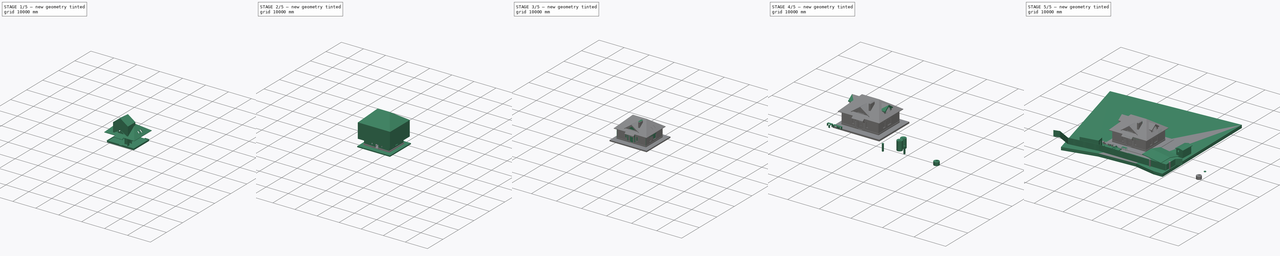
[diagram: build sequence overview — one tinted view per stage of 5, left to right]
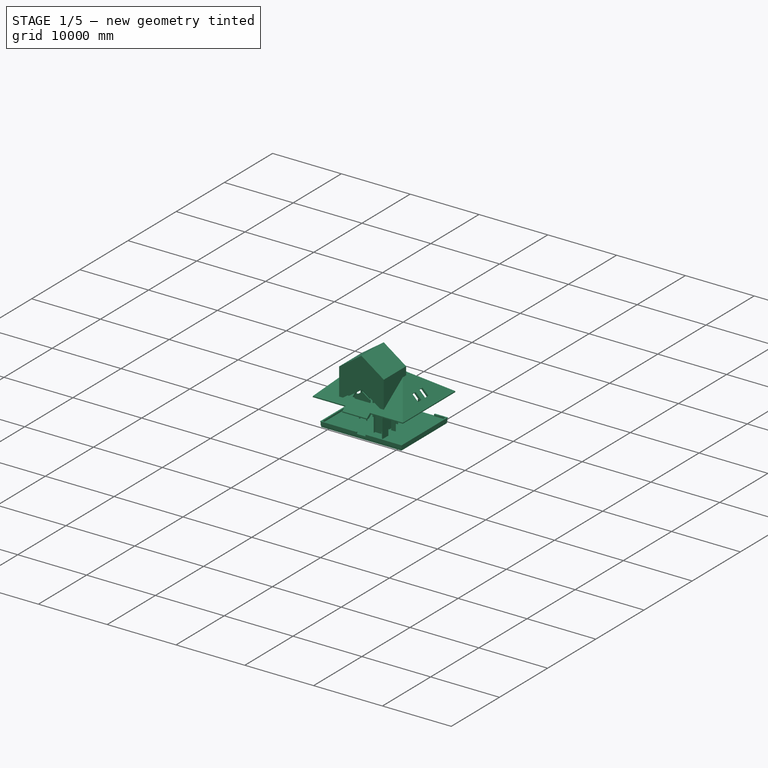
[diagram: stage 1 of 5 — iso view after this stage's code; geometry added in this stage tinted green]
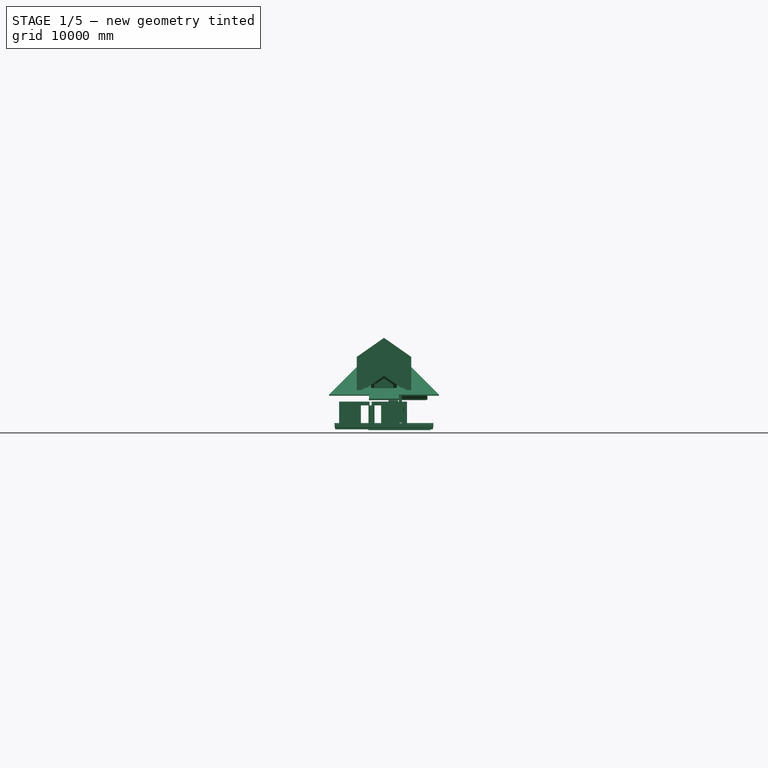
[diagram: stage 1 of 5 — front view after this stage's code; geometry added in this stage tinted green]
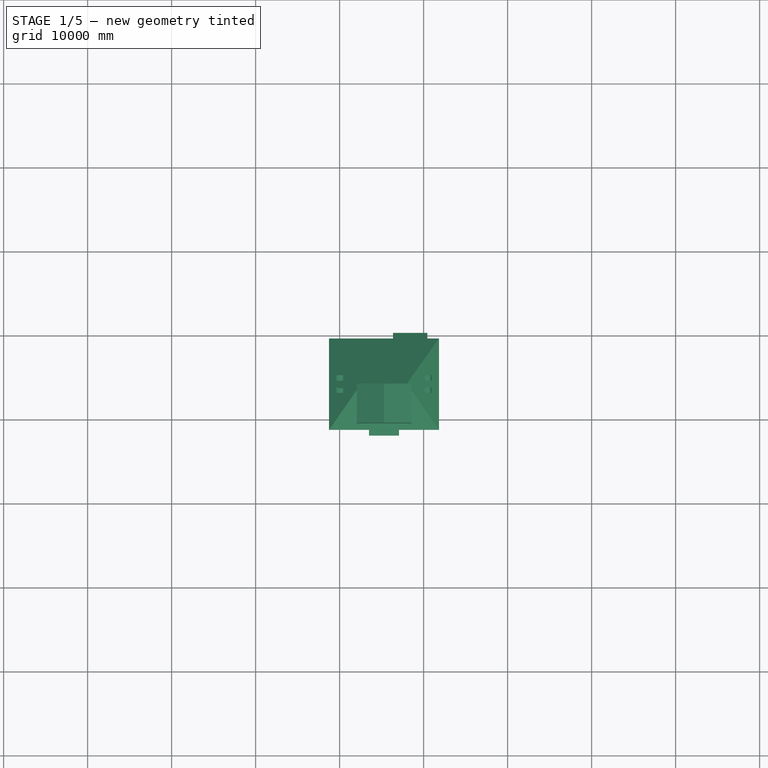
[diagram: stage 1 of 5 — top view after this stage's code; geometry added in this stage tinted green]
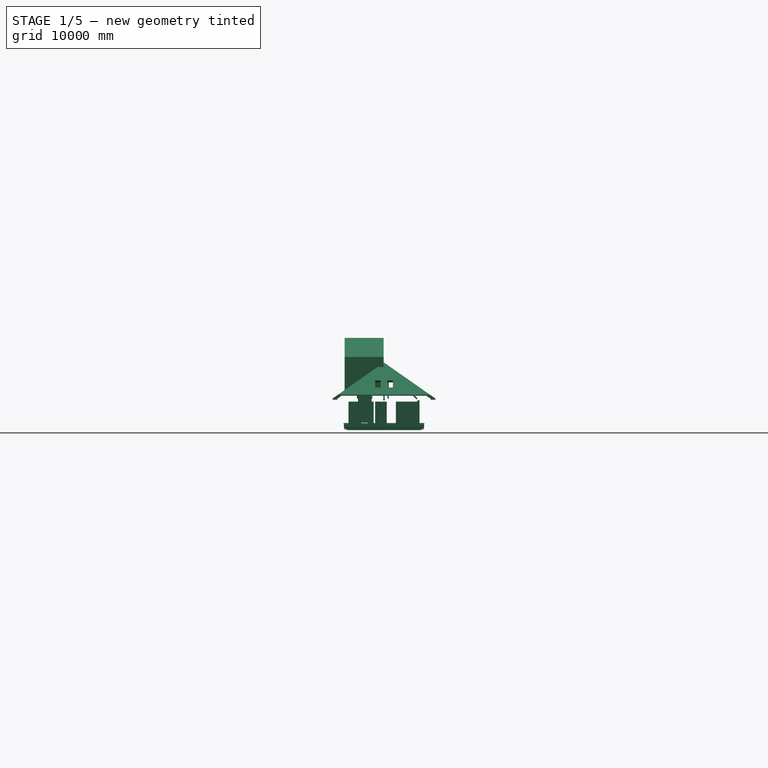
[diagram: stage 1 of 5 — right view after this stage's code; geometry added in this stage tinted green]
FCSTD DOCUMENT  (FreeCAD 0.19R)
Label: 210622_90m2_w_smeta_mod_TG_WC
License: All rights reserved
LicenseURL: http://en.wikipedia.org/wiki/All_rights_reserved
objects: Part::Part2DObjectPython×906, Part::FeaturePython×570, App::FeaturePython×164, Part::Box×89, App::GeometryPython×67, Part::Feature×65, Part::Extrusion×33, Sketcher::SketchObject×32, Part::MultiFuse×31, Part::Cut×29, Part::MultiCommon×25, App::MaterialObjectPython×24, Part::Mirroring×17, TechDraw::DrawViewAnnotation×14, App::DocumentObjectGroup×14, TechDraw::DrawViewArch×11, Part::Cylinder×10, TechDraw::DrawSVGTemplate×10, TechDraw::DrawPage×10, Part::Compound×9, +10 more types
note: 1903 computed .brp shape members not serialized (recipe doc carries the construction recipe); baked Part::Feature solids carry a one-line shape summary decoded from their .brp

FEATURE [App::MaterialObjectPython] Material004  label="Ceramic block"  # material (typed FeaturePython)
  Description = A standard Ceramic block LSR TK380
  Material = AuthorAndLicense=Concrete-Generic,CardName=Concrete-Generic,Color=(0.8627450980392157, 0.5803921568627451, 0.13725490196078433, 1.0),+11 more (map truncated)
  Transparency = 0
FEATURE [App::MaterialObjectPython] Material005  label="Wall ceramic plates"  # material (typed FeaturePython)
  Description = Wall ceramic plates
  Material = AuthorAndLicense=Concrete-Generic,CardName=Concrete-Generic,Color=(0.1450980392156863, 0.4745098039215686, 0.6980392156862745, 1.0),+11 more (map truncated)
  Transparency = 0
FEATURE [App::MaterialObjectPython] Material006  label="Glass mate"  # material (typed FeaturePython)
  Description = Generic soda-lime glass
  Material = AuthorAndLicense=Glass-Generic,CardName=Glass-Generic,Color=(0.8, 0.8, 0.8, 1.0),Density=2520 kg/m^3,Description=Generic soda-lime glass,+12 more (map truncated)
  ProductURL = https://en.wikipedia.org/wiki/Soda-lime_glass
  Transparency = 80
FEATURE [App::MaterialObjectPython] Material007  label="Stone wild"  # material (typed FeaturePython)
  Description = Stone wild
  Material = AuthorAndLicense=Concrete-Generic,CardName=Concrete-Generic,Color=(0.49019607843137253, 0.49019607843137253, 0.49019607843137253, 1.0),+11 more (map truncated)
  Transparency = 0
FEATURE [App::MaterialObjectPython] Material008  label="Wall cement"  # material (typed FeaturePython)
  Description = Wall cement
  Material = AuthorAndLicense=Concrete-Generic,CardName=Concrete-Generic,Color=(0.8, 0.8, 0.8, 1.0),CompressiveStrength=25 MPa,Density=2400 kg/m^3,+9 more (map truncated)
  Transparency = 0
FEATURE [App::MaterialObjectPython] Material009  label="Silicate blocks"  # material (typed FeaturePython)
  Description = Silicate blocks
  Material = AuthorAndLicense=Concrete-Generic,CardName=Concrete-Generic,Color=(0.8313725490196079, 0.7647058823529411, 0.7647058823529411, 1.0),+11 more (map truncated)
  Transparency = 0
FEATURE [Part::FeaturePython] Wall162  label="перегородка 042"  # Arch/BIM 166 (typed FeaturePython)
  Align = 2
  Area = 1.59e+06
  Base = -> Line1271
  BlockHeight = 250
  BlockLength = 0
  CountBroken = 0
  CountEntire = 0
  Face = 0
  Height = 3000
  HorizontalArea = 42400
  IfcType = 166
  Joint = 0
  Length = 530
  MakeBlocks = false
  Material = -> Material009
  MoveBase = false
  MoveWithHost = false
  Normal = (0,0,0)
  OffsetFirst = 0
  OffsetSecond = 300
  PerimeterLength = 1220
  Placement = pos=(0,0,-200) rot=(0,0,1;0rad)
  PredefinedType = 0
  VerticalArea = 3.66e+06
  Width = 80
FEATURE [Part::FeaturePython] Wall187  label="перегородка 044"  # Arch/BIM 166 (typed FeaturePython)
  Align = 2
  Area = 750000
  Base = -> Line1323
  BlockHeight = 250
  BlockLength = 0
  CountBroken = 0
  CountEntire = 0
  Face = 0
  Height = 3000
  HorizontalArea = 20000
  IfcType = 166
  Joint = 0
  Length = 250
  MakeBlocks = false
  Material = -> Material009
  MoveBase = false
  MoveWithHost = false
  Normal = (0,0,0)
  OffsetFirst = 0
  OffsetSecond = 300
  PerimeterLength = 660
  Placement = pos=(0,0,-200) rot=(0,0,1;0rad)
  PredefinedType = 0
  VerticalArea = 1.98e+06
  Width = 80
FEATURE [Part::FeaturePython] Wall223  label="перегородка (сил.блок 500х250х80) 004"  # Arch/BIM 166 (typed FeaturePython)
  Align = 2
  Area = 2670000
  Base = -> Line1358
  BlockHeight = 250
  BlockLength = 0
  CountBroken = 0
  CountEntire = 0
  Face = 0
  GlobalId = 1OB118XG9DJPL5jtZdDHzR
  Height = 3000
  HorizontalArea = 71200
  IfcData = IfcUID=1OB118XG9DJPL5jtZdDHzR; attributes={"GlobalId": {"value": "1OB118XG9DJPL5jtZdDHzR"}}
  IfcType = 166
  Joint = 0
  Length = 890
  MakeBlocks = false
  Material = -> Material009
  MoveBase = false
  MoveWithHost = false
  Normal = (0,0,0)
  OffsetFirst = 300
  OffsetSecond = 50
  PerimeterLength = 1940
  Placement = pos=(0,0,-200) rot=(0,0,1;0rad)
  PredefinedType = 0
  VerticalArea = 5.82e+06
  Width = 80
FEATURE [Part::FeaturePython] Wall225  label="перегородка 052"  # Arch/BIM 166 (typed FeaturePython)
  Align = 2
  Area = 2400000
  Base = -> Line1360
  BlockHeight = 250
  BlockLength = 0
  CountBroken = 0
  CountEntire = 0
  Face = 0
  Height = 3000
  HorizontalArea = 64000
  IfcType = 166
  Joint = 0
  Length = 800
  MakeBlocks = false
  Material = -> Material009
  MoveBase = false
  MoveWithHost = false
  Normal = (0,0,0)
  OffsetFirst = 0
  OffsetSecond = 300
  PerimeterLength = 1760
  Placement = pos=(0,0,-200) rot=(0,0,1;0rad)
  PredefinedType = 0
  VerticalArea = 5280000
  Width = 80
FEATURE [Part::FeaturePython] Wall230  label="перегородка (сил.блок 500х250х80) 006"  # Arch/BIM 166 (typed FeaturePython)
  Align = 2
  Area = 7290000
  Base = -> Line1390
  BlockHeight = 250
  BlockLength = 0
  CountBroken = 0
  CountEntire = 0
  Face = 0
  Height = 3000
  HorizontalArea = 194400
  IfcType = 166
  Joint = 0
  Length = 2430
  MakeBlocks = false
  Material = -> Material009
  MoveBase = false
  MoveWithHost = false
  Normal = (0,0,0)
  OffsetFirst = 300
  OffsetSecond = 50
  PerimeterLength = 5020
  Placement = pos=(0,0,-200) rot=(0,0,1;0rad)
  PredefinedType = 0
  VerticalArea = 15060000
  Width = 80
FEATURE [App::FeaturePython] Dimension101  # Draft dimension (typed FeaturePython)
  Diameter = false
  Dimline = (2600,4100,0)
  Direction = (0,0,0)
  Distance = 100
  End = (2470,4425,0)
  Normal = (0,0,1)
  Start = (2370,4425,0)
FEATURE [Part::Part2DObjectPython] Line1745  # Draft 2D object (typed FeaturePython)
  ChamferSize = 0
  Closed = true
  End = (2420,4435,0)
  FilletRadius = 0
  Length = 1230
  MakeFace = false
  Placement = pos=(4665,6735,0) rot=(0,0,-1;1.5708rad)
  Points = (2) [(3530,-2245,0),(2300,-2245,0)]
  Start = (2420,3205,0)
  Subdivisions = 0
FEATURE [Part::FeaturePython] Wall402  label="перегородка (сил.блок 500х250х80) 008"  # Arch/BIM 166 (typed FeaturePython)
  Align = 2
  Area = 3690000
  Base = -> Line1745
  BlockHeight = 250
  BlockLength = 0
  CountBroken = 0
  CountEntire = 0
  Face = 0
  Height = 3000
  HorizontalArea = 98400
  IfcType = 166
  Joint = 0
  Length = 1230
  MakeBlocks = false
  Material = -> Material009
  MoveBase = false
  MoveWithHost = false
  Normal = (0,0,0)
  OffsetFirst = 300
  OffsetSecond = 50
  PerimeterLength = 2620
  Placement = pos=(0,0,-200) rot=(0,0,1;0rad)
  PredefinedType = 0
  VerticalArea = 7.86e+06
  Width = 80
FEATURE [Part::Part2DObjectPython] Line1903  # Draft 2D object (typed FeaturePython)
  ChamferSize = 0
  Closed = true
  End = (4585,3165,0)
  FilletRadius = 0
  Length = 1440
  MakeFace = false
  Placement = pos=(9225,3160,0) rot=(0,0,-1;1.5708rad)
  Points = (2) [(-5,-3200,0),(-5,-4640,0)]
  Start = (6025,3165,0)
  Subdivisions = 0
FEATURE [Part::Part2DObjectPython] Line1904  # Draft 2D object (typed FeaturePython)
  ChamferSize = 0
  Closed = true
  End = (8025,2665,0)
  FilletRadius = 0
  Length = 610
  MakeFace = false
  Placement = pos=(9510,1295,0) rot=(0,0,-1;0rad)
  Points = (2) [(-2095,1370,0),(-1485,1370,0)]
  Start = (7415,2665,0)
  Subdivisions = 0
FEATURE [Part::FeaturePython] Wall417  label="перегородка (сил.блок 500х250х80) 010"  # Arch/BIM 166 (typed FeaturePython)
  Align = 2
  Area = 1830000
  Base = -> Line1904
  BlockHeight = 250
  BlockLength = 0
  CountBroken = 0
  CountEntire = 0
  Face = 0
  GlobalId = 1OB118XG9DJPL5jtZdDHzR
  Height = 3000
  HorizontalArea = 48800
  IfcData = IfcUID=1OB118XG9DJPL5jtZdDHzR; attributes={"GlobalId": {"value": "1OB118XG9DJPL5jtZdDHzR"}}
  IfcType = 166
  Joint = 0
  Length = 610
  MakeBlocks = false
  Material = -> Material009
  MoveBase = false
  MoveWithHost = false
  Normal = (0,0,0)
  OffsetFirst = 300
  OffsetSecond = 50
  PerimeterLength = 1380
  Placement = pos=(0,0,-200) rot=(0,0,1;0rad)
  PredefinedType = 0
  VerticalArea = 4140000
  Width = 80
FEATURE [Part::Part2DObjectPython] Line1906  # Draft 2D object (typed FeaturePython)
  ChamferSize = 0
  Closed = true
  End = (5785,5595,4.547e-13)
  FilletRadius = 0
  Length = 2820
  MakeFace = false
  Placement = pos=(4415,6120,0) rot=(0,0,-1;1.5708rad)
  Points = (2) [(-2295,1370,0),(525,1370,4.54747e-13)]
  Start = (5785,8415,0)
  Subdivisions = 0
FEATURE [Part::Part2DObjectPython] Line1907  # Draft 2D object (typed FeaturePython)
  ChamferSize = 0
  Closed = true
  End = (5825,5635,0)
  FilletRadius = 0
  Length = 1030
  MakeFace = false
  Placement = pos=(10345,5630,0) rot=(0,0,-1;1.5708rad)
  Points = (2) [(-5,-3490,0),(-5,-4520,0)]
  Start = (6855,5635,0)
  Subdivisions = 0
FEATURE [Part::Part2DObjectPython] Wire985  label="Ванная"  # Draft 2D object (typed FeaturePython)
  Area = 8.3924e+06
  ChamferSize = 0
  Closed = true
  End = (5725,6475,0)
  FilletRadius = 0
  Length = 15340
  MakeFace = true
  Placement = pos=(5825,5575,0) rot=(0,0,1;3.14159rad)
  Points = (10) [(100,-3.63798e-12,0),(-1010,-3.63798e-12,0),(-1010,1040,0),(2000,1040,0),(2000,-2820,0),(100,-2820,0),(100,-1020,0),(900,-1020,0),(900,-900,0),+1 more]
  Start = (5725,5575,0)
  Subdivisions = 0
FEATURE [Part::Part2DObjectPython] Wire989  label="Санузел"  # Draft 2D object (typed FeaturePython)
  Area = 1.479e+06
  ChamferSize = 0
  Closed = true
  End = (6185,2935,0)
  FilletRadius = 0
  Length = 5180
  MakeFace = true
  Placement = pos=(7550,2965,0) rot=(0,0,1;0rad)
  Points = (6) [(-1365,-1770,0),(-515,-1770,0),(-515,-1360,0),(-515,-150,0),(-515,-30,0),(-1365,-30,0)]
  Start = (6185,1195,0)
  Subdivisions = 0
FEATURE [Part::Part2DObjectPython] Wire990  label="Коридор"  # Draft 2D object (typed FeaturePython)
  Area = 5586000
  ChamferSize = 0
  Closed = true
  End = (7125,3225,0)
  FilletRadius = 0
  Length = 11710
  MakeFace = true
  Placement = pos=(3220,2905,0) rot=(0,0,1;0rad)
  Points = (4) [(-750,320,0),(-750,1520,0),(3905,1520,0),(3905,320,0)]
  Start = (2470,3225,0)
  Subdivisions = 0
FEATURE [Part::Part2DObjectPython] Wire992  label="Спальня"  # Draft 2D object (typed FeaturePython)
  Area = 15356550
  ChamferSize = 0
  Closed = true
  End = (2370,3875,0)
  FilletRadius = 0
  Length = 16170
  MakeFace = true
  Placement = pos=(-30,4265,0) rot=(0,0,1;0rad)
  Points = (6) [(2.98428e-13,-390,0),(2.98428e-13,4130,0),(3565,4130,0),(3565,260,0),(2400,260,0),(2400,-390,0)]
  Start = (-30,3875,0)
  Subdivisions = 0
FEATURE [Part::Part2DObjectPython] Wire1000  label="санузел001"  # Draft 2D object (typed FeaturePython)
  Area = 0
  ChamferSize = 0
  Closed = true
  End = (7035,2935,0)
  FilletRadius = 0
  Length = 5180
  MakeFace = false
  Placement = pos=(7550,2965,0) rot=(0,0,1;0rad)
  Points = (6) [(-515,-1360,0),(-515,-1770,0),(-925,-1770,0),(-1365,-1770,0),(-1365,-30,0),(-515,-30,0)]
  Start = (7035,1605,0)
  Subdivisions = 0
FEATURE [Part::Part2DObjectPython] Rectangle3715  # Draft 2D object (typed FeaturePython)
  Area = 0
  ChamferSize = 0
  Columns = 1
  FilletRadius = 0
  Height = 1200
  Length = 2500
  MakeFace = false
  Placement = pos=(6835,5316.27,2220) rot=(0.664306,0.342629,-0.664306;3.80178rad)
  Rows = 1
FEATURE [Part::FeaturePython] Structure546  label="Структура028"  # Arch/BIM 172 (typed FeaturePython)
  Base = -> Rectangle3715
  FaceMaker = 0
  Height = 1000
  HorizontalArea = 0
  IfcData = attributes={"GlobalId": {"name": "GlobalId", "type": "IfcGloballyUniqueId", "is_enum": false, "enum_values": []}, "Description": {"... (+484 chars omitted),+1 more (map truncated)
  IfcType = 172
  Length = 0
  MoveBase = false
  MoveWithHost = false
  Nodes = (2) [(8788.46,3195,2817.12),(8788.46,5305,2817.12)]
  NodesOffset = 0
  Normal = (0,0,0)
  PerimeterLength = 0
  Placement = pos=(9.09e-13,217.459,1318.04) rot=(0,0,1;0rad)
  PredefinedType = 0
  VerticalArea = 6e+06
  Width = 100
FEATURE [Part::FeaturePython] Wall420  label="перегородка (сил.блок 500х250х80) 013"  # Arch/BIM 166 (typed FeaturePython)
  Align = 2
  Area = 2.2866e+06
  Base = -> Line1907
  BlockHeight = 250
  BlockLength = 0
  CountBroken = 0
  CountEntire = 0
  Face = 0
  GlobalId = 2YMQSCXEvDBOywm4rK59sv
  Height = 2220
  HorizontalArea = 82400
  IfcData = IfcUID=2YMQSCXEvDBOywm4rK59sv; attributes={"GlobalId": {"value": "2YMQSCXEvDBOywm4rK59sv"}}
  IfcType = 166
  Joint = 0
  Length = 1030
  MakeBlocks = false
  Material = -> Material009
  MoveBase = false
  MoveWithHost = false
  Normal = (0,0,0)
  OffsetFirst = 300
  OffsetSecond = 50
  PerimeterLength = 2220
  Placement = pos=(0,0,-200) rot=(0,0,1;0rad)
  PredefinedType = 0
  Subtractions = -> [Structure546]
  VerticalArea = 4.87744e+06
  Width = 80
FEATURE [Part::FeaturePython] Component212  label="Компонент041"  # Arch/BIM 0 (typed FeaturePython)
  Base = -> Wire817
  HorizontalArea = 0
  IfcData = attributes={"GlobalId": {"name": "GlobalId", "type": "IfcGloballyUniqueId", "is_enum": false, "enum_values": []}, "Description": {"... (+538 chars omitted),+1 more (map truncated)
  IfcType = 0
  MoveBase = false
  MoveWithHost = false
  PerimeterLength = 0
  Placement = pos=(-1210,-1210,0) rot=(0,0,1;0rad)
  PredefinedType = 0
  VerticalArea = 0
FEATURE [Part::Part2DObjectPython] Wire1003  label="кровля_контур_002"  # Draft 2D object (typed FeaturePython)
  Area = 0
  ChamferSize = 0
  Closed = true
  End = (-1215,9580,0)
  FilletRadius = 0
  Length = 47580
  MakeFace = false
  Placement = pos=(15200,-1120,0) rot=(0,0,1;0rad)
  Points = (4) [(-16415,-90,0),(-3415,-90,0),(-3415,10700,0),(-16415,10700,0)]
  Start = (-1215,-1210,0)
  Subdivisions = 0
FEATURE [Part::Extrusion] Extrude099019  label="Extrude099021"
  Base = -> Wire817
  Dir = (0,0,1)
  DirMode = 2
  FaceMakerClass = Part::FaceMakerBullseye
  LengthFwd = 5000
  LengthRev = 0
  Placement = pos=(0,0,2720) rot=(0,0,1;0rad)
  Solid = true
  Symmetric = false
FEATURE [Part::FeaturePython] Roof026  label="roof_4_side_cut_inside"  # Arch/BIM 113 (typed FeaturePython)
  Angles = [35,45,35,45]
  Base = -> Wire1003
  BorderLength = 0
  Face = 0
  Flip = false
  Heights = [3777.62,5500,3777.62,5500]
  HorizontalArea = 186094500
  IdRel = [-1,-1,-1,-1]
  IfcData = attributes={"GlobalId": {"name": "GlobalId", "type": "IfcGloballyUniqueId", "is_enum": false, "enum_values": []}, "Description": {"... (+613 chars omitted),+1 more (map truncated)
  IfcType = 113
  Material = -> Material007
  MoveBase = false
  MoveWithHost = false
  Overhang = [1000,775,1000,775]
  PerimeterLength = 0
  Placement = pos=(0,-2.27e-13,3250) rot=(0,0,1;0rad)
  PredefinedType = 0
  RidgeLength = 0
  Runs = [5500,5500,5500,5500]
  Thickness = [5500,4750,5500,4750]
  VerticalArea = 3.67322e+08
FEATURE [App::MaterialObjectPython] Material021  label="Material"  # material (typed FeaturePython)
  Material = Name=Material; SectionColor=(0.0, 0.0, 0.0); Transparency=0
  Transparency = 0
FEATURE [Part::Part2DObjectPython] Wire1009  # Draft 2D object (typed FeaturePython)
  Area = 69637800
  ChamferSize = 0
  Closed = true
  End = (-1360,-1355,0)
  FilletRadius = 0
  Length = 37590
  MakeFace = true
  Placement = pos=(-1160,9525,0) rot=(0,0,1;0rad)
  Points = (6) [(-200,200,0),(7515,200,0),(7515,-5340,0),(4655,-5340,0),(4655,-10880,0),(-200,-10880,0)]
  Start = (-1360,9725,0)
  Subdivisions = 0
FEATURE [Part::Part2DObjectPython] Wire1010  # Draft 2D object (typed FeaturePython)
  Area = 35068200
  ChamferSize = 0
  Closed = true
  End = (10455,4185,0)
  FilletRadius = 0
  Length = 31870
  MakeFace = true
  Placement = pos=(8490,9525,0) rot=(0,0,1;0rad)
  Points = (6) [(1965,200,0),(3440,200,0),(3440,-10880,0),(-1415,-10880,0),(-1415,-5340,0),(1965,-5340,0)]
  Start = (10455,9725,0)
  Subdivisions = 0
FEATURE [Part::FeaturePython] Structure567  label="Структура031"  # Arch/BIM 172 (typed FeaturePython)
  Base = -> Wire1009
  FaceMaker = 0
  Height = 1000
  HorizontalArea = 69637800
  IfcData = attributes={"GlobalId": {"name": "GlobalId", "type": "IfcGloballyUniqueId", "is_enum": false, "enum_values": []}, "Description": {"... (+484 chars omitted),+1 more (map truncated)
  IfcType = 172
  Length = 0
  MoveBase = false
  MoveWithHost = false
  Nodes = (2) [(1146.63,4298.06,0),(1146.63,4298.06,1000)]
  NodesOffset = 0
  Normal = (0,0,1)
  PerimeterLength = 37590
  Placement = pos=(0,0,2495.76) rot=(0,0,1;0rad)
  PredefinedType = 0
  VerticalArea = 37590000
  Width = 100
FEATURE [Part::FeaturePython] Structure568  label="Структура032"  # Arch/BIM 172 (typed FeaturePython)
  Base = -> Wire1010
  FaceMaker = 0
  Height = 1000
  HorizontalArea = 35068200
  IfcData = attributes={"GlobalId": {"name": "GlobalId", "type": "IfcGloballyUniqueId", "is_enum": false, "enum_values": []}, "Description": {"... (+484 chars omitted),+1 more (map truncated)
  IfcType = 172
  Length = 0
  MoveBase = false
  MoveWithHost = false
  Nodes = (2) [(11141.9,4555.57,0),(11141.9,4555.57,1000)]
  NodesOffset = 0
  Normal = (0,0,1)
  PerimeterLength = 31870
  Placement = pos=(0,0,2495.76) rot=(0,0,1;0rad)
  PredefinedType = 0
  VerticalArea = 31870000
  Width = 100
FEATURE [Part::MultiFuse] Fusion076
  Shapes = -> [Structure568,Structure567]
FEATURE [App::GeometryPython] BuildingPart134  label="Раскладка окон"  # Arch/BIM 172 (typed FeaturePython)
  Area = 2.07673e+07
  Group = -> [Wall443,Wall445,Wall447,Wall448,Wall449,Wall450,Wall452,Wall453,Wall455,Wall456,Wall457,Wall458,Wall459,Wall461,Wall462,Wall463,Wall465,Wall466,Wall468,Wall470,Wall471,Wall473,Wall474,Wall484,Wall487,Wall485,Wall488]
  Height = 0
  HeightPropagate = true
  IfcData = attributes={"GlobalId": {"name": "GlobalId", "type": "IfcGloballyUniqueId", "is_enum": false, "enum_values": []}, "Description": {"... (+484 chars omitted),+1 more (map truncated)
  IfcType = 172
  LevelOffset = 0
  PredefinedType = 0
FEATURE [Part::Part2DObjectPython] Rectangle3793  # Draft 2D object (typed FeaturePython)
  Area = 0
  ChamferSize = 0
  Columns = 1
  FilletRadius = 0
  Height = 4310
  Length = 6500
  MakeFace = false
  Placement = pos=(2035,-125,0) rot=(0,0,1;0rad)
  Rows = 1
FEATURE [Part::Extrusion] Extrude099005005  label="cut_contour"
  Base = -> Rectangle3793
  Dir = (0,0,1)
  DirMode = 2
  FaceMakerClass = Part::FaceMakerBullseye
  LengthFwd = 7500
  LengthRev = 0
  Solid = true
  Symmetric = false
FEATURE [Part::FeaturePython] Wall557  label="прогон 002"  # Arch/BIM 166 (typed FeaturePython)
  Align = 1
  Area = 1200000
  Base = -> Line2039
  BlockHeight = 0
  BlockLength = 0
  CountBroken = 0
  CountEntire = 0
  Face = 0
  GlobalId = 1B71KP0Y9AOfuyJlUXW0eC
  Height = 200
  HorizontalArea = 900000
  IfcData = IfcUID=1B71KP0Y9AOfuyJlUXW0eC; attributes={"GlobalId": {"value": "1B71KP0Y9AOfuyJlUXW0eC"}}
  IfcType = 166
  Joint = 0
  Length = 6000
  MakeBlocks = false
  Material = -> Material
  MoveBase = false
  MoveWithHost = false
  Normal = (0,0,0)
  Offset = 15
  OffsetFirst = 0
  OffsetSecond = 0
  PerimeterLength = 12300
  Placement = pos=(4.55e-13,-90,6070) rot=(0,0,1;0rad)
  PredefinedType = 0
  VerticalArea = 2.46e+06
  Width = 150
FEATURE [Part::Part2DObjectPython] Line2042  # Draft 2D object (typed FeaturePython)
  Area = 0
  ChamferSize = 0
  Closed = true
  End = (2285,5360,0)
  FilletRadius = 0
  Length = 6000
  MakeFace = true
  Placement = pos=(-211.102,-345,0) rot=(0,0,1;0rad)
  Points = (2) [(8496.1,5705,0),(2496.1,5705,0)]
  Start = (8285,5360,0)
  Subdivisions = 0
FEATURE [Part::FeaturePython] Wall559  label="прогон 004"  # Arch/BIM 166 (typed FeaturePython)
  Align = 2
  Area = 1200000
  Base = -> Line2042
  BlockHeight = 0
  BlockLength = 0
  CountBroken = 0
  CountEntire = 0
  Face = 0
  GlobalId = 1B71KP0Y9AOfuyJlUXW0eC
  Height = 200
  HorizontalArea = 900000
  IfcData = IfcUID=1B71KP0Y9AOfuyJlUXW0eC; attributes={"GlobalId": {"value": "1B71KP0Y9AOfuyJlUXW0eC"}}
  IfcType = 166
  Joint = 0
  Length = 6000
  MakeBlocks = false
  Material = -> Material
  MoveBase = false
  MoveWithHost = false
  Normal = (0,0,0)
  Offset = 15
  OffsetFirst = 0
  OffsetSecond = 0
  PerimeterLength = 12300
  Placement = pos=(0,0,6070) rot=(0,0,1;0rad)
  PredefinedType = 0
  VerticalArea = 2460000
  Width = 150
FEATURE [Part::Part2DObjectPython] Rectangle3847  label="Д80-008"  # Draft 2D object (typed FeaturePython)
  ChamferSize = 0
  Columns = 1
  FilletRadius = 0
  Height = 110
  Length = 800
  MakeFace = true
  Placement = pos=(6075,2265,0) rot=(0,0,-1;1.5708rad)
  Rows = 1
FEATURE [Part::FeaturePython] Structure543  label="Проём-Д90-022"  # Arch/BIM 52 (typed FeaturePython)
  Base = -> Rectangle3847
  FaceMaker = 0
  Height = 2550
  HorizontalArea = 88000
  IfcData = complex_attributes={"OwnerHistory": {}, "IsNestedBy": {}, "IsDecomposedBy": {}, "IsDefinedBy": {}, "ObjectPlacement": {}, "Representation":... (+4 chars omitted)
  IfcType = 52
  Length = 0
  MoveBase = false
  MoveWithHost = false
  Nodes = (2) [(13000,6050,0),(13000,6050,2180)]
  NodesOffset = 0
  Normal = (0,0,0)
  PerimeterLength = 1820
  Placement = pos=(0,0,-200) rot=(0,0,1;0rad)
  VerticalArea = 4641000
  Width = 100
FEATURE [Part::FeaturePython] Wall128  label="перегородка (сил.блок 500х250х80) 003"  # Arch/BIM 166 (typed FeaturePython)
  Align = 2
  Area = 6210000
  Base = -> Line1200
  BlockHeight = 250
  BlockLength = 0
  CountBroken = 0
  CountEntire = 0
  Face = 0
  GlobalId = 239nej2f15XxZ4oxwr6VZE
  Height = 3000
  HorizontalArea = 165600
  IfcData = IfcUID=239nej2f15XxZ4oxwr6VZE; attributes={"GlobalId": {"value": "239nej2f15XxZ4oxwr6VZE"}}
  IfcType = 166
  Joint = 0
  Length = 2070
  MakeBlocks = false
  Material = -> Material009
  MoveBase = false
  MoveWithHost = false
  Normal = (0,0,0)
  OffsetFirst = 300
  OffsetSecond = 50
  PerimeterLength = 4300
  Placement = pos=(0,0,-200) rot=(0,0,1;0rad)
  PredefinedType = 0
  Subtractions = -> [Structure543]
  VerticalArea = 9228000
  Width = 80
FEATURE [Part::Part2DObjectPython] Rectangle3848  label="Д90-034"  # Draft 2D object (typed FeaturePython)
  ChamferSize = 0
  Columns = 1
  FilletRadius = 0
  Height = 110
  Length = 900
  MakeFace = true
  Placement = pos=(4160,4425,0) rot=(0,0,1;0rad)
  Rows = 1
FEATURE [Part::FeaturePython] Structure026  label="Проём-Д90-020"  # Arch/BIM 52 (typed FeaturePython)
  Base = -> Rectangle3848
  FaceMaker = 0
  Height = 2550
  HorizontalArea = 99000
  IfcData = complex_attributes={"OwnerHistory": {}, "IsNestedBy": {}, "IsDecomposedBy": {}, "IsDefinedBy": {}, "ObjectPlacement": {}, "Representation":... (+4 chars omitted)
  IfcType = 52
  Length = 0
  MoveBase = false
  MoveWithHost = false
  Nodes = (2) [(13000,6050,0),(13000,6050,2180)]
  NodesOffset = 0
  Normal = (0,0,0)
  PerimeterLength = 2020
  Placement = pos=(0,0,-200) rot=(0,0,1;0rad)
  VerticalArea = 5.151e+06
  Width = 100
FEATURE [Part::Part2DObjectPython] Rectangle3850  label="Д90-035"  # Draft 2D object (typed FeaturePython)
  ChamferSize = 0
  Columns = 1
  FilletRadius = 0
  Height = 100
  Length = 900
  MakeFace = true
  Placement = pos=(2535,4425,0) rot=(0,0,1;0rad)
  Rows = 1
FEATURE [Part::FeaturePython] Structure021  label="Проём-Д90-017"  # Arch/BIM 52 (typed FeaturePython)
  Base = -> Rectangle3850
  FaceMaker = 0
  Height = 2550
  HorizontalArea = 90000
  IfcData = complex_attributes={"OwnerHistory": {}, "IsNestedBy": {}, "IsDecomposedBy": {}, "IsDefinedBy": {}, "ObjectPlacement": {}, "Representation":... (+4 chars omitted)
  IfcType = 52
  Length = 0
  MoveBase = false
  MoveWithHost = false
  Nodes = (2) [(7500,3050,0),(7500,3050,2180)]
  NodesOffset = 0
  Normal = (0,0,0)
  PerimeterLength = 2000
  Placement = pos=(0,0,-200) rot=(0,0,1;0rad)
  VerticalArea = 5.1e+06
  Width = 100
FEATURE [Part::Part2DObjectPython] Rectangle3851  label="Д90-036"  # Draft 2D object (typed FeaturePython)
  ChamferSize = 0
  Columns = 1
  FilletRadius = 0
  Height = 290
  Length = 920
  MakeFace = true
  Placement = pos=(3825,7365,0) rot=(0,0,1;1.5708rad)
  Rows = 1
FEATURE [Part::Part2DObjectPython] Rectangle3852  label="Д90-037"  # Draft 2D object (typed FeaturePython)
  ChamferSize = 0
  Columns = 1
  FilletRadius = 0
  Height = 110
  Length = 900
  MakeFace = true
  Placement = pos=(3435,3225,0) rot=(0,0,1;3.14159rad)
  Rows = 1
FEATURE [Part::FeaturePython] Structure024  label="Проём-Д90-019"  # Arch/BIM 52 (typed FeaturePython)
  Base = -> Rectangle3852
  FaceMaker = 0
  Height = 2550
  HorizontalArea = 99000
  IfcData = complex_attributes={"OwnerHistory": {}, "IsNestedBy": {}, "IsDecomposedBy": {}, "IsDefinedBy": {}, "ObjectPlacement": {}, "Representation":... (+4 chars omitted)
  IfcType = 52
  Length = 0
  MoveBase = false
  MoveWithHost = false
  Nodes = (2) [(5000,3050,0),(5000,3050,2180)]
  NodesOffset = 0
  Normal = (0,0,0)
  PerimeterLength = 2020
  Placement = pos=(0,0,-200) rot=(0,0,1;0rad)
  VerticalArea = 5.151e+06
  Width = 100
FEATURE [Part::FeaturePython] Wall186  label="перегородка (сил.блок 500х250х80) 002"  # Arch/BIM 166 (typed FeaturePython)
  Align = 2
  Area = 3.525e+06
  Base = -> Line1316
  BlockHeight = 250
  BlockLength = 0
  CountBroken = 0
  CountEntire = 0
  Face = 0
  GlobalId = 1Rj7XWwfD1TACQSKytQJ$J
  Height = 3000
  HorizontalArea = 94000
  IfcData = IfcUID=1Rj7XWwfD1TACQSKytQJ$J; attributes={"GlobalId": {"value": "1Rj7XWwfD1TACQSKytQJ$J"}}
  IfcType = 166
  Joint = 0
  Length = 1175
  MakeBlocks = false
  Material = -> Material009
  MoveBase = false
  MoveWithHost = false
  Normal = (0,0,0)
  OffsetFirst = 300
  OffsetSecond = 0
  PerimeterLength = 2510
  Placement = pos=(0,0,-200) rot=(0,0,1;0rad)
  PredefinedType = 0
  Subtractions = -> [Structure024]
  VerticalArea = 3.348e+06
  Width = 80
FEATURE [Part::Part2DObjectPython] Rectangle3922  # Draft 2D object (typed FeaturePython)
  Area = 0
  ChamferSize = 0
  Columns = 1
  FilletRadius = 0
  Height = 550
  Length = 600
  MakeFace = false
  Placement = pos=(10000,2335,0) rot=(0,0,1;1.5708rad)
  Rows = 1
FEATURE [Part::Part2DObjectPython] Rectangle3924  # Draft 2D object (typed FeaturePython)
  ChamferSize = 0
  Columns = 1
  FilletRadius = 0
  Height = 1040
  Length = 1110
  MakeFace = true
  Placement = pos=(6835,5575,0) rot=(0,0,1;3.14159rad)
  Rows = 1
FEATURE [Part::Part2DObjectPython] Rectangle3925  # Draft 2D object (typed FeaturePython)
  Area = 2150000
  ChamferSize = 0
  Columns = 1
  FilletRadius = 0
  Height = 5375
  Length = 400
  MakeFace = true
  Placement = pos=(-430,3020,0) rot=(0,0,1;0rad)
  Rows = 1
FEATURE [Part::Part2DObjectPython] Rectangle3926  # Draft 2D object (typed FeaturePython)
  Area = 308000
  ChamferSize = 0
  Columns = 1
  FilletRadius = 0
  Height = 400
  Length = 770
  MakeFace = true
  Placement = pos=(3145,8395,0) rot=(0,0,1;0rad)
  Rows = 1
FEATURE [Part::Part2DObjectPython] Rectangle3927  # Draft 2D object (typed FeaturePython)
  Area = 1036000
  ChamferSize = 0
  Columns = 1
  FilletRadius = 0
  Height = 400
  Length = 2590
  MakeFace = true
  Placement = pos=(4835,8395,0) rot=(0,0,1;0rad)
  Rows = 1
FEATURE [Part::Part2DObjectPython] Rectangle3928  # Draft 2D object (typed FeaturePython)
  Area = 360000
  ChamferSize = 0
  Columns = 1
  FilletRadius = 0
  Height = 900
  Length = 400
  MakeFace = true
  Placement = pos=(10600,2640,0) rot=(0,0,1;0rad)
  Rows = 1
FEATURE [Part::Part2DObjectPython] Rectangle3929  # Draft 2D object (typed FeaturePython)
  Area = 464000
  ChamferSize = 0
  Columns = 1
  FilletRadius = 0
  Height = 400
  Length = 1160
  MakeFace = true
  Placement = pos=(3405,-425,0) rot=(0,0,1;0rad)
  Rows = 1
FEATURE [Part::Part2DObjectPython] Rectangle3930  # Draft 2D object (typed FeaturePython)
  Area = 464000
  ChamferSize = 0
  Columns = 1
  FilletRadius = 0
  Height = 400
  Length = 1160
  MakeFace = true
  Placement = pos=(6005,-425,0) rot=(0,0,1;0rad)
  Rows = 1
FEATURE [Part::Part2DObjectPython] Rectangle3931  # Draft 2D object (typed FeaturePython)
  Area = 1.27e+06
  ChamferSize = 0
  Columns = 1
  FilletRadius = 0
  Height = 400
  Length = 3175
  MakeFace = true
  Placement = pos=(7825,-425,0) rot=(0,0,1;0rad)
  Rows = 1
FEATURE [Part::Part2DObjectPython] Rectangle3932  # Draft 2D object (typed FeaturePython)
  Area = 333500
  ChamferSize = 0
  Columns = 1
  FilletRadius = 0
  Height = 1150
  Length = 290
  MakeFace = true
  Placement = pos=(6835,4535,0) rot=(0,0,1;0rad)
  Rows = 1
FEATURE [Part::Part2DObjectPython] Rectangle3933  # Draft 2D object (typed FeaturePython)
  Area = 1262000
  ChamferSize = 0
  Columns = 1
  FilletRadius = 0
  Height = 3155
  Length = 400
  MakeFace = true
  Placement = pos=(10600,5240,0) rot=(0,0,1;0rad)
  Rows = 1
FEATURE [Part::Part2DObjectPython] Rectangle3934  # Draft 2D object (typed FeaturePython)
  Area = 227150
  ChamferSize = 0
  Columns = 1
  FilletRadius = 0
  Height = 110
  Length = 2065
  MakeFace = true
  Placement = pos=(5060,4425,0) rot=(0,0,1;0rad)
  Rows = 1
FEATURE [Part::Part2DObjectPython] Rectangle3935  # Draft 2D object (typed FeaturePython)
  Area = 172854
  ChamferSize = 0
  Columns = 1
  FilletRadius = 50
  Height = 500
  Length = 350
  MakeFace = true
  Placement = pos=(5697.31,920,0) rot=(0,0,1;0rad)
  Rows = 1
FEATURE [Part::Part2DObjectPython] Rectangle3937  # Draft 2D object (typed FeaturePython)
  Area = 240000
  ChamferSize = 0
  Columns = 1
  FilletRadius = 0
  Height = 100
  Length = 2400
  MakeFace = true
  Placement = pos=(-30,3775,0) rot=(0,0,1;0rad)
  Rows = 1
FEATURE [Part::Part2DObjectPython] Rectangle3938  label="Шкаф 60 044"  # Draft 2D object (typed FeaturePython)
  Area = 1.924e+06
  ChamferSize = 0
  Columns = 1
  FilletRadius = 0
  Height = 2960
  Length = 650
  MakeFace = true
  Placement = pos=(3825,-25,0) rot=(0,0,1;0rad)
  Rows = 1
FEATURE [Part::Part2DObjectPython] Rectangle3939  # Draft 2D object (typed FeaturePython)
  Area = 147200
  ChamferSize = 0
  Columns = 1
  FilletRadius = 0
  Height = 920
  Length = 160
  MakeFace = true
  Placement = pos=(3535,4765,0) rot=(0,0,1;0rad)
  Rows = 1
FEATURE [Part::Part2DObjectPython] Rectangle3942  # Draft 2D object (typed FeaturePython)
  Area = 220000
  ChamferSize = 0
  Columns = 1
  FilletRadius = 0
  Height = 400
  Length = 550
  MakeFace = true
  Placement = pos=(5175,5825,0) rot=(0,0,1;0rad)
  Rows = 1
FEATURE [Part::Part2DObjectPython] Rectangle3943  # Draft 2D object (typed FeaturePython)
  Area = 220000
  ChamferSize = 0
  Columns = 1
  FilletRadius = 0
  Height = 400
  Length = 550
  MakeFace = true
  Placement = pos=(6410,2815,0) rot=(0,0,-1;1.5708rad)
  Rows = 1
FEATURE [Part::Part2DObjectPython] Rectangle3944  # Draft 2D object (typed FeaturePython)
  Area = 487200
  ChamferSize = 0
  Columns = 1
  FilletRadius = 0
  Height = 1680
  Length = 290
  MakeFace = true
  Placement = pos=(3535,5685,0) rot=(0,0,1;0rad)
  Rows = 1
FEATURE [Part::Part2DObjectPython] Rectangle3945  label="BACKABRO БАККАБРУ 3-местный диван-кровать, Идекулла синий002"  # Draft 2D object (typed FeaturePython)
  ChamferSize = 0
  Columns = 1
  FilletRadius = 25
  Height = 2090
  Length = 910
  MakeFace = true
  Placement = pos=(125,920,0) rot=(0,0,-1;1.5708rad)
  Rows = 1
FEATURE [Part::Part2DObjectPython] Rectangle3946  # Draft 2D object (typed FeaturePython)
  ChamferSize = 0
  Columns = 1
  FilletRadius = 0
  Height = 1620
  Length = 2070
  MakeFace = false
  Placement = pos=(360,2130,0) rot=(0,0,-1;1.5708rad)
  Rows = 1
FEATURE [Part::Part2DObjectPython] Rectangle3947  # Draft 2D object (typed FeaturePython)
  Area = 96000
  ChamferSize = 0
  Columns = 1
  FilletRadius = 0
  Height = 120
  Length = 800
  MakeFace = true
  Placement = pos=(4925,6475,0) rot=(0,0,1;0rad)
  Rows = 1
FEATURE [Part::Part2DObjectPython] Rectangle3948  label="LACK ЛАКК Тумба под ТВ, 160x35x36 см001"  # Draft 2D object (typed FeaturePython)
  ChamferSize = 0
  Columns = 1
  FilletRadius = 0
  Height = 1600
  Length = 350
  MakeFace = true
  Placement = pos=(3185,5660,0) rot=(0,0,1;0rad)
  Rows = 1
FEATURE [Part::Part2DObjectPython] Rectangle3949  # Draft 2D object (typed FeaturePython)
  Area = 120000
  ChamferSize = 0
  Columns = 1
  FilletRadius = 0
  Height = 1200
  Length = 100
  MakeFace = true
  Placement = pos=(2370,3225,0) rot=(0,0,1;0rad)
  Rows = 1
FEATURE [Part::Part2DObjectPython] Rectangle3950  # Draft 2D object (typed FeaturePython)
  Area = 93500
  ChamferSize = 0
  Columns = 1
  FilletRadius = 0
  Height = 110
  Length = 850
  MakeFace = true
  Placement = pos=(6185,1085,0) rot=(0,0,1;0rad)
  Rows = 1
FEATURE [Part::Part2DObjectPython] Rectangle3952  # Draft 2D object (typed FeaturePython)
  Area = 121000
  ChamferSize = 0
  Columns = 1
  FilletRadius = 0
  Height = 1210
  Length = 100
  MakeFace = true
  Placement = pos=(7935,-25,0) rot=(0,0,1;0rad)
  Rows = 1
FEATURE [Part::Part2DObjectPython] Rectangle3953  # Draft 2D object (typed FeaturePython)
  Area = 62000
  ChamferSize = 0
  Columns = 1
  FilletRadius = 0
  Height = 100
  Length = 620
  MakeFace = true
  Placement = pos=(7415,2605,0) rot=(0,0,1;0rad)
  Rows = 1
FEATURE [Part::Part2DObjectPython] Rectangle3954  # Draft 2D object (typed FeaturePython)
  Area = 18150
  ChamferSize = 0
  Columns = 1
  FilletRadius = 0
  Height = 110
  Length = 165
  MakeFace = true
  Placement = pos=(2370,3115,0) rot=(0,0,1;0rad)
  Rows = 1
FEATURE [Part::Part2DObjectPython] Rectangle3955  # Draft 2D object (typed FeaturePython)
  Area = 37000
  ChamferSize = 0
  Columns = 1
  FilletRadius = 0
  Height = 1850
  Length = 20
  MakeFace = true
  Placement = pos=(7035,1085,0) rot=(0,0,1;0rad)
  Rows = 1
FEATURE [Part::Part2DObjectPython] Rectangle3957  # Draft 2D object (typed FeaturePython)
  Area = 16500
  ChamferSize = 0
  Columns = 1
  FilletRadius = 0
  Height = 100
  Length = 165
  MakeFace = true
  Placement = pos=(2370,4425,0) rot=(0,0,1;0rad)
  Rows = 1
FEATURE [Part::Part2DObjectPython] Rectangle3960  # Draft 2D object (typed FeaturePython)
  Area = 23000
  ChamferSize = 0
  Columns = 1
  FilletRadius = 0
  Height = 230
  Length = 100
  MakeFace = true
  Placement = pos=(7045,2705,0) rot=(0,0,1;0rad)
  Rows = 1
FEATURE [Part::Part2DObjectPython] Rectangle3961  # Draft 2D object (typed FeaturePython)
  ChamferSize = 0
  Columns = 1
  FilletRadius = 0
  Height = 1800
  Length = 2100
  MakeFace = true
  Placement = pos=(2085,7360,0) rot=(0,0,1;3.14159rad)
  Rows = 1
FEATURE [Part::Part2DObjectPython] Rectangle3962  # Draft 2D object (typed FeaturePython)
  Area = 0
  ChamferSize = 0
  Columns = 1
  FilletRadius = 0
  Height = 600
  Length = 350
  MakeFace = false
  Placement = pos=(119.996,6560,0) rot=(0,0,1;0rad)
  Rows = 1
FEATURE [Part::Part2DObjectPython] Rectangle3963  # Draft 2D object (typed FeaturePython)
  Area = 0
  ChamferSize = 0
  Columns = 1
  FilletRadius = 0
  Height = 600
  Length = 350
  MakeFace = false
  Placement = pos=(119.996,5780,0) rot=(0,0,1;0rad)
  Rows = 1
FEATURE [Part::Part2DObjectPython] Rectangle3964  # Draft 2D object (typed FeaturePython)
  Area = 160000
  ChamferSize = 0
  Columns = 1
  FilletRadius = 0
  Height = 400
  Length = 400
  MakeFace = true
  Placement = pos=(-15,7375,0) rot=(0,0,1;0rad)
  Rows = 1
FEATURE [Part::Part2DObjectPython] Rectangle3965  # Draft 2D object (typed FeaturePython)
  Area = 160000
  ChamferSize = 0
  Columns = 1
  FilletRadius = 0
  Height = 400
  Length = 400
  MakeFace = true
  Placement = pos=(-15,5145,0) rot=(0,0,1;0rad)
  Rows = 1
FEATURE [Part::Part2DObjectPython] Rectangle3966  label="TV 54" 004"  # Draft 2D object (typed FeaturePython)
  ChamferSize = 0
  Columns = 1
  FilletRadius = 0
  Height = 1200
  Length = 75
  MakeFace = false
  Placement = pos=(3475,7060,0) rot=(0,0,1;3.14159rad)
  Rows = 1
FEATURE [Part::Part2DObjectPython] Rectangle3967  label="Шкаф 60 046"  # Draft 2D object (typed FeaturePython)
  Area = 1440000
  ChamferSize = 0
  Columns = 1
  FilletRadius = 0
  Height = 600
  Length = 2400
  MakeFace = true
  Placement = pos=(-30,3875,0) rot=(0,0,1;0rad)
  Rows = 1
FEATURE [Part::Part2DObjectPython] Rectangle3968  label="Шкаф 60 047"  # Draft 2D object (typed FeaturePython)
  Area = 360000
  ChamferSize = 0
  Columns = 1
  FilletRadius = 0
  Height = 600
  Length = 600
  MakeFace = true
  Placement = pos=(1770,3175,0) rot=(0,0,1;0rad)
  Rows = 1
FEATURE [Part::Part2DObjectPython] Rectangle3971  # Draft 2D object (typed FeaturePython)
  Area = 31900
  ChamferSize = 0
  Columns = 1
  FilletRadius = 0
  Height = 110
  Length = 290
  MakeFace = true
  Placement = pos=(3535,8285,0) rot=(0,0,1;0rad)
  Rows = 1
FEATURE [Part::Part2DObjectPython] Rectangle3972  # Draft 2D object (typed FeaturePython)
  Area = 348000
  ChamferSize = 0
  Columns = 1
  FilletRadius = 0
  Height = 290
  Length = 1200
  MakeFace = true
  Placement = pos=(6005,2935,0) rot=(0,0,1;0rad)
  Rows = 1
FEATURE [Part::Part2DObjectPython] Rectangle3979  # Draft 2D object (typed FeaturePython)
  Area = 0
  ChamferSize = 0
  Columns = 1
  FilletRadius = 0
  Height = 800
  Length = 700
  MakeFace = false
  Placement = pos=(8450,4050,0) rot=(0,0,1;0rad)
  Rows = 1
FEATURE [Part::Part2DObjectPython] Rectangle3980  # Draft 2D object (typed FeaturePython)
  Area = 0
  ChamferSize = 0
  Columns = 1
  FilletRadius = 0
  Height = 300
  Length = 500
  MakeFace = false
  Placement = pos=(8580.5,4850,0) rot=(0,0,1;0rad)
  Rows = 1
FEATURE [Part::Part2DObjectPython] Rectangle3981  # Draft 2D object (typed FeaturePython)
  Area = 0
  ChamferSize = 0
  Columns = 1
  FilletRadius = 0
  Height = 300
  Length = 500
  MakeFace = false
  Placement = pos=(8580.5,3750,0) rot=(0,0,1;0rad)
  Rows = 1
FEATURE [Part::Part2DObjectPython] Rectangle3983  # Draft 2D object (typed FeaturePython)
  ChamferSize = 0
  Columns = 1
  FilletRadius = 0
  Height = 600
  Length = 600
  MakeFace = false
  Placement = pos=(10000,1135,0) rot=(0,0,1;0rad)
  Rows = 1
FEATURE [Part::Part2DObjectPython] Rectangle3984  # Draft 2D object (typed FeaturePython)
  ChamferSize = 0
  Columns = 1
  FilletRadius = 0
  Height = 600
  Length = 600
  MakeFace = false
  Placement = pos=(10000,1735,0) rot=(0,0,1;0rad)
  Rows = 1
FEATURE [Part::Part2DObjectPython] Rectangle3985  # Draft 2D object (typed FeaturePython)
  ChamferSize = 0
  Columns = 1
  FilletRadius = 0
  Height = 600
  Length = 600
  MakeFace = false
  Placement = pos=(10000,2335,0) rot=(0,0,1;0rad)
  Rows = 1
FEATURE [Part::Part2DObjectPython] Rectangle3986  # Draft 2D object (typed FeaturePython)
  Area = 0
  ChamferSize = 0
  Columns = 1
  FilletRadius = 0
  Height = 550
  Length = 600
  MakeFace = false
  Placement = pos=(10000,1135,0) rot=(0,0,1;1.5708rad)
  Rows = 1
FEATURE [Part::Part2DObjectPython] Rectangle3987  # Draft 2D object (typed FeaturePython)
  ChamferSize = 0
  Columns = 1
  FilletRadius = 0
  Height = 600
  Length = 600
  MakeFace = false
  Placement = pos=(7435,1785,0) rot=(0,0,1;0rad)
  Rows = 1
FEATURE [Part::Part2DObjectPython] Rectangle3988  # Draft 2D object (typed FeaturePython)
  Area = 0
  ChamferSize = 0
  Columns = 1
  FilletRadius = 0
  Height = 550
  Length = 600
  MakeFace = false
  Placement = pos=(8035,575,0) rot=(0,0,1;0rad)
  Rows = 1
FEATURE [Part::Part2DObjectPython] Wire1025  label="гардины 017"  # Draft 2D object (typed FeaturePython)
  Area = 0
  ChamferSize = 0
  Closed = false
  End = (70.7107,3600,0)
  FilletRadius = 50
  Length = 3860.22
  MakeFace = false
  Placement = pos=(70.7107,400,0) rot=(0,0,1;1.5708rad)
  Points = (33) [(0,0,0),(100,100,0),(200,0,0),(300,100,0),(400,0,0),(500,100,0),(600,0,0),(700,100,0),(800,0,0),(900,100,0),(1000,0,0),(1100,100,0),(1200,0,0),+20 more]
  Start = (70.7107,400,0)
  Subdivisions = 0
FEATURE [Part::Part2DObjectPython] Wire1026  label="гардины 018"  # Draft 2D object (typed FeaturePython)
  Area = 0
  ChamferSize = 0
  Closed = false
  End = (10581.6,8300,0)
  FilletRadius = 50
  Length = 3860.22
  MakeFace = false
  Placement = pos=(7381.65,8300,0) rot=(0,0,1;0rad)
  Points = (33) [(0,0,0),(100,100,0),(200,0,0),(300,100,0),(400,0,0),(500,100,0),(600,0,0),(700,100,0),(800,0,0),(900,100,0),(1000,0,0),(1100,100,0),(1200,0,0),+20 more]
  Start = (7381.65,8300,0)
  Subdivisions = 0
FEATURE [Part::Part2DObjectPython] Wire1027  label="гардины 019"  # Draft 2D object (typed FeaturePython)
  Area = 0
  ChamferSize = 0
  Closed = false
  End = (3350,8300,0)
  FilletRadius = 50
  Length = 3860.22
  MakeFace = false
  Placement = pos=(150,8300,0) rot=(0,0,1;0rad)
  Points = (33) [(0,0,0),(100,100,0),(200,0,0),(300,100,0),(400,0,0),(500,100,0),(600,0,0),(700,100,0),(800,0,0),(900,100,0),(1000,0,0),(1100,100,0),(1200,0,0),+20 more]
  Start = (150,8300,0)
  Subdivisions = 0
FEATURE [Part::Part2DObjectPython] Rectangle3993  # Draft 2D object (typed FeaturePython)
  Area = 11000
  ChamferSize = 0
  Columns = 1
  FilletRadius = 0
  Height = 110
  Length = 100
  MakeFace = true
  Placement = pos=(3435,3115,0) rot=(0,0,1;0rad)
  Rows = 1
FEATURE [Part::Part2DObjectPython] Rectangle3994  label="колонна 250мм 025"  # Draft 2D object (typed FeaturePython)
  Area = 599400
  ChamferSize = 0
  Columns = 1
  FilletRadius = 0
  Height = 1620
  Length = 370
  MakeFace = true
  Placement = pos=(7045,1085,0) rot=(0,0,1;0rad)
  Rows = 1
FEATURE [Part::Part2DObjectPython] Circle206  label="Выпуск 90 мм 004"  # Draft 2D object (typed FeaturePython)
  Area = 0
  FirstAngle = 0
  LastAngle = 0
  MakeFace = false
  Placement = pos=(5790,6025,0) rot=(0,0,1;0rad)
  Radius = 45
FEATURE [Part::Part2DObjectPython] Rectangle3999  label="Инсталляция для унитаза (8 см) TECE 9300040 004"  # Draft 2D object (typed FeaturePython)
  Area = 0
  ChamferSize = 0
  Columns = 1
  FilletRadius = 0
  Height = 645
  Length = 80
  MakeFace = false
  Placement = pos=(5745,5702.5,0) rot=(0,0,1;0rad)
  Rows = 1
FEATURE [Part::Part2DObjectPython] Circle207  label="Выпуск 90 мм 005"  # Draft 2D object (typed FeaturePython)
  Area = 0
  FirstAngle = 0
  LastAngle = 0
  MakeFace = false
  Placement = pos=(6610,2880,0) rot=(0,0,1;1.5708rad)
  Radius = 45
FEATURE [Part::Part2DObjectPython] Rectangle4000  label="Инсталляция для унитаза (8 см) TECE 9300040 005"  # Draft 2D object (typed FeaturePython)
  Area = 0
  ChamferSize = 0
  Columns = 1
  FilletRadius = 0
  Height = 645
  Length = 80
  MakeFace = false
  Placement = pos=(6932.5,2835,0) rot=(0,0,1;1.5708rad)
  Rows = 1
FEATURE [Part::FeaturePython] Structure550  label="Проём-инсталляция-002"  # Arch/BIM 52 (typed FeaturePython)
  Base = -> Rectangle4000
  FaceMaker = 0
  Height = 1200
  HorizontalArea = 51600
  IfcData = complex_attributes={"OwnerHistory": {}, "IsNestedBy": {}, "IsDecomposedBy": {}, "IsDefinedBy": {}, "ObjectPlacement": {}, "Representation":... (+4 chars omitted)
  IfcType = 52
  Length = 0
  MoveBase = false
  MoveWithHost = false
  Nodes = (2) [(13000,6050,0),(13000,6050,2180)]
  NodesOffset = 0
  Normal = (0,0,0)
  PerimeterLength = 1450
  Placement = pos=(0,0,-20) rot=(0,0,1;0rad)
  VerticalArea = 1740000
  Width = 100
FEATURE [Part::FeaturePython] Wall188  label="перегородка 045"  # Arch/BIM 166 (typed FeaturePython)
  Align = 2
  Area = 3660000
  Base = -> Line1324
  BlockHeight = 250
  BlockLength = 0
  CountBroken = 0
  CountEntire = 0
  Face = 0
  Height = 3000
  HorizontalArea = 97600
  IfcType = 166
  Joint = 0
  Length = 1220
  MakeBlocks = false
  Material = -> Material009
  MoveBase = false
  MoveWithHost = false
  Normal = (0,0,0)
  OffsetFirst = 0
  OffsetSecond = 300
  PerimeterLength = 2600
  Placement = pos=(0,0,-200) rot=(0,0,1;0rad)
  PredefinedType = 0
  Subtractions = -> [Structure550]
  VerticalArea = 7800000
  Width = 80
FEATURE [Part::Part2DObjectPython] Line2143  label="Перемычки_066"  # Draft 2D object (typed FeaturePython)
  Area = 0
  ChamferSize = 0
  Closed = true
  End = (3680,4765,0)
  FilletRadius = 0
  Length = 1810
  MakeFace = true
  Placement = pos=(3680,2304,0) rot=(0,0,1;1.5708rad)
  Points = (2) [(651,0,0),(2461,0,0)]
  Start = (3680,2955,0)
  Subdivisions = 0
FEATURE [Part::FeaturePython] Wall564  label="Перемычка 5ПБ 18-27 001"  # Arch/BIM 166 (typed FeaturePython)
  Align = 2
  Area = 398200
  Base = -> Line2143
  BlockHeight = 0
  BlockLength = 0
  CountBroken = 0
  CountEntire = 0
  Face = 0
  GlobalId = 0U$bER0DTA2wM7MkZ_5muC
  Height = 220
  HorizontalArea = 452500
  IfcData = IfcUID=0U$bER0DTA2wM7MkZ_5muC,+2 more (map truncated)
  IfcType = 166
  Joint = 0
  Length = 1810
  MakeBlocks = false
  Material = -> Material001
  MoveBase = false
  MoveWithHost = false
  Normal = (0,0,-1)
  OffsetFirst = 0
  OffsetSecond = 0
  PerimeterLength = 4120
  Placement = pos=(0,-1.819e-12,2572) rot=(0,0,1;0rad)
  PredefinedType = 0
  VerticalArea = 906400
  Width = 250
FEATURE [Part::FeaturePython] Wall231  label="перегородка (сил.блок 500х250х80) 005"  # Arch/BIM 166 (typed FeaturePython)
  Align = 2
  Area = 3e+06
  Base = -> Line1391
  BlockHeight = 250
  BlockLength = 0
  CountBroken = 0
  CountEntire = 0
  Face = 0
  GlobalId = 2YMQSCXEvDBOywm4rK59sv
  Height = 2500
  HorizontalArea = 96000
  IfcData = IfcUID=2YMQSCXEvDBOywm4rK59sv; attributes={"GlobalId": {"value": "2YMQSCXEvDBOywm4rK59sv"}}
  IfcType = 166
  Joint = 0
  Length = 1200
  MakeBlocks = false
  Material = -> Material009
  MoveBase = false
  MoveWithHost = false
  Normal = (0,0,0)
  OffsetFirst = 300
  OffsetSecond = 50
  PerimeterLength = 2560
  Placement = pos=(0,0,-200) rot=(0,0,1;0rad)
  PredefinedType = 0
  Subtractions = -> [Structure546]
  VerticalArea = 4.44884e+06
  Width = 80
FEATURE [App::GeometryPython] BuildingPart097  label="Армпояс"  # Arch/BIM 52 (typed FeaturePython)
  Area = 27877500
  GlobalId = 2GdC2J3IrBqAFOXYdeO3oM
  Group = -> [Wall585,Wall586,Wall587]
  Height = 0
  HeightPropagate = true
  IfcData = IfcUID=2GdC2J3IrBqAFOXYdeO3oM,+2 more (map truncated)
  IfcType = 52
  LevelOffset = 0
  Placement = pos=(0,0,5) rot=(0,0,1;0rad)
FEATURE [Part::FeaturePython] Structure681  label="Структура060"  # Arch/BIM 172 (typed FeaturePython)
  Base = -> Wire817
  FaceMaker = 0
  Height = 1000
  HorizontalArea = 147603200
  IfcData = attributes={"GlobalId": {"name": "GlobalId", "type": "IfcGloballyUniqueId", "is_enum": false, "enum_values": []}, "Description": {"... (+484 chars omitted),+1 more (map truncated)
  IfcType = 172
  Length = 0
  MoveBase = false
  MoveWithHost = false
  Nodes = (2) [(1146.63,4298.06,0),(1146.63,4298.06,1000)]
  NodesOffset = 0
  Normal = (0,0,1)
  PerimeterLength = 50640
  Placement = pos=(0,0,2023.12) rot=(0,0,1;0rad)
  PredefinedType = 0
  VerticalArea = 50640000
  Width = 100
FEATURE [Part::FeaturePython] Roof036  label="roof_4_side003_cut_2"  # Arch/BIM 113 (typed FeaturePython)
  Angles = [35,40,35,40]
  Base = -> Wire1073
  BorderLength = 0
  Face = 0
  Flip = false
  Heights = [3777.62,4615.05,3777.62,4615.05]
  HorizontalArea = 187629300
  IdRel = [-1,-1,-1,-1]
  IfcData = attributes={"GlobalId": {"name": "GlobalId", "type": "IfcGloballyUniqueId", "is_enum": false, "enum_values": []}, "Description": {"... (+613 chars omitted),+1 more (map truncated)
  IfcType = 113
  Material = -> Material007
  MoveBase = false
  MoveWithHost = false
  Overhang = [1000,835,1000,835]
  PerimeterLength = 0
  Placement = pos=(0,0,3672.18) rot=(0,0,1;0rad)
  PredefinedType = 0
  RidgeLength = 0
  Runs = [5500,5500,5500,5500]
  Thickness = [3500,3270,3500,3270]
  VerticalArea = 2.34688e+08
FEATURE [Part::Part2DObjectPython] Line2270  label="облицовка_стены_036"  # Draft 2D object (typed FeaturePython)
  ChamferSize = 0
  Closed = true
  End = (11050,8955,0)
  FilletRadius = 0
  Length = 11640
  MakeFace = false
  Placement = pos=(-480,9475,0) rot=(0,0,1;0rad)
  Points = (2) [(-110,-520,0),(11530,-520,0)]
  Start = (-590,8955,0)
  Subdivisions = 0
FEATURE [Part::Part2DObjectPython] Line2271  label="облицовка_стены_037"  # Draft 2D object (typed FeaturePython)
  ChamferSize = 0
  Closed = true
  End = (-480,-585,0)
  FilletRadius = 0
  Length = 11530
  MakeFace = false
  Placement = pos=(12780,-555,0) rot=(0,0,1;0rad)
  Points = (2) [(-1730,-30,0),(-13260,-30,0)]
  Start = (11050,-585,0)
  Subdivisions = 0
FEATURE [Part::Part2DObjectPython] Line2272  label="облицовка_стены_038"  # Draft 2D object (typed FeaturePython)
  ChamferSize = 0
  Closed = true
  End = (-590,-585,0)
  FilletRadius = 0
  Length = 9430
  MakeFace = false
  Placement = pos=(-545,-765,0) rot=(0,0,1;0rad)
  Points = (2) [(-45,9610,0),(-45,180,0)]
  Start = (-590,8845,0)
  Subdivisions = 0
FEATURE [Part::FeaturePython] Wall628  label="Облицовка цоколя (камень бетонный СКЦ2Л-24) 001"  # Arch/BIM 166 (typed FeaturePython)
  Align = 1
  Area = 3489100
  Base = -> Line2272
  BlockHeight = 62
  BlockLength = 202
  CountBroken = 58
  CountEntire = 227
  Face = 0
  GlobalId = 1E5ZyhmSr7guLYcvr8Y9qj
  Height = 370
  HorizontalArea = 0
  IfcData = IfcUID=1E5ZyhmSr7guLYcvr8Y9qj; attributes={"GlobalId": {"value": "1E5ZyhmSr7guLYcvr8Y9qj"}}
  IfcType = 166
  Joint = 0
  Length = 9430
  MakeBlocks = true
  Material = -> Material018
  MoveBase = false
  MoveWithHost = false
  Normal = (0,0,0)
  OffsetFirst = 170
  OffsetSecond = 70
  PerimeterLength = 0
  Placement = pos=(0,0,-200) rot=(0,0,1;0rad)
  PredefinedType = 0
  VerticalArea = 0
  Width = 110
FEATURE [Part::Part2DObjectPython] Line2273  label="облицовка_стены_039"  # Draft 2D object (typed FeaturePython)
  ChamferSize = 0
  Closed = true
  End = (11160,8955,0)
  FilletRadius = 0
  Length = 9540
  MakeFace = false
  Placement = pos=(12865,4225,0) rot=(0,0,1;0rad)
  Points = (2) [(-1705,-4810,0),(-1705,4730,0)]
  Start = (11160,-585,0)
  Subdivisions = 0
FEATURE [Part::FeaturePython] Wall630  label="Облицовка цоколя (камень бетонный СКЦ2Л-24) 033"  # Arch/BIM 166 (typed FeaturePython)
  Align = 1
  Area = 3529800
  Base = -> Line2273
  BlockHeight = 62
  BlockLength = 202
  CountBroken = 58
  CountEntire = 230
  Face = 0
  GlobalId = 0Qqq80WcDAy9cO4W0cQ$pL
  Height = 370
  HorizontalArea = 0
  IfcData = IfcUID=0Qqq80WcDAy9cO4W0cQ$pL; attributes={"GlobalId": {"value": "0Qqq80WcDAy9cO4W0cQ$pL"}}
  IfcType = 166
  Joint = 0
  Length = 9540
  MakeBlocks = true
  Material = -> Material018
  MoveBase = false
  MoveWithHost = false
  Normal = (0,0,0)
  OffsetFirst = 170
  OffsetSecond = 100
  PerimeterLength = 0
  Placement = pos=(0,0,-200) rot=(0,0,1;0rad)
  PredefinedType = 0
  VerticalArea = 0
  Width = 110
FEATURE [Part::Part2DObjectPython] Rectangle4217  label="четверть_183-008"  # Draft 2D object (typed FeaturePython)
  ChamferSize = 0
  Columns = 1
  FilletRadius = 0
  Height = 200
  Length = 1310
  MakeFace = true
  Placement = pos=(5940,-425,0) rot=(0,0,1;3.14159rad)
  Rows = 1
FEATURE [Part::FeaturePython] Structure695003007008  label="Проём_входн_060"  # Arch/BIM 52 (typed FeaturePython)
  Base = -> Rectangle4217
  FaceMaker = 0
  Height = 2535
  HorizontalArea = 262000
  IfcData = complex_attributes={"OwnerHistory": {}, "IsNestedBy": {}, "IsDecomposedBy": {}, "IsDefinedBy": {}, "ObjectPlacement": {}, "Representation":... (+4 chars omitted)
  IfcType = 52
  Length = 0
  MoveBase = false
  MoveWithHost = false
  Nodes = (2) [(5775,-395,0),(5775,-395,2335)]
  NodesOffset = 0
  Normal = (0,0,0)
  PerimeterLength = 3020
  Placement = pos=(0,0,-40) rot=(0,0,1;0rad)
  VerticalArea = 7655700
  Width = 100
FEATURE [Part::FeaturePython] Wall629  label="Облицовка цоколя (камень бетонный СКЦ2Л-24) 032"  # Arch/BIM 166 (typed FeaturePython)
  Align = 0
  Area = 4266100
  Base = -> Line2271
  BlockHeight = 62
  BlockLength = 202
  CountBroken = 75
  CountEntire = 257
  Face = 0
  GlobalId = 1TP$vjbOv5ffUx0fDKfugP
  Height = 370
  HorizontalArea = 0
  IfcData = IfcUID=1TP$vjbOv5ffUx0fDKfugP; attributes={"GlobalId": {"value": "1TP$vjbOv5ffUx0fDKfugP"}}
  IfcType = 166
  Joint = 0
  Length = 11530
  MakeBlocks = true
  Material = -> Material018
  MoveBase = false
  MoveWithHost = false
  Normal = (0,0,0)
  OffsetFirst = 110
  OffsetSecond = 170
  PerimeterLength = 0
  Placement = pos=(0,0,-200) rot=(0,0,1;0rad)
  PredefinedType = 0
  Subtractions = -> [Structure695003007008]
  VerticalArea = 0
  Width = 110
FEATURE [Part::Part2DObjectPython] Rectangle4218  label="четверть_790-012"  # Draft 2D object (typed FeaturePython)
  ChamferSize = 0
  Columns = 1
  FilletRadius = 0
  Height = 200
  Length = 1830
  MakeFace = true
  Placement = pos=(7490,8795,0) rot=(0,0,1;0rad)
  Rows = 1
FEATURE [Part::FeaturePython] Structure695003007009  label="Проём_терасс._061"  # Arch/BIM 52 (typed FeaturePython)
  Base = -> Rectangle4218
  FaceMaker = 0
  Height = 2535
  HorizontalArea = 366000
  IfcData = complex_attributes={"OwnerHistory": {}, "IsNestedBy": {}, "IsDecomposedBy": {}, "IsDefinedBy": {}, "ObjectPlacement": {}, "Representation":... (+4 chars omitted)
  IfcType = 52
  Length = 0
  MoveBase = false
  MoveWithHost = false
  Nodes = (2) [(5775,-395,0),(5775,-395,2335)]
  NodesOffset = 0
  Normal = (0,0,0)
  PerimeterLength = 4060
  Placement = pos=(0,0,-40) rot=(0,0,1;0rad)
  VerticalArea = 1.02921e+07
  Width = 100
FEATURE [Part::FeaturePython] Wall310  label="Отлив (вибропресс. бордюрный камень 1000х200х80мм)"  # Arch/BIM 166 (typed FeaturePython)
  Align = 1
  Area = 3304000
  Base = -> Wire890
  BlockHeight = 80
  BlockLength = 1000
  CountBroken = 4
  CountEntire = 39
  Face = 0
  Height = 80
  HorizontalArea = 7.792e+06
  IfcData = attributes={"GlobalId": {"name": "GlobalId", "type": "IfcGloballyUniqueId", "is_enum": false, "enum_values": []}, "Description": {"... (+533 chars omitted),+1 more (map truncated)
  IfcType = 166
  Joint = 0
  Length = 41300
  MakeBlocks = false
  Material = -> Material018
  MoveBase = false
  MoveWithHost = false
  Normal = (0,0,0)
  OffsetFirst = 0
  OffsetSecond = 0
  PerimeterLength = 80940
  Placement = pos=(0,0,175) rot=(0,0,1;0rad)
  PredefinedType = 0
  Subtractions = -> [Structure695003007009,Structure695003007008]
  VerticalArea = 6297600
  Width = 200
FEATURE [Part::FeaturePython] Wall311  label="Утепление цоколя XPS 50mm"  # Arch/BIM 166 (typed FeaturePython)
  Align = 1
  Area = 15281000
  Base = -> Wire890
  BlockHeight = 80
  BlockLength = 1000
  CountBroken = 4
  CountEntire = 39
  Face = 0
  Height = 370
  HorizontalArea = 2075000
  IfcData = attributes={"GlobalId": {"name": "GlobalId", "type": "IfcGloballyUniqueId", "is_enum": false, "enum_values": []}, "Description": {"... (+533 chars omitted),+1 more (map truncated)
  IfcType = 166
  Joint = 0
  Length = 41300
  MakeBlocks = false
  Material = -> Material002
  MoveBase = false
  MoveWithHost = false
  Normal = (0,0,1)
  OffsetFirst = 0
  OffsetSecond = 0
  PerimeterLength = 41700
  Placement = pos=(0,0,-200) rot=(0,0,1;0rad)
  PredefinedType = 0
  Subtractions = -> [Structure695003007009,Structure695003007008]
  VerticalArea = 29433200
  Width = 50
FEATURE [Part::FeaturePython] Wall631  label="Облицовка цоколя (камень бетонный СКЦ2Л-24) 034"  # Arch/BIM 166 (typed FeaturePython)
  Align = 0
  Area = 4306800
  Base = -> Line2270
  BlockHeight = 62
  BlockLength = 202
  CountBroken = 70
  CountEntire = 253
  Face = 0
  GlobalId = 0a9Ful3VXDtwee5LreBW$T
  Height = 370
  HorizontalArea = 0
  IfcData = IfcUID=0a9Ful3VXDtwee5LreBW$T; attributes={"GlobalId": {"value": "0a9Ful3VXDtwee5LreBW$T"}}
  IfcType = 166
  Joint = 0
  Length = 11640
  MakeBlocks = true
  Material = -> Material018
  MoveBase = false
  MoveWithHost = false
  Normal = (0,0,0)
  OffsetFirst = 0
  OffsetSecond = 130
  PerimeterLength = 0
  Placement = pos=(0,0,-200) rot=(0,0,1;0rad)
  PredefinedType = 0
  Subtractions = -> [Structure695003007009]
  VerticalArea = 0
  Width = 110
FEATURE [App::GeometryPython] BuildingPart131  label="Лестница забежная"  # Arch/BIM 172 (typed FeaturePython)
  Area = 0
  Group = -> [Component241071]
  Height = 0
  HeightPropagate = true
  IfcData = attributes={"GlobalId": {"name": "GlobalId", "type": "IfcGloballyUniqueId", "is_enum": false, "enum_values": []}, "Description": {"... (+484 chars omitted),+1 more (map truncated)
  IfcType = 172
  LevelOffset = 0
  PredefinedType = 0
FEATURE [Part::FeaturePython] Structure695003007025  label="Проём-инсталляция-003"  # Arch/BIM 52 (typed FeaturePython)
  Base = -> Rectangle3999
  FaceMaker = 0
  Height = 1200
  HorizontalArea = 51600
  IfcData = complex_attributes={"OwnerHistory": {}, "IsNestedBy": {}, "IsDecomposedBy": {}, "IsDefinedBy": {}, "ObjectPlacement": {}, "Representation":... (+4 chars omitted)
  IfcType = 52
  Length = 0
  MoveBase = false
  MoveWithHost = false
  Nodes = (2) [(13000,6050,0),(13000,6050,2180)]
  NodesOffset = 0
  Normal = (0,0,0)
  PerimeterLength = 1450
  Placement = pos=(0,0,-20) rot=(0,0,1;0rad)
  VerticalArea = 1740000
  Width = 100
FEATURE [Part::FeaturePython] Wall419  label="перегородка (сил.блок 500х250х80) 012"  # Arch/BIM 166 (typed FeaturePython)
  Align = 2
  Area = 8.46e+06
  Base = -> Line1906
  BlockHeight = 250
  BlockLength = 0
  CountBroken = 0
  CountEntire = 0
  Face = 0
  GlobalId = 1OB118XG9DJPL5jtZdDHzR
  Height = 3000
  HorizontalArea = 277200
  IfcData = IfcUID=1OB118XG9DJPL5jtZdDHzR; attributes={"GlobalId": {"value": "1OB118XG9DJPL5jtZdDHzR"}}
  IfcType = 166
  Joint = 0
  Length = 2820
  MakeBlocks = false
  Material = -> Material009
  MoveBase = false
  MoveWithHost = false
  Normal = (0,0,0)
  OffsetFirst = 300
  OffsetSecond = 50
  PerimeterLength = 5800
  Placement = pos=(0,0,-200) rot=(0,0,1;0rad)
  PredefinedType = 0
  Subtractions = -> [Structure695003007025]
  VerticalArea = 1.6044e+07
  Width = 80
FEATURE [Part::Part2DObjectPython] Line2284  # Draft 2D object (typed FeaturePython)
  Area = 0
  ChamferSize = 0
  Closed = true
  End = (2562.62,4185,0)
  FilletRadius = 0
  Length = 6643.01
  MakeFace = true
  Placement = pos=(-1249.99,9625,0) rot=(0,0,1;0rad)
  Points = (2) [(0,0,0),(3812.61,-5440,0)]
  Start = (-1249.99,9625,0)
  Subdivisions = 0
FEATURE [Part::Part2DObjectPython] Line2285  # Draft 2D object (typed FeaturePython)
  Area = 0
  ChamferSize = 0
  Closed = true
  End = (2562.62,4185,0)
  FilletRadius = 0
  Length = 6643.01
  MakeFace = true
  Placement = pos=(-1249.99,-1255,0) rot=(0,0,1;0rad)
  Points = (2) [(0,0,0),(3812.61,5440,0)]
  Start = (-1249.99,-1255,0)
  Subdivisions = 0
FEATURE [Part::Part2DObjectPython] Line2286  # Draft 2D object (typed FeaturePython)
  Area = 0
  ChamferSize = 0
  Closed = true
  End = (8007.38,4185,0)
  FilletRadius = 0
  Length = 6643.01
  MakeFace = true
  Placement = pos=(11820,-1255,0) rot=(0,0,1;0rad)
  Points = (2) [(0,0,0),(-3812.61,5440,0)]
  Start = (11820,-1255,0)
  Subdivisions = 0
FEATURE [Part::Part2DObjectPython] Line2287  # Draft 2D object (typed FeaturePython)
  Area = 0
  ChamferSize = 0
  Closed = true
  End = (8007.38,4185,0)
  FilletRadius = 0
  Length = 6643.01
  MakeFace = true
  Placement = pos=(11820,9625,0) rot=(0,0,1;0rad)
  Points = (2) [(0,0,0),(-3812.61,-5440,0)]
  Start = (11820,9625,0)
  Subdivisions = 0
FEATURE [Part::Part2DObjectPython] Rectangle4232  # Draft 2D object (typed FeaturePython)
  Area = 0
  ChamferSize = 0
  Columns = 1
  FilletRadius = 0
  Height = 660
  Length = 876.911
  MakeFace = false
  Placement = pos=(10070.1,4435,0) rot=(0,0,1;0rad)
  Rows = 1
FEATURE [Part::Part2DObjectPython] Rectangle4233  # Draft 2D object (typed FeaturePython)
  Area = 0
  ChamferSize = 0
  Columns = 1
  FilletRadius = 0
  Height = 660
  Length = 876.911
  MakeFace = false
  Placement = pos=(10070.1,3275,0) rot=(0,0,1;0rad)
  Rows = 1
FEATURE [Part::Part2DObjectPython] Rectangle4234  # Draft 2D object (typed FeaturePython)
  Area = 0
  ChamferSize = 0
  Columns = 1
  FilletRadius = 0
  Height = 660
  Length = 876.911
  MakeFace = false
  Placement = pos=(-377.029,4435,0) rot=(0,0,1;0rad)
  Rows = 1
FEATURE [Part::Part2DObjectPython] Rectangle4235  # Draft 2D object (typed FeaturePython)
  Area = 0
  ChamferSize = 0
  Columns = 1
  FilletRadius = 0
  Height = 660
  Length = 876.911
  MakeFace = false
  Placement = pos=(-377.029,3275,0) rot=(0,0,1;0rad)
  Rows = 1
FEATURE [Part::Part2DObjectPython] Wire1104  # Draft 2D object (typed FeaturePython)
  Area = 0
  ChamferSize = 0
  Closed = true
  End = (3825,-25,0)
  FilletRadius = 0
  Length = 14560
  MakeFace = false
  Placement = pos=(3825,2935,0) rot=(0,0,1;0rad)
  Points = (8) [(0,0,0),(2250,4.09273e-12,0),(2250,-2060,0),(2350,-2060,0),(2350,-1850,0),(4110,-1850,0),(4110,-2960,0),(0,-2960,0)]
  Start = (3825,2935,0)
  Subdivisions = 0
FEATURE [Part::Part2DObjectPython] Rectangle4237  # Draft 2D object (typed FeaturePython)
  Area = 0
  ChamferSize = 0
  Columns = 1
  FilletRadius = 0
  Height = 660
  Length = 1180
  MakeFace = false
  Placement = pos=(10154,4585,5308.13) rot=(0,1,0;0.785398rad)
  Rows = 1
FEATURE [Part::Extrusion] Extrude099005025  label="проёмы мансардных окон 004"
  Base = -> Rectangle4237
  Dir = (0.707107,0,0.707107)
  DirMode = 2
  FaceMakerClass = Part::FaceMakerBullseye
  LengthFwd = 400
  LengthRev = 0
  Reversed = true
  Solid = true
  Symmetric = false
FEATURE [Part::Mirroring] mirror016002019  label="Extrude099005025 (mirrored)"
  Base = (2980.47,4185,0)
  Normal = (4e-16,-1,0)
  Source = -> Extrude099005025
FEATURE [Part::Mirroring] mirror016002020  label="проёмы мансардных окон 002"
  Base = (5285,7000,0)
  Normal = (-1,0,0)
  Source = -> Extrude099005025
FEATURE [Part::Mirroring] mirror016002021  label="проёмы мансардных окон 003"
  Base = (5285,7000,0)
  Normal = (-1,0,0)
  Source = -> mirror016002019
FEATURE [Part::MultiFuse] Fusion011003002002005003022  label="проёмы мансардных окон 001"
  Shapes = -> [mirror016002020,mirror016002021,Extrude099005025,mirror016002019]
FEATURE [Part::Part2DObjectPython] Rectangle  label="Плитный ростверк"  # Draft 2D object (typed FeaturePython)
  Area = 0
  ChamferSize = 0
  Columns = 1
  FilletRadius = 0
  Height = 9540
  Length = 11750
  MakeFace = false
  Placement = pos=(-590,-585,0) rot=(0,0,1;0rad)
  Rows = 1
FEATURE [Part::FeaturePython] Wall587007  label="Ребро ростверка 013"  # Arch/BIM 166 (typed FeaturePython)
  Align = 0
  Area = 12774000
  Base = -> Rectangle
  BlockHeight = 0
  BlockLength = 0
  CountBroken = 0
  CountEntire = 0
  Face = 0
  Height = 300
  HorizontalArea = 19707800
  IfcData = attributes={"GlobalId": {"name": "GlobalId", "type": "IfcGloballyUniqueId", "is_enum": false, "enum_values": []}, "Description": {"... (+533 chars omitted),+1 more (map truncated)
  IfcType = 166
  Joint = 0
  Length = 42580
  MakeBlocks = false
  MoveBase = false
  MoveWithHost = false
  Normal = (0,0,-1)
  Offset = 50
  OffsetFirst = 0
  OffsetSecond = 0
  PerimeterLength = 42180
  Placement = pos=(0,0,-200) rot=(0,0,1;0rad)
  PredefinedType = 0
  VerticalArea = 24132000
  Width = 490
FEATURE [Part::Part2DObjectPython] Line  # Draft 2D object (typed FeaturePython)
  Area = 0
  ChamferSize = 0
  Closed = true
  End = (3680,-235,-200)
  FilletRadius = 0
  Length = 8840
  MakeFace = true
  Placement = pos=(3680,8415,-200) rot=(0,0,1;0rad)
  Points = (2) [(0,190,0),(0,-8650,0)]
  Start = (3680,8605,-200)
  Subdivisions = 0
FEATURE [Part::Part2DObjectPython] Line2290  # Draft 2D object (typed FeaturePython)
  Area = 0
  ChamferSize = 0
  Closed = true
  End = (10810,3080,0)
  FilletRadius = 0
  Length = 7130
  MakeFace = true
  Placement = pos=(3680,3080,0) rot=(0,0,1;0rad)
  Points = (2) [(0,0,0),(7130,0,0)]
  Start = (3680,3080,0)
  Subdivisions = 0
FEATURE [Part::FeaturePython] Wall587008  label="Ребро ростверка 014"  # Arch/BIM 166 (typed FeaturePython)
  Align = 2
  Area = 2652000
  Base = -> Line
  BlockHeight = 0
  BlockLength = 0
  CountBroken = 0
  CountEntire = 0
  Face = 0
  Height = 300
  HorizontalArea = 3094000
  IfcData = attributes={"GlobalId": {"name": "GlobalId", "type": "IfcGloballyUniqueId", "is_enum": false, "enum_values": []}, "Description": {"... (+533 chars omitted),+1 more (map truncated)
  IfcType = 166
  Joint = 0
  Length = 8840
  MakeBlocks = false
  MoveBase = false
  MoveWithHost = false
  Normal = (0,0,-1)
  OffsetFirst = 0
  OffsetSecond = 0
  PerimeterLength = 18380
  PredefinedType = 0
  VerticalArea = 5514000
  Width = 350
FEATURE [Part::FeaturePython] Wall587009  label="Ребро ростверка 015"  # Arch/BIM 166 (typed FeaturePython)
  Align = 2
  Area = 2139000
  Base = -> Line2290
  BlockHeight = 0
  BlockLength = 0
  CountBroken = 0
  CountEntire = 0
  Face = 0
  Height = 300
  HorizontalArea = 2495500
  IfcData = attributes={"GlobalId": {"name": "GlobalId", "type": "IfcGloballyUniqueId", "is_enum": false, "enum_values": []}, "Description": {"... (+533 chars omitted),+1 more (map truncated)
  IfcType = 166
  Joint = 0
  Length = 7130
  MakeBlocks = false
  MoveBase = false
  MoveWithHost = false
  Normal = (0,0,-1)
  OffsetFirst = 0
  OffsetSecond = 0
  PerimeterLength = 14960
  Placement = pos=(0,0,-200) rot=(0,0,1;0rad)
  PredefinedType = 0
  VerticalArea = 4488000
  Width = 350
FEATURE [Part::Part2DObjectPython] Line2291  # Draft 2D object (typed FeaturePython)
  Area = 0
  ChamferSize = 0
  Closed = false
  End = (6980,3080,0)
  FilletRadius = 0
  Length = 5525
  MakeFace = true
  Placement = pos=(6980,8605,0) rot=(0,0,1;0rad)
  Points = (2) [(0,0,0),(0,-5525,0)]
  Start = (6980,8605,0)
  Subdivisions = 0
FEATURE [Part::Part2DObjectPython] Line2292  # Draft 2D object (typed FeaturePython)
  Area = 0
  ChamferSize = 0
  Closed = false
  End = (7230,-235,0)
  FilletRadius = 0
  Length = 3315
  MakeFace = true
  Placement = pos=(7230,3080,0) rot=(0,0,1;0rad)
  Points = (2) [(0,0,0),(0,-3315,0)]
  Start = (7230,3080,0)
  Subdivisions = 0
FEATURE [Part::FeaturePython] Wall587010  label="Ребро ростверка 016"  # Arch/BIM 166 (typed FeaturePython)
  Align = 2
  Area = 1.6575e+06
  Base = -> Line2291
  BlockHeight = 0
  BlockLength = 0
  CountBroken = 0
  CountEntire = 0
  Face = 0
  Height = 300
  HorizontalArea = 1.93375e+06
  IfcData = attributes={"GlobalId": {"name": "GlobalId", "type": "IfcGloballyUniqueId", "is_enum": false, "enum_values": []}, "Description": {"... (+533 chars omitted),+1 more (map truncated)
  IfcType = 166
  Joint = 0
  Length = 5525
  MakeBlocks = false
  MoveBase = false
  MoveWithHost = false
  Normal = (0,0,-1)
  OffsetFirst = 0
  OffsetSecond = 0
  PerimeterLength = 11750
  Placement = pos=(0,0,-200) rot=(0,0,1;0rad)
  PredefinedType = 0
  VerticalArea = 3525000
  Width = 350
FEATURE [Part::FeaturePython] Wall587011  label="Ребро ростверка 001"  # Arch/BIM 166 (typed FeaturePython)
  Align = 2
  Area = 994500
  Base = -> Line2292
  BlockHeight = 0
  BlockLength = 0
  CountBroken = 0
  CountEntire = 0
  Face = 0
  Height = 300
  HorizontalArea = 1160250
  IfcData = attributes={"GlobalId": {"name": "GlobalId", "type": "IfcGloballyUniqueId", "is_enum": false, "enum_values": []}, "Description": {"... (+533 chars omitted),+1 more (map truncated)
  IfcType = 166
  Joint = 0
  Length = 3315
  MakeBlocks = false
  MoveBase = false
  MoveWithHost = false
  Normal = (0,0,-1)
  OffsetFirst = 0
  OffsetSecond = 0
  PerimeterLength = 7330
  Placement = pos=(0,0,-200) rot=(0,0,1;0rad)
  PredefinedType = 0
  VerticalArea = 2199000
  Width = 350
FEATURE [Part::FeaturePython] Wall587012  label="утепление ростверка XPS 50mm 001"  # Arch/BIM 166 (typed FeaturePython)
  Align = 0
  Area = 9580500
  Base = -> Rectangle
  BlockHeight = 0
  BlockLength = 0
  CountBroken = 0
  CountEntire = 0
  Face = 0
  Height = 225
  HorizontalArea = 2119000
  IfcData = attributes={"GlobalId": {"name": "GlobalId", "type": "IfcGloballyUniqueId", "is_enum": false, "enum_values": []}, "Description": {"... (+533 chars omitted),+1 more (map truncated)
  IfcType = 166
  Joint = 0
  Length = 42580
  MakeBlocks = false
  Material = -> Material002
  MoveBase = false
  MoveWithHost = false
  Normal = (0,0,-1)
  OffsetFirst = 0
  OffsetSecond = 0
  PerimeterLength = 42580
  Placement = pos=(0,0,-275) rot=(0,0,1;0rad)
  PredefinedType = 0
  VerticalArea = 19071000
  Width = 50
FEATURE [Part::Chamfer] Chamfer  label="утепление ростверка XPS 50mm 002"
  Base = -> Wall587012
  Edges = 4 edges r=45: [Edge15,Edge18,Edge21,Edge23]
FEATURE [Part::FeaturePython] Structure695003007029  label="Плита ростверка 001"  # Arch/BIM 118 (typed FeaturePython)
  Additions = -> [Wall587007,Wall587008,Wall587009,Wall587010,Wall587011]
  Base = -> Rectangle
  FaceMaker = 0
  Height = 150
  HorizontalArea = 0
  IfcData = attributes={"GlobalId": {"name": "GlobalId", "type": "IfcGloballyUniqueId", "is_enum": false, "enum_values": []}, "Description": {"... (+453 chars omitted),+1 more (map truncated)
  IfcType = 118
  Length = 9540
  Material = -> Material001
  MoveBase = false
  MoveWithHost = false
  Nodes = (4) [(-590,-585,0),(11160,-585,0),(11160,8955,0),(-590,8955,0)]
  NodesOffset = 0
  Normal = (0,0,-1)
  PerimeterLength = 0
  Placement = pos=(0,0,-200) rot=(0,0,1;0rad)
  PredefinedType = 0
  Subtractions = -> [Chamfer]
  VerticalArea = 0
  Width = 11750
FEATURE [Part::FeaturePython] Wall587015  label="Деформационная подкладка PPS 014"  # Arch/BIM 166 (typed FeaturePython)
  Align = 2
  Area = 1782500
  Base = -> Line2290
  BlockHeight = 0
  BlockLength = 0
  CountBroken = 0
  CountEntire = 0
  Face = 0
  Height = 250
  HorizontalArea = 3921500
  IfcData = attributes={"GlobalId": {"name": "GlobalId", "type": "IfcGloballyUniqueId", "is_enum": false, "enum_values": []}, "Description": {"... (+533 chars omitted),+1 more (map truncated)
  IfcType = 166
  Joint = 0
  Length = 7130
  MakeBlocks = false
  MoveBase = false
  MoveWithHost = false
  Normal = (0,0,-1)
  OffsetFirst = 0
  OffsetSecond = 0
  PerimeterLength = 15360
  Placement = pos=(0,0,-350) rot=(0,0,1;0rad)
  PredefinedType = 0
  VerticalArea = 3840000
  Width = 550
FEATURE [Part::FeaturePython] Wall587016  label="Деформационная подкладка PPS 015"  # Arch/BIM 166 (typed FeaturePython)
  Align = 2
  Area = 2210000
  Base = -> Line
  BlockHeight = 0
  BlockLength = 0
  CountBroken = 0
  CountEntire = 0
  Face = 0
  Height = 250
  HorizontalArea = 4862000
  IfcData = attributes={"GlobalId": {"name": "GlobalId", "type": "IfcGloballyUniqueId", "is_enum": false, "enum_values": []}, "Description": {"... (+533 chars omitted),+1 more (map truncated)
  IfcType = 166
  Joint = 0
  Length = 8840
  MakeBlocks = false
  MoveBase = false
  MoveWithHost = false
  Normal = (0,0,1)
  OffsetFirst = 0
  OffsetSecond = 0
  PerimeterLength = 18780
  Placement = pos=(0,0,-400) rot=(0,0,1;0rad)
  PredefinedType = 0
  VerticalArea = 4695000
  Width = 550
FEATURE [Part::FeaturePython] Wall587017  label="Деформационная подкладка PPS 016"  # Arch/BIM 166 (typed FeaturePython)
  Align = 2
  Area = 828750
  Base = -> Line2292
  BlockHeight = 0
  BlockLength = 0
  CountBroken = 0
  CountEntire = 0
  Face = 0
  Height = 250
  HorizontalArea = 1823250
  IfcData = attributes={"GlobalId": {"name": "GlobalId", "type": "IfcGloballyUniqueId", "is_enum": false, "enum_values": []}, "Description": {"... (+533 chars omitted),+1 more (map truncated)
  IfcType = 166
  Joint = 0
  Length = 3315
  MakeBlocks = false
  MoveBase = false
  MoveWithHost = false
  Normal = (0,0,-1)
  OffsetFirst = 0
  OffsetSecond = 0
  PerimeterLength = 7730
  Placement = pos=(0,0,-350) rot=(0,0,1;0rad)
  PredefinedType = 0
  VerticalArea = 1932500
  Width = 550
FEATURE [Part::FeaturePython] Structure695003007032  label="вычет"  # Arch/BIM 118 (typed FeaturePython)
  Base = -> Rectangle
  FaceMaker = 0
  Height = 200
  HorizontalArea = 112095000
  IfcData = attributes={"GlobalId": {"name": "GlobalId", "type": "IfcGloballyUniqueId", "is_enum": false, "enum_values": []}, "Description": {"... (+453 chars omitted),+1 more (map truncated)
  IfcType = 118
  Length = 9540
  MoveBase = false
  MoveWithHost = false
  Nodes = (4) [(-590,-585,0),(11160,-585,0),(11160,8955,0),(-590,8955,0)]
  NodesOffset = 0
  Normal = (0,0,-1)
  PerimeterLength = 42580
  PredefinedType = 0
  VerticalArea = 8516000
  Width = 11750
FEATURE [App::GeometryPython] BuildingPart145  label="Фундамент (ростверк по забивным сваям)"  # Arch/BIM 172 (typed FeaturePython)
  Area = 10645000
  Group = -> [Structure695003007029,Component241074,Wall587013,Component241076]
  Height = 0
  HeightPropagate = true
  IfcData = attributes={"GlobalId": {"name": "GlobalId", "type": "IfcGloballyUniqueId", "is_enum": false, "enum_values": []}, "Description": {"... (+484 chars omitted),+1 more (map truncated)
  IfcType = 172
  LevelOffset = 0
  Placement = pos=(0,0,-200) rot=(0,0,1;0rad)
  PredefinedType = 0
FEATURE [Part::Part2DObjectPython] Wire1108  # Draft 2D object (typed FeaturePython)
  Area = 5.31276e+07
  ChamferSize = 0
  Closed = true
  End = (6355,9625,0)
  FilletRadius = 0
  Length = 33150.8
  MakeFace = true
  Placement = pos=(-1249.99,9625,0) rot=(0,0,1;0rad)
  Points = (8) [(0,0,0),(3812.61,-5440,0),(9257.38,-5440,0),(13070,0,0),(11705,0,0),(11705,675,0),(7604.99,675,0),(7604.99,0,0)]
  Start = (-1249.99,9625,0)
  Subdivisions = 0
FEATURE [Part::FeaturePython] Structure050  label="вычитаемый объём 004"  # Arch/BIM 52 (typed FeaturePython)
  Base = -> Wire1108
  FaceMaker = 0
  Height = 5000
  HorizontalArea = 5.31276e+07
  IfcData = complex_attributes={"OwnerHistory": {}, "IsNestedBy": {}, "IsDecomposedBy": {}, "IsDefinedBy": {}, "ObjectPlacement": {}, "Representation":... (+4 chars omitted)
  IfcType = 52
  Length = 0
  MoveBase = false
  MoveWithHost = false
  Nodes = (2) [(6040,886.738,0),(6040,886.738,4000)]
  NodesOffset = 0
  Normal = (0,0,1)
  PerimeterLength = 33150.8
  Placement = pos=(0,0,2500) rot=(0,0,1;0rad)
  VerticalArea = 1.65754e+08
  Width = 100
FEATURE [Part::Part2DObjectPython] Wire1109  # Draft 2D object (typed FeaturePython)
  Area = 2.08495e+07
  ChamferSize = 0
  Closed = true
  End = (11820,-1255,0)
  FilletRadius = 0
  Length = 24186
  MakeFace = true
  Placement = pos=(8007.38,4185,0) rot=(0,0,1;0rad)
  Points = (5) [(0,0,0),(3812.61,5440,0),(3822.62,5440,0),(3822.62,-5440,0),(3812.61,-5440,0)]
  Start = (8007.38,4185,0)
  Subdivisions = 0
FEATURE [Part::FeaturePython] Structure695003007033  label="Плоскость стропила002"  # Arch/BIM 7 (typed FeaturePython)
  FaceMaker = 0
  Height = 6000
  HorizontalArea = 650000
  IfcType = 7
  Length = 13000
  Material = -> Material001
  MoveBase = false
  MoveWithHost = false
  Nodes = (2) [(0,1.81899e-16,-8.88178e-15),(0,1.81899e-16,14000)]
  NodesOffset = 0
  Normal = (0,0,0)
  PerimeterLength = 26100
  Placement = pos=(-1375,-2493.54,4500) rot=(0,0,1;1.5708rad)
  PredefinedType = 0
  VerticalArea = 156600000
  Width = 50
FEATURE [Part::FeaturePython] Array092  # Draft array (typed FeaturePython)
  Angle = 360
  ArrayType = 0
  Axis = (0,0,1)
  Base = -> Structure695003007033
  Center = (0,0,0)
  Fuse = false
  IntervalAxis = (0,0,0)
  IntervalX = (640,0,0)
  IntervalY = (0,1,0)
  IntervalZ = (0,0,1)
  NumberPolar = 1
  NumberX = 22
  NumberY = 1
  NumberZ = 1
  Placement = pos=(-60,-5.457e-12,0) rot=(0,0,1;0rad)
FEATURE [Part::MultiCommon] Common  label="Stropilka_001"
  Shapes = -> [Structure050,Array092]
FEATURE [Part::FeaturePython] Roof041  label="roof_4_side_cut_stropile_001"  # Arch/BIM 113 (typed FeaturePython)
  Angles = [35,45,35,45]
  Base = -> Wire1003
  BorderLength = 0
  Face = 0
  Flip = false
  Heights = [3777.62,5500,3777.62,5500]
  HorizontalArea = 184176000
  IdRel = [-1,-1,-1,-1]
  IfcData = attributes={"GlobalId": {"name": "GlobalId", "type": "IfcGloballyUniqueId", "is_enum": false, "enum_values": []}, "Description": {"... (+613 chars omitted),+1 more (map truncated)
  IfcType = 113
  Material = -> Material007
  MoveBase = false
  MoveWithHost = false
  Overhang = [1000,700,1000,700]
  PerimeterLength = 0
  Placement = pos=(0,0,3250) rot=(0,0,1;0rad)
  PredefinedType = 0
  RidgeLength = 0
  Runs = [5500,5500,5500,5500]
  Thickness = [200,200,200,200]
  VerticalArea = 1.54748e+07
FEATURE [Part::MultiCommon] Common106  label="Stropilka_002"
  Placement = pos=(0,0,50) rot=(0,0,1;0rad)
  Shapes = -> [Common,Roof041]
FEATURE [Part::Part2DObjectPython] Wire1110  # Draft 2D object (typed FeaturePython)
  Area = 5.27766e+07
  ChamferSize = 0
  Closed = true
  End = (3495,-1255,0)
  FilletRadius = 0
  Length = 33150.8
  MakeFace = true
  Placement = pos=(-1249.99,-1255,0) rot=(0,0,1;0rad)
  Points = (8) [(0,0,0),(3812.61,5440,0),(9257.38,5440,0),(13070,9.09495e-13,0),(8324.99,2.27374e-13,0),(8324.99,-675,0),(4744.99,-675,0),(4744.99,9.09495e-13,0)]
  Start = (-1249.99,-1255,0)
  Subdivisions = 0
FEATURE [Part::FeaturePython] Structure695003007034  label="вычитаемый объём 005"  # Arch/BIM 52 (typed FeaturePython)
  Base = -> Wire1110
  FaceMaker = 0
  Height = 5000
  HorizontalArea = 5.27766e+07
  IfcData = complex_attributes={"OwnerHistory": {}, "IsNestedBy": {}, "IsDecomposedBy": {}, "IsDefinedBy": {}, "ObjectPlacement": {}, "Representation":... (+4 chars omitted)
  IfcType = 52
  Length = 0
  MoveBase = false
  MoveWithHost = false
  Nodes = (2) [(6040,886.738,0),(6040,886.738,4000)]
  NodesOffset = 0
  Normal = (0,0,1)
  PerimeterLength = 33150.8
  Placement = pos=(0,0,2500) rot=(0,0,1;0rad)
  VerticalArea = 1.65754e+08
  Width = 100
FEATURE [Part::MultiCommon] Common107  label="Stropilka_003"
  Shapes = -> [Array092,Structure695003007034]
FEATURE [Part::MultiCommon] Common108  label="Stropilka_004"
  Shapes = -> [Common107,Roof041]
FEATURE [Part::FeaturePython] Structure695003007035  label="вычитаемый объём 006"  # Arch/BIM 52 (typed FeaturePython)
  Base = -> Wire1109
  FaceMaker = 0
  Height = 5000
  HorizontalArea = 2.08495e+07
  IfcData = complex_attributes={"OwnerHistory": {}, "IsNestedBy": {}, "IsDecomposedBy": {}, "IsDefinedBy": {}, "ObjectPlacement": {}, "Representation":... (+4 chars omitted)
  IfcType = 52
  Length = 0
  MoveBase = false
  MoveWithHost = false
  Nodes = (2) [(6040,886.738,0),(6040,886.738,4000)]
  NodesOffset = 0
  Normal = (0,0,1)
  PerimeterLength = 24186
  Placement = pos=(0,0,2500) rot=(0,0,1;0rad)
  VerticalArea = 1.2093e+08
  Width = 100
FEATURE [Part::FeaturePython] Structure695003007036  label="Плоскость стропила003"  # Arch/BIM 7 (typed FeaturePython)
  FaceMaker = 0
  Height = 6000
  HorizontalArea = 700000
  IfcType = 7
  Length = 14000
  Material = -> Material001
  MoveBase = false
  MoveWithHost = false
  Nodes = (2) [(0,1.81899e-16,-8.88178e-15),(0,1.81899e-16,17000)]
  NodesOffset = 0
  Normal = (0,0,0)
  PerimeterLength = 28100
  Placement = pos=(-1700,25,4500) rot=(0,0,1;0rad)
  PredefinedType = 0
  VerticalArea = 168600000
  Width = 50
FEATURE [Part::FeaturePython] Array093  # Draft array (typed FeaturePython)
  Angle = 360
  ArrayType = 0
  Axis = (0,0,1)
  Base = -> Structure695003007036
  Center = (0,0,0)
  Fuse = false
  IntervalAxis = (0,0,0)
  IntervalX = (1,0,0)
  IntervalY = (0,640,0)
  IntervalZ = (0,0,1)
  NumberPolar = 1
  NumberX = 1
  NumberY = 15
  NumberZ = 1
  Placement = pos=(0,-320,0) rot=(0,0,1;0rad)
FEATURE [Part::Mirroring] mirror016002022  label="вычитаемый объём 006 (mirrored)"
  Base = (5285,2800,0)
  Normal = (-1,0,0)
  Source = -> Structure695003007035
FEATURE [Part::MultiFuse] Fusion011003002002005003027  label="вычитаемый объём 007"
  Shapes = -> [mirror016002022,Structure695003007035]
FEATURE [Part::MultiCommon] Common109  label="Stropilka_006"
  Shapes = -> [Fusion011003002002005003027,Array093]
FEATURE [Part::MultiCommon] Common110  label="Stropilka_007"
  Placement = pos=(0,0,15) rot=(0,0,1;0rad)
  Shapes = -> [Roof041,Common109]
FEATURE [Part::Part2DObjectPython] Wire1111  # Draft 2D object (typed FeaturePython)
  Area = 1.71718e+06
  ChamferSize = 0
  Closed = true
  End = (11491.8,9156.7,3558.21)
  FilletRadius = 0
  Length = 14565.7
  MakeFace = true
  Placement = pos=(11491.8,9156.7,3841.05) rot=(-0.805454,-0.419073,0.419073;1.78548rad)
  Points = (4) [(0,0,0),(-6071.15,-3484.41,0),(-6071.15,-3201.56,1.36424e-11),(1.81899e-11,282.843,1.27329e-11)]
  Start = (11491.8,9156.7,3841.05)
  Subdivisions = 0
FEATURE [Part::FeaturePython] Structure695003007037  label="Плита"  # Arch/BIM 118 (typed FeaturePython)
  Base = -> Wire1111
  FaceMaker = 0
  Height = 75
  HorizontalArea = 0
  IfcData = attributes={"GlobalId": {"name": "GlobalId", "type": "IfcGloballyUniqueId", "is_enum": false, "enum_values": []}, "Description": {"... (+453 chars omitted),+1 more (map truncated)
  IfcType = 118
  Length = 0
  MoveBase = false
  MoveWithHost = false
  Nodes = (4) [(14111.5,5722.51,-5441.84),(7773.64,5722.51,-8413.74),(8005.27,5722.51,-8576.07),(14343.1,5722.51,-5604.17)]
  NodesOffset = 0
  Normal = (0,0,0)
  PerimeterLength = 12217.3
  PredefinedType = 0
  VerticalArea = 3.47679e+06
  Width = 70
FEATURE [Part::FeaturePython] Structure695003007038  label="Плита001"  # Arch/BIM 118 (typed FeaturePython)
  Base = -> Wire1111
  FaceMaker = 0
  Height = 75
  HorizontalArea = 0
  IfcData = attributes={"GlobalId": {"name": "GlobalId", "type": "IfcGloballyUniqueId", "is_enum": false, "enum_values": []}, "Description": {"... (+453 chars omitted),+1 more (map truncated)
  IfcType = 118
  Length = 0
  MoveBase = false
  MoveWithHost = false
  Nodes = (4) [(14111.5,5722.51,-5441.84),(7773.64,5722.51,-8413.74),(8005.27,5722.51,-8576.07),(14343.1,5722.51,-5604.17)]
  NodesOffset = 0
  Normal = (0,0,0)
  PerimeterLength = 12217.3
  Placement = pos=(-61.4179,43.0446,0) rot=(0,0,1;0rad)
  PredefinedType = 0
  VerticalArea = 3.47679e+06
  Width = 70
FEATURE [Part::MultiFuse] Fusion011003002002005003028  label="диагональное стропило"
  Shapes = -> [Structure695003007038,Structure695003007037]
FEATURE [Part::Mirroring] mirror016002023  label="диагональное стропило (mirrored)"
  Base = (-560,4185,0)
  Normal = (1e-16,-1,0)
  Source = -> Fusion011003002002005003028
FEATURE [Part::Mirroring] mirror016002024  label="диагональное стропило (mirrored)001"
  Base = (5285,2800,0)
  Normal = (-1,0,0)
  Source = -> Fusion011003002002005003028
FEATURE [Part::Mirroring] mirror016002025  label="диагональное стропило (mirrored) (mirrored)"
  Base = (5285,2800,0)
  Normal = (-1,0,0)
  Source = -> mirror016002023
FEATURE [Part::MultiFuse] Fusion011003002002005003029  label="диагональное стропило all"
  Shapes = -> [mirror016002024,Fusion011003002002005003028,mirror016002025,mirror016002023]
FEATURE [Part::Part2DObjectPython] ShapeString291  # Draft 2D object (typed FeaturePython)
  FontFile = <path>
  Placement = pos=(2015.78,19291.2,0) rot=(0,0,1;0.052302rad)
  Size = 800
  String = уклон 7%
  Tracking = 0
FEATURE [Part::Part2DObjectPython] ShapeString292  # Draft 2D object (typed FeaturePython)
  FontFile = <path>
  Placement = pos=(-12179.2,32930.9,0) rot=(0,0,-1;0.064958rad)
  Size = 800
  String = дренажная канава
  Tracking = 0
FEATURE [App::DocumentObjectGroup] Group139  label="Работы по планировке участка"
  Group = -> [ShapeString288,ShapeString286,Wire1090,ShapeString285,ShapeString284,ShapeString283,ShapeString281,ShapeString280,ShapeString279,Wire1091,ShapeString290,ShapeString282,Wire1092,ShapeString291,ShapeString292]
FEATURE [Part::Part2DObjectPython] Line2293  # Draft 2D object (typed FeaturePython)
  Area = 0
  ChamferSize = 0
  Closed = true
  End = (8085,4185,0)
  FilletRadius = 0
  Length = 6000
  MakeFace = true
  Placement = pos=(144.138,-1520,0) rot=(0,0,1;0rad)
  Points = (2) [(7940.86,5705,0),(7940.86,5705,0)]
  Start = (8085,4185,0)
  Subdivisions = 0
FEATURE [Part::FeaturePython] Wall587019  label="прогон коньковый"  # Arch/BIM 166 (typed FeaturePython)
  Align = 2
  Area = 1120000
  Base = -> Line2293
  BlockHeight = 0
  BlockLength = 0
  CountBroken = 0
  CountEntire = 0
  Face = 0
  GlobalId = 1B71KP0Y9AOfuyJlUXW0eC
  Height = 200
  HorizontalArea = 840000
  IfcData = IfcUID=1B71KP0Y9AOfuyJlUXW0eC; attributes={"GlobalId": {"value": "1B71KP0Y9AOfuyJlUXW0eC"}}
  IfcType = 166
  Joint = 0
  Length = 5600
  MakeBlocks = false
  Material = -> Material
  MoveBase = false
  MoveWithHost = false
  Normal = (0,0,0)
  Offset = 15
  OffsetFirst = 0
  OffsetSecond = 0
  PerimeterLength = 11500
  Placement = pos=(0,0,6900) rot=(0,0,1;0rad)
  PredefinedType = 0
  VerticalArea = 2300000
  Width = 150
FEATURE [Part::Part2DObjectPython] Rectangle4239  # Draft 2D object (typed FeaturePython)
  Area = 22500
  ChamferSize = 0
  Columns = 1
  FilletRadius = 0
  Height = 150
  Length = 150
  MakeFace = true
  Placement = pos=(3535,4110,0) rot=(0,0,1;0rad)
  Rows = 1
FEATURE [Part::FeaturePython] Structure695003007040  label="Стойка под конёк 013"  # Arch/BIM 172 (typed FeaturePython)
  Base = -> Rectangle4239
  FaceMaker = 0
  Height = 3765
  HorizontalArea = 22500
  IfcData = attributes={"GlobalId": {"name": "GlobalId", "type": "IfcGloballyUniqueId", "is_enum": false, "enum_values": []}, "Description": {"... (+484 chars omitted),+1 more (map truncated)
  IfcType = 172
  Length = 0
  Material = -> Material
  MoveBase = false
  MoveWithHost = false
  Nodes = (2) [(3610,3010,0),(3610,3010,2935)]
  NodesOffset = 0
  Normal = (0,0,0)
  PerimeterLength = 600
  Placement = pos=(0,0,3135) rot=(0,0,1;0rad)
  PredefinedType = 0
  VerticalArea = 2259000
  Width = 100
FEATURE [Part::Part2DObjectPython] Rectangle4240  # Draft 2D object (typed FeaturePython)
  Area = 22500
  ChamferSize = 0
  Columns = 1
  FilletRadius = 0
  Height = 150
  Length = 150
  MakeFace = true
  Placement = pos=(6910,4600,0) rot=(0,0,1;0rad)
  Rows = 1
FEATURE [Part::FeaturePython] Structure695003007041  label="Стойка 014"  # Arch/BIM 172 (typed FeaturePython)
  Base = -> Rectangle4240
  FaceMaker = 0
  Height = 3085
  HorizontalArea = 22500
  IfcData = attributes={"GlobalId": {"name": "GlobalId", "type": "IfcGloballyUniqueId", "is_enum": false, "enum_values": []}, "Description": {"... (+484 chars omitted),+1 more (map truncated)
  IfcType = 172
  Length = 0
  Material = -> Material
  MoveBase = false
  MoveWithHost = false
  Nodes = (2) [(3610,3010,0),(3610,3010,2935)]
  NodesOffset = 0
  Normal = (0,0,0)
  PerimeterLength = 600
  Placement = pos=(0,0,3135) rot=(0,0,1;0rad)
  PredefinedType = 0
  VerticalArea = 1851000
  Width = 100
FEATURE [Part::Part2DObjectPython] Rectangle4241  # Draft 2D object (typed FeaturePython)
  Area = 22500
  ChamferSize = 0
  Columns = 1
  FilletRadius = 0
  Height = 150
  Length = 150
  MakeFace = true
  Placement = pos=(6910,4110,0) rot=(0,0,1;0rad)
  Rows = 1
FEATURE [Part::FeaturePython] Structure695003007042  label="Стойка под конёк 015"  # Arch/BIM 172 (typed FeaturePython)
  Base = -> Rectangle4241
  FaceMaker = 0
  Height = 530
  HorizontalArea = 22500
  IfcData = attributes={"GlobalId": {"name": "GlobalId", "type": "IfcGloballyUniqueId", "is_enum": false, "enum_values": []}, "Description": {"... (+484 chars omitted),+1 more (map truncated)
  IfcType = 172
  Length = 0
  Material = -> Material
  MoveBase = false
  MoveWithHost = false
  Nodes = (2) [(3610,3010,0),(3610,3010,2935)]
  NodesOffset = 0
  Normal = (0,0,0)
  PerimeterLength = 600
  Placement = pos=(0,-9.09e-13,6370) rot=(0,0,1;0rad)
  PredefinedType = 0
  VerticalArea = 318000
  Width = 100
FEATURE [App::GeometryPython] BuildingPart112  label="Стойки конька"  # Arch/BIM 172 (typed FeaturePython)
  Area = 0
  Group = -> [Structure440,Structure441,Structure442,Structure443,Structure695003007040,Structure695003007041,Structure695003007042]
  Height = 0
  HeightPropagate = true
  IfcData = attributes={"GlobalId": {"name": "GlobalId", "type": "IfcGloballyUniqueId", "is_enum": false, "enum_values": []}, "Description": {"... (+484 chars omitted),+1 more (map truncated)
  IfcType = 172
  LevelOffset = 0
  Placement = pos=(0,0,3130) rot=(0,0,1;0rad)
  PredefinedType = 0
FEATURE [Part::Part2DObjectPython] Line2294  # Draft 2D object (typed FeaturePython)
  Area = 0
  ChamferSize = 0
  Closed = false
  End = (3735,4185,0)
  FilletRadius = 0
  Length = 250
  MakeFace = true
  Placement = pos=(3485,4185,0) rot=(0,0,1;0rad)
  Points = (2) [(0,0,0),(250,0,0)]
  Start = (3485,4185,0)
  Subdivisions = 0
FEATURE [Part::FeaturePython] Wall587020  label="Кладка под стойки 005"  # Arch/BIM 166 (typed FeaturePython)
  Align = 2
  Area = 37500
  Base = -> Line2294
  BlockHeight = 65
  BlockLength = 250
  CountBroken = 1
  CountEntire = 0
  Face = 0
  Height = 150
  HorizontalArea = 62500
  IfcData = attributes={"GlobalId": {"name": "GlobalId", "type": "IfcGloballyUniqueId", "is_enum": false, "enum_values": []}, "Description": {"... (+533 chars omitted),+1 more (map truncated)
  IfcType = 166
  Joint = 12000
  Length = 250
  MakeBlocks = false
  Material = -> Material008
  MoveBase = false
  MoveWithHost = false
  Normal = (0,0,0)
  OffsetFirst = 120
  OffsetSecond = 200
  PerimeterLength = 1000
  Placement = pos=(0,0,2960) rot=(0,0,1;0rad)
  PredefinedType = 0
  VerticalArea = 150000
  Width = 250
FEATURE [App::GeometryPython] BuildingPart110  label="Кладка под стойки"  # Arch/BIM 172 (typed FeaturePython)
  Area = 509600
  Group = -> [Wall336,Wall337,Wall338,Wall339,Wall587020]
  Height = 170
  HeightPropagate = true
  IfcData = attributes={"GlobalId": {"name": "GlobalId", "type": "IfcGloballyUniqueId", "is_enum": false, "enum_values": []}, "Description": {"... (+484 chars omitted),+1 more (map truncated)
  IfcType = 172
  LevelOffset = 0
  Placement = pos=(0,0,2965) rot=(0,0,1;0rad)
  PredefinedType = 0
FEATURE [Part::Part2DObjectPython] Wire1047  # Draft 2D object (typed FeaturePython)
  Area = 0
  ChamferSize = 0
  Closed = true
  End = (5835,5055,0)
  FilletRadius = 0
  Length = 9410
  MakeFace = false
  Placement = pos=(5575,5315,0) rot=(0,0,1;0rad)
  Points = (9) [(260,-520,0),(260,-780,0),(1260,-780,0),(1260,370,0),(1335,370,0),(1335,2850,0),(260,2850,0),(260,83.3281,0),(260,-260,0)]
  Start = (5835,4795,0)
  Subdivisions = 0
FEATURE [Part::Feature] Compound006042005002  label="шкаф 60х60 секция 024"
  Placement = pos=(-16615,4565,0) rot=(0,0,1;0rad)
  shape: bbox 600 x 600 x 2e-07 mm, 0 faces, 0 solids (baked)
FEATURE [Part::Feature] Compound006042005003  label="шкаф 60х60 секция 025"
  Placement = pos=(-16615,5165,0) rot=(0,0,1;0rad)
  shape: bbox 600 x 600 x 2e-07 mm, 0 faces, 0 solids (baked)
FEATURE [Part::Feature] Compound006042005004  label="шкаф 60х60 секция 026"
  Placement = pos=(-16615,5765,0) rot=(0,0,1;0rad)
  shape: bbox 600 x 600 x 2e-07 mm, 0 faces, 0 solids (baked)
FEATURE [Part::Feature] Compound006042005005  label="шкаф 60х60 секция 027"
  Placement = pos=(-17465,5975,0) rot=(0,0,1;0rad)
  shape: bbox 600 x 600 x 2e-07 mm, 0 faces, 0 solids (baked)
FEATURE [Part::Part2DObjectPython] Rectangle4242  label="монолитный участок 002"  # Draft 2D object (typed FeaturePython)
  Area = 0
  ChamferSize = 0
  Columns = 1
  FilletRadius = 0
  Height = 250
  Length = 1130
  MakeFace = false
  Placement = pos=(5815,8165,0) rot=(0,0,1;0rad)
  Rows = 1
FEATURE [Part::FeaturePython] Structure695003007044  label="монолитный участок001"  # Arch/BIM 172 (typed FeaturePython)
  Base = -> Rectangle4242
  FaceMaker = 0
  Height = 160
  HorizontalArea = 282500
  IfcData = attributes={"GlobalId": {"name": "GlobalId", "type": "IfcGloballyUniqueId", "is_enum": false, "enum_values": []}, "Description": {"... (+484 chars omitted),+1 more (map truncated)
  IfcType = 172
  Length = 0
  Material = -> Material018
  MoveBase = false
  MoveWithHost = false
  Nodes = (2) [(6380,8290,0),(6380,8290,160)]
  NodesOffset = 0
  Normal = (0,0,0)
  PerimeterLength = 2760
  Placement = pos=(0,0,2800) rot=(0,0,1;0rad)
  PredefinedType = 0
  VerticalArea = 441600
  Width = 100
FEATURE [Part::FeaturePython] Wall587021  label="Стена"  # Arch/BIM 166 (typed FeaturePython)
  Align = 2
  Area = 188200
  Base = -> Wire1047
  BlockHeight = 0
  BlockLength = 0
  CountBroken = 0
  CountEntire = 0
  Face = 0
  Height = 20
  HorizontalArea = 564600
  IfcData = attributes={"GlobalId": {"name": "GlobalId", "type": "IfcGloballyUniqueId", "is_enum": false, "enum_values": []}, "Description": {"... (+533 chars omitted),+1 more (map truncated)
  IfcType = 166
  Joint = 0
  Length = 9410
  MakeBlocks = false
  MoveBase = false
  MoveWithHost = false
  Normal = (0,0,-1)
  OffsetFirst = 0
  OffsetSecond = 0
  PerimeterLength = 9650
  Placement = pos=(0,0,3165) rot=(0,0,1;0rad)
  PredefinedType = 0
  VerticalArea = 376400
  Width = 60
FEATURE [Part::FeaturePython] Structure695003007043  label="Люк на мансарду (закр.)"  # Arch/BIM 118 (typed FeaturePython)
  Additions = -> [Wall587021]
  Base = -> Wire1047
  FaceMaker = 0
  Height = 170
  HorizontalArea = 4101900
  IfcData = attributes={"GlobalId": {"name": "GlobalId", "type": "IfcGloballyUniqueId", "is_enum": false, "enum_values": []}, "Description": {"... (+453 chars omitted),+1 more (map truncated)
  IfcType = 118
  Length = 0
  MoveBase = false
  MoveWithHost = false
  Nodes = (9) [(5835,4795,0),(5835,4535,0),(6835,4535,0),(6835,5685,0),(6910,5685,0),(6910,8165,0),(5835,8165,0),(5835,5398.33,0),(5835,5055,0)]
  NodesOffset = 0
  Normal = (0,0,-1)
  PerimeterLength = 9650
  Placement = pos=(0,0,3165) rot=(0,0,1;0rad)
  PredefinedType = 0
  VerticalArea = 1.6045e+06
  Width = 70
FEATURE [Part::FeaturePython] Component241079  label="Люк на мансарду (откр.)"  # Arch/BIM 0 (typed FeaturePython)
  Base = -> Structure695003007043
  HorizontalArea = 0
  IfcData = attributes={"GlobalId": {"name": "GlobalId", "type": "IfcGloballyUniqueId", "is_enum": false, "enum_values": []}, "Description": {"... (+538 chars omitted),+1 more (map truncated)
  IfcType = 0
  Material = -> Material008
  MoveBase = false
  MoveWithHost = false
  PerimeterLength = 0
  Placement = pos=(0,2414.4,8953.88) rot=(-1,0,0;0.785398rad)
  PredefinedType = 0
  VerticalArea = 0
FEATURE [Part::Part2DObjectPython] ShapeString293  # Draft 2D object (typed FeaturePython)
  FontFile = <path>
  Placement = pos=(6021.58,8208.14,0) rot=(0,0,1;0rad)
  Size = 130
  String = Монолитн.
  Tracking = 0
FEATURE [App::GeometryPython] BuildingPart142  label="Перекрытие (план раскладки плит)"  # Arch/BIM 172 (typed FeaturePython)
  Area = 0
  Group = -> [ShapeString255,ShapeString257,ShapeString258,ShapeString259,ShapeString260,ShapeString262,ShapeString264,ShapeString265,ShapeString266,ShapeString267,ShapeString268,ShapeString269,ShapeString270,ShapeString271,ShapeString272,ShapeString273,ShapeString274,ShapeString275,ShapeString276,ShapeString293]
  Height = 0
  HeightPropagate = true
  IfcData = attributes={"GlobalId": {"name": "GlobalId", "type": "IfcGloballyUniqueId", "is_enum": false, "enum_values": []}, "Description": {"... (+484 chars omitted),+1 more (map truncated)
  IfcType = 172
  LevelOffset = 0
  PredefinedType = 0
FEATURE [Part::Box] Box3305  label="Монитор 32" 003"
  AttacherType = Attacher::AttachEngine3D
  Height = 450
  Length = 750
  Placement = pos=(10447.3,4560,4000) rot=(0,0,-1;1.5708rad)
  Width = 50
FEATURE [App::GeometryPython] BuildingPart126  label="Мебель (мансарда)"  # Arch/BIM 172 (typed FeaturePython)
  Area = 0
  Group = -> [Component167,Component169,Fusion011003002002002,Box3265,Box3266,Fusion011003002002003,Fusion011003002002005001,Fusion011003002002005002,Structure580,Structure581,Structure582,Structure583,Structure584,Compound006041001,Compound006042001,Compound006041002,Box3305]
  Height = 0
  HeightPropagate = true
  IfcData = attributes={"GlobalId": {"name": "GlobalId", "type": "IfcGloballyUniqueId", "is_enum": false, "enum_values": []}, "Description": {"... (+484 chars omitted),+1 more (map truncated)
  IfcType = 172
  LevelOffset = 0
  Placement = pos=(0,0,5) rot=(0,0,1;0rad)
  PredefinedType = 0
FEATURE [Part::Part2DObjectPython] Rectangle4243  label="Контур по блоку ЛСР38 внешний002"  # Draft 2D object (typed FeaturePython)
  Area = 0
  ChamferSize = 0
  Columns = 1
  FilletRadius = 0
  Height = 9220
  Length = 11430
  MakeFace = false
  Placement = pos=(-430,-425,0) rot=(0,0,1;0rad)
  Rows = 1
FEATURE [Part::FeaturePython] Structure451  label="Балка крыльца 002"  # Arch/BIM 7 (typed FeaturePython)
  FaceMaker = 0
  Height = 100
  HorizontalArea = 0
  IfcData = attributes={"GlobalId": {"name": "GlobalId", "type": "IfcGloballyUniqueId", "is_enum": false, "enum_values": []}, "Description": {"... (+475 chars omitted),+1 more (map truncated)
  IfcType = 7
  Length = 3280
  Material = -> Material
  MoveBase = false
  MoveWithHost = false
  Nodes = (2) [(0,-1.42109e-15,-1.94289e-16),(3280,-1.42109e-15,7.28112e-13)]
  NodesOffset = 0
  Normal = (0,0,0)
  PerimeterLength = 0
  Placement = pos=(3645,-1456.07,3060.87) rot=(1,0,0;0.610865rad)
  PredefinedType = 0
  VerticalArea = 30000
  Width = 150
FEATURE [Part::FeaturePython] Structure452  label="Балка крыльца 001"  # Arch/BIM 7 (typed FeaturePython)
  FaceMaker = 0
  Height = 100
  HorizontalArea = 0
  IfcData = attributes={"GlobalId": {"name": "GlobalId", "type": "IfcGloballyUniqueId", "is_enum": false, "enum_values": []}, "Description": {"... (+475 chars omitted),+1 more (map truncated)
  IfcType = 7
  Length = 3800
  Material = -> Material
  MoveBase = false
  MoveWithHost = false
  Nodes = (2) [(0,-1.42109e-15,-1.94289e-16),(3800,-1.42109e-15,8.43575e-13)]
  NodesOffset = 0
  Normal = (0,0,0)
  PerimeterLength = 0
  Placement = pos=(10305,9826.07,3060.87) rot=(0,0.300706,0.953717;3.14159rad)
  PredefinedType = 0
  VerticalArea = 30000
  Width = 150
FEATURE [App::GeometryPython] BuildingPart101  label="Элементы арх.декора"  # Arch/BIM 52 (typed FeaturePython)
  Area = 0
  GlobalId = 1dA3$MPA5FehwTwOMwm9Bl
  Group = -> [Extrude099002,Extrude099003,Extrude099004,Extrude099005,Structure452,Structure451]
  Height = 0
  HeightPropagate = true
  IfcData = IfcUID=1dA3$MPA5FehwTwOMwm9Bl,+2 more (map truncated)
  IfcType = 52
  LevelOffset = 0
FEATURE [Part::FeaturePython] Wall057  label="мауэрлат 001"  # Arch/BIM 166 (typed FeaturePython)
  Align = 1
  Area = 4130000
  Base = -> Rectangle4243
  BlockHeight = 0
  BlockLength = 0
  CountBroken = 0
  CountEntire = 0
  Face = 0
  GlobalId = 1B71KP0Y9AOfuyJlUXW0eC
  Height = 100
  HorizontalArea = 5979000
  IfcData = IfcUID=1B71KP0Y9AOfuyJlUXW0eC; attributes={"GlobalId": {"value": "1B71KP0Y9AOfuyJlUXW0eC"}}
  IfcType = 166
  Joint = 0
  Length = 41300
  MakeBlocks = false
  Material = -> Material
  MoveBase = false
  MoveWithHost = false
  Normal = (0,0,0)
  Offset = 105
  OffsetFirst = 0
  OffsetSecond = 0
  PerimeterLength = 40460
  Placement = pos=(0,0,3875) rot=(0,0,1;0rad)
  PredefinedType = 0
  VerticalArea = 7972000
  Width = 150
FEATURE [App::GeometryPython] BuildingPart113  label="Стойки и прогоны"  # Arch/BIM 172 (typed FeaturePython)
  Area = 12134000
  Group = -> [BuildingPart112,Wall556,Wall557,Wall558,Wall559,Wall625,Wall624,Wall587019,Wall057]
  Height = 0
  HeightPropagate = true
  IfcData = attributes={"GlobalId": {"name": "GlobalId", "type": "IfcGloballyUniqueId", "is_enum": false, "enum_values": []}, "Description": {"... (+484 chars omitted),+1 more (map truncated)
  IfcType = 172
  LevelOffset = 0
  PredefinedType = 0
FEATURE [Part::MultiFuse] Fusion  label="cut_stropilka_001"
  Shapes = -> [Wall057,Wall557,Wall559,Wall587019]
FEATURE [Part::MultiFuse] Fusion011003002002005003031  label="Fusion011"
  Shapes = -> [Structure681,Fusion,Fusion076]
FEATURE [TechDraw::DrawSVGTemplate] Template010
  EditableTexts = Лист=10; Номер=ИЖС-2022.0003
  Height = 297
  Orientation = 1
  Width = 420
FEATURE [Part::Part2DObjectPython] Clone2D  label="Circle124 (2D) (2D)"  # Draft 2D object (typed FeaturePython)
  Fuse = false
  Objects = -> [Clone2D030]
  Placement = pos=(-1854.18,8605,0) rot=(0,0,1;0rad)
  Scale = (1,1,1)
FEATURE [Part::Part2DObjectPython] Clone2D042  label="ShapeString193 (2D) (2D)"  # Draft 2D object (typed FeaturePython)
  Fuse = false
  Objects = -> [Clone2D031]
  Placement = pos=(-1950.61,8511.85,0) rot=(0,0,1;0rad)
  Scale = (1,1,1)
FEATURE [Part::Part2DObjectPython] Clone2D043  label="Circle125 (2D) (2D)"  # Draft 2D object (typed FeaturePython)
  Fuse = false
  Objects = -> [Clone2D028]
  Placement = pos=(-1854.18,3080,0) rot=(0,0,1;0rad)
  Scale = (1,1,1)
FEATURE [Part::Part2DObjectPython] Clone2D044  label="ShapeString194 (2D) (2D)"  # Draft 2D object (typed FeaturePython)
  Fuse = false
  Objects = -> [Clone2D029]
  Placement = pos=(-1933.86,2991.01,0) rot=(0,0,1;0rad)
  Scale = (1,1,1)
FEATURE [Part::Part2DObjectPython] Clone2D045  label="Circle126 (2D) (2D)"  # Draft 2D object (typed FeaturePython)
  Fuse = false
  Objects = -> [Clone2D026]
  Placement = pos=(-1854.18,-235,0) rot=(0,0,1;0rad)
  Scale = (1,1,1)
FEATURE [Part::Part2DObjectPython] Clone2D046  label="ShapeString195 (2D) (2D)"  # Draft 2D object (typed FeaturePython)
  Fuse = false
  Objects = -> [Clone2D027]
  Placement = pos=(-1941.5,-327.945,0) rot=(0,0,1;0rad)
  Scale = (1,1,1)
FEATURE [Part::FeaturePython] Component241080  label="Компонент045"  # Arch/BIM 0 (typed FeaturePython)
  CloneOf = -> Component241069
  HorizontalArea = 0
  IfcData = attributes={"GlobalId": {"name": "GlobalId", "type": "IfcGloballyUniqueId", "is_enum": false, "enum_values": []}, "Description": {"... (+538 chars omitted),+1 more (map truncated)
  IfcType = 0
  MoveBase = false
  MoveWithHost = false
  PerimeterLength = 0
  Placement = pos=(12023.1,-555,0) rot=(0,0,1;1.5708rad)
  PredefinedType = 0
  VerticalArea = 0
FEATURE [Part::Part2DObjectPython] Clone2D047  label="Circle127 (2D) (2D)"  # Draft 2D object (typed FeaturePython)
  Fuse = false
  Objects = -> [Clone2D032]
  Placement = pos=(-240,10797.3,0) rot=(0,0,1;0rad)
  Scale = (1,1,1)
FEATURE [Part::Part2DObjectPython] Clone2D048  label="ShapeString196 (2D) (2D)"  # Draft 2D object (typed FeaturePython)
  Fuse = false
  Objects = -> [Clone2D033]
  Placement = pos=(-319.076,10705,0) rot=(0,0,1;0rad)
  Scale = (1,1,1)
FEATURE [Part::FeaturePython] Component241081  label="Компонент046"  # Arch/BIM 0 (typed FeaturePython)
  CloneOf = -> Component241070
  HorizontalArea = 0
  IfcData = attributes={"GlobalId": {"name": "GlobalId", "type": "IfcGloballyUniqueId", "is_enum": false, "enum_values": []}, "Description": {"... (+538 chars omitted),+1 more (map truncated)
  IfcType = 0
  MoveBase = false
  MoveWithHost = false
  PerimeterLength = 0
  Placement = pos=(-560,-2295.53,0) rot=(0,0,1;0rad)
  PredefinedType = 0
  VerticalArea = 0
FEATURE [Part::Part2DObjectPython] Clone2D049  label="Circle128 (2D) (2D)"  # Draft 2D object (typed FeaturePython)
  Fuse = false
  Objects = -> [Clone2D034]
  Placement = pos=(3680,10797.3,0) rot=(0,0,1;0rad)
  Scale = (1,1,1)
FEATURE [Part::Part2DObjectPython] Clone2D050  label="ShapeString197 (2D) (2D)"  # Draft 2D object (typed FeaturePython)
  Fuse = false
  Objects = -> [Clone2D035]
  Placement = pos=(3597.38,10713.8,0) rot=(0,0,1;0rad)
  Scale = (1,1,1)
FEATURE [Part::Part2DObjectPython] Clone2D051  label="Circle129 (2D) (2D)"  # Draft 2D object (typed FeaturePython)
  Fuse = false
  Objects = -> [Clone2D036]
  Placement = pos=(6980,10797.3,0) rot=(0,0,1;0rad)
  Scale = (1,1,1)
FEATURE [Part::Part2DObjectPython] Clone2D052  label="ShapeString198 (2D) (2D)"  # Draft 2D object (typed FeaturePython)
  Fuse = false
  Objects = -> [Clone2D038]
  Placement = pos=(6908.07,10701.1,0) rot=(0,0,1;0rad)
  Scale = (1,1,1)
FEATURE [Part::Part2DObjectPython] Clone2D053  label="Circle130 (2D) (2D)"  # Draft 2D object (typed FeaturePython)
  Fuse = false
  Objects = -> [Clone2D037]
  Placement = pos=(7230,10797.3,0) rot=(0,0,1;0rad)
  Scale = (1,1,1)
FEATURE [Part::Part2DObjectPython] Clone2D054  label="ShapeString199 (2D) (2D)"  # Draft 2D object (typed FeaturePython)
  Fuse = false
  Objects = -> [Clone2D039]
  Placement = pos=(7144.17,10703.7,0) rot=(0,0,1;0rad)
  Scale = (1,1,1)
FEATURE [Part::Part2DObjectPython] Clone2D055  label="Circle131 (2D) (2D)"  # Draft 2D object (typed FeaturePython)
  Fuse = false
  Objects = -> [Clone2D040]
  Placement = pos=(10810,10797.3,0) rot=(0,0,1;0rad)
  Scale = (1,1,1)
FEATURE [Part::Part2DObjectPython] Clone2D056  label="ShapeString200 (2D) (2D)"  # Draft 2D object (typed FeaturePython)
  Fuse = false
  Objects = -> [Clone2D041]
  Placement = pos=(10740.3,10697.4,0) rot=(0,0,1;0rad)
  Scale = (1,1,1)
FEATURE [App::FeaturePython] Dimension228  # Draft dimension (typed FeaturePython)
  Diameter = false
  Dimline = (100,10400,0)
  Direction = (0,0,0)
  Distance = 3920
  End = (3680,10597.3,0)
  Normal = (0,0,1)
  Start = (-240,10597.3,0)
FEATURE [App::FeaturePython] Dimension229  # Draft dimension (typed FeaturePython)
  Diameter = false
  Dimline = (100,10400,0)
  Direction = (0,0,0)
  Distance = 3300
  End = (6980,10597.3,0)
  Normal = (0,0,1)
  Start = (3680,10597.3,0)
FEATURE [App::FeaturePython] Dimension230  # Draft dimension (typed FeaturePython)
  Diameter = false
  Dimline = (100,10400,0)
  Direction = (0,0,0)
  Distance = 3580
  End = (10810,10597.3,0)
  Normal = (0,0,1)
  Start = (7230,10597.3,0)
FEATURE [App::FeaturePython] Dimension231  # Draft dimension (typed FeaturePython)
  Diameter = false
  Dimline = (-1400,3680,0)
  Direction = (0,0,0)
  Distance = 5525
  End = (-1654.18,8605,0)
  Normal = (0,0,1)
  Start = (-1654.18,3080,0)
FEATURE [App::FeaturePython] Dimension232  # Draft dimension (typed FeaturePython)
  Diameter = false
  Dimline = (-1400,-400,0)
  Direction = (0,0,0)
  Distance = 3315
  End = (-1654.18,3080,0)
  Normal = (0,0,1)
  Start = (-1654.18,-235,0)
FEATURE [App::FeaturePython] Dimension233  # Draft dimension (typed FeaturePython)
  Diameter = false
  Dimline = (100,10400,0)
  Direction = (0,0,0)
  Distance = 250
  End = (7230,10597.3,0)
  Normal = (0,0,1)
  Start = (6980,10597.3,0)
FEATURE [App::FeaturePython] Dimension234  # Draft dimension (typed FeaturePython)
  Diameter = false
  Dimline = (3200,8100,0)
  Direction = (0,0,0)
  Distance = 350
  End = (3855,8605,0)
  Normal = (0,0,1)
  Start = (3505,8605,0)
FEATURE [App::FeaturePython] Dimension235  # Draft dimension (typed FeaturePython)
  Diameter = false
  Dimline = (6805,8100,0)
  Direction = (0,0,0)
  Distance = 350
  End = (7155,8605,0)
  Normal = (0,0,1)
  Start = (6805,8605,0)
FEATURE [App::FeaturePython] Dimension236  # Draft dimension (typed FeaturePython)
  Diameter = false
  Dimline = (4400,3600,0)
  Direction = (0,0,0)
  Distance = 350
  End = (3680,3255,0)
  Normal = (0,0,1)
  Start = (3680,2905,0)
FEATURE [App::FeaturePython] Dimension237  # Draft dimension (typed FeaturePython)
  Diameter = false
  Dimline = (7500,2200,0)
  Direction = (0,0,0)
  Distance = 350
  End = (7405,3080,0)
  Normal = (0,0,1)
  Start = (7055,3080,0)
FEATURE [App::FeaturePython] Dimension238  # Draft dimension (typed FeaturePython)
  Diameter = false
  Dimline = (200,7700,0)
  Direction = (0,0,0)
  Distance = 490
  End = (-50,8905,0)
  Normal = (0,0,1)
  Start = (-540,8905,0)
FEATURE [App::FeaturePython] Dimension239  # Draft dimension (typed FeaturePython)
  Diameter = false
  Dimline = (-800,9200,0)
  Direction = (0,0,0)
  Distance = 300
  End = (-240,8905,0)
  Normal = (0,0,1)
  Start = (-540,8905,0)
FEATURE [App::FeaturePython] Dimension241  # Draft dimension (typed FeaturePython)
  Diameter = false
  Dimline = (-800,9200,0)
  Direction = (0,0,0)
  Distance = 50
  End = (-540,8905,0)
  Normal = (0,0,1)
  Start = (-590,8905,0)
FEATURE [TechDraw::DrawViewAnnotation] Annotation041
  Font = osifont
  LineSpace = 80
  LockPosition = false
  MaxWidth = -1
  Rotation = 0
  ScaleType = 0
  Text = \u041f\u043b\u0430\u043d \u0440\u043e\u0441\u0442\u0432\u0435\u0440\u043a\u0430
  TextSize = 6
  TextStyle = 0
  X = 218.538
  Y = 32.8304
FEATURE [TechDraw::DrawRichAnno] RichTextAnnotation
  AnnoText = <!DOCTYPE HTML PUBLIC "-//W3C//DTD HTML 4.0//EN" "http://www.w3.org/TR/REC-html40/strict.dtd">\n<html><head><meta name="qrichtext" content="1" /><style type="text/css">\np, li { white-space: pre-wrap; }\n</style></head><body style=" font-family:'Ubuntu'; font-size:11pt; font-weight:400; font-style:normal;">\n<p style=" margin-top:0px; margin-bottom:0px; margin-left:0px; margin-right:0px; -qt-block-indent:0; text-indent:0px;"><span style=" font-size:8pt;">Плитный ростверк выполняется рёбрами</span></p>\n<p style=" margin-top:0px; margin-bottom:0px; margin-left:0px; margin-right:0px; -qt-block-indent:0; text-indent:0px;"><span style=" font-size:8pt;">вниз, h ростверка 0.3м,h плиты 0.15м. </span></p>\n<p style=" margin-top:0px; margin-bottom:0px; margin-left:0px; margin-right:0px; -qt-block-indent:0; text-indent:0px;"><span style=" font-size:8pt;">Под ребрами ростверка ПСБ-10 100мм, </span></p>\n<p style=" margin-top:0px; margin-bottom:0px; margin-left:0px; margin-right:0px; -qt-block-indent:0; text-indent:0px;"><span style=" font-size:8pt;">под плитой ПСБ-10 50мм. Консоль под облицовку</span></p>\n<p style=" margin-top:0px; margin-bottom:0px; margin-left:0px; margin-right:0px; -qt-block-indent:0; text-indent:0px;"><span style=" font-size:8pt;">50мм, периметр ростверка утепляется 50мм ЭППС.</span></p></body></html>
  LockPosition = false
  MaxWidth = -1
  Rotation = 0
  ScaleType = 0
  ShowFrame = false
  X = 302.814
  Y = 31.185
FEATURE [App::GeometryPython] BuildingPart137003  label="Отделка цоколя"  # Arch/BIM 172 (typed FeaturePython)
  Area = 15591800
  Group = -> [Wall629,Wall628,Wall631,Wall630]
  Height = 0
  HeightPropagate = true
  IfcData = attributes={"GlobalId": {"name": "GlobalId", "type": "IfcGloballyUniqueId", "is_enum": false, "enum_values": []}, "Description": {"... (+484 chars omitted),+1 more (map truncated)
  IfcType = 172
  LevelOffset = 0
  PredefinedType = 0
FEATURE [App::GeometryPython] BuildingPart137004  label="Цоколь"  # Arch/BIM 172 (typed FeaturePython)
  Area = 34176800
  Group = -> [BuildingPart137003,Wall311,Wall310]
  Height = 0
  HeightPropagate = true
  IfcData = attributes={"GlobalId": {"name": "GlobalId", "type": "IfcGloballyUniqueId", "is_enum": false, "enum_values": []}, "Description": {"... (+484 chars omitted),+1 more (map truncated)
  IfcType = 172
  LevelOffset = 0
  PredefinedType = 0
FEATURE [Part::Part2DObjectPython] Wire  label="Wire1115"  # Draft 2D object (typed FeaturePython)
  Area = 6.48337e+07
  ChamferSize = 0
  Closed = true
  End = (10455,9625,3645.76)
  FilletRadius = 0
  Length = 35467.6
  MakeFace = true
  Placement = pos=(11816.5,9625,3645.76) rot=(-1,0,0;0.610865rad)
  Points = (8) [(0,0,0),(-3809.13,-6641.01,0),(-9253.89,-6641.01,0),(-13063,0,0),(-5461.51,0,0),(-5461.51,824.023,0),(-1361.51,824.023,0),(-1361.51,0,0)]
  Start = (11816.5,9625,3645.76)
  Subdivisions = 0
FEATURE [Part::Part2DObjectPython] Wire1112  # Draft 2D object (typed FeaturePython)
  Area = 0
  ChamferSize = 0
  Closed = true
  End = (-1260,9625,3632.09)
  FilletRadius = 0
  Length = 26230.2
  MakeFace = true
  Placement = pos=(-1246.51,9625,3645.76) rot=(-1,0,0;0.610865rad)
  Points = (5) [(0,0,0),(3809.13,-6641.01,0),(-9.09495e-13,-8912.37,-6240.51),(-13.4907,-8904.53,-6251.71),(-13.4907,7.84037,-11.1972)]
  Start = (-1246.51,9625,3645.76)
  Subdivisions = 0
FEATURE [Part::Part2DObjectPython] Wire1113  # Draft 2D object (typed FeaturePython)
  Area = 0
  ChamferSize = 0
  Closed = true
  End = (11816.5,-1255,3645.76)
  FilletRadius = 0
  Length = 26230.2
  MakeFace = true
  Placement = pos=(8007.38,4185,7454.89) rot=(-1,0,0;0.610865rad)
  Points = (5) [(0,0,0),(3809.13,6641.01,0),(3822.62,6648.85,-11.1972),(3822.62,-2263.52,-6251.71),(3809.13,-2271.36,-6240.51)]
  Start = (8007.38,4185,7454.89)
  Subdivisions = 0
FEATURE [Part::Part2DObjectPython] Wire1114  # Draft 2D object (typed FeaturePython)
  Area = 6.44052e+07
  ChamferSize = 0
  Closed = true
  End = (3495,-1255,3645.76)
  FilletRadius = 0
  Length = 35467.6
  MakeFace = true
  Placement = pos=(-1246.51,-1255,3645.76) rot=(1,0,0;0.610865rad)
  Points = (8) [(0,0,0),(3809.13,6641.01,1.81899e-12),(9253.89,6641.01,1.81899e-12),(13063,0,-4.54747e-13),(8321.51,-4.54747e-13,-4.54747e-13),+3 more]
  Start = (-1246.51,-1255,3645.76)
  Subdivisions = 0
FEATURE [App::DocumentObjectGroup] Group132  label="разное"
  Group = -> [Dimension072,Dimension073,Dimension074,Dimension075,Dimension076,Dimension077,Dimension078,Rectangle3389,Line1687,Line1688,Line1689,Line1690,Line1692,Line1693,Line1694,Line1695,Rectangle3390,Rectangle3392,Rectangle3393,Rectangle3395,Circle135,Line1697,Line1699,Circle136,Line1702,Rectangle3400,Line1704,Circle140,Circle141,Line1705,Circle142,Rectangle3401,Line1706,Line1710,Line1711,Line1712,+27 more]
FEATURE [Part::Part2DObjectPython] Rectangle4244  # Draft 2D object (typed FeaturePython)
  Area = 0
  ChamferSize = 0
  Columns = 1
  FilletRadius = 0
  Height = 6500
  Length = 4635
  MakeFace = false
  Placement = pos=(2035,4135,0) rot=(0,0,-1;1.5708rad)
  Rows = 1
FEATURE [Part::FeaturePython] Roof042  label="Кровля 2скатн006"  # Arch/BIM 113 (typed FeaturePython)
  Angles = [35,90,35,90]
  Base = -> Rectangle4244
  BorderLength = 25140.1
  Face = 0
  Flip = false
  Heights = [2275.67,0,2275.67,0]
  HorizontalArea = 3.01275e+07
  IdRel = [-1,-1,-1,-1]
  IfcData = attributes={"GlobalId": {"name": "GlobalId", "type": "IfcGloballyUniqueId", "is_enum": false, "enum_values": []}, "Description": {"... (+613 chars omitted),+1 more (map truncated)
  IfcType = 113
  Material = -> Material007
  MoveBase = false
  MoveWithHost = false
  Overhang = [0,0,0,0]
  PerimeterLength = 22270
  Placement = pos=(0,0,3600) rot=(0,0,1;0rad)
  PredefinedType = 0
  RidgeLength = 4635
  Runs = [4500,4500,4500,4500]
  Thickness = [150,250,150,250]
  VerticalArea = 4.078e+06
FEATURE [Part::FeaturePython] Roof043  label="Кровля 2скатн007"  # Arch/BIM 113 (typed FeaturePython)
  Angles = [35,90,35,90]
  Base = -> Rectangle4244
  BorderLength = 25140.1
  Face = 0
  Flip = false
  Heights = [2275.67,0,2275.67,0]
  HorizontalArea = 3.01275e+07
  IdRel = [-1,-1,-1,-1]
  IfcData = attributes={"GlobalId": {"name": "GlobalId", "type": "IfcGloballyUniqueId", "is_enum": false, "enum_values": []}, "Description": {"... (+613 chars omitted),+1 more (map truncated)
  IfcType = 113
  Material = -> Material007
  MoveBase = false
  MoveWithHost = false
  Overhang = [0,0,0,0]
  PerimeterLength = 22270
  Placement = pos=(0,-2.27e-13,3600) rot=(0,0,1;0rad)
  PredefinedType = 0
  RidgeLength = 4635
  Runs = [4500,4500,4500,4500]
  Thickness = [350,250,350,250]
  VerticalArea = 9.51533e+06
FEATURE [Part::Cut] Cut  label="Кровля 2скатн008"
  Base = -> Roof042
  Tool = -> Extrude099005005
FEATURE [Part::Cut] Cut105003022016  label="Кровля 2скатн009"
  Base = -> Roof043
  Tool = -> Cut
FEATURE [Part::MultiCommon] Common113  label="Кровля 2скатн010"
  Shapes = -> [Roof036,Cut105003022016]
FEATURE [Part::FeaturePython] Roof044  label="Кровля 2скатн011_cut"  # Arch/BIM 113 (typed FeaturePython)
  Angles = [35,90,35,90]
  Base = -> Rectangle4244
  BorderLength = 25140.1
  Face = 0
  Flip = false
  Heights = [2275.67,0,2275.67,0]
  HorizontalArea = 3.01275e+07
  IdRel = [-1,-1,-1,-1]
  IfcData = attributes={"GlobalId": {"name": "GlobalId", "type": "IfcGloballyUniqueId", "is_enum": false, "enum_values": []}, "Description": {"... (+613 chars omitted),+1 more (map truncated)
  IfcType = 113
  Material = -> Material007
  MoveBase = false
  MoveWithHost = false
  Overhang = [0,0,0,0]
  PerimeterLength = 22270
  Placement = pos=(0,0,3844.15) rot=(0,0,1;0rad)
  PredefinedType = 0
  RidgeLength = 4635
  Runs = [4500,4500,4500,4500]
  Thickness = [3500,250,3500,250]
  VerticalArea = 9.51533e+07
FEATURE [Part::Part2DObjectPython] Wire1116  label="Wire1117"  # Draft 2D object (typed FeaturePython)
  Area = 7.5234e+06
  ChamferSize = 0
  Closed = true
  End = (6825,0,2900)
  FilletRadius = 0
  Length = 10649.9
  MakeFace = true
  Placement = pos=(3735,0,2900) rot=(1,0,0;1.5708rad)
  Points = (5) [(0,0,0),(9.09495e-13,1890.35,4.19743e-13),(1550,2975.67,6.13277e-13),(3090,1897.35,3.26693e-13),(3090,0,-9.4604e-14)]
  Start = (3735,0,2900)
  Subdivisions = 0
FEATURE [Part::Extrusion] Extrude  label="cut_kukushka_001"
  Base = -> Wire1116
  Dir = (0,-1,2e-16)
  DirMode = 2
  FaceMakerClass = Part::FaceMakerBullseye
  LengthFwd = 3000
  LengthRev = 0
  Placement = pos=(0,2875,0) rot=(0,0,1;0rad)
  Solid = false
  Symmetric = false
FEATURE [Part::Part2DObjectPython] Wire1119  # Draft 2D object (typed FeaturePython)
  Area = 2.14585e+06
  ChamferSize = 0
  Closed = true
  End = (6460,0,4350)
  FilletRadius = 0
  Length = 6197.29
  MakeFace = true
  Placement = pos=(4110,0,4350) rot=(1,0,0;1.5708rad)
  Points = (6) [(0,0,0),(0,502.898,1.11666e-13),(1113.11,1282.31,2.5065e-13),(1236.89,1282.31,2.4686e-13),(2350,502.898,3.97178e-14),(2350,0,-7.1948e-14)]
  Start = (4110,0,4350)
  Subdivisions = 0
FEATURE [Part::Part2DObjectPython] Wire1120  # Draft 2D object (typed FeaturePython)
  Area = 1.73003e+06
  ChamferSize = 0
  Closed = true
  End = (6390,0,4420)
  FilletRadius = 0
  Length = 5683.25
  MakeFace = true
  Placement = pos=(4180,0,4420) rot=(1,0,0;1.5708rad)
  Points = (6) [(0,0,0),(0,396.458,8.80314e-14),(1065.18,1142.31,2.21031e-13),(1144.82,1142.31,2.18593e-13),(2210,396.458,2.03697e-14),(2210,0,-6.76617e-14)]
  Start = (4180,0,4420)
  Subdivisions = 0
FEATURE [Part::FeaturePython] Structure695003007044004  label="Вычет окна фронтона005"  # Arch/BIM 172 (typed FeaturePython)
  Base = -> Wire1119
  FaceMaker = 0
  Height = 150
  HorizontalArea = 18567
  IfcData = attributes={"GlobalId": {"name": "GlobalId", "type": "IfcGloballyUniqueId", "is_enum": false, "enum_values": []}, "Description": {"... (+484 chars omitted),+1 more (map truncated)
  IfcType = 172
  Length = 0
  MoveBase = false
  MoveWithHost = false
  Nodes = (2) [(5285,486.973,-4350),(5285,636.973,-4350)]
  NodesOffset = 0
  Normal = (0,0,0)
  PerimeterLength = 0
  Placement = pos=(0,-175,0) rot=(0,0,1;0rad)
  PredefinedType = 0
  VerticalArea = 4.44257e+06
  Width = 70
FEATURE [Part::FeaturePython] Roof025  label="roof_4_side002"  # Arch/BIM 113 (typed FeaturePython)
  Angles = [35,45,35,45]
  Base = -> Wire1003
  BorderLength = 0
  Face = 0
  Flip = false
  Heights = [3777.62,5500,3777.62,5500]
  HorizontalArea = 0
  IdRel = [-1,-1,-1,-1]
  IfcData = attributes={"GlobalId": {"name": "GlobalId", "type": "IfcGloballyUniqueId", "is_enum": false, "enum_values": []}, "Description": {"... (+613 chars omitted),+1 more (map truncated)
  IfcType = 113
  Material = -> Material007
  MoveBase = false
  MoveWithHost = false
  Overhang = [1000,835,1000,835]
  PerimeterLength = 0
  Placement = pos=(0,0,3250) rot=(0,0,1;0rad)
  PredefinedType = 0
  RidgeLength = 0
  Runs = [5500,5500,5500,5500]
  Subtractions = -> [Structure695003007044004]
  Thickness = [350,302,350,302]
  VerticalArea = 0
FEATURE [Part::MultiCommon] Common084  label="roof_4_side_001"
  Shapes = -> [Roof025,Extrude099019]
FEATURE [Part::Cut] Cut105003002  label="roof_4_side_002"
  Base = -> Common084
  Tool = -> Structure681
FEATURE [Part::Cut] Cut105003003  label="roof_4_side_003"
  Base = -> Cut105003002
  Tool = -> Fusion076
FEATURE [Part::Cut] Cut105003022002  label="roof_4_side_004"
  Base = -> Cut105003003
  Tool = -> Extrude
FEATURE [Part::MultiFuse] Fusion011003002002005003026  label="roof_4_all_001"
  Shapes = -> [Cut105003022002,Common113]
FEATURE [Part::FeaturePython] Structure695003007044005  label="Вычет окна фронтона006 четверть"  # Arch/BIM 172 (typed FeaturePython)
  Base = -> Wire1120
  FaceMaker = 0
  Height = 150
  HorizontalArea = 11945.7
  IfcData = attributes={"GlobalId": {"name": "GlobalId", "type": "IfcGloballyUniqueId", "is_enum": false, "enum_values": []}, "Description": {"... (+484 chars omitted),+1 more (map truncated)
  IfcType = 172
  Length = 0
  MoveBase = false
  MoveWithHost = false
  Nodes = (2) [(5285,423.038,-4420),(5285,573.038,-4420)]
  NodesOffset = 0
  Normal = (0,0,0)
  PerimeterLength = 0
  Placement = pos=(0,-325,0) rot=(0,0,1;0rad)
  PredefinedType = 0
  VerticalArea = 3.579e+06
  Width = 70
FEATURE [Part::FeaturePython] Roof045  label="Кровля 2скатн011"  # Arch/BIM 113 (typed FeaturePython)
  Angles = [35,90,35,90]
  Base = -> Rectangle4244
  BorderLength = 25140.1
  Face = 0
  Flip = false
  Heights = [2275.67,0,2275.67,0]
  HorizontalArea = 3.01275e+07
  IdRel = [-1,-1,-1,-1]
  IfcData = attributes={"GlobalId": {"name": "GlobalId", "type": "IfcGloballyUniqueId", "is_enum": false, "enum_values": []}, "Description": {"... (+613 chars omitted),+1 more (map truncated)
  IfcType = 113
  Material = -> Material007
  MoveBase = false
  MoveWithHost = false
  Overhang = [0,0,0,0]
  PerimeterLength = 22270
  Placement = pos=(0,-2.27e-13,3690) rot=(0,0,1;0rad)
  PredefinedType = 0
  RidgeLength = 4635
  Runs = [4500,4500,4500,4500]
  Thickness = [200,250,200,250]
  VerticalArea = 5.43733e+06
FEATURE [Part::FeaturePython] Structure695003007044006  label="Плоскость стропила004"  # Arch/BIM 7 (typed FeaturePython)
  FaceMaker = 0
  Height = 6000
  HorizontalArea = 700000
  IfcType = 7
  Length = 14000
  Material = -> Material001
  MoveBase = false
  MoveWithHost = false
  Nodes = (2) [(0,1.81899e-16,-8.88178e-15),(0,1.81899e-16,17000)]
  NodesOffset = 0
  Normal = (0,0,0)
  PerimeterLength = 28100
  Placement = pos=(-1700,25,4500) rot=(0,0,1;0rad)
  PredefinedType = 0
  VerticalArea = 168600000
  Width = 50
FEATURE [Part::FeaturePython] Array094  # Draft array (typed FeaturePython)
  Angle = 360
  ArrayType = 0
  Axis = (0,0,1)
  Base = -> Structure695003007044006
  Center = (0,0,0)
  Fuse = false
  IntervalAxis = (0,0,0)
  IntervalX = (1,0,0)
  IntervalY = (0,640,0)
  IntervalZ = (0,0,1)
  NumberPolar = 1
  NumberX = 1
  NumberY = 15
  NumberZ = 1
  Placement = pos=(0,-25,0) rot=(0,0,1;0rad)
FEATURE [Part::Part2DObjectPython] Wire1121  # Draft 2D object (typed FeaturePython)
  Area = 7.42563e+06
  ChamferSize = 0
  Closed = true
  End = (8010,-125,0)
  FilletRadius = 0
  Length = 13157.5
  MakeFace = true
  Placement = pos=(2380,-305,0) rot=(0,0,1;0rad)
  Points = (3) [(180,180,0),(2905,2905,0),(5630,180,0)]
  Start = (2560,-125,0)
  Subdivisions = 0
FEATURE [Part::Extrusion] Extrude099005029  label="Cut_stropilka_lucarn_N"
  Base = -> Wire1121
  Dir = (0,0,1)
  DirMode = 2
  FaceMakerClass = Part::FaceMakerBullseye
  LengthFwd = 5000
  LengthRev = 0
  Placement = pos=(0,0,3000) rot=(0,0,1;0rad)
  Solid = false
  Symmetric = false
FEATURE [Part::Cut] Cut105003022011  label="Stropilka_005"
  Base = -> Common108
  Placement = pos=(0,0,50) rot=(0,0,1;0rad)
  Tool = -> Extrude099005029
FEATURE [Part::MultiCommon] Common114  label="Стропилка_кукушки_001"
  Shapes = -> [Roof045,Extrude099005029]
FEATURE [Part::MultiCommon] Common115  label="Стропилка_кукушки_002"
  Shapes = -> [Roof026,Common114]
FEATURE [Part::MultiCommon] Common116  label="Стропилка_кукушки_003"
  Shapes = -> [Array094,Common115]
FEATURE [Part::Part2DObjectPython] Wire1122  # Draft 2D object (typed FeaturePython)
  Area = 0
  ChamferSize = 0
  Closed = true
  End = (8010,-125,0)
  FilletRadius = 0
  Length = 13157.5
  MakeFace = false
  Placement = pos=(2560,-125,0) rot=(0,0,1;0rad)
  Points = (3) [(0,0,0),(2725,2725,0),(5450,1.13687e-13,0)]
  Start = (2560,-125,0)
  Subdivisions = 0
FEATURE [Part::FeaturePython] Wall587013002  label="Стена001"  # Arch/BIM 166 (typed FeaturePython)
  Align = 1
  Area = 5.26299e+07
  Base = -> Wire1122
  BlockHeight = 0
  BlockLength = 0
  CountBroken = 0
  CountEntire = 0
  Face = 0
  Height = 4000
  HorizontalArea = 672444
  IfcData = attributes={"GlobalId": {"name": "GlobalId", "type": "IfcGloballyUniqueId", "is_enum": false, "enum_values": []}, "Description": {"... (+533 chars omitted),+1 more (map truncated)
  IfcType = 166
  Joint = 0
  Length = 13157.5
  MakeBlocks = false
  MoveBase = false
  MoveWithHost = false
  Normal = (0,0,0)
  OffsetFirst = 0
  OffsetSecond = 0
  PerimeterLength = 13740.3
  Placement = pos=(0,0,3000) rot=(0,0,1;0rad)
  PredefinedType = 0
  VerticalArea = 1.07591e+08
  Width = 50
FEATURE [Part::MultiCommon] Common117  label="Стропилка_кукушки_003_обвод"
  Placement = pos=(0,0,50) rot=(0,0,1;0rad)
  Shapes = -> [Roof041,Wall587013002]
FEATURE [Part::MultiFuse] Fusion011003002002005003033  label="Стропилка_кукушки_004"
  Shapes = -> [Common116,Common117]
FEATURE [Part::MultiFuse] Fusion011003002002005003030  label="Stropilka_all_001"
  Shapes = -> [Fusion011003002002005003029,Common106,Cut105003022011,Common110,Fusion011003002002005003033]
FEATURE [Part::Cut] Cut105003022013  label="Stropilka_all_002"
  Base = -> Fusion011003002002005003030
  Tool = -> Fusion011003002002005003022
FEATURE [Part::Cut] Cut105003022014  label="Stropilka_all_003"
  Base = -> Cut105003022013
  Tool = -> Fusion011003002002005003031
FEATURE [Part::FeaturePython] Component241078  label="Стропилка (доска 50х200 сухая антисептированная)"  # Arch/BIM 0 (typed FeaturePython)
  Base = -> Cut105003022014
  HorizontalArea = 0
  IfcData = attributes={"GlobalId": {"name": "GlobalId", "type": "IfcGloballyUniqueId", "is_enum": false, "enum_values": []}, "Description": {"... (+538 chars omitted),+1 more (map truncated)
  IfcType = 0
  Material = -> Material
  MoveBase = false
  MoveWithHost = false
  PerimeterLength = 0
  PredefinedType = 0
  VerticalArea = 0
FEATURE [Part::Part2DObjectPython] Line2295  # Draft 2D object (typed FeaturePython)
  ChamferSize = 0
  Closed = true
  End = (6995,1830,0)
  FilletRadius = 0
  Length = 855
  MakeFace = false
  Placement = pos=(4775,1855,0) rot=(0,0,1;1.5708rad)
  Points = (2) [(-880,-2220,0),(-25,-2220,0)]
  Start = (6995,975,0)
  Subdivisions = 0
FEATURE [Part::FeaturePython] Wall587013003  label="перегородка 091"  # Arch/BIM 166 (typed FeaturePython)
  Align = 1
  Area = 2.86425e+06
  Base = -> Line2295
  BlockHeight = 250
  BlockLength = 0
  CountBroken = 0
  CountEntire = 0
  Face = 0
  Height = 3350
  HorizontalArea = 85500
  IfcType = 166
  Joint = 0
  Length = 855
  MakeBlocks = false
  Material = -> Material008
  MoveBase = false
  MoveWithHost = false
  Normal = (0,0,0)
  OffsetFirst = 0
  OffsetSecond = 300
  PerimeterLength = 1910
  Placement = pos=(0,0,3145) rot=(0,0,1;0rad)
  PredefinedType = 0
  VerticalArea = 6.3985e+06
  Width = 100
FEATURE [Part::Part2DObjectPython] Line2296  # Draft 2D object (typed FeaturePython)
  ChamferSize = 0
  Closed = true
  End = (4135,955,0)
  FilletRadius = 0
  Length = 1830
  MakeFace = false
  Placement = pos=(4205,2655,0) rot=(0,0,1;1.5708rad)
  Points = (2) [(130,70,0),(-1700,70,0)]
  Start = (4135,2785,0)
  Subdivisions = 0
FEATURE [Part::FeaturePython] Wall587013004  label="перегородка 092"  # Arch/BIM 166 (typed FeaturePython)
  Align = 1
  Area = 6130500
  Base = -> Line2296
  BlockHeight = 250
  BlockLength = 0
  CountBroken = 0
  CountEntire = 0
  Face = 0
  Height = 3350
  HorizontalArea = 183000
  IfcType = 166
  Joint = 0
  Length = 1830
  MakeBlocks = false
  Material = -> Material008
  MoveBase = false
  MoveWithHost = false
  Normal = (0,0,0)
  OffsetFirst = 0
  OffsetSecond = 300
  PerimeterLength = 3860
  Placement = pos=(0,0,3145) rot=(0,0,1;0rad)
  PredefinedType = 0
  VerticalArea = 12931000
  Width = 100
FEATURE [App::GeometryPython] BuildingPart136  label="Перегородки мансарды"  # Arch/BIM 172 (typed FeaturePython)
  Area = 11720500
  Group = -> [Component241040,Component241042,Wall603,Wall614]
  Height = 0
  HeightPropagate = true
  IfcData = attributes={"GlobalId": {"name": "GlobalId", "type": "IfcGloballyUniqueId", "is_enum": false, "enum_values": []}, "Description": {"... (+484 chars omitted),+1 more (map truncated)
  IfcType = 172
  LevelOffset = 0
  PredefinedType = 0
FEATURE [Part::FeaturePython] Wall587013005  label="отделка вентшахты 014"  # Arch/BIM 166 (typed FeaturePython)
  Align = 1
  Area = 17290000
  Base = -> Wire1050
  BlockHeight = 0
  BlockLength = 450
  CountBroken = 0
  CountEntire = 0
  Face = 0
  Height = 3500
  HorizontalArea = 0
  IfcData = attributes={"GlobalId": {"name": "GlobalId", "type": "IfcGloballyUniqueId", "is_enum": false, "enum_values": []}, "Description": {"... (+533 chars omitted),+1 more (map truncated)
  IfcType = 166
  Joint = 0
  Length = 4940
  MakeBlocks = true
  Material = -> Material007
  MoveBase = false
  MoveWithHost = false
  Normal = (0,0,0)
  OffsetFirst = 100
  OffsetSecond = 0
  PerimeterLength = 0
  Placement = pos=(0,2.728e-12,3660) rot=(0,0,1;0rad)
  PredefinedType = 0
  VerticalArea = 0
  Width = 25
FEATURE [Part::FeaturePython] Wall587013006  label="утепление вентшахты 012"  # Arch/BIM 166 (typed FeaturePython)
  Align = 1
  Area = 17290000
  Base = -> Wire1050
  BlockHeight = 0
  BlockLength = 0
  CountBroken = 0
  CountEntire = 0
  Face = 0
  Height = 3500
  HorizontalArea = 434000
  IfcData = attributes={"GlobalId": {"name": "GlobalId", "type": "IfcGloballyUniqueId", "is_enum": false, "enum_values": []}, "Description": {"... (+533 chars omitted),+1 more (map truncated)
  IfcType = 166
  Joint = 0
  Length = 4940
  MakeBlocks = false
  Material = -> Material020
  MoveBase = false
  MoveWithHost = false
  Normal = (0,0,0)
  Offset = 25
  OffsetFirst = 0
  OffsetSecond = 0
  PerimeterLength = 4740
  Placement = pos=(0,0,3660) rot=(0,0,1;0rad)
  PredefinedType = 0
  VerticalArea = 30380000
  Width = 100
FEATURE [Part::MultiCommon] Common118  label="утепление вентшахты 013"
  Shapes = -> [Roof026,Wall587013006]
FEATURE [Part::MultiCommon] Common119  label="отделка вентшахты 015"
  Shapes = -> [Wall587013005,Roof036]
FEATURE [Part::FeaturePython] Component241079003  label="отделка вентшахты 016"  # Arch/BIM 0 (typed FeaturePython)
  Base = -> Common119
  HorizontalArea = 0
  IfcData = attributes={"GlobalId": {"name": "GlobalId", "type": "IfcGloballyUniqueId", "is_enum": false, "enum_values": []}, "Description": {"... (+538 chars omitted),+1 more (map truncated)
  IfcType = 0
  Material = -> Material007
  MoveBase = false
  MoveWithHost = false
  PerimeterLength = 0
  PredefinedType = 0
  VerticalArea = 0
FEATURE [Part::FeaturePython] Component241079004  label="утепление вентшахты 014"  # Arch/BIM 0 (typed FeaturePython)
  Base = -> Common118
  HorizontalArea = 0
  IfcData = attributes={"GlobalId": {"name": "GlobalId", "type": "IfcGloballyUniqueId", "is_enum": false, "enum_values": []}, "Description": {"... (+538 chars omitted),+1 more (map truncated)
  IfcType = 0
  Material = -> Material020
  MoveBase = false
  MoveWithHost = false
  PerimeterLength = 0
  PredefinedType = 0
  VerticalArea = 0
FEATURE [App::GeometryPython] BuildingPart067  label="Участок с ограждением"  # Arch/BIM 52 (typed FeaturePython)
  Area = 9.52658e+07
  Group = -> [BuildingPart108,Wall320,Wall321,Structure437,Common104]
  Height = 0
  HeightPropagate = true
  IfcData = attributes={"GlobalId": {"name": "GlobalId", "type": "IfcGloballyUniqueId", "is_enum": false, "enum_values": []}, "Description": {"... (+484 chars omitted),+1 more (map truncated)
  IfcType = 52
  LevelOffset = 0
FEATURE [Part::Part2DObjectPython] Circle  label="Столб_001"  # Draft 2D object (typed FeaturePython)
  Area = 0
  FirstAngle = 0
  LastAngle = 0
  MakeFace = false
  Placement = pos=(23060.9,-5680.87,0) rot=(0,0,1;0rad)
  Radius = 200
FEATURE [Part::Part2DObjectPython] Circle238  label="Столб_055"  # Draft 2D object (typed FeaturePython)
  Area = 0
  FirstAngle = 0
  LastAngle = 0
  MakeFace = false
  Placement = pos=(23100.3,-3181.18,0) rot=(0,0,1;0rad)
  Radius = 200
FEATURE [Part::Part2DObjectPython] Circle239  label="Столб_056"  # Draft 2D object (typed FeaturePython)
  Area = 0
  FirstAngle = 0
  LastAngle = 0
  MakeFace = false
  Placement = pos=(17389.8,-7740.71,0) rot=(0,0,1;0rad)
  Radius = 200
FEATURE [Part::Part2DObjectPython] Circle240  label="Столб_057"  # Draft 2D object (typed FeaturePython)
  Area = 0
  FirstAngle = 0
  LastAngle = 0
  MakeFace = false
  Placement = pos=(17389.8,-7740.71,0) rot=(0,0,1;0rad)
  Radius = 200
FEATURE [Part::Part2DObjectPython] Circle241  label="Столб_058"  # Draft 2D object (typed FeaturePython)
  Area = 0
  FirstAngle = 0
  LastAngle = 0
  MakeFace = false
  Placement = pos=(14889.9,-7726.11,0) rot=(0,0,1;0rad)
  Radius = 200
FEATURE [Part::Part2DObjectPython] Circle242  label="Столб_059"  # Draft 2D object (typed FeaturePython)
  Area = 0
  FirstAngle = 0
  LastAngle = 0
  MakeFace = false
  Placement = pos=(12389.9,-7711.51,0) rot=(0,0,1;0rad)
  Radius = 200
FEATURE [Part::Part2DObjectPython] Circle243  label="Столб_060"  # Draft 2D object (typed FeaturePython)
  Area = 0
  FirstAngle = 0
  LastAngle = 0
  MakeFace = false
  Placement = pos=(9890.01,-7723.19,0) rot=(0,0,1;0rad)
  Radius = 200
FEATURE [Part::Part2DObjectPython] Circle244  label="Столб_061"  # Draft 2D object (typed FeaturePython)
  Area = 0
  FirstAngle = 0
  LastAngle = 0
  MakeFace = false
  Placement = pos=(7390.02,-7717.35,0) rot=(0,0,1;0rad)
  Radius = 200
FEATURE [Part::Part2DObjectPython] Circle245  label="Столб_062"  # Draft 2D object (typed FeaturePython)
  Area = 0
  FirstAngle = 0
  LastAngle = 0
  MakeFace = false
  Placement = pos=(4890.03,-7711.51,0) rot=(0,0,1;0rad)
  Radius = 200
FEATURE [Part::Part2DObjectPython] Circle246  label="Столб_063"  # Draft 2D object (typed FeaturePython)
  Area = 0
  FirstAngle = 0
  LastAngle = 0
  MakeFace = false
  Placement = pos=(2389.94,-7698.75,0) rot=(0,0,1;0rad)
  Radius = 200
FEATURE [Part::Part2DObjectPython] Circle247  label="Столб_064"  # Draft 2D object (typed FeaturePython)
  Area = 0
  FirstAngle = 0
  LastAngle = 0
  MakeFace = false
  Placement = pos=(-110.062,-7699.83,0) rot=(0,0,1;0rad)
  Radius = 200
FEATURE [Part::Part2DObjectPython] Circle248  label="Столб_065"  # Draft 2D object (typed FeaturePython)
  Area = 0
  FirstAngle = 0
  LastAngle = 0
  MakeFace = false
  Placement = pos=(-2595.16,-7972.37,0) rot=(0,0,1;0rad)
  Radius = 200
FEATURE [Part::Part2DObjectPython] Circle249  label="Столб_066"  # Draft 2D object (typed FeaturePython)
  Area = 0
  FirstAngle = 0
  LastAngle = 0
  MakeFace = false
  Placement = pos=(-5074.3,-8294.66,0) rot=(0,0,1;0rad)
  Radius = 200
FEATURE [Part::Part2DObjectPython] Circle250  label="Столб_067"  # Draft 2D object (typed FeaturePython)
  Area = 0
  FirstAngle = 0
  LastAngle = 0
  MakeFace = false
  Placement = pos=(-7553.44,-8616.95,0) rot=(0,0,1;0rad)
  Radius = 200
FEATURE [Part::Part2DObjectPython] Circle251  label="Столб_068"  # Draft 2D object (typed FeaturePython)
  Area = 0
  FirstAngle = 0
  LastAngle = 0
  MakeFace = false
  Placement = pos=(-10032.6,-8939.24,0) rot=(0,0,1;0rad)
  Radius = 200
FEATURE [Part::Part2DObjectPython] Circle252  label="Столб_069"  # Draft 2D object (typed FeaturePython)
  Area = 0
  FirstAngle = 0
  LastAngle = 0
  MakeFace = false
  Placement = pos=(-12236.5,-7759.02,0) rot=(0,0,1;0rad)
  Radius = 200
FEATURE [Part::Part2DObjectPython] Circle253  label="Столб_070"  # Draft 2D object (typed FeaturePython)
  Area = 0
  FirstAngle = 0
  LastAngle = 0
  MakeFace = false
  Placement = pos=(-14440.3,-6578.8,0) rot=(0,0,1;0rad)
  Radius = 200
FEATURE [Part::Part2DObjectPython] Circle254  label="Столб_071"  # Draft 2D object (typed FeaturePython)
  Area = 0
  FirstAngle = 0
  LastAngle = 0
  MakeFace = false
  Placement = pos=(23060.9,-5680.87,0) rot=(0,0,1;0rad)
  Radius = 200
FEATURE [Part::Part2DObjectPython] Circle255  label="Столб_072"  # Draft 2D object (typed FeaturePython)
  Area = 0
  FirstAngle = 0
  LastAngle = 0
  MakeFace = false
  Placement = pos=(23100.3,-3181.18,0) rot=(0,0,1;0rad)
  Radius = 200
FEATURE [Part::Part2DObjectPython] Arc  # Draft 2D object (typed FeaturePython)
  Area = 0
  FirstAngle = -10.523
  LastAngle = 37.1413
  MakeFace = false
  Placement = pos=(17422,-7729.02,0) rot=(0,0,1;0rad)
  Radius = 3000
FEATURE [Part::Part2DObjectPython] Arc167  label="Arc168"  # Draft 2D object (typed FeaturePython)
  Area = 0
  FirstAngle = -177.712
  LastAngle = -130.215
  MakeFace = false
  Placement = pos=(23060.9,-5680.87,0) rot=(0,0,1;0rad)
  Radius = 3000
FEATURE [Part::Part2DObjectPython] Line2314  # Draft 2D object (typed FeaturePython)
  Area = 0
  ChamferSize = 0
  Closed = true
  End = (20371.6,-8276.9,0)
  FilletRadius = 0
  Length = 3029.58
  MakeFace = false
  Placement = pos=(17389.8,-7740.71,0) rot=(0,0,1;0rad)
  Points = (2) [(0,0,0),(2981.75,-536.19,0)]
  Start = (17389.8,-7740.71,0)
  Subdivisions = 0
FEATURE [Part::Part2DObjectPython] Line2315  # Draft 2D object (typed FeaturePython)
  Area = 0
  ChamferSize = 0
  Closed = true
  End = (21123.9,-7971.75,0)
  FilletRadius = 0
  Length = 3000
  MakeFace = false
  Placement = pos=(23060.9,-5680.87,0) rot=(0,0,1;0rad)
  Points = (2) [(0,0,0),(-1936.97,-2290.88,0)]
  Start = (23060.9,-5680.87,0)
  Subdivisions = 0
FEATURE [App::FeaturePython] Dimension  # Draft dimension (typed FeaturePython)
  Diameter = false
  Dimline = (17389.8,-7740.71,0)
  Direction = (0,0,0)
  Distance = 6033.54
  End = (23060.9,-5680.87,0)
  Normal = (0,0,1)
  Start = (17389.8,-7740.71,0)
FEATURE [App::DocumentObjectGroup] Group  label="План_забора"
  Group = -> [Circle,Circle238,Circle239,Circle240,Circle241,Circle242,Circle243,Circle244,Circle245,Circle246,Circle247,Circle248,Circle249,Circle250,Circle251,Circle252,Circle253,Circle254,Circle255,Arc,Arc167,Line2314,Line2315,Wire1123,Wire1085,Dimension]
FEATURE [Part::Feature] Compound006042005006003  label="VENT 2-12x17 008"
  Placement = pos=(1015,-3200,0) rot=(0,0,1;0rad)
  shape: bbox 360 x 250 x 2e-07 mm, 0 faces, 0 solids (baked)
FEATURE [Part::FeaturePython] Structure695003007044010  label="ВК_016"  # Arch/BIM 172 (typed FeaturePython)
  Base = -> Compound006042005006003
  FaceMaker = 0
  Height = 6900
  HorizontalArea = 90000
  IfcData = attributes={"GlobalId": {"name": "GlobalId", "type": "IfcGloballyUniqueId", "is_enum": false, "enum_values": []}, "Description": {"... (+484 chars omitted),+1 more (map truncated)
  IfcType = 172
  Length = 0
  MoveBase = false
  MoveWithHost = false
  Nodes = (12) [(7055,2095,0),(7415,2095,0),(7055,2345,0),(7415,2345,0),(7095,2135,0),(7215,2135,0),(7095,2305,0),(7215,2305,0),(7255,2135,0),(7375,2135,0),+2 more]
  NodesOffset = 0
  Normal = (0,0,0)
  PerimeterLength = 0
  Placement = pos=(0,0,300) rot=(0,0,1;0rad)
  PredefinedType = 0
  VerticalArea = 16422000
  Width = 100
FEATURE [Part::Part2DObjectPython] Wire1125  label="раковина 41х41 угловая 002"  # Draft 2D object (typed FeaturePython)
  Area = 146050
  ChamferSize = 0
  Closed = true
  End = (7035,1195,0)
  FilletRadius = 0
  Length = 1516.98
  MakeFace = true
  Placement = pos=(6625,1195,0) rot=(0,0,1;0rad)
  Points = (5) [(0,0,0),(0,200,0),(210,410,0),(410,410,0),(410,0,0)]
  Start = (6625,1195,0)
  Subdivisions = 0
FEATURE [Part::FeaturePython] Structure695003007044013  label="РАКОВИНА CERAMALUX N 9068В 41 СМ (тумба)"  # Arch/BIM 52 (typed FeaturePython)
  Base = -> Wire1125
  FaceMaker = 0
  GlobalId = 2d5W_OQQf2Fxkoe6wMEOb9
  Height = 135
  HorizontalArea = 146050
  IfcData = IfcUID=2d5W_OQQf2Fxkoe6wMEOb9,+2 more (map truncated)
  IfcType = 52
  Length = 0
  Material = -> Material013
  MoveBase = false
  MoveWithHost = false
  Nodes = (2) [(-2856.79,7112.64,0),(-2856.79,7112.64,600)]
  NodesOffset = 0
  Normal = (0,0,-1)
  PerimeterLength = 1516.98
  Placement = pos=(0,0,845) rot=(0,0,1;0rad)
  VerticalArea = 204793
  Width = 100
FEATURE [Part::Part2DObjectPython] Wire1126  label="раковина 41х41 угловая 001"  # Draft 2D object (typed FeaturePython)
  Area = 78300
  ChamferSize = 0
  Closed = true
  End = (6885,1245,0)
  FilletRadius = 0
  Length = 1087.7
  MakeFace = true
  Placement = pos=(6675,1245,0) rot=(0,0,1;0rad)
  Points = (6) [(0,0,0),(0,150,0),(160,310,0),(310,310,0),(310,100,0),(210,0,0)]
  Start = (6675,1245,0)
  Subdivisions = 0
FEATURE [Part::FeaturePython] Structure695003007044011  label="Структура078"  # Arch/BIM 52 (typed FeaturePython)
  Base = -> Wire1126
  FaceMaker = 0
  Height = 100
  HorizontalArea = 78300
  IfcData = attributes={"GlobalId": {"name": "GlobalId", "type": "IfcGloballyUniqueId", "is_enum": false, "enum_values": []}, "Description": {"... (+484 chars omitted),+1 more (map truncated)
  IfcType = 52
  Length = 0
  MoveBase = false
  MoveWithHost = false
  Nodes = (2) [(6380,5325,0),(6380,5325,100)]
  NodesOffset = 0
  Normal = (0,0,1)
  PerimeterLength = 1087.7
  Placement = pos=(0,0,800) rot=(0,0,1;0rad)
  VerticalArea = 108770
  Width = 100
FEATURE [Part::FeaturePython] Structure695003007044012  label="РАКОВИНА CERAMALUX N 9068В 41 СМ"  # Arch/BIM 52 (typed FeaturePython)
  Base = -> Wire1125
  FaceMaker = 0
  GlobalId = 2d5W_OQQf2Fxkoe6wMEOb9
  Height = 55
  HorizontalArea = 67750
  IfcData = IfcUID=2d5W_OQQf2Fxkoe6wMEOb9,+2 more (map truncated)
  IfcType = 52
  Length = 0
  Material = -> Material013
  MoveBase = false
  MoveWithHost = false
  Nodes = (2) [(-2856.79,7112.64,0),(-2856.79,7112.64,600)]
  NodesOffset = 0
  Normal = (0,0,1)
  PerimeterLength = 1516.98
  Placement = pos=(0,0,845) rot=(0,0,1;0rad)
  Subtractions = -> [Structure695003007044011]
  VerticalArea = 143257
  Width = 100
FEATURE [App::GeometryPython] BuildingPart048  label="Сантехника и мебель в ванной"  # Arch/BIM 52 (typed FeaturePython)
  Area = 2.964e+06
  GlobalId = 2oHchfV$vBmBbFkTdd7Thp
  Group = -> [Structure343,Wall240,Component170,Structure477,Structure478,Structure483,Structure484,Component183,Structure663,Structure664,Structure665,Structure695003007044012,Structure695003007044013]
  Height = 0
  HeightPropagate = true
  IfcData = IfcUID=2oHchfV$vBmBbFkTdd7Thp,attributes={"GlobalId": {"value": "2oHchfV$vBmBbFkTdd7Thp"}},+1 more (map truncated)
  IfcType = 52
  LevelOffset = 0
FEATURE [App::GeometryPython] BuildingPart049  label="Обстановка"  # Arch/BIM 52 (typed FeaturePython)
  Area = 2.964e+06
  GlobalId = 01a0HsyVr7nurh2jl2zfI$
  Group = -> [BuildingPart047,BuildingPart048,BuildingPart045]
  Height = 0
  HeightPropagate = true
  IfcData = IfcUID=01a0HsyVr7nurh2jl2zfI$,attributes={"GlobalId": {"value": "01a0HsyVr7nurh2jl2zfI$"}},+1 more (map truncated)
  IfcType = 52
  LevelOffset = 0
FEATURE [Part::Feature] Compound006042005006002001  label="UNI 20 001"
  Placement = pos=(2445,-3230,0) rot=(0,0,1;0rad)
  shape: bbox 360 x 360 x 2e-07 mm, 0 faces, 0 solids (baked)
FEATURE [Part::FeaturePython] Structure695003007044009  label="Д001"  # Arch/BIM 172 (typed FeaturePython)
  Base = -> Compound006042005006002001
  FaceMaker = 0
  Height = 6900
  HorizontalArea = 129600
  IfcData = attributes={"GlobalId": {"name": "GlobalId", "type": "IfcGloballyUniqueId", "is_enum": false, "enum_values": []}, "Description": {"... (+484 chars omitted),+1 more (map truncated)
  IfcType = 172
  Length = 0
  MoveBase = false
  MoveWithHost = false
  Nodes = (6) [(7335,2525,0),(7375,2525,0),(7055,2345,0),(7415,2345,0),(7055,2705,0),(7415,2705,0)]
  NodesOffset = 0
  Normal = (0,0,0)
  PerimeterLength = 1440
  Placement = pos=(0,0,300) rot=(0,0,1;0rad)
  PredefinedType = 0
  VerticalArea = 2.0341e+07
  Width = 100
FEATURE [Part::Feature] Compound006042005006002002002  label="VENT 2-12x17 009"
  Placement = pos=(1015,-3450,0) rot=(0,0,1;0rad)
  shape: bbox 360 x 250 x 2e-07 mm, 0 faces, 0 solids (baked)
FEATURE [Part::FeaturePython] Structure695003007044014  label="ВК_017"  # Arch/BIM 172 (typed FeaturePython)
  Base = -> Compound006042005006002002002
  FaceMaker = 0
  Height = 6900
  HorizontalArea = 90000
  IfcData = attributes={"GlobalId": {"name": "GlobalId", "type": "IfcGloballyUniqueId", "is_enum": false, "enum_values": []}, "Description": {"... (+484 chars omitted),+1 more (map truncated)
  IfcType = 172
  Length = 0
  MoveBase = false
  MoveWithHost = false
  Nodes = (12) [(7055,1845,0),(7415,1845,0),(7055,2095,0),(7415,2095,0),(7095,1885,0),(7215,1885,0),(7095,2055,0),(7215,2055,0),(7255,1885,0),(7375,1885,0),+2 more]
  NodesOffset = 0
  Normal = (0,0,0)
  PerimeterLength = 0
  Placement = pos=(0,0,300) rot=(0,0,1;0rad)
  PredefinedType = 0
  VerticalArea = 16422000
  Width = 100
FEATURE [Part::Feature] Compound006042005006002002003  label="VENT 2-12x17 010"
  Placement = pos=(1015,-3700,0) rot=(0,0,1;0rad)
  shape: bbox 360 x 250 x 2e-07 mm, 0 faces, 0 solids (baked)
FEATURE [Part::FeaturePython] Structure695003007044015  label="ВК_018"  # Arch/BIM 172 (typed FeaturePython)
  Base = -> Compound006042005006002002003
  FaceMaker = 0
  Height = 6900
  HorizontalArea = 90000
  IfcData = attributes={"GlobalId": {"name": "GlobalId", "type": "IfcGloballyUniqueId", "is_enum": false, "enum_values": []}, "Description": {"... (+484 chars omitted),+1 more (map truncated)
  IfcType = 172
  Length = 0
  MoveBase = false
  MoveWithHost = false
  Nodes = (12) [(7055,1595,0),(7415,1595,0),(7055,1845,0),(7415,1845,0),(7095,1635,0),(7215,1635,0),(7095,1805,0),(7215,1805,0),(7255,1635,0),(7375,1635,0),+2 more]
  NodesOffset = 0
  Normal = (0,0,0)
  PerimeterLength = 0
  Placement = pos=(0,0,300) rot=(0,0,1;0rad)
  PredefinedType = 0
  VerticalArea = 16422000
  Width = 100
FEATURE [Part::Part2DObjectPython] Circle256  # Draft 2D object (typed FeaturePython)
  Area = 0
  FirstAngle = 0
  LastAngle = 0
  MakeFace = false
  Placement = pos=(7720,4920,0) rot=(0,0,1;0rad)
  Radius = 130
FEATURE [Part::Part2DObjectPython] Rectangle4264  # Draft 2D object (typed FeaturePython)
  Area = 0
  ChamferSize = 0
  Columns = 1
  FilletRadius = 20
  Height = 100
  Length = 260
  MakeFace = false
  Placement = pos=(7590,4645,0) rot=(0,0,1;0rad)
  Rows = 1
FEATURE [Part::Part2DObjectPython] Rectangle4265  label="проём в перекрытии под фан.стояк011"  # Draft 2D object (typed FeaturePython)
  ChamferSize = 0
  Columns = 1
  FilletRadius = 0
  Height = 500
  Length = 360
  MakeFace = false
  Placement = pos=(7540,4600,0) rot=(0,0,1;0rad)
  Rows = 1
FEATURE [Part::Compound] Compound006042005006002002006  label="www.ecobeton.info Блок дымоходный с вентканалом 500х360х240 d отверстия 260, вентканал 260х100 002"
  Links = -> [Rectangle4265,Circle256,Rectangle4264]
FEATURE [Part::Feature] Compound006042005006002002006001  label="www.ecobeton.info Блок дымоходный с вентканалом 500х360х240 d отверстия 260, вентканал 260х100 001"
  Placement = pos=(-485,-3505,0) rot=(0,0,1;0rad)
  shape: bbox 360 x 500 x 2e-07 mm, 0 faces, 0 solids (baked)
FEATURE [Part::FeaturePython] Structure695003007044008  label="Д002+ВК"  # Arch/BIM 172 (typed FeaturePython)
  Base = -> Compound006042005006002002006001
  FaceMaker = 0
  Height = 6900
  HorizontalArea = 180000
  IfcData = attributes={"GlobalId": {"name": "GlobalId", "type": "IfcGloballyUniqueId", "is_enum": false, "enum_values": []}, "Description": {"... (+484 chars omitted),+1 more (map truncated)
  IfcType = 172
  Length = 0
  MoveBase = false
  MoveWithHost = false
  Nodes = (14) [(7125,1135,0),(7345,1135,0),(7365,1155,0),(7365,1215,0),(7345,1235,0),(7125,1235,0),(7105,1215,0),(7105,1155,0),(7375,1415,0),(7335,1415,0),+4 more]
  NodesOffset = 0
  Normal = (0,0,0)
  PerimeterLength = 0
  Placement = pos=(0,0,300) rot=(0,0,1;0rad)
  PredefinedType = 0
  VerticalArea = 2.22351e+07
  Width = 100
FEATURE [App::GeometryPython] BuildingPart006  label="Перекрытие плитами ПНО"  # Arch/BIM 52 (typed FeaturePython)
  Area = 13216000
  GlobalId = 29arHl4sD0PxQq1DVpDEyo
  Group = -> [Component197,Component241026,Component241027,Component241028,Component241029,Structure551,Wall583,Wall242,Structure695003007044]
  Height = 0
  HeightPropagate = true
  IfcData = IfcUID=29arHl4sD0PxQq1DVpDEyo,attributes={"GlobalId": {"value": "29arHl4sD0PxQq1DVpDEyo"}},+1 more (map truncated)
  IfcType = 52
  LevelOffset = 0
  Placement = pos=(0,0,5) rot=(0,0,1;0rad)
FEATURE [App::GeometryPython] BuildingPart016  label="Конструкции перекрытия"  # Arch/BIM 52 (typed FeaturePython)
  Area = 338807100
  GlobalId = 3lFo00xcPACR0FdWtYITp1
  Group = -> [BuildingPart006,BuildingPart097,BuildingPart099,BuildingPart110,Wall584]
  Height = 0
  HeightPropagate = true
  IfcData = IfcUID=3lFo00xcPACR0FdWtYITp1,attributes={"GlobalId": {"value": "3lFo00xcPACR0FdWtYITp1"}},+1 more (map truncated)
  IfcType = 52
  LevelOffset = 0
  Placement = pos=(0,0,5) rot=(0,0,1;0rad)
FEATURE [App::GeometryPython] BuildingPart104  label="Уровень  мансарды"  # Arch/BIM 14 (typed FeaturePython)
  Area = 379627800
  CompositionType = 0
  Elevation = 3135
  GlobalId = 2Sd2b8p9H2Ff7iaZY3OzqZ
  Group = -> [BuildingPart016,BuildingPart,BuildingPart125,BuildingPart133,BuildingPart136,BuildingPart113,BuildingPart137,Component241079]
  Height = 3135
  HeightPropagate = true
  IfcData = IfcUID=2Sd2b8p9H2Ff7iaZY3OzqZ,+2 more (map truncated)
  IfcType = 14
  LevelOffset = 0
  LongName = Floor
  Placement = pos=(-560,-540,3135) rot=(0,0,1;0rad)
  expr: Elevation = .Placement.Base.z
FEATURE [App::FeaturePython] Section011  label="Section (план раскладки плит)"  # WARN: FeaturePython — macro-defined, semantics opaque (R4)
  Clip = false
  Objects = -> [BuildingPart006,BuildingPart142]
  OnlySolids = true
  Placement = pos=(6370.85,4338.46,3000) rot=(0,0,1;0rad)
  UseMaterialColorForFill = true
FEATURE [TechDraw::DrawViewArch] ArchView011  label="Раскладка плит 001"
  AllOn = true
  CutLineWidth = 0.1
  FillSpaces = false
  FontSize = 12
  JoinArch = false
  LineWidth = 0.25
  LockPosition = true
  RenderMode = 0
  Rotation = 0
  Scale = 0.02
  ScaleType = 2
  ShowFill = true
  ShowHidden = false
  Source = -> Section011
  Symbol = <blob: 365265 chars omitted>
  X = 210
  Y = 150
FEATURE [TechDraw::DrawPage] Page009  label="9.План раскладки плит"
  KeepUpdated = false
  NextBalloonIndex = 1
  ProjectionType = 0
  Template = -> Template009
  Views = -> [ArchView011,Annotation039]
FEATURE [Part::Part2DObjectPython] Rectangle4269  label="облицовка ВШ"  # Draft 2D object (typed FeaturePython)
  Area = 0
  ChamferSize = 0
  Columns = 1
  FilletRadius = 0
  Height = 1860
  Length = 610
  MakeFace = false
  Placement = pos=(6930,920,0) rot=(0,0,1;0rad)
  Rows = 1
FEATURE [Part::FeaturePython] Structure560  label="Вентстояк вычитаемы объём 009"  # Arch/BIM 52 (typed FeaturePython)
  Base = -> Rectangle4269
  FaceMaker = 0
  GlobalId = 2VgUxAGbH6UvSFD9GbSn_n
  Height = 4000
  HorizontalArea = 1134600
  IfcData = IfcUID=2VgUxAGbH6UvSFD9GbSn_n,attributes={"GlobalId": {"value": "2VgUxAGbH6UvSFD9GbSn_n"}},+1 more (map truncated)
  IfcType = 52
  Length = 0
  MoveBase = false
  MoveWithHost = false
  Nodes = (2) [(7235,1875,0),(7235,1875,4000)]
  NodesOffset = 0
  Normal = (0,0,0)
  PerimeterLength = 4940
  Placement = pos=(0,0,2800) rot=(0,0,1;0rad)
  VerticalArea = 19760000
  Width = 100
FEATURE [Part::Cut] Cut105003022009  label="roof_4_all_002"
  Base = -> Fusion011003002002005003026
  Tool = -> Structure560
FEATURE [Part::Cut] Cut105003022010  label="roof_4_all_003"
  Base = -> Cut105003022009
  Tool = -> Fusion011003002002005003022
FEATURE [Part::FeaturePython] Component241077  label="Габарит кровли"  # Arch/BIM 0 (typed FeaturePython)
  Base = -> Cut105003022010
  HorizontalArea = 0
  IfcData = attributes={"GlobalId": {"name": "GlobalId", "type": "IfcGloballyUniqueId", "is_enum": false, "enum_values": []}, "Description": {"... (+538 chars omitted),+1 more (map truncated)
  IfcType = 0
  Material = -> Material007
  MoveBase = false
  MoveWithHost = false
  PerimeterLength = 0
  PredefinedType = 0
  VerticalArea = 0
FEATURE [App::GeometryPython] BuildingPart106  label="Кровля"  # Arch/BIM 52 (typed FeaturePython)
  Area = 0
  GlobalId = 3O6XTUJY1FTBF6rjo3DaEi
  Group = -> [Component,Component241037,Component241077,Component241078]
  Height = 0
  HeightPropagate = true
  IfcData = IfcUID=3O6XTUJY1FTBF6rjo3DaEi,+2 more (map truncated)
  IfcType = 52
  LevelOffset = 0
FEATURE [Part::Cylinder] Cylinder012  label="бак расширительный001"
  Angle = 360
  AttacherType = Attacher::AttachEngine3D
  Height = 400
  Placement = pos=(7744.85,887.042,1650) rot=(0,0,1;0rad)
  Radius = 175
FEATURE [App::GeometryPython] BuildingPart087  label="Инженерные системы"  # Arch/BIM 52 (typed FeaturePython)
  Area = 0
  GlobalId = 0dgo77$PP7IAddqr4C3YZS
  Group = -> [Cylinder002,Box3220,Cylinder003,Box3222,Box3223,Pipe008,Cylinder010,Box3211,Box3228,Component240,Structure575,Structure677,Structure695003007044008,Structure695003007044009,Structure695003007044010,Structure695003007044014,Structure695003007044015,Cylinder012]
  Height = 0
  HeightPropagate = true
  IfcData = IfcUID=0dgo77$PP7IAddqr4C3YZS,+2 more (map truncated)
  IfcType = 52
  LevelOffset = 0
FEATURE [App::FeaturePython] Section007  label="Section 2nd floor plan"  # WARN: FeaturePython — macro-defined, semantics opaque (R4)
  Clip = false
  Objects = -> [BuildingPart104,BuildingPart087,BuildingPart106,BuildingPart137,Wall305,Wall300,BuildingPart127,BuildingPart131]
  OnlySolids = true
  Placement = pos=(6260,3730,4600) rot=(0,0,1;0rad)
  UseMaterialColorForFill = true
FEATURE [TechDraw::DrawViewArch] ArchView008
  AllOn = true
  CutLineWidth = 0.1
  FillSpaces = false
  FontSize = 7
  JoinArch = false
  LineWidth = 0.1
  LockPosition = true
  RenderMode = 0
  Rotation = 0
  Scale = 0.02
  ScaleType = 2
  ShowFill = true
  ShowHidden = true
  Source = -> Section007
  Symbol = <blob: 464914 chars omitted>
  X = 210
  Y = 150
FEATURE [TechDraw::DrawPage] Page003  label="5.План мансарда"
  KeepUpdated = false
  NextBalloonIndex = 1
  ProjectionType = 0
  Template = -> Template003
  Views = -> [ArchView008,Annotation031]
FEATURE [Part::FeaturePython] Clone034  label="www.ecobeton.info Блок дымоходный 360х360х240 d отверстия 260 003"  # Draft clone (typed FeaturePython)
  AttacherType = Attacher::AttachEngine3D
  Fuse = false
  Objects = -> [Compound006042005006002002006002001]
  Placement = pos=(-445,-2955,0) rot=(0,0,1;0rad)
  Scale = (1,1,1)
FEATURE [Part::FeaturePython] Clone035  label="VENT 2-12x17 011"  # Draft clone (typed FeaturePython)
  AttacherType = Attacher::AttachEngine3D
  Fuse = false
  Objects = -> [Compound006042005006002002003]
  Placement = pos=(1015,-3750,0) rot=(0,0,1;0rad)
  Scale = (1,1,1)
FEATURE [Part::FeaturePython] Clone036  label="VENT 2-12x17 012"  # Draft clone (typed FeaturePython)
  AttacherType = Attacher::AttachEngine3D
  Fuse = false
  Objects = -> [Compound006042005006002002002]
  Placement = pos=(1015,-3500,0) rot=(0,0,1;0rad)
  Scale = (1,1,1)
FEATURE [Part::FeaturePython] Clone037  label="VENT 2-12x17 013"  # Draft clone (typed FeaturePython)
  AttacherType = Attacher::AttachEngine3D
  Fuse = false
  Objects = -> [Compound006042005006003]
  Placement = pos=(1015,-3250,0) rot=(0,0,1;0rad)
  Scale = (1,1,1)
FEATURE [Part::FeaturePython] Clone038  label="UNI 20 002"  # Draft clone (typed FeaturePython)
  AttacherType = Attacher::AttachEngine3D
  Fuse = false
  Objects = -> [Compound006042005006002001]
  Placement = pos=(2445,-3280,0) rot=(0,0,1;0rad)
  Scale = (1,1,1)
FEATURE [Part::FeaturePython] Clone039  label="www.ecobeton.info Блок дымоходный с вентканалом 500х360х240 d отверстия 260, вентканал 260х100 003"  # Draft clone (typed FeaturePython)
  AttacherType = Attacher::AttachEngine3D
  Fuse = false
  Objects = -> [Compound006042005006002002006001]
  Placement = pos=(-485,-3555,0) rot=(0,0,1;0rad)
  Scale = (1,1,1)
FEATURE [App::DocumentObjectGroup] Group137  label="План мансарда тест"
  Group = -> [Clone2D011,Clone2D012,Clone2D013,Rectangle4046,Clone2D015,Clone2D016,Clone2D017,Clone2D018,Clone2D019,Clone005,Line2124,Rectangle4051,Rectangle4052,Rectangle4054,Rectangle4055,Rectangle4056,Rectangle4057,Line2125,Wire1047,Rectangle4059,Arc162,Line2126,Line2127,Arc163,Rectangle4060,Rectangle4061,Arc164,Line2128,Rectangle4063,Rectangle4064,Rectangle4066,Rectangle4067,Rectangle4068,Rectangle4069,+114 more]
FEATURE [Part::Part2DObjectPython] Rectangle4270  label="грязевая решётка 002"  # Draft 2D object (typed FeaturePython)
  Area = 0
  ChamferSize = 0
  Columns = 1
  FilletRadius = 0
  Height = 700
  Length = 1000
  MakeFace = false
  Placement = pos=(4900,100,0) rot=(0,0,1;0rad)
  Rows = 1
FEATURE [Part::Part2DObjectPython] Rectangle4271  label="грязевая решётка 001"  # Draft 2D object (typed FeaturePython)
  Area = 0
  ChamferSize = 0
  Columns = 1
  FilletRadius = 0
  Height = 700
  Length = 1000
  MakeFace = false
  Placement = pos=(5900,100,0) rot=(0,0,1;0rad)
  Rows = 1
FEATURE [Part::Part2DObjectPython] Line2316  label="Перемычки_076"  # Draft 2D object (typed FeaturePython)
  Area = 0
  ChamferSize = 0
  Closed = true
  End = (3680,4765,0)
  FilletRadius = 0
  Length = 1810
  MakeFace = true
  Placement = pos=(3680,2304,0) rot=(0,0,1;1.5708rad)
  Points = (2) [(651,0,0),(2461,0,0)]
  Start = (3680,2955,0)
  Subdivisions = 0
FEATURE [Part::FeaturePython] Wall587013007  label="Перемычка вычет перегородки 001"  # Arch/BIM 166 (typed FeaturePython)
  Align = 2
  Area = 810880
  Base = -> Line2316
  BlockHeight = 0
  BlockLength = 0
  CountBroken = 0
  CountEntire = 0
  Face = 0
  GlobalId = 0U$bER0DTA2wM7MkZ_5muC
  Height = 448
  HorizontalArea = 452500
  IfcData = IfcUID=0U$bER0DTA2wM7MkZ_5muC,+2 more (map truncated)
  IfcType = 166
  Joint = 0
  Length = 1810
  MakeBlocks = false
  Material = -> Material001
  MoveBase = false
  MoveWithHost = false
  Normal = (0,0,-1)
  OffsetFirst = 0
  OffsetSecond = 0
  PerimeterLength = 4120
  Placement = pos=(6.366e-12,-9.1e-13,2800) rot=(0,0,1;0rad)
  PredefinedType = 0
  VerticalArea = 1845760
  Width = 250
FEATURE [App::GeometryPython] BuildingPart001  label="проёмы"  # Arch/BIM 52 (typed FeaturePython)
  Area = 810880
  Group = -> [Structure020,Structure021,Structure023,Structure024,Structure026,Structure148,Structure317,Structure350,Structure421,Structure422,Structure432,Structure431,Structure430,Structure426,Structure428,Structure489,Structure360,Structure543,Structure550,Structure560,Structure564,Structure559,Structure558,Structure576,Structure651,Structure650,Structure649,Structure647,Structure645,Structure646,+12 more]
  Height = 0
  HeightPropagate = true
  IfcData = complex_attributes={"OwnerHistory": {}, "IsNestedBy": {}, "IsDecomposedBy": {}, "IsDefinedBy": {}, "ObjectPlacement": {}, "Representation":... (+4 chars omitted)
  IfcType = 52
  LevelOffset = 0
FEATURE [Part::FeaturePython] Wall222  label="перегородка (сил.блок 500х250х80) 025"  # Arch/BIM 166 (typed FeaturePython)
  Align = 2
  Area = 14175000
  Base = -> Line1357
  BlockHeight = 250
  BlockLength = 0
  CountBroken = 0
  CountEntire = 0
  Face = 0
  Height = 3000
  HorizontalArea = 378000
  IfcType = 166
  Joint = 0
  Length = 4725
  MakeBlocks = false
  Material = -> Material009
  MoveBase = false
  MoveWithHost = false
  Normal = (0,0,0)
  OffsetFirst = 300
  OffsetSecond = 50
  PerimeterLength = 0
  Placement = pos=(0,0,-200) rot=(0,0,1;0rad)
  PredefinedType = 0
  Subtractions = -> [Structure026,Structure021,Wall564,Wall587013007]
  VerticalArea = 20313680
  Width = 80
FEATURE [App::GeometryPython] BuildingPart081  label="Отделка"  # Arch/BIM 52 (typed FeaturePython)
  Area = 3.02224e+08
  GlobalId = 3k8znIZGb8Sep8PACCMQ9v
  Group = -> [Wall232,Wall233,Wall234,Wall235,Wall236,Wall,Wall403,Wall401]
  Height = 0
  HeightPropagate = true
  IfcData = IfcUID=3k8znIZGb8Sep8PACCMQ9v,+2 more (map truncated)
  IfcType = 52
  LevelOffset = 0
FEATURE [Part::MultiFuse] Fusion011003002002005003032  label="перегородки вычет 001"
  Shapes = -> [Wall186,Wall128,Wall223,Wall231,Wall230,Wall225,Wall187,Wall188,Wall162,Wall402,Wall222,Wall417,Wall419,Wall420]
FEATURE [Part::FeaturePython] Component241079002  label="перегородки вычет 002"  # Arch/BIM 0 (typed FeaturePython)
  Base = -> Fusion011003002002005003032
  HorizontalArea = 0
  IfcData = attributes={"GlobalId": {"name": "GlobalId", "type": "IfcGloballyUniqueId", "is_enum": false, "enum_values": []}, "Description": {"... (+538 chars omitted),+1 more (map truncated)
  IfcType = 0
  MoveBase = false
  MoveWithHost = false
  PerimeterLength = 0
  PredefinedType = 0
  VerticalArea = 0
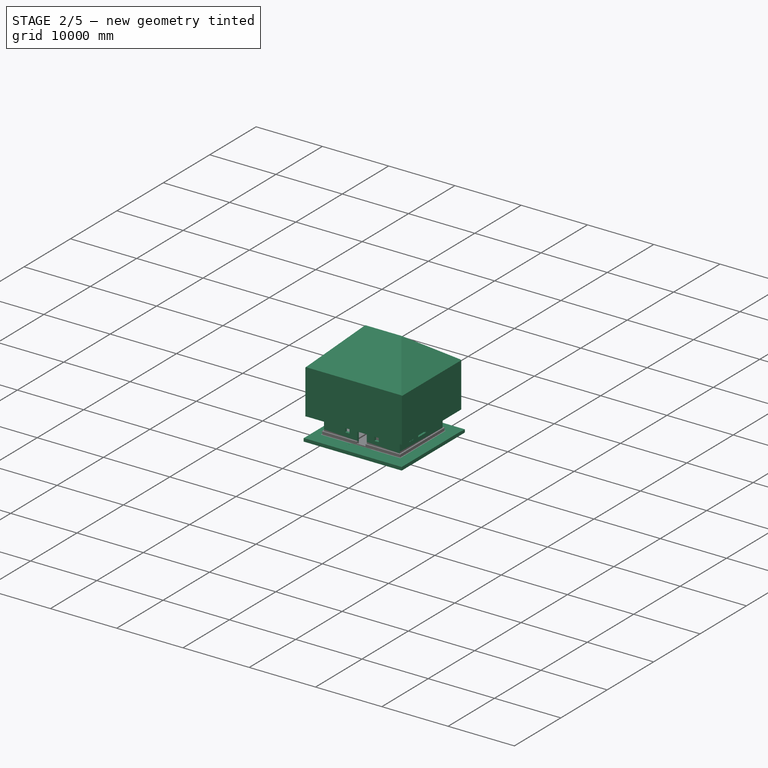
[diagram: stage 2 of 5 — iso view after this stage's code; geometry added in this stage tinted green]
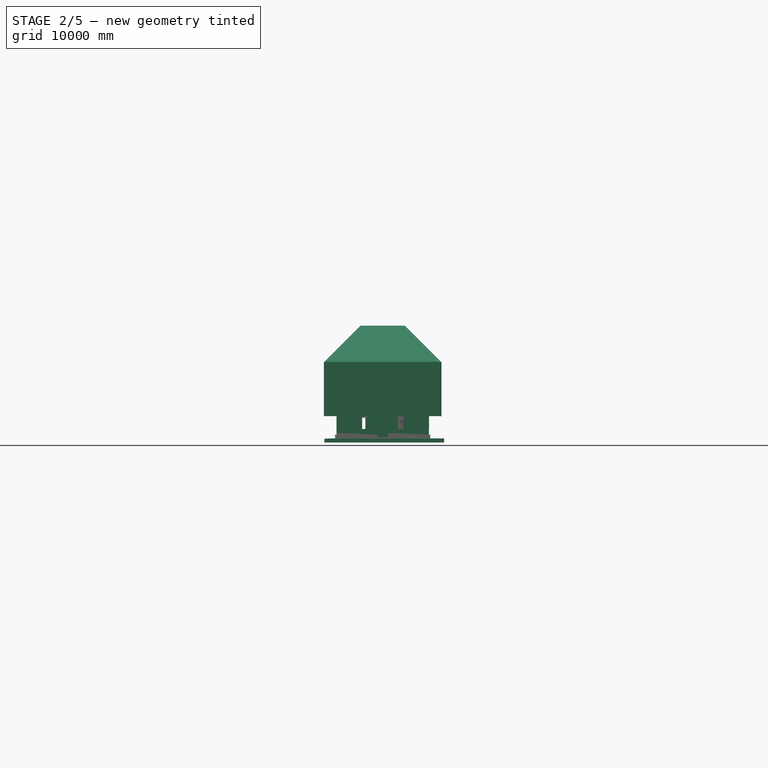
[diagram: stage 2 of 5 — front view after this stage's code; geometry added in this stage tinted green]
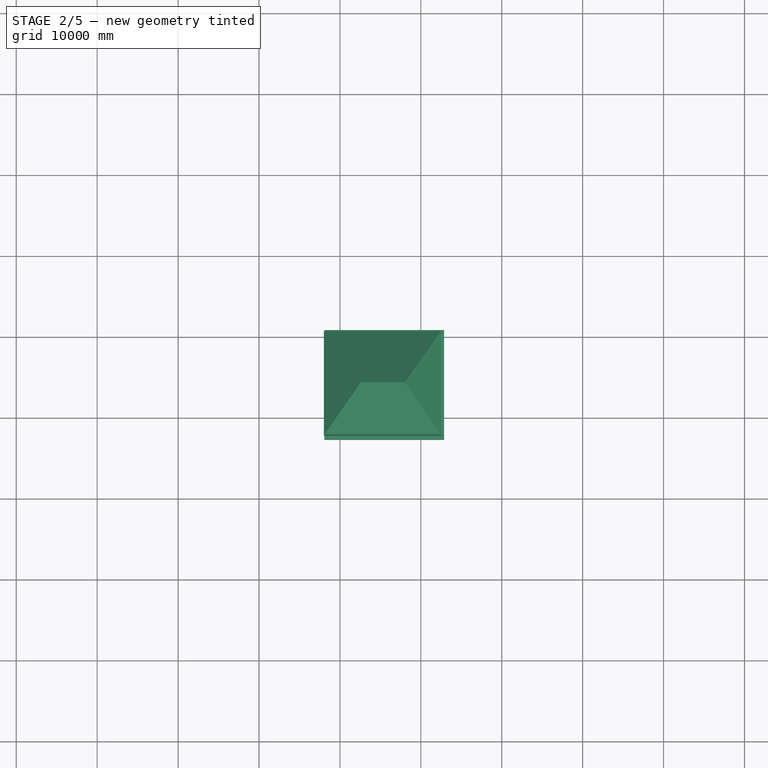
[diagram: stage 2 of 5 — top view after this stage's code; geometry added in this stage tinted green]
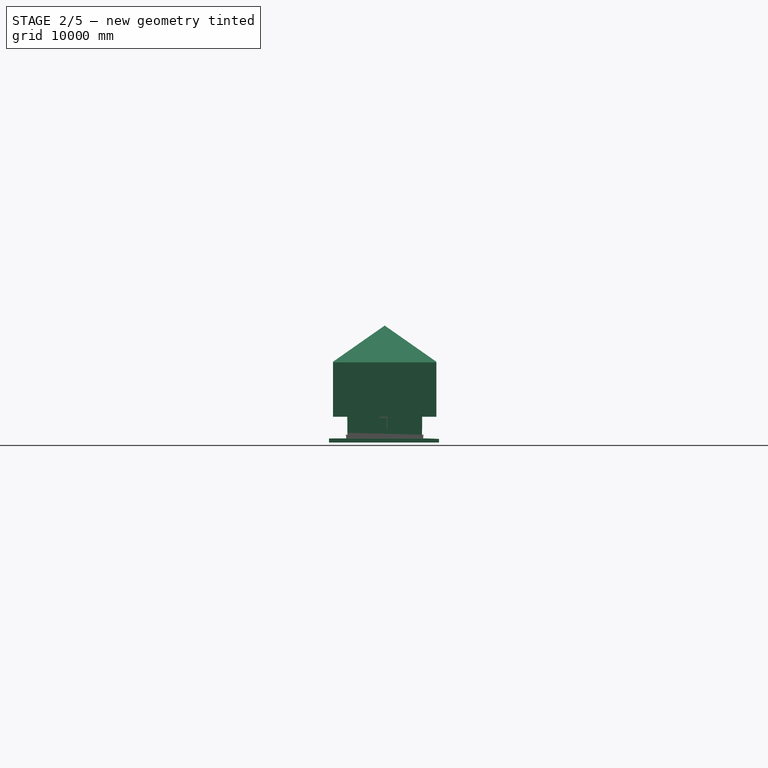
[diagram: stage 2 of 5 — right view after this stage's code; geometry added in this stage tinted green]
FEATURE [App::GeometryPython] BuildingPart065  label="Диван 250x162L"  # Arch/BIM 52 (typed FeaturePython)
  Area = 0
  GlobalId = 1oZyr4jbn08vwhGg8DOzPQ
  Group = -> [Structure275,Structure278,Structure276,Structure277,Structure279]
  Height = 0
  HeightPropagate = true
  IfcData = IfcUID=1oZyr4jbn08vwhGg8DOzPQ,attributes={"GlobalId": {"value": "1oZyr4jbn08vwhGg8DOzPQ"}},+1 more (map truncated)
  IfcType = 52
  LevelOffset = 0
FEATURE [App::MaterialObjectPython] Material016  label="PVC"  # material (typed FeaturePython)
  Material = AuthorAndLicense=PVC-Generic,CardName=PVC-Generic,Color=(0.10980392156862745, 0.050980392156862744, 0.050980392156862744, 1.0),Density=1380 kg/m^3,+13 more (map truncated)
  ProductURL = https://en.wikipedia.org/wiki/Polyvinyl_chloride
  Transparency = 0
FEATURE [App::MaterialObjectPython] Material017  label="Steel (white)"  # material (typed FeaturePython)
  Material = AuthorAndLicense=Steel-Generic,CardName=Steel-Generic,Color=(0.6549019607843137, 0.8823529411764706, 0.9058823529411765, 1.0),Density=7900 kg/m^3,+12 more (map truncated)
  ProductURL = https://en.wikipedia.org/wiki/Steel
  Transparency = 0
FEATURE [App::MaterialObjectPython] Material018  label="Concrete (not transparent)"  # material (typed FeaturePython)
  Description = A standard C-25 construction concrete
  Material = AuthorAndLicense=Concrete-Generic,CardName=Concrete-Generic,Color=(0.47058823529411764, 0.4627450980392157, 0.4627450980392157, 1.0),+13 more (map truncated)
  ProductURL = https://en.wikipedia.org/wiki/Concrete
  StandardCode = Masterformat 03 33 13
  Transparency = 0
FEATURE [Part::FeaturePython] Structure140  label="габарит крыльца001"  # Arch/BIM 52 (typed FeaturePython)
  Base = -> Rectangle2381
  FaceMaker = 0
  Height = 150
  HorizontalArea = 3218600
  IfcData = complex_attributes={"OwnerHistory": {}, "IsNestedBy": {}, "IsDecomposedBy": {}, "IsDefinedBy": {}, "ObjectPlacement": {}, "Representation":... (+4 chars omitted)
  IfcType = 52
  Length = 0
  Material = -> Material018
  MoveBase = false
  MoveWithHost = false
  Nodes = (2) [(5975,-1250,0),(5975,-1250,-350)]
  NodesOffset = 0
  Normal = (0,0,-1)
  PerimeterLength = 8250
  Placement = pos=(0,0,-50) rot=(0,0,1;0rad)
  VerticalArea = 1237500
  Width = 100
FEATURE [Part::Part2DObjectPython] Rectangle3833  # Draft 2D object (typed FeaturePython)
  ChamferSize = 0
  Columns = 1
  FilletRadius = 0
  Height = 1040
  Length = 1110
  MakeFace = false
  Placement = pos=(6835,5575,0) rot=(0,0,1;3.14159rad)
  Rows = 1
FEATURE [TechDraw::DrawSVGTemplate] Template008
  EditableTexts = Лист=8; Номер=ИЖС-2022.0003
  Height = 297
  Orientation = 1
  Width = 420
FEATURE [TechDraw::DrawSVGTemplate] Template009
  EditableTexts = Лист=9; Номер=ИЖС-2022.0003
  Height = 297
  Orientation = 1
  Width = 420
FEATURE [Part::Part2DObjectPython] Rectangle3836  label="ОК-66-003"  # Draft 2D object (typed FeaturePython)
  ChamferSize = 0
  Columns = 1
  FilletRadius = 0
  Height = 410
  Length = 660
  MakeFace = true
  Placement = pos=(7165,-435,0) rot=(0,0,1;0rad)
  Rows = 1
FEATURE [Part::Part2DObjectPython] Rectangle3837  label="ОК-66-004"  # Draft 2D object (typed FeaturePython)
  ChamferSize = 0
  Columns = 1
  FilletRadius = 0
  Height = 410
  Length = 660
  MakeFace = true
  Placement = pos=(2745,-435,0) rot=(0,0,1;0rad)
  Rows = 1
FEATURE [Part::Part2DObjectPython] Rectangle3838  # Draft 2D object (typed FeaturePython)
  ChamferSize = 0
  Columns = 1
  FilletRadius = 50
  Height = 500
  Length = 400
  MakeFace = false
  Placement = pos=(10100,1785,0) rot=(0,0,1;0rad)
  Rows = 1
FEATURE [Part::Extrusion] Extrude057  label="мойка_вырез"
  Base = -> Rectangle3838
  Dir = (0,0,1)
  DirMode = 0
  FaceMakerClass = Part::FaceMakerBullseye
  LengthFwd = 150
  LengthRev = 0
  Placement = pos=(0,0,700) rot=(0,0,1;0rad)
  Solid = true
  Symmetric = false
FEATURE [Part::Part2DObjectPython] Line2125  # Draft 2D object (typed FeaturePython)
  Area = 0
  ChamferSize = 0
  Closed = false
  End = (5285,2800,0)
  FilletRadius = 0
  Length = 2965
  MakeFace = false
  Placement = pos=(5285,-165,0) rot=(0,0,1;0rad)
  Points = (2) [(0,0,0),(0,2965,0)]
  Start = (5285,-165,0)
  Subdivisions = 0
FEATURE [Part::Part2DObjectPython] Rectangle4059  label="Д90-210-001"  # Draft 2D object (typed FeaturePython)
  ChamferSize = 0
  Columns = 1
  FilletRadius = 0
  Height = 150
  Length = 900
  MakeFace = true
  Placement = pos=(3535,5205,0) rot=(0,0,-1;1.5708rad)
  Rows = 1
FEATURE [Part::FeaturePython] Structure558  label="Проём-Д90-024"  # Arch/BIM 52 (typed FeaturePython)
  Base = -> Rectangle4059
  FaceMaker = 0
  Height = 2170
  HorizontalArea = 135000
  IfcData = complex_attributes={"OwnerHistory": {}, "IsNestedBy": {}, "IsDecomposedBy": {}, "IsDefinedBy": {}, "ObjectPlacement": {}, "Representation":... (+4 chars omitted)
  IfcType = 52
  Length = 0
  MoveBase = false
  MoveWithHost = false
  Nodes = (2) [(13000,6050,0),(13000,6050,2180)]
  NodesOffset = 0
  Normal = (0,0,0)
  PerimeterLength = 2100
  Placement = pos=(0,0,3145) rot=(0,0,1;0rad)
  VerticalArea = 4557000
  Width = 100
FEATURE [Part::Part2DObjectPython] Arc162  label="Arc163"  # Draft 2D object (typed FeaturePython)
  Area = 0
  FirstAngle = -180
  LastAngle = -90
  MakeFace = true
  Placement = pos=(3535,4355,0) rot=(0,0,-1;1.5708rad)
  Radius = 800
FEATURE [Part::Part2DObjectPython] Line2126  # Draft 2D object (typed FeaturePython)
  Area = 0
  ChamferSize = 0
  Closed = false
  End = (3535,4355,0)
  FilletRadius = 0
  Length = 800
  MakeFace = true
  Placement = pos=(2735,4355,0) rot=(0,0,1;0rad)
  Points = (2) [(0,0,0),(800,1.81899e-12,0)]
  Start = (2735,4355,0)
  Subdivisions = 0
FEATURE [Part::Part2DObjectPython] Line2127  # Draft 2D object (typed FeaturePython)
  Area = 0
  ChamferSize = 0
  Closed = false
  End = (3535,4015,0)
  FilletRadius = 0
  Length = 800
  MakeFace = true
  Placement = pos=(2735,4015,0) rot=(0,0,1;0rad)
  Points = (2) [(0,0,0),(800,1.36424e-12,0)]
  Start = (2735,4015,0)
  Subdivisions = 0
FEATURE [Part::Part2DObjectPython] Arc163  label="Arc164"  # Draft 2D object (typed FeaturePython)
  Area = 0
  FirstAngle = -180
  LastAngle = -90
  MakeFace = true
  Placement = pos=(3535,4015,0) rot=(0,0,1;0rad)
  Radius = 800
FEATURE [Part::Part2DObjectPython] Rectangle4060  label="Д90-210-010"  # Draft 2D object (typed FeaturePython)
  ChamferSize = 0
  Columns = 1
  FilletRadius = 0
  Height = 150
  Length = 900
  MakeFace = true
  Placement = pos=(3535,4065,0) rot=(0,0,-1;1.5708rad)
  Rows = 1
FEATURE [Part::FeaturePython] Structure559  label="Проём-Д90-025"  # Arch/BIM 52 (typed FeaturePython)
  Base = -> Rectangle4060
  FaceMaker = 0
  Height = 2170
  HorizontalArea = 135000
  IfcData = complex_attributes={"OwnerHistory": {}, "IsNestedBy": {}, "IsDecomposedBy": {}, "IsDefinedBy": {}, "ObjectPlacement": {}, "Representation":... (+4 chars omitted)
  IfcType = 52
  Length = 0
  MoveBase = false
  MoveWithHost = false
  Nodes = (2) [(13000,6050,0),(13000,6050,2180)]
  NodesOffset = 0
  Normal = (0,0,0)
  PerimeterLength = 2100
  Placement = pos=(0,0,3145) rot=(0,0,1;0rad)
  VerticalArea = 4557000
  Width = 100
FEATURE [Part::Part2DObjectPython] Rectangle4061  label="Д90-210-011"  # Draft 2D object (typed FeaturePython)
  ChamferSize = 0
  Columns = 1
  FilletRadius = 0
  Height = 150
  Length = 900
  MakeFace = true
  Placement = pos=(7060,3085,0) rot=(0,0,1;1.5708rad)
  Rows = 1
FEATURE [Part::FeaturePython] Structure576  label="Проём-Д110-001"  # Arch/BIM 52 (typed FeaturePython)
  Base = -> Rectangle4061
  FaceMaker = 0
  Height = 2170
  HorizontalArea = 135000
  IfcData = complex_attributes={"OwnerHistory": {}, "IsNestedBy": {}, "IsDecomposedBy": {}, "IsDefinedBy": {}, "ObjectPlacement": {}, "Representation":... (+4 chars omitted)
  IfcType = 52
  Length = 0
  MoveBase = false
  MoveWithHost = false
  Nodes = (2) [(13000,6050,0),(13000,6050,2180)]
  NodesOffset = 0
  Normal = (0,0,0)
  PerimeterLength = 2100
  Placement = pos=(0,0,3145) rot=(0,0,1;0rad)
  VerticalArea = 4557000
  Width = 100
FEATURE [Part::Part2DObjectPython] Arc164  label="Arc165"  # Draft 2D object (typed FeaturePython)
  Area = 0
  FirstAngle = -180
  LastAngle = -90
  MakeFace = true
  Placement = pos=(7060,3135,0) rot=(0,0,1;3.14159rad)
  Radius = 800
FEATURE [Part::Part2DObjectPython] Line2128  # Draft 2D object (typed FeaturePython)
  Area = 0
  ChamferSize = 0
  Closed = false
  End = (7860,3135,0)
  FilletRadius = 0
  Length = 800
  MakeFace = true
  Placement = pos=(7060,3135,0) rot=(0,0,1;0rad)
  Points = (2) [(0,0,0),(800,1.81899e-12,0)]
  Start = (7060,3135,0)
  Subdivisions = 0
FEATURE [Part::Part2DObjectPython] Rectangle4063  # Draft 2D object (typed FeaturePython)
  Area = 36000
  ChamferSize = 0
  Columns = 1
  FilletRadius = 0
  Height = 240
  Length = 150
  MakeFace = true
  Placement = pos=(3535,4065,0) rot=(0,0,1;0rad)
  Rows = 1
FEATURE [Part::Part2DObjectPython] Rectangle4064  # Draft 2D object (typed FeaturePython)
  Area = 195000
  ChamferSize = 0
  Columns = 1
  FilletRadius = 0
  Height = 1300
  Length = 150
  MakeFace = true
  Placement = pos=(6910,3985,0) rot=(0,0,1;0rad)
  Rows = 1
FEATURE [Part::Part2DObjectPython] Rectangle4066  # Draft 2D object (typed FeaturePython)
  Area = 561227
  ChamferSize = 0
  Columns = 1
  FilletRadius = 0
  Height = 100
  Length = 5612.27
  MakeFace = true
  Placement = pos=(72.7272,7595,0) rot=(0,0,1;0rad)
  Rows = 1
FEATURE [Part::Part2DObjectPython] Rectangle4067  # Draft 2D object (typed FeaturePython)
  Area = 343727
  ChamferSize = 0
  Columns = 1
  FilletRadius = 0
  Height = 100
  Length = 3437.27
  MakeFace = true
  Placement = pos=(7060,7595,0) rot=(0,0,1;0rad)
  Rows = 1
FEATURE [Part::Part2DObjectPython] Rectangle4068  # Draft 2D object (typed FeaturePython)
  Area = 364227
  ChamferSize = 0
  Columns = 1
  FilletRadius = 0
  Height = 100
  Length = 3642.27
  MakeFace = true
  Placement = pos=(72.7272,675,0) rot=(0,0,1;0rad)
  Rows = 1
FEATURE [Part::Part2DObjectPython] Rectangle4069  # Draft 2D object (typed FeaturePython)
  Area = 193000
  ChamferSize = 0
  Columns = 1
  FilletRadius = 0
  Height = 1930
  Length = 100
  MakeFace = true
  Placement = pos=(4135,855,0) rot=(0,0,1;0rad)
  Rows = 1
FEATURE [Part::Part2DObjectPython] Rectangle4070  # Draft 2D object (typed FeaturePython)
  Area = 296000
  ChamferSize = 0
  Columns = 1
  FilletRadius = 0
  Height = 2960
  Length = 100
  MakeFace = true
  Placement = pos=(6960,5435,0) rot=(0,0,1;0rad)
  Rows = 1
FEATURE [Part::Part2DObjectPython] Line2130  # Draft 2D object (typed FeaturePython)
  Area = 0
  ChamferSize = 0
  Closed = false
  End = (5150,1985,0)
  FilletRadius = 0
  Length = 800
  MakeFace = true
  Placement = pos=(5150,2785,0) rot=(0,0,-1;1.5708rad)
  Points = (2) [(0,0,0),(800,-9.09495e-13,0)]
  Start = (5150,2785,0)
  Subdivisions = 0
FEATURE [Part::Part2DObjectPython] Arc166  label="Arc167"  # Draft 2D object (typed FeaturePython)
  Area = 0
  FirstAngle = -180
  LastAngle = -90
  MakeFace = true
  Placement = pos=(5150,2785,0) rot=(0,0,1;1.5708rad)
  Radius = 800
FEATURE [Part::Part2DObjectPython] Rectangle4071  label="Д90-210-012"  # Draft 2D object (typed FeaturePython)
  ChamferSize = 0
  Columns = 1
  FilletRadius = 0
  Height = 100
  Length = 900
  MakeFace = true
  Placement = pos=(6000,2885,0) rot=(0,0,1;3.14159rad)
  Rows = 1
FEATURE [Part::FeaturePython] Structure564  label="Проём-Д90-026"  # Arch/BIM 52 (typed FeaturePython)
  Base = -> Rectangle4071
  FaceMaker = 0
  Height = 2170
  HorizontalArea = 90000
  IfcData = complex_attributes={"OwnerHistory": {}, "IsNestedBy": {}, "IsDecomposedBy": {}, "IsDefinedBy": {}, "ObjectPlacement": {}, "Representation":... (+4 chars omitted)
  IfcType = 52
  Length = 0
  MoveBase = false
  MoveWithHost = false
  Nodes = (2) [(13000,6050,0),(13000,6050,2180)]
  NodesOffset = 0
  Normal = (0,0,0)
  PerimeterLength = 2000
  Placement = pos=(0,0,3145) rot=(0,0,1;0rad)
  VerticalArea = 4340000
  Width = 100
FEATURE [Part::Part2DObjectPython] Line2141  # Draft 2D object (typed FeaturePython)
  ChamferSize = 0
  Closed = true
  End = (3680,-45,0)
  FilletRadius = 0
  Length = 8460
  MakeFace = false
  Placement = pos=(-3040,2085,0) rot=(0,0,1;3.14159rad)
  Points = (2) [(-6720,-6330,0),(-6720,2130,0)]
  Start = (3680,8415,0)
  Subdivisions = 0
FEATURE [Part::FeaturePython] Structure643  label="Проём-Д90-029"  # Arch/BIM 52 (typed FeaturePython)
  Base = -> Rectangle3851
  FaceMaker = 0
  Height = 2552
  HorizontalArea = 266800
  IfcData = complex_attributes={"OwnerHistory": {}, "IsNestedBy": {}, "IsDecomposedBy": {}, "IsDefinedBy": {}, "ObjectPlacement": {}, "Representation":... (+4 chars omitted)
  IfcType = 52
  Length = 0
  MoveBase = false
  MoveWithHost = false
  Nodes = (2) [(650,-4000,0),(650,-4000,2250)]
  NodesOffset = 0
  Normal = (0,0,0)
  PerimeterLength = 2420
  Placement = pos=(0,0,-200) rot=(0,0,1;0rad)
  VerticalArea = 6.17584e+06
  Width = 100
FEATURE [Part::Part2DObjectPython] Rectangle4167  label="ПР13_001"  # Draft 2D object (typed FeaturePython)
  ChamferSize = 0
  Columns = 1
  FilletRadius = 0
  Height = 1310
  Length = 290
  MakeFace = true
  Placement = pos=(3825,4515,0) rot=(0,0,1;3.14159rad)
  Rows = 1
FEATURE [Part::FeaturePython] Structure644  label="Проём-ПР13"  # Arch/BIM 52 (typed FeaturePython)
  Base = -> Rectangle4167
  FaceMaker = 0
  Height = 2552
  HorizontalArea = 379900
  IfcData = complex_attributes={"OwnerHistory": {}, "IsNestedBy": {}, "IsDecomposedBy": {}, "IsDefinedBy": {}, "ObjectPlacement": {}, "Representation":... (+4 chars omitted)
  IfcType = 52
  Length = 0
  MoveBase = false
  MoveWithHost = false
  Nodes = (2) [(8200,3800,0),(8200,3800,2250)]
  NodesOffset = 0
  Normal = (0,0,0)
  PerimeterLength = 3200
  Placement = pos=(0,0,-200) rot=(0,0,1;0rad)
  VerticalArea = 8.1664e+06
  Width = 100
FEATURE [Part::Part2DObjectPython] Rectangle4168  label="ОК-144-006"  # Draft 2D object (typed FeaturePython)
  ChamferSize = 0
  Columns = 1
  FilletRadius = 0
  Height = 410
  Length = 1700
  MakeFace = true
  Placement = pos=(-30,1320,0) rot=(0,0,1;1.5708rad)
  Rows = 1
FEATURE [Part::FeaturePython] Structure645  label="Проём_внеш.стена_029"  # Arch/BIM 52 (typed FeaturePython)
  Base = -> Rectangle4168
  FaceMaker = 0
  Height = 1617
  HorizontalArea = 697000
  IfcData = complex_attributes={"OwnerHistory": {}, "IsNestedBy": {}, "IsDecomposedBy": {}, "IsDefinedBy": {}, "ObjectPlacement": {}, "Representation":... (+4 chars omitted)
  IfcType = 52
  Length = 0
  MoveBase = false
  MoveWithHost = false
  Nodes = (2) [(-8120,-170,0),(-8120,-170,1500)]
  NodesOffset = 0
  Normal = (0,0,0)
  PerimeterLength = 4220
  Placement = pos=(0,0,955) rot=(0,0,1;0rad)
  VerticalArea = 6.82374e+06
  Width = 100
FEATURE [Part::FeaturePython] Structure646  label="Проём_внеш.стена_030"  # Arch/BIM 52 (typed FeaturePython)
  Base = -> Rectangle3871
  FaceMaker = 0
  Height = 2772
  HorizontalArea = 590400
  IfcData = complex_attributes={"OwnerHistory": {}, "IsNestedBy": {}, "IsDecomposedBy": {}, "IsDefinedBy": {}, "ObjectPlacement": {}, "Representation":... (+4 chars omitted)
  IfcType = 52
  Length = 0
  MoveBase = false
  MoveWithHost = false
  Nodes = (2) [(6195,-230,0),(6195,-230,2541)]
  NodesOffset = 0
  Normal = (0,0,0)
  PerimeterLength = 3700
  Placement = pos=(0,0,-200) rot=(0,0,1;0rad)
  VerticalArea = 10256400
  Width = 100
FEATURE [Part::FeaturePython] Structure647  label="Проём_внеш.стена_028"  # Arch/BIM 52 (typed FeaturePython)
  Base = -> Rectangle3872
  FaceMaker = 0
  Height = 1617
  HorizontalArea = 697000
  IfcData = complex_attributes={"OwnerHistory": {}, "IsNestedBy": {}, "IsDecomposedBy": {}, "IsDefinedBy": {}, "ObjectPlacement": {}, "Representation":... (+4 chars omitted)
  IfcType = 52
  Length = 0
  MoveBase = false
  MoveWithHost = false
  Nodes = (2) [(4745,-225,0),(4745,-225,1350)]
  NodesOffset = 0
  Normal = (0,0,0)
  PerimeterLength = 4220
  Placement = pos=(0,0,955) rot=(0,0,1;0rad)
  VerticalArea = 6.82374e+06
  Width = 100
FEATURE [Part::FeaturePython] Structure648  label="Проём_внеш.стена_001"  # Arch/BIM 52 (typed FeaturePython)
  Base = -> Rectangle3873
  FaceMaker = 0
  Height = 1617
  HorizontalArea = 483800
  IfcData = complex_attributes={"OwnerHistory": {}, "IsNestedBy": {}, "IsDecomposedBy": {}, "IsDefinedBy": {}, "ObjectPlacement": {}, "Representation":... (+4 chars omitted)
  IfcType = 52
  Length = 0
  MoveBase = false
  MoveWithHost = false
  Nodes = (2) [(1035,250,0),(1035,250,600)]
  NodesOffset = 0
  Normal = (0,0,0)
  PerimeterLength = 3180
  Placement = pos=(0,0,955) rot=(0,0,1;0rad)
  VerticalArea = 5142060
  Width = 100
FEATURE [Part::FeaturePython] Structure649  label="Проём_внеш.стена_027"  # Arch/BIM 52 (typed FeaturePython)
  Base = -> Rectangle4025
  FaceMaker = 0
  Height = 2772
  HorizontalArea = 803600
  IfcData = complex_attributes={"OwnerHistory": {}, "IsNestedBy": {}, "IsDecomposedBy": {}, "IsDefinedBy": {}, "ObjectPlacement": {}, "Representation":... (+4 chars omitted)
  IfcType = 52
  Length = 0
  MoveBase = false
  MoveWithHost = false
  Nodes = (2) [(1035,250,0),(1035,250,600)]
  NodesOffset = 0
  Normal = (0,0,0)
  PerimeterLength = 4740
  Placement = pos=(0,0,-200) rot=(0,0,1;0rad)
  VerticalArea = 13139280
  Width = 100
FEATURE [Part::FeaturePython] Structure650  label="Проём_внеш.стена_026"  # Arch/BIM 52 (typed FeaturePython)
  Base = -> Rectangle4021
  FaceMaker = 0
  Height = 1617
  HorizontalArea = 377200
  IfcData = complex_attributes={"OwnerHistory": {}, "IsNestedBy": {}, "IsDecomposedBy": {}, "IsDefinedBy": {}, "ObjectPlacement": {}, "Representation":... (+4 chars omitted)
  IfcType = 52
  Length = 0
  MoveBase = false
  MoveWithHost = false
  Nodes = (2) [(1035,250,0),(1035,250,600)]
  NodesOffset = 0
  Normal = (0,0,0)
  PerimeterLength = 2660
  Placement = pos=(0,0,955) rot=(0,0,1;0rad)
  VerticalArea = 4301220
  Width = 100
FEATURE [Part::FeaturePython] Structure651  label="Проём_внеш.стена_025"  # Arch/BIM 52 (typed FeaturePython)
  Base = -> Rectangle3875
  FaceMaker = 0
  Height = 1617
  HorizontalArea = 803600
  IfcData = complex_attributes={"OwnerHistory": {}, "IsNestedBy": {}, "IsDecomposedBy": {}, "IsDefinedBy": {}, "ObjectPlacement": {}, "Representation":... (+4 chars omitted)
  IfcType = 52
  Length = 0
  MoveBase = false
  MoveWithHost = false
  Nodes = (2) [(1035,250,0),(1035,250,600)]
  NodesOffset = 0
  Normal = (0,0,0)
  PerimeterLength = 4740
  Placement = pos=(0,0,955) rot=(0,0,1;0rad)
  VerticalArea = 7664580
  Width = 100
FEATURE [Part::FeaturePython] Structure652  label="Проём_внеш.стена_031"  # Arch/BIM 52 (typed FeaturePython)
  Base = -> Rectangle3837
  FaceMaker = 0
  Height = 1617
  HorizontalArea = 270600
  IfcData = complex_attributes={"OwnerHistory": {}, "IsNestedBy": {}, "IsDecomposedBy": {}, "IsDefinedBy": {}, "ObjectPlacement": {}, "Representation":... (+4 chars omitted)
  IfcType = 52
  Length = 0
  MoveBase = false
  MoveWithHost = false
  Nodes = (2) [(4618,-185,0),(4618,-185,1386)]
  NodesOffset = 0
  Normal = (0,0,0)
  PerimeterLength = 2140
  Placement = pos=(0,0,955) rot=(0,0,1;0rad)
  VerticalArea = 3.46038e+06
  Width = 100
FEATURE [Part::FeaturePython] Structure653  label="Проём_внеш.стена_032"  # Arch/BIM 52 (typed FeaturePython)
  Base = -> Rectangle3836
  FaceMaker = 0
  Height = 1617
  HorizontalArea = 270600
  IfcData = complex_attributes={"OwnerHistory": {}, "IsNestedBy": {}, "IsDecomposedBy": {}, "IsDefinedBy": {}, "ObjectPlacement": {}, "Representation":... (+4 chars omitted)
  IfcType = 52
  Length = 0
  MoveBase = false
  MoveWithHost = false
  Nodes = (2) [(7495,-230,0),(7495,-230,1617)]
  NodesOffset = 0
  Normal = (0,0,0)
  PerimeterLength = 2140
  Placement = pos=(0,0,955) rot=(0,0,1;0rad)
  VerticalArea = 3.46038e+06
  Width = 100
FEATURE [Part::Part2DObjectPython] Line2146  label="Перемычки_067"  # Draft 2D object (typed FeaturePython)
  Area = 0
  ChamferSize = 0
  Closed = true
  End = (3395,8540,0)
  FilletRadius = 0
  Length = 2460
  MakeFace = true
  Placement = pos=(852,8540,0) rot=(0,0,1;0rad)
  Points = (2) [(83,0,0),(2543,0,0)]
  Start = (935,8540,0)
  Subdivisions = 0
FEATURE [Part::FeaturePython] Wall282  label="Утепление перемычки XPS 100+30mm 001"  # Arch/BIM 166 (typed FeaturePython)
  Align = 1
  Area = 560880
  Base = -> Line2146
  BlockHeight = 0
  BlockLength = 0
  CountBroken = 0
  CountEntire = 0
  Face = 0
  Height = 228
  HorizontalArea = 319800
  IfcData = attributes={"GlobalId": {"name": "GlobalId", "type": "IfcGloballyUniqueId", "is_enum": false, "enum_values": []}, "Description": {"... (+533 chars omitted),+1 more (map truncated)
  IfcType = 166
  Joint = 0
  Length = 2460
  MakeBlocks = false
  Material = -> Material002
  MoveBase = false
  MoveWithHost = false
  Normal = (0,0,0)
  Offset = 125
  OffsetFirst = 0
  OffsetSecond = 0
  PerimeterLength = 5180
  Placement = pos=(0,0,2572) rot=(0,0,1;0rad)
  PredefinedType = 0
  VerticalArea = 1181040
  Width = 130
FEATURE [Part::Part2DObjectPython] Line2147  label="Перемычки_068"  # Draft 2D object (typed FeaturePython)
  Area = 0
  ChamferSize = 0
  Closed = true
  End = (5020,8540,0)
  FilletRadius = 0
  Length = 1290
  MakeFace = true
  Placement = pos=(3079,8540,0) rot=(0,0,1;0rad)
  Points = (2) [(651,0,0),(1941,0,0)]
  Start = (3730,8540,0)
  Subdivisions = 0
FEATURE [Part::FeaturePython] Wall284  label="Утепление перемычки XPS 100+30mm 002"  # Arch/BIM 166 (typed FeaturePython)
  Align = 1
  Area = 294120
  Base = -> Line2147
  BlockHeight = 0
  BlockLength = 0
  CountBroken = 0
  CountEntire = 0
  Face = 0
  Height = 228
  HorizontalArea = 167700
  IfcData = attributes={"GlobalId": {"name": "GlobalId", "type": "IfcGloballyUniqueId", "is_enum": false, "enum_values": []}, "Description": {"... (+533 chars omitted),+1 more (map truncated)
  IfcType = 166
  Joint = 0
  Length = 1290
  MakeBlocks = false
  Material = -> Material002
  MoveBase = false
  MoveWithHost = false
  Normal = (0,0,0)
  Offset = 125
  OffsetFirst = 0
  OffsetSecond = 0
  PerimeterLength = 2840
  Placement = pos=(0,0,2572) rot=(0,0,1;0rad)
  PredefinedType = 0
  VerticalArea = 647520
  Width = 130
FEATURE [Part::Part2DObjectPython] Line2148  label="Перемычки_069"  # Draft 2D object (typed FeaturePython)
  Area = 0
  ChamferSize = 0
  Closed = true
  End = (6190,-170,0)
  FilletRadius = 0
  Length = 1810
  MakeFace = true
  Placement = pos=(3795,-170,0) rot=(0,0,1;0rad)
  Points = (2) [(585,0,0),(2395,0,0)]
  Start = (4380,-170,0)
  Subdivisions = 0
FEATURE [Part::FeaturePython] Wall288  label="Утепление перемычки XPS 100+30mm 048"  # Arch/BIM 166 (typed FeaturePython)
  Align = 0
  Area = 412680
  Base = -> Line2148
  BlockHeight = 0
  BlockLength = 0
  CountBroken = 0
  CountEntire = 0
  Face = 0
  Height = 228
  HorizontalArea = 235300
  IfcData = attributes={"GlobalId": {"name": "GlobalId", "type": "IfcGloballyUniqueId", "is_enum": false, "enum_values": []}, "Description": {"... (+533 chars omitted),+1 more (map truncated)
  IfcType = 166
  Joint = 0
  Length = 1810
  MakeBlocks = false
  Material = -> Material002
  MoveBase = false
  MoveWithHost = false
  Normal = (0,0,0)
  Offset = 125
  OffsetFirst = 0
  OffsetSecond = 0
  PerimeterLength = 3880
  Placement = pos=(0,0,2572) rot=(0,0,1;0rad)
  PredefinedType = 0
  VerticalArea = 884640
  Width = 130
FEATURE [Part::Part2DObjectPython] Line2149  label="Перемычки_070"  # Draft 2D object (typed FeaturePython)
  Area = 0
  ChamferSize = 0
  Closed = true
  End = (8140,-170,0)
  FilletRadius = 0
  Length = 1290
  MakeFace = true
  Placement = pos=(6070,-170,0) rot=(0,0,1;0rad)
  Points = (2) [(780,1.13687e-12,0),(2070,1.13687e-12,0)]
  Start = (6850,-170,0)
  Subdivisions = 0
FEATURE [Part::FeaturePython] Wall286  label="Утепление перемычки XPS 100+30mm 028"  # Arch/BIM 166 (typed FeaturePython)
  Align = 0
  Area = 294120
  Base = -> Line2149
  BlockHeight = 0
  BlockLength = 0
  CountBroken = 0
  CountEntire = 0
  Face = 0
  Height = 228
  HorizontalArea = 167700
  IfcData = attributes={"GlobalId": {"name": "GlobalId", "type": "IfcGloballyUniqueId", "is_enum": false, "enum_values": []}, "Description": {"... (+533 chars omitted),+1 more (map truncated)
  IfcType = 166
  Joint = 0
  Length = 1290
  MakeBlocks = false
  Material = -> Material002
  MoveBase = false
  MoveWithHost = false
  Normal = (0,0,0)
  Offset = 125
  OffsetFirst = 0
  OffsetSecond = 0
  PerimeterLength = 2840
  Placement = pos=(0,0,2572) rot=(0,0,1;0rad)
  PredefinedType = 0
  VerticalArea = 647520
  Width = 130
FEATURE [Part::Part2DObjectPython] Line2150  label="Перемычки_071"  # Draft 2D object (typed FeaturePython)
  Area = 0
  ChamferSize = 0
  Closed = true
  End = (10745,1275,0)
  FilletRadius = 0
  Length = 1550
  MakeFace = true
  Placement = pos=(7435,130,0) rot=(0,0,1;0rad)
  Points = (2) [(3310,2695,0),(3310,1145,0)]
  Start = (10745,2825,0)
  Subdivisions = 0
FEATURE [Part::FeaturePython] Wall289  label="Утепление перемычки XPS 100+30mm 047"  # Arch/BIM 166 (typed FeaturePython)
  Align = 1
  Area = 353400
  Base = -> Line2150
  BlockHeight = 0
  BlockLength = 0
  CountBroken = 0
  CountEntire = 0
  Face = 0
  Height = 228
  HorizontalArea = 201500
  IfcData = attributes={"GlobalId": {"name": "GlobalId", "type": "IfcGloballyUniqueId", "is_enum": false, "enum_values": []}, "Description": {"... (+533 chars omitted),+1 more (map truncated)
  IfcType = 166
  Joint = 0
  Length = 1550
  MakeBlocks = false
  Material = -> Material002
  MoveBase = false
  MoveWithHost = false
  Normal = (0,0,0)
  Offset = 125
  OffsetFirst = 0
  OffsetSecond = 0
  PerimeterLength = 3360
  Placement = pos=(0,0,2572) rot=(0,0,1;0rad)
  PredefinedType = 0
  VerticalArea = 766080
  Width = 130
FEATURE [Part::Part2DObjectPython] Line2151  label="Перемычки_072"  # Draft 2D object (typed FeaturePython)
  Area = 0
  ChamferSize = 0
  Closed = true
  End = (-175,1135,0)
  FilletRadius = 0
  Length = 2070
  MakeFace = true
  Placement = pos=(-3485,755,0) rot=(0,0,1;0rad)
  Points = (2) [(3310,2450,0),(3310,380,0)]
  Start = (-175,3205,0)
  Subdivisions = 0
FEATURE [Part::FeaturePython] Wall285  label="Утепление перемычки XPS 100+30mm 050"  # Arch/BIM 166 (typed FeaturePython)
  Align = 0
  Area = 471960
  Base = -> Line2151
  BlockHeight = 0
  BlockLength = 0
  CountBroken = 0
  CountEntire = 0
  Face = 0
  Height = 228
  HorizontalArea = 269100
  IfcData = attributes={"GlobalId": {"name": "GlobalId", "type": "IfcGloballyUniqueId", "is_enum": false, "enum_values": []}, "Description": {"... (+533 chars omitted),+1 more (map truncated)
  IfcType = 166
  Joint = 0
  Length = 2070
  MakeBlocks = false
  Material = -> Material002
  MoveBase = false
  MoveWithHost = false
  Normal = (0,0,0)
  Offset = 125
  OffsetFirst = 0
  OffsetSecond = 0
  PerimeterLength = 4400
  Placement = pos=(0,0,2572) rot=(0,0,1;0rad)
  PredefinedType = 0
  VerticalArea = 1003200
  Width = 130
FEATURE [Part::Part2DObjectPython] Line2152  label="Перемычки_073"  # Draft 2D object (typed FeaturePython)
  Area = 0
  ChamferSize = 0
  Closed = true
  End = (10745,3355,0)
  FilletRadius = 0
  Length = 2070
  MakeFace = true
  Placement = pos=(7435,3284,0) rot=(0,0,1;0rad)
  Points = (2) [(3310,2141,0),(3310,71,0)]
  Start = (10745,5425,0)
  Subdivisions = 0
FEATURE [Part::FeaturePython] Wall290  label="Утепление перемычки XPS 100+30mm 046"  # Arch/BIM 166 (typed FeaturePython)
  Align = 1
  Area = 471960
  Base = -> Line2152
  BlockHeight = 0
  BlockLength = 0
  CountBroken = 0
  CountEntire = 0
  Face = 0
  Height = 228
  HorizontalArea = 269100
  IfcData = attributes={"GlobalId": {"name": "GlobalId", "type": "IfcGloballyUniqueId", "is_enum": false, "enum_values": []}, "Description": {"... (+533 chars omitted),+1 more (map truncated)
  IfcType = 166
  Joint = 0
  Length = 2070
  MakeBlocks = false
  Material = -> Material002
  MoveBase = false
  MoveWithHost = false
  Normal = (0,0,0)
  Offset = 125
  OffsetFirst = 0
  OffsetSecond = 0
  PerimeterLength = 4400
  Placement = pos=(0,0,2572) rot=(0,0,1;0rad)
  PredefinedType = 0
  VerticalArea = 1003200
  Width = 130
FEATURE [Part::Part2DObjectPython] Line2153  label="Перемычки_074"  # Draft 2D object (typed FeaturePython)
  Area = 0
  ChamferSize = 0
  Closed = true
  End = (3720,-170,0)
  FilletRadius = 0
  Length = 1290
  MakeFace = true
  Placement = pos=(1650,-170,0) rot=(0,0,1;0rad)
  Points = (2) [(780,1.13687e-12,0),(2070,1.13687e-12,0)]
  Start = (2430,-170,0)
  Subdivisions = 0
FEATURE [Part::FeaturePython] Wall565  label="Перем.2шт. 3ПБ 13-37 003"  # Arch/BIM 166 (typed FeaturePython)
  Align = 2
  Area = 297990
  Base = -> Line2153
  BlockHeight = 0
  BlockLength = 0
  CountBroken = 0
  CountEntire = 0
  Face = 0
  GlobalId = 2dIW8Z8qb1VQVoHMf0gHj5
  Height = 231
  HorizontalArea = 322500
  IfcData = IfcUID=2dIW8Z8qb1VQVoHMf0gHj5,+2 more (map truncated)
  IfcType = 166
  Joint = 0
  Length = 1290
  MakeBlocks = false
  Material = -> Material001
  MoveBase = false
  MoveWithHost = false
  Normal = (0,0,0)
  OffsetFirst = 0
  OffsetSecond = 0
  PerimeterLength = 3080
  Placement = pos=(0,0,2572) rot=(0,0,1;0rad)
  PredefinedType = 0
  VerticalArea = 711480
  Width = 250
FEATURE [Part::FeaturePython] Wall283  label="Утепление перемычки XPS 100+30mm 049"  # Arch/BIM 166 (typed FeaturePython)
  Align = 0
  Area = 294120
  Base = -> Line2153
  BlockHeight = 0
  BlockLength = 0
  CountBroken = 0
  CountEntire = 0
  Face = 0
  Height = 228
  HorizontalArea = 167700
  IfcData = attributes={"GlobalId": {"name": "GlobalId", "type": "IfcGloballyUniqueId", "is_enum": false, "enum_values": []}, "Description": {"... (+533 chars omitted),+1 more (map truncated)
  IfcType = 166
  Joint = 0
  Length = 1290
  MakeBlocks = false
  Material = -> Material002
  MoveBase = false
  MoveWithHost = false
  Normal = (0,0,0)
  Offset = 125
  OffsetFirst = 0
  OffsetSecond = 0
  PerimeterLength = 2840
  Placement = pos=(0,0,2572) rot=(0,0,1;0rad)
  PredefinedType = 0
  VerticalArea = 647520
  Width = 130
FEATURE [Part::Part2DObjectPython] Line2154  label="Перемычки_075"  # Draft 2D object (typed FeaturePython)
  Area = 0
  ChamferSize = 0
  Closed = true
  End = (9635,8540,0)
  FilletRadius = 0
  Length = 2460
  MakeFace = true
  Placement = pos=(7092,8540,0) rot=(0,0,1;0rad)
  Points = (2) [(83,0,0),(2543,0,0)]
  Start = (7175,8540,0)
  Subdivisions = 0
FEATURE [Part::FeaturePython] Wall566  label="Перемычка 5ПБ 25-27 002"  # Arch/BIM 166 (typed FeaturePython)
  Align = 2
  Area = 560880
  Base = -> Line2154
  BlockHeight = 0
  BlockLength = 0
  CountBroken = 0
  CountEntire = 0
  Face = 0
  GlobalId = 3keULZXVT8QA_IAgUQCOo2
  Height = 228
  HorizontalArea = 615000
  IfcData = IfcUID=3keULZXVT8QA_IAgUQCOo2,+2 more (map truncated)
  IfcType = 166
  Joint = 0
  Length = 2460
  MakeBlocks = false
  Material = -> Material001
  MoveBase = false
  MoveWithHost = false
  Normal = (0,0,0)
  OffsetFirst = 0
  OffsetSecond = 0
  PerimeterLength = 5420
  Placement = pos=(0,-9.09e-13,2572) rot=(0,0,1;0rad)
  PredefinedType = 0
  VerticalArea = 1.23576e+06
  Width = 250
FEATURE [Part::FeaturePython] Wall287  label="Утепление перемычки XPS 100+30mm 045"  # Arch/BIM 166 (typed FeaturePython)
  Align = 1
  Area = 560880
  Base = -> Line2154
  BlockHeight = 0
  BlockLength = 0
  CountBroken = 0
  CountEntire = 0
  Face = 0
  Height = 228
  HorizontalArea = 319800
  IfcData = attributes={"GlobalId": {"name": "GlobalId", "type": "IfcGloballyUniqueId", "is_enum": false, "enum_values": []}, "Description": {"... (+533 chars omitted),+1 more (map truncated)
  IfcType = 166
  Joint = 0
  Length = 2460
  MakeBlocks = false
  Material = -> Material002
  MoveBase = false
  MoveWithHost = false
  Normal = (0,0,0)
  Offset = 125
  OffsetFirst = 0
  OffsetSecond = 0
  PerimeterLength = 5180
  Placement = pos=(0,-9.09e-13,2572) rot=(0,0,1;0rad)
  PredefinedType = 0
  VerticalArea = 1.18104e+06
  Width = 130
FEATURE [App::GeometryPython] BuildingPart089  label="Утепление перемычек XPS 100+30mm"  # Arch/BIM 52 (typed FeaturePython)
  Area = 3714120
  GlobalId = 1IqJZ7MUv7eQPyUTFsu7$l
  Group = -> [Wall285,Wall282,Wall284,Wall287,Wall290,Wall289,Wall283,Wall288,Wall286]
  Height = 0
  HeightPropagate = true
  IfcData = IfcUID=1IqJZ7MUv7eQPyUTFsu7$l,+2 more (map truncated)
  IfcType = 52
  LevelOffset = 0
FEATURE [Part::FeaturePython] Wall568  label="Перемычка 5ПБ 25-27 001"  # Arch/BIM 166 (typed FeaturePython)
  Align = 2
  Area = 560880
  Base = -> Line2146
  BlockHeight = 0
  BlockLength = 0
  CountBroken = 0
  CountEntire = 0
  Face = 0
  GlobalId = 2_OOPfC1L9nOo2BwNBJ59E
  Height = 228
  HorizontalArea = 615000
  IfcData = IfcUID=2_OOPfC1L9nOo2BwNBJ59E,+2 more (map truncated)
  IfcType = 166
  Joint = 0
  Length = 2460
  MakeBlocks = false
  Material = -> Material001
  MoveBase = false
  MoveWithHost = false
  Normal = (0,0,0)
  OffsetFirst = 0
  OffsetSecond = 0
  PerimeterLength = 5420
  Placement = pos=(0,0,2572) rot=(0,0,1;0rad)
  PredefinedType = 0
  VerticalArea = 1235760
  Width = 250
FEATURE [Part::FeaturePython] Wall569  label="Перем.2шт. 3ПБ 13-37 002"  # Arch/BIM 166 (typed FeaturePython)
  Align = 2
  Area = 294120
  Base = -> Line2147
  BlockHeight = 0
  BlockLength = 0
  CountBroken = 0
  CountEntire = 0
  Face = 0
  GlobalId = 02zZ5o_1DBJf0p5Hr4GWva
  Height = 228
  HorizontalArea = 322500
  IfcData = IfcUID=02zZ5o_1DBJf0p5Hr4GWva,+2 more (map truncated)
  IfcType = 166
  Joint = 0
  Length = 1290
  MakeBlocks = false
  Material = -> Material001
  MoveBase = false
  MoveWithHost = false
  Normal = (0,0,0)
  OffsetFirst = 0
  OffsetSecond = 0
  PerimeterLength = 3080
  Placement = pos=(0,0,2572) rot=(0,0,1;0rad)
  PredefinedType = 0
  VerticalArea = 702240
  Width = 250
FEATURE [Part::FeaturePython] Wall570  label="Перемычка 5ПБ 18-27 003"  # Arch/BIM 166 (typed FeaturePython)
  Align = 2
  Area = 418110
  Base = -> Line2148
  BlockHeight = 0
  BlockLength = 0
  CountBroken = 0
  CountEntire = 0
  Face = 0
  GlobalId = 2Km2nGMYj6_hkYj1EJr8Pd
  Height = 231
  HorizontalArea = 452500
  IfcData = IfcUID=2Km2nGMYj6_hkYj1EJr8Pd,+2 more (map truncated)
  IfcType = 166
  Joint = 0
  Length = 1810
  MakeBlocks = false
  Material = -> Material001
  MoveBase = false
  MoveWithHost = false
  Normal = (0,0,0)
  OffsetFirst = 0
  OffsetSecond = 0
  PerimeterLength = 4120
  Placement = pos=(0,0,2572) rot=(0,0,1;0rad)
  PredefinedType = 0
  VerticalArea = 951720
  Width = 250
FEATURE [Part::FeaturePython] Wall571  label="Перем.2шт. 3ПБ 13-37 004"  # Arch/BIM 166 (typed FeaturePython)
  Align = 2
  Area = 297990
  Base = -> Line2149
  BlockHeight = 0
  BlockLength = 0
  CountBroken = 0
  CountEntire = 0
  Face = 0
  GlobalId = 16$DxRw$TB6BfQSNqz60Qz
  Height = 231
  HorizontalArea = 322500
  IfcData = IfcUID=16$DxRw$TB6BfQSNqz60Qz,+2 more (map truncated)
  IfcType = 166
  Joint = 0
  Length = 1290
  MakeBlocks = false
  Material = -> Material001
  MoveBase = false
  MoveWithHost = false
  Normal = (0,0,0)
  OffsetFirst = 0
  OffsetSecond = 0
  PerimeterLength = 3080
  Placement = pos=(0,0,2572) rot=(0,0,1;0rad)
  PredefinedType = 0
  VerticalArea = 711480
  Width = 250
FEATURE [Part::FeaturePython] Wall572  label="Перем.2шт. 3ПБ 16-37 001"  # Arch/BIM 166 (typed FeaturePython)
  Align = 2
  Area = 353400
  Base = -> Line2150
  BlockHeight = 0
  BlockLength = 0
  CountBroken = 0
  CountEntire = 0
  Face = 0
  GlobalId = 0AqGC86W9B8PvMAPbhOTte
  Height = 228
  HorizontalArea = 387500
  IfcData = IfcUID=0AqGC86W9B8PvMAPbhOTte,+2 more (map truncated)
  IfcType = 166
  Joint = 0
  Length = 1550
  MakeBlocks = false
  Material = -> Material001
  MoveBase = false
  MoveWithHost = false
  Normal = (0,0,0)
  OffsetFirst = 0
  OffsetSecond = 0
  PerimeterLength = 3600
  Placement = pos=(0,0,2572) rot=(0,0,1;0rad)
  PredefinedType = 0
  VerticalArea = 820800
  Width = 250
FEATURE [Part::FeaturePython] Wall573  label="Перемычка 5ПБ 21-27 003"  # Arch/BIM 166 (typed FeaturePython)
  Align = 2
  Area = 471960
  Base = -> Line2151
  BlockHeight = 0
  BlockLength = 0
  CountBroken = 0
  CountEntire = 0
  Face = 0
  GlobalId = 23sFNS3FX7B9N2mOSbHlu1
  Height = 228
  HorizontalArea = 517500
  IfcData = IfcUID=23sFNS3FX7B9N2mOSbHlu1,+2 more (map truncated)
  IfcType = 166
  Joint = 0
  Length = 2070
  MakeBlocks = false
  Material = -> Material001
  MoveBase = false
  MoveWithHost = false
  Normal = (0,0,0)
  OffsetFirst = 0
  OffsetSecond = 0
  PerimeterLength = 4640
  Placement = pos=(0,0,2572) rot=(0,0,1;0rad)
  PredefinedType = 0
  VerticalArea = 1057920
  Width = 250
FEATURE [Part::FeaturePython] Wall574  label="Перемычка 5ПБ 21-27 001"  # Arch/BIM 166 (typed FeaturePython)
  Align = 2
  Area = 471960
  Base = -> Line2152
  BlockHeight = 0
  BlockLength = 0
  CountBroken = 0
  CountEntire = 0
  Face = 0
  GlobalId = 2TdxzIhfb2oA4zfHjvmbo2
  Height = 228
  HorizontalArea = 517500
  IfcData = IfcUID=2TdxzIhfb2oA4zfHjvmbo2,+2 more (map truncated)
  IfcType = 166
  Joint = 0
  Length = 2070
  MakeBlocks = false
  Material = -> Material001
  MoveBase = false
  MoveWithHost = false
  Normal = (0,0,0)
  OffsetFirst = 0
  OffsetSecond = 0
  PerimeterLength = 4640
  Placement = pos=(0,0,2572) rot=(0,0,1;0rad)
  PredefinedType = 0
  VerticalArea = 1057920
  Width = 250
FEATURE [App::GeometryPython] BuildingPart088  label="Перемычки по ГОСТ 948-2016"  # Arch/BIM 52 (typed FeaturePython)
  Area = 6163490
  GlobalId = 3$YVGVb81DNfcCDGoK7nvQ
  Group = -> [Wall277,Wall278,Wall281,Wall497,Wall564,Wall568,Wall569,Wall566,Wall574,Wall572,Wall573,Wall565,Wall570,Wall571]
  Height = 0
  HeightPropagate = true
  IfcData = IfcUID=3$YVGVb81DNfcCDGoK7nvQ,+2 more (map truncated)
  IfcType = 52
  LevelOffset = 0
FEATURE [Part::FeaturePython] Wall567  label="Внешняя стена Поротерм 38Т 380мм"  # Arch/BIM 166 (typed FeaturePython)
  Align = 0
  Area = 114780000
  Base = -> Rectangle3870
  BlockHeight = 231
  BlockLength = 0
  CountBroken = 0
  CountEntire = 0
  Face = 0
  GlobalId = 15i3vb4BrBERo7sMNULkP3
  Height = 3000
  HorizontalArea = 0
  IfcData = IfcUID=15i3vb4BrBERo7sMNULkP3,+2 more (map truncated)
  IfcType = 166
  Joint = 0
  Length = 38260
  MakeBlocks = true
  Material = -> Material004
  MoveBase = false
  MoveWithHost = false
  Normal = (0,0,1)
  OffsetFirst = 0
  OffsetSecond = 0
  PerimeterLength = 0
  Placement = pos=(0,0,-200) rot=(0,0,1;0rad)
  PredefinedType = 0
  Subtractions = -> [Structure651,Structure650,Structure649,Structure647,Structure645,Structure646,Structure652,Structure653,Structure648,Wall568,Wall569,Wall566,Wall574,Wall572,Wall573,Wall565,Wall570,Wall571,Wall285,Wall282,Wall284,Wall287,Wall290,Wall289,Wall283,Wall288,Wall286]
  VerticalArea = 0
  Width = 380
FEATURE [Part::Part2DObjectPython] Line2159  # Draft 2D object (typed FeaturePython)
  ChamferSize = 0
  Closed = true
  End = (6980,5675,0)
  FilletRadius = 0
  Length = 1160
  MakeFace = false
  Placement = pos=(4290,9790,0) rot=(0,0,1;1.5708rad)
  Points = (2) [(-5275,-2690,0),(-4115,-2690,0)]
  Start = (6980,4515,0)
  Subdivisions = 0
FEATURE [Part::FeaturePython] Wall579  label="Несущая стена 2.1нф 250мм внутренняя002"  # Arch/BIM 166 (typed FeaturePython)
  Align = 2
  Area = 3.48e+06
  Base = -> Line2159
  BlockHeight = 231
  BlockLength = 0
  CountBroken = 0
  CountEntire = 0
  Face = 0
  GlobalId = 1uw9ZyZ5vAkuN6nr$sWkBP
  Height = 3000
  HorizontalArea = 0
  IfcData = IfcUID=1uw9ZyZ5vAkuN6nr$sWkBP; attributes={"GlobalId": {"value": "1uw9ZyZ5vAkuN6nr$sWkBP"}}
  IfcType = 166
  Joint = 0
  Length = 1160
  MakeBlocks = true
  Material = -> Material009
  MoveBase = false
  MoveWithHost = false
  Normal = (0,0,1)
  OffsetFirst = 0
  OffsetSecond = 500
  PerimeterLength = 0
  Placement = pos=(0,0,-200) rot=(0,0,1;0rad)
  PredefinedType = 0
  VerticalArea = 0
  Width = 250
FEATURE [Part::FeaturePython] Structure663  label="отделка инсталляции 003"  # Arch/BIM 52 (typed FeaturePython)
  Base = -> Rectangle3890
  FaceMaker = 0
  GlobalId = 2d5W_OQQf2Fxkoe6wMEOb9
  Height = 1200
  HorizontalArea = 102000
  IfcData = IfcUID=2d5W_OQQf2Fxkoe6wMEOb9,+2 more (map truncated)
  IfcType = 52
  Length = 0
  Material = -> Material013
  MoveBase = false
  MoveWithHost = false
  Nodes = (2) [(-2856.79,7112.64,0),(-2856.79,7112.64,600)]
  NodesOffset = 0
  Normal = (0,0,1)
  PerimeterLength = 1940
  VerticalArea = 2328000
  Width = 100
FEATURE [Part::Part2DObjectPython] Rectangle4184  label="Шкаф Cersanit Moduo 60_010"  # Draft 2D object (typed FeaturePython)
  Area = 84000
  ChamferSize = 0
  Columns = 1
  FilletRadius = 0
  Height = 600
  Length = 140
  MakeFace = true
  Placement = pos=(3825,5925,0) rot=(0,0,1;0rad)
  Rows = 1
FEATURE [Part::FeaturePython] Structure664  label="Шкаф Cersanit Moduo 60_011"  # Arch/BIM 52 (typed FeaturePython)
  Base = -> Rectangle4184
  FaceMaker = 0
  GlobalId = 2d5W_OQQf2Fxkoe6wMEOb9
  Height = 800
  HorizontalArea = 84000
  IfcData = IfcUID=2d5W_OQQf2Fxkoe6wMEOb9,+2 more (map truncated)
  IfcType = 52
  Length = 0
  Material = -> Material013
  MoveBase = false
  MoveWithHost = false
  Nodes = (2) [(-2856.79,7112.64,0),(-2856.79,7112.64,600)]
  NodesOffset = 0
  Normal = (0,0,-1)
  PerimeterLength = 1480
  Placement = pos=(0,0,1075) rot=(0,0,1;0rad)
  VerticalArea = 1184000
  Width = 100
FEATURE [Part::FeaturePython] Structure665  label="Шкаф Cersanit Moduo 60_012"  # Arch/BIM 52 (typed FeaturePython)
  Base = -> Rectangle4184
  FaceMaker = 0
  GlobalId = 2d5W_OQQf2Fxkoe6wMEOb9
  Height = 800
  HorizontalArea = 84000
  IfcData = IfcUID=2d5W_OQQf2Fxkoe6wMEOb9,+2 more (map truncated)
  IfcType = 52
  Length = 0
  Material = -> Material013
  MoveBase = false
  MoveWithHost = false
  Nodes = (2) [(-2856.79,7112.64,0),(-2856.79,7112.64,600)]
  NodesOffset = 0
  Normal = (0,0,1)
  PerimeterLength = 1480
  Placement = pos=(0,0,1075) rot=(0,0,1;0rad)
  VerticalArea = 1184000
  Width = 100
FEATURE [Part::FeaturePython] Structure666  label="Проём-Д130-001"  # Arch/BIM 52 (typed FeaturePython)
  Base = -> Rectangle4038
  FaceMaker = 0
  Height = 2552
  HorizontalArea = 154000
  IfcData = complex_attributes={"OwnerHistory": {}, "IsNestedBy": {}, "IsDecomposedBy": {}, "IsDefinedBy": {}, "ObjectPlacement": {}, "Representation":... (+4 chars omitted)
  IfcType = 52
  Length = 0
  MoveBase = false
  MoveWithHost = false
  Nodes = (2) [(13000,6050,0),(13000,6050,2180)]
  NodesOffset = 0
  Normal = (0,0,0)
  PerimeterLength = 3020
  Placement = pos=(0,0,-200) rot=(0,0,1;0rad)
  VerticalArea = 7707040
  Width = 100
FEATURE [Part::Part2DObjectPython] Wire1066  # Draft 2D object (typed FeaturePython)
  Area = 0
  ChamferSize = 0
  Closed = true
  End = (5835,5685,0)
  FilletRadius = 0
  Length = 29180
  MakeFace = false
  Placement = pos=(5835,8395,0) rot=(0,0,1;0rad)
  Points = (8) [(0,0,0),(4765,0,0),(4765,-5170,0),(-3365,-5170,0),(-3365,-3970,0),(1290,-3970,0),(1290,-2710,0),(-9.09495e-13,-2710,0)]
  Start = (5835,8395,0)
  Subdivisions = 0
FEATURE [Part::Part2DObjectPython] Wire1067  # Draft 2D object (typed FeaturePython)
  Area = 0
  ChamferSize = 0
  Closed = true
  End = (8035,1185,0)
  FilletRadius = 0
  Length = 11997.1
  MakeFace = false
  Placement = pos=(8035,-25,0) rot=(0,0,1;0rad)
  Points = (9) [(0,0,0),(2065,2.79243e-12,0),(2565,500,0),(2565,2960,0),(0,2960,0),(0,2630,0),(-620,2630,0),(-620,1210,0),(0,1210,0)]
  Start = (8035,-25,0)
  Subdivisions = 0
FEATURE [Part::Box] Box3285  label="бутулочница 20 см 002"
  AttacherType = Attacher::AttachEngine3D
  Height = 850
  Length = 600
  Placement = pos=(7435,2385,1600) rot=(0,0,1;0rad)
  Width = 200
FEATURE [Part::Box] Box3286  label="бутулочница 20 см 001"
  AttacherType = Attacher::AttachEngine3D
  Height = 1600
  Length = 600
  Placement = pos=(8035,2585,0) rot=(0,0,1;3.14159rad)
  Width = 200
FEATURE [Part::FeaturePython] Structure672  label="столешница 001"  # Arch/BIM 172 (typed FeaturePython)
  Base = -> Wire1036
  FaceMaker = 0
  Height = 40
  HorizontalArea = 2.473e+06
  IfcData = attributes={"GlobalId": {"name": "GlobalId", "type": "IfcGloballyUniqueId", "is_enum": false, "enum_values": []}, "Description": {"... (+484 chars omitted),+1 more (map truncated)
  IfcType = 172
  Length = 0
  MoveBase = false
  MoveWithHost = false
  Nodes = (2) [(9953.29,1125.73,0),(9953.29,1125.73,-40)]
  NodesOffset = 0
  Normal = (0,0,0)
  PerimeterLength = 9308.58
  Placement = pos=(0,0,850) rot=(0,0,1;0rad)
  PredefinedType = 0
  Subtractions = -> [Extrude057]
  VerticalArea = 440910
  Width = 100
FEATURE [Part::Part2DObjectPython] Wire1068  # Draft 2D object (typed FeaturePython)
  Area = 0
  ChamferSize = 0
  Closed = true
  End = (8635,-25,0)
  FilletRadius = 0
  Length = 9298.28
  MakeFace = false
  Placement = pos=(8035,605,0) rot=(0,0,1;0rad)
  Points = (8) [(600,-30,0),(1523.16,-30,0),(1965,411.838,0),(1965,2330,0),(2565,2330,0),(2565,-130,0),(2065,-630,0),(600,-630,0)]
  Start = (8635,575,0)
  Subdivisions = 0
FEATURE [Part::FeaturePython] Structure673  label="шкаф кухонный"  # Arch/BIM 172 (typed FeaturePython)
  Base = -> Wire1068
  FaceMaker = 0
  Height = 810
  HorizontalArea = 2.56761e+06
  IfcData = attributes={"GlobalId": {"name": "GlobalId", "type": "IfcGloballyUniqueId", "is_enum": false, "enum_values": []}, "Description": {"... (+484 chars omitted),+1 more (map truncated)
  IfcType = 172
  Length = 0
  MoveBase = false
  MoveWithHost = false
  Nodes = (2) [(9963.11,1114.69,0),(9963.11,1114.69,-810)]
  NodesOffset = 0
  Normal = (0,0,0)
  PerimeterLength = 9298.28
  Placement = pos=(0,0,810) rot=(0,0,1;0rad)
  PredefinedType = 0
  Subtractions = -> [Extrude057]
  VerticalArea = 7.72017e+06
  Width = 100
FEATURE [Part::Box] Box3287  label="шкаф 60 кухонный 014"
  AttacherType = Attacher::AttachEngine3D
  Height = 850
  Length = 600
  Placement = pos=(7435,1785,1600) rot=(0,0,1;0rad)
  Width = 600
FEATURE [Part::Box] Box3288  label="Холодильник001"
  AttacherType = Attacher::AttachEngine3D
  Height = 800
  Length = 600
  Placement = pos=(7435,1785,0) rot=(0,0,1;0rad)
  Width = 600
FEATURE [Part::Box] Box3289  label="шкаф 60 кухонный 015"
  AttacherType = Attacher::AttachEngine3D
  Height = 800
  Length = 600
  Placement = pos=(7435,1785,800) rot=(0,0,1;0rad)
  Width = 600
FEATURE [Part::Box] Box3290  label="шкаф 45 кухонный 004"
  AttacherType = Attacher::AttachEngine3D
  Height = 300
  Length = 630
  Placement = pos=(8635,-25,2450) rot=(0,0,1;1.5708rad)
  Width = 600
FEATURE [Part::Feature] Compound006038
  Placement = pos=(1070,6975,0) rot=(0,0,1;0rad)
  shape: bbox 1700 x 600 x 750 mm, 24 faces, 4 solids (baked)
FEATURE [Part::FeaturePython] Component241025  label="Стол 170х60"  # Arch/BIM 0 (typed FeaturePython)
  Base = -> Compound006038
  HorizontalArea = 0
  IfcData = attributes={"GlobalId": {"name": "GlobalId", "type": "IfcGloballyUniqueId", "is_enum": false, "enum_values": []}, "Description": {"... (+538 chars omitted),+1 more (map truncated)
  IfcType = 0
  MoveBase = false
  MoveWithHost = false
  PerimeterLength = 0
  Placement = pos=(1070,6975,0) rot=(0,0,1;0rad)
  PredefinedType = 0
  VerticalArea = 0
FEATURE [App::GeometryPython] BuildingPart047  label="Мебель другая"  # Arch/BIM 52 (typed FeaturePython)
  Area = 0
  GlobalId = 1Dl8CuxJnEPxKEPVOok4FA
  Group = -> [BuildingPart065,Structure339,Structure523,Box3145,Box3143,Box3157,Box3159,Box3163,Box3204,Box3218,Box3236,Box3237,BuildingPart132,Fusion011003001,Fusion011003002001,Component241025]
  Height = 0
  HeightPropagate = true
  IfcData = IfcUID=1Dl8CuxJnEPxKEPVOok4FA,attributes={"GlobalId": {"value": "1Dl8CuxJnEPxKEPVOok4FA"}},+1 more (map truncated)
  IfcType = 52
  LevelOffset = 0
FEATURE [Sketcher::SketchObject] Sketch418
  FullyConstrained = true
  Placement = pos=(3915,8805,955) rot=(1,0,0;1.5708rad)
  sketch-geometry (16):
    g0: LineSegment StartX=0 StartY=0 StartZ=0 EndX=920 EndY=0 EndZ=0
    g1: LineSegment StartX=920 StartY=0 StartZ=0 EndX=920 EndY=1605 EndZ=0
    g2: LineSegment StartX=920 StartY=1605 StartZ=0 EndX=0 EndY=1605 EndZ=0
    g3: LineSegment StartX=0 StartY=1605 StartZ=0 EndX=0 EndY=0 EndZ=0
    g4: LineSegment StartX=70 StartY=70 StartZ=0 EndX=850 EndY=70 EndZ=0
    g5: LineSegment StartX=850 StartY=70 StartZ=0 EndX=850 EndY=1535 EndZ=0
    g6: LineSegment StartX=850 StartY=1535 StartZ=0 EndX=70 EndY=1535 EndZ=0
    g7: LineSegment StartX=70 StartY=1535 StartZ=0 EndX=70 EndY=70 EndZ=0
    g8: LineSegment StartX=77 StartY=77 StartZ=0 EndX=843 EndY=77 EndZ=0
    g9: LineSegment StartX=843 StartY=77 StartZ=0 EndX=843 EndY=1528 EndZ=0
    g10: LineSegment StartX=843 StartY=1528 StartZ=0 EndX=77 EndY=1528 EndZ=0
    g11: LineSegment StartX=77 StartY=1528 StartZ=0 EndX=77 EndY=77 EndZ=0
    g12: LineSegment StartX=117 StartY=117 StartZ=0 EndX=803 EndY=117 EndZ=0
    g13: LineSegment StartX=803 StartY=117 StartZ=0 EndX=803 EndY=1488 EndZ=0
    g14: LineSegment StartX=803 StartY=1488 StartZ=0 EndX=117 EndY=1488 EndZ=0
    g15: LineSegment StartX=117 StartY=1488 StartZ=0 EndX=117 EndY=117 EndZ=0
  constraints (47):
    c: Coincident(g0,g1)
    c: Coincident(g1,g2)
    c: Coincident(g2,g3)
    c: Coincident(g3,g0)
    c: Horizontal(g0)
    c: Horizontal(g2)
    c: Vertical(g1)
    c: Vertical(g3)
    c: Coincident(g4,g5)
    c: Coincident(g5,g6)
    c: Coincident(g6,g7)
    c: Coincident(g7,g4)
    c: Horizontal(g4)
    c: Horizontal(g6)
    c: Vertical(g5)
    c: Vertical(g7)
    c: DistanceY(g1) = 1605  'Height'
    c: DistanceX(g0) = 920  'Width'
    c: DistanceY(g6,g2) = 70  'Frame1'
    c: DistanceX(g2,g6) = 70  'Frame2'
    c: DistanceX(g4,g0) = 70  'Frame3'
    c: DistanceY(g0,g4) = 70  'Frame4'
    c: Coincident(g0,g-1)
    c: Coincident(g8,g9)
    c: Coincident(g9,g10)
    c: Coincident(g10,g11)
    c: Coincident(g11,g8)
    c: Horizontal(g8)
    c: Horizontal(g10)
    c: Vertical(g9)
    c: Vertical(g11)
    c: Coincident(g12,g13)
    c: Coincident(g13,g14)
    c: Coincident(g14,g15)
    c: Coincident(g15,g12)
    c: Horizontal(g12)
    c: Horizontal(g14)
    c: Vertical(g13)
    c: Vertical(g15)
    c: DistanceX(g8,g12) = 40
    c: DistanceY(g8,g12) = 40
    c: DistanceX(g14,g10) = 40
    c: DistanceY(g14,g10) = 40
    c: DistanceX(g4,g8) = 7
    c: DistanceY(g4,g8) = 7
    c: DistanceX(g10,g6) = 7
    c: DistanceY(g10,g6) = 7
FEATURE [Part::FeaturePython] Window108  label="ОК-1-004"  # Arch/BIM 170 (typed FeaturePython)
  Area = 1476600
  Base = -> Sketch418
  Frame = 70
  Height = 1605
  HoleDepth = 0
  HoleWire = 0
  HorizontalArea = 0
  IfcData = attributes={"GlobalId": {"name": "GlobalId", "type": "IfcGloballyUniqueId", "is_enum": false, "enum_values": []}, "Description": {"... (+1230 chars omitted),+1 more (map truncated)
  IfcType = 170
  LouvreSpacing = 0
  LouvreWidth = 0
  Material = -> Material011
  MoveBase = false
  MoveWithHost = true
  Normal = (0,0,0)
  Opening = 0
  OverallHeight = 1605
  OverallWidth = 920
  PartitioningType = 0
  PerimeterLength = 0
  PredefinedType = 0
  Preset = 2
  SymbolElevation = false
  SymbolPlan = false
  VerticalArea = 0
  Width = 920
  WindowParts = OuterFrame | Frame | Wire0,Wire1 | 0.0+V | 0.00+V | InnerFrame | Frame | Wire2,Wire3,Edge8,Mode2 | 0.00+V | 0.0+V | InnerGlass | Glass panel | Wire3 | 8.0 | 40.0+V
  expr: OverallHeight = .Height.Value
  expr: OverallWidth = .Width.Value
FEATURE [Sketcher::SketchObject] Sketch419
  FullyConstrained = true
  Placement = pos=(11010,2640,955) rot=(0.57735,-0.57735,-0.57735;2.0944rad)
  sketch-geometry (16):
    g0: LineSegment StartX=0 StartY=0 StartZ=0 EndX=1180 EndY=0 EndZ=0
    g1: LineSegment StartX=1180 StartY=0 StartZ=0 EndX=1180 EndY=1605 EndZ=0
    g2: LineSegment StartX=1180 StartY=1605 StartZ=0 EndX=0 EndY=1605 EndZ=0
    g3: LineSegment StartX=0 StartY=1605 StartZ=0 EndX=0 EndY=0 EndZ=0
    g4: LineSegment StartX=70 StartY=70 StartZ=0 EndX=1110 EndY=70 EndZ=0
    g5: LineSegment StartX=1110 StartY=70 StartZ=0 EndX=1110 EndY=1535 EndZ=0
    g6: LineSegment StartX=1110 StartY=1535 StartZ=0 EndX=70 EndY=1535 EndZ=0
    g7: LineSegment StartX=70 StartY=1535 StartZ=0 EndX=70 EndY=70 EndZ=0
    g8: LineSegment StartX=77 StartY=77 StartZ=0 EndX=1103 EndY=77 EndZ=0
    g9: LineSegment StartX=1103 StartY=77 StartZ=0 EndX=1103 EndY=1528 EndZ=0
    g10: LineSegment StartX=1103 StartY=1528 StartZ=0 EndX=77 EndY=1528 EndZ=0
    g11: LineSegment StartX=77 StartY=1528 StartZ=0 EndX=77 EndY=77 EndZ=0
    g12: LineSegment StartX=117 StartY=117 StartZ=0 EndX=1063 EndY=117 EndZ=0
    g13: LineSegment StartX=1063 StartY=117 StartZ=0 EndX=1063 EndY=1488 EndZ=0
    g14: LineSegment StartX=1063 StartY=1488 StartZ=0 EndX=117 EndY=1488 EndZ=0
    g15: LineSegment StartX=117 StartY=1488 StartZ=0 EndX=117 EndY=117 EndZ=0
  constraints (47):
    c: Coincident(g0,g1)
    c: Coincident(g1,g2)
    c: Coincident(g2,g3)
    c: Coincident(g3,g0)
    c: Horizontal(g0)
    c: Horizontal(g2)
    c: Vertical(g1)
    c: Vertical(g3)
    c: Coincident(g4,g5)
    c: Coincident(g5,g6)
    c: Coincident(g6,g7)
    c: Coincident(g7,g4)
    c: Horizontal(g4)
    c: Horizontal(g6)
    c: Vertical(g5)
    c: Vertical(g7)
    c: DistanceY(g1) = 1605  'Height'
    c: DistanceX(g0) = 1180  'Width'
    c: DistanceY(g6,g2) = 70  'Frame1'
    c: DistanceX(g2,g6) = 70  'Frame2'
    c: DistanceX(g4,g0) = 70  'Frame3'
    c: DistanceY(g0,g4) = 70  'Frame4'
    c: Coincident(g0,g-1)
    c: Coincident(g8,g9)
    c: Coincident(g9,g10)
    c: Coincident(g10,g11)
    c: Coincident(g11,g8)
    c: Horizontal(g8)
    c: Horizontal(g10)
    c: Vertical(g9)
    c: Vertical(g11)
    c: Coincident(g12,g13)
    c: Coincident(g13,g14)
    c: Coincident(g14,g15)
    c: Coincident(g15,g12)
    c: Horizontal(g12)
    c: Horizontal(g14)
    c: Vertical(g13)
    c: Vertical(g15)
    c: DistanceX(g8,g12) = 40
    c: DistanceY(g8,g12) = 40
    c: DistanceX(g14,g10) = 40
    c: DistanceY(g14,g10) = 40
    c: DistanceX(g4,g8) = 7
    c: DistanceY(g4,g8) = 7
    c: DistanceX(g10,g6) = 7
    c: DistanceY(g10,g6) = 7
FEATURE [Part::FeaturePython] Window109  label="ОК-1-005"  # Arch/BIM 170 (typed FeaturePython)
  Area = 1893900
  Base = -> Sketch419
  Frame = 70
  Height = 1605
  HoleDepth = 0
  HoleWire = 0
  HorizontalArea = 0
  IfcData = attributes={"GlobalId": {"name": "GlobalId", "type": "IfcGloballyUniqueId", "is_enum": false, "enum_values": []}, "Description": {"... (+1231 chars omitted),+1 more (map truncated)
  IfcType = 170
  LouvreSpacing = 0
  LouvreWidth = 0
  Material = -> Material011
  MoveBase = false
  MoveWithHost = true
  Normal = (0,0,0)
  Opening = 0
  OverallHeight = 1605
  OverallWidth = 1180
  PartitioningType = 0
  PerimeterLength = 0
  PredefinedType = 0
  Preset = 2
  SymbolElevation = false
  SymbolPlan = false
  VerticalArea = 0
  Width = 1180
  WindowParts = OuterFrame | Frame | Wire0,Wire1 | 0.0+V | 0.00+V | InnerFrame | Frame | Wire2,Wire3,Edge8,Mode2 | 0.00+V | 0.0+V | InnerGlass | Glass panel | Wire3 | 8.0 | 40.0+V
  expr: OverallWidth = .Width.Value
  expr: OverallHeight = .Height.Value
FEATURE [Sketcher::SketchObject] Sketch420
  FullyConstrained = true
  Placement = pos=(6005,-435,2015) rot=(0,0.707107,0.707107;3.14159rad)
  sketch-geometry (16):
    g0: LineSegment StartX=0 StartY=0 StartZ=0 EndX=1440 EndY=0 EndZ=0
    g1: LineSegment StartX=1440 StartY=0 StartZ=0 EndX=1440 EndY=545 EndZ=0
    g2: LineSegment StartX=1440 StartY=545 StartZ=0 EndX=0 EndY=545 EndZ=0
    g3: LineSegment StartX=0 StartY=545 StartZ=0 EndX=0 EndY=0 EndZ=0
    g4: LineSegment StartX=70 StartY=70 StartZ=0 EndX=1370 EndY=70 EndZ=0
    g5: LineSegment StartX=1370 StartY=70 StartZ=0 EndX=1370 EndY=475 EndZ=0
    g6: LineSegment StartX=1370 StartY=475 StartZ=0 EndX=70 EndY=475 EndZ=0
    g7: LineSegment StartX=70 StartY=475 StartZ=0 EndX=70 EndY=70 EndZ=0
    g8: LineSegment StartX=77 StartY=77 StartZ=0 EndX=1363 EndY=77 EndZ=0
    g9: LineSegment StartX=1363 StartY=77 StartZ=0 EndX=1363 EndY=468 EndZ=0
    g10: LineSegment StartX=1363 StartY=468 StartZ=0 EndX=77 EndY=468 EndZ=0
    g11: LineSegment StartX=77 StartY=468 StartZ=0 EndX=77 EndY=77 EndZ=0
    g12: LineSegment StartX=117 StartY=117 StartZ=0 EndX=1323 EndY=117 EndZ=0
    g13: LineSegment StartX=1323 StartY=117 StartZ=0 EndX=1323 EndY=428 EndZ=0
    g14: LineSegment StartX=1323 StartY=428 StartZ=0 EndX=117 EndY=428 EndZ=0
    g15: LineSegment StartX=117 StartY=428 StartZ=0 EndX=117 EndY=117 EndZ=0
  constraints (47):
    c: Coincident(g0,g1)
    c: Coincident(g1,g2)
    c: Coincident(g2,g3)
    c: Coincident(g3,g0)
    c: Horizontal(g0)
    c: Horizontal(g2)
    c: Vertical(g1)
    c: Vertical(g3)
    c: Coincident(g4,g5)
    c: Coincident(g5,g6)
    c: Coincident(g6,g7)
    c: Coincident(g7,g4)
    c: Horizontal(g4)
    c: Horizontal(g6)
    c: Vertical(g5)
    c: Vertical(g7)
    c: DistanceY(g1) = 545  'Height'
    c: DistanceX(g0) = 1440  'Width'
    c: DistanceY(g6,g2) = 70  'Frame1'
    c: DistanceX(g2,g6) = 70  'Frame2'
    c: DistanceX(g4,g0) = 70  'Frame3'
    c: DistanceY(g0,g4) = 70  'Frame4'
    c: Coincident(g0,g-1)
    c: Coincident(g8,g9)
    c: Coincident(g9,g10)
    c: Coincident(g10,g11)
    c: Coincident(g11,g8)
    c: Horizontal(g8)
    c: Horizontal(g10)
    c: Vertical(g9)
    c: Vertical(g11)
    c: Coincident(g12,g13)
    c: Coincident(g13,g14)
    c: Coincident(g14,g15)
    c: Coincident(g15,g12)
    c: Horizontal(g12)
    c: Horizontal(g14)
    c: Vertical(g13)
    c: Vertical(g15)
    c: DistanceX(g8,g12) = 40
    c: DistanceY(g8,g12) = 40
    c: DistanceX(g14,g10) = 40
    c: DistanceY(g14,g10) = 40
    c: DistanceX(g4,g8) = 7
    c: DistanceY(g4,g8) = 7
    c: DistanceX(g10,g6) = 7
    c: DistanceY(g10,g6) = 7
FEATURE [Part::FeaturePython] Window110  label="ОК-3-002"  # Arch/BIM 170 (typed FeaturePython)
  Area = 784800
  Base = -> Sketch420
  Frame = 70
  Height = 545
  HoleDepth = 0
  HoleWire = 0
  HorizontalArea = 0
  IfcData = attributes={"GlobalId": {"name": "GlobalId", "type": "IfcGloballyUniqueId", "is_enum": false, "enum_values": []}, "Description": {"... (+1230 chars omitted),+1 more (map truncated)
  IfcType = 170
  LouvreSpacing = 0
  LouvreWidth = 0
  Material = -> Material011
  MoveBase = false
  MoveWithHost = true
  Normal = (0,0,0)
  Opening = 0
  OverallHeight = 545
  OverallWidth = 1440
  PartitioningType = 0
  PerimeterLength = 0
  PredefinedType = 0
  Preset = 2
  SymbolElevation = false
  SymbolPlan = false
  VerticalArea = 0
  Width = 1440
  WindowParts = OuterFrame | Frame | Wire0,Wire1 | 0.0+V | 0.00+V | InnerFrame | Frame | Wire2,Wire3,Edge6,Mode1 | 0.00+V | 0.0+V | InnerGlass | Glass panel | Wire3 | 8.0 | 40.0+V
  expr: OverallWidth = .Width.Value
  expr: OverallHeight = .Height.Value
FEATURE [Part::Part2DObjectPython] Rectangle4186  label="фрамуга_верх"  # Draft 2D object (typed FeaturePython)
  Area = 375066
  ChamferSize = 0
  Columns = 1
  FilletRadius = 0
  Height = 311
  Length = 1206
  MakeFace = true
  Placement = pos=(4682,0,2132) rot=(1,0,0;1.5708rad)
  Rows = 1
FEATURE [Part::Part2DObjectPython] Rectangle4187  label="фрамуга_юоковая"  # Draft 2D object (typed FeaturePython)
  Area = 193836
  ChamferSize = 0
  Columns = 1
  FilletRadius = 0
  Height = 1671
  Length = 116
  MakeFace = true
  Placement = pos=(5772,0,297) rot=(1,0,0;1.5708rad)
  Rows = 1
FEATURE [Part::Part2DObjectPython] Wire1069  label="Прихожая (ТГ)"  # Draft 2D object (typed FeaturePython)
  Area = 6.7796e+06
  ChamferSize = 0
  Closed = true
  End = (4475,-25,0)
  FilletRadius = 0
  Length = 13260
  MakeFace = true
  Placement = pos=(3825,2935,0) rot=(0,0,1;0rad)
  Points = (10) [(650,1.81899e-12,0),(760,1.81899e-12,0),(2250,1.81899e-12,0),(2250,-2060,0),(2350,-2060,0),(2350,-1850,0),(4110,-1850,0),(4110,-2960,0),+2 more]
  Start = (4475,2935,0)
  Subdivisions = 0
FEATURE [Sketcher::SketchObject] Sketch421  label="Профиль ПНО 120-009"
  FullyConstrained = false
  Placement = pos=(-200,-25,0) rot=(0.57735,0.57735,0.57735;2.0944rad)
  sketch-geometry (19):
    g0: LineSegment StartX=0 StartY=0 StartZ=0 EndX=1190 EndY=0 EndZ=0
    g1: LineSegment StartX=1190 StartY=0 StartZ=0 EndX=1190 EndY=160 EndZ=0
    g2: LineSegment StartX=1190 StartY=160 StartZ=0 EndX=0 EndY=160 EndZ=0
    g3: LineSegment StartX=0 StartY=160 StartZ=0 EndX=0 EndY=0 EndZ=0
    g4: Circle CenterX=100 CenterY=80 CenterZ=0 NormalX=0 NormalY=0 NormalZ=1 AngleXU=0 Radius=50
    g5: Circle CenterX=240 CenterY=80 CenterZ=0 NormalX=0 NormalY=0 NormalZ=1 AngleXU=0 Radius=50
    g6: LineSegment StartX=100 StartY=80 StartZ=0 EndX=240 EndY=80 EndZ=0
    g7: Circle CenterX=380 CenterY=80 CenterZ=0 NormalX=0 NormalY=0 NormalZ=1 AngleXU=0 Radius=50
    g8: LineSegment StartX=240 StartY=80 StartZ=0 EndX=380 EndY=80 EndZ=0
    g9: Circle CenterX=520 CenterY=80 CenterZ=0 NormalX=0 NormalY=0 NormalZ=1 AngleXU=0 Radius=50
    g10: LineSegment StartX=380 StartY=80 StartZ=0 EndX=520 EndY=80 EndZ=0
    g11: Circle CenterX=660 CenterY=80 CenterZ=0 NormalX=0 NormalY=0 NormalZ=1 AngleXU=0 Radius=50
    g12: LineSegment StartX=520 StartY=80 StartZ=0 EndX=660 EndY=80 EndZ=0
    g13: Circle CenterX=800 CenterY=80 CenterZ=0 NormalX=0 NormalY=0 NormalZ=1 AngleXU=0 Radius=50
    g14: LineSegment StartX=660 StartY=80 StartZ=0 EndX=800 EndY=80 EndZ=0
    g15: Circle CenterX=940 CenterY=80 CenterZ=0 NormalX=0 NormalY=0 NormalZ=1 AngleXU=0 Radius=50
    g16: LineSegment StartX=800 StartY=80 StartZ=0 EndX=940 EndY=80 EndZ=0
    g17: Circle CenterX=1080 CenterY=80 CenterZ=0 NormalX=0 NormalY=0 NormalZ=1 AngleXU=0 Radius=50
    g18: LineSegment StartX=940 StartY=80 StartZ=0 EndX=1080 EndY=80 EndZ=0
  constraints (49):
    c: Coincident(g0,g1)
    c: Coincident(g1,g2)
    c: Coincident(g2,g3)
    c: Coincident(g3,g0)
    c: Horizontal(g0)
    c: Horizontal(g2)
    c: Vertical(g1)
    c: Vertical(g3)
    c: Coincident(g0,g-1)
    c: DistanceY(g3,g3) = 160
    c: DistanceX(g2,g2) = 1190
    c: Diameter(g4) = 100
    c: DistanceY(g4,g2) = 80
    c: Diameter(g5) = 100
    c: Coincident(g4,g6)
    c: Coincident(g5,g6)
    c: Distance(g6) = 140
    c: Angle(g6) = 0
    c: Diameter(g7) = 100
    c: Coincident(g5,g8)
    c: Coincident(g7,g8)
    c: Equal(g6,g8)
    c: Parallel(g8,g6)
    c: Diameter(g9) = 100
    c: Coincident(g7,g10)
    c: Coincident(g9,g10)
    c: Equal(g6,g10)
    c: Parallel(g10,g6)
    c: Diameter(g11) = 100
    c: Coincident(g9,g12)
    c: Coincident(g11,g12)
    c: Equal(g6,g12)
    c: Parallel(g12,g6)
    c: Diameter(g13) = 100
    c: Coincident(g11,g14)
    c: Coincident(g13,g14)
    c: Equal(g6,g14)
    c: Parallel(g14,g6)
    c: Diameter(g15) = 100
    c: Coincident(g13,g16)
    c: Coincident(g15,g16)
    c: Equal(g6,g16)
    c: Parallel(g16,g6)
    c: Diameter(g17) = 100
    c: Coincident(g15,g18)
    c: Coincident(g17,g18)
    c: Equal(g6,g18)
    c: Parallel(g18,g6)
    c: DistanceX(g2,g4) = 100
FEATURE [Part::Extrusion] Extrude099005010  label="ПНО 40-12-8"
  Base = -> Sketch421
  Dir = (3880,0,0)
  DirMode = 0
  FaceMakerClass = Part::FaceMakerBullseye
  LengthFwd = 3980
  LengthRev = 0
  Placement = pos=(0,0,2800) rot=(0,0,1;0rad)
  Solid = true
  Symmetric = false
FEATURE [Part::FeaturePython] Array081  label="ПНО 40-12-8 7шт. 001"  # Draft array (typed FeaturePython)
  Angle = 360
  ArrayType = 0
  Axis = (0,0,1)
  Base = -> Extrude099005010
  Center = (0,0,0)
  Fuse = false
  IntervalAxis = (0,0,0)
  IntervalX = (0,0,0)
  IntervalY = (0,1205,0)
  IntervalZ = (0,0,1)
  NumberPolar = 1
  NumberX = 1
  NumberY = 7
  NumberZ = 1
  Placement = pos=(0,1.364e-12,0) rot=(0,0,1;0rad)
FEATURE [Part::FeaturePython] Component241026  label="ПНО 40-12-8 7шт."  # Arch/BIM 0 (typed FeaturePython)
  Base = -> Array081
  HorizontalArea = 0
  IfcData = attributes={"GlobalId": {"name": "GlobalId", "type": "IfcGloballyUniqueId", "is_enum": false, "enum_values": []}, "Description": {"... (+538 chars omitted),+1 more (map truncated)
  IfcType = 0
  Material = -> Material018
  MoveBase = false
  MoveWithHost = false
  PerimeterLength = 0
  Placement = pos=(0,1.364e-12,0) rot=(0,0,1;0rad)
  PredefinedType = 0
  VerticalArea = 0
FEATURE [Sketcher::SketchObject] Sketch422  label="Профиль ПНО 100-007"
  FullyConstrained = false
  Placement = pos=(3815,2.27e-13,0) rot=(1,0,0;1.5708rad)
  sketch-geometry (15):
    g0: LineSegment StartX=0 StartY=0 StartZ=0 EndX=990 EndY=0 EndZ=0
    g1: LineSegment StartX=990 StartY=0 StartZ=0 EndX=990 EndY=160 EndZ=0
    g2: LineSegment StartX=990 StartY=160 StartZ=0 EndX=0 EndY=160 EndZ=0
    g3: LineSegment StartX=0 StartY=160 StartZ=0 EndX=0 EndY=0 EndZ=0
    g4: Circle CenterX=145 CenterY=80 CenterZ=0 NormalX=0 NormalY=0 NormalZ=1 AngleXU=0 Radius=50
    g5: Circle CenterX=285 CenterY=80 CenterZ=0 NormalX=0 NormalY=0 NormalZ=1 AngleXU=0 Radius=50
    g6: LineSegment StartX=145 StartY=80 StartZ=0 EndX=285 EndY=80 EndZ=0
    g7: Circle CenterX=425 CenterY=80 CenterZ=0 NormalX=0 NormalY=0 NormalZ=1 AngleXU=0 Radius=50
    g8: LineSegment StartX=285 StartY=80 StartZ=0 EndX=425 EndY=80 EndZ=0
    g9: Circle CenterX=565 CenterY=80 CenterZ=0 NormalX=0 NormalY=0 NormalZ=1 AngleXU=0 Radius=50
    g10: LineSegment StartX=425 StartY=80 StartZ=0 EndX=565 EndY=80 EndZ=0
    g11: Circle CenterX=705 CenterY=80 CenterZ=0 NormalX=0 NormalY=0 NormalZ=1 AngleXU=0 Radius=50
    g12: LineSegment StartX=565 StartY=80 StartZ=0 EndX=705 EndY=80 EndZ=0
    g13: Circle CenterX=845 CenterY=80 CenterZ=0 NormalX=0 NormalY=0 NormalZ=1 AngleXU=0 Radius=50
    g14: LineSegment StartX=705 StartY=80 StartZ=0 EndX=845 EndY=80 EndZ=0
  constraints (39):
    c: Coincident(g0,g1)
    c: Coincident(g1,g2)
    c: Coincident(g2,g3)
    c: Coincident(g3,g0)
    c: Horizontal(g0)
    c: Horizontal(g2)
    c: Vertical(g1)
    c: Vertical(g3)
    c: Coincident(g0,g-1)
    c: DistanceY(g3,g3) = 160
    c: DistanceX(g2,g2) = 990
    c: Diameter(g4) = 100
    c: DistanceY(g4,g2) = 80
    c: Diameter(g5) = 100
    c: Coincident(g4,g6)
    c: Coincident(g5,g6)
    c: Distance(g6) = 140
    c: Angle(g6) = 0
    c: Diameter(g7) = 100
    c: Coincident(g5,g8)
    c: Coincident(g7,g8)
    c: Equal(g6,g8)
    c: Parallel(g8,g6)
    c: Diameter(g9) = 100
    c: Coincident(g7,g10)
    c: Coincident(g9,g10)
    c: Equal(g6,g10)
    c: Parallel(g10,g6)
    c: Diameter(g11) = 100
    c: Coincident(g9,g12)
    c: Coincident(g11,g12)
    c: Equal(g6,g12)
    c: Parallel(g12,g6)
    c: Diameter(g13) = 100
    c: Coincident(g11,g14)
    c: Coincident(g13,g14)
    c: Equal(g6,g14)
    c: Parallel(g14,g6)
    c: DistanceX(g2,g4) = 145
FEATURE [Part::Extrusion] Extrude099005011  label="ПНО 55-10-6"
  Base = -> Sketch422
  Dir = (0,3880,0)
  DirMode = 0
  FaceMakerClass = Part::FaceMakerBullseye
  LengthFwd = 5480
  LengthRev = 0
  Placement = pos=(10,3085,2800) rot=(0,0,1;0rad)
  Solid = true
  Symmetric = false
FEATURE [Part::FeaturePython] Array082  label="ПНО 55-10-8 2шт. 001"  # Draft array (typed FeaturePython)
  Angle = 360
  ArrayType = 0
  Axis = (0,0,1)
  Base = -> Extrude099005011
  Center = (0,0,0)
  Fuse = false
  IntervalAxis = (0,0,0)
  IntervalX = (1000,0,0)
  IntervalY = (0,0,0)
  IntervalZ = (0,0,1)
  NumberPolar = 1
  NumberX = 2
  NumberY = 1
  NumberZ = 1
  Placement = pos=(0,-9.09e-13,0) rot=(0,0,1;0rad)
FEATURE [Part::FeaturePython] Component241027  label="ПНО 55-10-8 2шт."  # Arch/BIM 0 (typed FeaturePython)
  Base = -> Array082
  HorizontalArea = 0
  IfcData = attributes={"GlobalId": {"name": "GlobalId", "type": "IfcGloballyUniqueId", "is_enum": false, "enum_values": []}, "Description": {"... (+538 chars omitted),+1 more (map truncated)
  IfcType = 0
  Material = -> Material018
  MoveBase = false
  MoveWithHost = false
  PerimeterLength = 0
  Placement = pos=(0,-9.09e-13,0) rot=(0,0,1;0rad)
  PredefinedType = 0
  VerticalArea = 0
FEATURE [Part::Part2DObjectPython] Rectangle4189  label="Вырез в плите 001"  # Draft 2D object (typed FeaturePython)
  ChamferSize = 0
  Columns = 1
  FilletRadius = 0
  Height = 1180
  Length = 180
  MakeFace = true
  Placement = pos=(6945,4505,0) rot=(0,0,1;0rad)
  Rows = 1
FEATURE [Part::FeaturePython] Structure675  label="Проём-лестн-006"  # Arch/BIM 52 (typed FeaturePython)
  Base = -> Rectangle4189
  FaceMaker = 0
  Height = 500
  HorizontalArea = 212400
  IfcData = complex_attributes={"OwnerHistory": {}, "IsNestedBy": {}, "IsDecomposedBy": {}, "IsDefinedBy": {}, "ObjectPlacement": {}, "Representation":... (+4 chars omitted)
  IfcType = 52
  Length = 0
  MoveBase = false
  MoveWithHost = false
  Nodes = (2) [(13000,6050,0),(13000,6050,2180)]
  NodesOffset = 0
  Normal = (0,0,0)
  PerimeterLength = 2720
  Placement = pos=(0,1.819e-12,2511.73) rot=(0,0,1;0rad)
  VerticalArea = 1.36e+06
  Width = 100
FEATURE [Part::Extrusion] Extrude099005012  label="ПНО 33-10-007"
  Base = -> Sketch422
  Dir = (0,3880,0)
  DirMode = 0
  FaceMakerClass = Part::FaceMakerBullseye
  LengthFwd = 3280
  LengthRev = 0
  Placement = pos=(10,-205,2800) rot=(0,0,1;0rad)
  Solid = true
  Symmetric = false
FEATURE [Part::FeaturePython] Array083  label="ПНО 33-10-8 2шт. 002"  # Draft array (typed FeaturePython)
  Angle = 360
  ArrayType = 0
  Axis = (0,0,1)
  Base = -> Extrude099005012
  Center = (0,0,0)
  Fuse = false
  IntervalAxis = (0,0,0)
  IntervalX = (5800,0,0)
  IntervalY = (0,0,0)
  IntervalZ = (0,0,1)
  NumberPolar = 1
  NumberX = 2
  NumberY = 1
  NumberZ = 1
  Placement = pos=(0,-9.09e-13,0) rot=(0,0,1;0rad)
FEATURE [Part::FeaturePython] Component241028  label="ПНО 33-10-8 2шт.001"  # Arch/BIM 0 (typed FeaturePython)
  Base = -> Array083
  HorizontalArea = 0
  IfcData = attributes={"GlobalId": {"name": "GlobalId", "type": "IfcGloballyUniqueId", "is_enum": false, "enum_values": []}, "Description": {"... (+538 chars omitted),+1 more (map truncated)
  IfcType = 0
  Material = -> Material018
  MoveBase = false
  MoveWithHost = false
  PerimeterLength = 0
  Placement = pos=(0,-9.09e-13,0) rot=(0,0,1;0rad)
  PredefinedType = 0
  VerticalArea = 0
FEATURE [Part::Extrusion] Extrude099005013  label="ПНО 33-12-009"
  Base = -> Sketch231
  Dir = (0,3880,0)
  DirMode = 0
  FaceMakerClass = Part::FaceMakerBullseye
  LengthFwd = 3280
  LengthRev = 0
  Placement = pos=(10,-205,2800) rot=(0,0,1;0rad)
  Solid = true
  Symmetric = false
FEATURE [Part::FeaturePython] Array084  label="ПНО 33-12-8 4шт. 002"  # Draft array (typed FeaturePython)
  Angle = 360
  ArrayType = 0
  Axis = (0,0,1)
  Base = -> Extrude099005013
  Center = (0,0,0)
  Fuse = false
  IntervalAxis = (0,0,0)
  IntervalX = (1200,0,0)
  IntervalY = (0,0,0)
  IntervalZ = (0,0,1)
  NumberPolar = 1
  NumberX = 4
  NumberY = 1
  NumberZ = 1
  Placement = pos=(-4605,1.364e-12,0) rot=(0,0,1;0rad)
FEATURE [Part::FeaturePython] Clone005  label="Array081"  # Draft clone (typed FeaturePython)
  AttacherType = Attacher::AttachEngine3D
  Fuse = false
  Objects = -> [Array080]
  Placement = pos=(0,9.1e-13,0) rot=(0,0,1;0rad)
  Scale = (1,1,1)
FEATURE [Part::FeaturePython] Wall583  label="Утепление в уровне перекрытия XPS 100mm"  # Arch/BIM 166 (typed FeaturePython)
  Align = 0
  Area = 6608000
  Base = -> Rectangle3879
  BlockHeight = 0
  BlockLength = 0
  CountBroken = 0
  CountEntire = 0
  Face = 0
  Height = 160
  HorizontalArea = 4.09e+06
  IfcData = attributes={"GlobalId": {"name": "GlobalId", "type": "IfcGloballyUniqueId", "is_enum": false, "enum_values": []}, "Description": {"... (+533 chars omitted),+1 more (map truncated)
  IfcType = 166
  Joint = 0
  Length = 41300
  MakeBlocks = false
  Material = -> Material002
  MoveBase = false
  MoveWithHost = false
  Normal = (0,0,-1)
  OffsetFirst = 0
  OffsetSecond = 0
  PerimeterLength = 41300
  Placement = pos=(0,0,2960) rot=(0,0,1;0rad)
  PredefinedType = 0
  VerticalArea = 13088000
  Width = 100
FEATURE [Part::Part2DObjectPython] Wire1070  # Draft 2D object (typed FeaturePython)
  Area = 9.31595e+07
  ChamferSize = 0
  Closed = true
  End = (-200,-25,0)
  FilletRadius = 0
  Length = 39470
  MakeFace = true
  Placement = pos=(-200,8395,0) rot=(0,0,1;0rad)
  Points = (15) [(0,0,0),(4025,0,0),(4025,170,0),(6015,170,0),(6015,170,0),(6015,20,0),(7145,20,0),(7145,170,0),(10795,170,0),(10795,-5320,0),(10815,-5320,0),+4 more]
  Start = (-200,8395,0)
  Subdivisions = 0
FEATURE [Part::FeaturePython] Structure676  label="Вычет армпояса перекрытия"  # Arch/BIM 172 (typed FeaturePython)
  Base = -> Wire1070
  FaceMaker = 0
  Height = 160
  HorizontalArea = 9.31595e+07
  IfcData = attributes={"GlobalId": {"name": "GlobalId", "type": "IfcGloballyUniqueId", "is_enum": false, "enum_values": []}, "Description": {"... (+484 chars omitted),+1 more (map truncated)
  IfcType = 172
  Length = 0
  MoveBase = false
  MoveWithHost = false
  Nodes = (2) [(5250.34,4172.04,0),(5250.34,4172.04,-160)]
  NodesOffset = 0
  Normal = (0,0,0)
  PerimeterLength = 39470
  Placement = pos=(0,0,2960) rot=(0,0,1;0rad)
  PredefinedType = 0
  VerticalArea = 6.3152e+06
  Width = 100
FEATURE [Part::Part2DObjectPython] Rectangle4190  label="Корпус для щита распред. встраиваемый ЩРВ-48 (650х340х120) IP31 EKF PROxima"  # Draft 2D object (typed FeaturePython)
  Area = 0
  ChamferSize = 0
  Columns = 1
  FilletRadius = 0
  Height = 380
  Length = 150
  MakeFace = false
  Placement = pos=(3675,2415,0) rot=(0,0,1;0rad)
  Rows = 1
FEATURE [Part::FeaturePython] Structure677  label="Электрощит ЩРВ-48"  # Arch/BIM 52 (typed FeaturePython)
  Base = -> Rectangle4190
  FaceMaker = 0
  Height = 693
  HorizontalArea = 57000
  IfcData = complex_attributes={"OwnerHistory": {}, "IsNestedBy": {}, "IsDecomposedBy": {}, "IsDefinedBy": {}, "ObjectPlacement": {}, "Representation":... (+4 chars omitted)
  IfcType = 52
  Length = 0
  Material = -> Material010
  MoveBase = false
  MoveWithHost = false
  Nodes = (2) [(13000,6050,0),(13000,6050,2180)]
  NodesOffset = 0
  Normal = (0,0,0)
  PerimeterLength = 1060
  Placement = pos=(0,0,955) rot=(0,0,1;0rad)
  VerticalArea = 734580
  Width = 100
FEATURE [App::GeometryPython] BuildingPart002  label="Стены несущие"  # Arch/BIM 52 (typed FeaturePython)
  Area = 173962610
  GlobalId = 3CS7VrtqL2RQvRhQ1$1d0X
  Group = -> [BuildingPart088,BuildingPart089,Wall004,Wall562,Wall579,Wall567]
  Height = 0
  HeightPropagate = true
  IfcData = IfcUID=3CS7VrtqL2RQvRhQ1$1d0X,attributes={"GlobalId": {"value": "3CS7VrtqL2RQvRhQ1$1d0X"}},+1 more (map truncated)
  IfcType = 52
  LevelOffset = 0
FEATURE [Part::Part2DObjectPython] Rectangle4191  label="ЭЩ48"  # Draft 2D object (typed FeaturePython)
  Area = 57000
  ChamferSize = 0
  Columns = 1
  FilletRadius = 0
  Height = 150
  Length = 380
  MakeFace = true
  Placement = pos=(3675,2795,0) rot=(0,0,-1;1.5708rad)
  Rows = 1
FEATURE [Part::FeaturePython] Wall584  label="Аттиковая стена Поротерм 38Т 380мм"  # Arch/BIM 166 (typed FeaturePython)
  Align = 0
  Area = 26399400
  Base = -> Rectangle3870
  BlockHeight = 231
  BlockLength = 0
  CountBroken = 0
  CountEntire = 0
  Face = 0
  GlobalId = 15i3vb4BrBERo7sMNULkP3
  Height = 690
  HorizontalArea = 0
  IfcData = IfcUID=15i3vb4BrBERo7sMNULkP3,+2 more (map truncated)
  IfcType = 166
  Joint = 0
  Length = 38260
  MakeBlocks = true
  Material = -> Material004
  MoveBase = false
  MoveWithHost = false
  Normal = (0,0,1)
  OffsetFirst = 0
  OffsetSecond = 0
  PerimeterLength = 0
  Placement = pos=(0,0,2960) rot=(0,0,1;0rad)
  PredefinedType = 0
  VerticalArea = 0
  Width = 380
FEATURE [App::GeometryPython] BuildingPart099  label="Пол мансарды"  # Arch/BIM 52 (typed FeaturePython)
  Area = 270804600
  GlobalId = 0Uv4k6v0XBk8Mx6e_8kGVf
  Group = -> [Wall098,Wall054,Wall295]
  Height = 0
  HeightPropagate = true
  IfcData = IfcUID=0Uv4k6v0XBk8Mx6e_8kGVf,+2 more (map truncated)
  IfcType = 52
  LevelOffset = 0
  Placement = pos=(0,0,5) rot=(0,0,1;0rad)
FEATURE [Part::FeaturePython] Wall585  label="Армпояс под мауэрлат"  # Arch/BIM 166 (typed FeaturePython)
  Align = 0
  Area = 9292500
  Base = -> Rectangle3879
  BlockHeight = 140
  BlockLength = 250
  CountBroken = 4
  CountEntire = 148
  Face = 0
  GlobalId = 0JF6Mj3WnAXwUaXoCorPV_
  Height = 225
  HorizontalArea = 6377600
  IfcData = IfcUID=0JF6Mj3WnAXwUaXoCorPV_,+2 more (map truncated)
  IfcType = 166
  Joint = 10
  Length = 41300
  MakeBlocks = false
  Material = -> Material001
  MoveBase = false
  MoveWithHost = false
  Normal = (0,0,-1)
  Offset = 100
  OffsetFirst = 0
  OffsetSecond = 0
  PerimeterLength = 40500
  Placement = pos=(5.68e-14,0,3875) rot=(0,0,1;0rad)
  PredefinedType = 0
  VerticalArea = 17937000
  Width = 160
FEATURE [Part::FeaturePython] Wall586  label="Утепление армпояса XPS 100mm"  # Arch/BIM 166 (typed FeaturePython)
  Align = 0
  Area = 9292500
  Base = -> Rectangle3879
  BlockHeight = 0
  BlockLength = 0
  CountBroken = 0
  CountEntire = 0
  Face = 0
  Height = 225
  HorizontalArea = 4.09e+06
  IfcData = attributes={"GlobalId": {"name": "GlobalId", "type": "IfcGloballyUniqueId", "is_enum": false, "enum_values": []}, "Description": {"... (+533 chars omitted),+1 more (map truncated)
  IfcType = 166
  Joint = 0
  Length = 41300
  MakeBlocks = false
  Material = -> Material002
  MoveBase = false
  MoveWithHost = false
  Normal = (0,0,-1)
  OffsetFirst = 0
  OffsetSecond = 0
  PerimeterLength = 41300
  Placement = pos=(0,0,3875) rot=(0,0,1;0rad)
  PredefinedType = 0
  VerticalArea = 18405000
  Width = 100
FEATURE [Part::FeaturePython] Wall587  label="Кладка в уровне армпояса 2.1нф"  # Arch/BIM 166 (typed FeaturePython)
  Align = 0
  Area = 9292500
  Base = -> Rectangle3879
  BlockHeight = 140
  BlockLength = 250
  CountBroken = 4
  CountEntire = 148
  Face = 0
  GlobalId = 0JF6Mj3WnAXwUaXoCorPV_
  Height = 225
  HorizontalArea = 4.6488e+06
  IfcData = IfcUID=0JF6Mj3WnAXwUaXoCorPV_,+2 more (map truncated)
  IfcType = 166
  Joint = 10
  Length = 41300
  MakeBlocks = false
  Material = -> Material009
  MoveBase = false
  MoveWithHost = false
  Normal = (0,0,-1)
  Offset = 260
  OffsetFirst = 0
  OffsetSecond = 0
  PerimeterLength = 39220
  Placement = pos=(5.68e-14,0,3875) rot=(0,0,1;0rad)
  PredefinedType = 0
  VerticalArea = 17433000
  Width = 120
FEATURE [Part::Part2DObjectPython] Line2178  # Draft 2D object (typed FeaturePython)
  ChamferSize = 0
  Closed = true
  End = (6995,975,0)
  FilletRadius = 0
  Length = 1000
  MakeFace = false
  Placement = pos=(4775,855,0) rot=(0,0,1;1.5708rad)
  Points = (2) [(-880,-2220,0),(120,-2220,0)]
  Start = (6995,-25,0)
  Subdivisions = 0
FEATURE [Part::FeaturePython] Wall591  label="перегородка 054"  # Arch/BIM 166 (typed FeaturePython)
  Align = 1
  Area = 2.8e+06
  Base = -> Line2178
  BlockHeight = 250
  BlockLength = 0
  CountBroken = 0
  CountEntire = 0
  Face = 0
  Height = 2800
  HorizontalArea = 100000
  IfcType = 166
  Joint = 0
  Length = 1000
  MakeBlocks = false
  Material = -> Material008
  MoveBase = false
  MoveWithHost = false
  Normal = (0,0,0)
  OffsetFirst = 0
  OffsetSecond = 300
  PerimeterLength = 2200
  Placement = pos=(0,0,3145) rot=(0,0,1;0rad)
  PredefinedType = 0
  VerticalArea = 6.16e+06
  Width = 100
FEATURE [Part::Part2DObjectPython] Line2179  # Draft 2D object (typed FeaturePython)
  ChamferSize = 0
  Closed = true
  End = (3715,-25,0)
  FilletRadius = 0
  Length = 980
  MakeFace = false
  Placement = pos=(3785,855,0) rot=(0,0,1;1.5708rad)
  Points = (2) [(100,70,0),(-880,70,0)]
  Start = (3715,955,0)
  Subdivisions = 0
FEATURE [Part::FeaturePython] Wall592  label="перегородка 055"  # Arch/BIM 166 (typed FeaturePython)
  Align = 1
  Area = 3283000
  Base = -> Line2179
  BlockHeight = 250
  BlockLength = 0
  CountBroken = 0
  CountEntire = 0
  Face = 0
  Height = 3350
  HorizontalArea = 98000
  IfcType = 166
  Joint = 0
  Length = 980
  MakeBlocks = false
  Material = -> Material008
  MoveBase = false
  MoveWithHost = false
  Normal = (0,0,0)
  OffsetFirst = 0
  OffsetSecond = 300
  PerimeterLength = 2160
  Placement = pos=(0,0,3145) rot=(0,0,1;0rad)
  PredefinedType = 0
  VerticalArea = 7236000
  Width = 100
FEATURE [Part::FeaturePython] Component241035  label="Cut_vol_001"  # Arch/BIM 0 (typed FeaturePython)
  Base = -> Roof026
  HorizontalArea = 0
  IfcData = attributes={"GlobalId": {"name": "GlobalId", "type": "IfcGloballyUniqueId", "is_enum": false, "enum_values": []}, "Description": {"... (+538 chars omitted),+1 more (map truncated)
  IfcType = 0
  MoveBase = false
  MoveWithHost = false
  PerimeterLength = 0
  Placement = pos=(0,-2.27e-13,3250) rot=(0,0,1;0rad)
  PredefinedType = 0
  VerticalArea = 0
FEATURE [Part::Part2DObjectPython] Line2204  # Draft 2D object (typed FeaturePython)
  ChamferSize = 0
  Closed = true
  End = (6995,2785,0)
  FilletRadius = 0
  Length = 1810
  MakeFace = false
  Placement = pos=(4775,1855,0) rot=(0,0,1;1.5708rad)
  Points = (2) [(-880,-2220,0),(930,-2220,0)]
  Start = (6995,975,0)
  Subdivisions = 0
FEATURE [Part::FeaturePython] Wall600  label="перегородка 063"  # Arch/BIM 166 (typed FeaturePython)
  Align = 1
  Area = 6.0635e+06
  Base = -> Line2204
  BlockHeight = 250
  BlockLength = 0
  CountBroken = 0
  CountEntire = 0
  Face = 0
  Height = 3350
  HorizontalArea = 181000
  IfcType = 166
  Joint = 0
  Length = 1810
  MakeBlocks = false
  Material = -> Material008
  MoveBase = false
  MoveWithHost = false
  Normal = (0,0,0)
  OffsetFirst = 0
  OffsetSecond = 300
  PerimeterLength = 3820
  Placement = pos=(0,0,3145) rot=(0,0,1;0rad)
  PredefinedType = 0
  VerticalArea = 1.2797e+07
  Width = 100
FEATURE [Part::Part2DObjectPython] Line2205  # Draft 2D object (typed FeaturePython)
  ChamferSize = 0
  Closed = true
  End = (3735,675,0)
  FilletRadius = 0
  Length = 3662.27
  MakeFace = false
  Placement = pos=(4205,855,0) rot=(0,0,1;1.5708rad)
  Points = (2) [(-180,4132.27,0),(-180,470,0)]
  Start = (72.7272,675,0)
  Subdivisions = 0
FEATURE [Part::FeaturePython] Wall601  label="перегородка 064"  # Arch/BIM 166 (typed FeaturePython)
  Align = 1
  Area = 1.06206e+07
  Base = -> Line2205
  BlockHeight = 250
  BlockLength = 0
  CountBroken = 0
  CountEntire = 0
  Face = 0
  Height = 2900
  HorizontalArea = 366227
  IfcType = 166
  Joint = 0
  Length = 3662.27
  MakeBlocks = false
  Material = -> Material008
  MoveBase = false
  MoveWithHost = false
  Normal = (0,0,0)
  OffsetFirst = 0
  OffsetSecond = 300
  PerimeterLength = 7524.55
  Placement = pos=(0,0,3145) rot=(0,0,1;0rad)
  PredefinedType = 0
  VerticalArea = 2.18212e+07
  Width = 100
FEATURE [Part::Part2DObjectPython] Line2206  # Draft 2D object (typed FeaturePython)
  ChamferSize = 0
  Closed = true
  End = (5685,7595,0)
  FilletRadius = 0
  Length = 5612.27
  MakeFace = false
  Placement = pos=(4205,7775,0) rot=(0,0,1;1.5708rad)
  Points = (2) [(-180,4132.27,0),(-180,-1480,0)]
  Start = (72.7272,7595,0)
  Subdivisions = 0
FEATURE [Part::FeaturePython] Wall602  label="перегородка 065"  # Arch/BIM 166 (typed FeaturePython)
  Align = 1
  Area = 1.62756e+07
  Base = -> Line2206
  BlockHeight = 250
  BlockLength = 0
  CountBroken = 0
  CountEntire = 0
  Face = 0
  Height = 2900
  HorizontalArea = 561227
  IfcType = 166
  Joint = 0
  Length = 5612.27
  MakeBlocks = false
  Material = -> Material008
  MoveBase = false
  MoveWithHost = false
  Normal = (0,0,0)
  OffsetFirst = 0
  OffsetSecond = 300
  PerimeterLength = 11424.5
  Placement = pos=(0,0,3145) rot=(0,0,1;0rad)
  PredefinedType = 0
  VerticalArea = 3.31312e+07
  Width = 100
FEATURE [Part::Part2DObjectPython] Line2207  # Draft 2D object (typed FeaturePython)
  ChamferSize = 0
  Closed = true
  End = (3535,4135,0)
  FilletRadius = 0
  Length = 3645
  MakeFace = false
  Placement = pos=(4205,4315,0) rot=(0,0,1;1.5708rad)
  Points = (2) [(-180,4315,0),(-180,670,0)]
  Start = (-110,4135,0)
  Subdivisions = 0
FEATURE [Part::FeaturePython] Wall603  label="перегородка 066"  # Arch/BIM 166 (typed FeaturePython)
  Align = 1
  Area = 10570500
  Base = -> Line2207
  BlockHeight = 250
  BlockLength = 0
  CountBroken = 0
  CountEntire = 0
  Face = 0
  Height = 2900
  HorizontalArea = 364500
  IfcType = 166
  Joint = 0
  Length = 3645
  MakeBlocks = false
  Material = -> Material008
  MoveBase = false
  MoveWithHost = false
  Normal = (0,0,0)
  OffsetFirst = 0
  OffsetSecond = 300
  PerimeterLength = 7490
  Placement = pos=(0,0,3145) rot=(0,0,1;0rad)
  PredefinedType = 0
  Subtractions = -> [Roof026]
  VerticalArea = 1.86959e+07
  Width = 100
FEATURE [Part::Part2DObjectPython] Line2209  # Draft 2D object (typed FeaturePython)
  ChamferSize = 0
  Closed = true
  End = (7060,2785,0)
  FilletRadius = 0
  Length = 3525
  MakeFace = false
  Placement = pos=(7070,2965,0) rot=(0,0,1;1.5708rad)
  Points = (2) [(-180,3535,0),(-180,10,0)]
  Start = (3535,2785,0)
  Subdivisions = 0
FEATURE [Part::FeaturePython] Wall605  label="перегородка 068"  # Arch/BIM 166 (typed FeaturePython)
  Align = 1
  Area = 1.02225e+07
  Base = -> Line2209
  BlockHeight = 250
  BlockLength = 0
  CountBroken = 0
  CountEntire = 0
  Face = 0
  Height = 2900
  HorizontalArea = 352500
  IfcType = 166
  Joint = 0
  Length = 3525
  MakeBlocks = false
  Material = -> Material008
  MoveBase = false
  MoveWithHost = false
  Normal = (0,0,0)
  OffsetFirst = 0
  OffsetSecond = 300
  PerimeterLength = 7250
  Placement = pos=(0,0,3145) rot=(0,0,1;0rad)
  PredefinedType = 0
  Subtractions = -> [Structure564]
  VerticalArea = 1.7553e+07
  Width = 100
FEATURE [Part::Part2DObjectPython] Line2210  # Draft 2D object (typed FeaturePython)
  ChamferSize = 0
  Closed = true
  End = (7455,875,0)
  FilletRadius = 0
  Length = 460
  MakeFace = false
  Placement = pos=(9960,1055,0) rot=(0,0,1;1.5708rad)
  Points = (2) [(-180,2965,0),(-180,2505,0)]
  Start = (6995,875,0)
  Subdivisions = 0
FEATURE [Part::FeaturePython] Wall606  label="перегородка 069"  # Arch/BIM 166 (typed FeaturePython)
  Align = 1
  Area = 1334000
  Base = -> Line2210
  BlockHeight = 250
  BlockLength = 0
  CountBroken = 0
  CountEntire = 0
  Face = 0
  Height = 2900
  HorizontalArea = 46000
  IfcType = 166
  Joint = 0
  Length = 460
  MakeBlocks = false
  Material = -> Material008
  MoveBase = false
  MoveWithHost = false
  Normal = (0,0,0)
  OffsetFirst = 0
  OffsetSecond = 300
  PerimeterLength = 1120
  Placement = pos=(0,0,3145) rot=(0,0,1;0rad)
  PredefinedType = 0
  VerticalArea = 3248000
  Width = 100
FEATURE [Part::Part2DObjectPython] Line2211  # Draft 2D object (typed FeaturePython)
  ChamferSize = 0
  Closed = true
  End = (10497.3,675,0)
  FilletRadius = 0
  Length = 2942.27
  MakeFace = false
  Placement = pos=(11090,855,0) rot=(0,0,1;1.5708rad)
  Points = (2) [(-180,3535,0),(-180,592.728,0)]
  Start = (7555,675,0)
  Subdivisions = 0
FEATURE [Part::FeaturePython] Wall607  label="перегородка 070"  # Arch/BIM 166 (typed FeaturePython)
  Align = 1
  Area = 8.53259e+06
  Base = -> Line2211
  BlockHeight = 250
  BlockLength = 0
  CountBroken = 0
  CountEntire = 0
  Face = 0
  Height = 2900
  HorizontalArea = 294227
  IfcType = 166
  Joint = 0
  Length = 2942.27
  MakeBlocks = false
  Material = -> Material008
  MoveBase = false
  MoveWithHost = false
  Normal = (0,0,0)
  OffsetFirst = 0
  OffsetSecond = 300
  PerimeterLength = 6084.54
  Placement = pos=(0,0,3145) rot=(0,0,1;0rad)
  PredefinedType = 0
  VerticalArea = 1.76452e+07
  Width = 100
FEATURE [Part::Part2DObjectPython] Line2213  # Draft 2D object (typed FeaturePython)
  ChamferSize = 0
  Closed = true
  End = (4235,5485,0)
  FilletRadius = 0
  Length = 700
  MakeFace = false
  Placement = pos=(7070,5665,0) rot=(0,0,1;1.5708rad)
  Points = (2) [(-180,3535,0),(-180,2835,0)]
  Start = (3535,5485,0)
  Subdivisions = 0
FEATURE [Part::FeaturePython] Wall609  label="перегородка 072"  # Arch/BIM 166 (typed FeaturePython)
  Align = 1
  Area = 2.03e+06
  Base = -> Line2213
  BlockHeight = 250
  BlockLength = 0
  CountBroken = 0
  CountEntire = 0
  Face = 0
  Height = 2900
  HorizontalArea = 70000
  IfcType = 166
  Joint = 0
  Length = 700
  MakeBlocks = false
  Material = -> Material008
  MoveBase = false
  MoveWithHost = false
  Normal = (0,0,0)
  OffsetFirst = 0
  OffsetSecond = 300
  PerimeterLength = 1600
  Placement = pos=(-9.09e-13,0,3145) rot=(0,0,1;0rad)
  PredefinedType = 0
  VerticalArea = 4.64e+06
  Width = 100
FEATURE [Part::Part2DObjectPython] Line2214  # Draft 2D object (typed FeaturePython)
  ChamferSize = 0
  Closed = true
  End = (4235,8395,0)
  FilletRadius = 0
  Length = 2810
  MakeFace = false
  Placement = pos=(13335,5660,0) rot=(0,0,1;1.5708rad)
  Points = (2) [(-75,9100,0),(2735,9100,0)]
  Start = (4235,5585,0)
  Subdivisions = 0
FEATURE [Part::FeaturePython] Wall610  label="перегородка 073"  # Arch/BIM 166 (typed FeaturePython)
  Align = 1
  Area = 8.149e+06
  Base = -> Line2214
  BlockHeight = 250
  BlockLength = 0
  CountBroken = 0
  CountEntire = 0
  Face = 0
  Height = 2900
  HorizontalArea = 281000
  IfcType = 166
  Joint = 0
  Length = 2810
  MakeBlocks = false
  Material = -> Material008
  MoveBase = false
  MoveWithHost = false
  Normal = (0,0,0)
  OffsetFirst = 0
  OffsetSecond = 300
  PerimeterLength = 5820
  Placement = pos=(0,0,3145) rot=(0,0,1;0rad)
  PredefinedType = 0
  VerticalArea = 16878000
  Width = 100
FEATURE [Part::Part2DObjectPython] Line2215  # Draft 2D object (typed FeaturePython)
  ChamferSize = 0
  Closed = true
  End = (10497.3,7595,0)
  FilletRadius = 0
  Length = 3437.27
  MakeFace = false
  Placement = pos=(10635,7775,0) rot=(0,0,1;1.5708rad)
  Points = (2) [(-180,3575,0),(-180,137.728,0)]
  Start = (7060,7595,0)
  Subdivisions = 0
FEATURE [Part::FeaturePython] Wall611  label="перегородка 074"  # Arch/BIM 166 (typed FeaturePython)
  Align = 1
  Area = 9.96809e+06
  Base = -> Line2215
  BlockHeight = 250
  BlockLength = 0
  CountBroken = 0
  CountEntire = 0
  Face = 0
  Height = 2900
  HorizontalArea = 343727
  IfcType = 166
  Joint = 0
  Length = 3437.27
  MakeBlocks = false
  Material = -> Material008
  MoveBase = false
  MoveWithHost = false
  Normal = (0,0,0)
  OffsetFirst = 0
  OffsetSecond = 300
  PerimeterLength = 7074.54
  Placement = pos=(0,0,3145) rot=(0,0,1;0rad)
  PredefinedType = 0
  VerticalArea = 2.05162e+07
  Width = 100
FEATURE [Part::Part2DObjectPython] Line2216  # Draft 2D object (typed FeaturePython)
  ChamferSize = 0
  Closed = true
  End = (172.727,7595,0)
  FilletRadius = 0
  Length = 2015
  MakeFace = false
  Placement = pos=(2907.73,5660,0) rot=(0,0,1;1.5708rad)
  Points = (2) [(-80,2735,0),(1935,2735,0)]
  Start = (172.727,5580,0)
  Subdivisions = 0
FEATURE [Part::FeaturePython] Wall612  label="перегородка 075"  # Arch/BIM 166 (typed FeaturePython)
  Align = 1
  Area = 5843500
  Base = -> Line2216
  BlockHeight = 250
  BlockLength = 0
  CountBroken = 0
  CountEntire = 0
  Face = 0
  Height = 2900
  HorizontalArea = 201500
  IfcType = 166
  Joint = 0
  Length = 2015
  MakeBlocks = false
  Material = -> Material008
  MoveBase = false
  MoveWithHost = false
  Normal = (0,0,0)
  OffsetFirst = 0
  OffsetSecond = 300
  PerimeterLength = 4230
  Placement = pos=(0,0,3145) rot=(0,0,1;0rad)
  PredefinedType = 0
  VerticalArea = 1.2267e+07
  Width = 100
FEATURE [Part::Part2DObjectPython] Line2217  # Draft 2D object (typed FeaturePython)
  ChamferSize = 0
  Closed = true
  End = (5685,5485,0)
  FilletRadius = 0
  Length = 600
  MakeFace = false
  Placement = pos=(8685,5665,0) rot=(0,0,1;1.5708rad)
  Points = (2) [(-180,3600,0),(-180,3000,0)]
  Start = (5085,5485,0)
  Subdivisions = 0
FEATURE [Part::FeaturePython] Wall613  label="перегородка 076"  # Arch/BIM 166 (typed FeaturePython)
  Align = 1
  Area = 1.74e+06
  Base = -> Line2217
  BlockHeight = 250
  BlockLength = 0
  CountBroken = 0
  CountEntire = 0
  Face = 0
  Height = 2900
  HorizontalArea = 60000
  IfcType = 166
  Joint = 0
  Length = 600
  MakeBlocks = false
  Material = -> Material008
  MoveBase = false
  MoveWithHost = false
  Normal = (0,0,0)
  OffsetFirst = 0
  OffsetSecond = 300
  PerimeterLength = 1400
  Placement = pos=(0,0,3145) rot=(0,0,1;0rad)
  PredefinedType = 0
  VerticalArea = 4.06e+06
  Width = 100
FEATURE [Part::Part2DObjectPython] Line2218  # Draft 2D object (typed FeaturePython)
  ChamferSize = 0
  Closed = true
  End = (5685,4485,0)
  FilletRadius = 0
  Length = 1000
  MakeFace = false
  Placement = pos=(5865,1950,0) rot=(0,0,1;0rad)
  Points = (2) [(-180,3535,0),(-180,2535,0)]
  Start = (5685,5485,0)
  Subdivisions = 0
FEATURE [Part::FeaturePython] Wall614  label="перегородка 077"  # Arch/BIM 166 (typed FeaturePython)
  Align = 1
  Area = 1150000
  Base = -> Line2218
  BlockHeight = 250
  BlockLength = 0
  CountBroken = 0
  CountEntire = 0
  Face = 0
  Height = 1150
  HorizontalArea = 100000
  IfcType = 166
  Joint = 0
  Length = 1000
  MakeBlocks = false
  Material = -> Material008
  MoveBase = false
  MoveWithHost = false
  Normal = (0,0,0)
  OffsetFirst = 0
  OffsetSecond = 300
  PerimeterLength = 2200
  Placement = pos=(0,0,3145) rot=(0,0,1;0rad)
  PredefinedType = 0
  VerticalArea = 2.53e+06
  Width = 100
FEATURE [Part::Part2DObjectPython] Line2220  # Draft 2D object (typed FeaturePython)
  ChamferSize = 0
  Closed = true
  End = (7455,-25,0)
  FilletRadius = 0
  Length = 1000
  MakeFace = false
  Placement = pos=(4205,855,0) rot=(0,0,1;1.5708rad)
  Points = (2) [(120,-3250,0),(-880,-3250,0)]
  Start = (7455,975,0)
  Subdivisions = 0
FEATURE [Part::FeaturePython] Wall616  label="перегородка 079"  # Arch/BIM 166 (typed FeaturePython)
  Align = 1
  Area = 2.9e+06
  Base = -> Line2220
  BlockHeight = 250
  BlockLength = 0
  CountBroken = 0
  CountEntire = 0
  Face = 0
  Height = 2900
  HorizontalArea = 100000
  IfcType = 166
  Joint = 0
  Length = 1000
  MakeBlocks = false
  Material = -> Material008
  MoveBase = false
  MoveWithHost = false
  Normal = (0,0,0)
  OffsetFirst = 0
  OffsetSecond = 300
  PerimeterLength = 2200
  Placement = pos=(0,0,3145) rot=(0,0,1;0rad)
  PredefinedType = 0
  VerticalArea = 6.38e+06
  Width = 100
FEATURE [Part::Part2DObjectPython] Line2221  # Draft 2D object (typed FeaturePython)
  ChamferSize = 0
  Closed = true
  End = (10397.3,775,0)
  FilletRadius = 0
  Length = 2015
  MakeFace = false
  Placement = pos=(7147.27,2670,0) rot=(0,0,1;1.5708rad)
  Points = (2) [(120,-3250,0),(-1895,-3250,0)]
  Start = (10397.3,2790,0)
  Subdivisions = 0
FEATURE [Part::FeaturePython] Wall617  label="перегородка 080"  # Arch/BIM 166 (typed FeaturePython)
  Align = 1
  Area = 5.8435e+06
  Base = -> Line2221
  BlockHeight = 250
  BlockLength = 0
  CountBroken = 0
  CountEntire = 0
  Face = 0
  Height = 2900
  HorizontalArea = 201500
  IfcType = 166
  Joint = 0
  Length = 2015
  MakeBlocks = false
  Material = -> Material008
  MoveBase = false
  MoveWithHost = false
  Normal = (0,0,0)
  OffsetFirst = 0
  OffsetSecond = 300
  PerimeterLength = 4230
  Placement = pos=(0,0,3145) rot=(0,0,1;0rad)
  PredefinedType = 0
  VerticalArea = 1.2267e+07
  Width = 100
FEATURE [Part::Part2DObjectPython] Line2222  # Draft 2D object (typed FeaturePython)
  ChamferSize = 0
  Closed = true
  End = (10397.3,5580,0)
  FilletRadius = 0
  Length = 2015
  MakeFace = false
  Placement = pos=(7147.27,7475,0) rot=(0,0,1;1.5708rad)
  Points = (2) [(120,-3250,0),(-1895,-3250,0)]
  Start = (10397.3,7595,0)
  Subdivisions = 0
FEATURE [Part::FeaturePython] Wall618  label="перегородка 081"  # Arch/BIM 166 (typed FeaturePython)
  Align = 1
  Area = 5.8435e+06
  Base = -> Line2222
  BlockHeight = 250
  BlockLength = 0
  CountBroken = 0
  CountEntire = 0
  Face = 0
  Height = 2900
  HorizontalArea = 201500
  IfcType = 166
  Joint = 0
  Length = 2015
  MakeBlocks = false
  Material = -> Material008
  MoveBase = false
  MoveWithHost = false
  Normal = (0,0,0)
  OffsetFirst = 0
  OffsetSecond = 300
  PerimeterLength = 4230
  Placement = pos=(0,0,3145) rot=(0,0,1;0rad)
  PredefinedType = 0
  VerticalArea = 1.2267e+07
  Width = 100
FEATURE [Part::Part2DObjectPython] Line2223  # Draft 2D object (typed FeaturePython)
  ChamferSize = 0
  Closed = true
  End = (72.7272,775,0)
  FilletRadius = 0
  Length = 2015
  MakeFace = false
  Placement = pos=(-3177.27,955,0) rot=(0,0,1;1.5708rad)
  Points = (2) [(1835,-3250,0),(-180,-3250,0)]
  Start = (72.7272,2790,0)
  Subdivisions = 0
FEATURE [Part::FeaturePython] Wall619  label="перегородка 082"  # Arch/BIM 166 (typed FeaturePython)
  Align = 1
  Area = 5.8435e+06
  Base = -> Line2223
  BlockHeight = 250
  BlockLength = 0
  CountBroken = 0
  CountEntire = 0
  Face = 0
  Height = 2900
  HorizontalArea = 201500
  IfcType = 166
  Joint = 0
  Length = 2015
  MakeBlocks = false
  Material = -> Material008
  MoveBase = false
  MoveWithHost = false
  Normal = (0,0,0)
  OffsetFirst = 0
  OffsetSecond = 300
  PerimeterLength = 4230
  Placement = pos=(0,0,3145) rot=(0,0,1;0rad)
  PredefinedType = 0
  VerticalArea = 1.2267e+07
  Width = 100
FEATURE [Part::Part2DObjectPython] Line2224  # Draft 2D object (typed FeaturePython)
  ChamferSize = 0
  Closed = true
  End = (6910,2885,0)
  FilletRadius = 0
  Length = 2700
  MakeFace = false
  Placement = pos=(3660,5465,0) rot=(0,0,1;1.5708rad)
  Points = (2) [(120,-3250,0),(-2580,-3250,0)]
  Start = (6910,5585,0)
  Subdivisions = 0
FEATURE [Part::FeaturePython] Wall620  label="перегородка 083"  # Arch/BIM 166 (typed FeaturePython)
  Align = 1
  Area = 7.83e+06
  Base = -> Line2224
  BlockHeight = 250
  BlockLength = 0
  CountBroken = 0
  CountEntire = 0
  Face = 0
  Height = 2900
  HorizontalArea = 405000
  IfcType = 166
  Joint = 0
  Length = 2700
  MakeBlocks = false
  Material = -> Material008
  MoveBase = false
  MoveWithHost = false
  Normal = (0,0,0)
  OffsetFirst = 0
  OffsetSecond = 300
  PerimeterLength = 5700
  Placement = pos=(0,0,3145) rot=(0,0,1;0rad)
  PredefinedType = 0
  Subtractions = -> [Structure576]
  VerticalArea = 1.3275e+07
  Width = 150
FEATURE [Part::Part2DObjectPython] Line2225  # Draft 2D object (typed FeaturePython)
  ChamferSize = 0
  Closed = true
  End = (5685,5485,0)
  FilletRadius = 0
  Length = 2910
  MakeFace = false
  Placement = pos=(2435,8275,0) rot=(0,0,1;1.5708rad)
  Points = (2) [(120,-3250,0),(-2790,-3250,0)]
  Start = (5685,8395,0)
  Subdivisions = 0
FEATURE [Part::FeaturePython] Wall621  label="перегородка 084"  # Arch/BIM 166 (typed FeaturePython)
  Align = 1
  Area = 8.439e+06
  Base = -> Line2225
  BlockHeight = 250
  BlockLength = 0
  CountBroken = 0
  CountEntire = 0
  Face = 0
  Height = 2900
  HorizontalArea = 291000
  IfcType = 166
  Joint = 0
  Length = 2910
  MakeBlocks = false
  Material = -> Material008
  MoveBase = false
  MoveWithHost = false
  Normal = (0,0,0)
  OffsetFirst = 0
  OffsetSecond = 300
  PerimeterLength = 6020
  Placement = pos=(0,0,3145) rot=(0,0,1;0rad)
  PredefinedType = 0
  VerticalArea = 1.7458e+07
  Width = 100
FEATURE [Part::Part2DObjectPython] Line2226  # Draft 2D object (typed FeaturePython)
  ChamferSize = 0
  Closed = true
  End = (6960,5585,0)
  FilletRadius = 0
  Length = 2810
  MakeFace = false
  Placement = pos=(3710,8275,0) rot=(0,0,1;1.5708rad)
  Points = (2) [(120,-3250,0),(-2690,-3250,0)]
  Start = (6960,8395,0)
  Subdivisions = 0
FEATURE [Part::FeaturePython] Wall622  label="перегородка 085"  # Arch/BIM 166 (typed FeaturePython)
  Align = 1
  Area = 8.149e+06
  Base = -> Line2226
  BlockHeight = 250
  BlockLength = 0
  CountBroken = 0
  CountEntire = 0
  Face = 0
  Height = 2900
  HorizontalArea = 281000
  IfcType = 166
  Joint = 0
  Length = 2810
  MakeBlocks = false
  Material = -> Material008
  MoveBase = false
  MoveWithHost = false
  Normal = (0,0,0)
  OffsetFirst = 0
  OffsetSecond = 300
  PerimeterLength = 5820
  Placement = pos=(0,0,3145) rot=(0,0,1;0rad)
  PredefinedType = 0
  VerticalArea = 1.6878e+07
  Width = 100
FEATURE [Part::Part2DObjectPython] Line2227  # Draft 2D object (typed FeaturePython)
  ChamferSize = 0
  Closed = true
  End = (3535,2885,0)
  FilletRadius = 0
  Length = 2600
  MakeFace = false
  Placement = pos=(285,5365,0) rot=(0,0,1;1.5708rad)
  Points = (2) [(120,-3250,0),(-2480,-3250,0)]
  Start = (3535,5485,0)
  Subdivisions = 0
FEATURE [Part::FeaturePython] Wall623  label="перегородка 086"  # Arch/BIM 166 (typed FeaturePython)
  Align = 1
  Area = 7540000
  Base = -> Line2227
  BlockHeight = 250
  BlockLength = 0
  CountBroken = 0
  CountEntire = 0
  Face = 0
  Height = 2900
  HorizontalArea = 390000
  IfcType = 166
  Joint = 0
  Length = 2600
  MakeBlocks = false
  Material = -> Material008
  MoveBase = false
  MoveWithHost = false
  Normal = (0,0,0)
  OffsetFirst = 0
  OffsetSecond = 300
  PerimeterLength = 5500
  Placement = pos=(0,0,3145) rot=(0,0,1;0rad)
  PredefinedType = 0
  Subtractions = -> [Structure559,Structure558]
  VerticalArea = 9440000
  Width = 150
FEATURE [Part::FeaturePython] Structure689  label="Ванна 180х092"  # Arch/BIM 52 (typed FeaturePython)
  Base = -> Wire1017
  FaceMaker = 0
  GlobalId = 2VbcwV0QPCqROXcrzT3$_s
  Height = 600
  HorizontalArea = 1.44e+06
  IfcData = IfcUID=2VbcwV0QPCqROXcrzT3$_s,+2 more (map truncated)
  IfcType = 52
  Length = 0
  Material = -> Material013
  MoveBase = false
  MoveWithHost = false
  Nodes = (2) [(-2856.79,7112.64,0),(-2856.79,7112.64,600)]
  NodesOffset = 0
  Normal = (0,0,1)
  PerimeterLength = 5200
  Placement = pos=(0,0,3145) rot=(0,0,1;0rad)
  VerticalArea = 3.12e+06
  Width = 100
FEATURE [Part::Part2DObjectPython] Line2238  # Draft 2D object (typed FeaturePython)
  Area = 0
  ChamferSize = 0
  Closed = true
  End = (-175,-170,0)
  FilletRadius = 0
  Length = 8710
  MakeFace = true
  Placement = pos=(11433.9,575,0) rot=(0,0,1;1.5708rad)
  Points = (2) [(7965,11608.9,0),(-745,11608.9,0)]
  Start = (-175,8540,0)
  Subdivisions = 0
FEATURE [Part::FeaturePython] Wall624  label="мауэрлат надставка 002"  # Arch/BIM 166 (typed FeaturePython)
  Align = 0
  Area = 1742000
  Base = -> Line2238
  BlockHeight = 0
  BlockLength = 0
  CountBroken = 0
  CountEntire = 0
  Face = 0
  GlobalId = 1B71KP0Y9AOfuyJlUXW0eC
  Height = 200
  HorizontalArea = 1306500
  IfcData = IfcUID=1B71KP0Y9AOfuyJlUXW0eC; attributes={"GlobalId": {"value": "1B71KP0Y9AOfuyJlUXW0eC"}}
  IfcType = 166
  Joint = 0
  Length = 8710
  MakeBlocks = false
  Material = -> Material
  MoveBase = false
  MoveWithHost = false
  Normal = (0,0,0)
  OffsetFirst = 0
  OffsetSecond = 0
  PerimeterLength = 17720
  Placement = pos=(0,0,3975) rot=(0,0,1;0rad)
  PredefinedType = 0
  VerticalArea = 3544000
  Width = 150
FEATURE [Part::Part2DObjectPython] Line2239  # Draft 2D object (typed FeaturePython)
  Area = 0
  ChamferSize = 0
  Closed = true
  End = (10745,-170,0)
  FilletRadius = 0
  Length = 8710
  MakeFace = true
  Placement = pos=(22353.9,575,0) rot=(0,0,1;1.5708rad)
  Points = (2) [(7965,11608.9,0),(-745,11608.9,0)]
  Start = (10745,8540,0)
  Subdivisions = 0
FEATURE [Part::FeaturePython] Wall625  label="мауэрлат надставка 001"  # Arch/BIM 166 (typed FeaturePython)
  Align = 1
  Area = 1.742e+06
  Base = -> Line2239
  BlockHeight = 0
  BlockLength = 0
  CountBroken = 0
  CountEntire = 0
  Face = 0
  GlobalId = 1B71KP0Y9AOfuyJlUXW0eC
  Height = 200
  HorizontalArea = 1.3065e+06
  IfcData = IfcUID=1B71KP0Y9AOfuyJlUXW0eC; attributes={"GlobalId": {"value": "1B71KP0Y9AOfuyJlUXW0eC"}}
  IfcType = 166
  Joint = 0
  Length = 8710
  MakeBlocks = false
  Material = -> Material
  MoveBase = false
  MoveWithHost = false
  Normal = (0,0,0)
  OffsetFirst = 0
  OffsetSecond = 0
  PerimeterLength = 17720
  Placement = pos=(0,0,3975) rot=(0,0,1;0rad)
  PredefinedType = 0
  VerticalArea = 3.544e+06
  Width = 150
FEATURE [Part::Part2DObjectPython] Wire1078  # Draft 2D object (typed FeaturePython)
  Area = 0
  ChamferSize = 0
  Closed = true
  End = (26607.2,-9232.42,0)
  FilletRadius = 0
  Length = 169864
  MakeFace = false
  Placement = pos=(-18759.1,-11607.3,0) rot=(0,0,1;0.052302rad)
  Points = (4) [(0,0,0),(0,39503.6,0),(45428.4,39503.6,0),(45428.4,3.63798e-11,0)]
  Start = (-18759.1,-11607.3,0)
  Subdivisions = 0
FEATURE [Part::Extrusion] Extrude099005020
  Base = -> Wire1078
  Dir = (0,0,-1)
  DirMode = 0
  FaceMakerClass = Part::FaceMakerBullseye
  LengthFwd = 3000
  LengthRev = 0
  Placement = pos=(0,5.91525,-3183) rot=(1,0,0;0.009948rad)
  Reversed = true
  Solid = true
  Symmetric = false
FEATURE [Part::FeaturePython] Structure690  label="грунт в границах участка001"  # Arch/BIM 52 (typed FeaturePython)
  Base = -> Wire460
  FaceMaker = 0
  Height = 1000
  HorizontalArea = 1.49449e+09
  IfcData = complex_attributes={"OwnerHistory": {}, "IsNestedBy": {}, "IsDecomposedBy": {}, "IsDefinedBy": {}, "ObjectPlacement": {}, "Representation":... (+4 chars omitted)
  IfcType = 52
  Length = 0
  MoveBase = false
  MoveWithHost = false
  Nodes = (2) [(5892.5,11504.2,0),(5892.5,11504.2,-1000)]
  NodesOffset = 0
  Normal = (0,0,-1)
  PerimeterLength = 158052
  Placement = pos=(0,0,-190) rot=(0,0,1;0rad)
  VerticalArea = 1.58052e+08
  Width = 100
FEATURE [Part::MultiCommon] Common101  label="грунт в границах участка с уклоном 001"
  Shapes = -> [Extrude099005020,Structure690]
FEATURE [Part::Part2DObjectPython] Rectangle4200  # Draft 2D object (typed FeaturePython)
  ChamferSize = 0
  Columns = 1
  FilletRadius = 0
  Height = 1045
  Length = 3600
  MakeFace = false
  Placement = pos=(6605,9005,0) rot=(0,0,1;0rad)
  Rows = 1
FEATURE [Part::FeaturePython] Structure692  label="габарит терассы 001"  # Arch/BIM 52 (typed FeaturePython)
  Base = -> Rectangle4200
  FaceMaker = 0
  Height = 180
  HorizontalArea = 3.762e+06
  IfcData = complex_attributes={"OwnerHistory": {}, "IsNestedBy": {}, "IsDecomposedBy": {}, "IsDefinedBy": {}, "ObjectPlacement": {}, "Representation":... (+4 chars omitted)
  IfcType = 52
  Length = 0
  Material = -> Material018
  MoveBase = false
  MoveWithHost = false
  Nodes = (2) [(5975,-1250,0),(5975,-1250,-350)]
  NodesOffset = 0
  Normal = (0,0,-1)
  PerimeterLength = 9290
  Placement = pos=(0,0,-50) rot=(0,0,1;0rad)
  VerticalArea = 1.6722e+06
  Width = 100
FEATURE [App::GeometryPython] BuildingPart035  label="Внешние элементы"  # Arch/BIM 52 (typed FeaturePython)
  Area = 0
  Group = -> [Structure140,Structure692]
  Height = 0
  HeightPropagate = true
  IfcData = complex_attributes={"OwnerHistory": {}, "IsNestedBy": {}, "IsDecomposedBy": {}, "IsDefinedBy": {}, "ObjectPlacement": {}, "Representation":... (+4 chars omitted)
  IfcType = 52
  LevelOffset = 0
FEATURE [Part::Extrusion] Extrude099005021
  Base = -> Wire1078
  Dir = (0,0,-1)
  DirMode = 0
  FaceMakerClass = Part::FaceMakerBullseye
  LengthFwd = 3000
  LengthRev = 0
  Placement = pos=(0,5.91525,-2830) rot=(-1,0,0;0.039968rad)
  Reversed = true
  Solid = true
  Symmetric = false
FEATURE [Part::MultiCommon] Common102  label="грунт в границах участка с уклонами 001"
  Shapes = -> [Common101,Extrude099005021]
FEATURE [Part::Extrusion] Extrude099005022
  Base = -> Wire1078
  Dir = (0,0,-1)
  DirMode = 0
  FaceMakerClass = Part::FaceMakerBullseye
  LengthFwd = 3000
  LengthRev = 0
  Placement = pos=(-3.85716,0,-3164) rot=(0,-1,0;0.039968rad)
  Reversed = true
  Solid = true
  Symmetric = false
FEATURE [Part::MultiCommon] Common103  label="грунт в границах участка с уклонами 002"
  Shapes = -> [Common102,Extrude099005022]
FEATURE [Part::Extrusion] Extrude099005023
  Base = -> Wire1078
  Dir = (0,0,-1)
  DirMode = 0
  FaceMakerClass = Part::FaceMakerBullseye
  LengthFwd = 3000
  LengthRev = 0
  Placement = pos=(1.36922,0,-3078) rot=(0,1,0;0.009948rad)
  Reversed = true
  Solid = true
  Symmetric = false
FEATURE [Part::MultiCommon] Common104  label="грунт в границах участка с уклонами  (4 ската)"
  Shapes = -> [Extrude099005023,Common103]
FEATURE [App::GeometryPython] BuildingPart143  label="ЛОС 4 камеры из колец D150"  # Arch/BIM 172 (typed FeaturePython)
  Area = 0
  Group = -> [Cut105003022,Compound006042003]
  Height = 0
  HeightPropagate = true
  IfcData = attributes={"GlobalId": {"name": "GlobalId", "type": "IfcGloballyUniqueId", "is_enum": false, "enum_values": []}, "Description": {"... (+484 chars omitted),+1 more (map truncated)
  IfcType = 172
  LevelOffset = 0
  PredefinedType = 0
FEATURE [TechDraw::DrawViewImage] Image
  Height = 100
  ImageFile = <userpath>/Desktop/project_pages/90m2_plan#2/f1.png
  LockPosition = false
  Rotation = 0
  ScaleType = 2
  Width = 100
  X = 139.479
  Y = 147.322
FEATURE [TechDraw::DrawViewImage] Image001
  Height = 100
  ImageFile = <userpath>/Desktop/project_pages/90m2_plan#2/f2.png
  LockPosition = false
  Rotation = 0
  Scale = 1.1
  ScaleType = 2
  Width = 100
  X = 307.965
  Y = 147.315
FEATURE [TechDraw::DrawPage] Page004  label="1.Титульный лист"
  KeepUpdated = false
  NextBalloonIndex = 1
  ProjectionType = 0
  Template = -> Template004
  Views = -> [Annotation032,Annotation033,Annotation034,Annotation035,Image,Image001]
FEATURE [TechDraw::DrawViewAnnotation] Annotation039
  Font = osifont
  LineSpace = 80
  LockPosition = false
  MaxWidth = -1
  Rotation = 0
  ScaleType = 0
  Text = \u0420\u0430\u0441\u043a\u043b\u0430\u0434\u043a\u0430 \u043f\u043b\u0438\u0442 \u041f\u041d\u041e (160\u043c\u043c)
  TextSize = 6
  TextStyle = 0
  X = 215.783
  Y = 262.643
FEATURE [TechDraw::DrawViewAnnotation] Annotation040
  Font = osifont
  LineSpace = 80
  LockPosition = false
  MaxWidth = -1
  Rotation = 0
  ScaleType = 0
  Text = \u041a\u043b\u0430\u0434\u043e\u0447\u043d\u044b\u0439 \u043f\u043b\u0430\u043d 1-\u0433\u043e \u044d\u0442\u0430\u0436\u0430
  TextSize = 6
  TextStyle = 0
  X = 141.288
  Y = 22.9779
FEATURE [Part::Part2DObjectPython] ShapeString255  # Draft 2D object (typed FeaturePython)
  FontFile = <path>
  Placement = pos=(4416.16,5139.62,0) rot=(0,0,1;1.5708rad)
  Size = 130
  String = ПНО 55-10 
  Tracking = 0
FEATURE [Part::Part2DObjectPython] ShapeString257  # Draft 2D object (typed FeaturePython)
  FontFile = <path>
  Placement = pos=(9900,5386.25,0) rot=(0,0,1;1.5708rad)
  Size = 130
  String = ПНО 55-12
  Tracking = 0
FEATURE [Part::Part2DObjectPython] ShapeString258  # Draft 2D object (typed FeaturePython)
  FontFile = <path>
  Placement = pos=(5338.7,5139.62,0) rot=(0,0,1;1.5708rad)
  Size = 130
  String = ПНО 55-10 
  Tracking = 0
FEATURE [Part::Part2DObjectPython] ShapeString259  # Draft 2D object (typed FeaturePython)
  FontFile = <path>
  Placement = pos=(8938.7,5386.25,0) rot=(0,0,1;1.5708rad)
  Size = 130
  String = ПНО 55-12
  Tracking = 0
FEATURE [Part::Part2DObjectPython] ShapeString260  # Draft 2D object (typed FeaturePython)
  FontFile = <path>
  Placement = pos=(7838.7,5386.25,0) rot=(0,0,1;1.5708rad)
  Size = 130
  String = ПНО 55-12
  Tracking = 0
FEATURE [Part::Part2DObjectPython] ShapeString262  # Draft 2D object (typed FeaturePython)
  FontFile = <path>
  Placement = pos=(9080.83,951.82,0) rot=(0,0,1;1.5708rad)
  Size = 130
  String = ПНО 33-12
  Tracking = 0
FEATURE [Part::Part2DObjectPython] ShapeString264  # Draft 2D object (typed FeaturePython)
  FontFile = <path>
  Placement = pos=(5453.67,924.163,0) rot=(0,0,1;1.5708rad)
  Size = 130
  String = ПНО 33-12
  Tracking = 0
FEATURE [Part::Part2DObjectPython] ShapeString265  # Draft 2D object (typed FeaturePython)
  FontFile = <path>
  Placement = pos=(6643.61,1033.82,0) rot=(0,0,1;1.5708rad)
  Size = 130
  String = ПНО 33-12
  Tracking = 0
FEATURE [Part::Part2DObjectPython] ShapeString266  # Draft 2D object (typed FeaturePython)
  FontFile = <path>
  Placement = pos=(7913.2,895.292,0) rot=(0,0,1;1.5708rad)
  Size = 130
  String = ПНО 33-12
  Tracking = 0
FEATURE [Part::Part2DObjectPython] ShapeString267  # Draft 2D object (typed FeaturePython)
  FontFile = <path>
  Placement = pos=(4372.11,931.45,0) rot=(0,0,1;1.5708rad)
  Size = 130
  String = ПНО 33-10
  Tracking = 0
FEATURE [Part::Part2DObjectPython] ShapeString268  # Draft 2D object (typed FeaturePython)
  FontFile = <path>
  Placement = pos=(10174.2,976.605,0) rot=(0,0,1;1.5708rad)
  Size = 130
  String = ПНО 33-10
  Tracking = 0
FEATURE [Part::Part2DObjectPython] ShapeString269  # Draft 2D object (typed FeaturePython)
  FontFile = <path>
  Placement = pos=(1418.88,7741.21,0) rot=(0,0,1;0rad)
  Size = 130
  String = ПНО 40-12
  Tracking = 0
FEATURE [Part::Part2DObjectPython] ShapeString270  # Draft 2D object (typed FeaturePython)
  FontFile = <path>
  Placement = pos=(1418.88,6536.21,0) rot=(0,0,1;0rad)
  Size = 130
  String = ПНО 40-12
  Tracking = 0
FEATURE [Part::Part2DObjectPython] ShapeString271  # Draft 2D object (typed FeaturePython)
  FontFile = <path>
  Placement = pos=(1418.88,5331.71,0) rot=(0,0,1;0rad)
  Size = 130
  String = ПНО 40-12
  Tracking = 0
FEATURE [Part::Part2DObjectPython] ShapeString272  # Draft 2D object (typed FeaturePython)
  FontFile = <path>
  Placement = pos=(1418.88,4126.71,0) rot=(0,0,1;0rad)
  Size = 130
  String = ПНО 40-12
  Tracking = 0
FEATURE [Part::Part2DObjectPython] ShapeString273  # Draft 2D object (typed FeaturePython)
  FontFile = <path>
  Placement = pos=(1418.88,2921.71,0) rot=(0,0,1;0rad)
  Size = 130
  String = ПНО 40-12
  Tracking = 0
FEATURE [Part::Part2DObjectPython] ShapeString274  # Draft 2D object (typed FeaturePython)
  FontFile = <path>
  Placement = pos=(1418.88,1716.71,0) rot=(0,0,1;0rad)
  Size = 130
  String = ПНО 40-12
  Tracking = 0
FEATURE [Part::Part2DObjectPython] ShapeString275  # Draft 2D object (typed FeaturePython)
  FontFile = <path>
  Placement = pos=(1418.88,511.707,0) rot=(0,0,1;0rad)
  Size = 130
  String = ПНО 40-12
  Tracking = 0
FEATURE [Part::Part2DObjectPython] ShapeString276  # Draft 2D object (typed FeaturePython)
  FontFile = <path>
  Placement = pos=(6021.58,3624.02,0) rot=(0,0,1;0rad)
  Size = 130
  String = Монолитн.
  Tracking = 0
FEATURE [Part::Part2DObjectPython] Circle228  # Draft 2D object (typed FeaturePython)
  Area = 0
  FirstAngle = 0
  LastAngle = 0
  MakeFace = false
  Placement = pos=(4711.14,6652.1,0) rot=(0,0,1;0rad)
  Radius = 200
FEATURE [Part::Part2DObjectPython] ShapeString277  # Draft 2D object (typed FeaturePython)
  FontFile = <path>
  Placement = pos=(4617.79,6551.71,0) rot=(0,0,1;0rad)
  Size = 250
  String = 6
  Tracking = 0
FEATURE [Part::FeaturePython] Component241043  label="открывание двери 001"  # Arch/BIM 0 (typed FeaturePython)
  Base = -> Arc162
  HorizontalArea = 0
  IfcData = attributes={"GlobalId": {"name": "GlobalId", "type": "IfcGloballyUniqueId", "is_enum": false, "enum_values": []}, "Description": {"... (+538 chars omitted),+1 more (map truncated)
  IfcType = 0
  MoveBase = false
  MoveWithHost = false
  PerimeterLength = 0
  Placement = pos=(3535,4355,0) rot=(0,0,-1;1.5708rad)
  PredefinedType = 0
  VerticalArea = 0
FEATURE [Part::FeaturePython] Component241044  label="открывание двери 028"  # Arch/BIM 0 (typed FeaturePython)
  Base = -> Line2126
  HorizontalArea = 0
  IfcData = attributes={"GlobalId": {"name": "GlobalId", "type": "IfcGloballyUniqueId", "is_enum": false, "enum_values": []}, "Description": {"... (+538 chars omitted),+1 more (map truncated)
  IfcType = 0
  MoveBase = false
  MoveWithHost = false
  PerimeterLength = 0
  Placement = pos=(2735,4355,0) rot=(0,0,1;0rad)
  PredefinedType = 0
  VerticalArea = 0
FEATURE [Part::FeaturePython] Component241045  label="открывание двери 029"  # Arch/BIM 0 (typed FeaturePython)
  Base = -> Line2127
  HorizontalArea = 0
  IfcData = attributes={"GlobalId": {"name": "GlobalId", "type": "IfcGloballyUniqueId", "is_enum": false, "enum_values": []}, "Description": {"... (+538 chars omitted),+1 more (map truncated)
  IfcType = 0
  MoveBase = false
  MoveWithHost = false
  PerimeterLength = 0
  Placement = pos=(2735,4015,0) rot=(0,0,1;0rad)
  PredefinedType = 0
  VerticalArea = 0
FEATURE [Part::FeaturePython] Component241046  label="открывание двери 030"  # Arch/BIM 0 (typed FeaturePython)
  Base = -> Arc163
  HorizontalArea = 0
  IfcData = attributes={"GlobalId": {"name": "GlobalId", "type": "IfcGloballyUniqueId", "is_enum": false, "enum_values": []}, "Description": {"... (+538 chars omitted),+1 more (map truncated)
  IfcType = 0
  MoveBase = false
  MoveWithHost = false
  PerimeterLength = 0
  Placement = pos=(3535,4015,0) rot=(0,0,1;0rad)
  PredefinedType = 0
  VerticalArea = 0
FEATURE [Part::FeaturePython] Component241049  label="открывание двери 033"  # Arch/BIM 0 (typed FeaturePython)
  Base = -> Line2128
  HorizontalArea = 0
  IfcData = attributes={"GlobalId": {"name": "GlobalId", "type": "IfcGloballyUniqueId", "is_enum": false, "enum_values": []}, "Description": {"... (+538 chars omitted),+1 more (map truncated)
  IfcType = 0
  MoveBase = false
  MoveWithHost = false
  PerimeterLength = 0
  Placement = pos=(7035,3135,0) rot=(0,0,1;0rad)
  PredefinedType = 0
  VerticalArea = 0
FEATURE [Part::FeaturePython] Component241050  label="открывание двери 034"  # Arch/BIM 0 (typed FeaturePython)
  Base = -> Arc164
  HorizontalArea = 0
  IfcData = attributes={"GlobalId": {"name": "GlobalId", "type": "IfcGloballyUniqueId", "is_enum": false, "enum_values": []}, "Description": {"... (+538 chars omitted),+1 more (map truncated)
  IfcType = 0
  MoveBase = false
  MoveWithHost = false
  PerimeterLength = 0
  Placement = pos=(7035,3135,0) rot=(0,0,1;3.14159rad)
  PredefinedType = 0
  VerticalArea = 0
FEATURE [Part::FeaturePython] Component241051  label="открывание двери 035"  # Arch/BIM 0 (typed FeaturePython)
  Base = -> Arc166
  HorizontalArea = 0
  IfcData = attributes={"GlobalId": {"name": "GlobalId", "type": "IfcGloballyUniqueId", "is_enum": false, "enum_values": []}, "Description": {"... (+538 chars omitted),+1 more (map truncated)
  IfcType = 0
  MoveBase = false
  MoveWithHost = false
  PerimeterLength = 0
  Placement = pos=(5150,2785,0) rot=(0,0,1;1.5708rad)
  PredefinedType = 0
  VerticalArea = 0
FEATURE [Part::FeaturePython] Component241052  label="открывание двери 036"  # Arch/BIM 0 (typed FeaturePython)
  Base = -> Line2130
  HorizontalArea = 0
  IfcData = attributes={"GlobalId": {"name": "GlobalId", "type": "IfcGloballyUniqueId", "is_enum": false, "enum_values": []}, "Description": {"... (+538 chars omitted),+1 more (map truncated)
  IfcType = 0
  MoveBase = false
  MoveWithHost = false
  PerimeterLength = 0
  Placement = pos=(5150,2785,0) rot=(0,0,-1;1.5708rad)
  PredefinedType = 0
  VerticalArea = 0
FEATURE [App::FeaturePython] Dimension190  # Draft dimension (typed FeaturePython)
  Diameter = false
  Dimline = (5800,3000,0)
  Direction = (0,0,0)
  Distance = 900
  End = (6000,2885,0)
  Normal = (0,0,1)
  Start = (5100,2885,0)
FEATURE [Sketcher::SketchObject] Sketch429
  FullyConstrained = true
  Placement = pos=(6005,3225,-70) rot=(0,0.707107,0.707107;3.14159rad)
  sketch-geometry (24):
    g0: LineSegment StartX=0 StartY=0 StartZ=0 EndX=1400 EndY=0 EndZ=0
    g1: LineSegment StartX=1400 StartY=0 StartZ=0 EndX=1400 EndY=2420 EndZ=0
    g2: LineSegment StartX=1400 StartY=2420 StartZ=0 EndX=0 EndY=2420 EndZ=0
    g3: LineSegment StartX=0 StartY=2420 StartZ=0 EndX=0 EndY=0 EndZ=0
    g4: LineSegment StartX=70 StartY=70 StartZ=0 EndX=1330 EndY=70 EndZ=0
    g5: LineSegment StartX=1330 StartY=70 StartZ=0 EndX=1330 EndY=2350 EndZ=0
    g6: LineSegment StartX=1330 StartY=2350 StartZ=0 EndX=70 EndY=2350 EndZ=0
    g7: LineSegment StartX=70 StartY=2350 StartZ=0 EndX=70 EndY=70 EndZ=0
    g8: LineSegment StartX=77 StartY=77 StartZ=0 EndX=877 EndY=77 EndZ=0
    g9: LineSegment StartX=877 StartY=77 StartZ=0 EndX=877 EndY=2343 EndZ=0
    g10: LineSegment StartX=877 StartY=2343 StartZ=0 EndX=77 EndY=2343 EndZ=0
    g11: LineSegment StartX=77 StartY=2343 StartZ=0 EndX=77 EndY=77 EndZ=0
    g12: LineSegment StartX=217 StartY=877 StartZ=0 EndX=737 EndY=877 EndZ=0
    g13: LineSegment StartX=737 StartY=877 StartZ=0 EndX=737 EndY=2203 EndZ=0
    g14: LineSegment StartX=737 StartY=2203 StartZ=0 EndX=217 EndY=2203 EndZ=0
    g15: LineSegment StartX=217 StartY=2203 StartZ=0 EndX=217 EndY=877 EndZ=0
    g16: LineSegment StartX=884 StartY=77 StartZ=0 EndX=1323 EndY=77 EndZ=0
    g17: LineSegment StartX=1323 StartY=77 StartZ=0 EndX=1323 EndY=2343 EndZ=0
    g18: LineSegment StartX=1323 StartY=2343 StartZ=0 EndX=884 EndY=2343 EndZ=0
    g19: LineSegment StartX=884 StartY=2343 StartZ=0 EndX=884 EndY=77 EndZ=0
    g20: LineSegment StartX=954 StartY=877 StartZ=0 EndX=1253 EndY=877 EndZ=0
    g21: LineSegment StartX=1253 StartY=877 StartZ=0 EndX=1253 EndY=2203 EndZ=0
    g22: LineSegment StartX=1253 StartY=2203 StartZ=0 EndX=954 EndY=2203 EndZ=0
    g23: LineSegment StartX=954 StartY=2203 StartZ=0 EndX=954 EndY=877 EndZ=0
  constraints (71):
    c: Coincident(g0,g1)
    c: Coincident(g1,g2)
    c: Coincident(g2,g3)
    c: Coincident(g3,g0)
    c: Horizontal(g0)
    c: Horizontal(g2)
    c: Vertical(g1)
    c: Vertical(g3)
    c: Coincident(g4,g5)
    c: Coincident(g5,g6)
    c: Coincident(g6,g7)
    c: Coincident(g7,g4)
    c: Horizontal(g4)
    c: Horizontal(g6)
    c: Vertical(g5)
    c: Vertical(g7)
    c: DistanceY(g1) = 2420  'Height'
    c: DistanceX(g0) = 1400  'Width'
    c: DistanceY(g6,g2) = 70  'Frame1'
    c: DistanceX(g2,g6) = 70  'Frame2'
    c: DistanceX(g4,g0) = 70  'Frame3'
    c: DistanceY(g0,g4) = 70  'Frame4'
    c: Coincident(g0,g-1)
    c: Coincident(g8,g9)
    c: Coincident(g9,g10)
    c: Coincident(g10,g11)
    c: Coincident(g11,g8)
    c: Horizontal(g8)
    c: Horizontal(g10)
    c: Vertical(g9)
    c: Vertical(g11)
    c: Coincident(g12,g13)
    c: Coincident(g13,g14)
    c: Coincident(g14,g15)
    c: Coincident(g15,g12)
    c: Horizontal(g12)
    c: Horizontal(g14)
    c: Vertical(g13)
    c: Vertical(g15)
    c: Coincident(g16,g17)
    c: Coincident(g17,g18)
    c: Coincident(g18,g19)
    c: Coincident(g19,g16)
    c: Horizontal(g16)
    c: Horizontal(g18)
    c: Vertical(g17)
    c: Vertical(g19)
    c: Coincident(g20,g21)
    c: Coincident(g21,g22)
    c: Coincident(g22,g23)
    c: Coincident(g23,g20)
    c: Horizontal(g20)
    c: Horizontal(g22)
    c: Vertical(g21)
    c: Vertical(g23)
    c: DistanceY(g8,g12) = 800
    c: DistanceX(g8,g12) = 140
    c: DistanceX(g21,g17) = 70
    c: DistanceY(g21,g17) = 140
    c: DistanceX(g16,g20) = 70
    c: DistanceX(g14,g10) = 140
    c: DistanceY(g8,g16) = 0
    c: DistanceY(g10,g18) = 0
    c: DistanceX(g4,g8) = 7
    c: DistanceY(g4,g8) = 7
    c: DistanceX(g6,g18) = -7
    c: DistanceY(g6,g18) = -7
    c: DistanceX(g9,g19) = 7
    c: PointOnObject(g13,g22)
    c: PointOnObject(g20,g12)
    c: DistanceX(g10,g10) = 800
FEATURE [Part::FeaturePython] Window115  label="Д-140-001"  # Arch/BIM 170 (typed FeaturePython)
  Area = 3388000
  Base = -> Sketch429
  Frame = 50
  Height = 2420
  HoleDepth = 0
  HoleWire = 0
  HorizontalArea = 0
  IfcData = attributes={"GlobalId": {"name": "GlobalId", "type": "IfcGloballyUniqueId", "is_enum": false, "enum_values": []}, "Description": {"... (+1231 chars omitted),+1 more (map truncated)
  IfcType = 170
  LouvreSpacing = 0
  LouvreWidth = 0
  Material = -> Material011
  MoveBase = false
  MoveWithHost = true
  Normal = (0,-1,2e-16)
  Opening = 0
  OverallHeight = 2420
  OverallWidth = 1400
  PartitioningType = 0
  PerimeterLength = 0
  Placement = pos=(9.09e-13,-30,0) rot=(0,0,1;0rad)
  PredefinedType = 0
  Preset = 3
  SymbolElevation = false
  SymbolPlan = false
  VerticalArea = 0
  Width = 1400
  WindowParts = <same value as first occurrence — deduplicated (x4 in doc)>
  expr: OverallHeight = .Height.Value
  expr: OverallWidth = .Width.Value
FEATURE [App::GeometryPython] BuildingPart011  label="Окна и двери 1этаж"  # Arch/BIM 52 (typed FeaturePython)
  Area = 37013550
  GlobalId = 2lTKOyIXPBJh5VnrrZDJsa
  Group = -> [Window020,Window021,Window026,Window052,Window068,Window069,Window070,Window071,Window073,Window074,Window077,Window090,Window091,Window108,Window109,Window110,Window115]
  Height = 0
  HeightPropagate = true
  IfcData = IfcUID=2lTKOyIXPBJh5VnrrZDJsa,attributes={"GlobalId": {"value": "2lTKOyIXPBJh5VnrrZDJsa"}},+1 more (map truncated)
  IfcType = 52
  LevelOffset = 0
FEATURE [App::FeaturePython] Section016  label="Section (перемычки)"  # WARN: FeaturePython — macro-defined, semantics opaque (R4)
  Clip = false
  Objects = -> [Wall277,Wall278,Wall281,Wall497,Wall564,Wall568,Wall569,Wall566,Wall574,Wall572,Wall573,Wall565,Wall570,Wall571]
  OnlySolids = true
  Placement = pos=(6100,3700,2000) rot=(0,0,1;0rad)
  UseMaterialColorForFill = false
FEATURE [Part::FeaturePython] Component241053  label="открывание двери 076"  # Arch/BIM 0 (typed FeaturePython)
  Base = -> Line2098
  HorizontalArea = 0
  IfcData = attributes={"GlobalId": {"name": "GlobalId", "type": "IfcGloballyUniqueId", "is_enum": false, "enum_values": []}, "Description": {"... (+538 chars omitted),+1 more (map truncated)
  IfcType = 0
  MoveBase = false
  MoveWithHost = false
  PerimeterLength = 0
  Placement = pos=(165,15525,0) rot=(0,0,1;0rad)
  PredefinedType = 0
  VerticalArea = 0
FEATURE [Part::FeaturePython] Component241054  label="открывание двери 077"  # Arch/BIM 0 (typed FeaturePython)
  Base = -> Arc160
  HorizontalArea = 0
  IfcData = attributes={"GlobalId": {"name": "GlobalId", "type": "IfcGloballyUniqueId", "is_enum": false, "enum_values": []}, "Description": {"... (+538 chars omitted),+1 more (map truncated)
  IfcType = 0
  MoveBase = false
  MoveWithHost = false
  PerimeterLength = 0
  Placement = pos=(3535,8225,0) rot=(0,0,1;0rad)
  PredefinedType = 0
  VerticalArea = 0
FEATURE [Part::FeaturePython] Component241055  label="открывание двери 078"  # Arch/BIM 0 (typed FeaturePython)
  Base = -> Arc152
  HorizontalArea = 0
  IfcData = attributes={"GlobalId": {"name": "GlobalId", "type": "IfcGloballyUniqueId", "is_enum": false, "enum_values": []}, "Description": {"... (+538 chars omitted),+1 more (map truncated)
  IfcType = 0
  MoveBase = false
  MoveWithHost = false
  PerimeterLength = 0
  Placement = pos=(3395,4525,0) rot=(0,0,1;0rad)
  PredefinedType = 0
  VerticalArea = 0
FEATURE [Part::FeaturePython] Component241056  label="открывание двери 079"  # Arch/BIM 0 (typed FeaturePython)
  Base = -> Line2056
  HorizontalArea = 0
  IfcData = attributes={"GlobalId": {"name": "GlobalId", "type": "IfcGloballyUniqueId", "is_enum": false, "enum_values": []}, "Description": {"... (+538 chars omitted),+1 more (map truncated)
  IfcType = 0
  MoveBase = false
  MoveWithHost = false
  PerimeterLength = 0
  Placement = pos=(3395,5325,0) rot=(0,0,1;0rad)
  PredefinedType = 0
  VerticalArea = 0
FEATURE [Part::FeaturePython] Component241057  label="открывание двери 080"  # Arch/BIM 0 (typed FeaturePython)
  Base = -> Arc151
  HorizontalArea = 0
  IfcData = attributes={"GlobalId": {"name": "GlobalId", "type": "IfcGloballyUniqueId", "is_enum": false, "enum_values": []}, "Description": {"... (+538 chars omitted),+1 more (map truncated)
  IfcType = 0
  MoveBase = false
  MoveWithHost = false
  PerimeterLength = 0
  Placement = pos=(3385,3115,0) rot=(0,0,1;1.5708rad)
  PredefinedType = 0
  VerticalArea = 0
FEATURE [Part::FeaturePython] Component241058  label="открывание двери 081"  # Arch/BIM 0 (typed FeaturePython)
  Base = -> Line2059
  HorizontalArea = 0
  IfcData = attributes={"GlobalId": {"name": "GlobalId", "type": "IfcGloballyUniqueId", "is_enum": false, "enum_values": []}, "Description": {"... (+538 chars omitted),+1 more (map truncated)
  IfcType = 0
  MoveBase = false
  MoveWithHost = false
  PerimeterLength = 0
  Placement = pos=(3385,3260,0) rot=(0,0,1;0rad)
  PredefinedType = 0
  VerticalArea = 0
FEATURE [Part::FeaturePython] Component241063  label="открывание двери 086"  # Arch/BIM 0 (typed FeaturePython)
  Base = -> Arc154
  HorizontalArea = 0
  IfcData = attributes={"GlobalId": {"name": "GlobalId", "type": "IfcGloballyUniqueId", "is_enum": false, "enum_values": []}, "Description": {"... (+538 chars omitted),+1 more (map truncated)
  IfcType = 0
  MoveBase = false
  MoveWithHost = false
  PerimeterLength = 0
  Placement = pos=(5010,4425,0) rot=(0,0,1;0rad)
  PredefinedType = 0
  VerticalArea = 0
FEATURE [Part::FeaturePython] Component241064  label="открывание двери 087"  # Arch/BIM 0 (typed FeaturePython)
  Base = -> Line2057
  HorizontalArea = 0
  IfcData = attributes={"GlobalId": {"name": "GlobalId", "type": "IfcGloballyUniqueId", "is_enum": false, "enum_values": []}, "Description": {"... (+538 chars omitted),+1 more (map truncated)
  IfcType = 0
  MoveBase = false
  MoveWithHost = false
  PerimeterLength = 0
  Placement = pos=(4310,3625,0) rot=(0,0,1;0rad)
  PredefinedType = 0
  VerticalArea = 0
FEATURE [App::GeometryPython] BuildingPart107  label="Направление открывания дверей"  # Arch/BIM 172 (typed FeaturePython)
  Area = 0
  Group = -> [Component241064,Component241058,Component241056,Component241054,Component241063,Component241055,Component241057,Component241053]
  Height = 0
  HeightPropagate = true
  IfcData = attributes={"GlobalId": {"name": "GlobalId", "type": "IfcGloballyUniqueId", "is_enum": false, "enum_values": []}, "Description": {"... (+484 chars omitted),+1 more (map truncated)
  IfcType = 172
  LevelOffset = 0
  PredefinedType = 0
FEATURE [Part::Part2DObjectPython] ShapeString278  # Draft 2D object (typed FeaturePython)
  FontFile = <path>
  Placement = pos=(6387.96,6443.39,0) rot=(0,0,1;1.5708rad)
  Size = 130
  String = 17x185/260
  Tracking = 0
FEATURE [App::FeaturePython] Dimension191  # Draft dimension (typed FeaturePython)
  Diameter = false
  Dimline = (100,10400,0)
  Direction = (0,0,0)
  Distance = 3920
  End = (3680,10597.3,0)
  Normal = (0,0,1)
  Start = (-240,10597.3,0)
FEATURE [App::FeaturePython] Dimension192  # Draft dimension (typed FeaturePython)
  Diameter = false
  Dimline = (100,10400,0)
  Direction = (0,0,0)
  Distance = 3300
  End = (6980,10597.3,0)
  Normal = (0,0,1)
  Start = (3680,10597.3,0)
FEATURE [App::FeaturePython] Dimension193  # Draft dimension (typed FeaturePython)
  Diameter = false
  Dimline = (100,10400,0)
  Direction = (0,0,0)
  Distance = 250
  End = (7230,10597.3,0)
  Normal = (0,0,1)
  Start = (6980,10597.3,0)
FEATURE [App::FeaturePython] Dimension194  # Draft dimension (typed FeaturePython)
  Diameter = false
  Dimline = (100,10400,0)
  Direction = (0,0,0)
  Distance = 3580
  End = (10810,10597.3,0)
  Normal = (0,0,1)
  Start = (7230,10597.3,0)
FEATURE [Part::FeaturePython] Component241067  label="Компонент"  # Arch/BIM 0 (typed FeaturePython)
  Base = -> Axis001006
  HorizontalArea = 0
  IfcData = attributes={"GlobalId": {"name": "GlobalId", "type": "IfcGloballyUniqueId", "is_enum": false, "enum_values": []}, "Description": {"... (+538 chars omitted),+1 more (map truncated)
  IfcType = 0
  MoveBase = false
  MoveWithHost = false
  PerimeterLength = 0
  Placement = pos=(12023.1,-555,0) rot=(0,0,1;1.5708rad)
  PredefinedType = 0
  VerticalArea = 0
FEATURE [Part::FeaturePython] Component241068  label="Компонент042"  # Arch/BIM 0 (typed FeaturePython)
  Base = -> Axis001007
  HorizontalArea = 0
  IfcData = attributes={"GlobalId": {"name": "GlobalId", "type": "IfcGloballyUniqueId", "is_enum": false, "enum_values": []}, "Description": {"... (+538 chars omitted),+1 more (map truncated)
  IfcType = 0
  MoveBase = false
  MoveWithHost = false
  PerimeterLength = 0
  Placement = pos=(-560,-2295.53,0) rot=(0,0,1;0rad)
  PredefinedType = 0
  VerticalArea = 0
FEATURE [Part::FeaturePython] Component241069  label="Компонент043"  # Arch/BIM 0 (typed FeaturePython)
  Base = -> Axis001006
  HorizontalArea = 0
  IfcData = attributes={"GlobalId": {"name": "GlobalId", "type": "IfcGloballyUniqueId", "is_enum": false, "enum_values": []}, "Description": {"... (+538 chars omitted),+1 more (map truncated)
  IfcType = 0
  MoveBase = false
  MoveWithHost = false
  PerimeterLength = 0
  Placement = pos=(12023.1,-555,0) rot=(0,0,1;1.5708rad)
  PredefinedType = 0
  VerticalArea = 0
FEATURE [Part::FeaturePython] Component241070  label="Компонент044"  # Arch/BIM 0 (typed FeaturePython)
  Base = -> Axis001007
  HorizontalArea = 0
  IfcData = attributes={"GlobalId": {"name": "GlobalId", "type": "IfcGloballyUniqueId", "is_enum": false, "enum_values": []}, "Description": {"... (+538 chars omitted),+1 more (map truncated)
  IfcType = 0
  MoveBase = false
  MoveWithHost = false
  PerimeterLength = 0
  Placement = pos=(-560,-2295.53,0) rot=(0,0,1;0rad)
  PredefinedType = 0
  VerticalArea = 0
FEATURE [App::FeaturePython] Dimension195  # Draft dimension (typed FeaturePython)
  Diameter = false
  Dimline = (6200,3400,0)
  Direction = (0,0,0)
  Distance = 1160
  End = (7185,3205,0)
  Normal = (0,0,1)
  Start = (6025,3205,0)
FEATURE [App::FeaturePython] Dimension196  # Draft dimension (typed FeaturePython)
  Diameter = false
  Dimline = (7600,3400,0)
  Direction = (0,0,0)
  Distance = 2655
  End = (9840,3205,0)
  Normal = (0,0,1)
  Start = (7185,3205,0)
FEATURE [App::FeaturePython] Dimension197  # Draft dimension (typed FeaturePython)
  Diameter = false
  Dimline = (9820,3400,0)
  Direction = (0,0,0)
  Distance = 780
  End = (10620,3205,0)
  Normal = (0,0,1)
  Start = (9840,3205,0)
FEATURE [App::FeaturePython] Dimension198  # Draft dimension (typed FeaturePython)
  Diameter = false
  Dimline = (7300,5200,0)
  Direction = (0,0,0)
  Distance = 1160
  End = (6855,5675,0)
  Normal = (0,0,1)
  Start = (6855,4515,0)
FEATURE [App::FeaturePython] Dimension199  # Draft dimension (typed FeaturePython)
  Diameter = false
  Dimline = (3400,5900,0)
  Direction = (0,0,0)
  Distance = 2850
  End = (3555,7365,0)
  Normal = (0,0,1)
  Start = (3555,4515,0)
FEATURE [App::FeaturePython] Dimension200  # Draft dimension (typed FeaturePython)
  Diameter = false
  Dimline = (3400,7365,0)
  Direction = (0,0,0)
  Distance = 920
  End = (3555,8285,0)
  Normal = (0,0,1)
  Start = (3555,7365,0)
FEATURE [App::FeaturePython] Dimension201  # Draft dimension (typed FeaturePython)
  Diameter = false
  Dimline = (3400,7365,0)
  Direction = (0,0,0)
  Distance = 130
  End = (3555,8415,0)
  Normal = (0,0,1)
  Start = (3555,8285,0)
FEATURE [App::FeaturePython] Dimension202  # Draft dimension (typed FeaturePython)
  Diameter = false
  Dimline = (3400,4515,0)
  Direction = (0,0,0)
  Distance = 1310
  End = (3555,4515,0)
  Normal = (0,0,1)
  Start = (3555,3205,0)
FEATURE [App::FeaturePython] Dimension203  # Draft dimension (typed FeaturePython)
  Diameter = false
  Dimline = (7300,4166.27,0)
  Direction = (0,0,0)
  Distance = 1310
  End = (7500,4515,0)
  Normal = (0,0,1)
  Start = (7500,3205,0)
FEATURE [App::FeaturePython] Dimension204  # Draft dimension (typed FeaturePython)
  Diameter = false
  Dimline = (7300,6800,0)
  Direction = (0,0,0)
  Distance = 2740
  End = (7500,8415,0)
  Normal = (0,0,1)
  Start = (7500,5675,0)
FEATURE [App::FeaturePython] Dimension205  # Draft dimension (typed FeaturePython)
  Diameter = false
  Dimline = (4100,5200,0)
  Direction = (0,0,0)
  Distance = 920
  End = (3805,5685,0)
  Normal = (0,0,1)
  Start = (3805,4765,0)
FEATURE [App::FeaturePython] Dimension206  # Draft dimension (typed FeaturePython)
  Diameter = false
  Dimline = (4100,5685,0)
  Direction = (0,0,0)
  Distance = 1680
  End = (3805,7365,0)
  Normal = (0,0,1)
  Start = (3805,5685,0)
FEATURE [Part::Part2DObjectPython] Clone2D026  label="Circle126 (2D)"  # Draft 2D object (typed FeaturePython)
  Fuse = false
  Objects = -> [Circle125]
  Placement = pos=(-1854.18,-235,0) rot=(0,0,1;0rad)
  Scale = (1,1,1)
FEATURE [Part::Part2DObjectPython] Clone2D027  label="ShapeString195 (2D)"  # Draft 2D object (typed FeaturePython)
  Fuse = false
  Objects = -> [ShapeString195]
  Placement = pos=(-1941.5,-327.945,0) rot=(0,0,1;0rad)
  Scale = (1,1,1)
FEATURE [Part::Part2DObjectPython] Clone2D028  label="Circle125 (2D)"  # Draft 2D object (typed FeaturePython)
  Fuse = false
  Objects = -> [Circle124]
  Placement = pos=(-1854.18,3080,0) rot=(0,0,1;0rad)
  Scale = (1,1,1)
FEATURE [Part::Part2DObjectPython] Clone2D029  label="ShapeString194 (2D)"  # Draft 2D object (typed FeaturePython)
  Fuse = false
  Objects = -> [ShapeString194]
  Placement = pos=(-1933.86,2991.01,0) rot=(0,0,1;0rad)
  Scale = (1,1,1)
FEATURE [Part::Part2DObjectPython] Clone2D030  label="Circle124 (2D)"  # Draft 2D object (typed FeaturePython)
  Fuse = false
  Objects = -> [Circle123]
  Placement = pos=(-1854.18,8605,0) rot=(0,0,1;0rad)
  Scale = (1,1,1)
FEATURE [Part::Part2DObjectPython] Clone2D031  label="ShapeString193 (2D)"  # Draft 2D object (typed FeaturePython)
  Fuse = false
  Objects = -> [ShapeString193]
  Placement = pos=(-1950.61,8511.85,0) rot=(0,0,1;0rad)
  Scale = (1,1,1)
FEATURE [Part::Part2DObjectPython] Clone2D032  label="Circle127 (2D)"  # Draft 2D object (typed FeaturePython)
  Fuse = false
  Objects = -> [Circle126]
  Placement = pos=(-240,10797.3,0) rot=(0,0,1;0rad)
  Scale = (1,1,1)
FEATURE [Part::Part2DObjectPython] Clone2D033  label="ShapeString196 (2D)"  # Draft 2D object (typed FeaturePython)
  Fuse = false
  Objects = -> [ShapeString196]
  Placement = pos=(-319.076,10705,0) rot=(0,0,1;0rad)
  Scale = (1,1,1)
FEATURE [Part::Part2DObjectPython] Clone2D034  label="Circle128 (2D)"  # Draft 2D object (typed FeaturePython)
  Fuse = false
  Objects = -> [Circle127]
  Placement = pos=(3680,10797.3,0) rot=(0,0,1;0rad)
  Scale = (1,1,1)
FEATURE [Part::Part2DObjectPython] Clone2D035  label="ShapeString197 (2D)"  # Draft 2D object (typed FeaturePython)
  Fuse = false
  Objects = -> [ShapeString197]
  Placement = pos=(3597.38,10713.8,0) rot=(0,0,1;0rad)
  Scale = (1,1,1)
FEATURE [Part::Part2DObjectPython] Clone2D036  label="Circle129 (2D)"  # Draft 2D object (typed FeaturePython)
  Fuse = false
  Objects = -> [Circle128]
  Placement = pos=(6980,10797.3,0) rot=(0,0,1;0rad)
  Scale = (1,1,1)
FEATURE [Part::Part2DObjectPython] Clone2D037  label="Circle130 (2D)"  # Draft 2D object (typed FeaturePython)
  Fuse = false
  Objects = -> [Circle129]
  Placement = pos=(7230,10797.3,0) rot=(0,0,1;0rad)
  Scale = (1,1,1)
FEATURE [Part::Part2DObjectPython] Clone2D038  label="ShapeString198 (2D)"  # Draft 2D object (typed FeaturePython)
  Fuse = false
  Objects = -> [ShapeString198]
  Placement = pos=(6908.07,10701.1,0) rot=(0,0,1;0rad)
  Scale = (1,1,1)
FEATURE [Part::Part2DObjectPython] Clone2D039  label="ShapeString199 (2D)"  # Draft 2D object (typed FeaturePython)
  Fuse = false
  Objects = -> [ShapeString199]
  Placement = pos=(7144.17,10703.7,0) rot=(0,0,1;0rad)
  Scale = (1,1,1)
FEATURE [Part::Part2DObjectPython] Clone2D040  label="Circle131 (2D)"  # Draft 2D object (typed FeaturePython)
  Fuse = false
  Objects = -> [Circle130]
  Placement = pos=(10810,10797.3,0) rot=(0,0,1;0rad)
  Scale = (1,1,1)
FEATURE [Part::Part2DObjectPython] Clone2D041  label="ShapeString200 (2D)"  # Draft 2D object (typed FeaturePython)
  Fuse = false
  Objects = -> [ShapeString200]
  Placement = pos=(10740.3,10697.4,0) rot=(0,0,1;0rad)
  Scale = (1,1,1)
FEATURE [App::FeaturePython] Dimension207  # Draft dimension (typed FeaturePython)
  Diameter = false
  Dimline = (-1400,3680,0)
  Direction = (0,0,0)
  Distance = 5525
  End = (-1654.18,8605,0)
  Normal = (0,0,1)
  Start = (-1654.18,3080,0)
FEATURE [App::FeaturePython] Dimension208  # Draft dimension (typed FeaturePython)
  Diameter = false
  Dimline = (-1400,-400,0)
  Direction = (0,0,0)
  Distance = 3315
  End = (-1654.18,3080,0)
  Normal = (0,0,1)
  Start = (-1654.18,-235,0)
FEATURE [App::FeaturePython] Dimension209  # Draft dimension (typed FeaturePython)
  Diameter = false
  Dimline = (100,10400,0)
  Direction = (0,0,0)
  Distance = 3920
  End = (3680,10597.3,0)
  Normal = (0,0,1)
  Start = (-240,10597.3,0)
FEATURE [App::FeaturePython] Dimension210  # Draft dimension (typed FeaturePython)
  Diameter = false
  Dimline = (100,10400,0)
  Direction = (0,0,0)
  Distance = 3300
  End = (6980,10597.3,0)
  Normal = (0,0,1)
  Start = (3680,10597.3,0)
FEATURE [App::FeaturePython] Dimension211  # Draft dimension (typed FeaturePython)
  Diameter = false
  Dimline = (100,10400,0)
  Direction = (0,0,0)
  Distance = 250
  End = (7230,10597.3,0)
  Normal = (0,0,1)
  Start = (6980,10597.3,0)
FEATURE [App::FeaturePython] Dimension212  # Draft dimension (typed FeaturePython)
  Diameter = false
  Dimline = (100,10400,0)
  Direction = (0,0,0)
  Distance = 3580
  End = (10810,10597.3,0)
  Normal = (0,0,1)
  Start = (7230,10597.3,0)
FEATURE [Part::Part2DObjectPython] ShapeString279  # Draft 2D object (typed FeaturePython)
  FontFile = <path>
  Placement = pos=(2645.4,12514.3,0) rot=(0,0,1;0.052302rad)
  Size = 800
  String = уклон 4%
  Tracking = 0
FEATURE [Part::Part2DObjectPython] ShapeString280  # Draft 2D object (typed FeaturePython)
  FontFile = <path>
  Placement = pos=(-7958.05,3627.67,0) rot=(0,0,1;0.052302rad)
  Size = 800
  String = уклон 4%
  Tracking = 0
FEATURE [Part::Part2DObjectPython] ShapeString281  # Draft 2D object (typed FeaturePython)
  FontFile = <path>
  Placement = pos=(13743.8,4255.04,0) rot=(0,0,1;0.052302rad)
  Size = 800
  String = уклон 1%
  Tracking = 0
FEATURE [Part::Part2DObjectPython] ShapeString282  # Draft 2D object (typed FeaturePython)
  FontFile = <path>
  Placement = pos=(3869.62,-4644.61,0) rot=(0,0,1;0.052302rad)
  Size = 800
  String = уклон 1%
  Tracking = 0
FEATURE [Part::Part2DObjectPython] ShapeString283  # Draft 2D object (typed FeaturePython)
  FontFile = <path>
  Placement = pos=(20355,-14794.1,0) rot=(0,0,1;0.052302rad)
  Size = 800
  String = Отметка +0.0
  Tracking = 0
FEATURE [Part::Part2DObjectPython] ShapeString284  # Draft 2D object (typed FeaturePython)
  FontFile = <path>
  Placement = pos=(2347.32,3707.93,0) rot=(0,0,1;0.052302rad)
  Size = 800
  String = Отметка +0.13
  Tracking = 0
FEATURE [Part::Part2DObjectPython] ShapeString285  # Draft 2D object (typed FeaturePython)
  FontFile = <path>
  Placement = pos=(2315.76,1681.37,0) rot=(0,0,1;0.052302rad)
  Size = 800
  String = 9.6м x 11.8м
  Tracking = 0
FEATURE [Part::Part2DObjectPython] Wire1090  # Draft 2D object (typed FeaturePython)
  Area = 0
  ChamferSize = 0
  Closed = true
  End = (-28479.1,32952.5,0)
  FilletRadius = 0
  Length = 51349
  MakeFace = false
  Placement = pos=(-29482,36748.5,0) rot=(0,0,1;0.052302rad)
  Points = (19) [(0,0,0),(458.9,2868.14,0),(1261.98,4589.03,0),(2925.51,5793.65,0),(5770.71,6470.09,0),(7970.71,5970.09,0),(9670.71,4870.09,0),(10670.7,2070.09,0),+11 more]
  Start = (-29482,36748.5,0)
  Subdivisions = 0
FEATURE [Part::Part2DObjectPython] ShapeString286  # Draft 2D object (typed FeaturePython)
  FontFile = <path>
  Placement = pos=(-21165.5,32594.1,0) rot=(0,0,1;0.052302rad)
  Size = 800
  String = пруд
  Tracking = 0
FEATURE [Part::Part2DObjectPython] Wire1091  # Draft 2D object (typed FeaturePython)
  Area = 0
  ChamferSize = 0
  Closed = true
  End = (23009.9,28151,0)
  FilletRadius = 0
  Length = 129212
  MakeFace = false
  Placement = pos=(23575.5,356.53,0) rot=(0,0,1;0.052302rad)
  Points = (6) [(-11.7695,3286.05,0),(1288.23,3286.05,0),(2188.23,28686,0),(-35611.8,38086,0),(-35511.8,36486,0),(888.23,27786,0)]
  Start = (23392,3637.47,0)
  Subdivisions = 0
FEATURE [Part::Part2DObjectPython] ShapeString288  # Draft 2D object (typed FeaturePython)
  FontFile = <path>
  Placement = pos=(5096,33215,0) rot=(0,0,-1;0.064958rad)
  Size = 800
  String = дренажная канава
  Tracking = 0
FEATURE [Part::Part2DObjectPython] Wire1092  # Draft 2D object (typed FeaturePython)
  Area = 0
  ChamferSize = 0
  Closed = true
  End = (-11981.7,-11666.6,0)
  FilletRadius = 0
  Length = 95695.4
  MakeFace = false
  Placement = pos=(-13338.9,-12336.1,0) rot=(0,0,1;0.052302rad)
  Points = (8) [(0,0,0),(-5778.45,18983.7,0),(-8587.95,28078.6,0),(-12416.3,44954.3,0),(-10747.2,44728,0),(-7417.13,28315,0),(-900.395,7801.3,0),(1390.29,597.558,0)]
  Start = (-13338.9,-12336.1,0)
  Subdivisions = 0
FEATURE [Part::Part2DObjectPython] ShapeString290  # Draft 2D object (typed FeaturePython)
  FontFile = <path>
  Placement = pos=(-17108.9,278.814,0) rot=(0,0,1;1.91371rad)
  Size = 800
  String = дренажная канава
  Tracking = 0
FEATURE [App::FeaturePython] Dimension213  # Draft dimension (typed FeaturePython)
  Diameter = false
  Dimline = (3555,3400,0)
  Direction = (0,0,0)
  Distance = 3605
  End = (3555,-45,0)
  Normal = (0,0,1)
  Start = (-50,-45,0)
FEATURE [App::FeaturePython] Dimension214  # Draft dimension (typed FeaturePython)
  Diameter = false
  Dimline = (-800,3215,0)
  Direction = (0,0,0)
  Distance = 5970
  End = (-560,8925,0)
  Normal = (0,0,1)
  Start = (-560,2955,0)
FEATURE [App::FeaturePython] Dimension215  # Draft dimension (typed FeaturePython)
  Diameter = false
  Dimline = (-800,3215,0)
  Direction = (0,0,0)
  Distance = 1570
  End = (-560,2955,0)
  Normal = (0,0,1)
  Start = (-560,1385,0)
FEATURE [App::FeaturePython] Dimension216  # Draft dimension (typed FeaturePython)
  Diameter = false
  Dimline = (-800,1905,0)
  Direction = (0,0,0)
  Distance = 1940
  End = (-560,1385,0)
  Normal = (0,0,1)
  Start = (-560,-555,0)
FEATURE [App::FeaturePython] Dimension217  # Draft dimension (typed FeaturePython)
  Diameter = false
  Dimline = (1700,-800,0)
  Direction = (0,0,0)
  Distance = 3370
  End = (2810,-555,0)
  Normal = (0,0,1)
  Start = (-560,-555,0)
FEATURE [App::FeaturePython] Dimension218  # Draft dimension (typed FeaturePython)
  Diameter = false
  Dimline = (3300,-800,0)
  Direction = (0,0,0)
  Distance = 530
  End = (3340,-555,0)
  Normal = (0,0,1)
  Start = (2810,-555,0)
FEATURE [App::FeaturePython] Dimension219  # Draft dimension (typed FeaturePython)
  Diameter = false
  Dimline = (4400,-800,0)
  Direction = (0,0,0)
  Distance = 1290
  End = (4630,-555,0)
  Normal = (0,0,1)
  Start = (3340,-555,0)
FEATURE [App::FeaturePython] Dimension220  # Draft dimension (typed FeaturePython)
  Diameter = false
  Dimline = (4565,-800,0)
  Direction = (0,0,0)
  Distance = 1310
  End = (5940,-555,0)
  Normal = (0,0,1)
  Start = (4630,-555,0)
FEATURE [App::FeaturePython] Dimension227  # Draft dimension (typed FeaturePython)
  Diameter = false
  Dimline = (11700,5415,0)
  Direction = (0,0,0)
  Distance = 1570
  End = (11130,5175,0)
  Normal = (0,0,1)
  Start = (11130,3605,0)
FEATURE [Part::Part2DObjectPython] Rectangle4201  label="ККФ 380х250 001"  # Draft 2D object (typed FeaturePython)
  Area = 0
  ChamferSize = 0
  Columns = 1
  FilletRadius = 0
  Height = 250
  Length = 380
  MakeFace = false
  Placement = pos=(-430,-425,0) rot=(0,0,1;0rad)
  Rows = 1
FEATURE [Part::FeaturePython] Array085  # Draft array (typed FeaturePython)
  Angle = 360
  ArrayType = 0
  Axis = (0,0,1)
  Base = -> Rectangle4201
  Center = (0,0,0)
  Fuse = false
  IntervalAxis = (0,0,0)
  IntervalX = (1,0,0)
  IntervalY = (0,252.5,0)
  IntervalZ = (0,0,50)
  NumberCircles = 3
  NumberPolar = 5
  NumberX = 1
  NumberY = 35
  NumberZ = 1
  RadialDistance = 50
  Symmetry = 1
  TangentialDistance = 25
FEATURE [Part::Part2DObjectPython] Rectangle4202  label="ККФ 380х250 002"  # Draft 2D object (typed FeaturePython)
  Area = 0
  ChamferSize = 0
  Columns = 1
  FilletRadius = 0
  Height = 380
  Length = 250
  MakeFace = false
  Placement = pos=(3670,8415,0) rot=(0,0,1;0rad)
  Rows = 1
FEATURE [Part::FeaturePython] Array086  # Draft array (typed FeaturePython)
  Angle = 360
  ArrayType = 0
  Axis = (0,0,1)
  Base = -> Rectangle4202
  Center = (0,0,0)
  Fuse = false
  IntervalAxis = (0,0,0)
  IntervalX = (250.5,0,0)
  IntervalY = (0,0,0)
  IntervalZ = (0,0,50)
  NumberCircles = 3
  NumberPolar = 5
  NumberX = 15
  NumberY = 1
  NumberZ = 1
  RadialDistance = 50
  Symmetry = 1
  TangentialDistance = 25
FEATURE [Part::Part2DObjectPython] Rectangle4203  label="ККФ 380х250 003"  # Draft 2D object (typed FeaturePython)
  Area = 0
  ChamferSize = 0
  Columns = 1
  FilletRadius = 0
  Height = 380
  Length = 250
  MakeFace = false
  Placement = pos=(-50,-425,0) rot=(0,0,1;0rad)
  Rows = 1
FEATURE [Part::FeaturePython] Array087  # Draft array (typed FeaturePython)
  Angle = 360
  ArrayType = 0
  Axis = (0,0,1)
  Base = -> Rectangle4203
  Center = (0,0,0)
  Fuse = false
  IntervalAxis = (0,0,0)
  IntervalX = (257.3,0,0)
  IntervalY = (0,0,0)
  IntervalZ = (0,0,50)
  NumberCircles = 3
  NumberPolar = 5
  NumberX = 18
  NumberY = 1
  NumberZ = 1
  RadialDistance = 50
  Symmetry = 1
  TangentialDistance = 25
FEATURE [Part::Part2DObjectPython] Rectangle4204  label="ККФ 380х250 004"  # Draft 2D object (typed FeaturePython)
  Area = 0
  ChamferSize = 0
  Columns = 1
  FilletRadius = 0
  Height = 380
  Length = 250
  MakeFace = false
  Placement = pos=(6005,-425,0) rot=(0,0,1;0rad)
  Rows = 1
FEATURE [Part::FeaturePython] Array088  # Draft array (typed FeaturePython)
  Angle = 360
  ArrayType = 0
  Axis = (0,0,1)
  Base = -> Rectangle4204
  Center = (0,0,0)
  Fuse = false
  IntervalAxis = (0,0,0)
  IntervalX = (256.5,0,0)
  IntervalY = (0,0,0)
  IntervalZ = (0,0,50)
  NumberCircles = 3
  NumberPolar = 5
  NumberX = 18
  NumberY = 1
  NumberZ = 1
  RadialDistance = 50
  Symmetry = 1
  TangentialDistance = 25
FEATURE [Part::Part2DObjectPython] Rectangle4205  label="ККФ 380х250 005"  # Draft 2D object (typed FeaturePython)
  Area = 0
  ChamferSize = 0
  Columns = 1
  FilletRadius = 0
  Height = 250
  Length = 380
  MakeFace = false
  Placement = pos=(10620,-425,0) rot=(0,0,1;0rad)
  Rows = 1
FEATURE [Part::FeaturePython] Array089  # Draft array (typed FeaturePython)
  Angle = 360
  ArrayType = 0
  Axis = (0,0,1)
  Base = -> Rectangle4205
  Center = (0,0,0)
  Fuse = false
  IntervalAxis = (0,0,0)
  IntervalX = (1,0,0)
  IntervalY = (0,252.5,0)
  IntervalZ = (0,0,50)
  NumberCircles = 3
  NumberPolar = 5
  NumberX = 1
  NumberY = 35
  NumberZ = 1
  RadialDistance = 50
  Symmetry = 1
  TangentialDistance = 25
FEATURE [Part::Part2DObjectPython] Rectangle4206  label="ККФ 380х250 006"  # Draft 2D object (typed FeaturePython)
  Area = 0
  ChamferSize = 0
  Columns = 1
  FilletRadius = 0
  Height = 380
  Length = 250
  MakeFace = false
  Placement = pos=(10750,8415,0) rot=(0,0,1;0rad)
  Rows = 1
FEATURE [Part::FeaturePython] Array090  # Draft array (typed FeaturePython)
  Angle = 360
  ArrayType = 0
  Axis = (0,0,1)
  Base = -> Rectangle4206
  Center = (0,0,0)
  Fuse = false
  IntervalAxis = (0,0,0)
  IntervalX = (-250.5,0,0)
  IntervalY = (0,0,0)
  IntervalZ = (0,0,50)
  NumberCircles = 3
  NumberPolar = 5
  NumberX = 6
  NumberY = 1
  NumberZ = 1
  RadialDistance = 50
  Symmetry = 1
  TangentialDistance = 25
FEATURE [Part::Part2DObjectPython] Rectangle4207  label="ККФ 380х250 007"  # Draft 2D object (typed FeaturePython)
  Area = 0
  ChamferSize = 0
  Columns = 1
  FilletRadius = 0
  Height = 380
  Length = 250
  MakeFace = false
  Placement = pos=(3415,8415,0) rot=(0,0,1;0rad)
  Rows = 1
FEATURE [Part::FeaturePython] Array091  # Draft array (typed FeaturePython)
  Angle = 360
  ArrayType = 0
  Axis = (0,0,1)
  Base = -> Rectangle4207
  Center = (0,0,0)
  Fuse = false
  IntervalAxis = (0,0,0)
  IntervalX = (-256,0,0)
  IntervalY = (0,0,0)
  IntervalZ = (0,0,50)
  NumberCircles = 3
  NumberPolar = 5
  NumberX = 16
  NumberY = 1
  NumberZ = 1
  RadialDistance = 50
  Symmetry = 1
  TangentialDistance = 25
FEATURE [Part::Part2DObjectPython] Rectangle4208  # Draft 2D object (typed FeaturePython)
  Area = 2.0128e+08
  ChamferSize = 0
  Columns = 1
  FilletRadius = 0
  Height = 13600
  Length = 14800
  MakeFace = true
  Placement = pos=(-1914.5,-2700,0) rot=(0,0,1;0rad)
  Rows = 1
FEATURE [Part::Extrusion] Extrude099005024  label="грунт в пятне застройки 001"
  Base = -> Rectangle4208
  Dir = (0,0,1)
  DirMode = 2
  FaceMakerClass = Part::FaceMakerBullseye
  LengthFwd = 0
  LengthRev = 700
  Solid = false
  Symmetric = false
FEATURE [Part::MultiCommon] Common105  label="грунт в пятне застройки (для фасадов) 001"
  Shapes = -> [Common104,Extrude099005024]
FEATURE [Part::Feature] Compound006042005001  label="Лестница вар.#2 002"
  shape: bbox 1520 x 4120 x 3145 mm, 70 faces, 8 solids (baked)
FEATURE [Part::FeaturePython] Component241071  label="Лестница вар.#2 003"  # Arch/BIM 0 (typed FeaturePython)
  Base = -> Compound006042005001
  HorizontalArea = 0
  IfcData = attributes={"GlobalId": {"name": "GlobalId", "type": "IfcGloballyUniqueId", "is_enum": false, "enum_values": []}, "Description": {"... (+538 chars omitted),+1 more (map truncated)
  IfcType = 0
  Material = -> Material018
  MoveBase = false
  MoveWithHost = false
  PerimeterLength = 0
  PredefinedType = 0
  VerticalArea = 0
FEATURE [Part::Part2DObjectPython] Line2274  # Draft 2D object (typed FeaturePython)
  ChamferSize = 0
  Closed = true
  End = (5780,5575,0)
  FilletRadius = 0
  Length = 1040
  MakeFace = false
  Placement = pos=(6660,5505,0) rot=(0,0,1;0rad)
  Points = (2) [(-880,-970,0),(-880,70,0)]
  Start = (5780,4535,0)
  Subdivisions = 0
FEATURE [Part::FeaturePython] Wall587002  label="Отделка над проёмом"  # Arch/BIM 166 (typed FeaturePython)
  Align = 2
  Area = 728000
  Base = -> Line2274
  BlockHeight = 250
  BlockLength = 0
  CountBroken = 0
  CountEntire = 0
  Face = 0
  Height = 700
  HorizontalArea = 114400
  IfcType = 166
  Joint = 0
  Length = 1040
  MakeBlocks = false
  Material = -> Material005
  MoveBase = false
  MoveWithHost = false
  Normal = (0,0,0)
  OffsetFirst = 0
  OffsetSecond = 300
  PerimeterLength = 2300
  Placement = pos=(0,0,2100) rot=(0,0,1;0rad)
  PredefinedType = 0
  VerticalArea = 1.61e+06
  Width = 110
FEATURE [Part::Part2DObjectPython] Line2275  # Draft 2D object (typed FeaturePython)
  Area = 0
  ChamferSize = 0
  Closed = false
  End = (7589.53,4185,0)
  FilletRadius = 0
  Length = 4609.06
  MakeFace = false
  Placement = pos=(2980.47,4185,0) rot=(0,0,1;0rad)
  Points = (2) [(0,0,0),(4609.06,9.09495e-13,0)]
  Start = (2980.47,4185,0)
  Subdivisions = 0
FEATURE [Part::Part2DObjectPython] Line2276  # Draft 2D object (typed FeaturePython)
  Area = 0
  ChamferSize = 0
  Closed = false
  End = (5285,7000,0)
  FilletRadius = 0
  Length = 2815
  MakeFace = false
  Placement = pos=(5285,4185,0) rot=(0,0,1;0rad)
  Points = (2) [(0,0,0),(0,2815,0)]
  Start = (5285,4185,0)
  Subdivisions = 0
FEATURE [App::DocumentObjectGroup] Draft_Construction  label="Construction"
  Group = -> [Rectangle3159,Line1465,Rectangle3284,Line1478,Line1626,Rectangle3463,Line2230,Line2231,Line2232,Line2233,Line2234,Line2276,Line2275]
FEATURE [Sketcher::SketchObject] Sketch430
  FullyConstrained = true
  Placement = pos=(10155.1,4585,5307) rot=(0,1,0;0.785398rad)
  sketch-geometry (8):
    g0: LineSegment StartX=0 StartY=0 StartZ=0 EndX=1180 EndY=0 EndZ=0
    g1: LineSegment StartX=1180 StartY=0 StartZ=0 EndX=1180 EndY=660 EndZ=0
    g2: LineSegment StartX=1180 StartY=660 StartZ=0 EndX=0 EndY=660 EndZ=0
    g3: LineSegment StartX=0 StartY=660 StartZ=0 EndX=0 EndY=0 EndZ=0
    g4: LineSegment StartX=70 StartY=70 StartZ=0 EndX=1110 EndY=70 EndZ=0
    g5: LineSegment StartX=1110 StartY=70 StartZ=0 EndX=1110 EndY=590 EndZ=0
    g6: LineSegment StartX=1110 StartY=590 StartZ=0 EndX=70 EndY=590 EndZ=0
    g7: LineSegment StartX=70 StartY=590 StartZ=0 EndX=70 EndY=70 EndZ=0
  constraints (23):
    c: Coincident(g0,g1)
    c: Coincident(g1,g2)
    c: Coincident(g2,g3)
    c: Coincident(g3,g0)
    c: Horizontal(g0)
    c: Horizontal(g2)
    c: Vertical(g1)
    c: Vertical(g3)
    c: Coincident(g4,g5)
    c: Coincident(g5,g6)
    c: Coincident(g6,g7)
    c: Coincident(g7,g4)
    c: Horizontal(g4)
    c: Horizontal(g6)
    c: Vertical(g5)
    c: Vertical(g7)
    c: DistanceY(g1) = 660  'Height'
    c: DistanceX(g0) = 1180  'Width'
    c: DistanceY(g6,g2) = 70  'Frame1'
    c: DistanceX(g2,g6) = 70  'Frame2'
    c: DistanceX(g4,g0) = 70  'Frame3'
    c: DistanceY(g0,g4) = 70  'Frame4'
    c: Coincident(g0,g-1)
FEATURE [Part::FeaturePython] Window  label="Мансардное окно VELUX WhiteLine Дизайн GGU 0068, 660*1180 001"  # Arch/BIM 170 (typed FeaturePython)
  Area = 778800
  Base = -> Sketch430
  Frame = 70
  Height = 660
  HoleDepth = 0
  HoleWire = 0
  HorizontalArea = 0
  IfcData = attributes={"GlobalId": {"name": "GlobalId", "type": "IfcGloballyUniqueId", "is_enum": false, "enum_values": []}, "Description": {"... (+1230 chars omitted),+1 more (map truncated)
  IfcType = 170
  LouvreSpacing = 0
  LouvreWidth = 0
  Material = -> Material011
  MoveBase = false
  MoveWithHost = true
  Normal = (-0.669131,0,-0.743145)
  Opening = 0
  OverallHeight = 660
  OverallWidth = 1180
  PartitioningType = 0
  PerimeterLength = 0
  PredefinedType = 0
  Preset = 1
  SymbolElevation = false
  SymbolPlan = false
  VerticalArea = 0
  Width = 1180
  WindowParts = OuterFrame | Frame | Wire0,Wire1 | 115.0+V | 0.00+V | Glass | Glass panel | Wire1 | 15.0 | 75.0+V
  expr: OverallWidth = .Width.Value
  expr: OverallHeight = .Height.Value
FEATURE [Part::FeaturePython] Window116  label="Мансардное окно VELUX WhiteLine Дизайн GGU 0068, 660*1180 002"  # Arch/BIM 170 (typed FeaturePython)
  Area = 778800
  Base = -> Sketch430
  Frame = 70
  Height = 660
  HoleDepth = 0
  HoleWire = 0
  HorizontalArea = 0
  IfcData = attributes={"GlobalId": {"name": "GlobalId", "type": "IfcGloballyUniqueId", "is_enum": false, "enum_values": []}, "Description": {"... (+1230 chars omitted),+1 more (map truncated)
  IfcType = 170
  LouvreSpacing = 0
  LouvreWidth = 0
  Material = -> Material011
  MoveBase = false
  MoveWithHost = true
  Normal = (-0.669131,0,-0.743145)
  Opening = 0
  OverallHeight = 660
  OverallWidth = 1180
  PartitioningType = 0
  PerimeterLength = 0
  Placement = pos=(0,-1460,-9.09e-13) rot=(0,0,1;0rad)
  PredefinedType = 0
  Preset = 1
  SymbolElevation = false
  SymbolPlan = false
  VerticalArea = 0
  Width = 1180
  WindowParts = OuterFrame | Frame | Wire0,Wire1 | 115.0+V | 0.00+V | Glass | Glass panel | Wire1 | 15.0 | 75.0+V
  expr: OverallHeight = .Height.Value
  expr: OverallWidth = .Width.Value
FEATURE [App::GeometryPython] BuildingPart036  label="Эргономика"  # Arch/BIM 52 (typed FeaturePython)
  Area = 0
  GlobalId = 1U0bveIaj1buNClxqFBVzz
  Group = -> [Extrude007,Extrude008,Extrude012,Extrude022,Extrude099005019,Extrude099005026]
  Height = 0
  HeightPropagate = true
  IfcData = IfcUID=1U0bveIaj1buNClxqFBVzz,attributes={"GlobalId": {"value": "1U0bveIaj1buNClxqFBVzz"}},+1 more (map truncated)
  IfcType = 52
  LevelOffset = 0
FEATURE [Part::Part2DObjectPython] Rectangle4225  # Draft 2D object (typed FeaturePython)
  Area = 0
  ChamferSize = 0
  Columns = 1
  FilletRadius = 0
  Height = 3425
  Length = 5000
  MakeFace = false
  Placement = pos=(2785,-25,0) rot=(0,0,1;0rad)
  Rows = 1
FEATURE [Part::Part2DObjectPython] Line2277  # Draft 2D object (typed FeaturePython)
  ChamferSize = 0
  Closed = true
  End = (4135,955,0)
  FilletRadius = 0
  Length = 875
  MakeFace = false
  Placement = pos=(4205,2655,0) rot=(0,0,1;1.5708rad)
  Points = (2) [(-825,70,0),(-1700,70,0)]
  Start = (4135,1830,0)
  Subdivisions = 0
FEATURE [Part::FeaturePython] Wall587003  label="перегородка 087"  # Arch/BIM 166 (typed FeaturePython)
  Align = 1
  Area = 2931250
  Base = -> Line2277
  BlockHeight = 250
  BlockLength = 0
  CountBroken = 0
  CountEntire = 0
  Face = 0
  Height = 3350
  HorizontalArea = 87500
  IfcType = 166
  Joint = 0
  Length = 875
  MakeBlocks = false
  Material = -> Material008
  MoveBase = false
  MoveWithHost = false
  Normal = (0,0,0)
  OffsetFirst = 0
  OffsetSecond = 300
  PerimeterLength = 1950
  Placement = pos=(0,0,3145) rot=(0,0,1;0rad)
  PredefinedType = 0
  VerticalArea = 6.5325e+06
  Width = 100
FEATURE [Part::Part2DObjectPython] Line2278  # Draft 2D object (typed FeaturePython)
  ChamferSize = 0
  Closed = true
  End = (4235,855,0)
  FilletRadius = 0
  Length = 420
  MakeFace = false
  Placement = pos=(3355,925,0) rot=(0,0,1;3.14159rad)
  Points = (2) [(-460,70,0),(-880,70,0)]
  Start = (3815,855,0)
  Subdivisions = 0
FEATURE [Part::FeaturePython] Wall587004  label="перегородка 088"  # Arch/BIM 166 (typed FeaturePython)
  Align = 1
  Area = 1.407e+06
  Base = -> Line2278
  BlockHeight = 250
  BlockLength = 0
  CountBroken = 0
  CountEntire = 0
  Face = 0
  Height = 3350
  HorizontalArea = 42000
  IfcType = 166
  Joint = 0
  Length = 420
  MakeBlocks = false
  Material = -> Material008
  MoveBase = false
  MoveWithHost = false
  Normal = (0,0,0)
  OffsetFirst = 0
  OffsetSecond = 300
  PerimeterLength = 1040
  Placement = pos=(0,0,3145) rot=(0,0,1;0rad)
  PredefinedType = 0
  VerticalArea = 3.484e+06
  Width = 100
FEATURE [Part::Part2DObjectPython] Line2279  # Draft 2D object (typed FeaturePython)
  ChamferSize = 0
  Closed = true
  End = (5035,855,0)
  FilletRadius = 0
  Length = 800
  MakeFace = false
  Placement = pos=(5845,925,0) rot=(0,0,1;3.14159rad)
  Points = (2) [(1610,70,0),(810,70,0)]
  Start = (4235,855,0)
  Subdivisions = 0
FEATURE [Part::FeaturePython] Wall587005  label="перегородка 089"  # Arch/BIM 166 (typed FeaturePython)
  Align = 1
  Area = 2680000
  Base = -> Line2279
  BlockHeight = 250
  BlockLength = 0
  CountBroken = 0
  CountEntire = 0
  Face = 0
  Height = 3350
  HorizontalArea = 96000
  IfcType = 166
  Joint = 0
  Length = 800
  MakeBlocks = false
  Material = -> Material008
  MoveBase = false
  MoveWithHost = false
  Normal = (0,0,0)
  OffsetFirst = 0
  OffsetSecond = 300
  PerimeterLength = 1840
  Placement = pos=(0,0,3145) rot=(0,0,1;0rad)
  PredefinedType = 0
  VerticalArea = 6164000
  Width = 120
FEATURE [Part::Part2DObjectPython] Line2280  # Draft 2D object (typed FeaturePython)
  ChamferSize = 0
  Closed = true
  End = (6895,855,0)
  FilletRadius = 0
  Length = 600
  MakeFace = false
  Placement = pos=(5735,925,0) rot=(0,0,1;3.14159rad)
  Points = (2) [(-560,70,0),(-1160,70,0)]
  Start = (6295,855,0)
  Subdivisions = 0
FEATURE [Part::FeaturePython] Wall587006  label="перегородка 090"  # Arch/BIM 166 (typed FeaturePython)
  Align = 1
  Area = 2.01e+06
  Base = -> Line2280
  BlockHeight = 250
  BlockLength = 0
  CountBroken = 0
  CountEntire = 0
  Face = 0
  Height = 3350
  HorizontalArea = 72000
  IfcType = 166
  Joint = 0
  Length = 600
  MakeBlocks = false
  Material = -> Material008
  MoveBase = false
  MoveWithHost = false
  Normal = (0,0,0)
  OffsetFirst = 0
  OffsetSecond = 300
  PerimeterLength = 1440
  Placement = pos=(0,0,3145) rot=(0,0,1;0rad)
  PredefinedType = 0
  VerticalArea = 4.824e+06
  Width = 120
FEATURE [Part::FeaturePython] Window117  label="Мансардное окно VELUX WhiteLine Дизайн GGU 0068, 660*1180 003"  # Arch/BIM 170 (typed FeaturePython)
  Area = 778800
  Base = -> Sketch430
  Frame = 70
  Height = 660
  HoleDepth = 0
  HoleWire = 0
  HorizontalArea = 0
  IfcData = attributes={"GlobalId": {"name": "GlobalId", "type": "IfcGloballyUniqueId", "is_enum": false, "enum_values": []}, "Description": {"... (+1230 chars omitted),+1 more (map truncated)
  IfcType = 170
  LouvreSpacing = 0
  LouvreWidth = 0
  Material = -> Material011
  MoveBase = false
  MoveWithHost = true
  Normal = (-0.669131,0,-0.743145)
  Opening = 0
  OverallHeight = 660
  OverallWidth = 1180
  PartitioningType = 0
  PerimeterLength = 0
  Placement = pos=(10570,9830,-9.09e-13) rot=(0,0,1;3.14159rad)
  PredefinedType = 0
  Preset = 1
  SymbolElevation = false
  SymbolPlan = false
  VerticalArea = 0
  Width = 1180
  WindowParts = OuterFrame | Frame | Wire0,Wire1 | 115.0+V | 0.00+V | Glass | Glass panel | Wire1 | 15.0 | 75.0+V
  expr: OverallWidth = .Width.Value
  expr: OverallHeight = .Height.Value
FEATURE [Part::FeaturePython] Window118  label="Мансардное окно VELUX WhiteLine Дизайн GGU 0068, 660*1180 004"  # Arch/BIM 170 (typed FeaturePython)
  Area = 778800
  Base = -> Sketch430
  Frame = 70
  Height = 660
  HoleDepth = 0
  HoleWire = 0
  HorizontalArea = 0
  IfcData = attributes={"GlobalId": {"name": "GlobalId", "type": "IfcGloballyUniqueId", "is_enum": false, "enum_values": []}, "Description": {"... (+1230 chars omitted),+1 more (map truncated)
  IfcType = 170
  LouvreSpacing = 0
  LouvreWidth = 0
  Material = -> Material011
  MoveBase = false
  MoveWithHost = true
  Normal = (-0.669131,0,-0.743145)
  Opening = 0
  OverallHeight = 660
  OverallWidth = 1180
  PartitioningType = 0
  PerimeterLength = 0
  Placement = pos=(10570,8370,0) rot=(0,0,1;3.14159rad)
  PredefinedType = 0
  Preset = 1
  SymbolElevation = false
  SymbolPlan = false
  VerticalArea = 0
  Width = 1180
  WindowParts = OuterFrame | Frame | Wire0,Wire1 | 115.0+V | 0.00+V | Glass | Glass panel | Wire1 | 15.0 | 75.0+V
  expr: OverallHeight = .Height.Value
  expr: OverallWidth = .Width.Value
FEATURE [Part::FeaturePython] Component241074  label="утепление торца ростверка XPS 50mm"  # Arch/BIM 0 (typed FeaturePython)
  Base = -> Chamfer
  HorizontalArea = 0
  IfcData = attributes={"GlobalId": {"name": "GlobalId", "type": "IfcGloballyUniqueId", "is_enum": false, "enum_values": []}, "Description": {"... (+538 chars omitted),+1 more (map truncated)
  IfcType = 0
  Material = -> Material002
  MoveBase = false
  MoveWithHost = false
  PerimeterLength = 0
  PredefinedType = 0
  VerticalArea = 0
FEATURE [App::MaterialObjectPython] Material022  label="PPS"  # material (typed FeaturePython)
  Description = PPS
  Material = AuthorAndLicense=ABS-Generic,CardName=ABS-Generic,Color=(0.9490196078431372, 0.8901960784313725, 0.8901960784313725, 1.0),Density=1060 kg/m^3,+15 more (map truncated)
  Transparency = 0
FEATURE [Part::FeaturePython] Structure695003007030  label="Деформационная подкладка PPS 017"  # Arch/BIM 118 (typed FeaturePython)
  Base = -> Rectangle
  FaceMaker = 0
  Height = 50
  HorizontalArea = 109976000
  IfcData = attributes={"GlobalId": {"name": "GlobalId", "type": "IfcGloballyUniqueId", "is_enum": false, "enum_values": []}, "Description": {"... (+453 chars omitted),+1 more (map truncated)
  IfcType = 118
  Length = 9540
  Material = -> Material022
  MoveBase = false
  MoveWithHost = false
  Nodes = (4) [(-590,-585,0),(11160,-585,0),(11160,8955,0),(-590,8955,0)]
  NodesOffset = 0
  Normal = (0,0,-1)
  PerimeterLength = 42180
  Placement = pos=(0,0,-350) rot=(0,0,1;0rad)
  PredefinedType = 0
  Subtractions = -> [Chamfer]
  VerticalArea = 2109000
  Width = 11750
FEATURE [Part::FeaturePython] Wall587014  label="Деформационная подкладка PPS 013"  # Arch/BIM 166 (typed FeaturePython)
  Align = 2
  Area = 1.38125e+06
  Base = -> Line2291
  BlockHeight = 0
  BlockLength = 0
  CountBroken = 0
  CountEntire = 0
  Face = 0
  Height = 250
  HorizontalArea = 3.03875e+06
  IfcData = attributes={"GlobalId": {"name": "GlobalId", "type": "IfcGloballyUniqueId", "is_enum": false, "enum_values": []}, "Description": {"... (+533 chars omitted),+1 more (map truncated)
  IfcType = 166
  Joint = 0
  Length = 5525
  MakeBlocks = false
  MoveBase = false
  MoveWithHost = false
  Normal = (0,0,-1)
  OffsetFirst = 0
  OffsetSecond = 0
  PerimeterLength = 12150
  Placement = pos=(0,0,-350) rot=(0,0,1;0rad)
  PredefinedType = 0
  VerticalArea = 3037500
  Width = 550
FEATURE [Part::FeaturePython] Wall587013  label="Деформационная подкладка и утепление PPS 50-100mm"  # Arch/BIM 166 (typed FeaturePython)
  Additions = -> [Wall587014,Wall587015,Wall587016,Wall587017,Structure695003007030]
  Align = 0
  Area = 10645000
  Base = -> Rectangle
  BlockHeight = 0
  BlockLength = 0
  CountBroken = 0
  CountEntire = 0
  Face = 0
  Height = 250
  HorizontalArea = 0
  IfcData = attributes={"GlobalId": {"name": "GlobalId", "type": "IfcGloballyUniqueId", "is_enum": false, "enum_values": []}, "Description": {"... (+533 chars omitted),+1 more (map truncated)
  IfcType = 166
  Joint = 0
  Length = 42580
  MakeBlocks = false
  Material = -> Material022
  MoveBase = false
  MoveWithHost = false
  Normal = (0,0,-1)
  OffsetFirst = 0
  OffsetSecond = 0
  PerimeterLength = 0
  Placement = pos=(0,0,-350) rot=(0,0,1;0rad)
  PredefinedType = 0
  Subtractions = -> [Wall587007,Wall587008,Wall587009,Wall587010,Wall587011,Chamfer]
  VerticalArea = 0
  Width = 650
FEATURE [Part::FeaturePython] Structure695003007031  label="Плита ростверка 002"  # Arch/BIM 172 (typed FeaturePython)
  CloneOf = -> Structure695003007029
  FaceMaker = 0
  Height = 150
  HorizontalArea = 0
  IfcData = attributes={"GlobalId": {"name": "GlobalId", "type": "IfcGloballyUniqueId", "is_enum": false, "enum_values": []}, "Description": {"... (+484 chars omitted),+1 more (map truncated)
  IfcType = 172
  Length = 9540
  Material = -> Material001
  MoveBase = false
  MoveWithHost = false
  Nodes = (2) [(5285,4185,0),(5285,4185,-150)]
  NodesOffset = 0
  Normal = (0,0,0)
  PerimeterLength = 0
  Placement = pos=(-1.0232e-12,0,-200) rot=(0,0,1;0rad)
  PredefinedType = 0
  VerticalArea = 0
  Width = 11750
FEATURE [Part::FeaturePython] Component241075  label="утепление торца ростверка XPS 50mm 004"  # Arch/BIM 0 (typed FeaturePython)
  CloneOf = -> Component241074
  HorizontalArea = 0
  IfcData = attributes={"GlobalId": {"name": "GlobalId", "type": "IfcGloballyUniqueId", "is_enum": false, "enum_values": []}, "Description": {"... (+538 chars omitted),+1 more (map truncated)
  IfcType = 0
  Material = -> Material002
  MoveBase = false
  MoveWithHost = false
  PerimeterLength = 0
  Placement = pos=(-1.0232e-12,0,0) rot=(0,0,1;0rad)
  PredefinedType = 0
  VerticalArea = 0
FEATURE [Part::FeaturePython] Wall587018  label="Деформационная подкладка и утепление PPS 002"  # Arch/BIM 166 (typed FeaturePython)
  Align = 2
  Area = 10645000
  BlockHeight = 0
  BlockLength = 0
  CloneOf = -> Wall587013
  CountBroken = 0
  CountEntire = 0
  Face = 0
  Height = 250
  HorizontalArea = 0
  IfcData = attributes={"GlobalId": {"name": "GlobalId", "type": "IfcGloballyUniqueId", "is_enum": false, "enum_values": []}, "Description": {"... (+533 chars omitted),+1 more (map truncated)
  IfcType = 166
  Joint = 0
  Length = 42580
  MakeBlocks = false
  MoveBase = false
  MoveWithHost = false
  Normal = (0,0,0)
  OffsetFirst = 0
  OffsetSecond = 0
  PerimeterLength = 0
  Placement = pos=(-1.0232e-12,0,-350) rot=(0,0,1;0rad)
  PredefinedType = 0
  VerticalArea = 0
  Width = 650
FEATURE [Part::MultiFuse] Fusion011003002002005003025  label="Вычет фундамента (ростверк)"
  Shapes = -> [Structure695003007031,Component241075,Wall587018,Structure695003007032]
FEATURE [Part::Cut] Cut105003022007  label="грунт в пятне застройки (для фасадов) 002"
  Base = -> Common105
  Tool = -> Fusion011003002002005003025
FEATURE [App::MaterialObjectPython] Material023  label="Sand"  # material (typed FeaturePython)
  Material = Color=(0.9254901960784314, 0.9215686274509803, 0.7137254901960784, 1.0),+5 more (map truncated)
  Transparency = 0
FEATURE [App::DocumentObjectGroupPython] MaterialContainer  label="Materials"  # scripted group (container) (typed FeaturePython)
  Group = -> [Material004,Material001,Material006,Material011,Material003,Material009,Material010,Material007,Material008,Material005,Material,Material002,Material012,Material013,Material014,Material015,Material016,Material017,Material018,Material019,Material020,Material021,Material022,Material023]
FEATURE [Part::FeaturePython] Component241076  label="грунт в пятне застройки (для фасадов)"  # Arch/BIM 0 (typed FeaturePython)
  Base = -> Cut105003022007
  HorizontalArea = 0
  IfcData = attributes={"GlobalId": {"name": "GlobalId", "type": "IfcGloballyUniqueId", "is_enum": false, "enum_values": []}, "Description": {"... (+538 chars omitted),+1 more (map truncated)
  IfcType = 0
  Material = -> Material023
  MoveBase = false
  MoveWithHost = false
  PerimeterLength = 0
  PredefinedType = 0
  Subtractions = -> [Structure140,Structure692]
  VerticalArea = 0
FEATURE [Part::FeaturePython] Wall588  label="перегородка 053"  # Arch/BIM 166 (typed FeaturePython)
  Align = 1
  Area = 8200000
  Base = -> Line2176
  BlockHeight = 250
  BlockLength = 0
  CountBroken = 0
  CountEntire = 0
  Face = 0
  Height = 2500
  HorizontalArea = 563000
  IfcType = 166
  Joint = 0
  Length = 3280
  MakeBlocks = false
  Material = -> Material008
  MoveBase = false
  MoveWithHost = false
  Normal = (0,0,0)
  OffsetFirst = 0
  OffsetSecond = 300
  PerimeterLength = 6380
  Placement = pos=(0,0,3875) rot=(0,0,1;0rad)
  PredefinedType = 0
  Subtractions = -> [Structure695003007044004]
  VerticalArea = 1.27089e+07
  Width = 100
FEATURE [Part::FeaturePython] Wall489  label="отделка кукушки 003"  # Arch/BIM 166 (typed FeaturePython)
  Align = 0
  Area = 58975000
  Base = -> Rectangle4225
  BlockHeight = 160
  BlockLength = 0
  CountBroken = 0
  CountEntire = 0
  Face = 0
  Height = 3500
  HorizontalArea = 0
  IfcData = attributes={"GlobalId": {"name": "GlobalId", "type": "IfcGloballyUniqueId", "is_enum": false, "enum_values": []}, "Description": {"... (+533 chars omitted),+1 more (map truncated)
  IfcType = 166
  Joint = 0
  Length = 16850
  MakeBlocks = true
  Material = -> Material007
  MoveBase = false
  MoveWithHost = false
  Normal = (0,0,0)
  Offset = 250
  OffsetFirst = 0
  OffsetSecond = 0
  PerimeterLength = 0
  Placement = pos=(0,0,3210) rot=(0,0,1;0rad)
  PredefinedType = 0
  Subtractions = -> [Structure695003007044005]
  VerticalArea = 0
  Width = 25
FEATURE [Part::FeaturePython] Wall490  label="утепление кукушки 004"  # Arch/BIM 166 (typed FeaturePython)
  Align = 0
  Area = 58975000
  Base = -> Rectangle4225
  BlockHeight = 0
  BlockLength = 0
  CountBroken = 0
  CountEntire = 0
  Face = 0
  Height = 3500
  HorizontalArea = 0
  IfcData = attributes={"GlobalId": {"name": "GlobalId", "type": "IfcGloballyUniqueId", "is_enum": false, "enum_values": []}, "Description": {"... (+533 chars omitted),+1 more (map truncated)
  IfcType = 166
  Joint = 0
  Length = 16850
  MakeBlocks = false
  Material = -> Material020
  MoveBase = false
  MoveWithHost = false
  Normal = (0,0,0)
  Offset = 100
  OffsetFirst = 0
  OffsetSecond = 0
  PerimeterLength = 0
  Placement = pos=(0,0,3150) rot=(0,0,1;0rad)
  PredefinedType = 0
  Subtractions = -> [Structure695003007044005,Structure695003007044004]
  VerticalArea = 0
  Width = 150
FEATURE [Part::MultiCommon] Common093  label="отделка кукушки 007"
  Shapes = -> [Roof036,Wall489]
FEATURE [Part::MultiCommon] Common094  label="утепление кукушки 005"
  Shapes = -> [Roof036,Wall490]
FEATURE [Part::Cut] Cut105003015  label="отделка кукушки 013"
  Base = -> Common093
  Tool = -> Roof044
FEATURE [Part::Cut] Cut105003016  label="утепление кукушки 011"
  Base = -> Common094
  Tool = -> Roof044
FEATURE [Part::FeaturePython] Component  label="отделка кукушки север 014"  # Arch/BIM 0 (typed FeaturePython)
  Base = -> Cut105003015
  HorizontalArea = 0
  IfcData = attributes={"GlobalId": {"name": "GlobalId", "type": "IfcGloballyUniqueId", "is_enum": false, "enum_values": []}, "Description": {"... (+538 chars omitted),+1 more (map truncated)
  IfcType = 0
  Material = -> Material007
  MoveBase = false
  MoveWithHost = false
  PerimeterLength = 0
  PredefinedType = 0
  VerticalArea = 0
FEATURE [Part::FeaturePython] Component241037  label="утепление кукушки север 012"  # Arch/BIM 0 (typed FeaturePython)
  Base = -> Cut105003016
  HorizontalArea = 0
  IfcData = attributes={"GlobalId": {"name": "GlobalId", "type": "IfcGloballyUniqueId", "is_enum": false, "enum_values": []}, "Description": {"... (+538 chars omitted),+1 more (map truncated)
  IfcType = 0
  Material = -> Material020
  MoveBase = false
  MoveWithHost = false
  PerimeterLength = 0
  PredefinedType = 0
  VerticalArea = 0
FEATURE [Part::MultiFuse] Fusion011003002002005003018  label="перегородка_север_002"
  Shapes = -> [Wall592,Wall591,Wall588,Wall587013003,Wall587003,Wall587004,Wall587005,Wall587006]
FEATURE [Part::Cut] Cut105003019  label="перегородка_север_003"
  Base = -> Fusion011003002002005003018
  Tool = -> Roof044
FEATURE [Part::FeaturePython] Component241040  label="перегородка_север_004"  # Arch/BIM 0 (typed FeaturePython)
  Base = -> Cut105003019
  HorizontalArea = 0
  IfcData = attributes={"GlobalId": {"name": "GlobalId", "type": "IfcGloballyUniqueId", "is_enum": false, "enum_values": []}, "Description": {"... (+538 chars omitted),+1 more (map truncated)
  IfcType = 0
  Material = -> Material008
  MoveBase = false
  MoveWithHost = false
  PerimeterLength = 0
  PredefinedType = 0
  VerticalArea = 0
FEATURE [Part::MultiFuse] Fusion011003002002005003020  label="перегородки мансарды 001"
  Shapes = -> [Wall601,Wall602,Wall605,Wall606,Wall607,Wall609,Wall610,Wall611,Wall612,Wall613,Wall616,Wall617,Wall618,Wall619,Wall620,Wall621,Wall622,Wall623,Wall600,Wall587013004]
FEATURE [Part::Cut] Cut105003021  label="перегородки мансарды габарит 054"
  Base = -> Fusion011003002002005003020
  Tool = -> Roof026
FEATURE [Part::FeaturePython] Component241042  label="перегородки мансарды габарит 055"  # Arch/BIM 0 (typed FeaturePython)
  Base = -> Cut105003021
  HorizontalArea = 0
  IfcData = attributes={"GlobalId": {"name": "GlobalId", "type": "IfcGloballyUniqueId", "is_enum": false, "enum_values": []}, "Description": {"... (+538 chars omitted),+1 more (map truncated)
  IfcType = 0
  Material = -> Material008
  MoveBase = false
  MoveWithHost = false
  PerimeterLength = 0
  PredefinedType = 0
  VerticalArea = 0
FEATURE [Part::Part2DObjectPython] Circle257  # Draft 2D object (typed FeaturePython)
  Area = 0
  FirstAngle = 0
  LastAngle = 0
  MakeFace = false
  Placement = pos=(7680,4320,0) rot=(0,0,1;0rad)
  Radius = 130
FEATURE [Part::Part2DObjectPython] Rectangle4267  label="проём в перекрытии под фан.стояк013"  # Draft 2D object (typed FeaturePython)
  ChamferSize = 0
  Columns = 1
  FilletRadius = 0
  Height = 360
  Length = 360
  MakeFace = false
  Placement = pos=(7500,4140,0) rot=(0,0,1;0rad)
  Rows = 1
FEATURE [Part::Compound] Compound006042005006002002006002  label="www.ecobeton.info Блок дымоходный 360х360х240 d отверстия 260 002"
  Links = -> [Rectangle4267,Circle257]
FEATURE [App::GeometryPython] BuildingPart019  label="Ненужное"  # Arch/BIM 52 (typed FeaturePython)
  Area = 3.2851e+07
  Group = -> [Structure044,BuildingPart138,Structure133,Structure695003,Structure695,Structure693,Wall312,Component241023,Compound006042005,Cut105003010,Component241033,Component241032,Component241039,Fusion011003002002005003012,Wall434,Wall431,Wall432,Wall433,Structure610,Structure608,Compound006042005006002002006002,Compound006042005006002002006]
  Height = 0
  HeightPropagate = true
  IfcData = complex_attributes={"OwnerHistory": {}, "IsNestedBy": {}, "IsDecomposedBy": {}, "IsDefinedBy": {}, "ObjectPlacement": {}, "Representation":... (+4 chars omitted)
  IfcType = 52
  LevelOffset = 0
FEATURE [Part::Feature] Compound006042005006002002006002001  label="www.ecobeton.info Блок дымоходный 360х360х240 d отверстия 260 001"
  Placement = pos=(-445,-2905,0) rot=(0,0,1;0rad)
  shape: bbox 360 x 360 x 2e-07 mm, 0 faces, 0 solids (baked)
FEATURE [Part::Part2DObjectPython] Rectangle4268  label="проём вентшахты"  # Draft 2D object (typed FeaturePython)
  Area = 0
  ChamferSize = 0
  Columns = 1
  FilletRadius = 0
  Height = 1610
  Length = 360
  MakeFace = false
  Placement = pos=(7055,1095,0) rot=(0,0,1;0rad)
  Rows = 1
FEATURE [Part::FeaturePython] Structure360  label="Вентстояк вычитаемы объём 003"  # Arch/BIM 52 (typed FeaturePython)
  Base = -> Rectangle4268
  FaceMaker = 0
  GlobalId = 0eTNl8duH9Xv7LHx2JWCfz
  Height = 8000
  HorizontalArea = 579600
  IfcData = IfcUID=0eTNl8duH9Xv7LHx2JWCfz,attributes={"GlobalId": {"value": "0eTNl8duH9Xv7LHx2JWCfz"}},+1 more (map truncated)
  IfcType = 52
  Length = 0
  MoveBase = false
  MoveWithHost = false
  Nodes = (2) [(4985,3930,0),(4985,3930,6000)]
  NodesOffset = 0
  Normal = (0,0,0)
  PerimeterLength = 3940
  Placement = pos=(0,0,-200) rot=(0,0,1;0rad)
  VerticalArea = 31520000
  Width = 100
FEATURE [Part::FeaturePython] Component241029  label="ПНО 33-12-8 4шт.001"  # Arch/BIM 0 (typed FeaturePython)
  Base = -> Array084
  HorizontalArea = 0
  IfcData = attributes={"GlobalId": {"name": "GlobalId", "type": "IfcGloballyUniqueId", "is_enum": false, "enum_values": []}, "Description": {"... (+538 chars omitted),+1 more (map truncated)
  IfcType = 0
  Material = -> Material018
  MoveBase = false
  MoveWithHost = false
  PerimeterLength = 0
  Placement = pos=(0,9.1e-13,0) rot=(0,0,1;0rad)
  PredefinedType = 0
  Subtractions = -> [Structure360]
  VerticalArea = 0
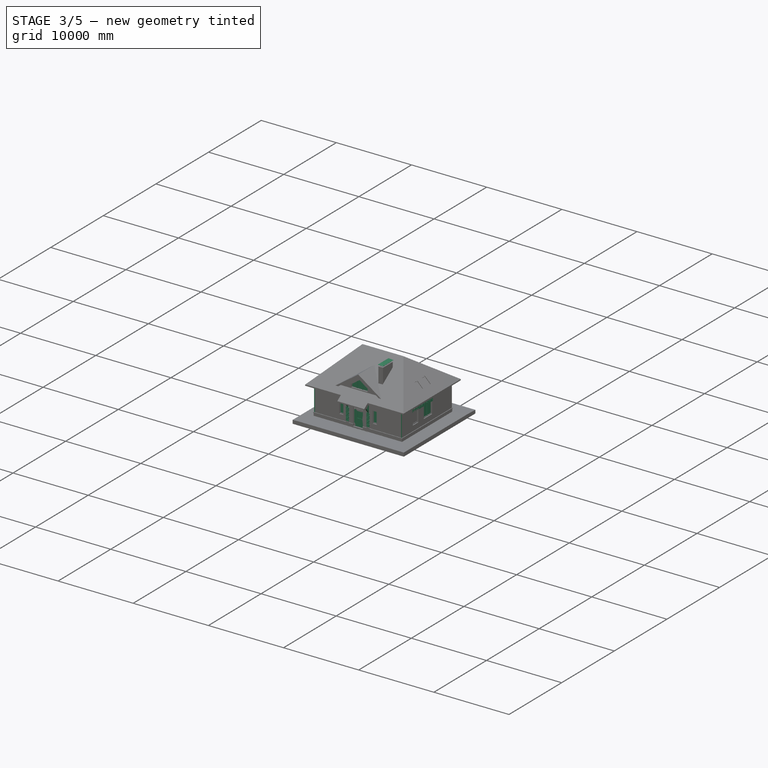
[diagram: stage 3 of 5 — iso view after this stage's code; geometry added in this stage tinted green]
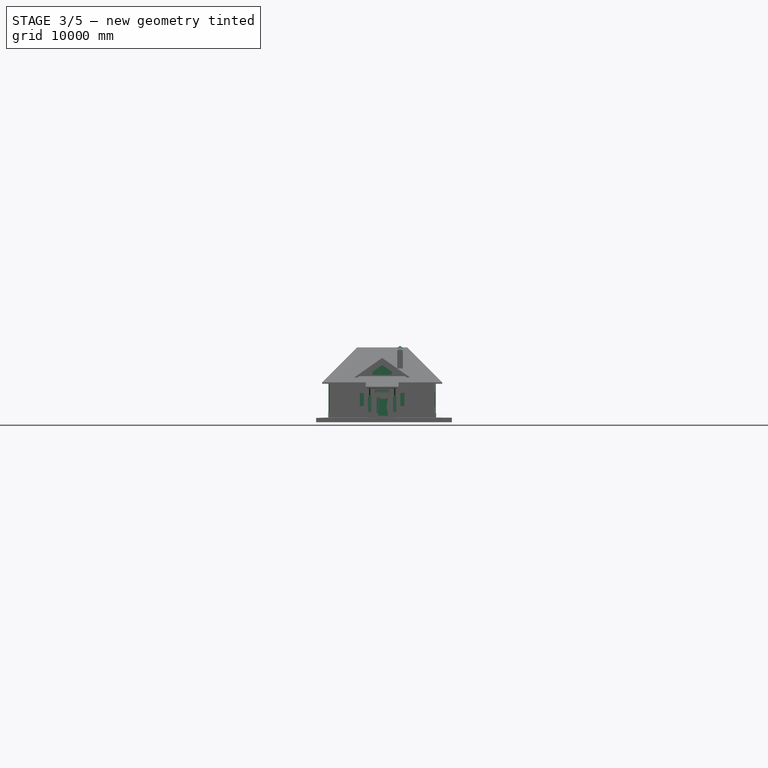
[diagram: stage 3 of 5 — front view after this stage's code; geometry added in this stage tinted green]
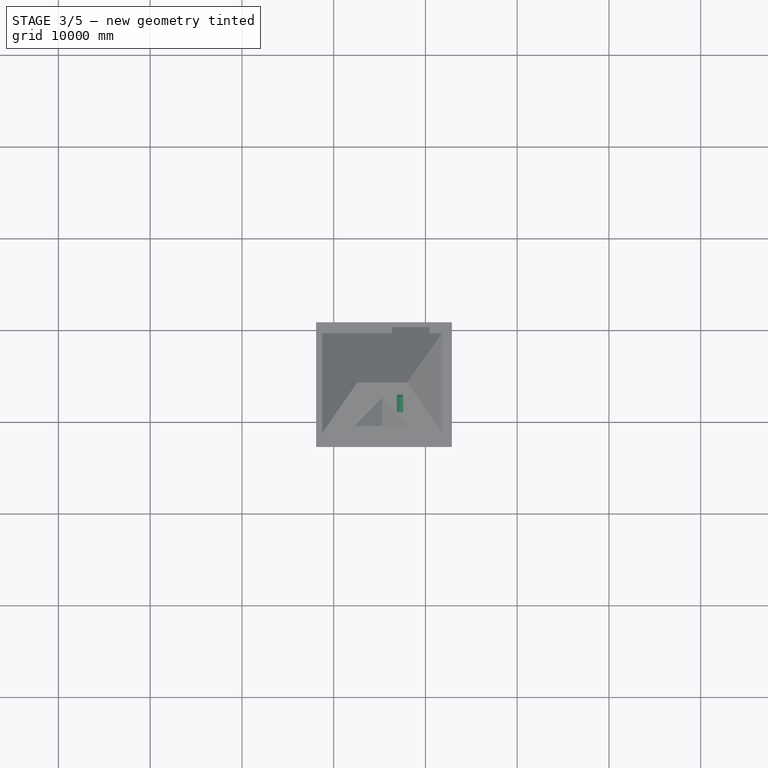
[diagram: stage 3 of 5 — top view after this stage's code; geometry added in this stage tinted green]
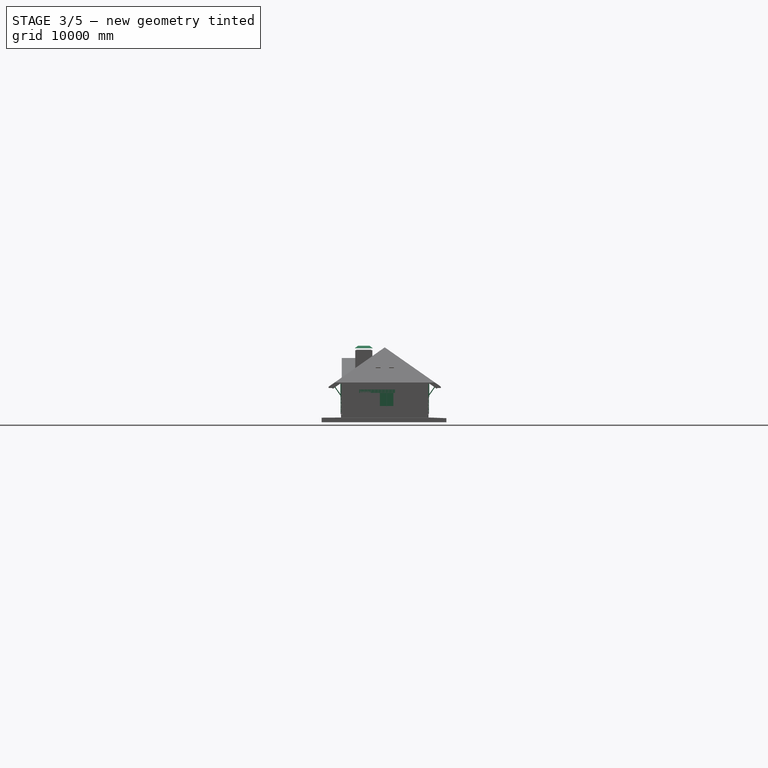
[diagram: stage 3 of 5 — right view after this stage's code; geometry added in this stage tinted green]
FEATURE [Part::Part2DObjectPython] Rectangle2795  label="Д90-002"  # Draft 2D object (typed FeaturePython)
  ChamferSize = 0
  Columns = 1
  FilletRadius = 0
  Height = 150
  Length = 920
  MakeFace = true
  Placement = pos=(3825,4765,0) rot=(0,0,1;1.5708rad)
  Rows = 1
FEATURE [Part::FeaturePython] Structure023  label="Проём-ниша-Д90-018"  # Arch/BIM 52 (typed FeaturePython)
  Base = -> Rectangle2795
  FaceMaker = 0
  Height = 1859
  HorizontalArea = 138000
  IfcData = complex_attributes={"OwnerHistory": {}, "IsNestedBy": {}, "IsDecomposedBy": {}, "IsDefinedBy": {}, "ObjectPlacement": {}, "Representation":... (+4 chars omitted)
  IfcType = 52
  Length = 0
  MoveBase = false
  MoveWithHost = false
  Nodes = (2) [(8900,5350,0),(8900,5350,2180)]
  NodesOffset = 0
  Normal = (0,0,0)
  PerimeterLength = 2140
  Placement = pos=(0,0,262) rot=(0,0,1;0rad)
  VerticalArea = 3978260
  Width = 100
FEATURE [Part::Part2DObjectPython] Rectangle2807  label="ПР-003"  # Draft 2D object (typed FeaturePython)
  ChamferSize = 0
  Columns = 1
  FilletRadius = 0
  Height = 290
  Length = 1440
  MakeFace = true
  Placement = pos=(6025,3225,0) rot=(0,0,1;3.14159rad)
  Rows = 1
FEATURE [Part::FeaturePython] Structure020  label="Проём-ПР002"  # Arch/BIM 52 (typed FeaturePython)
  Base = -> Rectangle2807
  FaceMaker = 0
  Height = 2552
  HorizontalArea = 417600
  IfcData = complex_attributes={"OwnerHistory": {}, "IsNestedBy": {}, "IsDecomposedBy": {}, "IsDefinedBy": {}, "ObjectPlacement": {}, "Representation":... (+4 chars omitted)
  IfcType = 52
  Length = 0
  MoveBase = false
  MoveWithHost = false
  Nodes = (2) [(650,-4000,0),(650,-4000,2250)]
  NodesOffset = 0
  Normal = (0,0,0)
  PerimeterLength = 3460
  Placement = pos=(0,0,-200) rot=(0,0,1;0rad)
  VerticalArea = 8829920
  Width = 100
FEATURE [Spreadsheet::Sheet] Spreadsheet
  cells = C1=N/N; D1=Помещение; E1=Площадь; C2=1); D2==<<Столовая>>.Label; E2==<<Столовая>>.Shape.Area; C3=2); D3==<<Кухня>>.Label; E3==<<Кухня>>.Shape.Area; C4=3); D4==<<Коридор>>.Label; E4==<<Коридор>>.Shape.Area; C5=4); D5==<<Санузел>>.Label; E5==<<Санузел>>.Shape.Area; C6=5); D6==<<Ванная>>.Label; E6==<<Ванная>>.Shape.Area; C7=6); D7==<<Прихожая (ТГ)>>.Label; E7==<<Прихожая (ТГ)>>.Shape.Area; C8=7); D8==<<Встроенный шкаф>>.Label; E8==<<Встроенный шкаф>>.Shape.Area; C9=8); D9==<<Спальня>>.Label; E9==<<Спальня>>.Shape.Area; C10=9); D10==<<Кабинет>>.Label; E10==<<Кабинет>>.Shape.Area; D11=Итого:; E11==sum(E2:E10); D12==<<Тёплый контур (Площадь этажа)>>.Label; E12==<<Тёплый контур (Площадь этажа)>>.Shape.Area; C14=N/N; D14=Помещение; E14=Площадь; C15=1); D15==<<Холл мансарды>>.Label; E15==<<Холл мансарды>>.Shape.Area; C16=2); D16==<<СУ мансарды>>.Label; E16==<<СУ мансарды>>.Shape.Area; C17=3); D17==<<Спальня #1>>.Label; E17==<<Спальня #1>>.Shape.Area; C18=4); D18==<<Детская #1>>.Label; E18==<<Детская #1>>.Shape.Area; C19=5); D19==<<Детская #2>>.Label; E19==<<Детская #2>>.Shape.Area; C20=6); D20==<<Кладовка>>.Label; E20==<<Кладовка>>.Shape.Area; D21=Итого:; E21==sum(E15:E19); D22=Общая:; E22==E11 + E21; D25=Площадь остекления фрамуг в ТГ фактическая (без учёта остекл.двери):; E25==<<фрамуга_верх>>.Shape.Area + <<фрамуга_юоковая>>.Shape.Area; D26=Площадь ТГ; E26==<<Прихожая (ТГ)>>.Shape.Area; D27=Высота потолка h; E27=2800; D28=Объём ТГ; E28==E26 * E27; D29=Требуемая площадь остекления на 1m^3:; E29=30000; D30=Необходимая площадь остекления из расчета 0.03м^2 на 1m^3:; E30==E28 / E29; D32=Площадь кровли без учёта кукушки; E32==<<Wire1112>>.Shape.Area + <<Wire1113>>.Shape.Area + <<Wire1114>>.Shape.Area + <<Wire1115>>.Shape.Area; B35=Объёмы материалов:; B36=Кирпич полнотелый 1нф (кладка); D36=Итого:; E36==sum(E37:E41); D37==<<Несущая стена 2.1нф 250мм внутренняя001>>.Label; E37==<<Несущая стена 2.1нф 250мм внутренняя001>>.Shape.Volume; D38==<<Несущая стена 2.1нф 250мм внутренняя002>>.Label; E38==<<Несущая стена 2.1нф 250мм внутренняя002>>.Shape.Volume; D39==<<Несущая стена 2.1нф 250мм внутренняя 003>>.Label; E39==<<Несущая стена 2.1нф 250мм внутренняя 003>>.Shape.Volume; D40==<<Кладка под стойки>>.Label; E40==<<Кладка под стойки>>.Shape.Volume; D41==<<Кладка в уровне армпояса 2.1нф>>.Label; E41==<<Кладка в уровне армпояса 2.1нф>>.Shape.Volume; B43=Блок поризованый поротерм 38Т или аналог (кладка); D43=Итого:; E43==sum(E44:E45); D44==<<Внешняя стена Поротерм 38Т 380мм>>.Label; E44==<<Внешняя стена Поротерм 38Т 380мм>>.Shape.Volume; D45==<<Аттиковая стена Поротерм 38Т 380мм>>.Label; E45==<<Аттиковая стена Поротерм 38Т 380мм>>.Shape.Volume; B48=Кирпич облицовочный 1нф; D48=Итого:; E48==sum(E49:E49); D49==<<Облицовка 1nf кирпич>>.Label; E49==<<Облицовка 1nf кирпич>>.Shape.Volume; B51=Отлив (вибропресс. бордюрный камень 1000х200х80мм); D51==<<Отлив (вибропресс. бордюрный камень 1000х200х80мм)>>.Label; E51==<<Отлив (вибропресс. бордюрный камень 1000х200х80мм)>>.Shape.Volume; B52=Облицовка цоколя (камень бетонный СКЦ2Л-24) ; D52==<<Отделка цоколя>>.Label; E52==<<Отделка цоколя>>.Shape.Volume; B54=Утеплитель XPS; D54=Итого:; E54==sum(E55:E61); D55==<<утепление торца ростверка XPS 50mm>>.Label; E55==<<утепление торца ростверка XPS 50mm>>.Shape.Volume; D56==<<Утепление цоколя XPS 50mm>>.Label; E56==<<Утепление цоколя XPS 50mm>>.Shape.Volume; D57==<<Утепление перемычек XPS 100+30mm>>.Label; E57==<<Утепление перемычек XPS 100+30mm>>.Shape.Volume; D58==<<Утепление пола 100+20мм XPS>>.Label; E58==<<Утепление пола 100+20мм XPS>>.Shape.Volume; D59==<<Утепление перекрытия XPS 100+20mm>>.Label; E59==<<Утепление пола 100+20мм XPS>>.Shape.Volume; D60==<<Утепление армпояса XPS 100mm>>.Label; E60==<<Утепление перекрытия XPS 100+20mm>>.Shape.Volume; D61==<<Утепление в уровне перекрытия XPS 100mm>>.Label; E61==<<Утепление в уровне перекрытия XPS 100mm>>.Shape.Volume; B63=Утеплитель PPS; D63=Итого:; E63==sum(E64:E65); D64==<<Деформационная подкладка и утепление PPS 50-100mm>>.Label; E64==<<Деформационная подкладка и утепление PPS 50-100mm>>.Shape.Volume; B66=Бетон (без учёта армирования):; D66=Итого:; E66==sum(E67:E74); D67==<<Плита ростверка 001>>.Label; E67==<<Плита ростверка 001>>.Shape.Volume; D68==<<Перемычки по ГОСТ 948-2016>>.Label; E68==<<Перемычки по ГОСТ 948-2016>>.Shape.Volume; D69==<<Внешние элементы>>.Label; E69==<<Внешние элементы>>.Shape.Volume; D70==<<Армпояс в уровне перекрытия 001>>.Label; E70==<<Армпояс в уровне перекрытия 001>>.Shape.Volume; D71==<<Армпояс под мауэрлат>>.Label; E71==<<Армпояс под мауэрлат>>.Shape.Volume; D72==<<Лестница забежная>>.Label; E72==<<Лестница забежная>>.Shape.Volume; D73==<<монолитный участок>>.Label; E73==<<монолитный участок>>.Shape.Volume; D74==<<монолитный участок001>>.Label; E74==<<монолитный участок001>>.Shape.Volume; B76=Перегородки (силикатный блок 80мм):; D76==<<Перегородки>>.Label; E76==<<Перегородки>>.Shape.Volume; B78=Стяжки:; D78=Итого:; E78==sum(E79:E80); D79==<<Стяжка мансарды 45мм>>.Label; E79==<<Стяжка мансарды 45мм>>.Shape.Volume; D80==<<Стяжка тёплого пола 60mm>>.Label; E80==<<Стяжка тёплого пола 60mm>>.Shape.Volume; B84=Дерево на стропильную систему  Сух. Ас.; D84=Итого:; E84==sum(E85:E87); D85==<<Стропилка (доска 50х200 сухая антисептированная)>>.Label; E85==<<Стропилка (доска 50х200 сухая антисептированная)>>.Shape.Volume; D86==<<Стойки и прогоны>>.Label; E86==<<Стойки и прогоны>>.Shape.Volume; D87==<<Элементы арх.декора>>.Label; E87==<<Элементы арх.декора>>.Shape.Volume; E89=Кол-во; F89=Цена; G89=Стоимость; B90=Забор и откатные ворота; D90=Длина забора вместе с воротами и калиткой; E90==<<Забор001>>.Length + <<Забор003>>.Length + <<Калитка 001>>.Length + <<Line1707>>.Length; D91=Количество секций по 2.5м общее; E91==E90 / 2500; D92=Кол-во евроштакетника 2м (29шт. на 2.5м забора) забор; E92==(49 - 5 - 1.5) / 2.5 * 29; F92=185; G92==E92 * F92; D93=Кол-во евроштакетника 1,8м (29шт. на 2.5м забора) - ворота и калитка; E93==(5 + 1.5) / 2.5 * 29; F93=185; G93==E93 * F93; D94=Колво столбов; E94==50 / 2.5 + 1
FEATURE [Part::Part2DObjectPython] ShapeString138  # Draft 2D object (typed FeaturePython)
  FontFile = <path>
  Placement = pos=(8506.65,5599.61,0) rot=(0,0,1;0rad)
  Size = 250
  String = 1
  Tracking = 0
FEATURE [Part::Part2DObjectPython] Circle088  # Draft 2D object (typed FeaturePython)
  Area = 0
  FirstAngle = 0
  LastAngle = 0
  MakeFace = false
  Placement = pos=(8600,5700,0) rot=(0,0,1;0rad)
  Radius = 200
FEATURE [Part::Part2DObjectPython] Circle089  label="Circle090"  # Draft 2D object (typed FeaturePython)
  Area = 0
  FirstAngle = 0
  LastAngle = 0
  MakeFace = false
  Placement = pos=(9000,1500,0) rot=(0,0,1;0rad)
  Radius = 200
FEATURE [Part::Part2DObjectPython] ShapeString139  # Draft 2D object (typed FeaturePython)
  FontFile = <path>
  Placement = pos=(8906.65,1399.61,0) rot=(0,0,1;0rad)
  Size = 250
  String = 2
  Tracking = 0
FEATURE [Part::Part2DObjectPython] Circle090  label="Circle091"  # Draft 2D object (typed FeaturePython)
  Area = 0
  FirstAngle = 0
  LastAngle = 0
  MakeFace = false
  Placement = pos=(4100,3800,0) rot=(0,0,1;0rad)
  Radius = 200
FEATURE [Part::Part2DObjectPython] ShapeString140  # Draft 2D object (typed FeaturePython)
  FontFile = <path>
  Placement = pos=(4006.65,3699.61,0) rot=(0,0,1;0rad)
  Size = 250
  String = 3
  Tracking = 0
FEATURE [Part::Part2DObjectPython] Circle091  label="Circle092"  # Draft 2D object (typed FeaturePython)
  Area = 0
  FirstAngle = 0
  LastAngle = 0
  MakeFace = false
  Placement = pos=(5237.06,2143.73,0) rot=(0,0,1;0rad)
  Radius = 200
FEATURE [Part::Part2DObjectPython] ShapeString141  # Draft 2D object (typed FeaturePython)
  FontFile = <path>
  Placement = pos=(5143.71,2043.34,0) rot=(0,0,1;0rad)
  Size = 250
  String = 6
  Tracking = 0
FEATURE [Part::Part2DObjectPython] Circle092  label="Circle093"  # Draft 2D object (typed FeaturePython)
  Area = 0
  FirstAngle = 0
  LastAngle = 0
  MakeFace = false
  Placement = pos=(6477.06,1583.95,0) rot=(0,0,1;0rad)
  Radius = 200
FEATURE [Part::Part2DObjectPython] ShapeString142  # Draft 2D object (typed FeaturePython)
  FontFile = <path>
  Placement = pos=(6383.71,1483.56,0) rot=(0,0,1;0rad)
  Size = 250
  String = 4
  Tracking = 0
FEATURE [Part::Part2DObjectPython] Circle093  label="Circle094"  # Draft 2D object (typed FeaturePython)
  Area = 0
  FirstAngle = 0
  LastAngle = 0
  MakeFace = false
  Placement = pos=(4731.92,5564.63,0) rot=(0,0,1;0rad)
  Radius = 200
FEATURE [Part::Part2DObjectPython] ShapeString143  # Draft 2D object (typed FeaturePython)
  FontFile = <path>
  Placement = pos=(4638.57,5464.24,0) rot=(0,0,1;0rad)
  Size = 250
  String = 5
  Tracking = 0
FEATURE [Part::Part2DObjectPython] Circle094  label="Circle095"  # Draft 2D object (typed FeaturePython)
  Area = 0
  FirstAngle = 0
  LastAngle = 0
  MakeFace = false
  Placement = pos=(2500,1900,0) rot=(0,0,1;0rad)
  Radius = 200
FEATURE [Part::Part2DObjectPython] ShapeString144  # Draft 2D object (typed FeaturePython)
  FontFile = <path>
  Placement = pos=(2406.65,1799.61,0) rot=(0,0,1;0rad)
  Size = 250
  String = 9
  Tracking = 0
FEATURE [Part::Part2DObjectPython] Circle095  label="Circle096"  # Draft 2D object (typed FeaturePython)
  Area = 0
  FirstAngle = 0
  LastAngle = 0
  MakeFace = false
  Placement = pos=(2653.52,6475,0) rot=(0,0,1;0rad)
  Radius = 200
FEATURE [Part::Part2DObjectPython] ShapeString145  # Draft 2D object (typed FeaturePython)
  FontFile = <path>
  Placement = pos=(2560.17,6374.61,0) rot=(0,0,1;0rad)
  Size = 250
  String = 8
  Tracking = 0
FEATURE [Part::Box] Box3209  label="ДШ001"
  AttacherType = Attacher::AttachEngine3D
  Height = 500
  Length = 500
  Placement = pos=(8045,605,450) rot=(0,0,-1;1.5708rad)
  Width = 580
FEATURE [Part::Box] Box3211  label="камин топка 700"
  AttacherType = Attacher::AttachEngine3D
  Height = 500
  Length = 750
  Placement = pos=(7285,2725,600) rot=(0,0,1;0rad)
  Width = 500
FEATURE [Part::Part2DObjectPython] Line1316  # Draft 2D object (typed FeaturePython)
  ChamferSize = 0
  Closed = true
  End = (2380,3165,0)
  FilletRadius = 0
  Length = 1175
  MakeFace = false
  Placement = pos=(1825,6465,0) rot=(0,0,-1;1.5708rad)
  Points = (2) [(3300,1730,0),(3300,555,0)]
  Start = (3555,3165,0)
  Subdivisions = 0
FEATURE [Part::Part2DObjectPython] Line1323  # Draft 2D object (typed FeaturePython)
  ChamferSize = 0
  Closed = true
  End = (7095,2705,0)
  FilletRadius = 0
  Length = 250
  MakeFace = false
  Placement = pos=(8675,3240,0) rot=(0,0,1;0rad)
  Points = (2) [(-1580,-285,0),(-1580,-535,0)]
  Start = (7095,2955,0)
  Subdivisions = 0
FEATURE [Part::Part2DObjectPython] Line1324  # Draft 2D object (typed FeaturePython)
  ChamferSize = 0
  Closed = true
  End = (7985,-45,0)
  FilletRadius = 0
  Length = 1220
  MakeFace = false
  Placement = pos=(9525,2015,0) rot=(0,0,1;0rad)
  Points = (2) [(-1540,-840,0),(-1540,-2060,0)]
  Start = (7985,1175,0)
  Subdivisions = 0
FEATURE [Part::Part2DObjectPython] Line1326  # Draft 2D object (typed FeaturePython)
  Area = 0
  ChamferSize = 0
  Closed = true
  End = (14200,6200,0)
  FilletRadius = 0
  Length = 1100
  MakeFace = true
  Placement = pos=(14200,7300,0) rot=(0,0,1;0rad)
  Points = (2) [(0,0,0),(0,-1100,0)]
  Start = (14200,7300,0)
  Subdivisions = 0
FEATURE [Part::Part2DObjectPython] Line1327  # Draft 2D object (typed FeaturePython)
  Area = 0
  ChamferSize = 0
  Closed = false
  End = (14200,7300,0)
  FilletRadius = 0
  Length = 282.843
  MakeFace = true
  Placement = pos=(14000,7500,0) rot=(0,0,1;0rad)
  Points = (2) [(0,0,0),(200,-200,0)]
  Start = (14000,7500,0)
  Subdivisions = 0
FEATURE [Part::Part2DObjectPython] Line1328  # Draft 2D object (typed FeaturePython)
  Area = 0
  ChamferSize = 0
  Closed = false
  End = (14400,7500,0)
  FilletRadius = 0
  Length = 282.843
  MakeFace = true
  Placement = pos=(14200,7300,0) rot=(0,0,1;0rad)
  Points = (2) [(0,0,0),(200,200,0)]
  Start = (14200,7300,0)
  Subdivisions = 0
FEATURE [Part::Part2DObjectPython] Line1329  # Draft 2D object (typed FeaturePython)
  Area = 0
  ChamferSize = 0
  Closed = false
  End = (14000,6600,0)
  FilletRadius = 0
  Length = 447.214
  MakeFace = true
  Placement = pos=(14200,6200,0) rot=(0,0,1;0rad)
  Points = (2) [(0,0,0),(-200,400,0)]
  Start = (14200,6200,0)
  Subdivisions = 0
FEATURE [Part::Part2DObjectPython] Line1330  # Draft 2D object (typed FeaturePython)
  Area = 0
  ChamferSize = 0
  Closed = false
  End = (14400,6600,0)
  FilletRadius = 0
  Length = 447.214
  MakeFace = true
  Placement = pos=(14200,6200,0) rot=(0,0,1;0rad)
  Points = (2) [(0,0,0),(200,400,0)]
  Start = (14200,6200,0)
  Subdivisions = 0
FEATURE [Part::Part2DObjectPython] ShapeString189  # Draft 2D object (typed FeaturePython)
  FontFile = <path>
  Placement = pos=(14073,5909.03,0) rot=(0,0,1;0rad)
  Size = 250
  String = С
  Tracking = 0
FEATURE [Part::Part2DObjectPython] ShapeString191  # Draft 2D object (typed FeaturePython)
  FontFile = <path>
  Placement = pos=(14006.7,7599.61,0) rot=(0,0,1;0rad)
  Size = 250
  String = Юг
  Tracking = 0
FEATURE [Part::Part2DObjectPython] Rectangle3074  label="Тёплый контур (Площадь этажа)"  # Draft 2D object (typed FeaturePython)
  Area = 89504600
  ChamferSize = 0
  Columns = 1
  FilletRadius = 0
  Height = 8420
  Length = 10630
  MakeFace = true
  Placement = pos=(-30,-25,0) rot=(0,0,1;0rad)
  Rows = 1
FEATURE [Part::Part2DObjectPython] Rectangle3095  label="ПР-001"  # Draft 2D object (typed FeaturePython)
  ChamferSize = 0
  Columns = 1
  FilletRadius = 0
  Height = 2655
  Length = 290
  MakeFace = true
  Placement = pos=(9840,2935,0) rot=(0,0,1;1.5708rad)
  Rows = 1
FEATURE [Part::FeaturePython] Structure317  label="Проём-ПР001"  # Arch/BIM 52 (typed FeaturePython)
  Base = -> Rectangle3095
  FaceMaker = 0
  Height = 2710
  HorizontalArea = 769950
  IfcData = complex_attributes={"OwnerHistory": {}, "IsNestedBy": {}, "IsDecomposedBy": {}, "IsDefinedBy": {}, "ObjectPlacement": {}, "Representation":... (+4 chars omitted)
  IfcType = 52
  Length = 0
  MoveBase = false
  MoveWithHost = false
  Nodes = (2) [(8200,3800,0),(8200,3800,2250)]
  NodesOffset = 0
  Normal = (0,0,0)
  PerimeterLength = 5890
  Placement = pos=(0,0,-200) rot=(0,0,1;0rad)
  VerticalArea = 1.59619e+07
  Width = 100
FEATURE [App::FeaturePython] Dimension002  # Draft dimension (typed FeaturePython)
  Diameter = false
  Dimline = (6500,-1110.73,0)
  Direction = (0,0,0)
  Distance = 11690
  End = (11130,-555,0)
  Normal = (0,0,1)
  Start = (-560,-555,0)
FEATURE [App::FeaturePython] Dimension012  # Draft dimension (typed FeaturePython)
  Diameter = false
  Dimline = (3400,1300,0)
  Direction = (0,0,0)
  Distance = 3250
  End = (3555,3205,0)
  Normal = (0,0,1)
  Start = (3555,-45,0)
FEATURE [App::FeaturePython] Dimension018  # Draft dimension (typed FeaturePython)
  Diameter = false
  Dimline = (6900,3500,0)
  Direction = (0,0,0)
  Distance = 290
  End = (6025,3225,0)
  Normal = (0,0,1)
  Start = (6025,2935,0)
FEATURE [Part::Part2DObjectPython] Line1357  # Draft 2D object (typed FeaturePython)
  ChamferSize = 0
  Closed = true
  End = (7105,4475,0)
  FilletRadius = 0
  Length = 4725
  MakeFace = false
  Placement = pos=(-600,5755,0) rot=(0,0,-1;0rad)
  Points = (2) [(2980,-1280,0),(7705,-1280,0)]
  Start = (2380,4475,0)
  Subdivisions = 0
FEATURE [Part::Part2DObjectPython] Line1358  # Draft 2D object (typed FeaturePython)
  ChamferSize = 0
  Closed = true
  End = (7055,1135,0)
  FilletRadius = 0
  Length = 890
  MakeFace = false
  Placement = pos=(8150,-235,0) rot=(0,0,-1;0rad)
  Points = (2) [(-1985,1370,0),(-1095,1370,0)]
  Start = (6165,1135,0)
  Subdivisions = 0
FEATURE [Part::Part2DObjectPython] Line1360  # Draft 2D object (typed FeaturePython)
  ChamferSize = 0
  Closed = true
  End = (4945,6535,0)
  FilletRadius = 0
  Length = 800
  MakeFace = false
  Placement = pos=(5015,7415,0) rot=(0,0,1;1.5708rad)
  Points = (2) [(-880,-730,0),(-880,70,0)]
  Start = (5745,6535,0)
  Subdivisions = 0
FEATURE [Part::Part2DObjectPython] Rectangle3159  # Draft 2D object (typed FeaturePython)
  Area = 0
  ChamferSize = 0
  Columns = 1
  FilletRadius = 0
  Height = 250
  Length = 920
  MakeFace = false
  Placement = pos=(6940,5803.61,0) rot=(0,0,1;0rad)
  Rows = 1
FEATURE [Part::Extrusion] Extrude088  label="ПНО 55-12-8"
  Base = -> Sketch231
  Dir = (0,3880,0)
  DirMode = 0
  FaceMakerClass = Part::FaceMakerBullseye
  LengthFwd = 5480
  LengthRev = 0
  Placement = pos=(10,3085,2800) rot=(0,0,1;0rad)
  Solid = true
  Symmetric = false
FEATURE [Part::Box] Box3218  label="шкаф 003"
  AttacherType = Attacher::AttachEngine3D
  Height = 2650
  Length = 2960
  Placement = pos=(4500,-25,0) rot=(0,0,1;1.5708rad)
  Width = 675
FEATURE [Part::Cylinder] Cylinder002  label="БКН 150л"
  Angle = 360
  AttacherType = Attacher::AttachEngine3D
  Height = 1100
  Placement = pos=(7658.76,798.117,0) rot=(0,0,1;0rad)
  Radius = 260
FEATURE [Part::Box] Box3220  label="Котёл 24кВт одноконтурн. закртытая камера"
  AttacherType = Attacher::AttachEngine3D
  Height = 700
  Length = 400
  Placement = pos=(7035,770.448,1300) rot=(0,0,1;0rad)
  Width = 300
FEATURE [Part::Cylinder] Cylinder003  label="бак расширительный"
  Angle = 360
  AttacherType = Attacher::AttachEngine3D
  Height = 400
  Placement = pos=(7744.85,887.042,2200) rot=(0,0,1;0rad)
  Radius = 175
FEATURE [Part::Box] Box3222  label="грёбенка и насосы"
  AttacherType = Attacher::AttachEngine3D
  Height = 900
  Length = 150
  Placement = pos=(7375,935,0) rot=(0,0,1;1.5708rad)
  Width = 1200
FEATURE [Part::Box] Box3223  label="Котёл электр. (резерв)"
  AttacherType = Attacher::AttachEngine3D
  Height = 700
  Length = 150
  Placement = pos=(6480,935,1300) rot=(0,0,1;1.5708rad)
  Width = 200
FEATURE [Part::Part2DObjectPython] Line1390  # Draft 2D object (typed FeaturePython)
  ChamferSize = 0
  Closed = true
  End = (-50,3825,0)
  FilletRadius = 0
  Length = 2430
  MakeFace = false
  Placement = pos=(7425,5335,0) rot=(0,0,-1;1.5708rad)
  Points = (2) [(1510,-5045,0),(1510,-7475,0)]
  Start = (2380,3825,0)
  Subdivisions = 0
FEATURE [Part::FeaturePython] Structure342  label="Структура006"  # Arch/BIM 52 (typed FeaturePython)
  FaceMaker = 0
  Height = 450
  HorizontalArea = 1.04e+06
  IfcData = attributes={"GlobalId": {"name": "GlobalId", "type": "IfcGloballyUniqueId", "is_enum": false, "enum_values": []}, "Description": {"... (+484 chars omitted),+1 more (map truncated)
  IfcType = 52
  Length = 0
  MoveBase = false
  MoveWithHost = false
  Nodes = (2) [(6409.93,5722.83,0),(6409.93,5722.83,450)]
  NodesOffset = 0
  Normal = (0,0,1)
  PerimeterLength = 4500
  Placement = pos=(0,0,150) rot=(0,0,1;0rad)
  VerticalArea = 2.025e+06
  Width = 100
FEATURE [Part::Box] Box3228  label="Ниша-дровник"
  AttacherType = Attacher::AttachEngine3D
  Height = 350
  Length = 700
  Placement = pos=(7285,2725,150) rot=(0,0,1;0rad)
  Width = 500
FEATURE [Part::Box] Box3229  label="шкаф 60 кухонный 013"
  AttacherType = Attacher::AttachEngine3D
  Height = 850
  Length = 600
  Placement = pos=(8035,-25,1600) rot=(0,0,1;0rad)
  Width = 630
FEATURE [Part::Box] Box3230  label="шкаф 60 кухонный 001"
  AttacherType = Attacher::AttachEngine3D
  Height = 1600
  Length = 600
  Placement = pos=(8035,-25,0) rot=(0,0,1;0rad)
  Width = 630
FEATURE [Part::Box] Box3231  label="МВ_001"
  AttacherType = Attacher::AttachEngine3D
  Height = 350
  Length = 500
  Placement = pos=(8045,605,1000) rot=(0,0,-1;1.5708rad)
  Width = 580
FEATURE [Part::Box] Box3232  label="МВ_002"
  AttacherType = Attacher::AttachEngine3D
  Height = 350
  Length = 500
  Placement = pos=(8625,105,1000) rot=(0,0,1;1.5708rad)
  Width = 580
FEATURE [Part::Box] Box3233  label="ДШ_002"
  AttacherType = Attacher::AttachEngine3D
  Height = 500
  Length = 500
  Placement = pos=(8625,105,450) rot=(0,0,1;1.5708rad)
  Width = 580
FEATURE [App::MaterialObjectPython] Material010  label="Steel-Generic"  # material (typed FeaturePython)
  Description = This is a blend Steel material card. The values are at the low end of the spectrum. If you need a more precise material definition use the more specialised steel cards.
  Material = AuthorAndLicense=Steel-Generic,CardName=Steel-Generic,Color=(0.3803921568627451, 0.3803921568627451, 0.3803921568627451, 1.0),Density=7900 kg/m^3,+13 more (map truncated)
  ProductURL = https://en.wikipedia.org/wiki/Steel
  Transparency = 0
FEATURE [Part::FeaturePython] Pipe008  label="Дымоход 120 коакс."  # Arch/BIM 98 (typed FeaturePython)
  Base = -> Line1479
  Diameter = 120
  GlobalId = 11JHR0lR55LRzzbgV05jpw
  HorizontalArea = 0
  IfcData = IfcUID=11JHR0lR55LRzzbgV05jpw,+2 more (map truncated)
  IfcType = 98
  Length = 400
  Material = -> Material010
  MoveBase = false
  MoveWithHost = false
  OffsetEnd = 0
  OffsetStart = 0
  PerimeterLength = 0
  Placement = pos=(7917.15,-9349.55,0) rot=(0,0,1;1.5708rad)
  PredefinedType = 0
  VerticalArea = 0
  WallThickness = 0
FEATURE [Part::FeaturePython] Window052  label="Д-90-001"  # Arch/BIM 41 (typed FeaturePython)
  Area = 2115000
  Base = -> Sketch309
  Frame = 50
  GlobalId = 1cijn4gZv3rAlY7HDrqfh6
  Height = 2350
  HoleDepth = 0
  HoleWire = 0
  HorizontalArea = 0
  IfcData = IfcUID=1cijn4gZv3rAlY7HDrqfh6; attributes={"OverallHeight": {"value": 2350.0}, "OverallWidth": {"value": 900.0}, "GlobalId": {"value": "1cijn4gZv3rAlY7HDrqfh6"}}
  IfcType = 41
  LouvreSpacing = 0
  LouvreWidth = 0
  Material = -> Material011
  MoveBase = false
  MoveWithHost = true
  Normal = (-1,0,0)
  Opening = 0
  OperationType = 0
  OverallHeight = 2350
  OverallWidth = 900
  PerimeterLength = 0
  Placement = pos=(50,1.819e-12,0) rot=(0,0,1;0rad)
  PredefinedType = 0
  Preset = 6
  SymbolElevation = false
  SymbolPlan = false
  VerticalArea = 0
  Width = 900
  WindowParts = OuterFrame | Frame | Wire0,Wire1 | 0.0+V | 0.00+V | Door | Solid panel | Wire1 | 50.0 | 0.0+V
  expr: OverallWidth = .Width.Value
  expr: OverallHeight = .Height.Value
FEATURE [Part::FeaturePython] Structure384  label="Вентстояк вычитаемы объём 007"  # Arch/BIM 52 (typed FeaturePython)
  FaceMaker = 0
  Height = 4000
  HorizontalArea = 1.1584e+06
  IfcData = complex_attributes={"OwnerHistory": {}, "IsNestedBy": {}, "IsDecomposedBy": {}, "IsDefinedBy": {}, "ObjectPlacement": {}, "Representation":... (+4 chars omitted)
  IfcType = 52
  Length = 0
  MoveBase = false
  MoveWithHost = false
  Nodes = (2) [(7235,1875,0),(7235,1875,4000)]
  NodesOffset = 0
  Normal = (0,0,0)
  PerimeterLength = 4900
  Placement = pos=(0,0,2800) rot=(0,0,1;0rad)
  VerticalArea = 19600000
  Width = 100
FEATURE [Part::Part2DObjectPython] Line1532  label="Перемычки_042"  # Draft 2D object (typed FeaturePython)
  Area = 0
  ChamferSize = 0
  Closed = true
  End = (10262.5,3080,0)
  FilletRadius = 0
  Length = 3500
  MakeFace = true
  Placement = pos=(6111.5,3080,0) rot=(0,0,1;0rad)
  Points = (2) [(651,0,0),(4151,0,0)]
  Start = (6762.5,3080,0)
  Subdivisions = 0
FEATURE [Part::Part2DObjectPython] Line1533  label="Перемычки_043"  # Draft 2D object (typed FeaturePython)
  Area = 0
  ChamferSize = 0
  Closed = true
  End = (6340,3080,0)
  FilletRadius = 0
  Length = 2070
  MakeFace = true
  Placement = pos=(3619,3080,0) rot=(0,0,1;0rad)
  Points = (2) [(651,0,0),(2721,0,0)]
  Start = (4270,3080,0)
  Subdivisions = 0
FEATURE [Part::Part2DObjectPython] Line1540  label="Перемычки_048"  # Draft 2D object (typed FeaturePython)
  Area = 0
  ChamferSize = 0
  Closed = true
  End = (3680,8470,0)
  FilletRadius = 0
  Length = 1290
  MakeFace = true
  Placement = pos=(3680,7097,0) rot=(0,0,1;1.5708rad)
  Points = (2) [(83,1.36424e-12,0),(1373,0,0)]
  Start = (3680,7180,0)
  Subdivisions = 0
FEATURE [Part::FeaturePython] Wall277  label="Перемычка 6ПБ 35-37 001"  # Arch/BIM 166 (typed FeaturePython)
  Align = 2
  Area = 1015000
  Base = -> Line1532
  BlockHeight = 0
  BlockLength = 0
  CountBroken = 0
  CountEntire = 0
  Face = 0
  GlobalId = 0sYYehG3D7NAgPHO$7$lOP
  Height = 290
  HorizontalArea = 875000
  IfcData = IfcUID=0sYYehG3D7NAgPHO$7$lOP,+2 more (map truncated)
  IfcType = 166
  Joint = 0
  Length = 3500
  MakeBlocks = false
  Material = -> Material001
  MoveBase = false
  MoveWithHost = false
  Normal = (0,0,-1)
  OffsetFirst = 0
  OffsetSecond = 0
  PerimeterLength = 7500
  Placement = pos=(0,-1.819e-12,2800) rot=(0,0,1;0rad)
  PredefinedType = 0
  VerticalArea = 2.175e+06
  Width = 250
FEATURE [Part::FeaturePython] Wall278  label="Перемычка 5ПБ 21-27 002"  # Arch/BIM 166 (typed FeaturePython)
  Align = 2
  Area = 455400
  Base = -> Line1533
  BlockHeight = 0
  BlockLength = 0
  CountBroken = 0
  CountEntire = 0
  Face = 0
  GlobalId = 0U$bER0DTA2wM7MkZ_5muC
  Height = 220
  HorizontalArea = 517500
  IfcData = IfcUID=0U$bER0DTA2wM7MkZ_5muC,+2 more (map truncated)
  IfcType = 166
  Joint = 0
  Length = 2070
  MakeBlocks = false
  Material = -> Material001
  MoveBase = false
  MoveWithHost = false
  Normal = (0,0,-1)
  OffsetFirst = 0
  OffsetSecond = 0
  PerimeterLength = 4640
  Placement = pos=(0,-1.819e-12,2572) rot=(0,0,1;0rad)
  PredefinedType = 0
  VerticalArea = 1020800
  Width = 250
FEATURE [Part::FeaturePython] Wall281  label="Перем.2шт. 3ПБ 13-37 001"  # Arch/BIM 166 (typed FeaturePython)
  Align = 2
  Area = 283800
  Base = -> Line1540
  BlockHeight = 0
  BlockLength = 0
  CountBroken = 0
  CountEntire = 0
  Face = 0
  GlobalId = 0GYkMrihr4SvLL6ceY8F$x
  Height = 220
  HorizontalArea = 322500
  IfcData = IfcUID=0GYkMrihr4SvLL6ceY8F$x,+2 more (map truncated)
  IfcType = 166
  Joint = 0
  Length = 1290
  MakeBlocks = false
  Material = -> Material001
  MoveBase = false
  MoveWithHost = false
  Normal = (0,0,0)
  OffsetFirst = 0
  OffsetSecond = 0
  PerimeterLength = 3080
  Placement = pos=(-4.55e-13,-1.819e-12,2352) rot=(0,0,1;0rad)
  PredefinedType = 0
  VerticalArea = 677600
  Width = 250
FEATURE [App::GeometryPython] BuildingPart032  label="Баня (перевозная)"  # Arch/BIM 10 (typed FeaturePython)
  Area = 37170000
  BuildingType = 0
  CompositionType = 0
  ElevationOfRefHeight = 0
  ElevationOfTerrain = 0
  Group = -> [Wall094,Roof010,Wall096]
  Height = 0
  HeightPropagate = true
  IfcType = 10
  LevelOffset = 0
  LongName = Баня (перевозная)
FEATURE [Part::Part2DObjectPython] Rectangle3343  label="Контур Строения001"  # Draft 2D object (typed FeaturePython)
  Area = 0
  ChamferSize = 0
  Columns = 1
  FilletRadius = 0
  Height = 9480
  Length = 11690
  MakeFace = false
  Placement = pos=(-560,-555,0) rot=(0,0,1;0rad)
  Rows = 1
FEATURE [App::FeaturePython] Text  label="1fl House"  # WARN: FeaturePython — macro-defined, semantics opaque (R4)
  Placement = pos=(60,-286,0) rot=(0,0,1;0rad)
FEATURE [Part::Feature] Human
  Placement = pos=(2300,-1000,-200) rot=(0,0,1;0rad)
  shape: bbox 490.6 x 1.43e-06 x 1712 mm, 1 faces, 0 solids (baked)
FEATURE [Part::FeaturePython] Axis001006  label="Горизонтальные оси"  # WARN: FeaturePython — macro-defined, semantics opaque (R4)
  Angles = [0,0,0]
  Distances = [320,3315,5525]
  Length = 13677.3
  Placement = pos=(12023.1,-555,0) rot=(0,0,1;1.5708rad)
  expr: .Placement.Base.y = Rectangle3343.Placement.Base.y
  expr: .Placement.Base.x = Rectangle3343.Placement.Base.x + Length * 0.92
  expr: Length = Rectangle3343.Length * 1.17
FEATURE [Part::FeaturePython] Axis001007  label="Вертикальные Оси"  # WARN: FeaturePython — macro-defined, semantics opaque (R4)
  Angles = [0,0,0,0,0]
  Distances = [320,3920,3300,250,3580]
  Length = 12892.8
  Placement = pos=(-560,-2295.53,0) rot=(0,0,1;0rad)
  expr: .Placement.Base.x = Rectangle3343.Placement.Base.x
  expr: .Placement.Base.y = Rectangle3343.Placement.Base.y - Length * 0.135
  expr: Length = Rectangle3343.Height * 1.36
FEATURE [App::FeaturePython] AxisSystem002  label="Оси 1й этаж"  # WARN: FeaturePython — macro-defined, semantics opaque (R4)
  Axes = -> [Axis001006,Axis001007]
FEATURE [Part::Part2DObjectPython] Line1583  label="облицовка_стены_032"  # Draft 2D object (typed FeaturePython)
  ChamferSize = 0
  Closed = true
  End = (11000,8925,0)
  FilletRadius = 0
  Length = 11560
  MakeFace = false
  Placement = pos=(-480,9475,0) rot=(0,0,1;0rad)
  Points = (2) [(-80,-550,0),(11480,-550,0)]
  Start = (-560,8925,0)
  Subdivisions = 0
FEATURE [Part::Part2DObjectPython] Line1584  label="облицовка_стены_033"  # Draft 2D object (typed FeaturePython)
  ChamferSize = 0
  Closed = true
  End = (-430,-555,0)
  FilletRadius = 0
  Length = 11430
  MakeFace = false
  Placement = pos=(12780,-555,0) rot=(0,0,1;0rad)
  Points = (2) [(-1780,2.84217e-12,0),(-13210,2.84217e-12,0)]
  Start = (11000,-555,0)
  Subdivisions = 0
FEATURE [Part::Part2DObjectPython] Line1585  label="облицовка_стены_034"  # Draft 2D object (typed FeaturePython)
  ChamferSize = 0
  Closed = true
  End = (-560,-555,0)
  FilletRadius = 0
  Length = 9350
  MakeFace = false
  Placement = pos=(-545,-765,0) rot=(0,0,1;0rad)
  Points = (2) [(-15,9560,0),(-15,210,0)]
  Start = (-560,8795,0)
  Subdivisions = 0
FEATURE [Part::Part2DObjectPython] Line1586  label="облицовка_стены_035"  # Draft 2D object (typed FeaturePython)
  ChamferSize = 0
  Closed = true
  End = (11130,8925,0)
  FilletRadius = 0
  Length = 9480
  MakeFace = false
  Placement = pos=(12865,4225,0) rot=(0,0,1;0rad)
  Points = (2) [(-1735,-4780,0),(-1735,4700,0)]
  Start = (11130,-555,0)
  Subdivisions = 0
FEATURE [Part::Part2DObjectPython] Line1587  label="контрфорс_линия_005"  # Draft 2D object (typed FeaturePython)
  ChamferSize = 0
  Closed = true
  End = (3730,-635,0)
  FilletRadius = 0
  Length = 380
  MakeFace = false
  Placement = pos=(3940,-635,0) rot=(0,0,1;0rad)
  Points = (2) [(170,1.02318e-12,0),(-210,9.09495e-13,0)]
  Start = (4110,-635,0)
  Subdivisions = 0
FEATURE [Part::FeaturePython] Wall306  label="Контрфорс 005"  # Arch/BIM 166 (typed FeaturePython)
  Align = 0
  Area = 702240
  Base = -> Line1587
  BlockHeight = 67
  BlockLength = 250
  CountBroken = 24
  CountEntire = 24
  Face = 0
  GlobalId = 342k6QohT2QOnSo3Rt4Yr5
  Height = 1848
  HorizontalArea = 0
  IfcData = IfcUID=342k6QohT2QOnSo3Rt4Yr5; attributes={"GlobalId": {"value": "342k6QohT2QOnSo3Rt4Yr5"}}
  IfcType = 166
  Joint = 10
  Length = 380
  MakeBlocks = true
  Material = -> Material003
  MoveBase = false
  MoveWithHost = false
  Normal = (0,0,0)
  OffsetFirst = 120
  OffsetSecond = 250
  PerimeterLength = 0
  Placement = pos=(0,0,262) rot=(0,0,1;0rad)
  PredefinedType = 0
  VerticalArea = 0
  Width = 120
FEATURE [Part::Part2DObjectPython] Line1588  label="контрфорс_линия_006"  # Draft 2D object (typed FeaturePython)
  ChamferSize = 0
  Closed = true
  End = (6460,-635,0)
  FilletRadius = 0
  Length = 380
  MakeFace = false
  Placement = pos=(6670,-635,0) rot=(0,0,1;0rad)
  Points = (2) [(170,1.02318e-12,0),(-210,9.09495e-13,0)]
  Start = (6840,-635,0)
  Subdivisions = 0
FEATURE [Part::FeaturePython] Wall307  label="Контрфорс 006"  # Arch/BIM 166 (typed FeaturePython)
  Align = 0
  Area = 702240
  Base = -> Line1588
  BlockHeight = 67
  BlockLength = 250
  CountBroken = 24
  CountEntire = 24
  Face = 0
  GlobalId = 2QQuq56G56SBKvMoDbUykg
  Height = 1848
  HorizontalArea = 0
  IfcData = IfcUID=2QQuq56G56SBKvMoDbUykg; attributes={"GlobalId": {"value": "2QQuq56G56SBKvMoDbUykg"}}
  IfcType = 166
  Joint = 10
  Length = 380
  MakeBlocks = true
  Material = -> Material003
  MoveBase = false
  MoveWithHost = false
  Normal = (0,0,0)
  OffsetFirst = 250
  OffsetSecond = 120
  PerimeterLength = 0
  Placement = pos=(0,0,262) rot=(0,0,1;0rad)
  PredefinedType = 0
  VerticalArea = 0
  Width = 120
FEATURE [Part::Part2DObjectPython] Line1589  label="контрфорс_линия_007"  # Draft 2D object (typed FeaturePython)
  ChamferSize = 0
  Closed = true
  End = (6590,9005,0)
  FilletRadius = 0
  Length = 380
  MakeFace = false
  Placement = pos=(6800,9005,0) rot=(0,0,1;0rad)
  Points = (2) [(170,0,0),(-210,0,0)]
  Start = (6970,9005,0)
  Subdivisions = 0
FEATURE [Part::FeaturePython] Wall308  label="Контрфорс 007"  # Arch/BIM 166 (typed FeaturePython)
  Align = 1
  Area = 702240
  Base = -> Line1589
  BlockHeight = 67
  BlockLength = 250
  CountBroken = 24
  CountEntire = 24
  Face = 0
  GlobalId = 3waotNP91F$e4vFRfeMs10
  Height = 1848
  HorizontalArea = 0
  IfcData = IfcUID=3waotNP91F$e4vFRfeMs10; attributes={"GlobalId": {"value": "3waotNP91F$e4vFRfeMs10"}}
  IfcType = 166
  Joint = 10
  Length = 380
  MakeBlocks = true
  Material = -> Material003
  MoveBase = false
  MoveWithHost = false
  Normal = (0,0,0)
  OffsetFirst = 120
  OffsetSecond = 250
  PerimeterLength = 0
  Placement = pos=(0,0,262) rot=(0,0,1;0rad)
  PredefinedType = 0
  VerticalArea = 0
  Width = 120
FEATURE [Part::Part2DObjectPython] Line1590  label="контрфорс_линия_008"  # Draft 2D object (typed FeaturePython)
  ChamferSize = 0
  Closed = true
  End = (9840,9005,0)
  FilletRadius = 0
  Length = 380
  MakeFace = false
  Placement = pos=(10050,9005,0) rot=(0,0,1;0rad)
  Points = (2) [(170,0,0),(-210,0,0)]
  Start = (10220,9005,0)
  Subdivisions = 0
FEATURE [Part::FeaturePython] Wall309  label="Контрфорс 008"  # Arch/BIM 166 (typed FeaturePython)
  Align = 1
  Area = 702240
  Base = -> Line1590
  BlockHeight = 67
  BlockLength = 250
  CountBroken = 24
  CountEntire = 24
  Face = 0
  GlobalId = 0Yg83kwN5EPeGAKGfacmqk
  Height = 1848
  HorizontalArea = 0
  IfcData = IfcUID=0Yg83kwN5EPeGAKGfacmqk; attributes={"GlobalId": {"value": "0Yg83kwN5EPeGAKGfacmqk"}}
  IfcType = 166
  Joint = 10
  Length = 380
  MakeBlocks = true
  Material = -> Material003
  MoveBase = false
  MoveWithHost = false
  Normal = (0,0,0)
  OffsetFirst = 250
  OffsetSecond = 120
  PerimeterLength = 0
  Placement = pos=(0,0,262) rot=(0,0,1;0rad)
  PredefinedType = 0
  VerticalArea = 0
  Width = 120
FEATURE [Part::Part2DObjectPython] Line1613  # Draft 2D object (typed FeaturePython)
  Area = 0
  ChamferSize = 0
  Closed = false
  End = (3735,5360,0)
  FilletRadius = 0
  Length = 250
  MakeFace = true
  Placement = pos=(3485,5360,0) rot=(0,0,1;0rad)
  Points = (2) [(0,0,0),(250,0,0)]
  Start = (3485,5360,0)
  Subdivisions = 0
FEATURE [Part::FeaturePython] Wall336  label="Кладка под стойки 001"  # Arch/BIM 166 (typed FeaturePython)
  Align = 2
  Area = 37500
  Base = -> Line1613
  BlockHeight = 65
  BlockLength = 250
  CountBroken = 1
  CountEntire = 0
  Face = 0
  Height = 150
  HorizontalArea = 62500
  IfcData = attributes={"GlobalId": {"name": "GlobalId", "type": "IfcGloballyUniqueId", "is_enum": false, "enum_values": []}, "Description": {"... (+533 chars omitted),+1 more (map truncated)
  IfcType = 166
  Joint = 12000
  Length = 250
  MakeBlocks = false
  Material = -> Material008
  MoveBase = false
  MoveWithHost = false
  Normal = (0,0,0)
  OffsetFirst = 120
  OffsetSecond = 200
  PerimeterLength = 1000
  Placement = pos=(0,0,2960) rot=(0,0,1;0rad)
  PredefinedType = 0
  VerticalArea = 150000
  Width = 250
FEATURE [Part::Part2DObjectPython] Line1614  # Draft 2D object (typed FeaturePython)
  Area = 0
  ChamferSize = 0
  Closed = true
  End = (6980,5675,0)
  FilletRadius = 0
  Length = 1160
  MakeFace = true
  Placement = pos=(6980,5155,0) rot=(0,0,1;1.5708rad)
  Points = (2) [(-640,0,0),(520,0,0)]
  Start = (6980,4515,0)
  Subdivisions = 0
FEATURE [Part::FeaturePython] Wall337  label="Кладка под стойки 002"  # Arch/BIM 166 (typed FeaturePython)
  Align = 2
  Area = 359600
  Base = -> Line1614
  BlockHeight = 65
  BlockLength = 250
  CountBroken = 1
  CountEntire = 0
  Face = 0
  Height = 310
  HorizontalArea = 290000
  IfcData = attributes={"GlobalId": {"name": "GlobalId", "type": "IfcGloballyUniqueId", "is_enum": false, "enum_values": []}, "Description": {"... (+533 chars omitted),+1 more (map truncated)
  IfcType = 166
  Joint = 12000
  Length = 1160
  MakeBlocks = false
  Material = -> Material008
  MoveBase = false
  MoveWithHost = false
  Normal = (0,0,0)
  OffsetFirst = 120
  OffsetSecond = 200
  PerimeterLength = 2820
  Placement = pos=(0,-1.819e-12,2800) rot=(0,0,1;0rad)
  PredefinedType = 0
  VerticalArea = 874200
  Width = 250
FEATURE [Part::Part2DObjectPython] Line1615  # Draft 2D object (typed FeaturePython)
  Area = 0
  ChamferSize = 0
  Closed = false
  End = (3735,3010,0)
  FilletRadius = 0
  Length = 250
  MakeFace = true
  Placement = pos=(3485,3010,0) rot=(0,0,1;0rad)
  Points = (2) [(0,0,0),(250,0,0)]
  Start = (3485,3010,0)
  Subdivisions = 0
FEATURE [Part::FeaturePython] Wall338  label="Кладка под стойки 003"  # Arch/BIM 166 (typed FeaturePython)
  Align = 2
  Area = 37500
  Base = -> Line1615
  BlockHeight = 65
  BlockLength = 250
  CountBroken = 1
  CountEntire = 0
  Face = 0
  Height = 150
  HorizontalArea = 62500
  IfcData = attributes={"GlobalId": {"name": "GlobalId", "type": "IfcGloballyUniqueId", "is_enum": false, "enum_values": []}, "Description": {"... (+533 chars omitted),+1 more (map truncated)
  IfcType = 166
  Joint = 12000
  Length = 250
  MakeBlocks = false
  Material = -> Material008
  MoveBase = false
  MoveWithHost = false
  Normal = (0,0,0)
  OffsetFirst = 120
  OffsetSecond = 200
  PerimeterLength = 1000
  Placement = pos=(0,0,2960) rot=(0,0,1;0rad)
  PredefinedType = 0
  VerticalArea = 150000
  Width = 250
FEATURE [Part::Part2DObjectPython] Line1616  # Draft 2D object (typed FeaturePython)
  Area = 0
  ChamferSize = 0
  Closed = false
  End = (7110,3010,0)
  FilletRadius = 0
  Length = 250
  MakeFace = true
  Placement = pos=(6860,3010,0) rot=(0,0,1;0rad)
  Points = (2) [(0,0,0),(250,0,0)]
  Start = (6860,3010,0)
  Subdivisions = 0
FEATURE [Part::FeaturePython] Wall339  label="Кладка под стойки 004"  # Arch/BIM 166 (typed FeaturePython)
  Align = 2
  Area = 37500
  Base = -> Line1616
  BlockHeight = 65
  BlockLength = 250
  CountBroken = 1
  CountEntire = 0
  Face = 0
  Height = 150
  HorizontalArea = 62500
  IfcData = attributes={"GlobalId": {"name": "GlobalId", "type": "IfcGloballyUniqueId", "is_enum": false, "enum_values": []}, "Description": {"... (+533 chars omitted),+1 more (map truncated)
  IfcType = 166
  Joint = 12000
  Length = 250
  MakeBlocks = false
  Material = -> Material008
  MoveBase = false
  MoveWithHost = false
  Normal = (0,0,0)
  OffsetFirst = 120
  OffsetSecond = 200
  PerimeterLength = 1000
  Placement = pos=(0,0,2960) rot=(0,0,1;0rad)
  PredefinedType = 0
  VerticalArea = 150000
  Width = 250
FEATURE [App::GeometryPython] BuildingPart033  label="хозблок (бытовка)"  # Arch/BIM 10 (typed FeaturePython)
  Area = 4.067e+07
  BuildingType = 0
  CompositionType = 0
  ElevationOfRefHeight = 0
  ElevationOfTerrain = 0
  Group = -> [Wall097,Structure458]
  Height = 0
  HeightPropagate = true
  IfcType = 10
  LevelOffset = 0
  LongName = хозблок (бытовка)
FEATURE [App::FeaturePython] Dimension072  # Draft dimension (typed FeaturePython)
  Diameter = false
  Dimline = (-1400,7200,0)
  Direction = (0,0,0)
  Distance = 738.353
  End = (-800,7685.58,0)
  Normal = (0,0,1)
  Start = (-800,6947.23,0)
FEATURE [App::FeaturePython] Dimension073  # Draft dimension (typed FeaturePython)
  Diameter = false
  Dimline = (-1400,7200,0)
  Direction = (0,0,0)
  Distance = 3217.23
  End = (-800,6947.23,0)
  Normal = (0,0,1)
  Start = (-800,3730,0)
FEATURE [App::FeaturePython] Dimension074  # Draft dimension (typed FeaturePython)
  Diameter = false
  Dimline = (-1400,7685.58,0)
  Direction = (0,0,0)
  Distance = 914.422
  End = (-800,8600,0)
  Normal = (0,0,1)
  Start = (-800,7685.58,0)
FEATURE [App::FeaturePython] Dimension075  # Draft dimension (typed FeaturePython)
  Diameter = false
  Dimline = (0,5100,2400)
  Direction = (0,0,0)
  Distance = 6448.76
  End = (0,6954.38,3045)
  Normal = (1,0,0)
  Start = (0,505.619,3045)
FEATURE [App::FeaturePython] Dimension076  # Draft dimension (typed FeaturePython)
  Diameter = false
  Dimline = (0,8900,4000)
  Direction = (0,0,0)
  Distance = 3013.88
  End = (0,9000,6796.88)
  Normal = (1,0,0)
  Start = (0,9000,3783)
FEATURE [App::FeaturePython] Dimension077  # Draft dimension (typed FeaturePython)
  Diameter = false
  Dimline = (0,5000,1500)
  Direction = (0,0,0)
  Distance = 9740
  End = (0,8600,3300)
  Normal = (1,0,0)
  Start = (0,-1140,3300)
FEATURE [App::FeaturePython] Dimension078  # Draft dimension (typed FeaturePython)
  Diameter = false
  Dimline = (0,5000,2000)
  Direction = (0,0,0)
  Distance = 7911.16
  End = (0,7685.58,2200)
  Normal = (1,0,0)
  Start = (0,-225.578,2200)
FEATURE [Part::Part2DObjectPython] Rectangle3389  # Draft 2D object (typed FeaturePython)
  Area = 2.45e+07
  ChamferSize = 0
  Columns = 1
  FilletRadius = 0
  Height = 7000
  Length = 3500
  MakeFace = true
  Placement = pos=(22359,-9231.91,0) rot=(0,0,1;1.34139rad)
  Rows = 1
FEATURE [Part::Part2DObjectPython] Line1687  # Draft 2D object (typed FeaturePython)
  Area = 0
  ChamferSize = 0
  Closed = false
  End = (-3580.3,-8530.19,0)
  FilletRadius = 0
  Length = 1000
  MakeFace = true
  Placement = pos=(-3755.12,-7545.59,0) rot=(0,0,1;1.52614rad)
  Points = (2) [(0,0,0),(-975.816,-218.595,0)]
  Start = (-3755.12,-7545.59,0)
  Subdivisions = 0
FEATURE [Part::Part2DObjectPython] Line1688  # Draft 2D object (typed FeaturePython)
  Area = 0
  ChamferSize = 0
  Closed = false
  End = (7519.32,-7540,0)
  FilletRadius = 0
  Length = 1000
  MakeFace = true
  Placement = pos=(7519.32,-6540,0) rot=(0,0,1;1.52614rad)
  Points = (2) [(0,0,0),(-999.003,-44.6455,0)]
  Start = (7519.32,-6540,0)
  Subdivisions = 0
FEATURE [Part::Part2DObjectPython] Line1689  # Draft 2D object (typed FeaturePython)
  Area = 0
  ChamferSize = 0
  Closed = false
  End = (9687.65,-6293.74,0)
  FilletRadius = 0
  Length = 12000
  MakeFace = true
  Placement = pos=(21282.4,-9385.88,0) rot=(0,0,1;1.52614rad)
  Points = (2) [(0,0,0),(2571.4,11721.3,0)]
  Start = (21282.4,-9385.88,0)
  Subdivisions = 0
FEATURE [Part::Part2DObjectPython] Line1690  # Draft 2D object (typed FeaturePython)
  Area = 0
  ChamferSize = 0
  Closed = false
  End = (1996.8,-7540,0)
  FilletRadius = 0
  Length = 1000
  MakeFace = true
  Placement = pos=(1996.8,-6540,0) rot=(0,0,1;1.52614rad)
  Points = (2) [(0,0,0),(-999.003,-44.6455,0)]
  Start = (1996.8,-6540,0)
  Subdivisions = 0
FEATURE [Part::Part2DObjectPython] Line1692  # Draft 2D object (typed FeaturePython)
  Area = 0
  ChamferSize = 0
  Closed = false
  End = (1996.8,-7540,0)
  FilletRadius = 0
  Length = 1000
  MakeFace = true
  Placement = pos=(1821.99,-6555.4,0) rot=(0,0,1;1.52614rad)
  Points = (2) [(0,0,0),(-975.816,-218.595,0)]
  Start = (1821.99,-6555.4,0)
  Subdivisions = 0
FEATURE [Part::Part2DObjectPython] Line1693  # Draft 2D object (typed FeaturePython)
  Area = 0
  ChamferSize = 0
  Closed = false
  End = (-9993.23,-8653.14,0)
  FilletRadius = 0
  Length = 12000
  MakeFace = true
  Placement = pos=(1821.99,-6555.4,0) rot=(0,0,1;1.52614rad)
  Points = (2) [(0,0,0),(-2623.14,11709.8,0)]
  Start = (1821.99,-6555.4,0)
  Subdivisions = 0
FEATURE [Part::Part2DObjectPython] Line1694  # Draft 2D object (typed FeaturePython)
  Area = 0
  ChamferSize = 0
  Closed = false
  End = (-9662.73,-8594.46,0)
  FilletRadius = 0
  Length = 12000
  MakeFace = true
  Placement = pos=(2152.5,-6496.72,0) rot=(0,0,1;1.52614rad)
  Points = (2) [(0,0,0),(-2623.14,11709.8,0)]
  Start = (2152.5,-6496.72,0)
  Subdivisions = 0
FEATURE [Part::Part2DObjectPython] Line1695  # Draft 2D object (typed FeaturePython)
  Area = 0
  ChamferSize = 0
  Closed = false
  End = (12611.1,-6540,0)
  FilletRadius = 0
  Length = 12000
  MakeFace = true
  Placement = pos=(611.062,-6540,0) rot=(0,0,1;1.52614rad)
  Points = (2) [(0,0,0),(535.746,-11988,0)]
  Start = (611.062,-6540,0)
  Subdivisions = 0
FEATURE [Part::Part2DObjectPython] Rectangle3390  # Draft 2D object (typed FeaturePython)
  Area = 144400
  ChamferSize = 0
  Columns = 1
  FilletRadius = 0
  Height = 380
  Length = 380
  MakeFace = true
  Placement = pos=(22825.7,-9411.26,0) rot=(0,0,1;1.52614rad)
  Rows = 1
FEATURE [Part::Part2DObjectPython] Rectangle3392  # Draft 2D object (typed FeaturePython)
  Area = 144400
  ChamferSize = 0
  Columns = 1
  FilletRadius = 0
  Height = 380
  Length = 380
  MakeFace = true
  Placement = pos=(24404.1,-9481.8,0) rot=(0,0,1;1.52614rad)
  Rows = 1
FEATURE [Part::Part2DObjectPython] Rectangle3393  # Draft 2D object (typed FeaturePython)
  Area = 144400
  ChamferSize = 0
  Columns = 1
  FilletRadius = 0
  Height = 380
  Length = 380
  MakeFace = true
  Placement = pos=(24644.3,-4107.17,0) rot=(0,0,1;1.52614rad)
  Rows = 1
FEATURE [Part::Part2DObjectPython] Rectangle3395  # Draft 2D object (typed FeaturePython)
  Area = 520000
  ChamferSize = 0
  Columns = 1
  FilletRadius = 0
  Height = 100
  Length = 5200
  MakeFace = true
  Placement = pos=(24037,-9185.12,0) rot=(0,0,1;1.52614rad)
  Rows = 1
FEATURE [Part::Part2DObjectPython] Circle135  label="Circle136"  # Draft 2D object (typed FeaturePython)
  Area = 1.05683e+06
  FirstAngle = 0
  LastAngle = 0
  MakeFace = true
  Placement = pos=(22885.9,-1376.75,0) rot=(0,0,1;1.52614rad)
  Radius = 580
FEATURE [Part::Part2DObjectPython] Line1697  # Draft 2D object (typed FeaturePython)
  Area = 0
  ChamferSize = 0
  Closed = false
  End = (24764.4,-1419.85,0)
  FilletRadius = 0
  Length = 1500
  MakeFace = false
  Placement = pos=(23265.9,-1352.88,0) rot=(0,0,1;1.52614rad)
  Points = (2) [(0,0,0),(-2.50111e-12,-1500,0)]
  Start = (23265.9,-1352.88,0)
  Subdivisions = 0
FEATURE [Part::Part2DObjectPython] Line1699  # Draft 2D object (typed FeaturePython)
  Area = 0
  ChamferSize = 0
  Closed = false
  End = (24840.3,278.455,0)
  FilletRadius = 0
  Length = 1300
  MakeFace = false
  Placement = pos=(23541.6,336.495,0) rot=(0,0,1;1.52614rad)
  Points = (2) [(0,0,0),(6.82121e-13,-1300,0)]
  Start = (23541.6,336.495,0)
  Subdivisions = 0
FEATURE [Part::Part2DObjectPython] Circle136  label="Circle137"  # Draft 2D object (typed FeaturePython)
  Area = 1.05683e+06
  FirstAngle = 0
  LastAngle = 0
  MakeFace = true
  Placement = pos=(22961.8,321.557,0) rot=(0,0,1;1.52614rad)
  Radius = 580
FEATURE [Part::Part2DObjectPython] Line1702  # Draft 2D object (typed FeaturePython)
  Area = 0
  ChamferSize = 0
  Closed = true
  End = (14388.6,662.218,0)
  FilletRadius = 0
  Length = 8000
  MakeFace = true
  Placement = pos=(22381.9,303.842,0) rot=(0,0,1;1.52614rad)
  Points = (2) [(38.1281,1.43103,0),(1.15288,8001.35,0)]
  Start = (22382.2,341.996,0)
  Subdivisions = 0
FEATURE [Part::Part2DObjectPython] Rectangle3400  # Draft 2D object (typed FeaturePython)
  Area = 2.45e+07
  ChamferSize = 0
  Columns = 1
  FilletRadius = 0
  Height = 7000
  Length = 3500
  MakeFace = true
  Placement = pos=(22181.1,-5596.2,0) rot=(0,0,1;1.34139rad)
  Rows = 1
FEATURE [Part::Part2DObjectPython] Line1704  # Draft 2D object (typed FeaturePython)
  Area = 0
  ChamferSize = 0
  Closed = false
  End = (14360.8,-420.719,0)
  FilletRadius = 0
  Length = 5100
  MakeFace = false
  Placement = pos=(19455.7,-648.412,0) rot=(0,0,1;0.025758rad)
  Points = (2) [(0,0,0),(-5087.36,358.837,0)]
  Start = (19455.7,-648.412,0)
  Subdivisions = 0
FEATURE [Part::Part2DObjectPython] Circle140  label="Circle141"  # Draft 2D object (typed FeaturePython)
  Area = 1.05683e+06
  FirstAngle = 0
  LastAngle = 0
  MakeFace = true
  Placement = pos=(21460.2,-1031.22,0) rot=(0,0,1;1.52614rad)
  Radius = 580
FEATURE [Part::Part2DObjectPython] Circle141  label="Circle142"  # Draft 2D object (typed FeaturePython)
  Area = 1.05683e+06
  FirstAngle = 0
  LastAngle = 0
  MakeFace = true
  Placement = pos=(20034.5,-685.694,0) rot=(0,0,1;1.52614rad)
  Radius = 580
FEATURE [Part::Part2DObjectPython] Line1705  # Draft 2D object (typed FeaturePython)
  Area = 0
  ChamferSize = 0
  Closed = true
  End = (22885.9,-1376.75,0)
  FilletRadius = 0
  Length = 2933.93
  MakeFace = false
  Placement = pos=(19875.5,-436.151,0) rot=(0,0,1;0.025758rad)
  Points = (2) [(152.568,-253.556,0),(2985.21,-1017.82,0)]
  Start = (20034.5,-685.694,0)
  Subdivisions = 0
FEATURE [Part::Part2DObjectPython] Circle142  label="Circle143"  # Draft 2D object (typed FeaturePython)
  Area = 1.05683e+06
  FirstAngle = 0
  LastAngle = 0
  MakeFace = true
  Placement = pos=(-7874.87,-6660.56,0) rot=(0,0,1;1.52614rad)
  Radius = 580
FEATURE [Part::Part2DObjectPython] Rectangle3401  # Draft 2D object (typed FeaturePython)
  Area = 9.2e+06
  ChamferSize = 0
  Columns = 1
  FilletRadius = 0
  Height = 2300
  Length = 4000
  MakeFace = true
  Placement = pos=(23704,1728.87,0) rot=(0,0,1;1.52614rad)
  Rows = 1
FEATURE [Part::Part2DObjectPython] Line1706  # Draft 2D object (typed FeaturePython)
  Area = 0
  ChamferSize = 0
  Closed = false
  End = (-8436.54,-6805.24,0)
  FilletRadius = 0
  Length = 1200
  MakeFace = true
  Placement = pos=(-9598.6,-7104.59,0) rot=(0,0,1;1.52614rad)
  Points = (2) [(0,0,0),(350.925,-1147.54,0)]
  Start = (-9598.6,-7104.59,0)
  Subdivisions = 0
FEATURE [Part::Part2DObjectPython] Line1710  # Draft 2D object (typed FeaturePython)
  Area = 0
  ChamferSize = 0
  Closed = false
  End = (14360.8,-7540,0)
  FilletRadius = 0
  Length = 6000
  MakeFace = true
  Placement = pos=(14360.8,-1540,0) rot=(0,0,-1;0.04466rad)
  Points = (2) [(0,0,0),(267.873,-5994.02,0)]
  Start = (14360.8,-1540,0)
  Subdivisions = 0
FEATURE [Part::Part2DObjectPython] Line1711  # Draft 2D object (typed FeaturePython)
  Area = 0
  ChamferSize = 0
  Closed = false
  End = (22185.4,-9292.56,0)
  FilletRadius = 0
  Length = 1800
  MakeFace = true
  Placement = pos=(23983.6,-9372.92,0) rot=(0,0,-1;0.04466rad)
  Points = (2) [(0,0,0),(-1800,-8.73115e-11,0)]
  Start = (23983.6,-9372.92,0)
  Subdivisions = 0
FEATURE [Part::Part2DObjectPython] Line1712  # Draft 2D object (typed FeaturePython)
  Area = 0
  ChamferSize = 0
  Closed = false
  End = (10611.1,-6540,0)
  FilletRadius = 0
  Length = 12157.5
  MakeFace = true
  Placement = pos=(22450.1,-9304.39,0) rot=(0,0,-1;0.04466rad)
  Points = (2) [(0,0,0),(-11950.7,2233.07,0)]
  Start = (22450.1,-9304.39,0)
  Subdivisions = 0
FEATURE [Part::Part2DObjectPython] Line1713  # Draft 2D object (typed FeaturePython)
  Area = 0
  ChamferSize = 0
  Closed = false
  End = (24571.4,-3723.53,0)
  FilletRadius = 0
  Length = 90
  MakeFace = true
  Placement = pos=(24661.3,-3727.55,0) rot=(0,0,-1;0.04466rad)
  Points = (2) [(0,0,0),(-90,1.36424e-12,0)]
  Start = (24661.3,-3727.55,0)
  Subdivisions = 0
FEATURE [Part::Part2DObjectPython] Rectangle3403  label="Контур Строения002"  # Draft 2D object (typed FeaturePython)
  Area = 0
  ChamferSize = 0
  Columns = 1
  FilletRadius = 0
  Height = 8540
  Length = 13640
  MakeFace = false
  Placement = pos=(-560,-540,0) rot=(0,0,1;0rad)
  Rows = 1
FEATURE [Part::Part2DObjectPython] Line1714  # Draft 2D object (typed FeaturePython)
  Area = 0
  ChamferSize = 0
  Closed = false
  End = (-34430.2,9739.91,0)
  FilletRadius = 0
  Length = 7432.67
  MakeFace = true
  Placement = pos=(-41420.8,7214.83,0) rot=(0,0,-1;0.04466rad)
  Points = (2) [(0,0,0),(6870.9,2834.66,0)]
  Start = (-41420.8,7214.83,0)
  Subdivisions = 0
FEATURE [Part::Part2DObjectPython] Line1715  # Draft 2D object (typed FeaturePython)
  Area = 0
  ChamferSize = 0
  Closed = false
  End = (-41420.8,7214.83,0)
  FilletRadius = 0
  Length = 5559.77
  MakeFace = true
  Placement = pos=(-39131,2148.46,0) rot=(0,0,-1;0.04466rad)
  Points = (2) [(0,0,0),(-2513.65,4959.09,0)]
  Start = (-39131,2148.46,0)
  Subdivisions = 0
FEATURE [Part::Part2DObjectPython] Line1716  # Draft 2D object (typed FeaturePython)
  Area = 0
  ChamferSize = 0
  Closed = false
  End = (39960.8,38650.8,0)
  FilletRadius = 0
  Length = 6490.01
  MakeFace = true
  Placement = pos=(37704.2,32565.7,0) rot=(0,0,-1;0.04466rad)
  Points = (2) [(0,0,0),(1982.64,6179.75,0)]
  Start = (37704.2,32565.7,0)
  Subdivisions = 0
FEATURE [Part::Part2DObjectPython] Line1717  # Draft 2D object (typed FeaturePython)
  Area = 0
  ChamferSize = 0
  Closed = false
  End = (39960.8,38650.8,0)
  FilletRadius = 0
  Length = 8107.57
  MakeFace = true
  Placement = pos=(32209.4,41027.5,0) rot=(0,0,-1;0.04466rad)
  Points = (2) [(0,0,0),(7849.75,-2028.32,0)]
  Start = (32209.4,41027.5,0)
  Subdivisions = 0
FEATURE [Part::Part2DObjectPython] Line1718  # Draft 2D object (typed FeaturePython)
  Area = 0
  ChamferSize = 0
  Closed = false
  End = (6260,-6540,0)
  FilletRadius = 0
  Length = 6000
  MakeFace = true
  Placement = pos=(6260,-540,0) rot=(0,0,1;1.52614rad)
  Points = (2) [(0,0,0),(-5994.02,-267.873,0)]
  Start = (6260,-540,0)
  Subdivisions = 0
FEATURE [Part::Part2DObjectPython] Line1719  # Draft 2D object (typed FeaturePython)
  Area = 0
  ChamferSize = 0
  Closed = false
  End = (6198,-7540,0)
  FilletRadius = 0
  Length = 5610
  MakeFace = true
  Placement = pos=(6198,-1930,0) rot=(0,0,1;1.52614rad)
  Points = (2) [(0,0,0),(-5604.41,-250.461,0)]
  Start = (6198,-1930,0)
  Subdivisions = 0
FEATURE [Sketcher::SketchObject] Sketch369
  FullyConstrained = true
  Placement = pos=(2535,3115,0) rot=(1,0,0;1.5708rad)
  sketch-geometry (8):
    g0: LineSegment StartX=0 StartY=0 StartZ=0 EndX=900 EndY=0 EndZ=0
    g1: LineSegment StartX=900 StartY=0 StartZ=0 EndX=900 EndY=2350 EndZ=0
    g2: LineSegment StartX=900 StartY=2350 StartZ=0 EndX=0 EndY=2350 EndZ=0
    g3: LineSegment StartX=0 StartY=2350 StartZ=0 EndX=0 EndY=0 EndZ=0
    g4: LineSegment StartX=50 StartY=0 StartZ=0 EndX=850 EndY=0 EndZ=0
    g5: LineSegment StartX=850 StartY=0 StartZ=0 EndX=850 EndY=2300 EndZ=0
    g6: LineSegment StartX=850 StartY=2300 StartZ=0 EndX=50 EndY=2300 EndZ=0
    g7: LineSegment StartX=50 StartY=2300 StartZ=0 EndX=50 EndY=0 EndZ=0
  constraints (23):
    c: Coincident(g0,g1)
    c: Coincident(g1,g2)
    c: Coincident(g2,g3)
    c: Coincident(g3,g0)
    c: Horizontal(g0)
    c: Horizontal(g2)
    c: Vertical(g1)
    c: Vertical(g3)
    c: Coincident(g4,g5)
    c: Coincident(g5,g6)
    c: Coincident(g6,g7)
    c: Coincident(g7,g4)
    c: Horizontal(g4)
    c: Horizontal(g6)
    c: Vertical(g5)
    c: Vertical(g7)
    c: DistanceY(g1) = 2350  'Height'
    c: DistanceX(g0) = 900  'Width'
    c: DistanceY(g6,g2) = 50  'Frame1'
    c: DistanceX(g2,g6) = 50  'Frame2'
    c: DistanceX(g4,g0) = 50  'Frame3'
    c: DistanceY(g0,g4) = 0
    c: Coincident(g0,g-1)
FEATURE [Part::FeaturePython] Window068  label="Д-90-006"  # Arch/BIM 41 (typed FeaturePython)
  Area = 2115000
  Base = -> Sketch369
  Frame = 50
  GlobalId = 00iW5F1Zz0_RepVZ61wedb
  Height = 2350
  HoleDepth = 0
  HoleWire = 0
  HorizontalArea = 0
  IfcData = IfcUID=00iW5F1Zz0_RepVZ61wedb; attributes={"OverallHeight": {"value": 2350.0}, "OverallWidth": {"value": 900.0}, "GlobalId": {"value": "00iW5F1Zz0_RepVZ61wedb"}}
  IfcType = 41
  LouvreSpacing = 0
  LouvreWidth = 0
  Material = -> Material011
  MoveBase = false
  MoveWithHost = true
  Normal = (0,1,0)
  Opening = 0
  OperationType = 0
  OverallHeight = 2350
  OverallWidth = 900
  PerimeterLength = 0
  Placement = pos=(0,30,0) rot=(0,0,1;0rad)
  PredefinedType = 0
  Preset = 6
  SymbolElevation = false
  SymbolPlan = false
  VerticalArea = 0
  Width = 900
  WindowParts = OuterFrame | Frame | Wire0,Wire1 | 0.0+V | 0.00+V | Door | Solid panel | Wire1 | 50.0 | 0.0+V
  expr: OverallWidth = .Width.Value
  expr: OverallHeight = .Height.Value
FEATURE [Sketcher::SketchObject] Sketch371
  FullyConstrained = true
  Placement = pos=(3145,8805,955) rot=(0,0.707107,0.707107;3.14159rad)
  sketch-geometry (24):
    g0: LineSegment StartX=0 StartY=0 StartZ=0 EndX=1960 EndY=0 EndZ=0
    g1: LineSegment StartX=1960 StartY=0 StartZ=0 EndX=1960 EndY=1605 EndZ=0
    g2: LineSegment StartX=1960 StartY=1605 StartZ=0 EndX=0 EndY=1605 EndZ=0
    g3: LineSegment StartX=0 StartY=1605 StartZ=0 EndX=0 EndY=0 EndZ=0
    g4: LineSegment StartX=70 StartY=70 StartZ=0 EndX=1890 EndY=70 EndZ=0
    g5: LineSegment StartX=1890 StartY=70 StartZ=0 EndX=1890 EndY=1535 EndZ=0
    g6: LineSegment StartX=1890 StartY=1535 StartZ=0 EndX=70 EndY=1535 EndZ=0
    g7: LineSegment StartX=70 StartY=1535 StartZ=0 EndX=70 EndY=70 EndZ=0
    g8: LineSegment StartX=77 StartY=77 StartZ=0 EndX=976.5 EndY=77 EndZ=0
    g9: LineSegment StartX=976.5 StartY=77 StartZ=0 EndX=976.5 EndY=1528 EndZ=0
    g10: LineSegment StartX=976.5 StartY=1528 StartZ=0 EndX=77 EndY=1528 EndZ=0
    g11: LineSegment StartX=77 StartY=1528 StartZ=0 EndX=77 EndY=77 EndZ=0
    g12: LineSegment StartX=117 StartY=117 StartZ=0 EndX=936.5 EndY=117 EndZ=0
    g13: LineSegment StartX=936.5 StartY=117 StartZ=0 EndX=936.5 EndY=1488 EndZ=0
    g14: LineSegment StartX=936.5 StartY=1488 StartZ=0 EndX=117 EndY=1488 EndZ=0
    g15: LineSegment StartX=117 StartY=1488 StartZ=0 EndX=117 EndY=117 EndZ=0
    g16: LineSegment StartX=983.5 StartY=77 StartZ=0 EndX=1883 EndY=77 EndZ=0
    g17: LineSegment StartX=1883 StartY=77 StartZ=0 EndX=1883 EndY=1528 EndZ=0
    g18: LineSegment StartX=1883 StartY=1528 StartZ=0 EndX=983.5 EndY=1528 EndZ=0
    g19: LineSegment StartX=983.5 StartY=1528 StartZ=0 EndX=983.5 EndY=77 EndZ=0
    g20: LineSegment StartX=1023.5 StartY=117 StartZ=0 EndX=1843 EndY=117 EndZ=0
    g21: LineSegment StartX=1843 StartY=117 StartZ=0 EndX=1843 EndY=1488 EndZ=0
    g22: LineSegment StartX=1843 StartY=1488 StartZ=0 EndX=1023.5 EndY=1488 EndZ=0
    g23: LineSegment StartX=1023.5 StartY=1488 StartZ=0 EndX=1023.5 EndY=117 EndZ=0
  constraints (71):
    c: Coincident(g0,g1)
    c: Coincident(g1,g2)
    c: Coincident(g2,g3)
    c: Coincident(g3,g0)
    c: Horizontal(g0)
    c: Horizontal(g2)
    c: Vertical(g1)
    c: Vertical(g3)
    c: Coincident(g4,g5)
    c: Coincident(g5,g6)
    c: Coincident(g6,g7)
    c: Coincident(g7,g4)
    c: Horizontal(g4)
    c: Horizontal(g6)
    c: Vertical(g5)
    c: Vertical(g7)
    c: DistanceY(g1) = 1605  'Height'
    c: DistanceX(g0) = 1960  'Width'
    c: DistanceY(g6,g2) = 70  'Frame1'
    c: DistanceX(g2,g6) = 70  'Frame2'
    c: DistanceX(g4,g0) = 70  'Frame3'
    c: DistanceY(g0,g4) = 70  'Frame4'
    c: Coincident(g0,g-1)
    c: Coincident(g8,g9)
    c: Coincident(g9,g10)
    c: Coincident(g10,g11)
    c: Coincident(g11,g8)
    c: Horizontal(g8)
    c: Horizontal(g10)
    c: Vertical(g9)
    c: Vertical(g11)
    c: Coincident(g12,g13)
    c: Coincident(g13,g14)
    c: Coincident(g14,g15)
    c: Coincident(g15,g12)
    c: Horizontal(g12)
    c: Horizontal(g14)
    c: Vertical(g13)
    c: Vertical(g15)
    c: Coincident(g16,g17)
    c: Coincident(g17,g18)
    c: Coincident(g18,g19)
    c: Coincident(g19,g16)
    c: Horizontal(g16)
    c: Horizontal(g18)
    c: Vertical(g17)
    c: Vertical(g19)
    c: Coincident(g20,g21)
    c: Coincident(g21,g22)
    c: Coincident(g22,g23)
    c: Coincident(g23,g20)
    c: Horizontal(g20)
    c: Horizontal(g22)
    c: Vertical(g21)
    c: Vertical(g23)
    c: DistanceY(g8,g12) = 40
    c: DistanceX(g8,g12) = 40
    c: DistanceX(g21,g17) = 40
    c: DistanceY(g21,g17) = 40
    c: DistanceX(g16,g20) = 40
    c: DistanceX(g14,g10) = 40
    c: Equal(g22,g14)
    c: DistanceY(g8,g16) = 0
    c: DistanceY(g10,g18) = 0
    c: DistanceX(g4,g8) = 7
    c: DistanceY(g4,g8) = 7
    c: DistanceX(g6,g18) = -7
    c: DistanceY(g6,g18) = -7
    c: DistanceX(g9,g19) = 7
    c: PointOnObject(g13,g22)
    c: PointOnObject(g20,g12)
FEATURE [Part::FeaturePython] Window069  label="ОК-5-001"  # Arch/BIM 170 (typed FeaturePython)
  Area = 3145800
  Base = -> Sketch371
  Frame = 70
  Height = 1605
  HoleDepth = 0
  HoleWire = 0
  HorizontalArea = 0
  IfcData = attributes={"GlobalId": {"name": "GlobalId", "type": "IfcGloballyUniqueId", "is_enum": false, "enum_values": []}, "Description": {"... (+1231 chars omitted),+1 more (map truncated)
  IfcType = 170
  LouvreSpacing = 0
  LouvreWidth = 0
  Material = -> Material011
  MoveBase = false
  MoveWithHost = true
  Normal = (0,-1,2e-16)
  Opening = 0
  OverallHeight = 1605
  OverallWidth = 1960
  PartitioningType = 0
  PerimeterLength = 0
  PredefinedType = 0
  Preset = 3
  SymbolElevation = false
  SymbolPlan = false
  VerticalArea = 0
  Width = 1960
  WindowParts = OuterFrame | Frame | Wire0,Wire1 | 0.0+V | 0.00+V | LeftFrame | Frame | Wire2,Wire3,Edge8,Mode1 | 0.00+V | 0.0+V | LeftGlass | Glass panel | Wire3 | 8.0 | 40.0+V | RightFrame | Frame | Wire4,Wire5,Edge6,Mode2 | 0.00+V | 0.0+V | RightGlass | Glass panel | Wire5 | 8.0 | 40.0+V
  expr: OverallWidth = .Width.Value
  expr: OverallHeight = .Height.Value
FEATURE [Sketcher::SketchObject] Sketch372
  FullyConstrained = true
  Placement = pos=(-440,3020,955) rot=(0.57735,-0.57735,-0.57735;2.0944rad)
  sketch-geometry (24):
    g0: LineSegment StartX=0 StartY=0 StartZ=0 EndX=1700 EndY=0 EndZ=0
    g1: LineSegment StartX=1700 StartY=0 StartZ=0 EndX=1700 EndY=1605 EndZ=0
    g2: LineSegment StartX=1700 StartY=1605 StartZ=0 EndX=0 EndY=1605 EndZ=0
    g3: LineSegment StartX=0 StartY=1605 StartZ=0 EndX=0 EndY=0 EndZ=0
    g4: LineSegment StartX=70 StartY=70 StartZ=0 EndX=1630 EndY=70 EndZ=0
    g5: LineSegment StartX=1630 StartY=70 StartZ=0 EndX=1630 EndY=1535 EndZ=0
    g6: LineSegment StartX=1630 StartY=1535 StartZ=0 EndX=70 EndY=1535 EndZ=0
    g7: LineSegment StartX=70 StartY=1535 StartZ=0 EndX=70 EndY=70 EndZ=0
    g8: LineSegment StartX=77 StartY=77 StartZ=0 EndX=846.5 EndY=77 EndZ=0
    g9: LineSegment StartX=846.5 StartY=77 StartZ=0 EndX=846.5 EndY=1528 EndZ=0
    g10: LineSegment StartX=846.5 StartY=1528 StartZ=0 EndX=77 EndY=1528 EndZ=0
    g11: LineSegment StartX=77 StartY=1528 StartZ=0 EndX=77 EndY=77 EndZ=0
    g12: LineSegment StartX=117 StartY=117 StartZ=0 EndX=806.5 EndY=117 EndZ=0
    g13: LineSegment StartX=806.5 StartY=117 StartZ=0 EndX=806.5 EndY=1488 EndZ=0
    g14: LineSegment StartX=806.5 StartY=1488 StartZ=0 EndX=117 EndY=1488 EndZ=0
    g15: LineSegment StartX=117 StartY=1488 StartZ=0 EndX=117 EndY=117 EndZ=0
    g16: LineSegment StartX=853.5 StartY=77 StartZ=0 EndX=1623 EndY=77 EndZ=0
    g17: LineSegment StartX=1623 StartY=77 StartZ=0 EndX=1623 EndY=1528 EndZ=0
    g18: LineSegment StartX=1623 StartY=1528 StartZ=0 EndX=853.5 EndY=1528 EndZ=0
    g19: LineSegment StartX=853.5 StartY=1528 StartZ=0 EndX=853.5 EndY=77 EndZ=0
    g20: LineSegment StartX=893.5 StartY=117 StartZ=0 EndX=1583 EndY=117 EndZ=0
    g21: LineSegment StartX=1583 StartY=117 StartZ=0 EndX=1583 EndY=1488 EndZ=0
    g22: LineSegment StartX=1583 StartY=1488 StartZ=0 EndX=893.5 EndY=1488 EndZ=0
    g23: LineSegment StartX=893.5 StartY=1488 StartZ=0 EndX=893.5 EndY=117 EndZ=0
  constraints (71):
    c: Coincident(g0,g1)
    c: Coincident(g1,g2)
    c: Coincident(g2,g3)
    c: Coincident(g3,g0)
    c: Horizontal(g0)
    c: Horizontal(g2)
    c: Vertical(g1)
    c: Vertical(g3)
    c: Coincident(g4,g5)
    c: Coincident(g5,g6)
    c: Coincident(g6,g7)
    c: Coincident(g7,g4)
    c: Horizontal(g4)
    c: Horizontal(g6)
    c: Vertical(g5)
    c: Vertical(g7)
    c: DistanceY(g1) = 1605  'Height'
    c: DistanceX(g0) = 1700  'Width'
    c: DistanceY(g6,g2) = 70  'Frame1'
    c: DistanceX(g2,g6) = 70  'Frame2'
    c: DistanceX(g4,g0) = 70  'Frame3'
    c: DistanceY(g0,g4) = 70  'Frame4'
    c: Coincident(g0,g-1)
    c: Coincident(g8,g9)
    c: Coincident(g9,g10)
    c: Coincident(g10,g11)
    c: Coincident(g11,g8)
    c: Horizontal(g8)
    c: Horizontal(g10)
    c: Vertical(g9)
    c: Vertical(g11)
    c: Coincident(g12,g13)
    c: Coincident(g13,g14)
    c: Coincident(g14,g15)
    c: Coincident(g15,g12)
    c: Horizontal(g12)
    c: Horizontal(g14)
    c: Vertical(g13)
    c: Vertical(g15)
    c: Coincident(g16,g17)
    c: Coincident(g17,g18)
    c: Coincident(g18,g19)
    c: Coincident(g19,g16)
    c: Horizontal(g16)
    c: Horizontal(g18)
    c: Vertical(g17)
    c: Vertical(g19)
    c: Coincident(g20,g21)
    c: Coincident(g21,g22)
    c: Coincident(g22,g23)
    c: Coincident(g23,g20)
    c: Horizontal(g20)
    c: Horizontal(g22)
    c: Vertical(g21)
    c: Vertical(g23)
    c: DistanceY(g8,g12) = 40
    c: DistanceX(g8,g12) = 40
    c: DistanceX(g21,g17) = 40
    c: DistanceY(g21,g17) = 40
    c: DistanceX(g16,g20) = 40
    c: DistanceX(g14,g10) = 40
    c: Equal(g22,g14)
    c: DistanceY(g8,g16) = 0
    c: DistanceY(g10,g18) = 0
    c: DistanceX(g4,g8) = 7
    c: DistanceY(g4,g8) = 7
    c: DistanceX(g6,g18) = -7
    c: DistanceY(g6,g18) = -7
    c: DistanceX(g9,g19) = 7
    c: PointOnObject(g13,g22)
    c: PointOnObject(g20,g12)
FEATURE [Part::FeaturePython] Window070  label="ОК-2-001"  # Arch/BIM 170 (typed FeaturePython)
  Area = 2728500
  Base = -> Sketch372
  Frame = 70
  Height = 1605
  HoleDepth = 0
  HoleWire = 0
  HorizontalArea = 0
  IfcData = attributes={"GlobalId": {"name": "GlobalId", "type": "IfcGloballyUniqueId", "is_enum": false, "enum_values": []}, "Description": {"... (+1231 chars omitted),+1 more (map truncated)
  IfcType = 170
  LouvreSpacing = 0
  LouvreWidth = 0
  Material = -> Material011
  MoveBase = false
  MoveWithHost = true
  Normal = (1,0,0)
  Opening = 0
  OverallHeight = 1605
  OverallWidth = 1700
  PartitioningType = 0
  PerimeterLength = 0
  PredefinedType = 0
  Preset = 3
  SymbolElevation = false
  SymbolPlan = false
  VerticalArea = 0
  Width = 1700
  WindowParts = <same value as first occurrence — deduplicated (x4 in doc)>
  expr: OverallWidth = .Width.Value
  expr: OverallHeight = .Height.Value
FEATURE [Sketcher::SketchObject] Sketch373
  FullyConstrained = true
  Placement = pos=(11010,3540,955) rot=(0.57735,0.57735,0.57735;2.0944rad)
  sketch-geometry (24):
    g0: LineSegment StartX=0 StartY=0 StartZ=0 EndX=1700 EndY=0 EndZ=0
    g1: LineSegment StartX=1700 StartY=0 StartZ=0 EndX=1700 EndY=1605 EndZ=0
    g2: LineSegment StartX=1700 StartY=1605 StartZ=0 EndX=0 EndY=1605 EndZ=0
    g3: LineSegment StartX=0 StartY=1605 StartZ=0 EndX=0 EndY=0 EndZ=0
    g4: LineSegment StartX=70 StartY=70 StartZ=0 EndX=1630 EndY=70 EndZ=0
    g5: LineSegment StartX=1630 StartY=70 StartZ=0 EndX=1630 EndY=1535 EndZ=0
    g6: LineSegment StartX=1630 StartY=1535 StartZ=0 EndX=70 EndY=1535 EndZ=0
    g7: LineSegment StartX=70 StartY=1535 StartZ=0 EndX=70 EndY=70 EndZ=0
    g8: LineSegment StartX=77 StartY=77 StartZ=0 EndX=846.5 EndY=77 EndZ=0
    g9: LineSegment StartX=846.5 StartY=77 StartZ=0 EndX=846.5 EndY=1528 EndZ=0
    g10: LineSegment StartX=846.5 StartY=1528 StartZ=0 EndX=77 EndY=1528 EndZ=0
    g11: LineSegment StartX=77 StartY=1528 StartZ=0 EndX=77 EndY=77 EndZ=0
    g12: LineSegment StartX=117 StartY=117 StartZ=0 EndX=806.5 EndY=117 EndZ=0
    g13: LineSegment StartX=806.5 StartY=117 StartZ=0 EndX=806.5 EndY=1488 EndZ=0
    g14: LineSegment StartX=806.5 StartY=1488 StartZ=0 EndX=117 EndY=1488 EndZ=0
    g15: LineSegment StartX=117 StartY=1488 StartZ=0 EndX=117 EndY=117 EndZ=0
    g16: LineSegment StartX=853.5 StartY=77 StartZ=0 EndX=1623 EndY=77 EndZ=0
    g17: LineSegment StartX=1623 StartY=77 StartZ=0 EndX=1623 EndY=1528 EndZ=0
    g18: LineSegment StartX=1623 StartY=1528 StartZ=0 EndX=853.5 EndY=1528 EndZ=0
    g19: LineSegment StartX=853.5 StartY=1528 StartZ=0 EndX=853.5 EndY=77 EndZ=0
    g20: LineSegment StartX=893.5 StartY=117 StartZ=0 EndX=1583 EndY=117 EndZ=0
    g21: LineSegment StartX=1583 StartY=117 StartZ=0 EndX=1583 EndY=1488 EndZ=0
    g22: LineSegment StartX=1583 StartY=1488 StartZ=0 EndX=893.5 EndY=1488 EndZ=0
    g23: LineSegment StartX=893.5 StartY=1488 StartZ=0 EndX=893.5 EndY=117 EndZ=0
  constraints (71):
    c: Coincident(g0,g1)
    c: Coincident(g1,g2)
    c: Coincident(g2,g3)
    c: Coincident(g3,g0)
    c: Horizontal(g0)
    c: Horizontal(g2)
    c: Vertical(g1)
    c: Vertical(g3)
    c: Coincident(g4,g5)
    c: Coincident(g5,g6)
    c: Coincident(g6,g7)
    c: Coincident(g7,g4)
    c: Horizontal(g4)
    c: Horizontal(g6)
    c: Vertical(g5)
    c: Vertical(g7)
    c: DistanceY(g1) = 1605  'Height'
    c: DistanceX(g0) = 1700  'Width'
    c: DistanceY(g6,g2) = 70  'Frame1'
    c: DistanceX(g2,g6) = 70  'Frame2'
    c: DistanceX(g4,g0) = 70  'Frame3'
    c: DistanceY(g0,g4) = 70  'Frame4'
    c: Coincident(g0,g-1)
    c: Coincident(g8,g9)
    c: Coincident(g9,g10)
    c: Coincident(g10,g11)
    c: Coincident(g11,g8)
    c: Horizontal(g8)
    c: Horizontal(g10)
    c: Vertical(g9)
    c: Vertical(g11)
    c: Coincident(g12,g13)
    c: Coincident(g13,g14)
    c: Coincident(g14,g15)
    c: Coincident(g15,g12)
    c: Horizontal(g12)
    c: Horizontal(g14)
    c: Vertical(g13)
    c: Vertical(g15)
    c: Coincident(g16,g17)
    c: Coincident(g17,g18)
    c: Coincident(g18,g19)
    c: Coincident(g19,g16)
    c: Horizontal(g16)
    c: Horizontal(g18)
    c: Vertical(g17)
    c: Vertical(g19)
    c: Coincident(g20,g21)
    c: Coincident(g21,g22)
    c: Coincident(g22,g23)
    c: Coincident(g23,g20)
    c: Horizontal(g20)
    c: Horizontal(g22)
    c: Vertical(g21)
    c: Vertical(g23)
    c: DistanceY(g8,g12) = 40
    c: DistanceX(g8,g12) = 40
    c: DistanceX(g21,g17) = 40
    c: DistanceY(g21,g17) = 40
    c: DistanceX(g16,g20) = 40
    c: DistanceX(g14,g10) = 40
    c: Equal(g22,g14)
    c: DistanceY(g8,g16) = 0
    c: DistanceY(g10,g18) = 0
    c: DistanceX(g4,g8) = 7
    c: DistanceY(g4,g8) = 7
    c: DistanceX(g6,g18) = -7
    c: DistanceY(g6,g18) = -7
    c: DistanceX(g9,g19) = 7
    c: PointOnObject(g13,g22)
    c: PointOnObject(g20,g12)
FEATURE [Part::FeaturePython] Window071  label="ОК-4-001"  # Arch/BIM 170 (typed FeaturePython)
  Area = 2728500
  Base = -> Sketch373
  Frame = 70
  Height = 1605
  HoleDepth = 0
  HoleWire = 0
  HorizontalArea = 0
  IfcData = attributes={"GlobalId": {"name": "GlobalId", "type": "IfcGloballyUniqueId", "is_enum": false, "enum_values": []}, "Description": {"... (+1231 chars omitted),+1 more (map truncated)
  IfcType = 170
  LouvreSpacing = 0
  LouvreWidth = 0
  Material = -> Material011
  MoveBase = false
  MoveWithHost = true
  Normal = (-1,0,0)
  Opening = 0
  OverallHeight = 1605
  OverallWidth = 1700
  PartitioningType = 0
  PerimeterLength = 0
  PredefinedType = 0
  Preset = 3
  SymbolElevation = false
  SymbolPlan = false
  VerticalArea = 0
  Width = 1700
  WindowParts = <same value as first occurrence — deduplicated (x4 in doc)>
  expr: OverallWidth = .Width.Value
  expr: OverallHeight = .Height.Value
FEATURE [Sketcher::SketchObject] Sketch375
  FullyConstrained = true
  Placement = pos=(2745,-435,955) rot=(1,0,0;1.5708rad)
  sketch-geometry (16):
    g0: LineSegment StartX=0 StartY=0 StartZ=0 EndX=660 EndY=0 EndZ=0
    g1: LineSegment StartX=660 StartY=0 StartZ=0 EndX=660 EndY=1605 EndZ=0
    g2: LineSegment StartX=660 StartY=1605 StartZ=0 EndX=0 EndY=1605 EndZ=0
    g3: LineSegment StartX=0 StartY=1605 StartZ=0 EndX=0 EndY=0 EndZ=0
    g4: LineSegment StartX=70 StartY=70 StartZ=0 EndX=590 EndY=70 EndZ=0
    g5: LineSegment StartX=590 StartY=70 StartZ=0 EndX=590 EndY=1535 EndZ=0
    g6: LineSegment StartX=590 StartY=1535 StartZ=0 EndX=70 EndY=1535 EndZ=0
    g7: LineSegment StartX=70 StartY=1535 StartZ=0 EndX=70 EndY=70 EndZ=0
    g8: LineSegment StartX=77 StartY=77 StartZ=0 EndX=583 EndY=77 EndZ=0
    g9: LineSegment StartX=583 StartY=77 StartZ=0 EndX=583 EndY=1528 EndZ=0
    g10: LineSegment StartX=583 StartY=1528 StartZ=0 EndX=77 EndY=1528 EndZ=0
    g11: LineSegment StartX=77 StartY=1528 StartZ=0 EndX=77 EndY=77 EndZ=0
    g12: LineSegment StartX=117 StartY=117 StartZ=0 EndX=543 EndY=117 EndZ=0
    g13: LineSegment StartX=543 StartY=117 StartZ=0 EndX=543 EndY=1488 EndZ=0
    g14: LineSegment StartX=543 StartY=1488 StartZ=0 EndX=117 EndY=1488 EndZ=0
    g15: LineSegment StartX=117 StartY=1488 StartZ=0 EndX=117 EndY=117 EndZ=0
  constraints (47):
    c: Coincident(g0,g1)
    c: Coincident(g1,g2)
    c: Coincident(g2,g3)
    c: Coincident(g3,g0)
    c: Horizontal(g0)
    c: Horizontal(g2)
    c: Vertical(g1)
    c: Vertical(g3)
    c: Coincident(g4,g5)
    c: Coincident(g5,g6)
    c: Coincident(g6,g7)
    c: Coincident(g7,g4)
    c: Horizontal(g4)
    c: Horizontal(g6)
    c: Vertical(g5)
    c: Vertical(g7)
    c: DistanceY(g1) = 1605  'Height'
    c: DistanceX(g0) = 660  'Width'
    c: DistanceY(g6,g2) = 70  'Frame1'
    c: DistanceX(g2,g6) = 70  'Frame2'
    c: DistanceX(g4,g0) = 70  'Frame3'
    c: DistanceY(g0,g4) = 70  'Frame4'
    c: Coincident(g0,g-1)
    c: Coincident(g8,g9)
    c: Coincident(g9,g10)
    c: Coincident(g10,g11)
    c: Coincident(g11,g8)
    c: Horizontal(g8)
    c: Horizontal(g10)
    c: Vertical(g9)
    c: Vertical(g11)
    c: Coincident(g12,g13)
    c: Coincident(g13,g14)
    c: Coincident(g14,g15)
    c: Coincident(g15,g12)
    c: Horizontal(g12)
    c: Horizontal(g14)
    c: Vertical(g13)
    c: Vertical(g15)
    c: DistanceX(g8,g12) = 40
    c: DistanceY(g8,g12) = 40
    c: DistanceX(g14,g10) = 40
    c: DistanceY(g14,g10) = 40
    c: DistanceX(g4,g8) = 7
    c: DistanceY(g4,g8) = 7
    c: DistanceX(g10,g6) = 7
    c: DistanceY(g10,g6) = 7
FEATURE [Part::FeaturePython] Window073  label="ОК-1-001"  # Arch/BIM 170 (typed FeaturePython)
  Area = 1059300
  Base = -> Sketch375
  Frame = 70
  Height = 1605
  HoleDepth = 0
  HoleWire = 0
  HorizontalArea = 0
  IfcData = attributes={"GlobalId": {"name": "GlobalId", "type": "IfcGloballyUniqueId", "is_enum": false, "enum_values": []}, "Description": {"... (+1230 chars omitted),+1 more (map truncated)
  IfcType = 170
  LouvreSpacing = 0
  LouvreWidth = 0
  Material = -> Material011
  MoveBase = false
  MoveWithHost = true
  Normal = (0,1,-2e-16)
  Opening = 0
  OverallHeight = 1605
  OverallWidth = 660
  PartitioningType = 0
  PerimeterLength = 0
  PredefinedType = 0
  Preset = 2
  SymbolElevation = false
  SymbolPlan = false
  VerticalArea = 0
  Width = 660
  WindowParts = OuterFrame | Frame | Wire0,Wire1 | 0.0+V | 0.00+V | InnerFrame | Frame | Wire2,Wire3,Edge8,Mode1 | 0.00+V | 0.0+V | InnerGlass | Glass panel | Wire3 | 8.0 | 40.0+V
  expr: OverallWidth = .Width.Value
  expr: OverallHeight = .Height.Value
FEATURE [Sketcher::SketchObject] Sketch376
  FullyConstrained = true
  Placement = pos=(7165,-435,955) rot=(1,0,0;1.5708rad)
  sketch-geometry (16):
    g0: LineSegment StartX=0 StartY=0 StartZ=0 EndX=660 EndY=0 EndZ=0
    g1: LineSegment StartX=660 StartY=0 StartZ=0 EndX=660 EndY=1605 EndZ=0
    g2: LineSegment StartX=660 StartY=1605 StartZ=0 EndX=0 EndY=1605 EndZ=0
    g3: LineSegment StartX=0 StartY=1605 StartZ=0 EndX=0 EndY=0 EndZ=0
    g4: LineSegment StartX=70 StartY=70 StartZ=0 EndX=590 EndY=70 EndZ=0
    g5: LineSegment StartX=590 StartY=70 StartZ=0 EndX=590 EndY=1535 EndZ=0
    g6: LineSegment StartX=590 StartY=1535 StartZ=0 EndX=70 EndY=1535 EndZ=0
    g7: LineSegment StartX=70 StartY=1535 StartZ=0 EndX=70 EndY=70 EndZ=0
    g8: LineSegment StartX=77 StartY=77 StartZ=0 EndX=583 EndY=77 EndZ=0
    g9: LineSegment StartX=583 StartY=77 StartZ=0 EndX=583 EndY=1528 EndZ=0
    g10: LineSegment StartX=583 StartY=1528 StartZ=0 EndX=77 EndY=1528 EndZ=0
    g11: LineSegment StartX=77 StartY=1528 StartZ=0 EndX=77 EndY=77 EndZ=0
    g12: LineSegment StartX=117 StartY=117 StartZ=0 EndX=543 EndY=117 EndZ=0
    g13: LineSegment StartX=543 StartY=117 StartZ=0 EndX=543 EndY=1488 EndZ=0
    g14: LineSegment StartX=543 StartY=1488 StartZ=0 EndX=117 EndY=1488 EndZ=0
    g15: LineSegment StartX=117 StartY=1488 StartZ=0 EndX=117 EndY=117 EndZ=0
  constraints (47):
    c: Coincident(g0,g1)
    c: Coincident(g1,g2)
    c: Coincident(g2,g3)
    c: Coincident(g3,g0)
    c: Horizontal(g0)
    c: Horizontal(g2)
    c: Vertical(g1)
    c: Vertical(g3)
    c: Coincident(g4,g5)
    c: Coincident(g5,g6)
    c: Coincident(g6,g7)
    c: Coincident(g7,g4)
    c: Horizontal(g4)
    c: Horizontal(g6)
    c: Vertical(g5)
    c: Vertical(g7)
    c: DistanceY(g1) = 1605  'Height'
    c: DistanceX(g0) = 660  'Width'
    c: DistanceY(g6,g2) = 70  'Frame1'
    c: DistanceX(g2,g6) = 70  'Frame2'
    c: DistanceX(g4,g0) = 70  'Frame3'
    c: DistanceY(g0,g4) = 70  'Frame4'
    c: Coincident(g0,g-1)
    c: Coincident(g8,g9)
    c: Coincident(g9,g10)
    c: Coincident(g10,g11)
    c: Coincident(g11,g8)
    c: Horizontal(g8)
    c: Horizontal(g10)
    c: Vertical(g9)
    c: Vertical(g11)
    c: Coincident(g12,g13)
    c: Coincident(g13,g14)
    c: Coincident(g14,g15)
    c: Coincident(g15,g12)
    c: Horizontal(g12)
    c: Horizontal(g14)
    c: Vertical(g13)
    c: Vertical(g15)
    c: DistanceX(g8,g12) = 40
    c: DistanceY(g8,g12) = 40
    c: DistanceX(g14,g10) = 40
    c: DistanceY(g14,g10) = 40
    c: DistanceX(g4,g8) = 7
    c: DistanceY(g4,g8) = 7
    c: DistanceX(g10,g6) = 7
    c: DistanceY(g10,g6) = 7
FEATURE [Part::FeaturePython] Window074  label="ОК-1-002"  # Arch/BIM 170 (typed FeaturePython)
  Area = 1059300
  Base = -> Sketch376
  Frame = 70
  Height = 1605
  HoleDepth = 0
  HoleWire = 0
  HorizontalArea = 0
  IfcData = attributes={"GlobalId": {"name": "GlobalId", "type": "IfcGloballyUniqueId", "is_enum": false, "enum_values": []}, "Description": {"... (+1230 chars omitted),+1 more (map truncated)
  IfcType = 170
  LouvreSpacing = 0
  LouvreWidth = 0
  Material = -> Material011
  MoveBase = false
  MoveWithHost = true
  Normal = (0,1,-2e-16)
  Opening = 0
  OverallHeight = 1605
  OverallWidth = 660
  PartitioningType = 0
  PerimeterLength = 0
  PredefinedType = 0
  Preset = 2
  SymbolElevation = false
  SymbolPlan = false
  VerticalArea = 0
  Width = 660
  WindowParts = OuterFrame | Frame | Wire0,Wire1 | 0.0+V | 0.00+V | InnerFrame | Frame | Wire2,Wire3,Edge6,Mode2 | 0.00+V | 0.0+V | InnerGlass | Glass panel | Wire3 | 8.0 | 40.0+V
  expr: OverallWidth = .Width.Value
  expr: OverallHeight = .Height.Value
FEATURE [Sketcher::SketchObject] Sketch379
  FullyConstrained = true
  Placement = pos=(9385,8805,-70) rot=(0,0.707107,0.707107;3.14159rad)
  sketch-geometry (24):
    g0: LineSegment StartX=0 StartY=0 StartZ=0 EndX=1960 EndY=0 EndZ=0
    g1: LineSegment StartX=1960 StartY=0 StartZ=0 EndX=1960 EndY=2630 EndZ=0
    g2: LineSegment StartX=1960 StartY=2630 StartZ=0 EndX=0 EndY=2630 EndZ=0
    g3: LineSegment StartX=0 StartY=2630 StartZ=0 EndX=0 EndY=0 EndZ=0
    g4: LineSegment StartX=70 StartY=70 StartZ=0 EndX=1890 EndY=70 EndZ=0
    g5: LineSegment StartX=1890 StartY=70 StartZ=0 EndX=1890 EndY=2560 EndZ=0
    g6: LineSegment StartX=1890 StartY=2560 StartZ=0 EndX=70 EndY=2560 EndZ=0
    g7: LineSegment StartX=70 StartY=2560 StartZ=0 EndX=70 EndY=70 EndZ=0
    g8: LineSegment StartX=77 StartY=77 StartZ=0 EndX=976.5 EndY=77 EndZ=0
    g9: LineSegment StartX=976.5 StartY=77 StartZ=0 EndX=976.5 EndY=2553 EndZ=0
    g10: LineSegment StartX=976.5 StartY=2553 StartZ=0 EndX=77 EndY=2553 EndZ=0
    g11: LineSegment StartX=77 StartY=2553 StartZ=0 EndX=77 EndY=77 EndZ=0
    g12: LineSegment StartX=117 StartY=117 StartZ=0 EndX=936.5 EndY=117 EndZ=0
    g13: LineSegment StartX=936.5 StartY=117 StartZ=0 EndX=936.5 EndY=2513 EndZ=0
    g14: LineSegment StartX=936.5 StartY=2513 StartZ=0 EndX=117 EndY=2513 EndZ=0
    g15: LineSegment StartX=117 StartY=2513 StartZ=0 EndX=117 EndY=117 EndZ=0
    g16: LineSegment StartX=983.5 StartY=77 StartZ=0 EndX=1883 EndY=77 EndZ=0
    g17: LineSegment StartX=1883 StartY=77 StartZ=0 EndX=1883 EndY=2553 EndZ=0
    g18: LineSegment StartX=1883 StartY=2553 StartZ=0 EndX=983.5 EndY=2553 EndZ=0
    g19: LineSegment StartX=983.5 StartY=2553 StartZ=0 EndX=983.5 EndY=77 EndZ=0
    g20: LineSegment StartX=1023.5 StartY=117 StartZ=0 EndX=1843 EndY=117 EndZ=0
    g21: LineSegment StartX=1843 StartY=117 StartZ=0 EndX=1843 EndY=2513 EndZ=0
    g22: LineSegment StartX=1843 StartY=2513 StartZ=0 EndX=1023.5 EndY=2513 EndZ=0
    g23: LineSegment StartX=1023.5 StartY=2513 StartZ=0 EndX=1023.5 EndY=117 EndZ=0
  constraints (71):
    c: Coincident(g0,g1)
    c: Coincident(g1,g2)
    c: Coincident(g2,g3)
    c: Coincident(g3,g0)
    c: Horizontal(g0)
    c: Horizontal(g2)
    c: Vertical(g1)
    c: Vertical(g3)
    c: Coincident(g4,g5)
    c: Coincident(g5,g6)
    c: Coincident(g6,g7)
    c: Coincident(g7,g4)
    c: Horizontal(g4)
    c: Horizontal(g6)
    c: Vertical(g5)
    c: Vertical(g7)
    c: DistanceY(g1) = 2630  'Height'
    c: DistanceX(g0) = 1960  'Width'
    c: DistanceY(g6,g2) = 70  'Frame1'
    c: DistanceX(g2,g6) = 70  'Frame2'
    c: DistanceX(g4,g0) = 70  'Frame3'
    c: DistanceY(g0,g4) = 70  'Frame4'
    c: Coincident(g0,g-1)
    c: Coincident(g8,g9)
    c: Coincident(g9,g10)
    c: Coincident(g10,g11)
    c: Coincident(g11,g8)
    c: Horizontal(g8)
    c: Horizontal(g10)
    c: Vertical(g9)
    c: Vertical(g11)
    c: Coincident(g12,g13)
    c: Coincident(g13,g14)
    c: Coincident(g14,g15)
    c: Coincident(g15,g12)
    c: Horizontal(g12)
    c: Horizontal(g14)
    c: Vertical(g13)
    c: Vertical(g15)
    c: Coincident(g16,g17)
    c: Coincident(g17,g18)
    c: Coincident(g18,g19)
    c: Coincident(g19,g16)
    c: Horizontal(g16)
    c: Horizontal(g18)
    c: Vertical(g17)
    c: Vertical(g19)
    c: Coincident(g20,g21)
    c: Coincident(g21,g22)
    c: Coincident(g22,g23)
    c: Coincident(g23,g20)
    c: Horizontal(g20)
    c: Horizontal(g22)
    c: Vertical(g21)
    c: Vertical(g23)
    c: DistanceY(g8,g12) = 40
    c: DistanceX(g8,g12) = 40
    c: DistanceX(g21,g17) = 40
    c: DistanceY(g21,g17) = 40
    c: DistanceX(g16,g20) = 40
    c: DistanceX(g14,g10) = 40
    c: Equal(g22,g14)
    c: DistanceY(g8,g16) = 0
    c: DistanceY(g10,g18) = 0
    c: DistanceX(g4,g8) = 7
    c: DistanceY(g4,g8) = 7
    c: DistanceX(g6,g18) = -7
    c: DistanceY(g6,g18) = -7
    c: DistanceX(g9,g19) = 7
    c: PointOnObject(g13,g22)
    c: PointOnObject(g12,g20)
FEATURE [Part::FeaturePython] Window077  label="ОК-6-001"  # Arch/BIM 170 (typed FeaturePython)
  Area = 5154800
  Base = -> Sketch379
  Frame = 70
  Height = 2630
  HoleDepth = 0
  HoleWire = 0
  HorizontalArea = 0
  IfcData = attributes={"GlobalId": {"name": "GlobalId", "type": "IfcGloballyUniqueId", "is_enum": false, "enum_values": []}, "Description": {"... (+1231 chars omitted),+1 more (map truncated)
  IfcType = 170
  LouvreSpacing = 0
  LouvreWidth = 0
  Material = -> Material011
  MoveBase = false
  MoveWithHost = true
  Normal = (0,-1,2e-16)
  Opening = 0
  OverallHeight = 2630
  OverallWidth = 1960
  PartitioningType = 0
  PerimeterLength = 0
  PredefinedType = 0
  Preset = 5
  SymbolElevation = false
  SymbolPlan = false
  VerticalArea = 0
  Width = 1960
  WindowParts = OuterFrame | Frame | Wire0,Wire1 | 50.0+V | 0.00+V | LeftFrame | Frame | Wire2,Wire3 | 50.0 | 0.0+V | LeftGlass | Glass panel | Wire3 | 5.0 | 25.0+V | RightFrame | Frame | Wire4,Wire5 | 50.0 | 50.0+V | RightGlass | Glass panel | Wire5 | 5.0 | 75.0+V
  expr: OverallWidth = .Width.Value
  expr: OverallHeight = .Height.Value
FEATURE [App::FeaturePython] Dimension079  # Draft dimension (typed FeaturePython)
  Diameter = false
  Dimline = (3400,1900,0)
  Direction = (0,0,0)
  Distance = 290
  End = (3825,2905,0)
  Normal = (0,0,1)
  Start = (3535,2905,0)
FEATURE [App::FeaturePython] Dimension080  # Draft dimension (typed FeaturePython)
  Diameter = false
  Dimline = (900,9200,0)
  Direction = (0,0,0)
  Distance = 1810
  End = (1250,8925,0)
  Normal = (0,0,1)
  Start = (-560,8925,0)
FEATURE [App::FeaturePython] Dimension081  # Draft dimension (typed FeaturePython)
  Diameter = false
  Dimline = (3080,9200,0)
  Direction = (0,0,0)
  Distance = 900
  End = (3980,8925,0)
  Normal = (0,0,1)
  Start = (3080,8925,0)
FEATURE [App::FeaturePython] Dimension082  # Draft dimension (typed FeaturePython)
  Diameter = false
  Dimline = (5150,9200,0)
  Direction = (0,0,0)
  Distance = 790
  End = (4770,8925,0)
  Normal = (0,0,1)
  Start = (3980,8925,0)
FEATURE [App::FeaturePython] Dimension083  # Draft dimension (typed FeaturePython)
  Diameter = false
  Dimline = (6980,9200,0)
  Direction = (0,0,0)
  Distance = 2720
  End = (7490,8925,0)
  Normal = (0,0,1)
  Start = (4770,8925,0)
FEATURE [App::FeaturePython] Dimension084  # Draft dimension (typed FeaturePython)
  Diameter = false
  Dimline = (9050,9200,0)
  Direction = (0,0,0)
  Distance = 1830
  End = (9320,8925,0)
  Normal = (0,0,1)
  Start = (7490,8925,0)
FEATURE [App::FeaturePython] Dimension085  # Draft dimension (typed FeaturePython)
  Diameter = false
  Dimline = (10360,9200,0)
  Direction = (0,0,0)
  Distance = 1810
  End = (11130,8925,0)
  Normal = (0,0,1)
  Start = (9320,8925,0)
FEATURE [App::FeaturePython] Dimension086  # Draft dimension (typed FeaturePython)
  Diameter = false
  Dimline = (4370,7900,0)
  Direction = (0,0,0)
  Distance = 4765
  End = (10600,8395,0)
  Normal = (0,0,1)
  Start = (5835,8395,0)
FEATURE [App::FeaturePython] Dimension092  # Draft dimension (typed FeaturePython)
  Diameter = false
  Dimline = (6900,-800,0)
  Direction = (0,0,0)
  Distance = 1290
  End = (7230,-555,0)
  Normal = (0,0,1)
  Start = (5940,-555,0)
FEATURE [App::FeaturePython] Dimension094  # Draft dimension (typed FeaturePython)
  Diameter = false
  Dimline = (8150,-800,0)
  Direction = (0,0,0)
  Distance = 3370
  End = (11130,-555,0)
  Normal = (0,0,1)
  Start = (7760,-555,0)
FEATURE [App::FeaturePython] Dimension095  # Draft dimension (typed FeaturePython)
  Diameter = false
  Dimline = (11700,1460,0)
  Direction = (0,0,0)
  Distance = 2080
  End = (11130,1525,0)
  Normal = (0,0,1)
  Start = (11130,-555,0)
FEATURE [App::FeaturePython] Dimension096  # Draft dimension (typed FeaturePython)
  Diameter = false
  Dimline = (11700,2640,0)
  Direction = (0,0,0)
  Distance = 1050
  End = (11130,2575,0)
  Normal = (0,0,1)
  Start = (11130,1525,0)
FEATURE [App::FeaturePython] Dimension097  # Draft dimension (typed FeaturePython)
  Diameter = false
  Dimline = (11700,3475,0)
  Direction = (0,0,0)
  Distance = 1030
  End = (11130,3605,0)
  Normal = (0,0,1)
  Start = (11130,2575,0)
FEATURE [App::FeaturePython] Dimension099  # Draft dimension (typed FeaturePython)
  Diameter = false
  Dimline = (11700,6725,0)
  Direction = (0,0,0)
  Distance = 3750
  End = (11130,8925,0)
  Normal = (0,0,1)
  Start = (11130,5175,0)
FEATURE [Part::Part2DObjectPython] Line1730  # Draft 2D object (typed FeaturePython)
  Area = 0
  ChamferSize = 0
  Closed = false
  End = (9000,9100,0)
  FilletRadius = 0
  Length = 200
  MakeFace = true
  Placement = pos=(9000,9300,0) rot=(0,0,1;0rad)
  Points = (2) [(0,0,0),(0,-200,0)]
  Start = (9000,9300,0)
  Subdivisions = 0
FEATURE [Part::Part2DObjectPython] Line1731  # Draft 2D object (typed FeaturePython)
  Area = 0
  ChamferSize = 0
  Closed = false
  End = (5900,9100,0)
  FilletRadius = 0
  Length = 200
  MakeFace = true
  Placement = pos=(5900,9300,0) rot=(0,0,1;0rad)
  Points = (2) [(0,0,0),(0,-200,0)]
  Start = (5900,9300,0)
  Subdivisions = 0
FEATURE [Part::Part2DObjectPython] Line1732  # Draft 2D object (typed FeaturePython)
  Area = 0
  ChamferSize = 0
  Closed = false
  End = (5900,-1400,0)
  FilletRadius = 0
  Length = 200
  MakeFace = true
  Placement = pos=(5900,-1600,0) rot=(0,0,1;0rad)
  Points = (2) [(0,0,0),(0,200,0)]
  Start = (5900,-1600,0)
  Subdivisions = 0
FEATURE [Part::Part2DObjectPython] Line1733  # Draft 2D object (typed FeaturePython)
  Area = 0
  ChamferSize = 0
  Closed = false
  End = (9000,-1400,0)
  FilletRadius = 0
  Length = 200
  MakeFace = true
  Placement = pos=(9000,-1600,0) rot=(0,0,1;0rad)
  Points = (2) [(0,0,0),(0,200,0)]
  Start = (9000,-1600,0)
  Subdivisions = 0
FEATURE [Part::Part2DObjectPython] Line1734  # Draft 2D object (typed FeaturePython)
  Area = 0
  ChamferSize = 0
  Closed = false
  End = (9000,-1600,0)
  FilletRadius = 0
  Length = 250
  MakeFace = true
  Placement = pos=(9250,-1600,0) rot=(0,0,1;0rad)
  Points = (2) [(0,0,0),(-250,0,0)]
  Start = (9250,-1600,0)
  Subdivisions = 0
FEATURE [Part::Part2DObjectPython] ShapeString205  # Draft 2D object (typed FeaturePython)
  FontFile = <path>
  Placement = pos=(9309.21,-1566.26,0) rot=(0,0,1;0rad)
  Size = 150
  String = А
  Tracking = 0
FEATURE [Part::Part2DObjectPython] ShapeString206  # Draft 2D object (typed FeaturePython)
  FontFile = <path>
  Placement = pos=(9309.21,9333.74,0) rot=(0,0,1;0rad)
  Size = 150
  String = А
  Tracking = 0
FEATURE [Part::Part2DObjectPython] Line1735  # Draft 2D object (typed FeaturePython)
  Area = 0
  ChamferSize = 0
  Closed = false
  End = (9000,9300,0)
  FilletRadius = 0
  Length = 250
  MakeFace = true
  Placement = pos=(9250,9300,0) rot=(0,0,1;0rad)
  Points = (2) [(0,0,0),(-250,0,0)]
  Start = (9250,9300,0)
  Subdivisions = 0
FEATURE [Part::Part2DObjectPython] Line1736  # Draft 2D object (typed FeaturePython)
  Area = 0
  ChamferSize = 0
  Closed = false
  End = (5900,-1600,0)
  FilletRadius = 0
  Length = 250
  MakeFace = true
  Placement = pos=(6150,-1600,0) rot=(0,0,1;0rad)
  Points = (2) [(0,0,0),(-250,0,0)]
  Start = (6150,-1600,0)
  Subdivisions = 0
FEATURE [Part::Part2DObjectPython] ShapeString207  # Draft 2D object (typed FeaturePython)
  FontFile = <path>
  Placement = pos=(6209.21,-1566.26,0) rot=(0,0,1;0rad)
  Size = 150
  String = B
  Tracking = 0
FEATURE [Part::Part2DObjectPython] ShapeString208  # Draft 2D object (typed FeaturePython)
  FontFile = <path>
  Placement = pos=(6209.21,9333.74,0) rot=(0,0,1;0rad)
  Size = 150
  String = B
  Tracking = 0
FEATURE [Part::Part2DObjectPython] Line1737  # Draft 2D object (typed FeaturePython)
  Area = 0
  ChamferSize = 0
  Closed = false
  End = (5900,9300,0)
  FilletRadius = 0
  Length = 250
  MakeFace = true
  Placement = pos=(6150,9300,0) rot=(0,0,1;0rad)
  Points = (2) [(0,0,0),(-250,0,0)]
  Start = (6150,9300,0)
  Subdivisions = 0
FEATURE [App::GeometryPython] BuildingPart114  label="разрезы"  # Arch/BIM 172 (typed FeaturePython)
  Area = 0
  Group = -> [Line1730,Line1731,Line1732,Line1733,Line1734,ShapeString205,ShapeString206,Line1735,Line1736,ShapeString207,ShapeString208,Line1737]
  Height = 0
  HeightPropagate = true
  IfcData = attributes={"GlobalId": {"name": "GlobalId", "type": "IfcGloballyUniqueId", "is_enum": false, "enum_values": []}, "Description": {"... (+484 chars omitted),+1 more (map truncated)
  IfcType = 172
  LevelOffset = 0
  PredefinedType = 0
FEATURE [TechDraw::DrawSVGTemplate] Template004
  EditableTexts = Дата_разработки=17.06.22,Лист=1,Листов=10,Масштаб=1:50,Материал1=Разработано @<owner>,Материал2=при участии сообщества "Forumhouse.ru",+7 more (map truncated)
  Height = 297
  Orientation = 1
  Width = 420
FEATURE [TechDraw::DrawViewAnnotation] Annotation032
  Font = osifont
  LineSpace = 80
  LockPosition = false
  MaxWidth = -1
  Rotation = 0
  ScaleType = 0
  Text = \u0440\u0438\u0441. 1   \u0421\u0435\u0432\u0435\u0440\u043d\u044b\u0439 \u0444\u0430\u0441\u0430\u0434
  TextSize = 6
  TextStyle = 0
  X = 139.886
  Y = 85.8633
FEATURE [TechDraw::DrawViewAnnotation] Annotation033
  Font = osifont
  LineSpace = 80
  LockPosition = false
  MaxWidth = -1
  Rotation = 0
  ScaleType = 0
  Text = \u0440\u0438\u0441. 2  \u042e\u0436\u043d\u044b\u0439 \u0444\u0430\u0441\u0430\u0434
  TextSize = 6
  TextStyle = 0
  X = 310.452
  Y = 87.6917
FEATURE [TechDraw::DrawSVGTemplate] Template005
  EditableTexts = Лист=7; Номер=ИЖС-2022.0003
  Height = 297
  Orientation = 1
  Width = 420
FEATURE [TechDraw::DrawViewAnnotation] Annotation034
  Font = osifont
  LineSpace = 80
  LockPosition = true
  MaxWidth = -1
  Rotation = 0
  ScaleType = 0
  Text = \u0416\u0438\u043b\u043e\u0439 \u0434\u043e\u043c \u0441 \u043c\u0430\u043d\u0441\u0430\u0440\u0434\u043e\u0439
  TextSize = 10
  TextStyle = 0
  X = 209.673
  Y = 248.467
FEATURE [TechDraw::DrawViewAnnotation] Annotation035
  Font = osifont
  LineSpace = 80
  LockPosition = true
  MaxWidth = -1
  Rotation = 0
  ScaleType = 0
  Text = \u044d\u0441\u043a\u0438\u0437\u043d\u044b\u0439 \u043f\u0440\u043e\u0435\u043a\u0442
  TextSize = 6
  TextStyle = 0
  X = 210.327
  Y = 238.34
FEATURE [TechDraw::DrawSVGTemplate] Template006
  EditableTexts = Лист=2; Номер=ИЖС-2022.0003
  Height = 297
  Orientation = 1
  Width = 420
FEATURE [TechDraw::DrawViewAnnotation] Annotation036
  Font = osifont
  LineSpace = 80
  LockPosition = false
  MaxWidth = -1
  Rotation = 0
  ScaleType = 0
  Text = \u0424\u0430\u0441\u0430\u0434\u044b
  TextSize = 8
  TextStyle = 0
  X = 215.522
  Y = 275.743
FEATURE [TechDraw::DrawViewAnnotation] Annotation037
  Font = Ubuntu Light
  LineSpace = 80
  LockPosition = false
  MaxWidth = -1
  Rotation = 0
  ScaleType = 0
  Text = \u0420\u0430\u0437\u0440\u0435\u0437 \u043f\u043e \u0412-\u0412
  TextSize = 6
  TextStyle = 0
  X = 223.092
  Y = 272.533
FEATURE [Part::FeaturePython] Component167  label="стул015"  # Arch/BIM 0 (typed FeaturePython)
  HorizontalArea = 0
  IfcData = attributes={"GlobalId": {"name": "GlobalId", "type": "IfcGloballyUniqueId", "is_enum": false, "enum_values": []}, "Description": {"... (+538 chars omitted),+1 more (map truncated)
  IfcType = 0
  Material = -> Material014
  MoveBase = false
  MoveWithHost = false
  PerimeterLength = 0
  Placement = pos=(-505.618,3912.19,3145) rot=(0,0,-1;1.5708rad)
  PredefinedType = 0
  VerticalArea = 0
FEATURE [Part::FeaturePython] Component169  label="стул016"  # Arch/BIM 0 (typed FeaturePython)
  HorizontalArea = 0
  IfcData = attributes={"GlobalId": {"name": "GlobalId", "type": "IfcGloballyUniqueId", "is_enum": false, "enum_values": []}, "Description": {"... (+538 chars omitted),+1 more (map truncated)
  IfcType = 0
  Material = -> Material014
  MoveBase = false
  MoveWithHost = false
  PerimeterLength = 0
  Placement = pos=(-505.618,5252.19,3145) rot=(0,0,-1;1.5708rad)
  PredefinedType = 0
  VerticalArea = 0
FEATURE [Part::FeaturePython] Component170  label="унитаз с инсталляцией 005"  # Arch/BIM 0 (typed FeaturePython)
  HorizontalArea = 0
  IfcData = attributes={"GlobalId": {"name": "GlobalId", "type": "IfcGloballyUniqueId", "is_enum": false, "enum_values": []}, "Description": {"... (+538 chars omitted),+1 more (map truncated)
  IfcType = 0
  Material = -> Material013
  MoveBase = false
  MoveWithHost = false
  PerimeterLength = 0
  Placement = pos=(-6025,425,0) rot=(0,0,1;0rad)
  PredefinedType = 0
  VerticalArea = 0
FEATURE [Part::Part2DObjectPython] ShapeString209  # Draft 2D object (typed FeaturePython)
  FontFile = <path>
  Placement = pos=(4889.17,3675.69,0) rot=(0,0,1;0rad)
  Size = 250
  String = 1
  Tracking = 0
FEATURE [Part::Part2DObjectPython] Circle145  label="Circle146"  # Draft 2D object (typed FeaturePython)
  Area = 0
  FirstAngle = 0
  LastAngle = 0
  MakeFace = false
  Placement = pos=(4982.52,3776.08,0) rot=(0,0,1;0rad)
  Radius = 200
FEATURE [Part::Part2DObjectPython] Circle146  label="Circle147"  # Draft 2D object (typed FeaturePython)
  Area = 0
  FirstAngle = 0
  LastAngle = 0
  MakeFace = false
  Placement = pos=(5584.01,1482.03,0) rot=(0,0,1;0rad)
  Radius = 200
FEATURE [Part::Part2DObjectPython] ShapeString210  # Draft 2D object (typed FeaturePython)
  FontFile = <path>
  Placement = pos=(5490.66,1381.63,0) rot=(0,0,1;0rad)
  Size = 250
  String = 2
  Tracking = 0
FEATURE [Part::Part2DObjectPython] Circle147  label="Circle148"  # Draft 2D object (typed FeaturePython)
  Area = 0
  FirstAngle = 0
  LastAngle = 0
  MakeFace = false
  Placement = pos=(8300,3700,0) rot=(0,0,1;0rad)
  Radius = 200
FEATURE [Part::Part2DObjectPython] ShapeString211  # Draft 2D object (typed FeaturePython)
  FontFile = <path>
  Placement = pos=(8206.65,3599.61,0) rot=(0,0,1;0rad)
  Size = 250
  String = 3
  Tracking = 0
FEATURE [Part::Part2DObjectPython] Circle149  label="Circle150"  # Draft 2D object (typed FeaturePython)
  Area = 0
  FirstAngle = 0
  LastAngle = 0
  MakeFace = false
  Placement = pos=(2000,5300,0) rot=(0,0,1;0rad)
  Radius = 200
FEATURE [Part::Part2DObjectPython] ShapeString213  # Draft 2D object (typed FeaturePython)
  FontFile = <path>
  Placement = pos=(1906.65,5199.61,0) rot=(0,0,1;0rad)
  Size = 250
  String = 4
  Tracking = 0
FEATURE [Part::Part2DObjectPython] Circle150  label="Circle151"  # Draft 2D object (typed FeaturePython)
  Area = 0
  FirstAngle = 0
  LastAngle = 0
  MakeFace = false
  Placement = pos=(2000,3100,0) rot=(0,0,1;0rad)
  Radius = 200
FEATURE [Part::Part2DObjectPython] ShapeString214  # Draft 2D object (typed FeaturePython)
  FontFile = <path>
  Placement = pos=(1906.65,2999.61,0) rot=(0,0,1;0rad)
  Size = 250
  String = 5
  Tracking = 0
FEATURE [Part::Part2DObjectPython] Line1746  # Draft 2D object (typed FeaturePython)
  Area = 0
  ChamferSize = 0
  Closed = true
  End = (13000,5100,0)
  FilletRadius = 0
  Length = 1100
  MakeFace = true
  Placement = pos=(13000,6200,0) rot=(0,0,1;0rad)
  Points = (2) [(0,0,0),(0,-1100,0)]
  Start = (13000,6200,0)
  Subdivisions = 0
FEATURE [Part::Part2DObjectPython] Line1747  # Draft 2D object (typed FeaturePython)
  Area = 0
  ChamferSize = 0
  Closed = false
  End = (13000,6200,0)
  FilletRadius = 0
  Length = 282.843
  MakeFace = true
  Placement = pos=(12800,6400,0) rot=(0,0,1;0rad)
  Points = (2) [(0,0,0),(200,-200,0)]
  Start = (12800,6400,0)
  Subdivisions = 0
FEATURE [Part::Part2DObjectPython] Line1748  # Draft 2D object (typed FeaturePython)
  Area = 0
  ChamferSize = 0
  Closed = false
  End = (13200,6400,0)
  FilletRadius = 0
  Length = 282.843
  MakeFace = true
  Placement = pos=(13000,6200,0) rot=(0,0,1;0rad)
  Points = (2) [(0,0,0),(200,200,0)]
  Start = (13000,6200,0)
  Subdivisions = 0
FEATURE [Part::Part2DObjectPython] Line1749  # Draft 2D object (typed FeaturePython)
  Area = 0
  ChamferSize = 0
  Closed = false
  End = (12800,5500,0)
  FilletRadius = 0
  Length = 447.214
  MakeFace = true
  Placement = pos=(13000,5100,0) rot=(0,0,1;0rad)
  Points = (2) [(0,0,0),(-200,400,0)]
  Start = (13000,5100,0)
  Subdivisions = 0
FEATURE [Part::Part2DObjectPython] Line1750  # Draft 2D object (typed FeaturePython)
  Area = 0
  ChamferSize = 0
  Closed = false
  End = (13200,5500,0)
  FilletRadius = 0
  Length = 447.214
  MakeFace = true
  Placement = pos=(13000,5100,0) rot=(0,0,1;0rad)
  Points = (2) [(0,0,0),(200,400,0)]
  Start = (13000,5100,0)
  Subdivisions = 0
FEATURE [Part::Part2DObjectPython] ShapeString218  # Draft 2D object (typed FeaturePython)
  FontFile = <path>
  Placement = pos=(12906.7,4699.61,0) rot=(0,0,1;0rad)
  Size = 250
  String = С
  Tracking = 0
FEATURE [Part::Part2DObjectPython] ShapeString219  # Draft 2D object (typed FeaturePython)
  FontFile = <path>
  Placement = pos=(12806.7,6499.61,0) rot=(0,0,1;0rad)
  Size = 250
  String = Юг
  Tracking = 0
FEATURE [App::FeaturePython] Dimension112  # Draft dimension (typed FeaturePython)
  Diameter = false
  Dimline = (7400,6400,0)
  Direction = (0,0,0)
  Distance = 3337.27
  End = (10397.3,7595,0)
  Normal = (0,0,1)
  Start = (7060,7595,0)
FEATURE [App::FeaturePython] Dimension126  # Draft dimension (typed FeaturePython)
  Diameter = false
  Dimline = (6157.93,2100,0)
  Direction = (0,0,0)
  Distance = 2810
  End = (4235,2785,0)
  Normal = (0,0,1)
  Start = (4235,-25,0)
FEATURE [App::FeaturePython] Dimension127  # Draft dimension (typed FeaturePython)
  Diameter = false
  Dimline = (7300,3300,0)
  Direction = (0,0,0)
  Distance = 900
  End = (7060,3985,0)
  Normal = (0,0,1)
  Start = (7060,3085,0)
FEATURE [App::FeaturePython] Dimension130  # Draft dimension (typed FeaturePython)
  Diameter = false
  Dimline = (8600,5100,0)
  Direction = (0,0,0)
  Distance = 6820
  End = (10128.6,7595,0)
  Normal = (0,0,1)
  Start = (10128.6,775,0)
FEATURE [App::FeaturePython] Dimension132  # Draft dimension (typed FeaturePython)
  Diameter = false
  Dimline = (8100,2200,0)
  Direction = (0,0,0)
  Distance = 2842.27
  End = (10397.3,775,0)
  Normal = (0,0,1)
  Start = (7555,775,0)
FEATURE [App::FeaturePython] Dimension133  # Draft dimension (typed FeaturePython)
  Diameter = false
  Dimline = (1200,3200,0)
  Direction = (0,0,0)
  Distance = 1245
  End = (-30,4135,0)
  Normal = (0,0,1)
  Start = (-30,2890,0)
FEATURE [App::FeaturePython] Dimension137  # Draft dimension (typed FeaturePython)
  Diameter = false
  Dimline = (5200,6200,0)
  Direction = (0,0,0)
  Distance = 850
  End = (5085,5485,0)
  Normal = (0,0,1)
  Start = (4235,5485,0)
FEATURE [App::FeaturePython] Dimension139  # Draft dimension (typed FeaturePython)
  Diameter = false
  Dimline = (5800,1800,0)
  Direction = (0,0,0)
  Distance = 2660
  End = (6895,2785,0)
  Normal = (0,0,1)
  Start = (4235,2785,0)
FEATURE [App::FeaturePython] Dimension145  # Draft dimension (typed FeaturePython)
  Diameter = false
  Dimline = (2336.59,6053.05,0)
  Direction = (0,0,0)
  Distance = 3362.27
  End = (3535,4235,0)
  Normal = (0,0,1)
  Start = (172.727,4235,0)
FEATURE [App::FeaturePython] Dimension148  # Draft dimension (typed FeaturePython)
  Diameter = false
  Dimline = (1600,5164.85,0)
  Direction = (0,0,0)
  Distance = 3360
  End = (-30,7595,0)
  Normal = (0,0,1)
  Start = (-30,4235,0)
FEATURE [App::FeaturePython] Dimension150  # Draft dimension (typed FeaturePython)
  Diameter = false
  Dimline = (9700,4300,0)
  Direction = (0,0,0)
  Distance = 2590
  End = (10590,5480,0)
  Normal = (0,0,1)
  Start = (10590,2890,0)
FEATURE [App::GeometryPython] BuildingPart128  label="Направление открывания дверей001"  # Arch/BIM 172 (typed FeaturePython)
  Area = 0
  Height = 0
  HeightPropagate = true
  IfcData = attributes={"GlobalId": {"name": "GlobalId", "type": "IfcGloballyUniqueId", "is_enum": false, "enum_values": []}, "Description": {"... (+484 chars omitted),+1 more (map truncated)
  IfcType = 172
  LevelOffset = 0
  PredefinedType = 0
FEATURE [App::FeaturePython] Dimension154  # Draft dimension (typed FeaturePython)
  Diameter = false
  Dimline = (4000,4400,0)
  Direction = (0,0,0)
  Distance = 2600
  End = (3685,5485,0)
  Normal = (0,0,1)
  Start = (3685,2885,0)
FEATURE [App::FeaturePython] Dimension155  # Draft dimension (typed FeaturePython)
  Diameter = false
  Dimline = (1600,4000,0)
  Direction = (0,0,0)
  Distance = 3360
  End = (4135,4135,0)
  Normal = (0,0,1)
  Start = (4135,775,0)
FEATURE [App::FeaturePython] Dimension159  # Draft dimension (typed FeaturePython)
  Diameter = false
  Dimline = (4454.17,6900,0)
  Direction = (0,0,0)
  Distance = 2110
  End = (4235,7595,0)
  Normal = (0,0,1)
  Start = (4235,5485,0)
FEATURE [App::FeaturePython] Dimension164  # Draft dimension (typed FeaturePython)
  Diameter = false
  Dimline = (2600,5300,0)
  Direction = (0,0,0)
  Distance = 900
  End = (3535,5205,0)
  Normal = (0,0,1)
  Start = (3535,4305,0)
FEATURE [App::FeaturePython] Dimension165  # Draft dimension (typed FeaturePython)
  Diameter = false
  Dimline = (1200,4185,0)
  Direction = (0,0,0)
  Distance = 1245
  End = (-30,5480,0)
  Normal = (0,0,1)
  Start = (-30,4235,0)
FEATURE [App::FeaturePython] Dimension167  # Draft dimension (typed FeaturePython)
  Diameter = false
  Dimline = (5400,200,0)
  Direction = (0,0,0)
  Distance = 3080
  End = (6895,855,0)
  Normal = (0,0,1)
  Start = (3815,855,0)
FEATURE [App::FeaturePython] Dimension168  # Draft dimension (typed FeaturePython)
  Diameter = false
  Dimline = (2600,2600,0)
  Direction = (0,0,0)
  Distance = 900
  End = (3535,4065,0)
  Normal = (0,0,1)
  Start = (3535,3165,0)
FEATURE [App::FeaturePython] Dimension177  # Draft dimension (typed FeaturePython)
  Diameter = false
  Dimline = (3300,5700,0)
  Direction = (0,0,0)
  Distance = 2010
  End = (4135,7595,0)
  Normal = (0,0,1)
  Start = (4135,5585,0)
FEATURE [App::GeometryPython] BuildingPart129  label="разрезы001"  # Arch/BIM 172 (typed FeaturePython)
  Area = 0
  Height = 0
  HeightPropagate = true
  IfcData = attributes={"GlobalId": {"name": "GlobalId", "type": "IfcGloballyUniqueId", "is_enum": false, "enum_values": []}, "Description": {"... (+484 chars omitted),+1 more (map truncated)
  IfcType = 172
  LevelOffset = 0
  PredefinedType = 0
FEATURE [App::FeaturePython] Dimension180  # Draft dimension (typed FeaturePython)
  Diameter = false
  Dimline = (5400,4900,0)
  Direction = (0,0,0)
  Distance = 1000
  End = (5600,5485,0)
  Normal = (0,0,1)
  Start = (5600,4485,0)
FEATURE [App::MaterialObjectPython] Material020  label="Стекловата"  # material (typed FeaturePython)
  Description = Утепление стекловатой
  Material = AuthorAndLicense=ABS-Generic,CardName=ABS-Generic,Color=(0.9019607843137255, 0.8588235294117647, 0.5843137254901961, 1.0),Density=1060 kg/m^3,+15 more (map truncated)
  Transparency = 0
FEATURE [Part::Part2DObjectPython] Rectangle3445  label="Шкаф Cersanit Moduo 60_001"  # Draft 2D object (typed FeaturePython)
  Area = 84000
  ChamferSize = 0
  Columns = 1
  FilletRadius = 0
  Height = 600
  Length = 140
  MakeFace = true
  Placement = pos=(3825,6525,0) rot=(0,0,1;0rad)
  Rows = 1
FEATURE [Part::FeaturePython] Structure477  label="Шкаф Cersanit Moduo 60_002"  # Arch/BIM 52 (typed FeaturePython)
  Base = -> Rectangle3445
  FaceMaker = 0
  GlobalId = 2d5W_OQQf2Fxkoe6wMEOb9
  Height = 800
  HorizontalArea = 84000
  IfcData = IfcUID=2d5W_OQQf2Fxkoe6wMEOb9,+2 more (map truncated)
  IfcType = 52
  Length = 0
  Material = -> Material013
  MoveBase = false
  MoveWithHost = false
  Nodes = (2) [(-2856.79,7112.64,0),(-2856.79,7112.64,600)]
  NodesOffset = 0
  Normal = (0,0,-1)
  PerimeterLength = 1480
  Placement = pos=(0,0,1075) rot=(0,0,1;0rad)
  VerticalArea = 1184000
  Width = 100
FEATURE [Part::FeaturePython] Structure478  label="Шкаф Cersanit Moduo 60_003"  # Arch/BIM 52 (typed FeaturePython)
  Base = -> Rectangle3445
  FaceMaker = 0
  GlobalId = 2d5W_OQQf2Fxkoe6wMEOb9
  Height = 800
  HorizontalArea = 84000
  IfcData = IfcUID=2d5W_OQQf2Fxkoe6wMEOb9,+2 more (map truncated)
  IfcType = 52
  Length = 0
  Material = -> Material013
  MoveBase = false
  MoveWithHost = false
  Nodes = (2) [(-2856.79,7112.64,0),(-2856.79,7112.64,600)]
  NodesOffset = 0
  Normal = (0,0,1)
  PerimeterLength = 1480
  Placement = pos=(0,0,1075) rot=(0,0,1;0rad)
  VerticalArea = 1184000
  Width = 100
FEATURE [Part::Part2DObjectPython] Rectangle3463  # Draft 2D object (typed FeaturePython)
  Area = 400
  ChamferSize = 0
  Columns = 1
  FilletRadius = 0
  Height = 20
  Length = 20
  MakeFace = true
  Placement = pos=(-50,-45,0) rot=(0,0,1;0rad)
  Rows = 1
FEATURE [Part::Part2DObjectPython] Rectangle3518  # Draft 2D object (typed FeaturePython)
  Area = 0
  ChamferSize = 0
  Columns = 1
  FilletRadius = 75
  Height = 620
  Length = 235
  MakeFace = false
  Placement = pos=(4027.5,5535,0) rot=(0,0,1;3.14159rad)
  Rows = 1
FEATURE [Part::Part2DObjectPython] Rectangle3519  label="Раковина «Cersanit» Moduo 80 Slim_003"  # Draft 2D object (typed FeaturePython)
  Area = 312000
  ChamferSize = 0
  Columns = 1
  FilletRadius = 0
  Height = 390
  Length = 800
  MakeFace = true
  Placement = pos=(3695,5625,0) rot=(0,0,-1;1.5708rad)
  Rows = 1
FEATURE [Part::FeaturePython] Structure482  label="Структура025"  # Arch/BIM 52 (typed FeaturePython)
  Base = -> Rectangle3518
  FaceMaker = 0
  Height = 100
  HorizontalArea = 140871
  IfcData = attributes={"GlobalId": {"name": "GlobalId", "type": "IfcGloballyUniqueId", "is_enum": false, "enum_values": []}, "Description": {"... (+484 chars omitted),+1 more (map truncated)
  IfcType = 52
  Length = 0
  MoveBase = false
  MoveWithHost = false
  Nodes = (2) [(6380,5325,0),(6380,5325,100)]
  NodesOffset = 0
  Normal = (0,0,1)
  PerimeterLength = 1581.24
  Placement = pos=(0,0,800) rot=(0,0,1;0rad)
  VerticalArea = 158124
  Width = 100
FEATURE [Part::FeaturePython] Structure483  label="Раковина Cersanit Moduo 80 S-UM-MOD80SL/1 001"  # Arch/BIM 52 (typed FeaturePython)
  Base = -> Rectangle3519
  FaceMaker = 0
  GlobalId = 2d5W_OQQf2Fxkoe6wMEOb9
  Height = 55
  HorizontalArea = 171129
  IfcData = IfcUID=2d5W_OQQf2Fxkoe6wMEOb9,+2 more (map truncated)
  IfcType = 52
  Length = 0
  Material = -> Material013
  MoveBase = false
  MoveWithHost = false
  Nodes = (2) [(-2856.79,7112.64,0),(-2856.79,7112.64,600)]
  NodesOffset = 0
  Normal = (0,0,1)
  PerimeterLength = 2380
  Placement = pos=(0,0,845) rot=(0,0,1;0rad)
  Subtractions = -> [Structure482]
  VerticalArea = 217868
  Width = 100
FEATURE [Part::FeaturePython] Structure484  label="Раковина «Cersanit» Moduo 80 Slim (тумба)001"  # Arch/BIM 52 (typed FeaturePython)
  Base = -> Rectangle3519
  FaceMaker = 0
  GlobalId = 2d5W_OQQf2Fxkoe6wMEOb9
  Height = 570
  HorizontalArea = 312000
  IfcData = IfcUID=2d5W_OQQf2Fxkoe6wMEOb9,+2 more (map truncated)
  IfcType = 52
  Length = 0
  Material = -> Material013
  MoveBase = false
  MoveWithHost = false
  Nodes = (2) [(-2856.79,7112.64,0),(-2856.79,7112.64,600)]
  NodesOffset = 0
  Normal = (0,0,-1)
  PerimeterLength = 2380
  Placement = pos=(0,0,845) rot=(0,0,1;0rad)
  VerticalArea = 1356600
  Width = 100
FEATURE [Part::FeaturePython] Component183  label="унитаз с инсталляцией 006"  # Arch/BIM 0 (typed FeaturePython)
  HorizontalArea = 0
  IfcData = attributes={"GlobalId": {"name": "GlobalId", "type": "IfcGloballyUniqueId", "is_enum": false, "enum_values": []}, "Description": {"... (+538 chars omitted),+1 more (map truncated)
  IfcType = 0
  Material = -> Material013
  MoveBase = false
  MoveWithHost = false
  PerimeterLength = 0
  Placement = pos=(12210,-8935,0) rot=(0,0,1;1.5708rad)
  PredefinedType = 0
  VerticalArea = 0
FEATURE [Part::FeaturePython] Array073  label="ПНО 55-12-8 3шт. 001"  # Draft array (typed FeaturePython)
  Angle = 360
  ArrayType = 0
  Axis = (0,0,1)
  Base = -> Extrude088
  Center = (0,0,0)
  Fuse = false
  IntervalAxis = (0,0,0)
  IntervalX = (1230,0,0)
  IntervalY = (0,0,0)
  IntervalZ = (0,0,1)
  NumberPolar = 1
  NumberX = 3
  NumberY = 1
  NumberZ = 1
  Placement = pos=(-2485,1.364e-12,0) rot=(0,0,1;0rad)
FEATURE [Part::Cylinder] Cylinder005  label="труба вытяжки"
  Angle = 360
  AttacherType = Attacher::AttachEngine3D
  Height = 850
  Placement = pos=(10025.1,549.939,1900) rot=(0,0,1;0.785398rad)
  Radius = 100
FEATURE [Part::Part2DObjectPython] Wire975  # Draft 2D object (typed FeaturePython)
  Area = 0
  ChamferSize = 0
  Closed = true
  End = (4925,8395,0)
  FilletRadius = 0
  Length = 5200
  MakeFace = false
  Placement = pos=(5595,9270,0) rot=(0,0,1;3.14159rad)
  Points = (4) [(-130,875,0),(-130,2675,0),(670,2675,0),(670,875,0)]
  Start = (5725,8395,0)
  Subdivisions = 0
FEATURE [Part::FeaturePython] Wall240  label="Облицовка ванны плиткой 30мм"  # Arch/BIM 166 (typed FeaturePython)
  Align = 0
  Area = 2.964e+06
  Base = -> Wire975
  BlockHeight = 0
  BlockLength = 0
  CountBroken = 0
  CountEntire = 0
  Face = 0
  GlobalId = 36KkLHJl1D_AUwy3AkMKZ7
  Height = 570
  HorizontalArea = 250000
  IfcData = IfcUID=36KkLHJl1D_AUwy3AkMKZ7,+2 more (map truncated)
  IfcType = 166
  Joint = 0
  Length = 5200
  MakeBlocks = false
  Material = -> Material005
  MoveBase = false
  MoveWithHost = false
  Normal = (0,0,0)
  OffsetFirst = 0
  OffsetSecond = 0
  PerimeterLength = 5200
  PredefinedType = 0
  VerticalArea = 5.7e+06
  Width = 50
FEATURE [Part::FeaturePython] Structure343  label="Ванна 180х90"  # Arch/BIM 52 (typed FeaturePython)
  FaceMaker = 0
  GlobalId = 2VbcwV0QPCqROXcrzT3$_s
  Height = 600
  HorizontalArea = 1.44e+06
  IfcData = IfcUID=2VbcwV0QPCqROXcrzT3$_s,+2 more (map truncated)
  IfcType = 52
  Length = 0
  Material = -> Material013
  MoveBase = false
  MoveWithHost = false
  Nodes = (2) [(-2856.79,7112.64,0),(-2856.79,7112.64,600)]
  NodesOffset = 0
  Normal = (0,0,1)
  PerimeterLength = 5200
  Subtractions = -> [Structure342,Wall240]
  VerticalArea = 4.917e+06
  Width = 100
FEATURE [Part::FeaturePython] Structure523  label="LACK ЛАКК Тумба под ТВ, 160x35x36 см 001"  # Arch/BIM 52 (typed FeaturePython)
  FaceMaker = 0
  GlobalId = 02q3nx$AH4fB0PqHacSjsk
  Height = 360
  HorizontalArea = 560000
  IfcData = IfcUID=02q3nx$AH4fB0PqHacSjsk,+2 more (map truncated)
  IfcType = 52
  Length = 0
  Material = -> Material015
  MoveBase = false
  MoveWithHost = false
  Nodes = (2) [(4185,6330,0),(4185,6330,360)]
  NodesOffset = 0
  Normal = (0,0,1)
  PerimeterLength = 3900
  Placement = pos=(-825,130,0) rot=(0,0,1;0rad)
  VerticalArea = 1404000
  Width = 100
FEATURE [Part::Box] Box3143  label="комод"
  AttacherType = Attacher::AttachEngine3D
  Height = 800
  Length = 450
  Placement = pos=(3500,0,0) rot=(0,0,1;1.5708rad)
  Width = 1200
FEATURE [Part::Box] Box3236  label="тумбочка 001"
  AttacherType = Attacher::AttachEngine3D
  Height = 500
  Length = 400
  Placement = pos=(-15,5145,0) rot=(0,0,1;0rad)
  Width = 400
FEATURE [Part::Box] Box3237  label="тумбочка 002"
  AttacherType = Attacher::AttachEngine3D
  Height = 500
  Length = 400
  Placement = pos=(-15,7375,0) rot=(0,0,1;0rad)
  Width = 400
FEATURE [Part::Part2DObjectPython] Rectangle3675  # Draft 2D object (typed FeaturePython)
  ChamferSize = 0
  Columns = 1
  FilletRadius = 25
  Height = 250
  Length = 2090
  MakeFace = false
  Placement = pos=(125,10,0) rot=(0,0,1;0rad)
  Rows = 1
FEATURE [Part::Part2DObjectPython] Rectangle3676  # Draft 2D object (typed FeaturePython)
  ChamferSize = 0
  Columns = 1
  FilletRadius = 25
  Height = 910
  Length = 2090
  MakeFace = false
  Placement = pos=(125,10,0) rot=(0,0,1;0rad)
  Rows = 1
  Support = -> [Rectangle3675]
FEATURE [Part::Part2DObjectPython] Rectangle3677  # Draft 2D object (typed FeaturePython)
  ChamferSize = 0
  Columns = 1
  FilletRadius = 25
  Height = 910
  Length = 230
  MakeFace = false
  Placement = pos=(125,10,0) rot=(0,0,1;0rad)
  Rows = 1
FEATURE [Part::FeaturePython] Structure524  # Arch/BIM 52 (typed FeaturePython)
  Base = -> Rectangle3677
  FaceMaker = 0
  GlobalId = 2DDa$j80P5hvQ3LPUQNes4
  Height = 200
  HorizontalArea = 208763
  IfcData = IfcUID=2DDa$j80P5hvQ3LPUQNes4,attributes={"GlobalId": {"value": "2DDa$j80P5hvQ3LPUQNes4"}},+1 more (map truncated)
  IfcType = 52
  Length = 0
  Material = -> Material015
  MoveBase = false
  MoveWithHost = false
  Nodes = (2) [(1656.58,7240.7,0),(1656.58,7240.7,200)]
  NodesOffset = 0
  Normal = (0,0,0)
  PerimeterLength = 2237.08
  Placement = pos=(0,0,400) rot=(0,0,1;0rad)
  VerticalArea = 447416
  Width = 100
FEATURE [Part::FeaturePython] Structure526  # Arch/BIM 52 (typed FeaturePython)
  Base = -> Rectangle3675
  FaceMaker = 0
  GlobalId = 1sWNXrsjP3FQ$2jjEvDesy
  Height = 400
  HorizontalArea = 521963
  IfcData = IfcUID=1sWNXrsjP3FQ$2jjEvDesy,attributes={"GlobalId": {"value": "1sWNXrsjP3FQ$2jjEvDesy"}},+1 more (map truncated)
  IfcType = 52
  Length = 0
  Material = -> Material015
  MoveBase = false
  MoveWithHost = false
  Nodes = (2) [(182.895,-1383.89,0),(182.895,-1383.89,400)]
  NodesOffset = 0
  Normal = (0,0,0)
  PerimeterLength = 4637.08
  Placement = pos=(0,0,400) rot=(0,0,1;0rad)
  VerticalArea = 1.85483e+06
  Width = 100
FEATURE [Part::Part2DObjectPython] Rectangle3678  # Draft 2D object (typed FeaturePython)
  ChamferSize = 0
  Columns = 1
  FilletRadius = 25
  Height = 910
  Length = 230
  MakeFace = false
  Placement = pos=(1985,10,0) rot=(0,0,1;0rad)
  Rows = 1
FEATURE [Part::FeaturePython] Structure525  # Arch/BIM 52 (typed FeaturePython)
  Base = -> Rectangle3678
  FaceMaker = 0
  GlobalId = 3Z9IWRZuT13weCYbg7_Khd
  Height = 200
  HorizontalArea = 208763
  IfcData = IfcUID=3Z9IWRZuT13weCYbg7_Khd,attributes={"GlobalId": {"value": "3Z9IWRZuT13weCYbg7_Khd"}},+1 more (map truncated)
  IfcType = 52
  Length = 0
  Material = -> Material015
  MoveBase = false
  MoveWithHost = false
  Nodes = (2) [(156.577,7240.7,0),(156.577,7240.7,200)]
  NodesOffset = 0
  Normal = (0,0,0)
  PerimeterLength = 2237.08
  Placement = pos=(0,0,400) rot=(0,0,1;0rad)
  VerticalArea = 447416
  Width = 100
FEATURE [Part::FeaturePython] Structure527  # Arch/BIM 52 (typed FeaturePython)
  Base = -> Rectangle3676
  FaceMaker = 0
  GlobalId = 3fmvKSc5DEWOPxKz6nUpvm
  Height = 400
  HorizontalArea = 1.90136e+06
  IfcData = IfcUID=3fmvKSc5DEWOPxKz6nUpvm,attributes={"GlobalId": {"value": "3fmvKSc5DEWOPxKz6nUpvm"}},+1 more (map truncated)
  IfcType = 52
  Length = 0
  Material = -> Material015
  MoveBase = false
  MoveWithHost = false
  Nodes = (2) [(906.577,7240.7,0),(906.577,7240.7,400)]
  NodesOffset = 0
  Normal = (0,0,0)
  PerimeterLength = 5957.08
  VerticalArea = 2.38283e+06
  Width = 100
FEATURE [App::GeometryPython] BuildingPart132  label="BACKABRO БАККАБРУ 3-местный диван-кровать, Идекулла 001"  # Arch/BIM 172 (typed FeaturePython)
  Area = 0
  Group = -> [Structure524,Structure525,Structure526,Structure527]
  Height = 0
  HeightPropagate = true
  IfcData = attributes={"GlobalId": {"name": "GlobalId", "type": "IfcGloballyUniqueId", "is_enum": false, "enum_values": []}, "Description": {"... (+484 chars omitted),+1 more (map truncated)
  IfcType = 172
  LevelOffset = 0
  PredefinedType = 0
FEATURE [Part::Part2DObjectPython] Line1899  # Draft 2D object (typed FeaturePython)
  ChamferSize = 0
  Closed = true
  End = (11140,5295,0)
  FilletRadius = 0
  Length = 3890
  MakeFace = true
  Placement = pos=(11140,1915,0) rot=(0,0,1;1.5708rad)
  Points = (2) [(-510,0,0),(3380,9.09495e-12,0)]
  Start = (11140,1405,0)
  Subdivisions = 0
FEATURE [Part::FeaturePython] Wall412  label="Перемычка облицовки 020"  # Arch/BIM 166 (typed FeaturePython)
  Align = 2
  Area = 1.45875e+06
  Base = -> Line1899
  BlockHeight = 250
  BlockLength = 66.3
  CountBroken = 53
  CountEntire = 49
  Face = 0
  GlobalId = 2CDkG$u1H6yg879o_wXiaT
  Height = 375
  HorizontalArea = 0
  IfcData = IfcUID=2CDkG$u1H6yg879o_wXiaT; attributes={"GlobalId": {"value": "2CDkG$u1H6yg879o_wXiaT"}}
  IfcType = 166
  Joint = 10
  Length = 3890
  MakeBlocks = true
  Material = -> Material003
  MoveBase = false
  MoveWithHost = false
  Normal = (0,0,1)
  OffsetFirst = 0
  OffsetSecond = 0
  PerimeterLength = 0
  Placement = pos=(0,0,2495) rot=(0,0,1;0rad)
  PredefinedType = 0
  VerticalArea = 0
  Width = 10
FEATURE [Part::Part2DObjectPython] Line1901  # Draft 2D object (typed FeaturePython)
  ChamferSize = 0
  Closed = true
  End = (9440,8935,0)
  FilletRadius = 0
  Length = 2070
  MakeFace = true
  Placement = pos=(7370,8935,0) rot=(0,0,1;0rad)
  Points = (2) [(0,0,0),(2070,0,0)]
  Start = (7370,8935,0)
  Subdivisions = 0
FEATURE [Part::FeaturePython] Wall414  label="Перемычка облицовки 022"  # Arch/BIM 166 (typed FeaturePython)
  Align = 2
  Area = 776250
  Base = -> Line1901
  BlockHeight = 250
  BlockLength = 66.5
  CountBroken = 29
  CountEntire = 25
  Face = 0
  GlobalId = 3Y7MnwAmX628ZvBXKl4dyB
  Height = 375
  HorizontalArea = 0
  IfcData = IfcUID=3Y7MnwAmX628ZvBXKl4dyB; attributes={"GlobalId": {"value": "3Y7MnwAmX628ZvBXKl4dyB"}}
  IfcType = 166
  Joint = 10
  Length = 2070
  MakeBlocks = true
  Material = -> Material003
  MoveBase = false
  MoveWithHost = false
  Normal = (0,0,1)
  OffsetFirst = 0
  OffsetSecond = 0
  PerimeterLength = 0
  Placement = pos=(0,0,2495) rot=(0,0,1;0rad)
  PredefinedType = 0
  VerticalArea = 0
  Width = 10
FEATURE [Part::Part2DObjectPython] Line1902  # Draft 2D object (typed FeaturePython)
  ChamferSize = 0
  Closed = true
  End = (6060,-565,0)
  FilletRadius = 0
  Length = 1550
  MakeFace = true
  Placement = pos=(5810,-595,0) rot=(0,0,-1;0rad)
  Points = (2) [(-1300,30,0),(250,30,0)]
  Start = (4510,-565,0)
  Subdivisions = 0
FEATURE [Part::FeaturePython] Wall415  label="Перемычка облицовки 023"  # Arch/BIM 166 (typed FeaturePython)
  Align = 2
  Area = 581250
  Base = -> Line1902
  BlockHeight = 250
  BlockLength = 67
  CountBroken = 22
  CountEntire = 18
  Face = 0
  GlobalId = 07ToIk0b17KwOPIvB7CAEx
  Height = 375
  HorizontalArea = 0
  IfcData = IfcUID=07ToIk0b17KwOPIvB7CAEx; attributes={"GlobalId": {"value": "07ToIk0b17KwOPIvB7CAEx"}}
  IfcType = 166
  Joint = 10
  Length = 1550
  MakeBlocks = true
  Material = -> Material003
  MoveBase = false
  MoveWithHost = false
  Normal = (0,0,1)
  OffsetFirst = 0
  OffsetSecond = 0
  PerimeterLength = 0
  Placement = pos=(0,0,2495) rot=(0,0,1;0rad)
  PredefinedType = 0
  VerticalArea = 0
  Width = 10
FEATURE [App::GeometryPython] BuildingPart038  label="Перемычки облицовки 1nf"  # Arch/BIM 52 (typed FeaturePython)
  Area = 5482500
  GlobalId = 0KtQz4WtXFJO7H9uDU_qkV
  Group = -> [Wall121,Wall123,Wall124,Wall159,Wall412,Wall414,Wall415]
  Height = 0
  HeightPropagate = true
  IfcData = IfcUID=0KtQz4WtXFJO7H9uDU_qkV,attributes={"GlobalId": {"value": "0KtQz4WtXFJO7H9uDU_qkV"}},+1 more (map truncated)
  IfcType = 52
  LevelOffset = 0
FEATURE [Sketcher::SketchObject] Sketch396
  FullyConstrained = true
  Placement = pos=(4915,-435,-70) rot=(0,0.707107,0.707107;3.14159rad)
  sketch-geometry (16):
    g0: LineSegment StartX=0 StartY=0 StartZ=0 EndX=350 EndY=0 EndZ=0
    g1: LineSegment StartX=350 StartY=0 StartZ=0 EndX=350 EndY=2155 EndZ=0
    g2: LineSegment StartX=350 StartY=2155 StartZ=0 EndX=0 EndY=2155 EndZ=0
    g3: LineSegment StartX=0 StartY=2155 StartZ=0 EndX=0 EndY=0 EndZ=0
    g4: LineSegment StartX=70 StartY=320 StartZ=0 EndX=280 EndY=320 EndZ=0
    g5: LineSegment StartX=280 StartY=320 StartZ=0 EndX=280 EndY=2085 EndZ=0
    g6: LineSegment StartX=280 StartY=2085 StartZ=0 EndX=70 EndY=2085 EndZ=0
    g7: LineSegment StartX=70 StartY=2085 StartZ=0 EndX=70 EndY=320 EndZ=0
    g8: LineSegment StartX=77 StartY=327 StartZ=0 EndX=273 EndY=327 EndZ=0
    g9: LineSegment StartX=273 StartY=327 StartZ=0 EndX=273 EndY=2078 EndZ=0
    g10: LineSegment StartX=273 StartY=2078 StartZ=0 EndX=77 EndY=2078 EndZ=0
    g11: LineSegment StartX=77 StartY=2078 StartZ=0 EndX=77 EndY=327 EndZ=0
    g12: LineSegment StartX=117 StartY=367 StartZ=0 EndX=233 EndY=367 EndZ=0
    g13: LineSegment StartX=233 StartY=367 StartZ=0 EndX=233 EndY=2038 EndZ=0
    g14: LineSegment StartX=233 StartY=2038 StartZ=0 EndX=117 EndY=2038 EndZ=0
    g15: LineSegment StartX=117 StartY=2038 StartZ=0 EndX=117 EndY=367 EndZ=0
  constraints (47):
    c: Coincident(g0,g1)
    c: Coincident(g1,g2)
    c: Coincident(g2,g3)
    c: Coincident(g3,g0)
    c: Horizontal(g0)
    c: Horizontal(g2)
    c: Vertical(g1)
    c: Vertical(g3)
    c: Coincident(g4,g5)
    c: Coincident(g5,g6)
    c: Coincident(g6,g7)
    c: Coincident(g7,g4)
    c: Horizontal(g4)
    c: Horizontal(g6)
    c: Vertical(g5)
    c: Vertical(g7)
    c: DistanceY(g1) = 2155  'Height'
    c: DistanceX(g0) = 350  'Width'
    c: DistanceY(g6,g2) = 70  'Frame1'
    c: DistanceX(g2,g6) = 70  'Frame2'
    c: DistanceX(g4,g0) = 70  'Frame3'
    c: DistanceY(g0,g4) = 320  'Frame4'
    c: Coincident(g0,g-1)
    c: Coincident(g8,g9)
    c: Coincident(g9,g10)
    c: Coincident(g10,g11)
    c: Coincident(g11,g8)
    c: Horizontal(g8)
    c: Horizontal(g10)
    c: Vertical(g9)
    c: Vertical(g11)
    c: Coincident(g12,g13)
    c: Coincident(g13,g14)
    c: Coincident(g14,g15)
    c: Coincident(g15,g12)
    c: Horizontal(g12)
    c: Horizontal(g14)
    c: Vertical(g13)
    c: Vertical(g15)
    c: DistanceX(g8,g12) = 40
    c: DistanceY(g8,g12) = 40
    c: DistanceX(g14,g10) = 40
    c: DistanceY(g14,g10) = 40
    c: DistanceX(g4,g8) = 7
    c: DistanceY(g4,g8) = 7
    c: DistanceX(g10,g6) = 7
    c: DistanceY(g10,g6) = 7
FEATURE [Part::FeaturePython] Window090  label="ОК-3-001"  # Arch/BIM 170 (typed FeaturePython)
  Area = 754250
  Base = -> Sketch396
  Frame = 70
  Height = 2155
  HoleDepth = 0
  HoleWire = 0
  HorizontalArea = 0
  IfcData = attributes={"GlobalId": {"name": "GlobalId", "type": "IfcGloballyUniqueId", "is_enum": false, "enum_values": []}, "Description": {"... (+1230 chars omitted),+1 more (map truncated)
  IfcType = 170
  LouvreSpacing = 0
  LouvreWidth = 0
  Material = -> Material011
  MoveBase = false
  MoveWithHost = true
  Normal = (0,0,0)
  Opening = 0
  OverallHeight = 2155
  OverallWidth = 350
  PartitioningType = 0
  PerimeterLength = 0
  PredefinedType = 0
  Preset = 2
  SymbolElevation = false
  SymbolPlan = false
  VerticalArea = 0
  Width = 350
  WindowParts = OuterFrame | Frame | Wire0,Wire1 | 0.0+V | 0.00+V | InnerFrame | Frame | Wire2,Wire3,Edge6,Mode1 | 0.00+V | 0.0+V | InnerGlass | Glass panel | Wire3 | 8.0 | 40.0+V
  expr: OverallHeight = .Height.Value
  expr: OverallWidth = .Width.Value
FEATURE [Sketcher::SketchObject] Sketch397
  FullyConstrained = true
  Placement = pos=(6005,-435,-70) rot=(0,0.707107,0.707107;3.14159rad)
  sketch-geometry (16):
    g0: LineSegment StartX=0 StartY=0 StartZ=0 EndX=1160 EndY=0 EndZ=0
    g1: LineSegment StartX=1160 StartY=0 StartZ=0 EndX=1160 EndY=2155 EndZ=0
    g2: LineSegment StartX=1160 StartY=2155 StartZ=0 EndX=0 EndY=2155 EndZ=0
    g3: LineSegment StartX=0 StartY=2155 StartZ=0 EndX=0 EndY=0 EndZ=0
    g4: LineSegment StartX=76 StartY=70 StartZ=0 EndX=1090 EndY=70 EndZ=0
    g5: LineSegment StartX=1090 StartY=70 StartZ=0 EndX=1090 EndY=2085 EndZ=0
    g6: LineSegment StartX=1090 StartY=2085 StartZ=0 EndX=76 EndY=2085 EndZ=0
    g7: LineSegment StartX=76 StartY=2085 StartZ=0 EndX=76 EndY=70 EndZ=0
    g8: LineSegment StartX=83 StartY=77 StartZ=0 EndX=1083 EndY=77 EndZ=0
    g9: LineSegment StartX=1083 StartY=77 StartZ=0 EndX=1083 EndY=2078 EndZ=0
    g10: LineSegment StartX=1083 StartY=2078 StartZ=0 EndX=83 EndY=2078 EndZ=0
    g11: LineSegment StartX=83 StartY=2078 StartZ=0 EndX=83 EndY=77 EndZ=0
    g12: LineSegment StartX=233 StartY=1077 StartZ=0 EndX=933 EndY=1077 EndZ=0
    g13: LineSegment StartX=933 StartY=1077 StartZ=0 EndX=933 EndY=1928 EndZ=0
    g14: LineSegment StartX=933 StartY=1928 StartZ=0 EndX=233 EndY=1928 EndZ=0
    g15: LineSegment StartX=233 StartY=1928 StartZ=0 EndX=233 EndY=1077 EndZ=0
  constraints (47):
    c: Coincident(g0,g1)
    c: Coincident(g1,g2)
    c: Coincident(g2,g3)
    c: Coincident(g3,g0)
    c: Horizontal(g0)
    c: Horizontal(g2)
    c: Vertical(g1)
    c: Vertical(g3)
    c: Coincident(g4,g5)
    c: Coincident(g5,g6)
    c: Coincident(g6,g7)
    c: Coincident(g7,g4)
    c: Horizontal(g4)
    c: Horizontal(g6)
    c: Vertical(g5)
    c: Vertical(g7)
    c: DistanceY(g1) = 2155  'Height'
    c: DistanceX(g0) = 1160  'Width'
    c: DistanceY(g6,g2) = 70  'Frame1'
    c: DistanceX(g2,g6) = 76  'Frame2'
    c: DistanceX(g4,g0) = 70  'Frame3'
    c: DistanceY(g0,g4) = 70  'Frame4'
    c: Coincident(g0,g-1)
    c: Coincident(g8,g9)
    c: Coincident(g9,g10)
    c: Coincident(g10,g11)
    c: Coincident(g11,g8)
    c: Horizontal(g8)
    c: Horizontal(g10)
    c: Vertical(g9)
    c: Vertical(g11)
    c: Coincident(g12,g13)
    c: Coincident(g13,g14)
    c: Coincident(g14,g15)
    c: Coincident(g15,g12)
    c: Horizontal(g12)
    c: Horizontal(g14)
    c: Vertical(g13)
    c: Vertical(g15)
    c: DistanceX(g8,g12) = 150
    c: DistanceY(g8,g12) = 1000
    c: DistanceX(g14,g10) = 150
    c: DistanceY(g14,g10) = 150
    c: DistanceX(g4,g8) = 7
    c: DistanceY(g4,g8) = 7
    c: DistanceX(g10,g6) = 7
    c: DistanceY(g10,g6) = 7
FEATURE [Part::FeaturePython] Window091  label="Д-2-001"  # Arch/BIM 170 (typed FeaturePython)
  Area = 2499800
  Base = -> Sketch397
  Frame = 70
  Height = 2155
  HoleDepth = 0
  HoleWire = 0
  HorizontalArea = 0
  IfcData = attributes={"GlobalId": {"name": "GlobalId", "type": "IfcGloballyUniqueId", "is_enum": false, "enum_values": []}, "Description": {"... (+1231 chars omitted),+1 more (map truncated)
  IfcType = 170
  LouvreSpacing = 0
  LouvreWidth = 0
  Material = -> Material011
  MoveBase = false
  MoveWithHost = true
  Normal = (0,0,0)
  Opening = 0
  OverallHeight = 2155
  OverallWidth = 1160
  PartitioningType = 0
  PerimeterLength = 0
  PredefinedType = 0
  Preset = 2
  SymbolElevation = false
  SymbolPlan = false
  VerticalArea = 0
  Width = 1160
  WindowParts = OuterFrame | Frame | Wire0,Wire1 | 0.0+V | 0.00+V | InnerFrame | Frame | Wire2,Wire3,Edge6,Mode2 | 0.00+V | 0.0+V | InnerGlass | Glass panel | Wire3 | 8.0 | 40.0+V
  expr: OverallWidth = .Width.Value
  expr: OverallHeight = .Height.Value
FEATURE [Part::Cut] Cut075
  Base = -> Box3230
  Tool = -> Box3231
FEATURE [Part::Cut] Cut076  label="Колонна с ДШ и МВ"
  Base = -> Cut075
  Tool = -> Box3209
FEATURE [Part::Cylinder] Cylinder010  label="ГА 80л вертикальный"
  Angle = 360
  AttacherType = Attacher::AttachEngine3D
  Height = 820
  Placement = pos=(7721.9,308.878,0) rot=(0,0,1;0rad)
  Radius = 190
FEATURE [App::FeaturePython] Dimension184  # Draft dimension (typed FeaturePython)
  Diameter = false
  Dimline = (7165,-800,0)
  Direction = (0,0,0)
  Distance = 530
  End = (7760,-555,0)
  Normal = (0,0,1)
  Start = (7230,-555,0)
FEATURE [App::FeaturePython] Dimension185  # Draft dimension (typed FeaturePython)
  Diameter = false
  Dimline = (4800,7600,0)
  Direction = (0,0,0)
  Distance = 120
  End = (4925,6595,0)
  Normal = (0,0,1)
  Start = (4925,6475,0)
FEATURE [App::FeaturePython] Dimension186  # Draft dimension (typed FeaturePython)
  Diameter = false
  Dimline = (6900,1800,0)
  Direction = (0,0,0)
  Distance = 850
  End = (7035,1195,0)
  Normal = (0,0,1)
  Start = (6185,1195,0)
FEATURE [Part::Part2DObjectPython] ShapeString238  # Draft 2D object (typed FeaturePython)
  FontFile = <path>
  Placement = pos=(907.682,395.127,0) rot=(0,0,1;0rad)
  Size = 130
  String = 209x91
  Tracking = 0
FEATURE [Part::Part2DObjectPython] ShapeString239  # Draft 2D object (typed FeaturePython)
  FontFile = <path>
  Placement = pos=(704.405,3541.96,0) rot=(0,0,1;0rad)
  Size = 130
  String = 170x60
  Tracking = 0
FEATURE [Part::Part2DObjectPython] ShapeString240  # Draft 2D object (typed FeaturePython)
  FontFile = <path>
  Placement = pos=(706.605,6422.3,0) rot=(0,0,1;0rad)
  Size = 130
  String = 210x180
  Tracking = 0
FEATURE [Part::Part2DObjectPython] ShapeString243  # Draft 2D object (typed FeaturePython)
  FontFile = <path>
  Placement = pos=(9521.61,4412.3,0) rot=(0,0,1;0rad)
  Size = 130
  String = 140x80
  Tracking = 0
FEATURE [Part::Part2DObjectPython] ShapeString244  # Draft 2D object (typed FeaturePython)
  FontFile = <path>
  Placement = pos=(10134.8,6665.28,0) rot=(0,0,1;1.5708rad)
  Size = 130
  String = 250x95
  Tracking = 0
FEATURE [Part::Part2DObjectPython] ShapeString245  # Draft 2D object (typed FeaturePython)
  FontFile = <path>
  Placement = pos=(5389.26,7203.62,0) rot=(0,0,1;1.5708rad)
  Size = 130
  String = 180x80
  Tracking = 0
FEATURE [Part::Part2DObjectPython] ShapeString246  # Draft 2D object (typed FeaturePython)
  FontFile = <path>
  Placement = pos=(6267.24,4814.55,0) rot=(0,0,1;1.5708rad)
  Size = 130
  String = 104x111
  Tracking = 0
FEATURE [App::FeaturePython] Dimension187  # Draft dimension (typed FeaturePython)
  Diameter = false
  Dimline = (7135.9,500,0)
  Direction = (0,0,0)
  Distance = 1110
  End = (7935,1085,0)
  Normal = (0,0,1)
  Start = (7935,-25,0)
FEATURE [Part::Part2DObjectPython] Rectangle3721  label="монолитный участок 001"  # Draft 2D object (typed FeaturePython)
  Area = 0
  ChamferSize = 0
  Columns = 1
  FilletRadius = 0
  Height = 1200
  Length = 1130
  MakeFace = false
  Placement = pos=(5815,3075,0) rot=(0,0,1;0rad)
  Rows = 1
FEATURE [Part::FeaturePython] Structure551  label="монолитный участок"  # Arch/BIM 172 (typed FeaturePython)
  Base = -> Rectangle3721
  FaceMaker = 0
  Height = 160
  HorizontalArea = 1356000
  IfcData = attributes={"GlobalId": {"name": "GlobalId", "type": "IfcGloballyUniqueId", "is_enum": false, "enum_values": []}, "Description": {"... (+484 chars omitted),+1 more (map truncated)
  IfcType = 172
  Length = 0
  Material = -> Material018
  MoveBase = false
  MoveWithHost = false
  Nodes = (2) [(6380,3675,0),(6380,3675,160)]
  NodesOffset = 0
  Normal = (0,0,0)
  PerimeterLength = 4660
  Placement = pos=(0,0,2800) rot=(0,0,1;0rad)
  PredefinedType = 0
  VerticalArea = 745600
  Width = 100
FEATURE [Sketcher::SketchObject] Sketch364
  FullyConstrained = false
  MapMode = 5
  Placement = pos=(10929,-710.046,-122.202) rot=(0.57735,0.57735,0.57735;2.0944rad)
  sketch-geometry (10):
    g0: LineSegment StartX=8591.88 StartY=1733.04 StartZ=0 EndX=8591.88 EndY=3413.04 EndZ=0
    g1: LineSegment StartX=8591.88 StartY=3413.04 StartZ=0 EndX=9574.86 EndY=2724.75 EndZ=0
    g2: LineSegment StartX=9574.86 StartY=2724.75 StartZ=0 EndX=9517.51 EndY=2642.83 EndZ=0
    g3: LineSegment StartX=9517.51 StartY=2642.83 StartZ=0 EndX=9312.72 EndY=2786.22 EndZ=0
    g4: LineSegment StartX=9312.72 StartY=2786.22 StartZ=0 EndX=8691.88 EndY=1899.58 EndZ=0
    g5: LineSegment StartX=8691.88 StartY=1899.58 StartZ=0 EndX=8691.88 EndY=1733.04 EndZ=0
    g6: LineSegment StartX=8691.88 StartY=1733.04 StartZ=0 EndX=8591.88 EndY=1733.04 EndZ=0
    g7: LineSegment StartX=8691.88 StartY=2073.92 StartZ=0 EndX=8691.88 EndY=3220.94 EndZ=0
    g8: LineSegment StartX=8691.88 StartY=3220.94 StartZ=0 EndX=9230.8 EndY=2843.58 EndZ=0
    g9: LineSegment StartX=9230.8 StartY=2843.58 StartZ=0 EndX=8691.88 EndY=2073.92 EndZ=0
  constraints (28):
    c: Vertical(g0)
    c: Coincident(g1,g2)
    c: Coincident(g2,g3)
    c: Coincident(g3,g4)
    c: Coincident(g4,g5)
    c: Vertical(g5)
    c: Coincident(g5,g6)
    c: Coincident(g6,g0)
    c: Vertical(g7)
    c: Coincident(g7,g8)
    c: Coincident(g8,g9)
    c: Coincident(g9,g7)
    c: Parallel(g4,g9)
    c: Horizontal(g6)
    c: Parallel(g3,g1)
    c: Parallel(g9,g2)
    c: Parallel(g8,g3)
    c: Distance(g8,g4) = 100
    c: Distance(g8,g1) = 100
    c: Distance(g3,g1) = 100
    c: Distance(g7,g0) = 100
    c: DistanceX(g6,g6) = 100
    c: Coincident(g0,g1)
    c: Distance(g1) = 1200
    c: DistanceY(g0,g0) = 1680
    c: Angle(g4,g3) = 1.5708
    c: Distance(g3) = 250
    c: Angle(g1) = -0.610865
FEATURE [Part::Extrusion] Extrude099002  label="Подкосы крыльца 017"
  Base = -> Sketch364
  Dir = (1,0,0)
  DirMode = 2
  FaceMakerClass = Part::FaceMakerBullseye
  LengthFwd = 150
  LengthRev = 0
  Placement = pos=(17654,7326.23,420) rot=(0,0,1;3.14159rad)
  Solid = true
  Symmetric = false
FEATURE [Part::Extrusion] Extrude099003  label="Подкосы крыльца 018"
  Base = -> Sketch364
  Dir = (1,0,0)
  DirMode = 2
  FaceMakerClass = Part::FaceMakerBullseye
  LengthFwd = 150
  LengthRev = 0
  Placement = pos=(-974,1043.77,420) rot=(0,0,1;0rad)
  Solid = true
  Symmetric = false
FEATURE [Part::Extrusion] Extrude099004  label="Подкосы крыльца 019"
  Base = -> Sketch364
  Dir = (1,0,0)
  DirMode = 2
  FaceMakerClass = Part::FaceMakerBullseye
  LengthFwd = 150
  LengthRev = 0
  Placement = pos=(-4224,1043.77,420) rot=(0,0,1;0rad)
  Solid = true
  Symmetric = false
FEATURE [Part::Extrusion] Extrude099005  label="Подкосы крыльца 020"
  Base = -> Sketch364
  Dir = (1,0,0)
  DirMode = 2
  FaceMakerClass = Part::FaceMakerBullseye
  LengthFwd = 150
  LengthRev = 0
  Placement = pos=(14924,7326.23,420) rot=(0,0,1;3.14159rad)
  Solid = true
  Symmetric = false
FEATURE [App::GeometryPython] BuildingPart084  label="Снегозадержатели"  # Arch/BIM 52 (typed FeaturePython)
  Area = 0
  GlobalId = 10iOlZVPHFee_$fCiLahbp
  Group = -> [Component223,Component224,Component225,Component226,Component227,Component228,Component229,Component230]
  Height = 0
  HeightPropagate = true
  IfcData = IfcUID=10iOlZVPHFee_$fCiLahbp,+2 more (map truncated)
  IfcType = 52
  LevelOffset = 0
FEATURE [Part::FeaturePython] Structure575  label="Основание дымохода +300мм"  # Arch/BIM 172 (typed FeaturePython)
  FaceMaker = 0
  Height = 300
  HorizontalArea = 561600
  IfcData = attributes={"GlobalId": {"name": "GlobalId", "type": "IfcGloballyUniqueId", "is_enum": false, "enum_values": []}, "Description": {"... (+484 chars omitted),+1 more (map truncated)
  IfcType = 172
  Length = 0
  Material = -> Material007
  MoveBase = false
  MoveWithHost = false
  Nodes = (2) [(7235,1875,0),(7235,1875,300)]
  NodesOffset = 0
  Normal = (0,0,0)
  PerimeterLength = 3840
  PredefinedType = 0
  VerticalArea = 1.152e+06
  Width = 100
FEATURE [Sketcher::SketchObject] Sketch406
  FullyConstrained = true
  Placement = pos=(6460,-175,4350) rot=(0,0.707107,0.707107;3.14159rad)
  sketch-geometry (41):
    g0: LineSegment StartX=0 StartY=0 StartZ=0 EndX=2350 EndY=0 EndZ=0
    g1: LineSegment StartX=2350 StartY=0 StartZ=0 EndX=2350 EndY=900 EndZ=0
    g2: LineSegment StartX=1236.89 StartY=1282.31 StartZ=0 EndX=1113.11 EndY=1282.31 EndZ=0
    g3: LineSegment StartX=0 StartY=502.898 StartZ=0 EndX=0 EndY=0 EndZ=0
    g4: LineSegment StartX=70 StartY=70 StartZ=0 EndX=2280 EndY=70 EndZ=0
    g5: LineSegment StartX=2280 StartY=70 StartZ=0 EndX=2280 EndY=466.458 EndZ=0
    g6: LineSegment StartX=1214.82 StartY=1212.31 StartZ=0 EndX=1135.18 EndY=1212.31 EndZ=0
    g7: LineSegment StartX=70 StartY=466.458 StartZ=0 EndX=70 EndY=70 EndZ=0
    g8: LineSegment StartX=77 StartY=77 StartZ=0 EndX=804.333 EndY=77 EndZ=0
    g9: LineSegment StartX=804.333 StartY=77 StartZ=0 EndX=804.333 EndY=972.099 EndZ=0
    g10: LineSegment StartX=77 StartY=462.814 StartZ=0 EndX=77 EndY=77 EndZ=0
    g11: LineSegment StartX=117 StartY=117 StartZ=0 EndX=764.333 EndY=117 EndZ=0
    g12: LineSegment StartX=764.333 StartY=117 StartZ=0 EndX=764.333 EndY=895.259 EndZ=0
    g13: LineSegment StartX=117 StartY=441.992 StartZ=0 EndX=117 EndY=117 EndZ=0
    g14: LineSegment StartX=1545.67 StartY=77 StartZ=0 EndX=2273 EndY=77 EndZ=0
    g15: LineSegment StartX=2273 StartY=77 StartZ=0 EndX=2273 EndY=462.814 EndZ=0
    g16: LineSegment StartX=1545.67 StartY=972.099 StartZ=0 EndX=1545.67 EndY=77 EndZ=0
    g17: LineSegment StartX=1585.67 StartY=117 StartZ=0 EndX=2233 EndY=117 EndZ=0
    g18: LineSegment StartX=2233 StartY=117 StartZ=0 EndX=2233 EndY=441.992 EndZ=0
    g19: LineSegment StartX=1585.67 StartY=895.259 StartZ=0 EndX=1585.67 EndY=117 EndZ=0
    g20: LineSegment StartX=1212.61 StartY=1205.31 StartZ=0 EndX=1137.39 EndY=1205.31 EndZ=0
    g21: LineSegment StartX=811.333 StartY=977 StartZ=0 EndX=811.333 EndY=77 EndZ=0
    g22: LineSegment StartX=1200 StartY=1165.31 StartZ=0 EndX=1150 EndY=1165.31 EndZ=0
    g23: LineSegment StartX=851.333 StartY=956.177 StartZ=0 EndX=851.333 EndY=117 EndZ=0
    g24: LineSegment StartX=851.333 StartY=117 StartZ=0 EndX=1498.67 EndY=117 EndZ=0
    g25: LineSegment StartX=811.333 StartY=77 StartZ=0 EndX=1538.67 EndY=77 EndZ=0
    g26: LineSegment StartX=1498.67 StartY=117 StartZ=0 EndX=1498.67 EndY=956.177 EndZ=0
    g27: LineSegment StartX=1538.67 StartY=77 StartZ=0 EndX=1538.67 EndY=977 EndZ=0
    g28: LineSegment StartX=0 StartY=502.898 StartZ=0 EndX=1113.11 EndY=1282.31 EndZ=0
    g29: LineSegment StartX=70 StartY=466.458 StartZ=0 EndX=1135.18 EndY=1212.31 EndZ=0
    g30: LineSegment StartX=77 StartY=462.814 StartZ=0 EndX=804.333 EndY=972.099 EndZ=0
    g31: LineSegment StartX=117 StartY=441.992 StartZ=0 EndX=764.333 EndY=895.259 EndZ=0
    g32: LineSegment StartX=2350 StartY=0 StartZ=0 EndX=2350 EndY=502.898 EndZ=0
    g33: LineSegment StartX=1236.89 StartY=1282.31 StartZ=0 EndX=2350 EndY=502.898 EndZ=0
    g34: LineSegment StartX=1585.67 StartY=895.259 StartZ=0 EndX=2233 EndY=441.992 EndZ=0
    g35: LineSegment StartX=1545.67 StartY=972.099 StartZ=0 EndX=2273 EndY=462.814 EndZ=0
    g36: LineSegment StartX=1214.82 StartY=1212.31 StartZ=0 EndX=2280 EndY=466.458 EndZ=0
    g37: LineSegment StartX=811.333 StartY=977 StartZ=0 EndX=1137.39 EndY=1205.31 EndZ=0
    g38: LineSegment StartX=851.333 StartY=956.177 StartZ=0 EndX=1150 EndY=1165.31 EndZ=0
    g39: LineSegment StartX=1200 StartY=1165.31 StartZ=0 EndX=1498.67 EndY=956.177 EndZ=0
    g40: LineSegment StartX=1212.61 StartY=1205.31 StartZ=0 EndX=1538.67 EndY=977 EndZ=0
  constraints (122):
    c: Coincident(g0,g1)
    c: Coincident(g3,g0)
    c: Horizontal(g0)
    c: Horizontal(g2)
    c: Vertical(g1)
    c: Vertical(g3)
    c: Coincident(g4,g5)
    c: Coincident(g7,g4)
    c: Horizontal(g4)
    c: Horizontal(g6)
    c: Vertical(g5)
    c: Vertical(g7)
    c: DistanceY(g1) = 900  'Height'
    c: DistanceX(g0) = 2350  'Width'
    c: DistanceX(g4,g0) = 70  'Frame3'
    c: DistanceY(g0,g4) = 70  'Frame4'
    c: Coincident(g0,g-1)
    c: Coincident(g8,g9)
    c: Coincident(g10,g8)
    c: Horizontal(g8)
    c: Vertical(g9)
    c: Vertical(g10)
    c: Coincident(g11,g12)
    c: Coincident(g13,g11)
    c: Horizontal(g11)
    c: Vertical(g12)
    c: Vertical(g13)
    c: Coincident(g14,g15)
    c: Coincident(g16,g14)
    c: Horizontal(g14)
    c: Vertical(g15)
    c: Vertical(g16)
    c: Coincident(g17,g18)
    c: Coincident(g19,g17)
    c: Horizontal(g17)
    c: Vertical(g18)
    c: Vertical(g19)
    c: DistanceY(g8,g11) = 40
    c: DistanceX(g8,g11) = 40
    c: DistanceX(g18,g15) = 40
    c: DistanceX(g14,g17) = 40
    c: DistanceX(g12,g9) = 40
    c: DistanceY(g8,g14) = 0
    c: DistanceY(g9,g16) = 0
    c: DistanceX(g4,g8) = 7
    c: DistanceY(g4,g8) = 7
    c: PointOnObject(g17,g11)
    c: Coincident(g25,g27)
    c: Coincident(g21,g25)
    c: Horizontal(g25)
    c: Horizontal(g20)
    c: Vertical(g27)
    c: Vertical(g21)
    c: Coincident(g24,g26)
    c: Coincident(g23,g24)
    c: Horizontal(g24)
    c: Horizontal(g22)
    c: Vertical(g26)
    c: Vertical(g23)
    c: DistanceY(g25,g24) = 40
    c: DistanceX(g25,g24) = 40
    c: DistanceY(g22,g20) = 40
    c: DistanceY(g8,g21) = 0
    c: DistanceX(g8,g21) = 7
    c: DistanceX(g25,g14) = 7
    c: Coincident(g28,g3)
    c: Coincident(g28,g2)
    c: Coincident(g29,g7)
    c: Coincident(g29,g6)
    c: Coincident(g30,g10)
    c: Coincident(g31,g13)
    c: Parallel(g31,g30)
    c: Parallel(g29,g30)
    c: Parallel(g29,g28)
    c: Distance(g7,g28) = 70
    c: Distance(g3,g7) = 70
    c: Distance(g30,g29) = 7
    c: Distance(g2,g6) = 70
    c: Angle(g28) = 0.610865
    c: Coincident(g32,g0)
    c: Coincident(g33,g2)
    c: Coincident(g33,g32)
    c: Vertical(g32)
    c: DistanceX(g14,g4) = 7
    c: Coincident(g34,g18)
    c: Coincident(g35,g15)
    c: Coincident(g36,g6)
    c: Coincident(g36,g5)
    c: Parallel(g33,g36)
    c: Parallel(g36,g35)
    c: Parallel(g35,g34)
    c: Equal(g34,g31)
    c: Distance(g35,g34) = 40
    c: Equal(g3,g32)
    c: Angle(g33) = -0.610865
    c: Distance(g6,g33) = 70
    c: Coincident(g37,g21)
    c: Coincident(g37,g20)
    c: Coincident(g38,g23)
    c: Coincident(g38,g22)
    c: Coincident(g39,g22)
    c: Coincident(g39,g26)
    c: Coincident(g40,g20)
    c: Coincident(g40,g27)
    c: Parallel(g39,g40)
    c: Parallel(g37,g38)
    c: Parallel(g37,g28)
    c: Parallel(g40,g33)
    c: DistanceX(g26,g27) = 40
    c: Distance(g20,g39) = 40
    c: Distance(g22,g37) = 40
    c: Equal(g37,g40)
    c: Coincident(g30,g9)
    c: Coincident(g12,g31)
    c: Distance(g12,g30) = 40
    c: Distance(g21,g29) = 7
    c: Coincident(g16,g35)
    c: Coincident(g19,g34)
    c: Equal(g24,g11)
    c: Distance(g20,g6) = 7
    c: Equal(g27,g1)
    c: DistanceX(g22,g22) = 50
FEATURE [Part::FeaturePython] Window100  label="ОК-10_1-001"  # Arch/BIM 170 (typed FeaturePython)
  Area = 2115000
  Base = -> Sketch406
  Frame = 70
  Height = 900
  HoleDepth = 0
  HoleWire = 0
  HorizontalArea = 0
  IfcData = attributes={"GlobalId": {"name": "GlobalId", "type": "IfcGloballyUniqueId", "is_enum": false, "enum_values": []}, "Description": {"... (+1230 chars omitted),+1 more (map truncated)
  IfcType = 170
  LouvreSpacing = 0
  LouvreWidth = 0
  Material = -> Material011
  MoveBase = false
  MoveWithHost = true
  Normal = (0,0,0)
  Opening = 0
  OverallHeight = 900
  OverallWidth = 2350
  PartitioningType = 0
  PerimeterLength = 0
  PredefinedType = 0
  Preset = 3
  SymbolElevation = false
  SymbolPlan = false
  VerticalArea = 0
  Width = 2350
  WindowParts = OuterFrame | Frame | Wire0,Wire1 | 0.0+V | 0.00+V | LeftFrame | Frame | Wire2,Wire3,Edge8,Mode2 | 0.00+V | 0.0+V | LeftGlass | Glass panel | Wire3 | 8.0 | 40.0+V | RightFrame | Frame | Wire4,Wire5,Edge6,Mode1 | 0.00+V | 0.0+V | RightGlass | Glass panel | Wire5 | 8.0 | 40.0+V
  expr: OverallHeight = .Height.Value
  expr: OverallWidth = .Width.Value
FEATURE [Sketcher::SketchObject] Sketch407
  ExternalGeometry = -> [Sketch406]
  FullyConstrained = true
  Placement = pos=(4390,-175,4242) rot=(1,0,0;1.5708rad)
  sketch-geometry (12):
    g0: LineSegment StartX=920 StartY=1273.31 StartZ=0 EndX=870 EndY=1273.31 EndZ=0
    g1: LineSegment StartX=571.333 StartY=1064.18 StartZ=0 EndX=571.333 EndY=225 EndZ=0
    g2: LineSegment StartX=571.333 StartY=225 StartZ=0 EndX=1218.67 EndY=225 EndZ=0
    g3: LineSegment StartX=1218.67 StartY=225 StartZ=0 EndX=1218.67 EndY=1064.18 EndZ=0
    g4: LineSegment StartX=932.612 StartY=1313.31 StartZ=0 EndX=857.388 EndY=1313.31 EndZ=0
    g5: LineSegment StartX=531.333 StartY=1085 StartZ=0 EndX=531.333 EndY=185 EndZ=0
    g6: LineSegment StartX=531.333 StartY=185 StartZ=0 EndX=1258.67 EndY=185 EndZ=0
    g7: LineSegment StartX=1258.67 StartY=185 StartZ=0 EndX=1258.67 EndY=1085 EndZ=0
    g8: LineSegment StartX=531.333 StartY=1085 StartZ=0 EndX=857.388 EndY=1313.31 EndZ=0
    g9: LineSegment StartX=571.333 StartY=1064.18 StartZ=0 EndX=870 EndY=1273.31 EndZ=0
    g10: LineSegment StartX=932.612 StartY=1313.31 StartZ=0 EndX=1258.67 EndY=1085 EndZ=0
    g11: LineSegment StartX=920 StartY=1273.31 StartZ=0 EndX=1218.67 EndY=1064.18 EndZ=0
  constraints (24):
    c: Coincident(g1,g2)
    c: Coincident(g2,g3)
    c: Coincident(g5,g6)
    c: Coincident(g6,g7)
    c: Coincident(g8,g5)
    c: Coincident(g8,g4)
    c: Coincident(g9,g1)
    c: Coincident(g9,g0)
    c: Coincident(g10,g4)
    c: Coincident(g10,g7)
    c: Coincident(g11,g0)
    c: Coincident(g11,g3)
    c: Coincident(g6,g-8)
    c: Coincident(g2,g-7)
    c: Coincident(g0,g-4)
    c: Coincident(g0,g-4)
    c: Coincident(g-5,g1)
    c: Coincident(g-6,g5)
    c: Coincident(g5,g-6)
    c: Coincident(g1,g-5)
    c: Coincident(g3,g-7)
    c: Coincident(g4,g-3)
    c: Coincident(g4,g-3)
    c: Coincident(g7,g-8)
FEATURE [Part::FeaturePython] Window101  label="ОК-10_2-001"  # Arch/BIM 170 (typed FeaturePython)
  Area = 792000
  Base = -> Sketch407
  Frame = 35
  Height = 880
  HoleDepth = 0
  HoleWire = 0
  HorizontalArea = 0
  IfcData = attributes={"GlobalId": {"name": "GlobalId", "type": "IfcGloballyUniqueId", "is_enum": false, "enum_values": []}, "Description": {"... (+1229 chars omitted),+1 more (map truncated)
  IfcType = 170
  LouvreSpacing = 0
  LouvreWidth = 0
  Material = -> Material011
  MoveBase = false
  MoveWithHost = true
  Normal = (2e-16,1,2e-16)
  Opening = 0
  OverallHeight = 880
  OverallWidth = 900
  PartitioningType = 0
  PerimeterLength = 0
  PredefinedType = 0
  Preset = 1
  SymbolElevation = false
  SymbolPlan = false
  VerticalArea = 0
  Width = 900
  WindowParts = OuterFrame | Frame | Wire0,Wire1 | 35.0+V | 0.00+V | Glass | Glass panel | Wire1 | 7.0 | 35.0+V
  expr: OverallWidth = .Width.Value
  expr: OverallHeight = .Height.Value
FEATURE [Part::Feature] Fusion011003002002002  label="кровать 180х210 003"
  Placement = pos=(13498.4,10589.6,3145) rot=(0,0,-1;1.5708rad)
  shape: bbox 1800 x 2100 x 750 mm, 84 faces (baked)
FEATURE [Part::Box] Box3265  label="тумбочка 004"
  AttacherType = Attacher::AttachEngine3D
  Height = 500
  Length = 400
  Placement = pos=(9413.44,7585,3145) rot=(0,0,-1;1.5708rad)
  Width = 400
FEATURE [Part::Box] Box3266  label="тумбочка 005"
  AttacherType = Attacher::AttachEngine3D
  Height = 500
  Length = 400
  Placement = pos=(7183.44,7585,3145) rot=(0,0,-1;1.5708rad)
  Width = 400
FEATURE [Sketcher::SketchObject] Sketch408
  FullyConstrained = true
  Placement = pos=(3535,3165,3145) rot=(0.57735,0.57735,0.57735;2.0944rad)
  sketch-geometry (8):
    g0: LineSegment StartX=0 StartY=0 StartZ=0 EndX=900 EndY=0 EndZ=0
    g1: LineSegment StartX=900 StartY=0 StartZ=0 EndX=900 EndY=2170 EndZ=0
    g2: LineSegment StartX=900 StartY=2170 StartZ=0 EndX=0 EndY=2170 EndZ=0
    g3: LineSegment StartX=0 StartY=2170 StartZ=0 EndX=0 EndY=0 EndZ=0
    g4: LineSegment StartX=50 StartY=0 StartZ=0 EndX=850 EndY=0 EndZ=0
    g5: LineSegment StartX=850 StartY=0 StartZ=0 EndX=850 EndY=2120 EndZ=0
    g6: LineSegment StartX=850 StartY=2120 StartZ=0 EndX=50 EndY=2120 EndZ=0
    g7: LineSegment StartX=50 StartY=2120 StartZ=0 EndX=50 EndY=0 EndZ=0
  constraints (23):
    c: Coincident(g0,g1)
    c: Coincident(g1,g2)
    c: Coincident(g2,g3)
    c: Coincident(g3,g0)
    c: Horizontal(g0)
    c: Horizontal(g2)
    c: Vertical(g1)
    c: Vertical(g3)
    c: Coincident(g4,g5)
    c: Coincident(g5,g6)
    c: Coincident(g6,g7)
    c: Coincident(g7,g4)
    c: Horizontal(g4)
    c: Horizontal(g6)
    c: Vertical(g5)
    c: Vertical(g7)
    c: DistanceY(g1) = 2170  'Height'
    c: DistanceX(g0) = 900  'Width'
    c: DistanceY(g6,g2) = 50  'Frame1'
    c: DistanceX(g2,g6) = 50  'Frame2'
    c: DistanceX(g4,g0) = 50  'Frame3'
    c: DistanceY(g0,g4) = 0
    c: Coincident(g0,g-1)
FEATURE [Part::FeaturePython] Window102  label="Д-90-007"  # Arch/BIM 41 (typed FeaturePython)
  Area = 1953000
  Base = -> Sketch408
  Frame = 50
  GlobalId = 29QgZPyov5qAVey2RViV7P
  Height = 2170
  HoleDepth = 0
  HoleWire = 0
  HorizontalArea = 0
  IfcData = IfcUID=29QgZPyov5qAVey2RViV7P; attributes={"OverallHeight": {"value": 2170.0}, "OverallWidth": {"value": 900.0}, "GlobalId": {"value": "29QgZPyov5qAVey2RViV7P"}}
  IfcType = 41
  LouvreSpacing = 0
  LouvreWidth = 0
  Material = -> Material011
  MoveBase = false
  MoveWithHost = true
  Normal = (0,0,0)
  Opening = 0
  OperationType = 0
  OverallHeight = 2170
  OverallWidth = 900
  PerimeterLength = 0
  Placement = pos=(25,0,0) rot=(0,0,1;0rad)
  PredefinedType = 0
  Preset = 6
  SymbolElevation = false
  SymbolPlan = false
  VerticalArea = 0
  Width = 900
  WindowParts = OuterFrame | Frame | Wire0,Wire1 | 0.0+V | 0.00+V | Door | Solid panel | Wire1 | 50.0 | 0.0+V
  expr: OverallWidth = .Width.Value
  expr: OverallHeight = .Height.Value
FEATURE [Sketcher::SketchObject] Sketch409
  FullyConstrained = true
  Placement = pos=(5100,2785,3145) rot=(1,0,0;1.5708rad)
  sketch-geometry (8):
    g0: LineSegment StartX=0 StartY=0 StartZ=0 EndX=900 EndY=0 EndZ=0
    g1: LineSegment StartX=900 StartY=0 StartZ=0 EndX=900 EndY=2170 EndZ=0
    g2: LineSegment StartX=900 StartY=2170 StartZ=0 EndX=0 EndY=2170 EndZ=0
    g3: LineSegment StartX=0 StartY=2170 StartZ=0 EndX=0 EndY=0 EndZ=0
    g4: LineSegment StartX=50 StartY=0 StartZ=0 EndX=850 EndY=0 EndZ=0
    g5: LineSegment StartX=850 StartY=0 StartZ=0 EndX=850 EndY=2120 EndZ=0
    g6: LineSegment StartX=850 StartY=2120 StartZ=0 EndX=50 EndY=2120 EndZ=0
    g7: LineSegment StartX=50 StartY=2120 StartZ=0 EndX=50 EndY=0 EndZ=0
  constraints (23):
    c: Coincident(g0,g1)
    c: Coincident(g1,g2)
    c: Coincident(g2,g3)
    c: Coincident(g3,g0)
    c: Horizontal(g0)
    c: Horizontal(g2)
    c: Vertical(g1)
    c: Vertical(g3)
    c: Coincident(g4,g5)
    c: Coincident(g5,g6)
    c: Coincident(g6,g7)
    c: Coincident(g7,g4)
    c: Horizontal(g4)
    c: Horizontal(g6)
    c: Vertical(g5)
    c: Vertical(g7)
    c: DistanceY(g1) = 2170  'Height'
    c: DistanceX(g0) = 900  'Width'
    c: DistanceY(g6,g2) = 50  'Frame1'
    c: DistanceX(g2,g6) = 50  'Frame2'
    c: DistanceX(g4,g0) = 50  'Frame3'
    c: DistanceY(g0,g4) = 0
    c: Coincident(g0,g-1)
FEATURE [Part::FeaturePython] Window103  label="Д-90-008"  # Arch/BIM 41 (typed FeaturePython)
  Area = 1953000
  Base = -> Sketch409
  Frame = 50
  GlobalId = 00iW5F1Zz0_RepVZ61wedb
  Height = 2170
  HoleDepth = 0
  HoleWire = 0
  HorizontalArea = 0
  IfcData = IfcUID=00iW5F1Zz0_RepVZ61wedb; attributes={"OverallHeight": {"value": 2170.0}, "OverallWidth": {"value": 900.0}, "GlobalId": {"value": "00iW5F1Zz0_RepVZ61wedb"}}
  IfcType = 41
  LouvreSpacing = 0
  LouvreWidth = 0
  Material = -> Material011
  MoveBase = false
  MoveWithHost = true
  Normal = (0,0,0)
  Opening = 0
  OperationType = 0
  OverallHeight = 2170
  OverallWidth = 900
  PerimeterLength = 0
  Placement = pos=(0,75,0) rot=(0,0,1;0rad)
  PredefinedType = 0
  Preset = 6
  SymbolElevation = false
  SymbolPlan = false
  VerticalArea = 0
  Width = 900
  WindowParts = OuterFrame | Frame | Wire0,Wire1 | 0.0+V | 0.00+V | Door | Solid panel | Wire1 | 50.0 | 0.0+V
  expr: OverallHeight = .Height.Value
  expr: OverallWidth = .Width.Value
FEATURE [Sketcher::SketchObject] Sketch410
  FullyConstrained = true
  Placement = pos=(3535,4305,3145) rot=(0.57735,0.57735,0.57735;2.0944rad)
  sketch-geometry (8):
    g0: LineSegment StartX=0 StartY=0 StartZ=0 EndX=900 EndY=0 EndZ=0
    g1: LineSegment StartX=900 StartY=0 StartZ=0 EndX=900 EndY=2170 EndZ=0
    g2: LineSegment StartX=900 StartY=2170 StartZ=0 EndX=0 EndY=2170 EndZ=0
    g3: LineSegment StartX=0 StartY=2170 StartZ=0 EndX=0 EndY=0 EndZ=0
    g4: LineSegment StartX=50 StartY=0 StartZ=0 EndX=850 EndY=0 EndZ=0
    g5: LineSegment StartX=850 StartY=0 StartZ=0 EndX=850 EndY=2120 EndZ=0
    g6: LineSegment StartX=850 StartY=2120 StartZ=0 EndX=50 EndY=2120 EndZ=0
    g7: LineSegment StartX=50 StartY=2120 StartZ=0 EndX=50 EndY=0 EndZ=0
  constraints (23):
    c: Coincident(g0,g1)
    c: Coincident(g1,g2)
    c: Coincident(g2,g3)
    c: Coincident(g3,g0)
    c: Horizontal(g0)
    c: Horizontal(g2)
    c: Vertical(g1)
    c: Vertical(g3)
    c: Coincident(g4,g5)
    c: Coincident(g5,g6)
    c: Coincident(g6,g7)
    c: Coincident(g7,g4)
    c: Horizontal(g4)
    c: Horizontal(g6)
    c: Vertical(g5)
    c: Vertical(g7)
    c: DistanceY(g1) = 2170  'Height'
    c: DistanceX(g0) = 900  'Width'
    c: DistanceY(g6,g2) = 50  'Frame1'
    c: DistanceX(g2,g6) = 50  'Frame2'
    c: DistanceX(g4,g0) = 50  'Frame3'
    c: DistanceY(g0,g4) = 0
    c: Coincident(g0,g-1)
FEATURE [Part::FeaturePython] Window104  label="Д-90-009"  # Arch/BIM 41 (typed FeaturePython)
  Area = 1953000
  Base = -> Sketch410
  Frame = 50
  GlobalId = 29QgZPyov5qAVey2RViV7P
  Height = 2170
  HoleDepth = 0
  HoleWire = 0
  HorizontalArea = 0
  IfcData = IfcUID=29QgZPyov5qAVey2RViV7P; attributes={"OverallHeight": {"value": 2170.0}, "OverallWidth": {"value": 900.0}, "GlobalId": {"value": "29QgZPyov5qAVey2RViV7P"}}
  IfcType = 41
  LouvreSpacing = 0
  LouvreWidth = 0
  Material = -> Material011
  MoveBase = false
  MoveWithHost = true
  Normal = (0,0,0)
  Opening = 0
  OperationType = 0
  OverallHeight = 2170
  OverallWidth = 900
  PerimeterLength = 0
  Placement = pos=(25,0,0) rot=(0,0,1;0rad)
  PredefinedType = 0
  Preset = 6
  SymbolElevation = false
  SymbolPlan = false
  VerticalArea = 0
  Width = 900
  WindowParts = OuterFrame | Frame | Wire0,Wire1 | 0.0+V | 0.00+V | Door | Solid panel | Wire1 | 50.0 | 0.0+V
  expr: OverallHeight = .Height.Value
  expr: OverallWidth = .Width.Value
FEATURE [Sketcher::SketchObject] Sketch411
  FullyConstrained = true
  Placement = pos=(6960,3085,3145) rot=(0.57735,0.57735,0.57735;2.0944rad)
  sketch-geometry (8):
    g0: LineSegment StartX=0 StartY=0 StartZ=0 EndX=900 EndY=0 EndZ=0
    g1: LineSegment StartX=900 StartY=0 StartZ=0 EndX=900 EndY=2170 EndZ=0
    g2: LineSegment StartX=900 StartY=2170 StartZ=0 EndX=0 EndY=2170 EndZ=0
    g3: LineSegment StartX=0 StartY=2170 StartZ=0 EndX=0 EndY=0 EndZ=0
    g4: LineSegment StartX=50 StartY=0 StartZ=0 EndX=850 EndY=0 EndZ=0
    g5: LineSegment StartX=850 StartY=0 StartZ=0 EndX=850 EndY=2120 EndZ=0
    g6: LineSegment StartX=850 StartY=2120 StartZ=0 EndX=50 EndY=2120 EndZ=0
    g7: LineSegment StartX=50 StartY=2120 StartZ=0 EndX=50 EndY=0 EndZ=0
  constraints (23):
    c: Coincident(g0,g1)
    c: Coincident(g1,g2)
    c: Coincident(g2,g3)
    c: Coincident(g3,g0)
    c: Horizontal(g0)
    c: Horizontal(g2)
    c: Vertical(g1)
    c: Vertical(g3)
    c: Coincident(g4,g5)
    c: Coincident(g5,g6)
    c: Coincident(g6,g7)
    c: Coincident(g7,g4)
    c: Horizontal(g4)
    c: Horizontal(g6)
    c: Vertical(g5)
    c: Vertical(g7)
    c: DistanceY(g1) = 2170  'Height'
    c: DistanceX(g0) = 900  'Width'
    c: DistanceY(g6,g2) = 50  'Frame1'
    c: DistanceX(g2,g6) = 50  'Frame2'
    c: DistanceX(g4,g0) = 50  'Frame3'
    c: DistanceY(g0,g4) = 0
    c: Coincident(g0,g-1)
FEATURE [Part::FeaturePython] Window105  label="Д-90-010"  # Arch/BIM 41 (typed FeaturePython)
  Area = 1953000
  Base = -> Sketch411
  Frame = 50
  GlobalId = 29QgZPyov5qAVey2RViV7P
  Height = 2170
  HoleDepth = 0
  HoleWire = 0
  HorizontalArea = 0
  IfcData = IfcUID=29QgZPyov5qAVey2RViV7P; attributes={"OverallHeight": {"value": 2170.0}, "OverallWidth": {"value": 900.0}, "GlobalId": {"value": "29QgZPyov5qAVey2RViV7P"}}
  IfcType = 41
  LouvreSpacing = 0
  LouvreWidth = 0
  Material = -> Material011
  MoveBase = false
  MoveWithHost = true
  Normal = (0,0,0)
  Opening = 0
  OperationType = 0
  OverallHeight = 2170
  OverallWidth = 900
  PerimeterLength = 0
  Placement = pos=(30,0,0) rot=(0,0,1;0rad)
  PredefinedType = 0
  Preset = 6
  SymbolElevation = false
  SymbolPlan = false
  VerticalArea = 0
  Width = 900
  WindowParts = OuterFrame | Frame | Wire0,Wire1 | 0.0+V | 0.00+V | Door | Solid panel | Wire1 | 50.0 | 0.0+V
  expr: OverallHeight = .Height.Value
  expr: OverallWidth = .Width.Value
FEATURE [App::GeometryPython] BuildingPart  label="Окна и двери (мансарда)"  # Arch/BIM 52 (typed FeaturePython)
  Area = 7812000
  GlobalId = 2ZdcXw_FbERwG8YjxnAt$R
  Group = -> [Window102,Window103,Window104,Window105]
  Height = 0
  HeightPropagate = true
  IfcData = IfcUID=2ZdcXw_FbERwG8YjxnAt$R,+2 more (map truncated)
  IfcType = 52
  LevelOffset = 0
  Placement = pos=(0,0,5) rot=(0,0,1;0rad)
FEATURE [App::FeaturePython] Dimension188  # Draft dimension (typed FeaturePython)
  Diameter = false
  Dimline = (9416.95,2364.92,0)
  Direction = (0,0,0)
  Distance = 202.728
  End = (10600,2890,0)
  Normal = (0,0,1)
  Start = (10397.3,2890,0)
FEATURE [App::FeaturePython] Dimension189  # Draft dimension (typed FeaturePython)
  Diameter = false
  Dimline = (4800,4100,0)
  Direction = (0,0,0)
  Distance = 3225
  End = (6910,5485,0)
  Normal = (0,0,1)
  Start = (3685,5485,0)
FEATURE [Part::Part2DObjectPython] Wire1016  label="Детская #2"  # Draft 2D object (typed FeaturePython)
  Area = 1.27556e+07
  ChamferSize = 0
  Closed = true
  End = (4135,7595,0)
  FilletRadius = 0
  Length = 15050
  MakeFace = true
  Placement = pos=(9050,1075,0) rot=(0,0,1;3.14159rad)
  Points = (8) [(4915,-4510,0),(5515,-4510,0),(5515,-3160,0),(9080,-3160,0),(9080,-4405,0),(8877.27,-4405,0),(8877.27,-6520,0),(4915,-6520,0)]
  Start = (4135,5585,0)
  Subdivisions = 0
FEATURE [TechDraw::DrawViewSpreadsheet] Sheet001
  CellEnd = E21
  CellStart = C13
  Font = osifont
  LineWidth = 0.35
  LockPosition = false
  Rotation = 0
  Scale = 1.2
  ScaleType = 2
  Source = -> Spreadsheet
  Symbol = <blob: 5804 chars omitted>
  TextSize = 14
  X = 163.093
  Y = 91.4305
FEATURE [TechDraw::DrawViewAnnotation] Annotation038
  Font = osifont
  LineSpace = 80
  LockPosition = false
  MaxWidth = -1
  Rotation = 0
  ScaleType = 0
  Text = \u042d\u043a\u0441\u043f\u043b\u0438\u043a\u0430\u0446\u0438\u044f \u043f\u043e\u043c\u0435\u0449\u0435\u043d\u0438\u0439 \u043c\u0430\u043d\u0441\u0430\u0440\u0434\u043d\u043e\u0433\u043e \u044d\u0442\u0430\u0436\u0430:
  TextSize = 8
  TextStyle = 0
  X = 135.126
  Y = 138.264
FEATURE [TechDraw::DrawPage] Page  label="3.Экспликация"
  KeepUpdated = false
  NextBalloonIndex = 1
  ProjectionType = 0
  Template = -> Template
  Views = -> [Sheet,Annotation030,Sheet001,Annotation038]
FEATURE [Part::Part2DObjectPython] Wire1017  # Draft 2D object (typed FeaturePython)
  Area = 1.44e+06
  ChamferSize = 0
  Closed = true
  End = (4235,2780,0)
  FilletRadius = 0
  Length = 5200
  MakeFace = true
  Placement = pos=(4905,3655,0) rot=(0,0,1;3.14159rad)
  Points = (4) [(-130,875,0),(-130,2675,0),(670,2675,0),(670,875,0)]
  Start = (5035,2780,0)
  Subdivisions = 0
FEATURE [Part::Part2DObjectPython] Wire1018  # Draft 2D object (typed FeaturePython)
  Area = 0
  ChamferSize = 0
  Closed = true
  End = (4335,2675,0)
  FilletRadius = 0
  Length = 4400
  MakeFace = false
  Placement = pos=(4750,3610,0) rot=(0,0,1;3.14159rad)
  Points = (4) [(-185,935,0),(-185,2535,0),(415,2535,0),(415,935,0)]
  Start = (4935,2675,0)
  Subdivisions = 0
FEATURE [Part::FeaturePython] Structure601  label="Структура038"  # Arch/BIM 52 (typed FeaturePython)
  Base = -> Wire1018
  FaceMaker = 0
  Height = 450
  HorizontalArea = 960000
  IfcData = attributes={"GlobalId": {"name": "GlobalId", "type": "IfcGloballyUniqueId", "is_enum": false, "enum_values": []}, "Description": {"... (+484 chars omitted),+1 more (map truncated)
  IfcType = 52
  Length = 0
  MoveBase = false
  MoveWithHost = false
  Nodes = (2) [(6409.93,5722.83,0),(6409.93,5722.83,450)]
  NodesOffset = 0
  Normal = (0,0,1)
  PerimeterLength = 4400
  Placement = pos=(0,0,3295) rot=(0,0,1;0rad)
  VerticalArea = 1.98e+06
  Width = 100
FEATURE [Part::FeaturePython] Structure602  label="Ванна 180х091"  # Arch/BIM 52 (typed FeaturePython)
  Base = -> Wire1017
  FaceMaker = 0
  GlobalId = 2VbcwV0QPCqROXcrzT3$_s
  Height = 600
  HorizontalArea = 1.44e+06
  IfcData = IfcUID=2VbcwV0QPCqROXcrzT3$_s,+2 more (map truncated)
  IfcType = 52
  Length = 0
  Material = -> Material013
  MoveBase = false
  MoveWithHost = false
  Nodes = (2) [(-2856.79,7112.64,0),(-2856.79,7112.64,600)]
  NodesOffset = 0
  Normal = (0,0,1)
  PerimeterLength = 5200
  Placement = pos=(0,0,3145) rot=(0,0,1;0rad)
  Subtractions = -> [Structure601]
  VerticalArea = 5.1e+06
  Width = 100
FEATURE [Part::FeaturePython] Component241012  label="унитаз с инсталляцией 007"  # Arch/BIM 0 (typed FeaturePython)
  HorizontalArea = 0
  IfcData = attributes={"GlobalId": {"name": "GlobalId", "type": "IfcGloballyUniqueId", "is_enum": false, "enum_values": []}, "Description": {"... (+538 chars omitted),+1 more (map truncated)
  IfcType = 0
  Material = -> Material013
  MoveBase = false
  MoveWithHost = false
  PerimeterLength = 0
  Placement = pos=(-4855,-5125,3145) rot=(0,0,-1;0rad)
  PredefinedType = 0
  VerticalArea = 0
FEATURE [Part::Box] Box3284  label="СМ001"
  AttacherType = Attacher::AttachEngine3D
  Height = 850
  Length = 600
  Placement = pos=(6295,975,3145) rot=(0,0,1;0rad)
  Width = 600
FEATURE [Part::Part2DObjectPython] Line1995  label="Перемычки_051"  # Draft 2D object (typed FeaturePython)
  Area = 0
  ChamferSize = 0
  Closed = true
  End = (3680,5805,0)
  FilletRadius = 0
  Length = 1290
  MakeFace = true
  Placement = pos=(3680,4432,0) rot=(0,0,1;1.5708rad)
  Points = (2) [(83,0,0),(1373,0,0)]
  Start = (3680,4515,0)
  Subdivisions = 0
FEATURE [Part::FeaturePython] Wall497  label="Перемычка 3ПБ 13-37 001"  # Arch/BIM 166 (typed FeaturePython)
  Align = 0
  Area = 283800
  Base = -> Line1995
  BlockHeight = 0
  BlockLength = 0
  CountBroken = 0
  CountEntire = 0
  Face = 0
  GlobalId = 0GYkMrihr4SvLL6ceY8F$x
  Height = 220
  HorizontalArea = 154800
  IfcData = IfcUID=0GYkMrihr4SvLL6ceY8F$x,+2 more (map truncated)
  IfcType = 166
  Joint = 0
  Length = 1290
  MakeBlocks = false
  Material = -> Material001
  MoveBase = false
  MoveWithHost = false
  Normal = (0,0,0)
  Offset = 5
  OffsetFirst = 0
  OffsetSecond = 0
  PerimeterLength = 2820
  Placement = pos=(-4.55e-13,-1.819e-12,2121) rot=(0,0,1;0rad)
  PredefinedType = 0
  VerticalArea = 620400
  Width = 120
FEATURE [Part::Part2DObjectPython] Line2039  # Draft 2D object (typed FeaturePython)
  Area = 0
  ChamferSize = 0
  Closed = true
  End = (8285,3010,9.536e-13)
  FilletRadius = 0
  Length = 6000
  MakeFace = true
  Placement = pos=(3096.1,2990,0) rot=(0,0,1;0rad)
  Points = (2) [(-811.102,20,0),(5188.9,20,9.53648e-13)]
  Start = (2285,3010,0)
  Subdivisions = 0
FEATURE [Part::Part2DObjectPython] Line2040  # Draft 2D object (typed FeaturePython)
  Area = 0
  ChamferSize = 0
  Closed = true
  End = (6910,2935,0)
  FilletRadius = 0
  Length = 2500
  MakeFace = true
  Placement = pos=(15920,575,0) rot=(0,0,1;1.5708rad)
  Points = (2) [(4860,9010,0),(2360,9010,0)]
  Start = (6910,5435,0)
  Subdivisions = 0
FEATURE [Part::FeaturePython] Wall556  label="прогон 001"  # Arch/BIM 166 (typed FeaturePython)
  Align = 1
  Area = 500000
  Base = -> Line2040
  BlockHeight = 0
  BlockLength = 0
  CountBroken = 0
  CountEntire = 0
  Face = 0
  GlobalId = 1B71KP0Y9AOfuyJlUXW0eC
  Height = 200
  HorizontalArea = 375000
  IfcData = IfcUID=1B71KP0Y9AOfuyJlUXW0eC; attributes={"GlobalId": {"value": "1B71KP0Y9AOfuyJlUXW0eC"}}
  IfcType = 166
  Joint = 0
  Length = 2500
  MakeBlocks = false
  Material = -> Material
  MoveBase = false
  MoveWithHost = false
  Normal = (0,0,0)
  OffsetFirst = 0
  OffsetSecond = 0
  PerimeterLength = 5300
  Placement = pos=(0,0,6220) rot=(0,0,1;0rad)
  PredefinedType = 0
  VerticalArea = 1.06e+06
  Width = 150
FEATURE [Part::Part2DObjectPython] Line2041  # Draft 2D object (typed FeaturePython)
  Area = 0
  ChamferSize = 0
  Closed = true
  End = (3535,5435,9.095e-13)
  FilletRadius = 0
  Length = 2500
  MakeFace = true
  Placement = pos=(3555,-7095,0) rot=(0,0,1;1.5708rad)
  Points = (2) [(10030,20,0),(12530,20,9.09495e-13)]
  Start = (3535,2935,0)
  Subdivisions = 0
FEATURE [Part::FeaturePython] Wall558  label="прогон 003"  # Arch/BIM 166 (typed FeaturePython)
  Align = 1
  Area = 500000
  Base = -> Line2041
  BlockHeight = 0
  BlockLength = 0
  CountBroken = 0
  CountEntire = 0
  Face = 0
  GlobalId = 1B71KP0Y9AOfuyJlUXW0eC
  Height = 200
  HorizontalArea = 375000
  IfcData = IfcUID=1B71KP0Y9AOfuyJlUXW0eC; attributes={"GlobalId": {"value": "1B71KP0Y9AOfuyJlUXW0eC"}}
  IfcType = 166
  Joint = 0
  Length = 2500
  MakeBlocks = false
  Material = -> Material
  MoveBase = false
  MoveWithHost = false
  Normal = (0,0,0)
  OffsetFirst = 0
  OffsetSecond = 0
  PerimeterLength = 5300
  Placement = pos=(0,0,6220) rot=(0,0,1;0rad)
  PredefinedType = 0
  VerticalArea = 1060000
  Width = 150
FEATURE [Part::FeaturePython] Structure621  label="Проём-Д90-027"  # Arch/BIM 52 (typed FeaturePython)
  Base = -> Rectangle2807
  FaceMaker = 0
  Height = 2340
  HorizontalArea = 417600
  IfcData = complex_attributes={"OwnerHistory": {}, "IsNestedBy": {}, "IsDecomposedBy": {}, "IsDefinedBy": {}, "ObjectPlacement": {}, "Representation":... (+4 chars omitted)
  IfcType = 52
  Length = 0
  MoveBase = false
  MoveWithHost = false
  Nodes = (2) [(650,-4000,0),(650,-4000,2250)]
  NodesOffset = 0
  Normal = (0,0,0)
  PerimeterLength = 3460
  Placement = pos=(0,0,-200) rot=(0,0,1;0rad)
  VerticalArea = 8096400
  Width = 100
FEATURE [Part::FeaturePython] Structure622  label="Проём-Д90-028"  # Arch/BIM 52 (typed FeaturePython)
  Base = -> Rectangle2795
  FaceMaker = 0
  Height = 2335
  HorizontalArea = 138000
  IfcData = complex_attributes={"OwnerHistory": {}, "IsNestedBy": {}, "IsDecomposedBy": {}, "IsDefinedBy": {}, "ObjectPlacement": {}, "Representation":... (+4 chars omitted)
  IfcType = 52
  Length = 0
  MoveBase = false
  MoveWithHost = false
  Nodes = (2) [(8900,5350,0),(8900,5350,2180)]
  NodesOffset = 0
  Normal = (0,0,0)
  PerimeterLength = 2140
  Placement = pos=(0,0,-200) rot=(0,0,1;0rad)
  VerticalArea = 4996900
  Width = 100
FEATURE [Part::FeaturePython] Structure623  label="Проём-ПР355"  # Arch/BIM 52 (typed FeaturePython)
  Base = -> Rectangle3095
  FaceMaker = 0
  Height = 2780
  HorizontalArea = 769950
  IfcData = complex_attributes={"OwnerHistory": {}, "IsNestedBy": {}, "IsDecomposedBy": {}, "IsDefinedBy": {}, "ObjectPlacement": {}, "Representation":... (+4 chars omitted)
  IfcType = 52
  Length = 0
  MoveBase = false
  MoveWithHost = false
  Nodes = (2) [(8200,3800,0),(8200,3800,2250)]
  NodesOffset = 0
  Normal = (0,0,0)
  PerimeterLength = 5890
  Placement = pos=(0,0,-200) rot=(0,0,1;0rad)
  VerticalArea = 16374200
  Width = 100
FEATURE [Part::FeaturePython] Structure624  label="Проём-ПР356"  # Arch/BIM 52 (typed FeaturePython)
  FaceMaker = 0
  Height = 2780
  HorizontalArea = 235500
  IfcData = complex_attributes={"OwnerHistory": {}, "IsNestedBy": {}, "IsDecomposedBy": {}, "IsDefinedBy": {}, "ObjectPlacement": {}, "Representation":... (+4 chars omitted)
  IfcType = 52
  Length = 0
  MoveBase = false
  MoveWithHost = false
  Nodes = (2) [(8200,3800,0),(8200,3800,2250)]
  NodesOffset = 0
  Normal = (0,0,0)
  PerimeterLength = 3440
  Placement = pos=(0,0,-200) rot=(0,0,1;0rad)
  VerticalArea = 9563200
  Width = 100
FEATURE [Part::FeaturePython] Structure625  label="Вентстояк вычитаемы объём 010"  # Arch/BIM 52 (typed FeaturePython)
  FaceMaker = 0
  GlobalId = 0eTNl8duH9Xv7LHx2JWCfz
  Height = 3350
  HorizontalArea = 60000
  IfcData = IfcUID=0eTNl8duH9Xv7LHx2JWCfz,attributes={"GlobalId": {"value": "0eTNl8duH9Xv7LHx2JWCfz"}},+1 more (map truncated)
  IfcType = 52
  Length = 0
  MoveBase = false
  MoveWithHost = false
  Nodes = (2) [(4985,3930,0),(4985,3930,6000)]
  NodesOffset = 0
  Normal = (0,0,0)
  PerimeterLength = 1100
  Placement = pos=(0,0,-200) rot=(0,0,1;0rad)
  VerticalArea = 3685000
  Width = 100
FEATURE [Part::FeaturePython] Wall560  label="Несущая стена 2.1нф 250мм внутренняя001 вычет"  # Arch/BIM 166 (typed FeaturePython)
  Align = 2
  Area = 2.0445e+07
  Base = -> Line1049
  BlockHeight = 140
  BlockLength = 0
  CountBroken = 0
  CountEntire = 0
  Face = 0
  GlobalId = 1uw9ZyZ5vAkuN6nr$sWkBP
  Height = 3000
  HorizontalArea = 1.70375e+06
  IfcData = IfcUID=1uw9ZyZ5vAkuN6nr$sWkBP; attributes={"GlobalId": {"value": "1uw9ZyZ5vAkuN6nr$sWkBP"}}
  IfcType = 166
  Joint = 10
  Length = 6815
  MakeBlocks = false
  Material = -> Material009
  MoveBase = false
  MoveWithHost = false
  Normal = (0,0,-1)
  OffsetFirst = 0
  OffsetSecond = 500
  PerimeterLength = 14130
  Placement = pos=(0,0,2800) rot=(0,0,1;0rad)
  PredefinedType = 0
  Subtractions = -> [Structure622,Structure623,Structure621,Structure624,Structure625]
  VerticalArea = 2.3449e+07
  Width = 250
FEATURE [Part::Part2DObjectPython] Rectangle3839  label="четверть_530-005"  # Draft 2D object (typed FeaturePython)
  ChamferSize = 0
  Columns = 1
  FilletRadius = 0
  Height = 120
  Length = 530
  MakeFace = true
  Placement = pos=(2810,-555,0) rot=(0,0,1;0rad)
  Rows = 1
FEATURE [Part::FeaturePython] Structure426  label="Проём_четв._048"  # Arch/BIM 52 (typed FeaturePython)
  Base = -> Rectangle3839
  FaceMaker = 0
  Height = 1540
  HorizontalArea = 63600
  IfcData = complex_attributes={"OwnerHistory": {}, "IsNestedBy": {}, "IsDecomposedBy": {}, "IsDefinedBy": {}, "ObjectPlacement": {}, "Representation":... (+4 chars omitted)
  IfcType = 52
  Length = 0
  MoveBase = false
  MoveWithHost = false
  Nodes = (2) [(4618,-450,0),(4618,-450,1320)]
  NodesOffset = 0
  Normal = (0,0,0)
  PerimeterLength = 1300
  Placement = pos=(0,0,955) rot=(0,0,1;0rad)
  VerticalArea = 2002000
  Width = 100
FEATURE [Part::Part2DObjectPython] Rectangle3841  label="четверть_183-004"  # Draft 2D object (typed FeaturePython)
  ChamferSize = 0
  Columns = 1
  FilletRadius = 0
  Height = 120
  Length = 1020
  MakeFace = true
  Placement = pos=(5940,-435,0) rot=(0,0,1;3.14159rad)
  Rows = 1
FEATURE [Part::FeaturePython] Structure148  label="Проём_четв._031"  # Arch/BIM 52 (typed FeaturePython)
  Base = -> Rectangle3841
  FaceMaker = 0
  Height = 2535
  HorizontalArea = 122400
  IfcData = complex_attributes={"OwnerHistory": {}, "IsNestedBy": {}, "IsDecomposedBy": {}, "IsDefinedBy": {}, "ObjectPlacement": {}, "Representation":... (+4 chars omitted)
  IfcType = 52
  Length = 0
  MoveBase = false
  MoveWithHost = false
  Nodes = (2) [(5775,-395,0),(5775,-395,2335)]
  NodesOffset = 0
  Normal = (0,0,0)
  PerimeterLength = 2280
  Placement = pos=(0,0,-40) rot=(0,0,1;0rad)
  VerticalArea = 5779800
  Width = 100
FEATURE [Part::Part2DObjectPython] Rectangle3842  label="четверть_790-006"  # Draft 2D object (typed FeaturePython)
  ChamferSize = 0
  Columns = 1
  FilletRadius = 0
  Height = 120
  Length = 1570
  MakeFace = true
  Placement = pos=(11010,5175,0) rot=(0,0,-1;1.5708rad)
  Rows = 1
FEATURE [Part::FeaturePython] Structure432  label="Проём_четв._053"  # Arch/BIM 52 (typed FeaturePython)
  Base = -> Rectangle3842
  FaceMaker = 0
  Height = 1540
  HorizontalArea = 188400
  IfcData = complex_attributes={"OwnerHistory": {}, "IsNestedBy": {}, "IsDecomposedBy": {}, "IsDefinedBy": {}, "ObjectPlacement": {}, "Representation":... (+4 chars omitted)
  IfcType = 52
  Length = 0
  MoveBase = false
  MoveWithHost = false
  Nodes = (2) [(1035,460,0),(1035,460,535)]
  NodesOffset = 0
  Normal = (0,0,0)
  PerimeterLength = 3380
  Placement = pos=(0,0,955) rot=(0,0,1;0rad)
  VerticalArea = 5.2052e+06
  Width = 100
FEATURE [Part::Part2DObjectPython] Rectangle3843  label="четверть_530-006"  # Draft 2D object (typed FeaturePython)
  ChamferSize = 0
  Columns = 1
  FilletRadius = 0
  Height = 120
  Length = 530
  MakeFace = true
  Placement = pos=(7230,-555,0) rot=(0,0,1;0rad)
  Rows = 1
FEATURE [Part::FeaturePython] Structure428  label="Проём_четв._050"  # Arch/BIM 52 (typed FeaturePython)
  Base = -> Rectangle3843
  FaceMaker = 0
  Height = 1540
  HorizontalArea = 63600
  IfcData = complex_attributes={"OwnerHistory": {}, "IsNestedBy": {}, "IsDecomposedBy": {}, "IsDefinedBy": {}, "ObjectPlacement": {}, "Representation":... (+4 chars omitted)
  IfcType = 52
  Length = 0
  MoveBase = false
  MoveWithHost = false
  Nodes = (2) [(5775,-395,0),(5775,-395,2335)]
  NodesOffset = 0
  Normal = (0,0,0)
  PerimeterLength = 1300
  Placement = pos=(0,0,955) rot=(0,0,1;0rad)
  VerticalArea = 2002000
  Width = 100
FEATURE [Part::Part2DObjectPython] Rectangle3854  label="контур по облицовке001"  # Draft 2D object (typed FeaturePython)
  ChamferSize = 0
  Columns = 1
  FilletRadius = 0
  Height = 9480
  Length = 11690
  MakeFace = false
  Placement = pos=(-560,-555,0) rot=(0,0,1;0rad)
  Rows = 1
FEATURE [Part::Part2DObjectPython] Rectangle3855  # Draft 2D object (typed FeaturePython)
  ChamferSize = 0
  Columns = 1
  FilletRadius = 25
  Height = 300
  Length = 2500
  MakeFace = false
  Placement = pos=(10572.1,5743.68,0) rot=(0,0,1;1.5708rad)
  Rows = 1
FEATURE [Part::Part2DObjectPython] Rectangle3856  # Draft 2D object (typed FeaturePython)
  ChamferSize = 0
  Columns = 1
  FilletRadius = 25
  Height = 950
  Length = 2500
  MakeFace = true
  Placement = pos=(10572.1,5743.68,0) rot=(0,0,1;1.5708rad)
  Rows = 1
  Support = -> [Rectangle3855]
FEATURE [Part::Part2DObjectPython] Rectangle3857  # Draft 2D object (typed FeaturePython)
  ChamferSize = 0
  Columns = 1
  FilletRadius = 25
  Height = 950
  Length = 250
  MakeFace = false
  Placement = pos=(10572.1,5743.68,0) rot=(0,0,1;1.5708rad)
  Rows = 1
FEATURE [Part::Part2DObjectPython] Rectangle3858  # Draft 2D object (typed FeaturePython)
  ChamferSize = 0
  Columns = 1
  FilletRadius = 25
  Height = 950
  Length = 250
  MakeFace = false
  Placement = pos=(10572.1,7993.68,0) rot=(0,0,1;1.5708rad)
  Rows = 1
FEATURE [Part::Part2DObjectPython] Rectangle3859  # Draft 2D object (typed FeaturePython)
  ChamferSize = 0
  Columns = 1
  FilletRadius = 25
  Height = 670
  Length = 650
  MakeFace = true
  Placement = pos=(9622.13,7320,0) rot=(0,0,1;1.5708rad)
  Rows = 1
FEATURE [Part::Part2DObjectPython] Rectangle3861  label="четверть_131-003"  # Draft 2D object (typed FeaturePython)
  ChamferSize = 0
  Columns = 1
  FilletRadius = 0
  Height = 120
  Length = 1570
  MakeFace = true
  Placement = pos=(-560,2955,0) rot=(0,0,-1;1.5708rad)
  Rows = 1
FEATURE [Part::FeaturePython] Structure430  label="Проём_четв._051"  # Arch/BIM 52 (typed FeaturePython)
  Base = -> Rectangle3861
  FaceMaker = 0
  Height = 1540
  HorizontalArea = 188400
  IfcData = complex_attributes={"OwnerHistory": {}, "IsNestedBy": {}, "IsDecomposedBy": {}, "IsDefinedBy": {}, "ObjectPlacement": {}, "Representation":... (+4 chars omitted)
  IfcType = 52
  Length = 0
  MoveBase = false
  MoveWithHost = false
  Nodes = (2) [(1035,460,0),(1035,460,535)]
  NodesOffset = 0
  Normal = (0,0,0)
  PerimeterLength = 3380
  Placement = pos=(0,0,955) rot=(0,0,1;0rad)
  VerticalArea = 5205200
  Width = 100
FEATURE [Part::FeaturePython] Wall300  label="облицовка 019"  # Arch/BIM 166 (typed FeaturePython)
  Align = 1
  Area = 33837650
  Base = -> Line1585
  BlockHeight = 67
  BlockLength = 250
  CountBroken = 68
  CountEntire = 1538
  Face = 0
  GlobalId = 2BxWlk8bv7HwfTqswZTI_V
  Height = 3619
  HorizontalArea = 1310400
  IfcData = IfcUID=2BxWlk8bv7HwfTqswZTI_V; attributes={"GlobalId": {"value": "2BxWlk8bv7HwfTqswZTI_V"}}
  IfcType = 166
  Joint = 10
  Length = 9350
  MakeBlocks = false
  Material = -> Material003
  MoveBase = false
  MoveWithHost = false
  Normal = (0,0,0)
  OffsetFirst = 120
  OffsetSecond = 250
  PerimeterLength = 0
  Placement = pos=(0,0,262) rot=(0,0,1;0rad)
  PredefinedType = 0
  Subtractions = -> [Structure430]
  VerticalArea = 6.40779e+07
  Width = 120
FEATURE [Part::Part2DObjectPython] ShapeString252  # Draft 2D object (typed FeaturePython)
  FontFile = <path>
  Placement = pos=(8103.41,221.115,0) rot=(0,0,1;0rad)
  Size = 200
  String = ДШ
  Tracking = 0
FEATURE [Part::Part2DObjectPython] Rectangle3867  # Draft 2D object (typed FeaturePython)
  ChamferSize = 0
  Columns = 1
  FilletRadius = 0
  Height = 300
  Length = 480
  MakeFace = true
  Placement = pos=(9760,4050,0) rot=(0,0,1;3.14159rad)
  Rows = 1
FEATURE [Part::Part2DObjectPython] Rectangle3868  # Draft 2D object (typed FeaturePython)
  ChamferSize = 0
  Columns = 1
  FilletRadius = 0
  Height = 300
  Length = 480
  MakeFace = true
  Placement = pos=(9760,5150,0) rot=(0,0,1;3.14159rad)
  Rows = 1
FEATURE [Part::Part2DObjectPython] Line2048  # Draft 2D object (typed FeaturePython)
  Area = 0
  ChamferSize = 0
  Closed = false
  End = (9970,2335,0)
  FilletRadius = 0
  Length = 600
  MakeFace = true
  Placement = pos=(9721.34,1788.95,0) rot=(0,0,1;0.877215rad)
  Points = (2) [(0,0,0),(578.858,157.87,0)]
  Start = (9721.34,1788.95,0)
  Subdivisions = 0
FEATURE [Part::Part2DObjectPython] Rectangle3870  label="Контур_по_кладке002"  # Draft 2D object (typed FeaturePython)
  Area = 0
  ChamferSize = 0
  Columns = 1
  FilletRadius = 0
  Height = 8460
  Length = 10670
  MakeFace = false
  Placement = pos=(-50,-45,0) rot=(0,0,1;0rad)
  Rows = 1
FEATURE [Part::Part2DObjectPython] Rectangle3871  label="ОК-196-004"  # Draft 2D object (typed FeaturePython)
  ChamferSize = 0
  Columns = 1
  FilletRadius = 0
  Height = 410
  Length = 1440
  MakeFace = true
  Placement = pos=(6005,-25,0) rot=(0,0,1;3.14159rad)
  Rows = 1
FEATURE [Part::FeaturePython] Structure069  label="утепление пола в проёмах XPS 100mm 002"  # Arch/BIM 52 (typed FeaturePython)
  Base = -> Rectangle3871
  FaceMaker = 0
  GlobalId = 3Shc3AjDz99AkEi1PjraMs
  Height = 100
  HorizontalArea = 590400
  IfcData = IfcUID=3Shc3AjDz99AkEi1PjraMs,attributes={"GlobalId": {"value": "3Shc3AjDz99AkEi1PjraMs"}},+1 more (map truncated)
  IfcType = 52
  Length = 0
  Material = -> Material002
  MoveBase = false
  MoveWithHost = false
  Nodes = (2) [(-5285,230,0),(-5285,230,100)]
  NodesOffset = 0
  Normal = (0,0,1)
  PerimeterLength = 3700
  Placement = pos=(0,0,-200) rot=(0,0,1;0rad)
  VerticalArea = 370000
  Width = 100
FEATURE [Part::FeaturePython] Structure368  label="Стяжка тёплого пола  80 мм 001"  # Arch/BIM 52 (typed FeaturePython)
  Base = -> Rectangle3871
  FaceMaker = 0
  GlobalId = 22FHYXjNfD0ge3TUS_JU1i
  Height = 80
  HorizontalArea = 590400
  IfcData = IfcUID=22FHYXjNfD0ge3TUS_JU1i,attributes={"GlobalId": {"value": "22FHYXjNfD0ge3TUS_JU1i"}},+1 more (map truncated)
  IfcType = 52
  Length = 0
  Material = -> Material001
  MoveBase = false
  MoveWithHost = false
  Nodes = (2) [(-5285,230,0),(-5285,230,80)]
  NodesOffset = 0
  Normal = (0,0,1)
  PerimeterLength = 3700
  Placement = pos=(0,0,-100) rot=(0,0,1;0rad)
  VerticalArea = 296000
  Width = 100
FEATURE [Part::FeaturePython] Structure374  label="покрытие пола 20мм 001"  # Arch/BIM 52 (typed FeaturePython)
  Base = -> Rectangle3871
  FaceMaker = 0
  GlobalId = 2zjFlxA7P7zeUfdNFV2euI
  Height = 20
  HorizontalArea = 590400
  IfcData = IfcUID=2zjFlxA7P7zeUfdNFV2euI,attributes={"GlobalId": {"value": "2zjFlxA7P7zeUfdNFV2euI"}},+1 more (map truncated)
  IfcType = 52
  Length = 0
  Material = -> Material001
  MoveBase = false
  MoveWithHost = false
  Nodes = (2) [(-5285,230,0),(-5285,230,20)]
  NodesOffset = 0
  Normal = (0,0,1)
  PerimeterLength = 3700
  Placement = pos=(0,0,-20) rot=(0,0,1;0rad)
  VerticalArea = 74000
  Width = 20
FEATURE [Part::Part2DObjectPython] Rectangle3872  label="ОК-92-006"  # Draft 2D object (typed FeaturePython)
  ChamferSize = 0
  Columns = 1
  FilletRadius = 0
  Height = 410
  Length = 1700
  MakeFace = true
  Placement = pos=(10600,5240,0) rot=(0,0,-1;1.5708rad)
  Rows = 1
FEATURE [Part::Part2DObjectPython] Rectangle3873  label="ОК-196-005"  # Draft 2D object (typed FeaturePython)
  ChamferSize = 0
  Columns = 1
  FilletRadius = 0
  Height = 410
  Length = 1180
  MakeFace = true
  Placement = pos=(10600,2640,0) rot=(0,0,-1;1.5708rad)
  Rows = 1
FEATURE [Part::Part2DObjectPython] Rectangle3875  label="ОК-196-006"  # Draft 2D object (typed FeaturePython)
  ChamferSize = 0
  Columns = 1
  FilletRadius = 0
  Height = 410
  Length = 1960
  MakeFace = true
  Placement = pos=(1185,8395,0) rot=(0,0,1;0rad)
  Rows = 1
FEATURE [Part::Part2DObjectPython] Rectangle3877  # Draft 2D object (typed FeaturePython)
  ChamferSize = 0
  Columns = 1
  FilletRadius = 0
  Height = 1710
  Length = 290
  MakeFace = true
  Placement = pos=(6835,5685,0) rot=(0,0,1;0rad)
  Rows = 1
FEATURE [Part::FeaturePython] Structure339  label="Тумба под ТВ"  # Arch/BIM 52 (typed FeaturePython)
  Base = -> Rectangle3877
  FaceMaker = 0
  GlobalId = 02q3nx$AH4fB0PqHacSjsk
  Height = 550
  HorizontalArea = 495900
  IfcData = IfcUID=02q3nx$AH4fB0PqHacSjsk,+2 more (map truncated)
  IfcType = 52
  Length = 0
  Material = -> Material015
  MoveBase = false
  MoveWithHost = false
  Nodes = (2) [(6980,6540,0),(6980,6540,550)]
  NodesOffset = 0
  Normal = (0,0,1)
  PerimeterLength = 4000
  VerticalArea = 2200000
  Width = 100
FEATURE [Part::Part2DObjectPython] Arc151  label="Arc152"  # Draft 2D object (typed FeaturePython)
  Area = 0
  FirstAngle = 90
  LastAngle = 180
  MakeFace = false
  Placement = pos=(3385,3115,0) rot=(0,0,1;1.5708rad)
  Radius = 800
FEATURE [Part::Part2DObjectPython] Arc152  label="Arc153"  # Draft 2D object (typed FeaturePython)
  Area = 0
  FirstAngle = 90
  LastAngle = 180
  MakeFace = true
  Placement = pos=(3395,4525,0) rot=(0,0,1;0rad)
  Radius = 800
FEATURE [Part::Part2DObjectPython] Line2056  # Draft 2D object (typed FeaturePython)
  Area = 0
  ChamferSize = 0
  Closed = false
  End = (3395,4525,0)
  FilletRadius = 0
  Length = 800
  MakeFace = true
  Placement = pos=(3395,5325,0) rot=(0,0,1;0rad)
  Points = (2) [(0,0,0),(0,-800,0)]
  Start = (3395,5325,0)
  Subdivisions = 0
FEATURE [Part::Part2DObjectPython] Arc153  label="Arc154"  # Draft 2D object (typed FeaturePython)
  Area = 0
  FirstAngle = -180
  LastAngle = -90
  MakeFace = true
  Placement = pos=(6075,1515,0) rot=(0,0,-1;1.5708rad)
  Radius = 700
FEATURE [Part::Part2DObjectPython] Arc154  label="Arc155"  # Draft 2D object (typed FeaturePython)
  Area = 0
  FirstAngle = 180
  LastAngle = 270
  MakeFace = true
  Placement = pos=(5010,4425,0) rot=(0,0,1;0rad)
  Radius = 800
FEATURE [Part::Part2DObjectPython] Line2057  # Draft 2D object (typed FeaturePython)
  Area = 0
  ChamferSize = 0
  Closed = false
  End = (5010,4425,0)
  FilletRadius = 0
  Length = 800
  MakeFace = true
  Placement = pos=(4310,3625,0) rot=(0,0,1;0rad)
  Points = (2) [(700,0,0),(700,800,0)]
  Start = (5010,3625,0)
  Subdivisions = 0
FEATURE [Part::Part2DObjectPython] Line2059  # Draft 2D object (typed FeaturePython)
  Area = 0
  ChamferSize = 0
  Closed = false
  End = (3385,2315,0)
  FilletRadius = 0
  Length = 800
  MakeFace = true
  Placement = pos=(3385,3260,0) rot=(0,0,1;0rad)
  Points = (2) [(0,-145,0),(0,-945,0)]
  Start = (3385,3115,0)
  Subdivisions = 0
FEATURE [Part::Part2DObjectPython] Rectangle3879  label="Контур по блоку ЛСР38 внешний001"  # Draft 2D object (typed FeaturePython)
  Area = 0
  ChamferSize = 0
  Columns = 1
  FilletRadius = 0
  Height = 9220
  Length = 11430
  MakeFace = false
  Placement = pos=(-430,-425,0) rot=(0,0,1;0rad)
  Rows = 1
FEATURE [Part::Part2DObjectPython] Wire1023  # Draft 2D object (typed FeaturePython)
  Area = 0
  ChamferSize = 0
  Closed = true
  End = (4925,8395,0)
  FilletRadius = 0
  Length = 5200
  MakeFace = false
  Placement = pos=(5595,9270,0) rot=(0,0,1;3.14159rad)
  Points = (4) [(-130,875,0),(-130,2675,0),(670,2675,0),(670,875,0)]
  Start = (5725,8395,0)
  Subdivisions = 0
FEATURE [Part::Part2DObjectPython] Wire1024  # Draft 2D object (typed FeaturePython)
  Area = 0
  ChamferSize = 0
  Closed = true
  End = (5000,8295,0)
  FilletRadius = 0
  Length = 4500
  MakeFace = false
  Placement = pos=(5440,9225,0) rot=(0,0,1;3.14159rad)
  Points = (4) [(-210,930,0),(-210,2530,0),(440,2530,0),(440,930,0)]
  Start = (5650,8295,0)
  Subdivisions = 0
FEATURE [Part::Part2DObjectPython] Circle197  # Draft 2D object (typed FeaturePython)
  Area = 0
  FirstAngle = 0
  LastAngle = 0
  MakeFace = false
  Placement = pos=(6505,5055,0) rot=(0,0,1;0rad)
  Radius = 100
FEATURE [Part::Part2DObjectPython] Line2060  # Draft 2D object (typed FeaturePython)
  Area = 0
  ChamferSize = 0
  Closed = false
  End = (6835,5055,0)
  FilletRadius = 0
  Length = 330
  MakeFace = false
  Placement = pos=(6505,5085,0) rot=(0,0,1;0rad)
  Points = (2) [(0,-30,0),(330,-30,0)]
  Start = (6505,5055,0)
  Subdivisions = 0
FEATURE [Part::Part2DObjectPython] Rectangle3881  label="четверть_183-005"  # Draft 2D object (typed FeaturePython)
  ChamferSize = 0
  Columns = 1
  FilletRadius = 0
  Height = 120
  Length = 1830
  MakeFace = true
  Placement = pos=(1250,8805,0) rot=(0,0,1;0rad)
  Rows = 1
FEATURE [Part::FeaturePython] Structure421  label="Проём_четв._045"  # Arch/BIM 52 (typed FeaturePython)
  Base = -> Rectangle3881
  FaceMaker = 0
  Height = 1540
  HorizontalArea = 219600
  IfcData = complex_attributes={"OwnerHistory": {}, "IsNestedBy": {}, "IsDecomposedBy": {}, "IsDefinedBy": {}, "ObjectPlacement": {}, "Representation":... (+4 chars omitted)
  IfcType = 52
  Length = 0
  MoveBase = false
  MoveWithHost = false
  Nodes = (2) [(5775,-395,0),(5775,-395,2335)]
  NodesOffset = 0
  Normal = (0,0,0)
  PerimeterLength = 3900
  Placement = pos=(0,0,955) rot=(0,0,1;0rad)
  VerticalArea = 6.006e+06
  Width = 100
FEATURE [Part::Part2DObjectPython] Rectangle3883  label="четверть_183-006"  # Draft 2D object (typed FeaturePython)
  ChamferSize = 0
  Columns = 1
  FilletRadius = 0
  Height = 120
  Length = 1050
  MakeFace = true
  Placement = pos=(11010,2575,0) rot=(0,0,-1;1.5708rad)
  Rows = 1
FEATURE [Part::FeaturePython] Structure431  label="Проём_четв._052"  # Arch/BIM 52 (typed FeaturePython)
  Base = -> Rectangle3883
  FaceMaker = 0
  Height = 1540
  HorizontalArea = 126000
  IfcData = complex_attributes={"OwnerHistory": {}, "IsNestedBy": {}, "IsDecomposedBy": {}, "IsDefinedBy": {}, "ObjectPlacement": {}, "Representation":... (+4 chars omitted)
  IfcType = 52
  Length = 0
  MoveBase = false
  MoveWithHost = false
  Nodes = (2) [(1035,460,0),(1035,460,535)]
  NodesOffset = 0
  Normal = (0,0,0)
  PerimeterLength = 2340
  Placement = pos=(0,0,955) rot=(0,0,1;0rad)
  VerticalArea = 3.6036e+06
  Width = 100
FEATURE [Part::FeaturePython] Wall305  label="облицовка 020"  # Arch/BIM 166 (typed FeaturePython)
  Align = 1
  Area = 34308120
  Base = -> Line1586
  BlockHeight = 67
  BlockLength = 250
  CountBroken = 144
  CountEntire = 1452
  Face = 0
  GlobalId = 0ylFaZ_Q11vgSu8iyeHdyc
  Height = 3619
  HorizontalArea = 1452000
  IfcData = IfcUID=0ylFaZ_Q11vgSu8iyeHdyc; attributes={"GlobalId": {"value": "0ylFaZ_Q11vgSu8iyeHdyc"}}
  IfcType = 166
  Joint = 10
  Length = 9480
  MakeBlocks = false
  Material = -> Material003
  MoveBase = false
  MoveWithHost = false
  Normal = (0,0,0)
  OffsetFirst = 120
  OffsetSecond = 250
  PerimeterLength = 0
  Placement = pos=(0,0,262) rot=(0,0,1;0rad)
  PredefinedType = 0
  Subtractions = -> [Structure431,Structure432]
  VerticalArea = 62154400
  Width = 120
FEATURE [Part::Part2DObjectPython] Line2061  # Draft 2D object (typed FeaturePython)
  Area = 0
  ChamferSize = 0
  Closed = false
  End = (4965,-555,0)
  FilletRadius = 0
  Length = 900
  MakeFace = true
  Placement = pos=(4965,-1455,0) rot=(0,0,1;1.5708rad)
  Points = (2) [(0,0,0),(900,4.54747e-12,0)]
  Start = (4965,-1455,0)
  Subdivisions = 0
FEATURE [Part::Part2DObjectPython] Arc156  label="Arc157"  # Draft 2D object (typed FeaturePython)
  Area = 0
  FirstAngle = -180
  LastAngle = -90
  MakeFace = true
  Placement = pos=(4965,-555,0) rot=(0,0,1;1.5708rad)
  Radius = 900
FEATURE [Part::Part2DObjectPython] Rectangle3885  # Draft 2D object (typed FeaturePython)
  ChamferSize = 0
  Columns = 1
  FilletRadius = 10
  Height = 1700
  Length = 600
  MakeFace = true
  Placement = pos=(70,3775,0) rot=(0,0,-1;1.5708rad)
  Rows = 1
FEATURE [Sketcher::SketchObject] Sketch413  label="кресло 45'015"
  FullyConstrained = false
  Placement = pos=(935,3128.39,0) rot=(0,0,1;3.14159rad)
  sketch-geometry (11):
    g0: LineSegment StartX=-280 StartY=-350 StartZ=0 EndX=280 EndY=-350 EndZ=0
    g1: LineSegment StartX=330 StartY=-300 StartZ=0 EndX=330 EndY=300 EndZ=0
    g2: LineSegment StartX=280 StartY=350 StartZ=0 EndX=-280 EndY=350 EndZ=0
    g3: LineSegment StartX=-330 StartY=300 StartZ=0 EndX=-330 EndY=-300 EndZ=0
    g4: ArcOfCircle CenterX=-280 CenterY=300 CenterZ=0 NormalX=0 NormalY=0 NormalZ=1 AngleXU=0 Radius=50 StartAngle=1.5708 EndAngle=3.14159
    g5: ArcOfCircle CenterX=280 CenterY=300 CenterZ=0 NormalX=0 NormalY=0 NormalZ=1 AngleXU=0 Radius=50 StartAngle=-9e-16 EndAngle=1.5708
    g6: ArcOfCircle CenterX=280 CenterY=-300 CenterZ=0 NormalX=0 NormalY=0 NormalZ=1 AngleXU=0 Radius=50 StartAngle=4.71239 EndAngle=6.28319
    g7: ArcOfCircle CenterX=-280 CenterY=-300 CenterZ=0 NormalX=0 NormalY=0 NormalZ=1 AngleXU=0 Radius=50 StartAngle=3.14159 EndAngle=4.71239
    g8: LineSegment StartX=-330 StartY=200 StartZ=0 EndX=330 EndY=200 EndZ=0
    g9: LineSegment StartX=-230 StartY=200 StartZ=0 EndX=-230 EndY=-350 EndZ=0
    g10: LineSegment StartX=230 StartY=200 StartZ=0 EndX=230 EndY=-350 EndZ=0
  constraints (29):
    c: Horizontal(g0)
    c: Vertical(g1)
    c: Vertical(g3)
    c: Tangent(g2,g4) = -1.5708
    c: Tangent(g3,g4) = -1.5708
    c: Tangent(g2,g5) = -1.5708
    c: Tangent(g1,g5) = -1.5708
    c: Tangent(g0,g6) = -1.5708
    c: Tangent(g1,g6) = -1.5708
    c: Tangent(g3,g7) = -1.5708
    c: Tangent(g0,g7) = -1.5708
    c: DistanceY(g0,g2) = 700
    c: DistanceX(g3,g1) = 660
    c: Equal(g4,g5)
    c: Equal(g7,g6)
    c: Radius(g5) = 50
    c: Symmetric(g2,g2,g-2)
    c: Symmetric(g2,g0,g-1)
    c: PointOnObject(g8,g3)
    c: PointOnObject(g8,g1)
    c: Horizontal(g8)
    c: DistanceY(g8,g2) = 150
    c: PointOnObject(g9,g8)
    c: PointOnObject(g9,g0)
    c: Vertical(g9)
    c: PointOnObject(g10,g0)
    c: Vertical(g10)
    c: DistanceX(g10,g8) = 100
    c: Symmetric(g10,g9,g-2)
FEATURE [Part::Part2DObjectPython] Rectangle3886  label="Шкаф 60 043"  # Draft 2D object (typed FeaturePython)
  Area = 378000
  ChamferSize = 0
  Columns = 1
  FilletRadius = 0
  Height = 630
  Length = 600
  MakeFace = true
  Placement = pos=(8035,-25,0) rot=(0,0,1;0rad)
  Rows = 1
FEATURE [Part::Part2DObjectPython] Rectangle3887  label="TV 65" 002"  # Draft 2D object (typed FeaturePython)
  ChamferSize = 0
  Columns = 1
  FilletRadius = 0
  Height = 1450
  Length = 75
  MakeFace = false
  Placement = pos=(6980,7265,0) rot=(0,0,1;3.14159rad)
  Rows = 1
FEATURE [Part::Part2DObjectPython] Rectangle3888  # Draft 2D object (typed FeaturePython)
  Area = 180000
  ChamferSize = 0
  Columns = 1
  FilletRadius = 0
  Height = 150
  Length = 1200
  MakeFace = true
  Placement = pos=(6175,935,0) rot=(0,0,1;0rad)
  Rows = 1
FEATURE [Part::Part2DObjectPython] Rectangle3890  label="отделка инсталляции 004"  # Draft 2D object (typed FeaturePython)
  Area = 102000
  ChamferSize = 0
  Columns = 1
  FilletRadius = 0
  Height = 850
  Length = 120
  MakeFace = true
  Placement = pos=(7035,2815,0) rot=(0,0,1;1.5708rad)
  Rows = 1
FEATURE [Part::Part2DObjectPython] Rectangle3895  # Draft 2D object (typed FeaturePython)
  Area = 10000
  ChamferSize = 0
  Columns = 1
  FilletRadius = 0
  Height = 100
  Length = 100
  MakeFace = true
  Placement = pos=(3435,4425,0) rot=(0,0,1;0rad)
  Rows = 1
FEATURE [Part::Part2DObjectPython] Rectangle3896  # Draft 2D object (typed FeaturePython)
  Area = 98600
  ChamferSize = 0
  Columns = 1
  FilletRadius = 0
  Height = 340
  Length = 290
  MakeFace = true
  Placement = pos=(3535,4425,0) rot=(0,0,1;0rad)
  Rows = 1
FEATURE [Part::Part2DObjectPython] Rectangle3897  # Draft 2D object (typed FeaturePython)
  Area = 73700
  ChamferSize = 0
  Columns = 1
  FilletRadius = 0
  Height = 670
  Length = 110
  MakeFace = true
  Placement = pos=(6075,2265,0) rot=(0,0,1;0rad)
  Rows = 1
FEATURE [Part::Part2DObjectPython] Rectangle3898  # Draft 2D object (typed FeaturePython)
  Area = 41800
  ChamferSize = 0
  Columns = 1
  FilletRadius = 0
  Height = 380
  Length = 110
  MakeFace = true
  Placement = pos=(6075,1085,0) rot=(0,0,1;0rad)
  Rows = 1
FEATURE [Part::Part2DObjectPython] Rectangle3899  # Draft 2D object (typed FeaturePython)
  Area = 36850
  ChamferSize = 0
  Columns = 1
  FilletRadius = 0
  Height = 110
  Length = 335
  MakeFace = true
  Placement = pos=(3825,4425,0) rot=(0,0,1;0rad)
  Rows = 1
FEATURE [Part::Part2DObjectPython] Rectangle3900  # Draft 2D object (typed FeaturePython)
  Area = 1.27e+06
  ChamferSize = 0
  Columns = 1
  FilletRadius = 0
  Height = 400
  Length = 3175
  MakeFace = true
  Placement = pos=(-430,-425,0) rot=(0,0,1;0rad)
  Rows = 1
FEATURE [Part::Part2DObjectPython] Rectangle3901  # Draft 2D object (typed FeaturePython)
  Area = 646000
  ChamferSize = 0
  Columns = 1
  FilletRadius = 0
  Height = 400
  Length = 1615
  MakeFace = true
  Placement = pos=(-430,8395,0) rot=(0,0,1;0rad)
  Rows = 1
FEATURE [Part::Part2DObjectPython] Rectangle3902  # Draft 2D object (typed FeaturePython)
  Area = 538000
  ChamferSize = 0
  Columns = 1
  FilletRadius = 0
  Height = 1345
  Length = 400
  MakeFace = true
  Placement = pos=(-430,-25,0) rot=(0,0,1;0rad)
  Rows = 1
FEATURE [Part::Part2DObjectPython] Rectangle3903  # Draft 2D object (typed FeaturePython)
  Area = 594000
  ChamferSize = 0
  Columns = 1
  FilletRadius = 0
  Height = 1485
  Length = 400
  MakeFace = true
  Placement = pos=(10600,-25,0) rot=(0,0,1;0rad)
  Rows = 1
FEATURE [Part::Part2DObjectPython] Rectangle3904  # Draft 2D object (typed FeaturePython)
  Area = 226200
  ChamferSize = 0
  Columns = 1
  FilletRadius = 0
  Height = 290
  Length = 780
  MakeFace = true
  Placement = pos=(9820,2935,0) rot=(0,0,1;0rad)
  Rows = 1
FEATURE [Part::Part2DObjectPython] Rectangle3905  # Draft 2D object (typed FeaturePython)
  Area = 52000
  ChamferSize = 0
  Columns = 1
  FilletRadius = 0
  Height = 100
  Length = 520
  MakeFace = true
  Placement = pos=(7415,1085,0) rot=(0,0,1;0rad)
  Rows = 1
FEATURE [Part::Part2DObjectPython] Rectangle3906  # Draft 2D object (typed FeaturePython)
  Area = 110000
  ChamferSize = 0
  Columns = 1
  FilletRadius = 0
  Height = 110
  Length = 1000
  MakeFace = true
  Placement = pos=(5835,5575,0) rot=(0,0,1;0rad)
  Rows = 1
FEATURE [Part::Part2DObjectPython] Rectangle3907  # Draft 2D object (typed FeaturePython)
  Area = 942500
  ChamferSize = 0
  Columns = 1
  FilletRadius = 0
  Height = 290
  Length = 3250
  MakeFace = true
  Placement = pos=(3825,-25,0) rot=(0,0,1;1.5708rad)
  Rows = 1
FEATURE [Part::Part2DObjectPython] Rectangle3908  # Draft 2D object (typed FeaturePython)
  Area = 226200
  ChamferSize = 0
  Columns = 1
  FilletRadius = 0
  Height = 290
  Length = 780
  MakeFace = true
  Placement = pos=(3825,2935,0) rot=(0,0,1;0rad)
  Rows = 1
FEATURE [Part::Part2DObjectPython] Rectangle3911  # Draft 2D object (typed FeaturePython)
  Area = 310200
  ChamferSize = 0
  Columns = 1
  FilletRadius = 0
  Height = 2820
  Length = 110
  MakeFace = true
  Placement = pos=(5725,5575,0) rot=(0,0,1;0rad)
  Rows = 1
FEATURE [Part::Part2DObjectPython] Rectangle3912  # Draft 2D object (typed FeaturePython)
  ChamferSize = 0
  Columns = 1
  FilletRadius = 0
  Height = 600
  Length = 600
  MakeFace = false
  Placement = pos=(9607.87,542.868,0) rot=(0,0,-1;0.785398rad)
  Rows = 1
FEATURE [Part::Part2DObjectPython] Rectangle3913  # Draft 2D object (typed FeaturePython)
  ChamferSize = 0
  Columns = 1
  FilletRadius = 0
  Height = 600
  Length = 600
  MakeFace = false
  Placement = pos=(7435,1185,0) rot=(0,0,1;0rad)
  Rows = 1
FEATURE [Part::Part2DObjectPython] Rectangle3915  # Draft 2D object (typed FeaturePython)
  ChamferSize = 0
  Columns = 1
  FilletRadius = 0
  Height = 1400
  Length = 600
  MakeFace = true
  Placement = pos=(7435,1185,0) rot=(0,0,1;0rad)
  Rows = 1
FEATURE [Part::Part2DObjectPython] Rectangle3918  label="четверть_530-007"  # Draft 2D object (typed FeaturePython)
  ChamferSize = 0
  Columns = 1
  FilletRadius = 0
  Height = 120
  Length = 290
  MakeFace = true
  Placement = pos=(4630,-555,0) rot=(0,0,1;0rad)
  Rows = 1
FEATURE [Part::FeaturePython] Structure489  label="Проём_четв._055"  # Arch/BIM 52 (typed FeaturePython)
  Base = -> Rectangle3918
  FaceMaker = 0
  Height = 2535
  HorizontalArea = 34800
  IfcData = complex_attributes={"OwnerHistory": {}, "IsNestedBy": {}, "IsDecomposedBy": {}, "IsDefinedBy": {}, "ObjectPlacement": {}, "Representation":... (+4 chars omitted)
  IfcType = 52
  Length = 0
  MoveBase = false
  MoveWithHost = false
  Nodes = (2) [(5775,-395,0),(5775,-395,2335)]
  NodesOffset = 0
  Normal = (0,0,0)
  PerimeterLength = 820
  Placement = pos=(0,0,-40) rot=(0,0,1;0rad)
  VerticalArea = 2078700
  Width = 100
FEATURE [Part::FeaturePython] Wall299  label="облицовка 018"  # Arch/BIM 166 (typed FeaturePython)
  Align = 0
  Area = 41365170
  Base = -> Line1584
  BlockHeight = 67
  BlockLength = 250
  CountBroken = 162
  CountEntire = 1779
  Face = 0
  GlobalId = 3SgCB7ImHBKRjTRpndNtdS
  Height = 3619
  HorizontalArea = 1498800
  IfcData = IfcUID=3SgCB7ImHBKRjTRpndNtdS; attributes={"GlobalId": {"value": "3SgCB7ImHBKRjTRpndNtdS"}}
  IfcType = 166
  Joint = 10
  Length = 11430
  MakeBlocks = false
  Material = -> Material003
  MoveBase = false
  MoveWithHost = false
  Normal = (0,0,0)
  OffsetFirst = 120
  OffsetSecond = 250
  PerimeterLength = 0
  Placement = pos=(0,0,262) rot=(0,0,1;0rad)
  PredefinedType = 0
  Subtractions = -> [Structure426,Structure428,Structure148,Structure489]
  VerticalArea = 75758760
  Width = 120
FEATURE [Part::FeaturePython] Wall232  label="Покрытие СУ плиткой 20мм"  # Arch/BIM 166 (typed FeaturePython)
  Align = 1
  Area = 14504000
  Base = -> Wire1000
  BlockHeight = 0
  BlockLength = 0
  CountBroken = 0
  CountEntire = 0
  Face = 0
  GlobalId = 0fSn5rz2v1yx1CM9t4dxRk
  Height = 2800
  HorizontalArea = 105200
  IfcData = IfcUID=0fSn5rz2v1yx1CM9t4dxRk,+2 more (map truncated)
  IfcType = 166
  Joint = 0
  Length = 5180
  MakeBlocks = false
  Material = -> Material005
  MoveBase = false
  MoveWithHost = false
  Normal = (0,0,0)
  OffsetFirst = 0
  OffsetSecond = 0
  PerimeterLength = 5340
  PredefinedType = 0
  Subtractions = -> [Structure550,Structure543]
  VerticalArea = 25790000
  Width = 20
FEATURE [Part::Part2DObjectPython] Rectangle4006  label="облицовка камина001"  # Draft 2D object (typed FeaturePython)
  ChamferSize = 0
  Columns = 1
  FilletRadius = 0
  Height = 830
  Length = 520
  MakeFace = false
  Placement = pos=(8035,2705,0) rot=(0,0,1;1.5708rad)
  Rows = 1
FEATURE [Part::FeaturePython] Structure574  label="облицовка камина 001"  # Arch/BIM 172 (typed FeaturePython)
  Base = -> Rectangle4006
  FaceMaker = 0
  Height = 2500
  HorizontalArea = 431600
  IfcData = attributes={"GlobalId": {"name": "GlobalId", "type": "IfcGloballyUniqueId", "is_enum": false, "enum_values": []}, "Description": {"... (+484 chars omitted),+1 more (map truncated)
  IfcType = 172
  Length = 0
  MoveBase = false
  MoveWithHost = false
  Nodes = (2) [(7620,2940,0),(7620,2940,2580)]
  NodesOffset = 0
  Normal = (0,0,0)
  PerimeterLength = 2700
  PredefinedType = 0
  VerticalArea = 6750000
  Width = 100
FEATURE [Part::Cut] Cut084
  Base = -> Structure574
  Tool = -> Box3211
FEATURE [Part::Cut] Cut085
  Base = -> Cut084
  Tool = -> Box3228
FEATURE [Part::FeaturePython] Component240  label="облицовка камина 01"  # Arch/BIM 0 (typed FeaturePython)
  Base = -> Cut085
  HorizontalArea = 0
  IfcData = attributes={"GlobalId": {"name": "GlobalId", "type": "IfcGloballyUniqueId", "is_enum": false, "enum_values": []}, "Description": {"... (+538 chars omitted),+1 more (map truncated)
  IfcType = 0
  MoveBase = false
  MoveWithHost = false
  PerimeterLength = 0
  PredefinedType = 0
  VerticalArea = 0
FEATURE [Part::Part2DObjectPython] Line2088  # Draft 2D object (typed FeaturePython)
  Area = 0
  ChamferSize = 0
  Closed = false
  End = (5928,2315,0)
  FilletRadius = 0
  Length = 800
  MakeFace = false
  Placement = pos=(5908,3115,0) rot=(0,0,1;3.14159rad)
  Points = (2) [(-20,0,0),(-20,800,0)]
  Start = (5928,3115,0)
  Subdivisions = 0
FEATURE [Part::Part2DObjectPython] Arc158  label="Arc159"  # Draft 2D object (typed FeaturePython)
  Area = 0
  FirstAngle = 0
  LastAngle = 90
  MakeFace = false
  Placement = pos=(4679.46,3114.95,3.1832e-12) rot=(0,0,-1;1.5708rad)
  Radius = 440
FEATURE [Part::Part2DObjectPython] Rectangle4009  # Draft 2D object (typed FeaturePython)
  Area = 0
  ChamferSize = 0
  Columns = 1
  FilletRadius = 0
  Height = 550
  Length = 200
  MakeFace = false
  Placement = pos=(8585,2385,0) rot=(0,0,1;1.5708rad)
  Rows = 1
FEATURE [Part::Feature] Compound006003  label="шкаф 60х60 секция 001"
  Placement = pos=(-17875,-1045,0) rot=(0,0,1;0rad)
  shape: bbox 600 x 600 x 2e-07 mm, 0 faces, 0 solids (baked)
FEATURE [Part::Feature] Compound006004  label="шкаф 60х60 секция 002"
  Placement = pos=(-17875,-445,0) rot=(0,0,1;0rad)
  shape: bbox 600 x 600 x 2e-07 mm, 0 faces, 0 solids (baked)
FEATURE [Part::Feature] Compound006005  label="шкаф 60х60 секция 003"
  Placement = pos=(-17875,715,0) rot=(0,0,1;0rad)
  shape: bbox 600 x 600 x 2e-07 mm, 0 faces, 0 solids (baked)
FEATURE [Part::Feature] Compound006006  label="шкаф 60х60 секция 004"
  Placement = pos=(-17875,1315,0) rot=(0,0,1;0rad)
  shape: bbox 600 x 600 x 2e-07 mm, 0 faces, 0 solids (baked)
FEATURE [Part::Part2DObjectPython] Rectangle4017  # Draft 2D object (typed FeaturePython)
  Area = 0
  ChamferSize = 0
  Columns = 1
  FilletRadius = 0
  Height = 200
  Length = 600
  MakeFace = false
  Placement = pos=(7435,2385,0) rot=(0,0,1;0rad)
  Rows = 1
FEATURE [Part::Part2DObjectPython] Line2091  # Draft 2D object (typed FeaturePython)
  Area = 0
  ChamferSize = 0
  Closed = false
  End = (6025,3080,0)
  FilletRadius = 0
  Length = 1530
  MakeFace = true
  Placement = pos=(4495,3080,0) rot=(0,0,1;0rad)
  Points = (2) [(0,0,0),(1530,0,0)]
  Start = (4495,3080,0)
  Subdivisions = 0
FEATURE [Part::Part2DObjectPython] Rectangle4018  label="Котёл газ 003"  # Draft 2D object (typed FeaturePython)
  Area = 120000
  ChamferSize = 0
  Columns = 1
  FilletRadius = 0
  Height = 300
  Length = 400
  MakeFace = true
  Placement = pos=(7035,770.448,0) rot=(0,0,-1;0rad)
  Rows = 1
FEATURE [Part::Part2DObjectPython] Circle208  # Draft 2D object (typed FeaturePython)
  Area = 212372
  FirstAngle = 0
  LastAngle = 0
  MakeFace = true
  Placement = pos=(7658.76,798.117,0) rot=(0,0,1;0rad)
  Radius = 260
FEATURE [Part::Feature] Compound006012  label="шкаф 60х60 секция 007"
  Placement = pos=(-19930,2155,0) rot=(0,0,1;0rad)
  shape: bbox 600 x 600 x 2e-07 mm, 0 faces, 0 solids (baked)
FEATURE [Part::Feature] Compound006013  label="шкаф 60х60 секция 008"
  Placement = pos=(-19930,2855,0) rot=(0,0,1;0rad)
  shape: bbox 600 x 600 x 2e-07 mm, 0 faces, 0 solids (baked)
FEATURE [Part::Feature] Compound006014  label="шкаф 60х60 секция 009"
  Placement = pos=(-20530,2855,0) rot=(0,0,1;0rad)
  shape: bbox 600 x 600 x 2e-07 mm, 0 faces, 0 solids (baked)
FEATURE [Part::Feature] Compound006015  label="шкаф 60х60 секция 010"
  Placement = pos=(-21130,2855,0) rot=(0,0,1;0rad)
  shape: bbox 600 x 600 x 2e-07 mm, 0 faces, 0 solids (baked)
FEATURE [Part::Part2DObjectPython] Line2096  # Draft 2D object (typed FeaturePython)
  Area = 0
  ChamferSize = 0
  Closed = false
  End = (-30,8395,0)
  FilletRadius = 0
  Length = 10630
  MakeFace = true
  Placement = pos=(10600,8395,0) rot=(0,0,1;0rad)
  Points = (2) [(0,0,0),(-10630,0,0)]
  Start = (10600,8395,0)
  Subdivisions = 0
FEATURE [Part::Part2DObjectPython] Line2097  # Draft 2D object (typed FeaturePython)
  Area = 0
  ChamferSize = 0
  Closed = false
  End = (6075,1515,0)
  FilletRadius = 0
  Length = 700
  MakeFace = true
  Placement = pos=(2805,8815,0) rot=(0,0,1;0rad)
  Points = (2) [(2570,-7300,0),(3270,-7300,0)]
  Start = (5375,1515,0)
  Subdivisions = 0
FEATURE [Part::Part2DObjectPython] Arc160  label="Arc161"  # Draft 2D object (typed FeaturePython)
  Area = 0
  FirstAngle = -180
  LastAngle = -90
  MakeFace = true
  Placement = pos=(3535,8225,0) rot=(0,0,1;0rad)
  Radius = 800
FEATURE [Part::Part2DObjectPython] Line2098  # Draft 2D object (typed FeaturePython)
  Area = 0
  ChamferSize = 0
  Closed = false
  End = (3535,8225,0)
  FilletRadius = 0
  Length = 800
  MakeFace = true
  Placement = pos=(165,15525,0) rot=(0,0,1;0rad)
  Points = (2) [(2570,-7300,0),(3370,-7300,0)]
  Start = (2735,8225,0)
  Subdivisions = 0
FEATURE [Part::Part2DObjectPython] Rectangle4021  label="ОК-196-007"  # Draft 2D object (typed FeaturePython)
  ChamferSize = 0
  Columns = 1
  FilletRadius = 0
  Height = 410
  Length = 920
  MakeFace = true
  Placement = pos=(3915,8395,0) rot=(0,0,1;0rad)
  Rows = 1
FEATURE [Part::Part2DObjectPython] Rectangle4022  label="четверть_183-007"  # Draft 2D object (typed FeaturePython)
  ChamferSize = 0
  Columns = 1
  FilletRadius = 0
  Height = 120
  Length = 790
  MakeFace = true
  Placement = pos=(3980,8805,0) rot=(0,0,1;0rad)
  Rows = 1
FEATURE [Part::FeaturePython] Structure422  label="Проём_четв._046"  # Arch/BIM 52 (typed FeaturePython)
  Base = -> Rectangle4022
  FaceMaker = 0
  Height = 1540
  HorizontalArea = 94800
  IfcData = complex_attributes={"OwnerHistory": {}, "IsNestedBy": {}, "IsDecomposedBy": {}, "IsDefinedBy": {}, "ObjectPlacement": {}, "Representation":... (+4 chars omitted)
  IfcType = 52
  Length = 0
  MoveBase = false
  MoveWithHost = false
  Nodes = (2) [(5775,-395,0),(5775,-395,2335)]
  NodesOffset = 0
  Normal = (0,0,0)
  PerimeterLength = 1820
  Placement = pos=(0,0,955) rot=(0,0,1;0rad)
  VerticalArea = 2.8028e+06
  Width = 100
FEATURE [Part::Part2DObjectPython] Rectangle4023  # Draft 2D object (typed FeaturePython)
  Area = 646000
  ChamferSize = 0
  Columns = 1
  FilletRadius = 0
  Height = 400
  Length = 1615
  MakeFace = true
  Placement = pos=(9385,8395,0) rot=(0,0,1;0rad)
  Rows = 1
FEATURE [Part::Part2DObjectPython] Rectangle4024  label="четверть_790-008"  # Draft 2D object (typed FeaturePython)
  ChamferSize = 0
  Columns = 1
  FilletRadius = 0
  Height = 120
  Length = 1830
  MakeFace = true
  Placement = pos=(7490,8805,0) rot=(0,0,1;0rad)
  Rows = 1
FEATURE [Part::FeaturePython] Structure350  label="Проём_четв._044"  # Arch/BIM 52 (typed FeaturePython)
  Base = -> Rectangle4024
  FaceMaker = 0
  Height = 2535
  HorizontalArea = 219600
  IfcData = complex_attributes={"OwnerHistory": {}, "IsNestedBy": {}, "IsDecomposedBy": {}, "IsDefinedBy": {}, "ObjectPlacement": {}, "Representation":... (+4 chars omitted)
  IfcType = 52
  Length = 0
  MoveBase = false
  MoveWithHost = false
  Nodes = (2) [(5775,-395,0),(5775,-395,2335)]
  NodesOffset = 0
  Normal = (0,0,0)
  PerimeterLength = 3900
  Placement = pos=(0,0,-40) rot=(0,0,1;0rad)
  VerticalArea = 9.8865e+06
  Width = 100
FEATURE [Part::FeaturePython] Wall298  label="облицовка 017"  # Arch/BIM 166 (typed FeaturePython)
  Align = 0
  Area = 41835640
  Base = -> Line1583
  BlockHeight = 67
  BlockLength = 250
  CountBroken = 162
  CountEntire = 1623
  Face = 0
  GlobalId = 2NuME8GJTD0RJft756pcFm
  Height = 3619
  HorizontalArea = 1701600
  IfcData = IfcUID=2NuME8GJTD0RJft756pcFm; attributes={"GlobalId": {"value": "2NuME8GJTD0RJft756pcFm"}}
  IfcType = 166
  Joint = 10
  Length = 11560
  MakeBlocks = false
  Material = -> Material003
  MoveBase = false
  MoveWithHost = false
  Normal = (0,0,0)
  OffsetFirst = 120
  OffsetSecond = 250
  PerimeterLength = 0
  Placement = pos=(0,0,262) rot=(0,0,1;0rad)
  PredefinedType = 0
  Subtractions = -> [Structure421,Structure422,Structure350]
  VerticalArea = 69572580
  Width = 120
FEATURE [App::GeometryPython] BuildingPart102  label="Облицовка 1nf кирпич"  # Arch/BIM 52 (typed FeaturePython)
  Area = 154155540
  GlobalId = 28tVz6in97ivETWCX3RcDU
  Group = -> [Wall298,Wall299,Wall300,Wall305,Wall306,Wall307,Wall308,Wall309]
  Height = 0
  HeightPropagate = true
  IfcData = IfcUID=28tVz6in97ivETWCX3RcDU,attributes={"GlobalId": {"value": "28tVz6in97ivETWCX3RcDU"}},+1 more (map truncated)
  IfcType = 52
  LevelOffset = 0
FEATURE [Part::Part2DObjectPython] Rectangle4025  label="ОК-92-008"  # Draft 2D object (typed FeaturePython)
  ChamferSize = 0
  Columns = 1
  FilletRadius = 0
  Height = 410
  Length = 1960
  MakeFace = true
  Placement = pos=(7425,8395,0) rot=(0,0,1;0rad)
  Rows = 1
FEATURE [Part::FeaturePython] Structure066  label="утепление пола в проёмах XPS 100mm 001"  # Arch/BIM 52 (typed FeaturePython)
  Base = -> Rectangle4025
  FaceMaker = 0
  GlobalId = 3EKnpUeW1ADw6RKJbe9Fmo
  Height = 100
  HorizontalArea = 803600
  IfcData = IfcUID=3EKnpUeW1ADw6RKJbe9Fmo,attributes={"GlobalId": {"value": "3EKnpUeW1ADw6RKJbe9Fmo"}},+1 more (map truncated)
  IfcType = 52
  Length = 0
  Material = -> Material002
  MoveBase = false
  MoveWithHost = false
  Nodes = (2) [(4000,4250,0),(4000,4250,100)]
  NodesOffset = 0
  Normal = (0,0,1)
  PerimeterLength = 4740
  Placement = pos=(0,0,-200) rot=(0,0,1;0rad)
  VerticalArea = 474000
  Width = 100
FEATURE [Part::FeaturePython] Structure371  label="Стяжка тёплого пола  80 мм 008"  # Arch/BIM 52 (typed FeaturePython)
  Base = -> Rectangle4025
  FaceMaker = 0
  GlobalId = 1aGZ9vCCD9wP_BshGDICol
  Height = 80
  HorizontalArea = 803600
  IfcData = IfcUID=1aGZ9vCCD9wP_BshGDICol,attributes={"GlobalId": {"value": "1aGZ9vCCD9wP_BshGDICol"}},+1 more (map truncated)
  IfcType = 52
  Length = 0
  Material = -> Material001
  MoveBase = false
  MoveWithHost = false
  Nodes = (2) [(4000,4250,0),(4000,4250,100)]
  NodesOffset = 0
  Normal = (0,0,1)
  PerimeterLength = 4740
  Placement = pos=(0,0,-100) rot=(0,0,1;0rad)
  VerticalArea = 379200
  Width = 100
FEATURE [Part::FeaturePython] Structure377  label="покрытие пола 20мм 003"  # Arch/BIM 52 (typed FeaturePython)
  Base = -> Rectangle4025
  FaceMaker = 0
  GlobalId = 2T3KnpypPEbv6OyL_zSjC5
  Height = 20
  HorizontalArea = 803600
  IfcData = IfcUID=2T3KnpypPEbv6OyL_zSjC5,attributes={"GlobalId": {"value": "2T3KnpypPEbv6OyL_zSjC5"}},+1 more (map truncated)
  IfcType = 52
  Length = 0
  Material = -> Material001
  MoveBase = false
  MoveWithHost = false
  Nodes = (2) [(4000,4250,0),(4000,4250,100)]
  NodesOffset = 0
  Normal = (0,0,1)
  PerimeterLength = 4740
  Placement = pos=(0,0,-20) rot=(0,0,1;0rad)
  VerticalArea = 94800
  Width = 20
FEATURE [Part::Feature] Compound006016  label="шкаф 60х60 секция 011"
  Placement = pos=(-21730,2855,0) rot=(0,0,1;0rad)
  shape: bbox 600 x 600 x 2e-07 mm, 0 faces, 0 solids (baked)
FEATURE [Part::Part2DObjectPython] Line2099  # Draft 2D object (typed FeaturePython)
  Area = 0
  ChamferSize = 0
  Closed = false
  End = (4770,8925,0)
  FilletRadius = 0
  Length = 3260
  MakeFace = false
  Placement = pos=(1510,8925,0) rot=(0,0,1;0rad)
  Points = (2) [(0,0,0),(3260,0,0)]
  Start = (1510,8925,0)
  Subdivisions = 0
FEATURE [Part::Part2DObjectPython] Arc161  label="Arc162"  # Draft 2D object (typed FeaturePython)
  Area = 0
  FirstAngle = 0
  LastAngle = 90
  MakeFace = false
  Placement = pos=(5928,3115,0) rot=(0,0,1;3.14159rad)
  Radius = 800
FEATURE [Part::Part2DObjectPython] Line2101  # Draft 2D object (typed FeaturePython)
  Area = 0
  ChamferSize = 0
  Closed = false
  End = (4679.46,2674.95,3.183e-12)
  FilletRadius = 0
  Length = 440
  MakeFace = false
  Placement = pos=(4659.46,3114.95,3.183e-12) rot=(0,0,1;3.14159rad)
  Points = (2) [(-20,0,0),(-20,440,0)]
  Start = (4679.46,3114.95,3.183e-12)
  Subdivisions = 0
FEATURE [Part::Part2DObjectPython] Rectangle4038  label="Д140-001"  # Draft 2D object (typed FeaturePython)
  Area = 154000
  ChamferSize = 0
  Columns = 1
  FilletRadius = 0
  Height = 110
  Length = 1400
  MakeFace = true
  Placement = pos=(6005,3225,0) rot=(0,0,1;3.14159rad)
  Rows = 1
FEATURE [Part::Part2DObjectPython] Wire1035  # Draft 2D object (typed FeaturePython)
  Area = 0
  ChamferSize = 0
  Closed = true
  End = (10600,475,0)
  FilletRadius = 0
  Length = 1707.11
  MakeFace = false
  Placement = pos=(10300,-25,0) rot=(0,0,1;0rad)
  Points = (3) [(-200,0,0),(300,0,0),(300,500,0)]
  Start = (10100,-25,0)
  Subdivisions = 0
FEATURE [Part::Part2DObjectPython] Wire1036  # Draft 2D object (typed FeaturePython)
  Area = 2.67085e+06
  ChamferSize = 0
  Closed = true
  End = (8635,-25,0)
  FilletRadius = 0
  Length = 9308.58
  MakeFace = true
  Placement = pos=(8035,605,0) rot=(0,0,1;0rad)
  Points = (8) [(600,5.45697e-12,0),(1510.74,2.72848e-12,0),(1935,424.264,0),(1935,2330,0),(2565,2330,0),(2565,-130,0),(2065,-630,0),(600,-630,0)]
  Start = (8635,605,0)
  Subdivisions = 0
FEATURE [Part::Part2DObjectPython] Rectangle4039  # Draft 2D object (typed FeaturePython)
  ChamferSize = 0
  Columns = 1
  FilletRadius = 0
  Height = 600
  Length = 900
  MakeFace = false
  Placement = pos=(8635,-25,0) rot=(0,0,-1;0rad)
  Rows = 1
FEATURE [Part::Part2DObjectPython] Rectangle4040  # Draft 2D object (typed FeaturePython)
  Area = 0
  ChamferSize = 0
  Columns = 1
  FilletRadius = 0
  Height = 550
  Length = 900
  MakeFace = false
  Placement = pos=(8635,575,0) rot=(0,0,1;0rad)
  Rows = 1
FEATURE [Part::Part2DObjectPython] Rectangle4041  # Draft 2D object (typed FeaturePython)
  Area = 0
  ChamferSize = 0
  Columns = 1
  FilletRadius = 0
  Height = 100
  Length = 100
  MakeFace = false
  Placement = pos=(6835,7295,0) rot=(0,0,1;0rad)
  Rows = 1
FEATURE [Part::Part2DObjectPython] Line2105  # Draft 2D object (typed FeaturePython)
  Area = 0
  ChamferSize = 0
  Closed = true
  End = (6335.19,4275,0)
  FilletRadius = 0
  Length = 3120
  MakeFace = false
  Placement = pos=(6335.19,7441.51,0) rot=(0,0,1;0rad)
  Points = (2) [(0,-46.5137,0),(-0.00026024,-3166.51,0)]
  Start = (6335.19,7395,0)
  Subdivisions = 0
FEATURE [Part::Part2DObjectPython] Rectangle4042  # Draft 2D object (typed FeaturePython)
  Area = 0
  ChamferSize = 0
  Columns = 1
  FilletRadius = 0
  Height = 1000
  Length = 260
  MakeFace = false
  Placement = pos=(7095,7395,0) rot=(0,0,1;0rad)
  Rows = 1
FEATURE [Part::Part2DObjectPython] Rectangle4043  # Draft 2D object (typed FeaturePython)
  Area = 0
  ChamferSize = 0
  Columns = 1
  FilletRadius = 0
  Height = 260
  Length = 1000
  MakeFace = false
  Placement = pos=(5835,6875,0) rot=(0,0,1;0rad)
  Rows = 1
FEATURE [Part::FeaturePython] Array080  # Draft array (typed FeaturePython)
  Angle = 360
  ArrayType = 0
  Axis = (0,0,1)
  Base = -> Rectangle4043
  Center = (0,0,0)
  Fuse = false
  IntervalAxis = (0,0,0)
  IntervalX = (1,0,0)
  IntervalY = (0,-260,0)
  IntervalZ = (0,0,50)
  NumberCircles = 3
  NumberPolar = 5
  NumberX = 1
  NumberY = 11
  NumberZ = 1
  Placement = pos=(0,-2.728e-12,0) rot=(0,0,1;0rad)
  RadialDistance = 50
  Symmetry = 1
  TangentialDistance = 25
FEATURE [Part::Part2DObjectPython] Line2114  # Draft 2D object (typed FeaturePython)
  Area = 0
  ChamferSize = 0
  Closed = false
  End = (6584.54,7827.75,0)
  FilletRadius = 0
  Length = 257.794
  MakeFace = false
  Placement = pos=(6402.25,7645.46,0) rot=(0,0,1;0rad)
  Points = (2) [(0,0,0),(182.288,182.288,0)]
  Start = (6402.25,7645.46,0)
  Subdivisions = 0
FEATURE [Part::Part2DObjectPython] Line2115  # Draft 2D object (typed FeaturePython)
  Area = 0
  ChamferSize = 0
  Closed = false
  End = (6835.69,7895,0)
  FilletRadius = 0
  Length = 260
  MakeFace = false
  Placement = pos=(6584.54,7827.75,0) rot=(0,0,1;0rad)
  Points = (2) [(0,0,0),(251.152,67.2524,0)]
  Start = (6584.54,7827.75,0)
  Subdivisions = 0
FEATURE [Part::Part2DObjectPython] Line2116  # Draft 2D object (typed FeaturePython)
  Area = 0
  ChamferSize = 0
  Closed = false
  End = (6402.25,7645.46,0)
  FilletRadius = 0
  Length = 260
  MakeFace = false
  Placement = pos=(6335,7394.31,0) rot=(0,0,1;0rad)
  Points = (2) [(0,0,0),(67.2524,251.152,0)]
  Start = (6335,7394.31,0)
  Subdivisions = 0
FEATURE [Part::Part2DObjectPython] Wire1037  # Draft 2D object (typed FeaturePython)
  Area = 0
  ChamferSize = 0
  Closed = true
  End = (6835,7135,0)
  FilletRadius = 0
  Length = 2533.86
  MakeFace = false
  Placement = pos=(5835,7135,0) rot=(0,0,1;0rad)
  Points = (4) [(0,0,0),(0,343.39,0),(1000,176.672,0),(1000,0,0)]
  Start = (5835,7135,0)
  Subdivisions = 0
FEATURE [Part::Part2DObjectPython] Wire1038  # Draft 2D object (typed FeaturePython)
  Area = 0
  ChamferSize = 0
  Closed = true
  End = (6835,7311.67,0)
  FilletRadius = 0
  Length = 2800.12
  MakeFace = false
  Placement = pos=(5835,7478.39,0) rot=(0,0,1;0rad)
  Points = (4) [(0,0,0),(0,540.228,0),(1000,-117.607,0),(1000,-166.718,0)]
  Start = (5835,7478.39,0)
  Subdivisions = 0
FEATURE [Part::Part2DObjectPython] Wire1039  # Draft 2D object (typed FeaturePython)
  Area = 0
  ChamferSize = 0
  Closed = true
  End = (6835,7360.78,0)
  FilletRadius = 0
  Length = 3195.1
  MakeFace = false
  Placement = pos=(5835,8018.62,0) rot=(0,0,1;0rad)
  Points = (5) [(0,0,0),(0,376.382,0),(376.382,376.382,0),(1034.22,-623.618,0),(1000,-657.835,0)]
  Start = (5835,8018.62,0)
  Subdivisions = 0
FEATURE [Part::Part2DObjectPython] Wire1040  # Draft 2D object (typed FeaturePython)
  Area = 0
  ChamferSize = 0
  Closed = true
  End = (6918.33,7395,0)
  FilletRadius = 0
  Length = 2800.12
  MakeFace = false
  Placement = pos=(6869.22,7395,0) rot=(0,0,1;0rad)
  Points = (4) [(0,0,0),(-657.835,1000,0),(-117.607,1000,0),(49.1116,0,0)]
  Start = (6869.22,7395,0)
  Subdivisions = 0
FEATURE [Part::Part2DObjectPython] Wire1041  # Draft 2D object (typed FeaturePython)
  Area = 0
  ChamferSize = 0
  Closed = true
  End = (7095,7395,0)
  FilletRadius = 0
  Length = 2533.86
  MakeFace = false
  Placement = pos=(6918.33,7395,0) rot=(0,0,1;0rad)
  Points = (4) [(0,0,0),(-166.718,1000,0),(176.672,1000,0),(176.672,0,0)]
  Start = (6918.33,7395,0)
  Subdivisions = 0
FEATURE [Part::Part2DObjectPython] Wire1042  # Draft 2D object (typed FeaturePython)
  Area = 0
  ChamferSize = 0
  Closed = true
  End = (5575,5315,0)
  FilletRadius = 0
  Length = 2533.86
  MakeFace = false
  Placement = pos=(5751.67,5315,0) rot=(0,0,1;3.14159rad)
  Points = (4) [(0,0,0),(-166.718,1000,0),(176.672,1000,0),(176.672,0,0)]
  Start = (5751.67,5315,0)
  Subdivisions = 0
FEATURE [Part::Part2DObjectPython] Wire1043  # Draft 2D object (typed FeaturePython)
  Area = 0
  ChamferSize = 0
  Closed = true
  End = (5751.67,5315,0)
  FilletRadius = 0
  Length = 2800.12
  MakeFace = false
  Placement = pos=(5800.78,5315,0) rot=(0,0,1;3.14159rad)
  Points = (4) [(0,0,0),(-657.835,1000,0),(-117.607,1000,0),(49.1116,0,0)]
  Start = (5800.78,5315,0)
  Subdivisions = 0
FEATURE [Part::Part2DObjectPython] Wire1044  # Draft 2D object (typed FeaturePython)
  Area = 0
  ChamferSize = 0
  Closed = true
  End = (5835,5349.22,0)
  FilletRadius = 0
  Length = 3195.1
  MakeFace = false
  Placement = pos=(6835,4691.38,0) rot=(0,0,1;3.14159rad)
  Points = (5) [(0,0,0),(0,376.382,0),(376.382,376.382,0),(1034.22,-623.618,0),(1000,-657.835,0)]
  Start = (6835,4691.38,0)
  Subdivisions = 0
FEATURE [Part::Part2DObjectPython] Wire1045  # Draft 2D object (typed FeaturePython)
  Area = 0
  ChamferSize = 0
  Closed = true
  End = (5835,5398.33,0)
  FilletRadius = 0
  Length = 2800.12
  MakeFace = false
  Placement = pos=(6835,5231.61,0) rot=(0,0,1;3.14159rad)
  Points = (4) [(0,0,0),(0,540.228,0),(1000,-117.607,0),(1000,-166.718,0)]
  Start = (6835,5231.61,0)
  Subdivisions = 0
FEATURE [Part::Part2DObjectPython] Wire1046  # Draft 2D object (typed FeaturePython)
  Area = 0
  ChamferSize = 0
  Closed = true
  End = (5835,5575,0)
  FilletRadius = 0
  Length = 2533.86
  MakeFace = false
  Placement = pos=(6835,5575,0) rot=(0,0,1;3.14159rad)
  Points = (4) [(0,0,0),(0,343.39,0),(1000,176.672,0),(1000,0,0)]
  Start = (6835,5575,0)
  Subdivisions = 0
FEATURE [Part::Part2DObjectPython] Line2121  # Draft 2D object (typed FeaturePython)
  Area = 0
  ChamferSize = 0
  Closed = false
  End = (6835,7895,0)
  FilletRadius = 0
  Length = 520
  MakeFace = true
  Placement = pos=(7355,7895,0) rot=(0,0,1;0rad)
  Points = (2) [(0,0,0),(-520,0,0)]
  Start = (7355,7895,0)
  Subdivisions = 0
FEATURE [Part::Part2DObjectPython] Line2124  # Draft 2D object (typed FeaturePython)
  Area = 0
  ChamferSize = 0
  Closed = false
  End = (11130,4185,0)
  FilletRadius = 0
  Length = 11690
  MakeFace = true
  Placement = pos=(-560,4185,0) rot=(0,0,1;0rad)
  Points = (2) [(0,0,0),(11690,0,0)]
  Start = (-560,4185,0)
  Subdivisions = 0
FEATURE [Part::Part2DObjectPython] Circle198  # Draft 2D object (typed FeaturePython)
  Area = 0
  FirstAngle = 0
  LastAngle = 0
  MakeFace = false
  Placement = pos=(4790,5755,0) rot=(0,0,1;0rad)
  Radius = 100
FEATURE [Part::Part2DObjectPython] Circle199  # Draft 2D object (typed FeaturePython)
  Area = 0
  FirstAngle = 0
  LastAngle = 0
  MakeFace = false
  Placement = pos=(4790,5755,0) rot=(0,0,1;0rad)
  Radius = 140
FEATURE [Part::Part2DObjectPython] Rectangle3889  label="проём в перекрытии под фан.стояк004"  # Draft 2D object (typed FeaturePython)
  ChamferSize = 0
  Columns = 1
  FilletRadius = 0
  Height = 640
  Length = 360
  MakeFace = false
  Placement = pos=(4610,5295,0) rot=(0,0,1;0rad)
  Rows = 1
FEATURE [Part::Part2DObjectPython] Circle209  # Draft 2D object (typed FeaturePython)
  Area = 0
  FirstAngle = 0
  LastAngle = 0
  MakeFace = false
  Placement = pos=(4790,5445,0) rot=(0,0,1;0rad)
  Radius = 110
FEATURE [Part::Part2DObjectPython] Circle210  # Draft 2D object (typed FeaturePython)
  Area = 0
  FirstAngle = 0
  LastAngle = 0
  MakeFace = false
  Placement = pos=(4790,5445,0) rot=(0,0,1;0rad)
  Radius = 70
FEATURE [Part::Feature] Compound006017  label="UNI 1420_001"
  Placement = pos=(3090,205,0) rot=(0,0,1;0rad)
  shape: bbox 360 x 640 x 2e-07 mm, 0 faces, 0 solids (baked)
FEATURE [Part::Part2DObjectPython] Rectangle4032  label="проём в перекрытии под фан.стояк006"  # Draft 2D object (typed FeaturePython)
  ChamferSize = 0
  Columns = 1
  FilletRadius = 0
  Height = 250
  Length = 360
  MakeFace = false
  Placement = pos=(6040,5295,0) rot=(0,0,1;0rad)
  Rows = 1
FEATURE [Part::Part2DObjectPython] Rectangle4033  label="проём в перекрытии под фан.стояк007"  # Draft 2D object (typed FeaturePython)
  ChamferSize = 0
  Columns = 1
  FilletRadius = 0
  Height = 170
  Length = 120
  MakeFace = false
  Placement = pos=(6240,5335,0) rot=(0,0,1;0rad)
  Rows = 1
FEATURE [Part::Part2DObjectPython] Rectangle4034  label="проём в перекрытии под фан.стояк008"  # Draft 2D object (typed FeaturePython)
  ChamferSize = 0
  Columns = 1
  FilletRadius = 0
  Height = 170
  Length = 120
  MakeFace = false
  Placement = pos=(6080,5335,0) rot=(0,0,1;0rad)
  Rows = 1
FEATURE [Part::Part2DObjectPython] Rectangle4035  label="проём в перекрытии под фан.стояк009"  # Draft 2D object (typed FeaturePython)
  ChamferSize = 0
  Columns = 1
  FilletRadius = 0
  Height = 810
  Length = 360
  MakeFace = false
  Placement = pos=(6940,5295,0) rot=(0,0,1;0rad)
  Rows = 1
FEATURE [Part::Part2DObjectPython] Circle213  # Draft 2D object (typed FeaturePython)
  Area = 0
  FirstAngle = 0
  LastAngle = 0
  MakeFace = false
  Placement = pos=(7120,5445,0) rot=(0,0,1;0rad)
  Radius = 110
FEATURE [Part::Part2DObjectPython] Circle214  # Draft 2D object (typed FeaturePython)
  Area = 0
  FirstAngle = 0
  LastAngle = 0
  MakeFace = false
  Placement = pos=(7120,5445,0) rot=(0,0,1;0rad)
  Radius = 70
FEATURE [Part::Part2DObjectPython] Circle215  # Draft 2D object (typed FeaturePython)
  Area = 0
  FirstAngle = 0
  LastAngle = 0
  MakeFace = false
  Placement = pos=(7120,5925,0) rot=(0,0,1;0rad)
  Radius = 140
FEATURE [Part::Part2DObjectPython] Circle216  # Draft 2D object (typed FeaturePython)
  Area = 0
  FirstAngle = 0
  LastAngle = 0
  MakeFace = false
  Placement = pos=(7120,5925,0) rot=(0,0,1;0rad)
  Radius = 100
FEATURE [Part::Part2DObjectPython] Rectangle4036  # Draft 2D object (typed FeaturePython)
  Area = 0
  ChamferSize = 0
  Columns = 1
  FilletRadius = 20
  Height = 100
  Length = 220
  MakeFace = false
  Placement = pos=(7010,5620,0) rot=(0,0,1;0rad)
  Rows = 1
FEATURE [Part::Part2DObjectPython] Clone2D011  label="Контур_по_кладке002 (2D)"  # Draft 2D object (typed FeaturePython)
  Fuse = false
  Objects = -> [Rectangle3870]
  Placement = pos=(-50,-45,0) rot=(0,0,1;0rad)
  Scale = (1,1,1)
FEATURE [Part::Part2DObjectPython] Clone2D012  label="Контур по блоку ЛСР38 внешний001 (2D)"  # Draft 2D object (typed FeaturePython)
  Fuse = false
  Objects = -> [Rectangle3879]
  Placement = pos=(-430,-425,0) rot=(0,0,1;0rad)
  Scale = (1,1,1)
FEATURE [Part::Part2DObjectPython] Clone2D013  label="контур по облицовке001 (2D)"  # Draft 2D object (typed FeaturePython)
  Fuse = false
  Objects = -> [Rectangle3854]
  Placement = pos=(-560,-555,0) rot=(0,0,1;0rad)
  Scale = (1,1,1)
FEATURE [Part::Part2DObjectPython] Rectangle4046  # Draft 2D object (typed FeaturePython)
  Area = 0
  ChamferSize = 0
  Columns = 1
  FilletRadius = 0
  Height = 8420
  Length = 10630
  MakeFace = false
  Placement = pos=(-30,-25,0) rot=(0,0,1;0rad)
  Rows = 1
FEATURE [Part::Part2DObjectPython] Clone2D015  label="Wire1041 (2D)"  # Draft 2D object (typed FeaturePython)
  Fuse = false
  Objects = -> [Wire1041]
  Placement = pos=(6918.33,7395,0) rot=(0,0,1;0rad)
  Scale = (1,1,1)
FEATURE [Part::Part2DObjectPython] Clone2D016  label="Wire1040 (2D)"  # Draft 2D object (typed FeaturePython)
  Fuse = false
  Objects = -> [Wire1040]
  Placement = pos=(6869.22,7395,0) rot=(0,0,1;0rad)
  Scale = (1,1,1)
FEATURE [Part::Part2DObjectPython] Clone2D017  label="Wire1039 (2D)"  # Draft 2D object (typed FeaturePython)
  Fuse = false
  Objects = -> [Wire1039]
  Placement = pos=(5835,8018.62,0) rot=(0,0,1;0rad)
  Scale = (1,1,1)
FEATURE [Part::Part2DObjectPython] Clone2D018  label="Wire1038 (2D)"  # Draft 2D object (typed FeaturePython)
  Fuse = false
  Objects = -> [Wire1038]
  Placement = pos=(5835,7478.39,0) rot=(0,0,1;0rad)
  Scale = (1,1,1)
FEATURE [Part::Part2DObjectPython] Clone2D019  label="Wire1037 (2D)"  # Draft 2D object (typed FeaturePython)
  Fuse = false
  Objects = -> [Wire1037]
  Placement = pos=(5835,7135,0) rot=(0,0,1;0rad)
  Scale = (1,1,1)
FEATURE [Part::Part2DObjectPython] Rectangle4051  label="четверть_790-010"  # Draft 2D object (typed FeaturePython)
  ChamferSize = 0
  Columns = 1
  FilletRadius = 0
  Height = 150
  Length = 2200
  MakeFace = true
  Placement = pos=(6385,-175,0) rot=(0,0,1;3.14159rad)
  Rows = 1
FEATURE [Part::Part2DObjectPython] Rectangle4052  label="ОК-92-010"  # Draft 2D object (typed FeaturePython)
  ChamferSize = 0
  Columns = 1
  FilletRadius = 0
  Height = 150
  Length = 2350
  MakeFace = true
  Placement = pos=(6460,-25,0) rot=(0,0,1;3.14159rad)
  Rows = 1
FEATURE [Part::Part2DObjectPython] Rectangle4054  # Draft 2D object (typed FeaturePython)
  Area = 22500
  ChamferSize = 0
  Columns = 1
  FilletRadius = 0
  Height = 150
  Length = 150
  MakeFace = true
  Placement = pos=(3535,2935,0) rot=(0,0,1;0rad)
  Rows = 1
FEATURE [Part::FeaturePython] Structure441  label="Стойка под конёк 010"  # Arch/BIM 172 (typed FeaturePython)
  Base = -> Rectangle4054
  FaceMaker = 0
  Height = 2935
  HorizontalArea = 22500
  IfcData = attributes={"GlobalId": {"name": "GlobalId", "type": "IfcGloballyUniqueId", "is_enum": false, "enum_values": []}, "Description": {"... (+484 chars omitted),+1 more (map truncated)
  IfcType = 172
  Length = 0
  Material = -> Material
  MoveBase = false
  MoveWithHost = false
  Nodes = (2) [(3610,3010,0),(3610,3010,2935)]
  NodesOffset = 0
  Normal = (0,0,0)
  PerimeterLength = 600
  Placement = pos=(0,0,3135) rot=(0,0,1;0rad)
  PredefinedType = 0
  VerticalArea = 1761000
  Width = 100
FEATURE [Part::Part2DObjectPython] Rectangle4055  # Draft 2D object (typed FeaturePython)
  Area = 22500
  ChamferSize = 0
  Columns = 1
  FilletRadius = 0
  Height = 150
  Length = 150
  MakeFace = true
  Placement = pos=(3535,5285,0) rot=(0,0,1;0rad)
  Rows = 1
FEATURE [Part::FeaturePython] Structure442  label="Стойка под конёк 011"  # Arch/BIM 172 (typed FeaturePython)
  Base = -> Rectangle4055
  FaceMaker = 0
  Height = 2935
  HorizontalArea = 22500
  IfcData = attributes={"GlobalId": {"name": "GlobalId", "type": "IfcGloballyUniqueId", "is_enum": false, "enum_values": []}, "Description": {"... (+484 chars omitted),+1 more (map truncated)
  IfcType = 172
  Length = 0
  Material = -> Material
  MoveBase = false
  MoveWithHost = false
  Nodes = (2) [(3610,5360,0),(3610,5360,2935)]
  NodesOffset = 0
  Normal = (0,0,0)
  PerimeterLength = 600
  Placement = pos=(0,0,3135) rot=(0,0,1;0rad)
  PredefinedType = 0
  VerticalArea = 1761000
  Width = 100
FEATURE [Part::Part2DObjectPython] Rectangle4056  # Draft 2D object (typed FeaturePython)
  Area = 22500
  ChamferSize = 0
  Columns = 1
  FilletRadius = 0
  Height = 150
  Length = 150
  MakeFace = true
  Placement = pos=(6910,5285,0) rot=(0,0,1;0rad)
  Rows = 1
FEATURE [Part::FeaturePython] Structure440  label="Стойка под конёк 001"  # Arch/BIM 172 (typed FeaturePython)
  Base = -> Rectangle4056
  FaceMaker = 0
  Height = 2935
  HorizontalArea = 22500
  IfcData = attributes={"GlobalId": {"name": "GlobalId", "type": "IfcGloballyUniqueId", "is_enum": false, "enum_values": []}, "Description": {"... (+484 chars omitted),+1 more (map truncated)
  IfcType = 172
  Length = 0
  Material = -> Material
  MoveBase = false
  MoveWithHost = false
  Nodes = (2) [(6960,5360,0),(6960,5360,2935)]
  NodesOffset = 0
  Normal = (0,0,0)
  PerimeterLength = 600
  Placement = pos=(0,0,3135) rot=(0,0,1;0rad)
  PredefinedType = 0
  VerticalArea = 1761000
  Width = 100
FEATURE [Part::Part2DObjectPython] Rectangle4057  # Draft 2D object (typed FeaturePython)
  Area = 22500
  ChamferSize = 0
  Columns = 1
  FilletRadius = 0
  Height = 150
  Length = 150
  MakeFace = true
  Placement = pos=(6910,2935,0) rot=(0,0,1;0rad)
  Rows = 1
FEATURE [Part::FeaturePython] Structure443  label="Стойка под конёк 012"  # Arch/BIM 172 (typed FeaturePython)
  Base = -> Rectangle4057
  FaceMaker = 0
  Height = 2935
  HorizontalArea = 22500
  IfcData = attributes={"GlobalId": {"name": "GlobalId", "type": "IfcGloballyUniqueId", "is_enum": false, "enum_values": []}, "Description": {"... (+484 chars omitted),+1 more (map truncated)
  IfcType = 172
  Length = 0
  Material = -> Material
  MoveBase = false
  MoveWithHost = false
  Nodes = (2) [(6960,3010,0),(6960,3010,2935)]
  NodesOffset = 0
  Normal = (0,0,0)
  PerimeterLength = 600
  Placement = pos=(0,0,3135) rot=(0,0,1;0rad)
  PredefinedType = 0
  VerticalArea = 1761000
  Width = 100
FEATURE [Part::Part2DObjectPython] Rectangle4072  # Draft 2D object (typed FeaturePython)
  Area = 156500
  ChamferSize = 0
  Columns = 1
  FilletRadius = 0
  Height = 100
  Length = 1565
  MakeFace = true
  Placement = pos=(5100,2885,0) rot=(0,0,1;3.14159rad)
  Rows = 1
FEATURE [Part::Feature] Compound006022  label="шкаф 60х60 секция 012"
  Placement = pos=(-18165,1165,0) rot=(0,0,1;0rad)
  shape: bbox 600 x 600 x 2e-07 mm, 0 faces, 0 solids (baked)
FEATURE [Part::Part2DObjectPython] Rectangle4073  label="Шкаф 60 048"  # Draft 2D object (typed FeaturePython)
  Area = 1206000
  ChamferSize = 0
  Columns = 1
  FilletRadius = 0
  Height = 2010
  Length = 600
  MakeFace = true
  Placement = pos=(3535,5585,0) rot=(0,0,1;0rad)
  Rows = 1
FEATURE [Part::Feature] Compound006023  label="шкаф 60х60 секция 013"
  Placement = pos=(-18165,565,0) rot=(0,0,1;0rad)
  shape: bbox 600 x 600 x 2e-07 mm, 0 faces, 0 solids (baked)
FEATURE [Part::Feature] Compound006024  label="шкаф 60х60 секция 014"
  Placement = pos=(-18165,-35,0) rot=(0,0,1;0rad)
  shape: bbox 600 x 600 x 2e-07 mm, 0 faces, 0 solids (baked)
FEATURE [Part::Feature] Compound006025  label="шкаф 60х60 секция 015"
  Placement = pos=(-18165,5765,0) rot=(0,0,1;0rad)
  shape: bbox 600 x 600 x 2e-07 mm, 0 faces, 0 solids (baked)
FEATURE [Part::Feature] Compound006026  label="шкаф 60х60 секция 016"
  Placement = pos=(-18165,5165,0) rot=(0,0,1;0rad)
  shape: bbox 600 x 600 x 2e-07 mm, 0 faces, 0 solids (baked)
FEATURE [Part::Feature] Compound006027  label="шкаф 60х60 секция 017"
  Placement = pos=(-18165,4565,0) rot=(0,0,1;0rad)
  shape: bbox 600 x 600 x 2e-07 mm, 0 faces, 0 solids (baked)
FEATURE [Part::Part2DObjectPython] Line2132  # Draft 2D object (typed FeaturePython)
  Area = 0
  ChamferSize = 0
  Closed = false
  End = (3535,975,0)
  FilletRadius = 0
  Length = 160
  MakeFace = false
  Placement = pos=(3535,1135,0) rot=(0,0,1;0rad)
  Points = (2) [(0,0,0),(0,-160,0)]
  Start = (3535,1135,0)
  Subdivisions = 0
FEATURE [Part::Part2DObjectPython] Rectangle4076  # Draft 2D object (typed FeaturePython)
  Area = 281000
  ChamferSize = 0
  Columns = 1
  FilletRadius = 0
  Height = 2810
  Length = 100
  MakeFace = true
  Placement = pos=(6895,-25,0) rot=(0,0,1;0rad)
  Rows = 1
FEATURE [Part::Part2DObjectPython] Rectangle4077  # Draft 2D object (typed FeaturePython)
  Area = 12000
  ChamferSize = 0
  Columns = 1
  FilletRadius = 0
  Height = 80
  Length = 150
  MakeFace = true
  Placement = pos=(3535,3085,0) rot=(0,0,1;0rad)
  Rows = 1
FEATURE [Part::Part2DObjectPython] Rectangle4078  # Draft 2D object (typed FeaturePython)
  Area = 12000
  ChamferSize = 0
  Columns = 1
  FilletRadius = 0
  Height = 80
  Length = 150
  MakeFace = true
  Placement = pos=(3535,5205,0) rot=(0,0,1;0rad)
  Rows = 1
FEATURE [Part::Part2DObjectPython] Rectangle4079  # Draft 2D object (typed FeaturePython)
  Area = 70000
  ChamferSize = 0
  Columns = 1
  FilletRadius = 0
  Height = 100
  Length = 700
  MakeFace = true
  Placement = pos=(4235,5585,0) rot=(0,0,1;3.14159rad)
  Rows = 1
FEATURE [Part::Part2DObjectPython] Rectangle4080  # Draft 2D object (typed FeaturePython)
  Area = 7500
  ChamferSize = 0
  Columns = 1
  FilletRadius = 0
  Height = 50
  Length = 150
  MakeFace = true
  Placement = pos=(3535,2885,0) rot=(0,0,1;0rad)
  Rows = 1
FEATURE [Part::Part2DObjectPython] Rectangle4081  # Draft 2D object (typed FeaturePython)
  Area = 22500
  ChamferSize = 0
  Columns = 1
  FilletRadius = 0
  Height = 150
  Length = 150
  MakeFace = true
  Placement = pos=(6910,5435,0) rot=(0,0,1;0rad)
  Rows = 1
FEATURE [Part::Part2DObjectPython] Rectangle4082  # Draft 2D object (typed FeaturePython)
  Area = 281000
  ChamferSize = 0
  Columns = 1
  FilletRadius = 0
  Height = 2810
  Length = 100
  MakeFace = true
  Placement = pos=(4135,5585,0) rot=(0,0,1;0rad)
  Rows = 1
FEATURE [Part::Part2DObjectPython] Rectangle4087  # Draft 2D object (typed FeaturePython)
  Area = 106000
  ChamferSize = 0
  Columns = 1
  FilletRadius = 0
  Height = 100
  Length = 1060
  MakeFace = true
  Placement = pos=(7060,2885,0) rot=(0,0,1;3.14159rad)
  Rows = 1
FEATURE [Part::Part2DObjectPython] Rectangle4088  # Draft 2D object (typed FeaturePython)
  Area = 7500
  ChamferSize = 0
  Columns = 1
  FilletRadius = 0
  Height = 50
  Length = 150
  MakeFace = true
  Placement = pos=(6910,2885,0) rot=(0,0,1;0rad)
  Rows = 1
FEATURE [Part::Part2DObjectPython] Rectangle4093  # Draft 2D object (typed FeaturePython)
  Area = 391000
  ChamferSize = 0
  Columns = 1
  FilletRadius = 0
  Height = 3910
  Length = 100
  MakeFace = true
  Placement = pos=(5685,4485,0) rot=(0,0,1;0rad)
  Rows = 1
FEATURE [Part::Part2DObjectPython] Rectangle4094  # Draft 2D object (typed FeaturePython)
  Area = 60000
  ChamferSize = 0
  Columns = 1
  FilletRadius = 0
  Height = 100
  Length = 600
  MakeFace = true
  Placement = pos=(5685,5585,0) rot=(0,0,1;3.14159rad)
  Rows = 1
FEATURE [Part::Part2DObjectPython] Rectangle4095  # Draft 2D object (typed FeaturePython)
  Area = 7500
  ChamferSize = 0
  Columns = 1
  FilletRadius = 0
  Height = 50
  Length = 150
  MakeFace = true
  Placement = pos=(3535,5435,0) rot=(0,0,1;0rad)
  Rows = 1
FEATURE [Part::Part2DObjectPython] Rectangle4096  # Draft 2D object (typed FeaturePython)
  Area = 294227
  ChamferSize = 0
  Columns = 1
  FilletRadius = 0
  Height = 100
  Length = 2942.27
  MakeFace = true
  Placement = pos=(7555,675,0) rot=(0,0,1;0rad)
  Rows = 1
FEATURE [Part::Part2DObjectPython] Wire1050  # Draft 2D object (typed FeaturePython)
  Area = 0
  ChamferSize = 0
  Closed = true
  End = (7540,2830,0)
  FilletRadius = 0
  Length = 4940
  MakeFace = false
  Placement = pos=(5565,2955,0) rot=(0,0,1;0rad)
  Points = (4) [(1365,-125,0),(1365,-1985,0),(1975,-1985,0),(1975,-125,0)]
  Start = (6930,2830,0)
  Subdivisions = 0
FEATURE [Part::FeaturePython] Roof029  label="Крышка вентшахты001"  # Arch/BIM 113 (typed FeaturePython)
  Angles = [35,35,35,35]
  Base = -> Wire1050
  BorderLength = 5340
  Face = 0
  Flip = false
  GlobalId = 36hdyCWSLF5w0SQ7_aWhlx
  Heights = [213.563,245.073,213.563,245.073]
  HorizontalArea = 1.3916e+06
  IdRel = [-1,-1,-1,-1]
  IfcData = IfcUID=36hdyCWSLF5w0SQ7_aWhlx,+2 more (map truncated)
  IfcType = 113
  Material = -> Material007
  MoveBase = false
  MoveWithHost = false
  Overhang = [50,50,50,50]
  PerimeterLength = 0
  Placement = pos=(0,0,7400) rot=(0,0,1;0rad)
  PredefinedType = 0
  RidgeLength = 3490.85
  Runs = [350,350,350,350]
  Thickness = [10,10,10,10]
  VerticalArea = 65189.4
FEATURE [Part::Part2DObjectPython] Wire1062  # Draft 2D object (typed FeaturePython)
  Area = 0
  ChamferSize = 0
  Closed = true
  End = (6835,4535,0)
  FilletRadius = 0
  Length = 15340
  MakeFace = false
  Placement = pos=(3825,4535,0) rot=(0,0,1;0rad)
  Points = (10) [(0,0,0),(4.54747e-13,3860,0),(1900,3860,0),(1900,2060,0),(1100,2060,0),(1100,1940,0),(1900,1940,0),(1900,1040,0),(3010,1040,0),(3010,0,0)]
  Start = (3825,4535,0)
  Subdivisions = 0
FEATURE [Part::Part2DObjectPython] Wire1063  # Draft 2D object (typed FeaturePython)
  Area = 0
  ChamferSize = 0
  Closed = true
  End = (-30,3875,0)
  FilletRadius = 0
  Length = 16170
  MakeFace = false
  Placement = pos=(-30,8395,0) rot=(0,0,1;0rad)
  Points = (6) [(0,0,0),(3565,0,0),(3565,-3870,0),(2400,-3870,0),(2400,-4520,0),(-4.15668e-13,-4520,0)]
  Start = (-30,8395,0)
  Subdivisions = 0
FEATURE [Part::Part2DObjectPython] Wire1064  # Draft 2D object (typed FeaturePython)
  Area = 0
  ChamferSize = 0
  Closed = true
  End = (-30,-25,0)
  FilletRadius = 0
  Length = 14730
  MakeFace = false
  Placement = pos=(-30,3775,0) rot=(0,0,1;0rad)
  Points = (6) [(0,0,0),(2400,0,0),(2400,-660,0),(3565,-660,0),(3565,-3800,0),(-3.48166e-13,-3800,0)]
  Start = (-30,3775,0)
  Subdivisions = 0
FEATURE [Part::FeaturePython] Wall234  label="Штукатурка 20мм 002"  # Arch/BIM 166 (typed FeaturePython)
  Align = 1
  Area = 4.1244e+07
  Base = -> Wire1064
  BlockHeight = 0
  BlockLength = 0
  CountBroken = 0
  CountEntire = 0
  Face = 0
  GlobalId = 3UxVpvSNzClhJFqsCgM8Mc
  Height = 2800
  HorizontalArea = 0
  IfcData = IfcUID=3UxVpvSNzClhJFqsCgM8Mc,+2 more (map truncated)
  IfcType = 166
  Joint = 0
  Length = 14730
  MakeBlocks = false
  Material = -> Material008
  MoveBase = false
  MoveWithHost = false
  Normal = (0,0,0)
  OffsetFirst = 0
  OffsetSecond = 0
  PerimeterLength = 0
  PredefinedType = 0
  Subtractions = -> [Structure023,Wall277,Structure024,Wall186,Wall230,Wall402,Structure645,Structure652]
  VerticalArea = 0
  Width = 20
FEATURE [Part::FeaturePython] Component197  label="ПНО 55-12-8 3шт."  # Arch/BIM 0 (typed FeaturePython)
  Base = -> Array073
  HorizontalArea = 0
  IfcData = attributes={"GlobalId": {"name": "GlobalId", "type": "IfcGloballyUniqueId", "is_enum": false, "enum_values": []}, "Description": {"... (+538 chars omitted),+1 more (map truncated)
  IfcType = 0
  Material = -> Material018
  MoveBase = false
  MoveWithHost = false
  PerimeterLength = 0
  Placement = pos=(-9.09e-13,4.55e-13,0) rot=(0,0,1;0rad)
  PredefinedType = 0
  Subtractions = -> [Structure675]
  VerticalArea = 0
FEATURE [Part::FeaturePython] Wall242  label="Армпояс в уровне перекрытия 001"  # Arch/BIM 166 (typed FeaturePython)
  Align = 0
  Area = 6608000
  Base = -> Rectangle3879
  BlockHeight = 140
  BlockLength = 250
  CountBroken = 4
  CountEntire = 148
  Face = 0
  GlobalId = 0JF6Mj3WnAXwUaXoCorPV_
  Height = 160
  HorizontalArea = 8.1351e+06
  IfcData = IfcUID=0JF6Mj3WnAXwUaXoCorPV_,+2 more (map truncated)
  IfcType = 166
  Joint = 10
  Length = 41300
  MakeBlocks = false
  Material = -> Material001
  MoveBase = false
  MoveWithHost = false
  Normal = (0,0,-1)
  Offset = 100
  OffsetFirst = 0
  OffsetSecond = 0
  PerimeterLength = 40500
  Placement = pos=(5.68e-14,0,2960) rot=(0,0,1;0rad)
  PredefinedType = 0
  Subtractions = -> [Structure676]
  VerticalArea = 1.27952e+07
  Width = 500
FEATURE [Part::FeaturePython] Wall562  label="Несущая стена 2.1нф 250мм внутренняя001"  # Arch/BIM 166 (typed FeaturePython)
  Align = 2
  Area = 2.538e+07
  Base = -> Line2141
  BlockHeight = 231
  BlockLength = 0
  CountBroken = 0
  CountEntire = 0
  Face = 0
  GlobalId = 1uw9ZyZ5vAkuN6nr$sWkBP
  Height = 3000
  HorizontalArea = 0
  IfcData = IfcUID=1uw9ZyZ5vAkuN6nr$sWkBP; attributes={"GlobalId": {"value": "1uw9ZyZ5vAkuN6nr$sWkBP"}}
  IfcType = 166
  Joint = 0
  Length = 8460
  MakeBlocks = true
  Material = -> Material009
  MoveBase = false
  MoveWithHost = false
  Normal = (0,0,1)
  OffsetFirst = 0
  OffsetSecond = 500
  PerimeterLength = 0
  Placement = pos=(0,0,-200) rot=(0,0,1;0rad)
  PredefinedType = 0
  Subtractions = -> [Structure644,Structure643,Wall564,Wall281,Structure023,Wall497,Structure677]
  VerticalArea = 0
  Width = 250
FEATURE [Part::Part2DObjectPython] Wire1071  # Draft 2D object (typed FeaturePython)
  Area = 4076000
  ChamferSize = 0
  Closed = true
  End = (5835,4275,0)
  FilletRadius = 0
  Length = 9930
  MakeFace = true
  Placement = pos=(5575,5315,0) rot=(0,0,1;0rad)
  Points = (9) [(260,-515,0),(260,-115,0),(260,34.2165,0),(260,2850,0),(1335,2850,0),(1335,370,0),(1260,370,0),(1260,-1040,0),(260,-1040,0)]
  Start = (5835,4800,0)
  Subdivisions = 0
FEATURE [Part::FeaturePython] Structure037  label="проём в утеплении и стяжке перекрытия"  # Arch/BIM 52 (typed FeaturePython)
  Base = -> Wire1071
  FaceMaker = 0
  Height = 4500
  HorizontalArea = 4076000
  IfcData = complex_attributes={"OwnerHistory": {}, "IsNestedBy": {}, "IsDecomposedBy": {}, "IsDefinedBy": {}, "ObjectPlacement": {}, "Representation":... (+4 chars omitted)
  IfcType = 52
  Length = 0
  MoveBase = false
  MoveWithHost = false
  Nodes = (2) [(4500,6910,0),(4500,6910,4500)]
  NodesOffset = 0
  Normal = (0,0,1)
  PerimeterLength = 9930
  VerticalArea = 4.4685e+07
  Width = 100
FEATURE [Part::FeaturePython] Wall054  label="Утепление перекрытия XPS 100+20mm"  # Arch/BIM 166 (typed FeaturePython)
  Align = 0
  Area = 90268200
  Base = -> Line1077
  BlockHeight = 600
  BlockLength = 1200
  CountBroken = 113
  CountEntire = 88
  Face = 0
  GlobalId = 3kr3_7iVj0bR5GirXoWo2v
  Height = 8460
  HorizontalArea = 0
  IfcData = IfcUID=3kr3_7iVj0bR5GirXoWo2v; attributes={"GlobalId": {"value": "3kr3_7iVj0bR5GirXoWo2v"}}
  IfcType = 166
  Joint = 0
  Length = 10670
  MakeBlocks = false
  Material = -> Material002
  MoveBase = false
  MoveWithHost = false
  Normal = (0,1,0)
  OffsetFirst = 80
  OffsetSecond = 600
  PerimeterLength = 0
  Placement = pos=(0,0,3080) rot=(0,0,1;0rad)
  PredefinedType = 0
  Subtractions = -> [Structure037,Structure384,Wall336,Wall337,Wall338,Wall339]
  VerticalArea = 0
  Width = 120
FEATURE [Part::FeaturePython] Wall098  label="Стяжка мансарды 45мм"  # Arch/BIM 166 (typed FeaturePython)
  Align = 0
  Area = 90268200
  Base = -> Line1077
  BlockHeight = 0
  BlockLength = 0
  CountBroken = 53
  CountEntire = 111
  Face = 0
  GlobalId = 2jmC5X6fbFRwmp_GUsZLMp
  Height = 8460
  HorizontalArea = 0
  IfcData = IfcUID=2jmC5X6fbFRwmp_GUsZLMp; attributes={"GlobalId": {"value": "2jmC5X6fbFRwmp_GUsZLMp"}}
  IfcType = 166
  Joint = 0
  Length = 10670
  MakeBlocks = false
  Material = -> Material018
  MoveBase = false
  MoveWithHost = false
  Normal = (0,1,0)
  OffsetFirst = 0
  OffsetSecond = 0
  PerimeterLength = 0
  Placement = pos=(0,1.1e-15,3125) rot=(0,0,1;0rad)
  PredefinedType = 0
  Subtractions = -> [Structure037,Structure384,Wall336,Wall337,Wall338,Wall339]
  VerticalArea = 0
  Width = 45
FEATURE [Part::FeaturePython] Wall295  label="Покрытие пола мансарды 20мм 001"  # Arch/BIM 166 (typed FeaturePython)
  Align = 0
  Area = 90268200
  Base = -> Line1077
  BlockHeight = 0
  BlockLength = 0
  CountBroken = 53
  CountEntire = 111
  Face = 0
  GlobalId = 3s3if1WDv6dQOvhmOxYeJ$
  Height = 8460
  HorizontalArea = 85033800
  IfcData = IfcUID=3s3if1WDv6dQOvhmOxYeJ$; attributes={"GlobalId": {"value": "3s3if1WDv6dQOvhmOxYeJ$"}}
  IfcType = 166
  Joint = 0
  Length = 10670
  MakeBlocks = false
  Material = -> Material018
  MoveBase = false
  MoveWithHost = false
  Normal = (0,1,0)
  OffsetFirst = 0
  OffsetSecond = 0
  PerimeterLength = 38260
  Placement = pos=(0,1.1e-15,3145) rot=(0,0,1;0rad)
  PredefinedType = 0
  Subtractions = -> [Structure037,Structure384,Wall336,Wall337,Wall339,Wall338]
  VerticalArea = 1061800
  Width = 20
FEATURE [Part::FeaturePython] Structure580  label="стеллаж встроенный 013"  # Arch/BIM 172 (typed FeaturePython)
  Base = -> Rectangle4073
  FaceMaker = 0
  Height = 3500
  HorizontalArea = 1.206e+06
  IfcData = attributes={"GlobalId": {"name": "GlobalId", "type": "IfcGloballyUniqueId", "is_enum": false, "enum_values": []}, "Description": {"... (+484 chars omitted),+1 more (map truncated)
  IfcType = 172
  Length = 0
  MoveBase = false
  MoveWithHost = false
  Nodes = (2) [(3835,6590,0),(3835,6590,3500)]
  NodesOffset = 0
  Normal = (0,0,0)
  PerimeterLength = 5220
  Placement = pos=(0,0,3145) rot=(0,0,1;0rad)
  PredefinedType = 0
  Subtractions = -> [Component241035]
  VerticalArea = 1.14768e+07
  Width = 100
FEATURE [Part::FeaturePython] Structure581  label="шкаф встроенный 014"  # Arch/BIM 172 (typed FeaturePython)
  Base = -> Rectangle4108
  FaceMaker = 0
  Height = 3500
  HorizontalArea = 510000
  IfcData = attributes={"GlobalId": {"name": "GlobalId", "type": "IfcGloballyUniqueId", "is_enum": false, "enum_values": []}, "Description": {"... (+484 chars omitted),+1 more (map truncated)
  IfcType = 172
  Length = 0
  MoveBase = false
  MoveWithHost = false
  Nodes = (2) [(4692.5,7370,0),(4692.5,7370,3500)]
  NodesOffset = 0
  Normal = (0,0,0)
  PerimeterLength = 2900
  Placement = pos=(0,0,3145) rot=(0,0,1;0rad)
  PredefinedType = 0
  Subtractions = -> [Component241035]
  VerticalArea = 4.94443e+06
  Width = 100
FEATURE [Part::FeaturePython] Structure582  label="шкаф встроенный 015"  # Arch/BIM 172 (typed FeaturePython)
  Base = -> Rectangle4129
  FaceMaker = 0
  Height = 3500
  HorizontalArea = 3.41073e+06
  IfcData = attributes={"GlobalId": {"name": "GlobalId", "type": "IfcGloballyUniqueId", "is_enum": false, "enum_values": []}, "Description": {"... (+484 chars omitted),+1 more (map truncated)
  IfcType = 172
  Length = 0
  MoveBase = false
  MoveWithHost = false
  Nodes = (2) [(8976.14,1375,0),(8976.14,1375,3500)]
  NodesOffset = 0
  Normal = (0,0,0)
  PerimeterLength = 8084.54
  Placement = pos=(0,0,3145) rot=(0,0,1;0rad)
  PredefinedType = 0
  Subtractions = -> [Component241035]
  VerticalArea = 1.46206e+07
  Width = 100
FEATURE [Part::FeaturePython] Structure583  label="шкаф встроенный 016"  # Arch/BIM 172 (typed FeaturePython)
  Base = -> Rectangle4109
  FaceMaker = 0
  Height = 3500
  HorizontalArea = 1.206e+06
  IfcData = attributes={"GlobalId": {"name": "GlobalId", "type": "IfcGloballyUniqueId", "is_enum": false, "enum_values": []}, "Description": {"... (+484 chars omitted),+1 more (map truncated)
  IfcType = 172
  Length = 0
  MoveBase = false
  MoveWithHost = false
  Nodes = (2) [(5375,6590,0),(5375,6590,3500)]
  NodesOffset = 0
  Normal = (0,0,0)
  PerimeterLength = 5220
  Placement = pos=(0,0,3145) rot=(0,0,1;0rad)
  PredefinedType = 0
  Subtractions = -> [Component241035]
  VerticalArea = 1.14768e+07
  Width = 100
FEATURE [Part::FeaturePython] Wall495  label="Облицовка ванны плиткой 30мм001"  # Arch/BIM 166 (typed FeaturePython)
  Align = 0
  Area = 3.132e+06
  Base = -> Wire1019
  BlockHeight = 0
  BlockLength = 0
  CountBroken = 0
  CountEntire = 0
  Face = 0
  GlobalId = 36KkLHJl1D_AUwy3AkMKZ7
  Height = 600
  HorizontalArea = 8000
  IfcData = IfcUID=36KkLHJl1D_AUwy3AkMKZ7,+2 more (map truncated)
  IfcType = 166
  Joint = 0
  Length = 5220
  MakeBlocks = false
  Material = -> Material013
  MoveBase = false
  MoveWithHost = false
  Normal = (0,0,0)
  OffsetFirst = 0
  OffsetSecond = 0
  PerimeterLength = 1620
  Placement = pos=(0,0,3145) rot=(0,0,1;0rad)
  PredefinedType = 0
  Subtractions = -> [Structure689]
  VerticalArea = 1.932e+06
  Width = 300
FEATURE [Part::FeaturePython] Wall403  label="Покрытие ванная плиткой 20мм001"  # Arch/BIM 166 (typed FeaturePython)
  Additions = -> [Wall587002]
  Align = 1
  Area = 4.2952e+07
  Base = -> Wire1062
  BlockHeight = 0
  BlockLength = 0
  CountBroken = 0
  CountEntire = 0
  Face = 0
  GlobalId = 0fSn5rz2v1yx1CM9t4dxRk
  Height = 2800
  HorizontalArea = 0
  IfcData = IfcUID=0fSn5rz2v1yx1CM9t4dxRk,+2 more (map truncated)
  IfcType = 166
  Joint = 0
  Length = 15340
  MakeBlocks = false
  Material = -> Material005
  MoveBase = false
  MoveWithHost = false
  Normal = (0,0,0)
  OffsetFirst = 0
  OffsetSecond = 0
  PerimeterLength = 0
  PredefinedType = 0
  Subtractions = -> [Structure546,Structure026,Structure023,Structure643,Structure650]
  VerticalArea = 0
  Width = 20
FEATURE [Part::Part2DObjectPython] Rectangle4226  # Draft 2D object (typed FeaturePython)
  Area = 72000
  ChamferSize = 0
  Columns = 1
  FilletRadius = 0
  Height = 120
  Length = 600
  MakeFace = true
  Placement = pos=(6895,975,0) rot=(0,0,1;3.14159rad)
  Rows = 1
FEATURE [Part::Part2DObjectPython] Rectangle4227  # Draft 2D object (typed FeaturePython)
  Area = 98000
  ChamferSize = 0
  Columns = 1
  FilletRadius = 0
  Height = 980
  Length = 100
  MakeFace = true
  Placement = pos=(3715,-25,0) rot=(0,0,1;0rad)
  Rows = 1
FEATURE [Part::Part2DObjectPython] Rectangle4228  # Draft 2D object (typed FeaturePython)
  Area = 32000
  ChamferSize = 0
  Columns = 1
  FilletRadius = 0
  Height = 100
  Length = 320
  MakeFace = true
  Placement = pos=(4135,955,0) rot=(0,0,1;3.14159rad)
  Rows = 1
FEATURE [Part::Part2DObjectPython] Rectangle4230  # Draft 2D object (typed FeaturePython)
  ChamferSize = 0
  Columns = 1
  FilletRadius = 0
  Height = 880
  Length = 1100
  MakeFace = true
  Placement = pos=(4915,855,0) rot=(0,0,1;3.14159rad)
  Rows = 1
FEATURE [Part::Part2DObjectPython] Line2283  # Draft 2D object (typed FeaturePython)
  Area = 0
  ChamferSize = 0
  Closed = false
  End = (3815,415,0)
  FilletRadius = 0
  Length = 330
  MakeFace = false
  Placement = pos=(4145,385,0) rot=(0,0,1;3.14159rad)
  Points = (2) [(0,-30,0),(330,-30,0)]
  Start = (4145,415,0)
  Subdivisions = 0
FEATURE [Part::Part2DObjectPython] Circle231  # Draft 2D object (typed FeaturePython)
  Area = 0
  FirstAngle = 0
  LastAngle = 0
  MakeFace = false
  Placement = pos=(4145,415,0) rot=(0,0,1;0rad)
  Radius = 100
FEATURE [Part::Part2DObjectPython] Wire1102  # Draft 2D object (typed FeaturePython)
  Area = 1.1304e+06
  ChamferSize = 0
  Closed = true
  End = (3535,775,0)
  FilletRadius = 0
  Length = 5220
  MakeFace = true
  Placement = pos=(3535,2785,0) rot=(0,0,1;0rad)
  Points = (6) [(0,0,0),(600,4.54747e-13,0),(600,-1830,0),(180,-1830,0),(180,-2010,0),(0,-2010,0)]
  Start = (3535,2785,0)
  Subdivisions = 0
FEATURE [Part::FeaturePython] Structure584  label="стеллаж встроенный 014"  # Arch/BIM 172 (typed FeaturePython)
  Base = -> Wire1102
  FaceMaker = 0
  Height = 3500
  HorizontalArea = 1.1304e+06
  IfcData = attributes={"GlobalId": {"name": "GlobalId", "type": "IfcGloballyUniqueId", "is_enum": false, "enum_values": []}, "Description": {"... (+484 chars omitted),+1 more (map truncated)
  IfcType = 172
  Length = 0
  MoveBase = false
  MoveWithHost = false
  Nodes = (2) [(3835,1780,0),(3835,1780,3500)]
  NodesOffset = 0
  Normal = (0,0,1)
  PerimeterLength = 5220
  Placement = pos=(0,0,3145) rot=(0,0,1;0rad)
  PredefinedType = 0
  Subtractions = -> [Component241035]
  VerticalArea = 1.15297e+07
  Width = 100
FEATURE [App::GeometryPython] BuildingPart137  label="Окна кукушек"  # Arch/BIM 172 (typed FeaturePython)
  Area = 6022200
  Group = -> [Window101,Window100,Window,Window116,Window118,Window117]
  Height = 0
  HeightPropagate = true
  IfcData = attributes={"GlobalId": {"name": "GlobalId", "type": "IfcGloballyUniqueId", "is_enum": false, "enum_values": []}, "Description": {"... (+484 chars omitted),+1 more (map truncated)
  IfcType = 172
  LevelOffset = 0
  PredefinedType = 0
FEATURE [Part::Part2DObjectPython] Wire1105  label="Детская #1"  # Draft 2D object (typed FeaturePython)
  Area = 1.268e+07
  ChamferSize = 0
  Closed = true
  End = (-30,2890,0)
  FilletRadius = 0
  Length = 15050
  MakeFace = true
  Placement = pos=(-30,4135,0) rot=(0,0,1;0rad)
  Points = (10) [(0,0,0),(3565,0,0),(3565,-1350,0),(4165,-1350,0),(4165,-3180,0),(3745,-3180,0),(3745,-3360,0),(202.727,-3360,0),(202.727,-1245,0),+1 more]
  Start = (-30,4135,0)
  Subdivisions = 0
FEATURE [Part::Part2DObjectPython] Wire1106  label="СУ мансарды"  # Draft 2D object (typed FeaturePython)
  Area = 7676200
  ChamferSize = 0
  Closed = true
  End = (5035,855,0)
  FilletRadius = 0
  Length = 14580
  MakeFace = true
  Placement = pos=(4235,2785,0) rot=(0,0,1;0rad)
  Points = (14) [(800,-1810,0),(1.81899e-12,-1810,0),(1.81899e-12,-4.54747e-13,0),(2660,-4.54747e-13,0),(2660,-1810,0),(2060,-1810,0),(2060,-1930,0),(2660,-1930,0),+6 more]
  Start = (5035,975,0)
  Subdivisions = 0
FEATURE [Part::Part2DObjectPython] Line1744  # Draft 2D object (typed FeaturePython)
  ChamferSize = 0
  Closed = true
  End = (5725,4535,0)
  FilletRadius = 0
  Length = 1040
  MakeFace = false
  Placement = pos=(2215,6995,0) rot=(0,0,-1;0rad)
  Points = (2) [(3510,-1420,0),(3510,-2460,0)]
  Start = (5725,5575,0)
  Subdivisions = 0
FEATURE [Part::FeaturePython] Wall401  label="перегородка стекло 10мм матовое"  # Arch/BIM 166 (typed FeaturePython)
  Align = 1
  Area = 2184000
  Base = -> Line1744
  BlockHeight = 250
  BlockLength = 0
  CountBroken = 0
  CountEntire = 0
  Face = 0
  Height = 2100
  HorizontalArea = 10400
  IfcType = 166
  Joint = 0
  Length = 1040
  MakeBlocks = false
  Material = -> Material006
  MoveBase = false
  MoveWithHost = false
  Normal = (0,0,0)
  Offset = 10
  OffsetFirst = 300
  OffsetSecond = 50
  PerimeterLength = 2100
  PredefinedType = 0
  VerticalArea = 4.41e+06
  Width = 10
FEATURE [Part::FeaturePython] Wall235  label="Штукатурка 20мм 003"  # Arch/BIM 166 (typed FeaturePython)
  Align = 1
  Area = 40768000
  Base = -> Wire1104
  BlockHeight = 0
  BlockLength = 0
  CountBroken = 0
  CountEntire = 0
  Face = 0
  GlobalId = 0Elsg4vQ59AghdVdDj5fjs
  Height = 2800
  HorizontalArea = 0
  IfcData = IfcUID=0Elsg4vQ59AghdVdDj5fjs,+2 more (map truncated)
  IfcType = 166
  Joint = 0
  Length = 14560
  MakeBlocks = false
  Material = -> Material008
  MoveBase = false
  MoveWithHost = false
  Normal = (0,0,0)
  OffsetFirst = 0
  OffsetSecond = 0
  PerimeterLength = 0
  PredefinedType = 0
  Subtractions = -> [Structure020,Structure543,Structure646,Wall128,Wall223,Structure360,Structure677,Structure653,Wall188,Wall162]
  VerticalArea = 0
  Width = 20
FEATURE [Part::FeaturePython] Wall236  label="Штукатурка 20мм 004"  # Arch/BIM 166 (typed FeaturePython)
  Align = 0
  Area = 3.35919e+07
  Base = -> Wire1067
  BlockHeight = 0
  BlockLength = 0
  CountBroken = 0
  CountEntire = 0
  Face = 0
  GlobalId = 1rvNhjPI97_QqIjlSx0NrH
  Height = 2800
  HorizontalArea = 0
  IfcData = IfcUID=1rvNhjPI97_QqIjlSx0NrH,+2 more (map truncated)
  IfcType = 166
  Joint = 0
  Length = 11997.1
  MakeBlocks = false
  Material = -> Material008
  MoveBase = false
  MoveWithHost = false
  Normal = (0,0,0)
  OffsetFirst = 0
  OffsetSecond = 0
  PerimeterLength = 0
  PredefinedType = 0
  Subtractions = -> [Structure317,Structure360,Structure648,Structure574,Wall417,Wall162,Wall188]
  VerticalArea = 0
  Width = 20
FEATURE [App::GeometryPython] BuildingPart005  label="Перегородки"  # Arch/BIM 52 (typed FeaturePython)
  Area = 6.15366e+07
  GlobalId = 2hzWGr02f4ewnrclJv7BWz
  Group = -> [Wall186,Wall128,Wall223,Wall231,Wall230,Wall225,Wall187,Wall188,Wall162,Wall402,Wall222,Wall417,Wall419,Wall420]
  Height = 0
  HeightPropagate = true
  IfcData = IfcUID=2hzWGr02f4ewnrclJv7BWz,attributes={"GlobalId": {"value": "2hzWGr02f4ewnrclJv7BWz"}},+1 more (map truncated)
  IfcType = 52
  LevelOffset = 0
FEATURE [Part::FeaturePython] Wall233  label="Штукатурка 20мм 001"  # Arch/BIM 166 (typed FeaturePython)
  Align = 1
  Area = 4.5276e+07
  Base = -> Wire1063
  BlockHeight = 0
  BlockLength = 0
  CountBroken = 0
  CountEntire = 0
  Face = 0
  GlobalId = 1_tpg5Ww11ef5dsryiIvTa
  Height = 2800
  HorizontalArea = 0
  IfcData = IfcUID=1_tpg5Ww11ef5dsryiIvTa,+2 more (map truncated)
  IfcType = 166
  Joint = 0
  Length = 16170
  MakeBlocks = false
  Material = -> Material008
  MoveBase = false
  MoveWithHost = false
  Normal = (0,0,0)
  OffsetFirst = 0
  OffsetSecond = 0
  PerimeterLength = 0
  PredefinedType = 0
  Subtractions = -> [Structure021,Wall402,Wall222,Structure643,Wall230,Structure651]
  VerticalArea = 0
  Width = 20
FEATURE [Part::FeaturePython] Wall  label="Штукатурка 20мм 008"  # Arch/BIM 166 (typed FeaturePython)
  Align = 1
  Area = 8.1704e+07
  Base = -> Wire1066
  BlockHeight = 0
  BlockLength = 0
  CountBroken = 0
  CountEntire = 0
  Face = 0
  GlobalId = 0h0Qmcrjb7bRq5SNTtGOK3
  Height = 2800
  HorizontalArea = 0
  IfcData = IfcUID=0h0Qmcrjb7bRq5SNTtGOK3,+2 more (map truncated)
  IfcType = 166
  Joint = 0
  Length = 29180
  MakeBlocks = false
  Material = -> Material008
  MoveBase = false
  MoveWithHost = false
  Normal = (0,0,0)
  OffsetFirst = 0
  OffsetSecond = 0
  PerimeterLength = 0
  PredefinedType = 0
  Subtractions = -> [Structure317,Structure649,Structure666,Structure026,Structure021,Structure024,Wall564,Wall402,Wall186,Wall222,Structure647,Structure546,Wall420,Wall419,Wall587013007]
  VerticalArea = 0
  Width = 20
FEATURE [Part::FeaturePython] Structure  label="Утепление пола XPS 100+20mm"  # Arch/BIM 118 (typed FeaturePython)
  Additions = -> [Structure066,Structure069]
  Base = -> Rectangle3870
  FaceMaker = 0
  GlobalId = 12HaZCeTXDOvnd1ysX9j$x
  Height = 120
  HorizontalArea = 0
  IfcData = IfcUID=12HaZCeTXDOvnd1ysX9j$x,+2 more (map truncated)
  IfcType = 118
  Length = 7520
  Material = -> Material002
  MoveBase = false
  MoveWithHost = false
  Nodes = (4) [(-50,-45,0),(10620,-45,0),(10620,8415,0),(-50,8415,0)]
  NodesOffset = 0
  Normal = (0,0,0)
  PerimeterLength = 0
  Placement = pos=(0,0,-200) rot=(0,0,1;0rad)
  PredefinedType = 0
  Subtractions = -> [Wall560,Wall579,Wall562,Component241079002]
  VerticalArea = 0
  Width = 12620
FEATURE [App::GeometryPython] BuildingPart020  label="Утепление пола 100+20мм XPS"  # Arch/BIM 52 (typed FeaturePython)
  Area = 0
  GlobalId = 3yH_rZ_TXC4Rf1NqFztroU
  Group = -> [Structure]
  Height = 0
  HeightPropagate = true
  IfcData = IfcUID=3yH_rZ_TXC4Rf1NqFztroU,attributes={"GlobalId": {"value": "3yH_rZ_TXC4Rf1NqFztroU"}},+1 more (map truncated)
  IfcType = 52
  LevelOffset = 0
FEATURE [Part::FeaturePython] Structure434  label="Стяжка тёплого пола 60mm"  # Arch/BIM 118 (typed FeaturePython)
  Additions = -> [Structure368,Structure371]
  Base = -> Rectangle3870
  FaceMaker = 0
  GlobalId = 3i06NLwF5739lSL_IHGmf1
  Height = 60
  HorizontalArea = 0
  IfcData = IfcUID=3i06NLwF5739lSL_IHGmf1,+2 more (map truncated)
  IfcType = 118
  Length = 7520
  Material = -> Material018
  MoveBase = false
  MoveWithHost = false
  Nodes = (4) [(-50,-45,0),(10620,-45,0),(10620,8415,0),(-50,8415,0)]
  NodesOffset = 0
  Normal = (0,0,0)
  PerimeterLength = 0
  Placement = pos=(0,0,-80) rot=(0,0,1;0rad)
  PredefinedType = 0
  Subtractions = -> [Wall560,Wall579,Wall562,Component241079002]
  VerticalArea = 0
  Width = 12620
FEATURE [App::GeometryPython] BuildingPart085  label="Стяжка тёплого пола 60мм"  # Arch/BIM 52 (typed FeaturePython)
  Area = 0
  GlobalId = 0paGEjjH988O$uNBI5I7u1
  Group = -> [Structure434]
  Height = 0
  HeightPropagate = true
  IfcData = IfcUID=0paGEjjH988O$uNBI5I7u1,+2 more (map truncated)
  IfcType = 52
  LevelOffset = 0
FEATURE [Part::FeaturePython] Structure435  label="Покрытие пола 20мм001"  # Arch/BIM 118 (typed FeaturePython)
  Additions = -> [Structure374,Structure377]
  Base = -> Rectangle3870
  FaceMaker = 0
  GlobalId = 069jleHXv70OyIjGnnOFdt
  Height = 20
  HorizontalArea = 0
  IfcData = IfcUID=069jleHXv70OyIjGnnOFdt,+2 more (map truncated)
  IfcType = 118
  Length = 7520
  Material = -> Material018
  MoveBase = false
  MoveWithHost = false
  Nodes = (4) [(-50,-45,0),(10620,-45,0),(10620,8415,0),(-50,8415,0)]
  NodesOffset = 0
  Normal = (0,0,0)
  PerimeterLength = 0
  Placement = pos=(0,0,-20) rot=(0,0,1;0rad)
  PredefinedType = 0
  Subtractions = -> [Wall560,Wall562,Wall579,Component241079002]
  VerticalArea = 0
  Width = 12620
FEATURE [App::GeometryPython] BuildingPart086  label="Покрытие пола 20мм"  # Arch/BIM 52 (typed FeaturePython)
  Area = 0
  GlobalId = 1v2dx_MFP8whu6FdM2ihDU
  Group = -> [Structure435]
  Height = 0
  HeightPropagate = true
  IfcData = IfcUID=1v2dx_MFP8whu6FdM2ihDU,+2 more (map truncated)
  IfcType = 52
  LevelOffset = 0
FEATURE [App::GeometryPython] BuildingPart014  label="Пол первого этажа"  # Arch/BIM 52 (typed FeaturePython)
  Area = 0
  GlobalId = 1N3QY958b6OO8VUwpY7Wbc
  Group = -> [BuildingPart020,BuildingPart085,BuildingPart086]
  Height = 0
  HeightPropagate = true
  IfcData = IfcUID=1N3QY958b6OO8VUwpY7Wbc,attributes={"GlobalId": {"value": "1N3QY958b6OO8VUwpY7Wbc"}},+1 more (map truncated)
  IfcType = 52
  LevelOffset = 0
FEATURE [App::GeometryPython] BuildingPart103  label="Уровень первого этажа"  # Arch/BIM 14 (typed FeaturePython)
  Area = 7.71515e+08
  CompositionType = 0
  Elevation = 0
  GlobalId = 377tEiMTb6celHDz_UVksa
  Group = -> [BuildingPart101,BuildingPart102,BuildingPart002,BuildingPart005,BuildingPart081,BuildingPart038,BuildingPart014,BuildingPart011,BuildingPart087,BuildingPart049,BuildingPart131,BuildingPart137004]
  Height = 3130
  HeightPropagate = true
  IfcData = IfcUID=377tEiMTb6celHDz_UVksa,+2 more (map truncated)
  IfcType = 14
  LevelOffset = 0
  LongName = Floor
  Placement = pos=(-560,-540,0) rot=(0,0,1;0rad)
  expr: Elevation = .Placement.Base.z
FEATURE [App::GeometryPython] BuildingPart105  label="Индивидуальный жилой дом"  # Arch/BIM 10 (typed FeaturePython)
  Area = 1.16179e+09
  BuildingType = 36
  CompositionType = 0
  ElevationOfRefHeight = 0
  ElevationOfTerrain = 0
  GlobalId = 1wNqu2gmH0$Q5UGcgb9xOg
  Group = -> [App__DocumentObjectGroup,BuildingPart103,BuildingPart104,BuildingPart106,BuildingPart035,BuildingPart145]
  Height = 0
  HeightPropagate = true
  IfcData = IfcUID=1wNqu2gmH0$Q5UGcgb9xOg,+2 more (map truncated)
  IfcType = 10
  LevelOffset = 0
  LongName = Building
  Placement = pos=(-560,-540,0) rot=(0,0,1;0rad)
FEATURE [Part::FeaturePython] Site001  label="Участок ИЖС"  # Arch/BIM 117 (typed FeaturePython)
  AdditionVolume = 0
  CompositionType = 0
  Declination = 0
  Elevation = 0
  ExtrusionVector = (0,0,-100000)
  GlobalId = 0q3YkvPDD0KRQl3VYghQdF
  Group = -> [BuildingPart105,BuildingPart067,BuildingPart143]
  IfcData = IfcUID=0q3YkvPDD0KRQl3VYghQdF,+2 more (map truncated)
  IfcType = 117
  Latitude = 0
  LongName = Site
  Longitude = 0
  OriginOffset = (0,0,0)
  Perimeter = 0
  ProjectedArea = 0
  RefElevation = 0
  RemoveSplitter = false
  SubtractionVolume = 0
  TimeZone = 0
  expr: RefElevation = .Elevation.Value
FEATURE [App::FeaturePython] Section  label="Section A-A"  # WARN: FeaturePython — macro-defined, semantics opaque (R4)
  Clip = true
  Objects = -> [BuildingPart103,BuildingPart104,BuildingPart106,BuildingPart131,BuildingPart145,BuildingPart035]
  OnlySolids = true
  Placement = pos=(9000,3730,3690.5) rot=(0.57735,0.57735,0.57735;2.0944rad)
  UseMaterialColorForFill = true
FEATURE [TechDraw::DrawViewArch] ArchView
  AllOn = true
  CutLineWidth = 0.1
  FillSpaces = false
  FontSize = 8
  JoinArch = false
  LineWidth = 0.1
  LockPosition = true
  RenderMode = 0
  Rotation = 90
  Scale = 0.02
  ScaleType = 2
  ShowFill = true
  ShowHidden = false
  Source = -> Section
  Symbol = <blob: 1456894 chars omitted>
  X = 224.182
  Y = 160.176
FEATURE [TechDraw::DrawPage] Page001  label="6.Разрез по А-А"
  KeepUpdated = false
  NextBalloonIndex = 1
  ProjectionType = 0
  Scale = 0.02
  Template = -> Template001
  Views = -> [Annotation008,ArchView,RichTextAnnotation001,LeaderLine017,RichTextAnnotation002,LeaderLine,RichTextAnnotation003,LeaderLine018,RichTextAnnotation004,LeaderLine019,RichTextAnnotation005,LeaderLine020]
FEATURE [App::FeaturePython] Section008  label="Section B-B"  # WARN: FeaturePython — macro-defined, semantics opaque (R4)
  Clip = true
  Objects = -> [BuildingPart103,BuildingPart104,BuildingPart106,BuildingPart131,BuildingPart145,BuildingPart035]
  OnlySolids = true
  Placement = pos=(5900,3730,3630.5) rot=(0.57735,0.57735,0.57735;2.0944rad)
  UseMaterialColorForFill = true
FEATURE [TechDraw::DrawViewArch] ArchView009
  AllOn = true
  CutLineWidth = 0.1
  FillSpaces = false
  FontSize = 8
  JoinArch = false
  LineWidth = 0.1
  LockPosition = true
  RenderMode = 0
  Rotation = 90
  Scale = 0.02
  ScaleType = 2
  ShowFill = true
  ShowHidden = false
  Source = -> Section008
  Symbol = <blob: 1462567 chars omitted>
  X = 224.18
  Y = 160.18
FEATURE [TechDraw::DrawPage] Page005  label="7.Разрез по B-B"
  KeepUpdated = false
  NextBalloonIndex = 1
  ProjectionType = 0
  Scale = 0.02
  Template = -> Template005
  Views = -> [ArchView009,Annotation037]
FEATURE [App::FeaturePython] Section009  label="Section С-С"  # WARN: FeaturePython — macro-defined, semantics opaque (R4)
  Clip = true
  Objects = -> [BuildingPart105]
  OnlySolids = true
  Placement = pos=(6116.78,2400,3679.8) rot=(1,0,0;1.5708rad)
  UseMaterialColorForFill = true
FEATURE [App::FeaturePython] Section012  label="Section_F_north"  # WARN: FeaturePython — macro-defined, semantics opaque (R4)
  Clip = false
  Objects = -> [BuildingPart105,Common105]
  OnlySolids = true
  Placement = pos=(5285,-3000,3583.14) rot=(1,0,0;1.5708rad)
  UseMaterialColorForFill = false
FEATURE [App::FeaturePython] Section013  label="Section_F_south"  # WARN: FeaturePython — macro-defined, semantics opaque (R4)
  Clip = false
  Objects = -> [BuildingPart105,Common105]
  OnlySolids = true
  Placement = pos=(5285,12000,3583.14) rot=(0,0.707107,0.707107;3.14159rad)
  UseMaterialColorForFill = false
FEATURE [App::FeaturePython] Section014  label="Section_F_east"  # WARN: FeaturePython — macro-defined, semantics opaque (R4)
  Clip = false
  Objects = -> [BuildingPart105,Common105]
  OnlySolids = true
  Placement = pos=(-2000,4185,3583.14) rot=(-0.57735,0.57735,0.57735;4.18879rad)
  UseMaterialColorForFill = false
FEATURE [App::FeaturePython] Section015  label="Section_F_west"  # WARN: FeaturePython — macro-defined, semantics opaque (R4)
  Clip = false
  Objects = -> [BuildingPart105,Common105]
  OnlySolids = true
  Placement = pos=(13000,4185,3583.14) rot=(0.57735,0.57735,0.57735;2.0944rad)
  UseMaterialColorForFill = false
FEATURE [TechDraw::DrawViewArch] ArchView012  label="Section_F_north001"
  AllOn = false
  Caption = Север
  CutLineWidth = 0.1
  FillSpaces = false
  FontSize = 12
  JoinArch = false
  LineWidth = 0.1
  LockPosition = true
  RenderMode = 0
  Rotation = 270
  Scale = 0.01
  ScaleType = 2
  ShowFill = true
  ShowHidden = false
  Source = -> Section012
  Symbol = <blob: 122289 chars omitted>
  X = 130
  Y = 200
FEATURE [TechDraw::DrawViewArch] ArchView013  label="Section_F_south001"
  AllOn = false
  Caption = Юг
  CutLineWidth = 0.1
  FillSpaces = false
  FontSize = 12
  JoinArch = false
  LineWidth = 0.1
  LockPosition = true
  RenderMode = 0
  Rotation = 180
  Scale = 0.01
  ScaleType = 2
  ShowFill = true
  ShowHidden = false
  Source = -> Section013
  Symbol = <blob: 126393 chars omitted>
  X = 130
  Y = 100
FEATURE [TechDraw::DrawViewArch] ArchView014  label="Section_F_east001"
  AllOn = false
  Caption = Восток
  CutLineWidth = 0.1
  FillSpaces = false
  FontSize = 12
  JoinArch = false
  LineWidth = 0.1
  LockPosition = true
  RenderMode = 0
  Rotation = 270
  Scale = 0.01
  ScaleType = 2
  ShowFill = true
  ShowHidden = false
  Source = -> Section014
  Symbol = <blob: 89314 chars omitted>
  X = 300
  Y = 100
FEATURE [TechDraw::DrawViewArch] ArchView015  label="Section_F_west001"
  AllOn = false
  Caption = запад
  CutLineWidth = 0.1
  FillSpaces = false
  FontSize = 12
  JoinArch = false
  LineWidth = 0.1
  LockPosition = true
  RenderMode = 0
  Rotation = 90
  Scale = 0.01
  ScaleType = 2
  ShowFill = true
  ShowHidden = false
  Source = -> Section015
  Symbol = <blob: 102565 chars omitted>
  X = 300
  Y = 200
FEATURE [TechDraw::DrawPage] Page006  label="2.Фасады"
  KeepUpdated = false
  NextBalloonIndex = 1
  ProjectionType = 0
  Template = -> Template006
  Views = -> [Annotation036,ArchView012,ArchView013,ArchView014,ArchView015]
FEATURE [App::FeaturePython] Section017  label="Section Front"  # WARN: FeaturePython — macro-defined, semantics opaque (R4)
  Clip = false
  Objects = -> [BuildingPart105]
  OnlySolids = true
  Placement = pos=(5285,4185,3703.14) rot=(1,0,0;1.5708rad)
  UseMaterialColorForFill = false
FEATURE [Part::Part2DObjectPython] Line2317  # Draft 2D object (typed FeaturePython)
  Area = 0
  ChamferSize = 0
  Closed = false
  End = (8286.15,1729.91,0)
  FilletRadius = 0
  Length = 600
  MakeFace = true
  Placement = pos=(8035,1185,0) rot=(0,0,1;0.872665rad)
  Points = (2) [(0,0,0),(578.858,157.87,0)]
  Start = (8035,1185,0)
  Subdivisions = 0
FEATURE [Part::Part2DObjectPython] Line2318  # Draft 2D object (typed FeaturePython)
  Area = 0
  ChamferSize = 0
  Closed = false
  End = (8286.15,2329.91,0)
  FilletRadius = 0
  Length = 600
  MakeFace = true
  Placement = pos=(8035,1785,0) rot=(0,0,1;0.872665rad)
  Points = (2) [(0,0,0),(578.858,157.87,0)]
  Start = (8035,1785,0)
  Subdivisions = 0
FEATURE [Part::Part2DObjectPython] Clone2D073  label="Arc154 (2D)"  # Draft 2D object (typed FeaturePython)
  Fuse = false
  Objects = -> [Arc153]
  Placement = pos=(6075,1515,0) rot=(0,0,-1;1.5708rad)
  Scale = (1,1,1)
FEATURE [Part::Part2DObjectPython] Clone2D074  label="Line2097 (2D)"  # Draft 2D object (typed FeaturePython)
  Fuse = false
  Objects = -> [Line2097]
  Placement = pos=(2805,8815,0) rot=(0,0,1;0rad)
  Scale = (1,1,1)
FEATURE [Part::Part2DObjectPython] Clone2D075  label="ShapeString252 (2D)"  # Draft 2D object (typed FeaturePython)
  Fuse = false
  Objects = -> [ShapeString252]
  Placement = pos=(8103.41,221.115,0) rot=(0,0,1;0rad)
  Scale = (1,1,1)
FEATURE [Part::Part2DObjectPython] Clone2D076  label="ShapeString248 (2D)"  # Draft 2D object (typed FeaturePython)
  Fuse = false
  Objects = -> [ShapeString248]
  Placement = pos=(7663.67,1274.56,0) rot=(0,0,1;0rad)
  Scale = (1,1,1)
FEATURE [Part::Part2DObjectPython] Clone2D077  label="ShapeString249 (2D)"  # Draft 2D object (typed FeaturePython)
  Fuse = false
  Objects = -> [ShapeString249]
  Placement = pos=(7506.61,2042.49,0) rot=(0,0,1;0rad)
  Scale = (1,1,1)
FEATURE [App::GeometryPython] BuildingPart090  label="Размеры (1 этаж)"  # Arch/BIM 52 (typed FeaturePython)
  Area = 0
  GlobalId = 3_s$oy9jj54xonqTEdRA8q
  Group = -> [Dimension002,Dimension003,Dimension004,Dimension006,ShapeString138,Circle088,Circle089,ShapeString139,Circle090,ShapeString140,Circle091,ShapeString141,Circle092,ShapeString142,Circle093,ShapeString143,Circle094,ShapeString144,Circle095,ShapeString145,Line1326,Line1327,Line1328,Line1329,Line1330,ShapeString189,ShapeString191,Dimension018,Dimension026,Dimension027,Circle123,ShapeString193,+81 more]
  Height = 0
  HeightPropagate = true
  IfcData = IfcUID=3_s$oy9jj54xonqTEdRA8q,+2 more (map truncated)
  IfcType = 52
  LevelOffset = 0
FEATURE [App::FeaturePython] Section006  label="Section 1st floor plan"  # WARN: FeaturePython — macro-defined, semantics opaque (R4)
  Clip = true
  Objects = -> [BuildingPart103,BuildingPart090]
  OnlySolids = true
  Placement = pos=(6260,3730,1500) rot=(0,0,1;0rad)
  UseMaterialColorForFill = true
FEATURE [TechDraw::DrawViewArch] ArchView007
  AllOn = true
  CutLineWidth = 0.1
  FillSpaces = false
  FontSize = 7
  JoinArch = false
  LineWidth = 0.1
  LockPosition = true
  RenderMode = 0
  Rotation = 0
  Scale = 0.02
  ScaleType = 2
  ShowFill = true
  ShowHidden = true
  Source = -> Section006
  Symbol = <blob: 900552 chars omitted>
  X = 210
  Y = 150
FEATURE [TechDraw::DrawPage] Page002  label="4.План 1 этаж"
  KeepUpdated = false
  NextBalloonIndex = 1
  ProjectionType = 0
  Template = -> Template002
  Views = -> [Annotation007,ArchView007]
FEATURE [App::DocumentObjectGroup] Group129  label="Sections"
  Group = -> [Section006,Section,Section008,Section007,Section009,Section010,Section011,Section012,Section013,Section014,Section015,Section016,Section017,Section018]
FEATURE [App::DocumentObjectGroup] Group130  label="Листы проекта для печати"
  Group = -> [Group127,Group129,Page004,Page006,Page,Page002,Page003,Page001,Page005,Page008,Page009,Page010]
FEATURE [App::GeometryPython] BuildingPart140  label="Размеры (для печати)"  # Arch/BIM 172 (typed FeaturePython)
  Area = 0
  Group = -> [BuildingPart127,BuildingPart090,BuildingPart100,BuildingPart141,BuildingPart142,BuildingPart146]
  Height = 0
  HeightPropagate = true
  IfcData = attributes={"GlobalId": {"name": "GlobalId", "type": "IfcGloballyUniqueId", "is_enum": false, "enum_values": []}, "Description": {"... (+484 chars omitted),+1 more (map truncated)
  IfcType = 172
  LevelOffset = 0
  PredefinedType = 0
FEATURE [Part::Part2DObjectPython] Wire1127  # Draft 2D object (typed FeaturePython)
  Area = 0
  ChamferSize = 0
  Closed = false
  End = (6185,825,0)
  FilletRadius = 30
  Length = 1041.24
  MakeFace = false
  Placement = pos=(6185,25,0) rot=(0,0,1;0rad)
  Points = (9) [(0,0,0),(-100,100,0),(0,200,0),(-100,300,0),(0,400,0),(-100,500,0),(0,600,0),(-100,700,0),(0,800,0)]
  Start = (6185,25,0)
  Subdivisions = 0
FEATURE [Part::Part2DObjectPython] Rectangle4272  # Draft 2D object (typed FeaturePython)
  Area = 21000
  ChamferSize = 0
  Columns = 1
  FilletRadius = 0
  Height = 210
  Length = 100
  MakeFace = true
  Placement = pos=(6075,875,0) rot=(0,0,1;0rad)
  Rows = 1
FEATURE [App::DocumentObjectGroup] Group136  label="План 1й этаж тест"
  Group = -> [Rectangle3854,Rectangle3879,Rectangle3870,Rectangle3895,Rectangle3896,Rectangle3897,Rectangle3898,Rectangle3899,Rectangle3900,Rectangle3901,Rectangle3902,Rectangle3903,Rectangle3904,Rectangle3905,Rectangle3906,Rectangle3907,Rectangle3908,Wire1023,Wire1024,Rectangle3885,Sketch413,Rectangle3851,Arc153,Rectangle3875,Rectangle3881,Rectangle3883,Rectangle3873,Rectangle3861,Rectangle3839,Rectangle3837,+197 more]
FEATURE [App::DocumentObjectGroup] Group131  label="Draft"
  Group = -> [Group134,Group136,Group137]
note: 91 file-system paths scrubbed to <path> (originals preserved in the JSON sidecar)
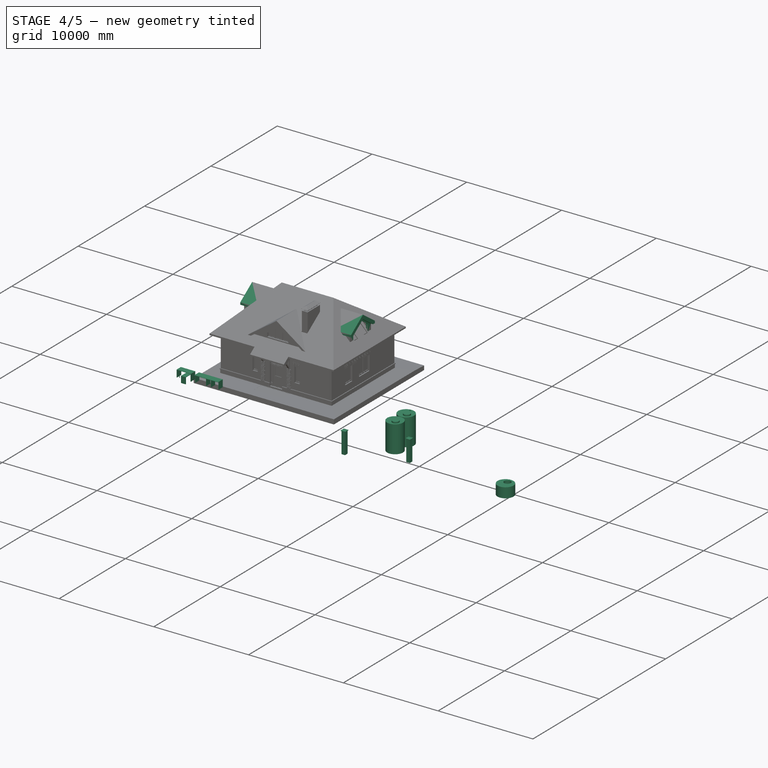
[diagram: stage 4 of 5 — iso view after this stage's code; geometry added in this stage tinted green]
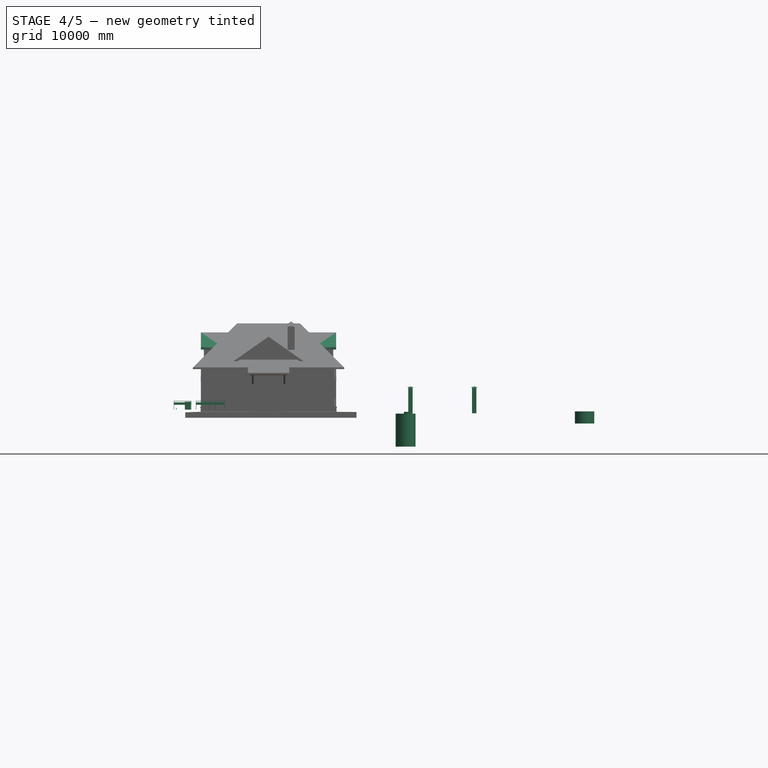
[diagram: stage 4 of 5 — front view after this stage's code; geometry added in this stage tinted green]
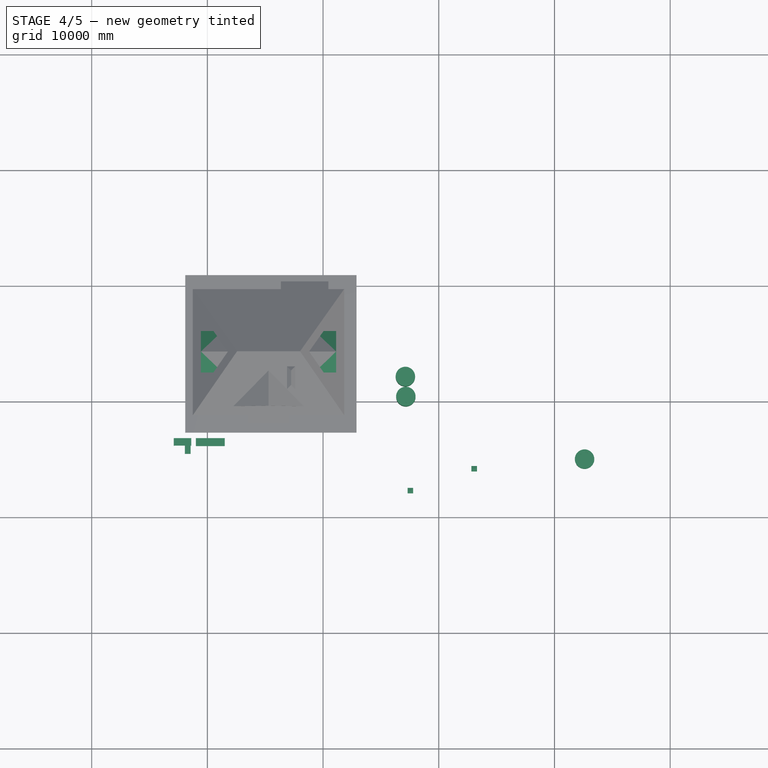
[diagram: stage 4 of 5 — top view after this stage's code; geometry added in this stage tinted green]
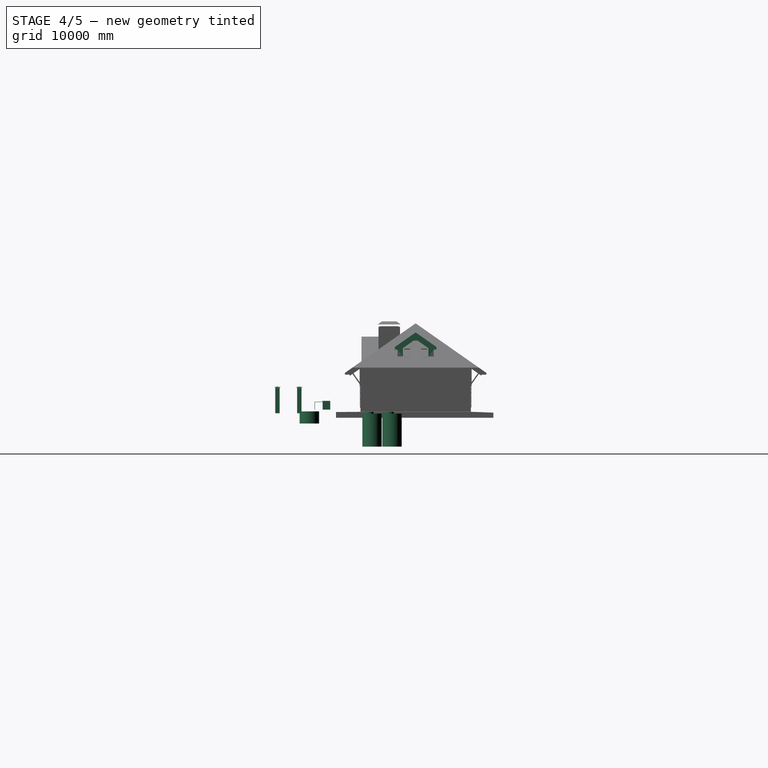
[diagram: stage 4 of 5 — right view after this stage's code; geometry added in this stage tinted green]
FEATURE [Part::Part2DObjectPython] Rectangle556  label="вытяжка осн мал"  # Draft 2D object (typed FeaturePython)
  ChamferSize = 0
  Columns = 1
  FilletRadius = 0
  Height = 400
  Length = 300
  MakeFace = false
  Placement = pos=(9777.57,514.584,1900) rot=(0,0,-1;0.785398rad)
  Rows = 1
FEATURE [Part::Box] Box3145  label="ТВ"
  AttacherType = Attacher::AttachEngine3D
  Height = 750
  Length = 1400
  Placement = pos=(6905,7240,620) rot=(0,0,-1;1.5708rad)
  Width = 100
FEATURE [Part::Part2DObjectPython] Rectangle555  label="вытяжка осн бол"  # Draft 2D object (typed FeaturePython)
  ChamferSize = 0
  Columns = 1
  FilletRadius = 0
  Height = 600
  Length = 500
  MakeFace = false
  Placement = pos=(9636.15,514.584,1850) rot=(0,0,-1;0.785398rad)
  Rows = 1
FEATURE [Part::Loft] Loft001  label="вытяжка"
  Closed = false
  MaxDegree = 5
  Ruled = false
  Sections = -> [Rectangle555,Rectangle556]
  Solid = true
FEATURE [Part::Feature] Fusion013  label="стул005"
  Placement = pos=(9140,3600,0) rot=(0,0,1;0rad)
  shape: bbox 480 x 520 x 910 mm, 35 faces (baked)
FEATURE [Part::Feature] Fusion014  label="стул006"
  Placement = pos=(9160,3800,0) rot=(0,0,1;0rad)
  shape: bbox 480 x 520 x 910 mm, 35 faces (baked)
FEATURE [Part::Feature] Fusion015  label="стул007"
  Placement = pos=(9122.81,3800,0) rot=(0,0,1;0rad)
  shape: bbox 480 x 520 x 910 mm, 35 faces (baked)
FEATURE [Part::Feature] Fusion016  label="стул008"
  Placement = pos=(9122.81,3597.78,0) rot=(0,0,1;0rad)
  shape: bbox 480 x 520 x 910 mm, 35 faces (baked)
FEATURE [Part::Box] Box3157  label="шкаф 60 одежда 004"
  AttacherType = Attacher::AttachEngine3D
  Height = 2700
  Length = 2400
  Placement = pos=(-30,3875,0) rot=(0,0,1;0rad)
  Width = 600
FEATURE [Part::Box] Box3159  label="ТВ001"
  AttacherType = Attacher::AttachEngine3D
  Height = 750
  Length = 1200
  Placement = pos=(3400,7060,620) rot=(0,0,-1;1.5708rad)
  Width = 75
FEATURE [Part::Box] Box3163  label="пуфик"
  AttacherType = Attacher::AttachEngine3D
  Height = 500
  Length = 350
  Placement = pos=(5697.31,920,0) rot=(0,0,1;0rad)
  Width = 500
FEATURE [Part::Box] Box3175  label="Холодильник"
  AttacherType = Attacher::AttachEngine3D
  Height = 1600
  Length = 600
  Placement = pos=(8035,1785,0) rot=(0,0,1;3.14159rad)
  Width = 600
FEATURE [Part::Box] Box3179  label="шкаф 60 кухонный 003"
  AttacherType = Attacher::AttachEngine3D
  Height = 850
  Length = 600
  Placement = pos=(7435,1185,1600) rot=(0,0,1;0rad)
  Width = 600
FEATURE [Part::Box] Box3192  label="кофеварка"
  AttacherType = Attacher::AttachEngine3D
  Height = 250
  Length = 200
  Placement = pos=(10566,2712.21,850) rot=(0,0,1;1.5708rad)
  Width = 250
FEATURE [Part::Cylinder] Cylinder001  label="чайник"
  Angle = 360
  AttacherType = Attacher::AttachEngine3D
  Height = 250
  Placement = pos=(10499.3,2623.31,850) rot=(0,0,1;1.5708rad)
  Radius = 75
FEATURE [Part::Box] Box3195  label="шкаф 45 кухонный 003"
  AttacherType = Attacher::AttachEngine3D
  Height = 300
  Length = 1400
  Placement = pos=(8035,1185,2450) rot=(0,0,1;1.5708rad)
  Width = 600
FEATURE [Part::Part2DObjectPython] Line1266  label="Line1267"  # Draft 2D object (typed FeaturePython)
  ChamferSize = 0
  Closed = true
  End = (-570,1265,0)
  FilletRadius = 0
  Length = 1810
  MakeFace = true
  Placement = pos=(-570,3075,0) rot=(0,0,-1;1.5708rad)
  Points = (2) [(0,0,0),(1810,0,0)]
  Start = (-570,3075,0)
  Subdivisions = 0
FEATURE [Part::Part2DObjectPython] Line1271  label="Line1272"  # Draft 2D object (typed FeaturePython)
  ChamferSize = 0
  Closed = true
  End = (7415,1135,0)
  FilletRadius = 0
  Length = 530
  MakeFace = false
  Placement = pos=(10065,4485,0) rot=(0,0,-1;1.5708rad)
  Points = (2) [(3350,-2120,0),(3350,-2650,0)]
  Start = (7945,1135,0)
  Subdivisions = 0
FEATURE [Part::Box] Box3204  label="шкаф 001"
  AttacherType = Attacher::AttachEngine3D
  Height = 2700
  Length = 600
  Placement = pos=(2370,3175,0) rot=(0,0,1;1.5708rad)
  Width = 600
FEATURE [App::FeaturePython] Dimension024  # Draft dimension (typed FeaturePython)
  Diameter = false
  Dimline = (4200,3400,0)
  Direction = (0,0,0)
  Distance = 1030
  End = (4585,3205,0)
  Normal = (0,0,1)
  Start = (3555,3205,0)
FEATURE [TechDraw::DrawSVGTemplate] Template001
  EditableTexts = Лист=6; Номер=ИЖС-2022.0003
  Height = 297
  Orientation = 1
  Width = 420
FEATURE [App::MaterialObjectPython] Material  label="Wood"  # material (typed FeaturePython)
  Description = A standard construction wood
  Material = AuthorAndLicense=Wood-Generic,CardName=Wood-Generic,Color=(1.0, 0.8196078431372549, 0.0, 1.0),Density=700 kg/m^3,+10 more (map truncated)
  ProductURL = https://en.wikipedia.org/wiki/Wood
  Transparency = 0
FEATURE [App::MaterialObjectPython] Material001  label="Concrete"  # material (typed FeaturePython)
  Description = A standard C-25 construction concrete
  Material = AuthorAndLicense=Concrete-Generic,CardName=Concrete-Generic,Color=(0.47058823529411764, 0.4627450980392157, 0.4627450980392157, 1.0),+13 more (map truncated)
  ProductURL = https://en.wikipedia.org/wiki/Concrete
  StandardCode = Masterformat 03 33 13
  Transparency = 50
FEATURE [App::MaterialObjectPython] Material002  label="XPS"  # material (typed FeaturePython)
  Description = XPS
  Material = AuthorAndLicense=ABS-Generic,CardName=ABS-Generic,Color=(0.9411764705882353, 0.5450980392156862, 0.5686274509803921, 1.0),Density=1060 kg/m^3,+15 more (map truncated)
  Transparency = 0
FEATURE [App::MaterialObjectPython] Material003  label="Red brick"  # material (typed FeaturePython)
  Description = A standard red brick
  Material = AuthorAndLicense=Concrete-Generic,CardName=Concrete-Generic,Color=(0.788235294117647, 0.2980392156862745, 0.18823529411764706, 1.0),+11 more (map truncated)
  Transparency = 0
FEATURE [Part::FeaturePython] Wall121  label="Перемычка облицовки 015"  # Arch/BIM 166 (typed FeaturePython)
  Align = 2
  Area = 1410000
  Base = -> Line1186
  BlockHeight = 250
  BlockLength = 66.7
  CountBroken = 51
  CountEntire = 47
  Face = 0
  GlobalId = 3Y7MnwAmX628ZvBXKl4dyB
  Height = 375
  HorizontalArea = 0
  IfcData = IfcUID=3Y7MnwAmX628ZvBXKl4dyB; attributes={"GlobalId": {"value": "3Y7MnwAmX628ZvBXKl4dyB"}}
  IfcType = 166
  Joint = 10
  Length = 3760
  MakeBlocks = true
  Material = -> Material003
  MoveBase = false
  MoveWithHost = false
  Normal = (0,0,1)
  OffsetFirst = 0
  OffsetSecond = 0
  PerimeterLength = 0
  Placement = pos=(0,0,2495) rot=(0,0,1;0rad)
  PredefinedType = 0
  VerticalArea = 0
  Width = 10
FEATURE [Part::FeaturePython] Wall123  label="Перемычка облицовки 017"  # Arch/BIM 166 (typed FeaturePython)
  Align = 2
  Area = 288750
  Base = -> Line1184
  BlockHeight = 250
  BlockLength = 66
  CountBroken = 12
  CountEntire = 8
  Face = 0
  GlobalId = 3lCsDqyJL5KvboFIYAEUQo
  Height = 375
  HorizontalArea = 0
  IfcData = IfcUID=3lCsDqyJL5KvboFIYAEUQo; attributes={"GlobalId": {"value": "3lCsDqyJL5KvboFIYAEUQo"}}
  IfcType = 166
  Joint = 10
  Length = 770
  MakeBlocks = true
  Material = -> Material003
  MoveBase = false
  MoveWithHost = false
  Normal = (0,0,1)
  OffsetFirst = 0
  OffsetSecond = 0
  PerimeterLength = 0
  Placement = pos=(0,0,2495) rot=(0,0,1;0rad)
  PredefinedType = 0
  VerticalArea = 0
  Width = 10
FEATURE [Part::FeaturePython] Wall124  label="Перемычка облицовки 018"  # Arch/BIM 166 (typed FeaturePython)
  Align = 2
  Area = 288750
  Base = -> Line1191
  BlockHeight = 250
  BlockLength = 66
  CountBroken = 12
  CountEntire = 8
  Face = 0
  GlobalId = 07ToIk0b17KwOPIvB7CAEx
  Height = 375
  HorizontalArea = 0
  IfcData = IfcUID=07ToIk0b17KwOPIvB7CAEx; attributes={"GlobalId": {"value": "07ToIk0b17KwOPIvB7CAEx"}}
  IfcType = 166
  Joint = 10
  Length = 770
  MakeBlocks = true
  Material = -> Material003
  MoveBase = false
  MoveWithHost = false
  Normal = (0,0,1)
  OffsetFirst = 0
  OffsetSecond = 0
  PerimeterLength = 0
  Placement = pos=(0,0,2495) rot=(0,0,1;0rad)
  PredefinedType = 0
  VerticalArea = 0
  Width = 10
FEATURE [Part::FeaturePython] Wall159  label="Перемычка облицовки 019"  # Arch/BIM 166 (typed FeaturePython)
  Align = 2
  Area = 678750
  Base = -> Line1266
  BlockHeight = 250
  BlockLength = 65
  CountBroken = 26
  CountEntire = 22
  Face = 0
  GlobalId = 0T7dyAI05B38PZhXyjg8rR
  Height = 375
  HorizontalArea = 0
  IfcData = IfcUID=0T7dyAI05B38PZhXyjg8rR; attributes={"GlobalId": {"value": "0T7dyAI05B38PZhXyjg8rR"}}
  IfcType = 166
  Joint = 10
  Length = 1810
  MakeBlocks = true
  Material = -> Material003
  MoveBase = false
  MoveWithHost = false
  Normal = (0,0,1)
  OffsetFirst = 0
  OffsetSecond = 0
  PerimeterLength = 0
  Placement = pos=(0,0,2495) rot=(0,0,1;0rad)
  PredefinedType = 0
  VerticalArea = 0
  Width = 10
FEATURE [App::MaterialObjectPython] Material011  label="Polypropylene"  # material (typed FeaturePython)
  Material = AuthorAndLicense=PP-Generic,CardName=PP-Generic,Color=(0.38823529411764707, 0.38823529411764707, 0.38823529411764707, 1.0),CompressiveStrength=10 MPa,+15 more (map truncated)
  ProductURL = https://en.wikipedia.org/wiki/Polypropylene
  Transparency = 0
FEATURE [Part::FeaturePython] Window020  label="Д-90-004"  # Arch/BIM 41 (typed FeaturePython)
  Area = 2115000
  Base = -> Sketch248
  Frame = 50
  GlobalId = 00iW5F1Zz0_RepVZ61wedb
  Height = 2350
  HoleDepth = 0
  HoleWire = 0
  HorizontalArea = 0
  IfcData = IfcUID=00iW5F1Zz0_RepVZ61wedb; attributes={"OverallHeight": {"value": 2350.0}, "OverallWidth": {"value": 900.0}, "GlobalId": {"value": "00iW5F1Zz0_RepVZ61wedb"}}
  IfcType = 41
  LouvreSpacing = 0
  LouvreWidth = 0
  Material = -> Material011
  MoveBase = false
  MoveWithHost = true
  Normal = (0,1,0)
  Opening = 0
  OperationType = 0
  OverallHeight = 2350
  OverallWidth = 900
  PerimeterLength = 0
  Placement = pos=(0,25,0) rot=(0,0,1;0rad)
  PredefinedType = 0
  Preset = 6
  SymbolElevation = false
  SymbolPlan = false
  VerticalArea = 0
  Width = 900
  WindowParts = OuterFrame | Frame | Wire0,Wire1 | 0.0+V | 0.00+V | Door | Solid panel | Wire1 | 50.0 | 0.0+V
  expr: OverallHeight = .Height.Value
  expr: OverallWidth = .Width.Value
FEATURE [Part::FeaturePython] Window021  label="Д-80-001"  # Arch/BIM 41 (typed FeaturePython)
  Area = 1880000
  Base = -> Sketch251
  Frame = 50
  GlobalId = 29QgZPyov5qAVey2RViV7P
  Height = 2350
  HoleDepth = 0
  HoleWire = 0
  HorizontalArea = 0
  IfcData = IfcUID=29QgZPyov5qAVey2RViV7P; attributes={"OverallHeight": {"value": 2350.0}, "OverallWidth": {"value": 800.0}, "GlobalId": {"value": "29QgZPyov5qAVey2RViV7P"}}
  IfcType = 41
  LouvreSpacing = 0
  LouvreWidth = 0
  Material = -> Material011
  MoveBase = false
  MoveWithHost = true
  Normal = (1,0,0)
  Opening = 0
  OperationType = 0
  OverallHeight = 2350
  OverallWidth = 800
  PerimeterLength = 0
  Placement = pos=(25,0,0) rot=(0,0,1;0rad)
  PredefinedType = 0
  Preset = 6
  SymbolElevation = false
  SymbolPlan = false
  VerticalArea = 0
  Width = 800
  WindowParts = OuterFrame | Frame | Wire0,Wire1 | 0.0+V | 0.00+V | Door | Solid panel | Wire1 | 50.0 | 0.0+V
  expr: OverallHeight = .Height.Value
  expr: OverallWidth = .Width.Value
FEATURE [Part::FeaturePython] Window026  label="Д-90-002"  # Arch/BIM 41 (typed FeaturePython)
  Area = 2115000
  Base = -> Sketch260
  Frame = 50
  GlobalId = 3IW9J8Pfn69QiBWvx91KEB
  Height = 2350
  HoleDepth = 0
  HoleWire = 0
  HorizontalArea = 0
  IfcData = IfcUID=3IW9J8Pfn69QiBWvx91KEB; attributes={"OverallHeight": {"value": 2350.0}, "OverallWidth": {"value": 900.0}, "GlobalId": {"value": "3IW9J8Pfn69QiBWvx91KEB"}}
  IfcType = 41
  LouvreSpacing = 0
  LouvreWidth = 0
  Material = -> Material011
  MoveBase = false
  MoveWithHost = true
  Normal = (0,1,0)
  Opening = 0
  OperationType = 0
  OverallHeight = 2350
  OverallWidth = 900
  PerimeterLength = 0
  Placement = pos=(0,30,180) rot=(0,0,1;0rad)
  PredefinedType = 0
  Preset = 6
  SymbolElevation = false
  SymbolPlan = false
  VerticalArea = 0
  Width = 900
  WindowParts = OuterFrame | Frame | Wire0,Wire1 | 0.0+V | 0.00+V | Door | Solid panel | Wire1 | 50.0 | 0.0+V
  expr: OverallHeight = .Height.Value
  expr: OverallWidth = .Width.Value
FEATURE [Part::FeaturePython] Wall004  label="Несущая стена 2.1нф 250мм внутренняя 003"  # Arch/BIM 166 (typed FeaturePython)
  Align = 2
  Area = 2.0445e+07
  Base = -> Line1049
  BlockHeight = 231
  BlockLength = 0
  CountBroken = 0
  CountEntire = 0
  Face = 0
  GlobalId = 1uw9ZyZ5vAkuN6nr$sWkBP
  Height = 3000
  HorizontalArea = 0
  IfcData = IfcUID=1uw9ZyZ5vAkuN6nr$sWkBP; attributes={"GlobalId": {"value": "1uw9ZyZ5vAkuN6nr$sWkBP"}}
  IfcType = 166
  Joint = 0
  Length = 6815
  MakeBlocks = true
  Material = -> Material009
  MoveBase = false
  MoveWithHost = false
  Normal = (0,0,1)
  OffsetFirst = 0
  OffsetSecond = 500
  PerimeterLength = 0
  Placement = pos=(0,0,-200) rot=(0,0,1;0rad)
  PredefinedType = 0
  Subtractions = -> [Structure317,Structure020,Wall278,Wall277]
  VerticalArea = 0
  Width = 250
FEATURE [App::MaterialObjectPython] Material014  label="Wood (laminate)"  # material (typed FeaturePython)
  Description = A standard construction wood
  Material = AuthorAndLicense=Wood-Generic,CardName=Wood-Generic,Color=(0.8196078431372549, 0.8196078431372549, 0.8196078431372549, 1.0),Density=700 kg/m^3,+10 more (map truncated)
  ProductURL = https://en.wikipedia.org/wiki/Wood
  Transparency = 0
FEATURE [App::MaterialObjectPython] Material015  label="Other mebel"  # material (typed FeaturePython)
  Description = Other mebel
  Material = AuthorAndLicense=Wood-Generic,CardName=Wood-Generic,Color=(0.6196078431372549, 0.6941176470588235, 0.7568627450980392, 1.0),Density=700 kg/m^3,+9 more (map truncated)
  Transparency = 0
FEATURE [Part::FeaturePython] Structure277  label="Structure020"  # Arch/BIM 52 (typed FeaturePython)
  FaceMaker = 0
  GlobalId = 2DDa$j80P5hvQ3LPUQNes4
  Height = 200
  HorizontalArea = 236963
  IfcData = IfcUID=2DDa$j80P5hvQ3LPUQNes4,attributes={"GlobalId": {"value": "2DDa$j80P5hvQ3LPUQNes4"}},+1 more (map truncated)
  IfcType = 52
  Length = 0
  Material = -> Material015
  MoveBase = false
  MoveWithHost = false
  Nodes = (2) [(1656.58,7240.7,0),(1656.58,7240.7,200)]
  NodesOffset = 0
  Normal = (0,0,0)
  PerimeterLength = 2357.08
  Placement = pos=(0,0,400) rot=(0,0,1;0rad)
  VerticalArea = 471416
  Width = 100
FEATURE [Part::FeaturePython] Structure278  label="Structure021"  # Arch/BIM 52 (typed FeaturePython)
  FaceMaker = 0
  GlobalId = 3Z9IWRZuT13weCYbg7_Khd
  Height = 200
  HorizontalArea = 236963
  IfcData = IfcUID=3Z9IWRZuT13weCYbg7_Khd,attributes={"GlobalId": {"value": "3Z9IWRZuT13weCYbg7_Khd"}},+1 more (map truncated)
  IfcType = 52
  Length = 0
  Material = -> Material015
  MoveBase = false
  MoveWithHost = false
  Nodes = (2) [(156.577,7240.7,0),(156.577,7240.7,200)]
  NodesOffset = 0
  Normal = (0,0,0)
  PerimeterLength = 2357.08
  Placement = pos=(0,0,400) rot=(0,0,1;0rad)
  VerticalArea = 471416
  Width = 100
FEATURE [Part::FeaturePython] Structure275  label="Structure018"  # Arch/BIM 52 (typed FeaturePython)
  FaceMaker = 0
  GlobalId = 1sWNXrsjP3FQ$2jjEvDesy
  Height = 400
  HorizontalArea = 749463
  IfcData = IfcUID=1sWNXrsjP3FQ$2jjEvDesy,attributes={"GlobalId": {"value": "1sWNXrsjP3FQ$2jjEvDesy"}},+1 more (map truncated)
  IfcType = 52
  Length = 0
  Material = -> Material015
  MoveBase = false
  MoveWithHost = false
  Nodes = (2) [(182.895,-1383.89,0),(182.895,-1383.89,400)]
  NodesOffset = 0
  Normal = (0,0,0)
  PerimeterLength = 5557.08
  Placement = pos=(0,0,400) rot=(0,0,1;0rad)
  VerticalArea = 2.22283e+06
  Width = 100
FEATURE [Part::FeaturePython] Structure276  label="Structure019"  # Arch/BIM 52 (typed FeaturePython)
  FaceMaker = 0
  GlobalId = 3fmvKSc5DEWOPxKz6nUpvm
  Height = 400
  HorizontalArea = 2.37446e+06
  IfcData = IfcUID=3fmvKSc5DEWOPxKz6nUpvm,attributes={"GlobalId": {"value": "3fmvKSc5DEWOPxKz6nUpvm"}},+1 more (map truncated)
  IfcType = 52
  Length = 0
  Material = -> Material015
  MoveBase = false
  MoveWithHost = false
  Nodes = (2) [(906.577,7240.7,0),(906.577,7240.7,400)]
  NodesOffset = 0
  Normal = (0,0,0)
  PerimeterLength = 6857.08
  VerticalArea = 2.74283e+06
  Width = 100
FEATURE [Part::FeaturePython] Structure279  label="Structure143"  # Arch/BIM 52 (typed FeaturePython)
  FaceMaker = 0
  GlobalId = 3TZavIZkH49B1D2AaSuAzL
  Height = 400
  HorizontalArea = 434963
  IfcData = IfcUID=3TZavIZkH49B1D2AaSuAzL,attributes={"GlobalId": {"value": "3TZavIZkH49B1D2AaSuAzL"}},+1 more (map truncated)
  IfcType = 52
  Length = 0
  Material = -> Material015
  MoveBase = false
  MoveWithHost = false
  Nodes = (2) [(906.577,7240.7,0),(906.577,7240.7,400)]
  NodesOffset = 0
  Normal = (0,0,0)
  PerimeterLength = 2597.08
  VerticalArea = 1.03883e+06
  Width = 100
FEATURE [Part::FeaturePython] Roof027  label="Кровля 2скатн003"  # Arch/BIM 113 (typed FeaturePython)
  Angles = [35,90,35,90]
  Base = -> Rectangle3216
  BorderLength = 40428.5
  Face = 0
  Flip = false
  Heights = [1925.57,0,1925.57,0]
  HorizontalArea = 7.425e+07
  IdRel = [-1,-1,-1,-1]
  IfcData = attributes={"GlobalId": {"name": "GlobalId", "type": "IfcGloballyUniqueId", "is_enum": false, "enum_values": []}, "Description": {"... (+613 chars omitted),+1 more (map truncated)
  IfcType = 113
  Material = -> Material007
  MoveBase = false
  MoveWithHost = false
  Overhang = [0,0,0,0]
  PerimeterLength = 38000
  Placement = pos=(0,0,4317.05) rot=(0,0,1;0rad)
  PredefinedType = 0
  RidgeLength = 13500
  Runs = [4500,4500,4500,4500]
  Thickness = [350,250,350,250]
  VerticalArea = 1.62363e+07
FEATURE [Part::Extrusion] Extrude099005002
  Base = -> Rectangle3284
  Dir = (0,0,1)
  DirMode = 2
  FaceMakerClass = Part::FaceMakerBullseye
  LengthFwd = 5000
  LengthRev = 0
  Placement = pos=(0,0,2500) rot=(0,0,1;0rad)
  Solid = true
  Symmetric = false
FEATURE [Part::Feature] Fusion011003002002005001  label="кровать 120х210 002"
  Placement = pos=(3080,-4615,3145) rot=(0,0,1;3.14159rad)
  shape: bbox 2100 x 1200 x 750 mm, 66 faces (baked)
FEATURE [Part::Feature] Fusion011003002002005002  label="кровать 120х210 003"
  Placement = pos=(3080,985,3145) rot=(0,0,1;3.14159rad)
  shape: bbox 2100 x 1200 x 750 mm, 66 faces (baked)
FEATURE [Part::Box] Box3272  label="ножка053"
  AttacherType = Attacher::AttachEngine3D
  Height = 650
  Length = 40
  Placement = pos=(-950,-4510,0) rot=(0,0,-1;1.5708rad)
  Width = 500
FEATURE [Part::Box] Box3273  label="столешница008"
  AttacherType = Attacher::AttachEngine3D
  Height = 30
  Length = 650
  Placement = pos=(-1000,-3200,720) rot=(0,0,-1;1.5708rad)
  Width = 1510
FEATURE [Part::Box] Box3274  label="ножка054"
  AttacherType = Attacher::AttachEngine3D
  Height = 720
  Length = 650
  Placement = pos=(470,-3200,0) rot=(0,0,-1;1.5708rad)
  Width = 40
FEATURE [Part::Box] Box3276  label="ножка055"
  AttacherType = Attacher::AttachEngine3D
  Height = 150
  Length = 40
  Placement = pos=(260,-3710,0) rot=(0,0,-1;1.5708rad)
  Width = 40
FEATURE [Part::Box] Box3280  label="столешница009"
  AttacherType = Attacher::AttachEngine3D
  Height = 30
  Length = 1350
  Placement = pos=(-950,-3200,650) rot=(0,0,-1;1.5708rad)
  Width = 500
FEATURE [Part::Box] Box3281  label="ножка059"
  AttacherType = Attacher::AttachEngine3D
  Height = 720
  Length = 650
  Placement = pos=(-1000,-3200,0) rot=(0,0,-1;1.5708rad)
  Width = 40
FEATURE [Part::Box] Box3283  label="ножка061"
  AttacherType = Attacher::AttachEngine3D
  Height = 200
  Length = 40
  Placement = pos=(-960,-3200,420) rot=(0,0,-1;1.5708rad)
  Width = 1430
FEATURE [Part::MultiFuse] Fusion011003002002005003  label="MALM МАЛЬМ Письменный стол с выдвижной панелью 151x65 см 001"
  Shapes = -> [Box3272,Box3273,Box3274,Box3276,Box3280,Box3281,Box3283]
FEATURE [Part::FeaturePython] Structure610  label="Раковина 120x45 001 (тумба)"  # Arch/BIM 52 (typed FeaturePython)
  FaceMaker = 0
  GlobalId = 2d5W_OQQf2Fxkoe6wMEOb9
  Height = 570
  HorizontalArea = 540000
  IfcData = IfcUID=2d5W_OQQf2Fxkoe6wMEOb9,+2 more (map truncated)
  IfcType = 52
  Length = 0
  Material = -> Material013
  MoveBase = false
  MoveWithHost = false
  Nodes = (2) [(-2856.79,7112.64,0),(-2856.79,7112.64,600)]
  NodesOffset = 0
  Normal = (0,0,-1)
  PerimeterLength = 3300
  Placement = pos=(2210,200,3990) rot=(0,0,1;0rad)
  VerticalArea = 1881000
  Width = 100
FEATURE [Part::Mirroring] mirror016002  label="MALM МАЛЬМ Письменный стол с выдвижной панелью 151x65 см 001 (mirrored)"
  Base = (-1200,-3100,0)
  Normal = (-1,0,0)
  Source = -> Fusion011003002002005003
FEATURE [Part::Part2DObjectPython] Rectangle3862  # Draft 2D object (typed FeaturePython)
  ChamferSize = 0
  Columns = 1
  FilletRadius = 30
  Height = 800
  Length = 1400
  MakeFace = true
  Placement = pos=(10550,4850,0) rot=(0,0,1;3.14159rad)
  Rows = 1
FEATURE [Part::Part2DObjectPython] Rectangle3863  # Draft 2D object (typed FeaturePython)
  ChamferSize = 0
  Columns = 1
  FilletRadius = 0
  Height = 300
  Length = 480
  MakeFace = true
  Placement = pos=(10440,4050,0) rot=(0,0,1;3.14159rad)
  Rows = 1
FEATURE [Part::Part2DObjectPython] Rectangle3864  # Draft 2D object (typed FeaturePython)
  ChamferSize = 0
  Columns = 1
  FilletRadius = 0
  Height = 300
  Length = 480
  MakeFace = true
  Placement = pos=(10440,5150,0) rot=(0,0,1;3.14159rad)
  Rows = 1
FEATURE [Part::Part2DObjectPython] ShapeString248  # Draft 2D object (typed FeaturePython)
  FontFile = <path>
  Placement = pos=(7663.67,1274.56,0) rot=(0,0,1;0rad)
  Size = 300
  String = *
  Tracking = 0
FEATURE [Part::Part2DObjectPython] ShapeString249  # Draft 2D object (typed FeaturePython)
  FontFile = <path>
  Placement = pos=(7506.61,2042.49,0) rot=(0,0,1;0rad)
  Size = 200
  String = СМ
  Tracking = 0
FEATURE [Part::Part2DObjectPython] ShapeString250  # Draft 2D object (typed FeaturePython)
  FontFile = <path>
  Placement = pos=(10388.1,1241.94,0) rot=(0,0,1;1.5708rad)
  Size = 200
  String = ПМ
  Tracking = 0
FEATURE [Part::Part2DObjectPython] Rectangle3865  label="Камин001"  # Draft 2D object (typed FeaturePython)
  Area = 375000
  ChamferSize = 0
  Columns = 1
  FilletRadius = 0
  Height = 500
  Length = 750
  MakeFace = true
  Placement = pos=(7285,2725,0) rot=(0,0,1;0rad)
  Rows = 1
FEATURE [Part::Part2DObjectPython] Circle196  # Draft 2D object (typed FeaturePython)
  Area = 0
  FirstAngle = 0
  LastAngle = 0
  MakeFace = false
  Placement = pos=(10027.9,368.982,0) rot=(0,0,-1;0.785398rad)
  Radius = 75
FEATURE [Part::FeaturePython] Array079  # Draft array (typed FeaturePython)
  Angle = 360
  ArrayType = 0
  Axis = (0,0,1)
  Base = -> Circle196
  Center = (0,0,0)
  Fuse = false
  IntervalAxis = (0,0,0)
  IntervalX = (250,0,0)
  IntervalY = (0,250,0)
  IntervalZ = (0,0,1)
  NumberPolar = 1
  NumberX = 2
  NumberY = 2
  NumberZ = 1
  Placement = pos=(2499.4,7375.61,0) rot=(0,0,-1;0.785398rad)
FEATURE [Part::Extrusion] Extrude058  label="Панель индукционная"
  Base = -> Array079
  Dir = (0,0,1)
  DirMode = 2
  FaceMakerClass = Part::FaceMakerBullseye
  LengthFwd = 50
  LengthRev = 0
  Placement = pos=(0,0,810) rot=(0,0,1;0rad)
  Solid = true
  Symmetric = false
FEATURE [Part::Part2DObjectPython] Rectangle4101  # Draft 2D object (typed FeaturePython)
  Area = 0
  ChamferSize = 0
  Columns = 1
  FilletRadius = 0
  Height = 1810
  Length = 640
  MakeFace = false
  Placement = pos=(6915,970,0) rot=(0,0,1;0rad)
  Rows = 1
FEATURE [Part::Part2DObjectPython] Rectangle4102  label="Шкаф 60 051"  # Draft 2D object (typed FeaturePython)
  Area = 360000
  ChamferSize = 0
  Columns = 1
  FilletRadius = 0
  Height = 600
  Length = 600
  MakeFace = true
  Placement = pos=(6295,975,0) rot=(0,0,1;0rad)
  Rows = 1
FEATURE [Part::Part2DObjectPython] ShapeString254  # Draft 2D object (typed FeaturePython)
  FontFile = <path>
  Placement = pos=(6390.73,1181.32,0) rot=(0,0,1;0rad)
  Size = 200
  String = СМ
  Tracking = 0
FEATURE [Part::Part2DObjectPython] Rectangle4104  # Draft 2D object (typed FeaturePython)
  Area = 220000
  ChamferSize = 0
  Columns = 1
  FilletRadius = 0
  Height = 400
  Length = 550
  MakeFace = true
  Placement = pos=(6895,675,0) rot=(0,0,1;3.14159rad)
  Rows = 1
FEATURE [Part::Part2DObjectPython] Rectangle4107  label="Инсталляция для унитаза (8 см) TECE 9300040 006"  # Draft 2D object (typed FeaturePython)
  Area = 0
  ChamferSize = 0
  Columns = 1
  FilletRadius = 0
  Height = 645
  Length = 80
  MakeFace = false
  Placement = pos=(6915,152.5,0) rot=(0,0,1;0rad)
  Rows = 1
FEATURE [Part::Part2DObjectPython] Circle217  label="Выпуск 90 мм 006"  # Draft 2D object (typed FeaturePython)
  Area = 0
  FirstAngle = 0
  LastAngle = 0
  MakeFace = false
  Placement = pos=(6960,475,0) rot=(0,0,1;0rad)
  Radius = 45
FEATURE [Part::Part2DObjectPython] Rectangle4108  label="Шкаф 60 052"  # Draft 2D object (typed FeaturePython)
  Area = 510000
  ChamferSize = 0
  Columns = 1
  FilletRadius = 0
  Height = 600
  Length = 850
  MakeFace = true
  Placement = pos=(4235,6995,0) rot=(0,0,1;0rad)
  Rows = 1
FEATURE [Part::Part2DObjectPython] Rectangle4109  label="Шкаф 60 053"  # Draft 2D object (typed FeaturePython)
  Area = 1206000
  ChamferSize = 0
  Columns = 1
  FilletRadius = 0
  Height = 2010
  Length = 600
  MakeFace = true
  Placement = pos=(5085,5585,0) rot=(0,0,1;0rad)
  Rows = 1
FEATURE [Part::Part2DObjectPython] Rectangle4112  # Draft 2D object (typed FeaturePython)
  Area = 0
  ChamferSize = 0
  Columns = 1
  FilletRadius = 0
  Height = 800
  Length = 800
  MakeFace = false
  Placement = pos=(9800,-25,0) rot=(0,0,1;0rad)
  Rows = 1
FEATURE [Part::Part2DObjectPython] Rectangle4117  # Draft 2D object (typed FeaturePython)
  Area = 202500
  ChamferSize = 0
  Columns = 1
  FilletRadius = 0
  Height = 450
  Length = 450
  MakeFace = true
  Placement = pos=(9713.44,7585,0) rot=(0,0,1;3.14159rad)
  Rows = 1
FEATURE [Part::Feature] Compound006034  label="шкаф 60х60 секция 018"
  Placement = pos=(-14145,-245,0) rot=(0,0,1;0rad)
  shape: bbox 600 x 600 x 2e-07 mm, 0 faces, 0 solids (baked)
FEATURE [Part::Feature] Compound006035  label="шкаф 60х60 секция 019"
  Placement = pos=(-12502.7,-245,0) rot=(0,0,1;0rad)
  shape: bbox 600 x 600 x 2e-07 mm, 0 faces, 0 solids (baked)
FEATURE [Part::Feature] Compound006036  label="шкаф 60х60 секция 020"
  Placement = pos=(-11902.7,-245,0) rot=(0,0,1;0rad)
  shape: bbox 600 x 600 x 2e-07 mm, 0 faces, 0 solids (baked)
FEATURE [Sketcher::SketchObject] Sketch414  label="кресло 45'016"
  FullyConstrained = false
  Placement = pos=(9853.39,4170,0) rot=(0,0,1;1.5708rad)
  sketch-geometry (11):
    g0: LineSegment StartX=-280 StartY=-350 StartZ=0 EndX=280 EndY=-350 EndZ=0
    g1: LineSegment StartX=330 StartY=-300 StartZ=0 EndX=330 EndY=300 EndZ=0
    g2: LineSegment StartX=280 StartY=350 StartZ=0 EndX=-280 EndY=350 EndZ=0
    g3: LineSegment StartX=-330 StartY=300 StartZ=0 EndX=-330 EndY=-300 EndZ=0
    g4: ArcOfCircle CenterX=-280 CenterY=300 CenterZ=0 NormalX=0 NormalY=0 NormalZ=1 AngleXU=0 Radius=50 StartAngle=1.5708 EndAngle=3.14159
    g5: ArcOfCircle CenterX=280 CenterY=300 CenterZ=0 NormalX=0 NormalY=0 NormalZ=1 AngleXU=0 Radius=50 StartAngle=-9e-16 EndAngle=1.5708
    g6: ArcOfCircle CenterX=280 CenterY=-300 CenterZ=0 NormalX=0 NormalY=0 NormalZ=1 AngleXU=0 Radius=50 StartAngle=4.71239 EndAngle=6.28319
    g7: ArcOfCircle CenterX=-280 CenterY=-300 CenterZ=0 NormalX=0 NormalY=0 NormalZ=1 AngleXU=0 Radius=50 StartAngle=3.14159 EndAngle=4.71239
    g8: LineSegment StartX=-330 StartY=200 StartZ=0 EndX=330 EndY=200 EndZ=0
    g9: LineSegment StartX=-230 StartY=200 StartZ=0 EndX=-230 EndY=-350 EndZ=0
    g10: LineSegment StartX=230 StartY=200 StartZ=0 EndX=230 EndY=-350 EndZ=0
  constraints (29):
    c: Horizontal(g0)
    c: Vertical(g1)
    c: Vertical(g3)
    c: Tangent(g2,g4) = -1.5708
    c: Tangent(g3,g4) = -1.5708
    c: Tangent(g2,g5) = -1.5708
    c: Tangent(g1,g5) = -1.5708
    c: Tangent(g0,g6) = -1.5708
    c: Tangent(g1,g6) = -1.5708
    c: Tangent(g3,g7) = -1.5708
    c: Tangent(g0,g7) = -1.5708
    c: DistanceY(g0,g2) = 700
    c: DistanceX(g3,g1) = 660
    c: Equal(g4,g5)
    c: Equal(g7,g6)
    c: Radius(g5) = 50
    c: Symmetric(g2,g2,g-2)
    c: Symmetric(g2,g0,g-1)
    c: PointOnObject(g8,g3)
    c: PointOnObject(g8,g1)
    c: Horizontal(g8)
    c: DistanceY(g8,g2) = 150
    c: PointOnObject(g9,g8)
    c: PointOnObject(g9,g0)
    c: Vertical(g9)
    c: PointOnObject(g10,g0)
    c: Vertical(g10)
    c: DistanceX(g10,g8) = 100
    c: Symmetric(g10,g9,g-2)
FEATURE [Part::Part2DObjectPython] Rectangle4125  # Draft 2D object (typed FeaturePython)
  Area = 390500
  ChamferSize = 0
  Columns = 1
  FilletRadius = 0
  Height = 100
  Length = 3905
  MakeFace = true
  Placement = pos=(-370,4135,0) rot=(0,0,1;0rad)
  Rows = 1
FEATURE [Part::Part2DObjectPython] Rectangle4127  # Draft 2D object (typed FeaturePython)
  ChamferSize = 0
  Columns = 1
  FilletRadius = 10
  Height = 1200
  Length = 700
  MakeFace = true
  Placement = pos=(-20,2915,0) rot=(0,0,1;0rad)
  Rows = 1
FEATURE [Sketcher::SketchObject] Sketch416  label="кресло 45'018"
  FullyConstrained = false
  Placement = pos=(696.606,3515,0) rot=(0,0,-1;1.5708rad)
  sketch-geometry (11):
    g0: LineSegment StartX=-280 StartY=-350 StartZ=0 EndX=280 EndY=-350 EndZ=0
    g1: LineSegment StartX=330 StartY=-300 StartZ=0 EndX=330 EndY=300 EndZ=0
    g2: LineSegment StartX=280 StartY=350 StartZ=0 EndX=-280 EndY=350 EndZ=0
    g3: LineSegment StartX=-330 StartY=300 StartZ=0 EndX=-330 EndY=-300 EndZ=0
    g4: ArcOfCircle CenterX=-280 CenterY=300 CenterZ=0 NormalX=0 NormalY=0 NormalZ=1 AngleXU=0 Radius=50 StartAngle=1.5708 EndAngle=3.14159
    g5: ArcOfCircle CenterX=280 CenterY=300 CenterZ=0 NormalX=0 NormalY=0 NormalZ=1 AngleXU=0 Radius=50 StartAngle=-9e-16 EndAngle=1.5708
    g6: ArcOfCircle CenterX=280 CenterY=-300 CenterZ=0 NormalX=0 NormalY=0 NormalZ=1 AngleXU=0 Radius=50 StartAngle=4.71239 EndAngle=6.28319
    g7: ArcOfCircle CenterX=-280 CenterY=-300 CenterZ=0 NormalX=0 NormalY=0 NormalZ=1 AngleXU=0 Radius=50 StartAngle=3.14159 EndAngle=4.71239
    g8: LineSegment StartX=-330 StartY=200 StartZ=0 EndX=330 EndY=200 EndZ=0
    g9: LineSegment StartX=-230 StartY=200 StartZ=0 EndX=-230 EndY=-350 EndZ=0
    g10: LineSegment StartX=230 StartY=200 StartZ=0 EndX=230 EndY=-350 EndZ=0
  constraints (29):
    c: Horizontal(g0)
    c: Vertical(g1)
    c: Vertical(g3)
    c: Tangent(g2,g4) = -1.5708
    c: Tangent(g3,g4) = -1.5708
    c: Tangent(g2,g5) = -1.5708
    c: Tangent(g1,g5) = -1.5708
    c: Tangent(g0,g6) = -1.5708
    c: Tangent(g1,g6) = -1.5708
    c: Tangent(g3,g7) = -1.5708
    c: Tangent(g0,g7) = -1.5708
    c: DistanceY(g0,g2) = 700
    c: DistanceX(g3,g1) = 660
    c: Equal(g4,g5)
    c: Equal(g7,g6)
    c: Radius(g5) = 50
    c: Symmetric(g2,g2,g-2)
    c: Symmetric(g2,g0,g-1)
    c: PointOnObject(g8,g3)
    c: PointOnObject(g8,g1)
    c: Horizontal(g8)
    c: DistanceY(g8,g2) = 150
    c: PointOnObject(g9,g8)
    c: PointOnObject(g9,g0)
    c: Vertical(g9)
    c: PointOnObject(g10,g0)
    c: Vertical(g10)
    c: DistanceX(g10,g8) = 100
    c: Symmetric(g10,g9,g-2)
FEATURE [Part::Part2DObjectPython] Rectangle4128  # Draft 2D object (typed FeaturePython)
  ChamferSize = 0
  Columns = 1
  FilletRadius = 0
  Height = 1200
  Length = 2100
  MakeFace = true
  Placement = pos=(780,785,0) rot=(0,0,1;0rad)
  Rows = 1
FEATURE [Part::Mirroring] mirror016002002  label="Rectangle4127 (mirrored)"
  Base = (5285,4185,0)
  Normal = (0,-1,0)
  Source = -> Rectangle4127
FEATURE [Part::Mirroring] mirror016002003  label="кресло 45'018 (mirrored)"
  Base = (5285,4185,0)
  Normal = (0,-1,0)
  Source = -> Sketch416
FEATURE [Part::Mirroring] mirror016002004  label="Rectangle4128 (mirrored)"
  Base = (5285,4185,0)
  Normal = (0,-1,0)
  Source = -> Rectangle4128
FEATURE [Part::Part2DObjectPython] Wire1052  # Draft 2D object (typed FeaturePython)
  Area = 0
  ChamferSize = 0
  Closed = false
  End = (5054.98,5600,0)
  FilletRadius = 50
  Length = 981.15
  MakeFace = false
  Placement = pos=(4254.98,5600,0) rot=(0,0,1;0rad)
  Points = (9) [(0,0,0),(100,-100,0),(200,0,0),(300,-100,0),(400,0,0),(500,-100,0),(600,0,0),(700,-100,0),(800,0,0)]
  Start = (4254.98,5600,0)
  Subdivisions = 0
FEATURE [Part::Part2DObjectPython] Rectangle4129  label="Шкаф 60 054"  # Draft 2D object (typed FeaturePython)
  Area = 3.41073e+06
  ChamferSize = 0
  Columns = 1
  FilletRadius = 0
  Height = 1200
  Length = 2842.27
  MakeFace = true
  Placement = pos=(7555,775,0) rot=(0,0,1;0rad)
  Rows = 1
FEATURE [Part::Part2DObjectPython] Rectangle4132  # Draft 2D object (typed FeaturePython)
  ChamferSize = 0
  Columns = 1
  FilletRadius = 0
  Height = 1600
  Length = 2100
  MakeFace = true
  Placement = pos=(7653.44,7585,0) rot=(0,0,-1;1.5708rad)
  Rows = 1
FEATURE [Part::Part2DObjectPython] Rectangle4133  # Draft 2D object (typed FeaturePython)
  Area = 211500
  ChamferSize = 0
  Columns = 1
  FilletRadius = 0
  Height = 2115
  Length = 100
  MakeFace = true
  Placement = pos=(10397.3,775,0) rot=(0,0,1;0rad)
  Rows = 1
FEATURE [Part::Part2DObjectPython] Rectangle4135  # Draft 2D object (typed FeaturePython)
  Area = 202500
  ChamferSize = 0
  Columns = 1
  FilletRadius = 0
  Height = 450
  Length = 450
  MakeFace = true
  Placement = pos=(7643.44,7585,0) rot=(0,0,1;3.14159rad)
  Rows = 1
FEATURE [Part::Part2DObjectPython] Rectangle4140  # Draft 2D object (typed FeaturePython)
  Area = 0
  ChamferSize = 0
  Columns = 1
  FilletRadius = 0
  Height = 1260
  Length = 290
  MakeFace = false
  Placement = pos=(6835,4425,0) rot=(0,0,1;0rad)
  Rows = 1
FEATURE [Part::Part2DObjectPython] Rectangle4142  # Draft 2D object (typed FeaturePython)
  Area = 56000
  ChamferSize = 0
  Columns = 1
  FilletRadius = 0
  Height = 100
  Length = 560
  MakeFace = true
  Placement = pos=(7555,975,0) rot=(0,0,1;3.14159rad)
  Rows = 1
FEATURE [Part::Part2DObjectPython] Rectangle4143  # Draft 2D object (typed FeaturePython)
  Area = 90000
  ChamferSize = 0
  Columns = 1
  FilletRadius = 0
  Height = 900
  Length = 100
  MakeFace = true
  Placement = pos=(7455,-25,0) rot=(0,0,1;0rad)
  Rows = 1
FEATURE [Part::Part2DObjectPython] Rectangle4144  # Draft 2D object (typed FeaturePython)
  Area = 10272.8
  ChamferSize = 0
  Columns = 1
  FilletRadius = 0
  Height = 100
  Length = 102.728
  MakeFace = true
  Placement = pos=(10600,5580,0) rot=(0,0,1;3.14159rad)
  Rows = 1
FEATURE [Part::Part2DObjectPython] Rectangle4145  # Draft 2D object (typed FeaturePython)
  Area = 211500
  ChamferSize = 0
  Columns = 1
  FilletRadius = 0
  Height = 2115
  Length = 100
  MakeFace = true
  Placement = pos=(10397.3,5480,0) rot=(0,0,1;0rad)
  Rows = 1
FEATURE [Part::Part2DObjectPython] Rectangle4146  # Draft 2D object (typed FeaturePython)
  Area = 10272.8
  ChamferSize = 0
  Columns = 1
  FilletRadius = 0
  Height = 100
  Length = 102.728
  MakeFace = true
  Placement = pos=(10600,2890,0) rot=(0,0,1;3.14159rad)
  Rows = 1
FEATURE [Part::Part2DObjectPython] Rectangle4147  # Draft 2D object (typed FeaturePython)
  ChamferSize = 0
  Columns = 1
  FilletRadius = 10
  Height = 2500
  Length = 700
  MakeFace = true
  Placement = pos=(10590,5435,0) rot=(0,0,1;3.14159rad)
  Rows = 1
FEATURE [Part::Part2DObjectPython] Rectangle4148  # Draft 2D object (typed FeaturePython)
  Area = 10272.7
  ChamferSize = 0
  Columns = 1
  FilletRadius = 0
  Height = 100
  Length = 102.727
  MakeFace = true
  Placement = pos=(72.7272,5580,0) rot=(0,0,1;3.14159rad)
  Rows = 1
FEATURE [Part::Part2DObjectPython] Rectangle4149  # Draft 2D object (typed FeaturePython)
  Area = 10272.7
  ChamferSize = 0
  Columns = 1
  FilletRadius = 0
  Height = 100
  Length = 102.727
  MakeFace = true
  Placement = pos=(72.7272,2890,0) rot=(0,0,1;3.14159rad)
  Rows = 1
FEATURE [Part::Part2DObjectPython] Rectangle4150  # Draft 2D object (typed FeaturePython)
  Area = 211500
  ChamferSize = 0
  Columns = 1
  FilletRadius = 0
  Height = 2115
  Length = 100
  MakeFace = true
  Placement = pos=(72.7272,775,0) rot=(0,0,1;0rad)
  Rows = 1
FEATURE [Part::Part2DObjectPython] Rectangle4151  # Draft 2D object (typed FeaturePython)
  Area = 211500
  ChamferSize = 0
  Columns = 1
  FilletRadius = 0
  Height = 2115
  Length = 100
  MakeFace = true
  Placement = pos=(72.7272,5480,0) rot=(0,0,1;0rad)
  Rows = 1
FEATURE [Part::Part2DObjectPython] Rectangle4152  # Draft 2D object (typed FeaturePython)
  Area = 0
  ChamferSize = 0
  Columns = 1
  FilletRadius = 75
  Height = 450
  Length = 235
  MakeFace = false
  Placement = pos=(6562.5,1660,0) rot=(0,0,1;0rad)
  Rows = 1
FEATURE [Part::Part2DObjectPython] Rectangle4153  # Draft 2D object (typed FeaturePython)
  Area = 0
  ChamferSize = 0
  Columns = 1
  FilletRadius = 75
  Height = 450
  Length = 235
  MakeFace = false
  Placement = pos=(6562.5,2260,0) rot=(0,0,1;0rad)
  Rows = 1
FEATURE [Part::Part2DObjectPython] Rectangle4154  label="Раковина 120x45 003"  # Draft 2D object (typed FeaturePython)
  Area = 540000
  ChamferSize = 0
  Columns = 1
  FilletRadius = 0
  Height = 450
  Length = 1200
  MakeFace = true
  Placement = pos=(6895,1585,0) rot=(0,0,1;1.5708rad)
  Rows = 1
FEATURE [Part::Part2DObjectPython] Rectangle4156  # Draft 2D object (typed FeaturePython)
  Area = 96000
  ChamferSize = 0
  Columns = 1
  FilletRadius = 0
  Height = 120
  Length = 800
  MakeFace = true
  Placement = pos=(5035,975,0) rot=(0,0,1;3.14159rad)
  Rows = 1
FEATURE [Part::Part2DObjectPython] Rectangle4162  # Draft 2D object (typed FeaturePython)
  Area = 0
  ChamferSize = 0
  Columns = 1
  FilletRadius = 0
  Height = 600
  Length = 600
  MakeFace = false
  Placement = pos=(3507.5,195,0) rot=(0,0,1;1.5708rad)
  Rows = 1
FEATURE [Part::Mirroring] mirror016002012  label="Rectangle4162 (mirrored)"
  Base = (5285,4185,0)
  Normal = (0,1,0)
  Source = -> Rectangle4162
FEATURE [Part::Part2DObjectPython] Wire1053  label="Столовая"  # Draft 2D object (typed FeaturePython)
  Area = 2.14616e+07
  ChamferSize = 0
  Closed = true
  End = (7125,5685,0)
  FilletRadius = 0
  Length = 19870
  MakeFace = true
  Placement = pos=(7125,3225,0) rot=(0,0,1;0rad)
  Points = (6) [(0,0,0),(3475,-4.54747e-12,0),(3475,5170,0),(-1290,5170,0),(-1290,2460,0),(0,2460,0)]
  Start = (7125,3225,0)
  Subdivisions = 0
FEATURE [Part::Part2DObjectPython] Wire1054  label="Кухня"  # Draft 2D object (typed FeaturePython)
  Area = 8.87215e+06
  ChamferSize = 0
  Closed = true
  End = (9950,3225,0)
  FilletRadius = 0
  Length = 12577.1
  MakeFace = true
  Placement = pos=(8035,3225,0) rot=(0,0,1;0rad)
  Points = (11) [(0,0,0),(0,-670,0),(-620,-670,0),(-620,-2040,0),(0,-2040,0),(0,-3250,0),(2065,-3250,0),(2565,-2750,0),(2565,-290,0),(1915,-290,0),(1915,0,0)]
  Start = (8035,3225,0)
  Subdivisions = 0
FEATURE [Part::Part2DObjectPython] Wire1055  label="Кабинет"  # Draft 2D object (typed FeaturePython)
  Area = 1.27898e+07
  ChamferSize = 0
  Closed = true
  End = (3535,-25,0)
  FilletRadius = 0
  Length = 14730
  MakeFace = true
  Placement = pos=(-30,-25,0) rot=(0,0,1;0rad)
  Points = (6) [(0,0,0),(0,3800,0),(2400,3800,0),(2400,3150,0),(3565,3150,0),(3565,-1.75504e-12,0)]
  Start = (-30,-25,0)
  Subdivisions = 0
FEATURE [Part::Part2DObjectPython] Wire1056  label="Холл мансарды"  # Draft 2D object (typed FeaturePython)
  Area = 7160000
  ChamferSize = 0
  Closed = true
  End = (6910,2885,0)
  FilletRadius = 0
  Length = 11650
  MakeFace = true
  Placement = pos=(3685,2885,0) rot=(0,0,1;0rad)
  Points = (6) [(0,0,0),(0,2600,0),(2000,2600,0),(2000,1600,0),(3225,1600,0),(3225,0,0)]
  Start = (3685,2885,0)
  Subdivisions = 0
FEATURE [Part::Part2DObjectPython] Wire1057  label="Кладовка"  # Draft 2D object (typed FeaturePython)
  Area = 2.9145e+06
  ChamferSize = 0
  Closed = true
  End = (5685,5585,0)
  FilletRadius = 0
  Length = 6920
  MakeFace = true
  Placement = pos=(4235,5585,0) rot=(0,0,1;0rad)
  Points = (4) [(0,0,0),(1.81899e-12,2010,0),(1450,2010,0),(1450,0,0)]
  Start = (4235,5585,0)
  Subdivisions = 0
FEATURE [Part::Part2DObjectPython] Wire1058  label="Спальня #1"  # Draft 2D object (typed FeaturePython)
  Area = 2.22915e+07
  ChamferSize = 0
  Closed = true
  End = (7060,5435,0)
  FilletRadius = 0
  Length = 20715
  MakeFace = true
  Placement = pos=(7100,7595,0) rot=(0,0,1;0rad)
  Points = (12) [(-40,0,0),(3297.27,-0.000488281,0),(3297.27,-2115,0),(3500,-2115,0),(3500,-4705,0),(3297.27,-4705,0),(3297.27,-6820,0),(455,-6820,0),(455,-4815,0),+3 more]
  Start = (7060,7595,0)
  Subdivisions = 0
FEATURE [Part::FeaturePython] Structure626  label="Структура041"  # Arch/BIM 172 (typed FeaturePython)
  Base = -> Rectangle4043
  FaceMaker = 0
  Height = 1295
  HorizontalArea = 260000
  IfcData = attributes={"GlobalId": {"name": "GlobalId", "type": "IfcGloballyUniqueId", "is_enum": false, "enum_values": []}, "Description": {"... (+484 chars omitted),+1 more (map truncated)
  IfcType = 172
  Length = 0
  MoveBase = false
  MoveWithHost = false
  Nodes = (2) [(6335,7005,0),(6335,7005,1295)]
  NodesOffset = 0
  Normal = (0,0,0)
  PerimeterLength = 2520
  PredefinedType = 0
  VerticalArea = 3.2634e+06
  Width = 100
FEATURE [Part::FeaturePython] Structure627  label="Структура042"  # Arch/BIM 172 (typed FeaturePython)
  Base = -> Wire1037
  FaceMaker = 0
  Height = 1110
  HorizontalArea = 260031
  IfcData = attributes={"GlobalId": {"name": "GlobalId", "type": "IfcGloballyUniqueId", "is_enum": false, "enum_values": []}, "Description": {"... (+484 chars omitted),+1 more (map truncated)
  IfcType = 172
  Length = 0
  MoveBase = false
  MoveWithHost = false
  Nodes = (2) [(6281.57,7269.47,0),(6281.57,7269.47,1110)]
  NodesOffset = 0
  Normal = (0,0,1)
  PerimeterLength = 2533.86
  PredefinedType = 0
  VerticalArea = 2.81259e+06
  Width = 100
FEATURE [Part::FeaturePython] Structure628  label="Структура043"  # Arch/BIM 172 (typed FeaturePython)
  Base = -> Wire1038
  FaceMaker = 0
  Height = 925
  HorizontalArea = 294670
  IfcData = attributes={"GlobalId": {"name": "GlobalId", "type": "IfcGloballyUniqueId", "is_enum": false, "enum_values": []}, "Description": {"... (+484 chars omitted),+1 more (map truncated)
  IfcType = 172
  Length = 0
  MoveBase = false
  MoveWithHost = false
  Nodes = (2) [(6196.11,7599.63,0),(6196.11,7599.63,925)]
  NodesOffset = 0
  Normal = (0,0,1)
  PerimeterLength = 2800.12
  PredefinedType = 0
  VerticalArea = 2.59011e+06
  Width = 100
FEATURE [Part::FeaturePython] Structure629  label="Структура044"  # Arch/BIM 172 (typed FeaturePython)
  Base = -> Wire1039
  FaceMaker = 0
  Height = 740
  HorizontalArea = 411184
  IfcData = attributes={"GlobalId": {"name": "GlobalId", "type": "IfcGloballyUniqueId", "is_enum": false, "enum_values": []}, "Description": {"... (+484 chars omitted),+1 more (map truncated)
  IfcType = 172
  Length = 0
  MoveBase = false
  MoveWithHost = false
  Nodes = (2) [(6260.15,7969.85,0),(6260.15,7969.85,740)]
  NodesOffset = 0
  Normal = (0,0,1)
  PerimeterLength = 3195.1
  PredefinedType = 0
  VerticalArea = 2.36437e+06
  Width = 100
FEATURE [Part::FeaturePython] Structure630  label="Структура045"  # Arch/BIM 172 (typed FeaturePython)
  Base = -> Wire1040
  FaceMaker = 0
  Height = 555
  HorizontalArea = 294670
  IfcData = attributes={"GlobalId": {"name": "GlobalId", "type": "IfcGloballyUniqueId", "is_enum": false, "enum_values": []}, "Description": {"... (+484 chars omitted),+1 more (map truncated)
  IfcType = 172
  Length = 0
  MoveBase = false
  MoveWithHost = false
  Nodes = (2) [(6630.37,8033.89,0),(6630.37,8033.89,555)]
  NodesOffset = 0
  Normal = (0,0,1)
  PerimeterLength = 2800.12
  PredefinedType = 0
  VerticalArea = 1.55406e+06
  Width = 100
FEATURE [Part::FeaturePython] Structure631  label="Структура046"  # Arch/BIM 172 (typed FeaturePython)
  Base = -> Wire1041
  FaceMaker = 0
  Height = 370
  HorizontalArea = 260031
  IfcData = attributes={"GlobalId": {"name": "GlobalId", "type": "IfcGloballyUniqueId", "is_enum": false, "enum_values": []}, "Description": {"... (+484 chars omitted),+1 more (map truncated)
  IfcType = 172
  Length = 0
  MoveBase = false
  MoveWithHost = false
  Nodes = (2) [(6960.53,7948.43,0),(6960.53,7948.43,370)]
  NodesOffset = 0
  Normal = (0,0,1)
  PerimeterLength = 2533.86
  PredefinedType = 0
  VerticalArea = 937530
  Width = 100
FEATURE [Part::FeaturePython] Structure632  label="Структура047"  # Arch/BIM 172 (typed FeaturePython)
  Base = -> Rectangle4042
  FaceMaker = 0
  Height = 185
  HorizontalArea = 260000
  IfcData = attributes={"GlobalId": {"name": "GlobalId", "type": "IfcGloballyUniqueId", "is_enum": false, "enum_values": []}, "Description": {"... (+484 chars omitted),+1 more (map truncated)
  IfcType = 172
  Length = 0
  MoveBase = false
  MoveWithHost = false
  Nodes = (2) [(7225,7895,0),(7225,7895,185)]
  NodesOffset = 0
  Normal = (0,0,0)
  PerimeterLength = 2520
  PredefinedType = 0
  VerticalArea = 466200
  Width = 100
FEATURE [Part::FeaturePython] Structure633  label="Структура048"  # Arch/BIM 172 (typed FeaturePython)
  Base = -> Wire1042
  FaceMaker = 0
  Height = 925
  HorizontalArea = 260031
  IfcData = attributes={"GlobalId": {"name": "GlobalId", "type": "IfcGloballyUniqueId", "is_enum": false, "enum_values": []}, "Description": {"... (+484 chars omitted),+1 more (map truncated)
  IfcType = 172
  Length = 0
  MoveBase = false
  MoveWithHost = false
  Nodes = (2) [(5709.47,4761.57,0),(5709.47,4761.57,-925)]
  NodesOffset = 0
  Normal = (0,0,0)
  PerimeterLength = 2533.86
  Placement = pos=(0,0,3145) rot=(0,0,1;0rad)
  PredefinedType = 0
  VerticalArea = 2.34382e+06
  Width = 100
FEATURE [Part::FeaturePython] Structure634  label="Структура049"  # Arch/BIM 172 (typed FeaturePython)
  Base = -> Wire1043
  FaceMaker = 0
  Height = 740
  HorizontalArea = 294670
  IfcData = attributes={"GlobalId": {"name": "GlobalId", "type": "IfcGloballyUniqueId", "is_enum": false, "enum_values": []}, "Description": {"... (+484 chars omitted),+1 more (map truncated)
  IfcType = 172
  Length = 0
  MoveBase = false
  MoveWithHost = false
  Nodes = (2) [(6039.63,4676.11,0),(6039.63,4676.11,-740)]
  NodesOffset = 0
  Normal = (0,0,0)
  PerimeterLength = 2800.12
  Placement = pos=(0,0,2960) rot=(0,0,1;0rad)
  PredefinedType = 0
  VerticalArea = 2.07209e+06
  Width = 100
FEATURE [Part::FeaturePython] Structure635  label="Структура050"  # Arch/BIM 172 (typed FeaturePython)
  Base = -> Wire1044
  FaceMaker = 0
  Height = 555
  HorizontalArea = 411184
  IfcData = attributes={"GlobalId": {"name": "GlobalId", "type": "IfcGloballyUniqueId", "is_enum": false, "enum_values": []}, "Description": {"... (+484 chars omitted),+1 more (map truncated)
  IfcType = 172
  Length = 0
  MoveBase = false
  MoveWithHost = false
  Nodes = (2) [(6409.85,4740.15,0),(6409.85,4740.15,-555)]
  NodesOffset = 0
  Normal = (0,0,0)
  PerimeterLength = 3195.1
  Placement = pos=(0,0,2775) rot=(0,0,1;0rad)
  PredefinedType = 0
  VerticalArea = 1.77328e+06
  Width = 100
FEATURE [Part::FeaturePython] Structure636  label="Структура051"  # Arch/BIM 172 (typed FeaturePython)
  Base = -> Wire1045
  FaceMaker = 0
  Height = 370
  HorizontalArea = 294670
  IfcData = attributes={"GlobalId": {"name": "GlobalId", "type": "IfcGloballyUniqueId", "is_enum": false, "enum_values": []}, "Description": {"... (+484 chars omitted),+1 more (map truncated)
  IfcType = 172
  Length = 0
  MoveBase = false
  MoveWithHost = false
  Nodes = (2) [(6473.89,5110.37,0),(6473.89,5110.37,-370)]
  NodesOffset = 0
  Normal = (0,0,0)
  PerimeterLength = 2800.12
  Placement = pos=(0,0,2590) rot=(0,0,1;0rad)
  PredefinedType = 0
  VerticalArea = 1.03604e+06
  Width = 100
FEATURE [Part::FeaturePython] Structure637  label="Структура052"  # Arch/BIM 172 (typed FeaturePython)
  Base = -> Wire1046
  FaceMaker = 0
  Height = 185
  HorizontalArea = 260031
  IfcData = attributes={"GlobalId": {"name": "GlobalId", "type": "IfcGloballyUniqueId", "is_enum": false, "enum_values": []}, "Description": {"... (+484 chars omitted),+1 more (map truncated)
  IfcType = 172
  Length = 0
  MoveBase = false
  MoveWithHost = false
  Nodes = (2) [(6388.43,5440.53,0),(6388.43,5440.53,-185)]
  NodesOffset = 0
  Normal = (0,0,0)
  PerimeterLength = 2533.86
  Placement = pos=(0,0,2405) rot=(0,0,1;0rad)
  PredefinedType = 0
  VerticalArea = 468765
  Width = 100
FEATURE [Part::Part2DObjectPython] Rectangle4163  # Draft 2D object (typed FeaturePython)
  Area = 327600
  ChamferSize = 0
  Columns = 1
  FilletRadius = 0
  Height = 1260
  Length = 260
  MakeFace = true
  Placement = pos=(5575,4315,0) rot=(0,0,1;0rad)
  Rows = 1
FEATURE [Part::FeaturePython] Structure638  label="Структура053"  # Arch/BIM 172 (typed FeaturePython)
  Base = -> Rectangle4163
  FaceMaker = 0
  Height = 2590
  HorizontalArea = 327600
  IfcData = attributes={"GlobalId": {"name": "GlobalId", "type": "IfcGloballyUniqueId", "is_enum": false, "enum_values": []}, "Description": {"... (+484 chars omitted),+1 more (map truncated)
  IfcType = 172
  Length = 0
  MoveBase = false
  MoveWithHost = false
  Nodes = (2) [(5705,4945,0),(5705,4945,2590)]
  NodesOffset = 0
  Normal = (0,0,0)
  PerimeterLength = 3040
  PredefinedType = 0
  VerticalArea = 7873600
  Width = 100
FEATURE [Part::Part2DObjectPython] Rectangle4165  # Draft 2D object (typed FeaturePython)
  Area = 100800
  ChamferSize = 0
  Columns = 1
  FilletRadius = 0
  Height = 1260
  Length = 80
  MakeFace = true
  Placement = pos=(5575,4315,0) rot=(0,0,1;0rad)
  Rows = 1
FEATURE [Part::FeaturePython] Structure640  label="Структура055"  # Arch/BIM 172 (typed FeaturePython)
  Base = -> Rectangle4165
  FaceMaker = 0
  Height = 2960
  HorizontalArea = 100800
  IfcData = attributes={"GlobalId": {"name": "GlobalId", "type": "IfcGloballyUniqueId", "is_enum": false, "enum_values": []}, "Description": {"... (+484 chars omitted),+1 more (map truncated)
  IfcType = 172
  Length = 0
  MoveBase = false
  MoveWithHost = false
  Nodes = (2) [(5615,4945,0),(5615,4945,2960)]
  NodesOffset = 0
  Normal = (0,0,0)
  PerimeterLength = 2680
  PredefinedType = 0
  VerticalArea = 7932800
  Width = 100
FEATURE [Part::FeaturePython] Stairs  # Arch/BIM 128 (typed FeaturePython)
  AbsTop = (0,0,1480)
  Align = 0
  BlondelRatio = 0
  Flight = 0
  Height = 3000
  HorizontalArea = 0
  IfcData = attributes={"GlobalId": {"name": "GlobalId", "type": "IfcGloballyUniqueId", "is_enum": false, "enum_values": []}, "Description": {"... (+760 chars omitted),+1 more (map truncated)
  IfcType = 128
  LandingDepth = 0
  Landings = 0
  Length = 4500
  MoveBase = false
  MoveWithHost = false
  Nosing = 0
  NumberOfSteps = 8
  OutlineLeft = (2) [(0,-60,1085),(1820,-60,2380)]
  OutlineLeftAll = (2) [(0,-60,1085),(1820,-60,2380)]
  OutlineRight = (2) [(1820,-940,2380),(0,-940,1085)]
  OutlineRightAll = (2) [(1820,-940,2380),(0,-940,1085)]
  PerimeterLength = 0
  Placement = pos=(6835,7135,1110) rot=(0,0,-1;1.5708rad)
  PredefinedType = 0
  RailingHeightLeft = 900
  RailingHeightRight = 900
  RailingLeft = Rail
  RailingOffsetLeft = 60
  RailingOffsetRight = 60
  RailingRight = Rail001
  RiserHeight = 185
  RiserHeightEnforce = 185
  RiserThickness = 0
  StringerOverlap = 0
  StringerWidth = 0
  Structure = 1
  StructureOffset = 0
  StructureThickness = 150
  TreadDepth = 260
  TreadDepthEnforce = 260
  TreadThickness = 0
  VerticalArea = 0
  Width = 1000
  Winders = 0
FEATURE [Part::MultiFuse] Fusion011003002002005003006
  Shapes = -> [Structure626,Structure627,Structure628,Structure629,Structure630,Structure631,Structure632,Structure633,Structure634,Structure635,Structure636,Structure637,Stairs]
FEATURE [Part::MultiFuse] Fusion011003002002005003007
  Shapes = -> [Structure638,Structure640]
FEATURE [Part::Cut] Cut105002
  Base = -> Fusion011003002002005003006
  Tool = -> Fusion011003002002005003007
FEATURE [Part::Part2DObjectPython] Wire1061  # Draft 2D object (typed FeaturePython)
  Area = 68485.6
  ChamferSize = 0
  Closed = true
  End = (0,4535,2220)
  FilletRadius = 0
  Length = 1126.73
  MakeFace = true
  Placement = pos=(0,4315,2220) rot=(0.57735,0.57735,0.57735;2.0944rad)
  Points = (5) [(0,0,0),(0,370,0),(110,291.731,0),(220,291.731,0),(220,0,0)]
  Start = (0,4315,2220)
  Subdivisions = 0
FEATURE [Part::FeaturePython] Structure642  label="Структура057"  # Arch/BIM 172 (typed FeaturePython)
  Base = -> Wire1061
  FaceMaker = 0
  Height = 1200
  HorizontalArea = 0
  IfcData = attributes={"GlobalId": {"name": "GlobalId", "type": "IfcGloballyUniqueId", "is_enum": false, "enum_values": []}, "Description": {"... (+484 chars omitted),+1 more (map truncated)
  IfcType = 172
  Length = 0
  MoveBase = false
  MoveWithHost = false
  Nodes = (2) [(-4420.39,-105.39,2271.28),(-5620.39,-105.39,2271.28)]
  NodesOffset = 0
  Normal = (0,0,0)
  PerimeterLength = 1952.76
  Placement = pos=(6835,0,0) rot=(0,0,1;0rad)
  PredefinedType = 0
  VerticalArea = 931048
  Width = 100
FEATURE [Part::Cut] Cut105003
  Base = -> Cut105002
  Tool = -> Structure642
FEATURE [Part::Feature] Cut105003001
  shape: bbox 1780 x 4080 x 3145 mm, 90 faces (baked)
FEATURE [Part::FeaturePython] Component241023  label="лестница_001"  # Arch/BIM 0 (typed FeaturePython)
  Base = -> Cut105003001
  HorizontalArea = 0
  IfcData = attributes={"GlobalId": {"name": "GlobalId", "type": "IfcGloballyUniqueId", "is_enum": false, "enum_values": []}, "Description": {"... (+538 chars omitted),+1 more (map truncated)
  IfcType = 0
  Material = -> Material018
  MoveBase = false
  MoveWithHost = false
  PerimeterLength = 0
  PredefinedType = 0
  VerticalArea = 0
FEATURE [App::GeometryPython] BuildingPart045  label="Мебель кухонная"  # Arch/BIM 52 (typed FeaturePython)
  Area = 0
  GlobalId = 32uBXoaMr36Ak6fKsSPIPb
  Group = -> [Loft001,Box3175,Box3179,Box3192,Cylinder001,Box3195,Box3229,Box3232,Box3233,Cylinder005,Fusion013,Fusion014,Fusion015,Fusion016,Cut076,Fusion011001,Extrude058,Box3285,Box3286,Structure672,Structure673,Box3287,Box3288,Box3289,Box3290]
  Height = 0
  HeightPropagate = true
  IfcData = IfcUID=32uBXoaMr36Ak6fKsSPIPb,attributes={"GlobalId": {"value": "32uBXoaMr36Ak6fKsSPIPb"}},+1 more (map truncated)
  IfcType = 52
  LevelOffset = 0
FEATURE [Part::Box] Box3291  label="столешница010"
  AttacherType = Attacher::AttachEngine3D
  Height = 30
  Length = 600
  Placement = pos=(-1000,-3200,720) rot=(0,0,-1;1.5708rad)
  Width = 1700
FEATURE [Part::Box] Box3292  label="ножка062"
  AttacherType = Attacher::AttachEngine3D
  Height = 720
  Length = 600
  Placement = pos=(660,-3200,0) rot=(0,0,-1;1.5708rad)
  Width = 40
FEATURE [Part::Box] Box3293  label="ножка063"
  AttacherType = Attacher::AttachEngine3D
  Height = 720
  Length = 600
  Placement = pos=(-1000,-3200,0) rot=(0,0,-1;1.5708rad)
  Width = 40
FEATURE [Part::Box] Box3294  label="ножка064"
  AttacherType = Attacher::AttachEngine3D
  Height = 200
  Length = 40
  Placement = pos=(-960,-3200,420) rot=(0,0,-1;1.5708rad)
  Width = 1620
FEATURE [Part::Compound] Compound  label="стол 1700х600"
  Links = -> [Box3294,Box3291,Box3292,Box3293]
FEATURE [Part::MultiCommon] Common085
  Shapes = -> [Roof027,Extrude099005002]
FEATURE [Part::FeaturePython] Structure682  label="Структура061"  # Arch/BIM 172 (typed FeaturePython)
  Base = -> Rectangle3284
  FaceMaker = 0
  Height = 1000
  HorizontalArea = 41967100
  IfcData = attributes={"GlobalId": {"name": "GlobalId", "type": "IfcGloballyUniqueId", "is_enum": false, "enum_values": []}, "Description": {"... (+484 chars omitted),+1 more (map truncated)
  IfcType = 172
  Length = 0
  MoveBase = false
  MoveWithHost = false
  Nodes = (2) [(5285,4185,0),(5285,4185,1000)]
  NodesOffset = 0
  Normal = (0,0,0)
  PerimeterLength = 30560
  Placement = pos=(0,0,4182.65) rot=(0,0,1;0rad)
  PredefinedType = 0
  VerticalArea = 30560000
  Width = 100
FEATURE [Part::Cut] Cut105003004  label="roof_2_side_004"
  Base = -> Common085
  Tool = -> Structure682
FEATURE [Part::Part2DObjectPython] Wire1073  label="кровля_контур_003"  # Draft 2D object (typed FeaturePython)
  Area = 0
  ChamferSize = 0
  Closed = true
  End = (-1215,9580,0)
  FilletRadius = 0
  Length = 47580
  MakeFace = false
  Placement = pos=(15200,-1120,0) rot=(0,0,1;0rad)
  Points = (4) [(-16415,-90,0),(-3415,-90,0),(-3415,10700,0),(-16415,10700,0)]
  Start = (-1215,-1210,0)
  Subdivisions = 0
FEATURE [Part::FeaturePython] Roof035  label="roof_4_side003_cut_1"  # Arch/BIM 113 (typed FeaturePython)
  Angles = [35,40,35,40]
  Base = -> Wire1073
  BorderLength = 0
  Face = 0
  Flip = false
  Heights = [3777.62,4615.05,3777.62,4615.05]
  HorizontalArea = 187629300
  IdRel = [-1,-1,-1,-1]
  IfcData = attributes={"GlobalId": {"name": "GlobalId", "type": "IfcGloballyUniqueId", "is_enum": false, "enum_values": []}, "Description": {"... (+613 chars omitted),+1 more (map truncated)
  IfcType = 113
  Material = -> Material007
  MoveBase = false
  MoveWithHost = false
  Overhang = [1000,835,1000,835]
  PerimeterLength = 0
  Placement = pos=(0,0,-980) rot=(0,0,1;0rad)
  PredefinedType = 0
  RidgeLength = 0
  Runs = [5500,5500,5500,5500]
  Thickness = [3500,3270,3500,3270]
  VerticalArea = 2.34688e+08
FEATURE [Part::Part2DObjectPython] Line2176  # Draft 2D object (typed FeaturePython)
  ChamferSize = 0
  Closed = true
  End = (3715,-25,0)
  FilletRadius = 0
  Length = 3280
  MakeFace = false
  Placement = pos=(4205,855,0) rot=(0,0,1;1.5708rad)
  Points = (2) [(-880,-2790,0),(-880,490,0)]
  Start = (6995,-25,0)
  Subdivisions = 0
FEATURE [Part::Part2DObjectPython] Wire1074  # Draft 2D object (typed FeaturePython)
  Area = 0
  ChamferSize = 0
  Closed = true
  End = (6775,2890,0)
  FilletRadius = 0
  Length = 12830
  MakeFace = false
  Placement = pos=(8886.35,6005,0) rot=(0,0,-1;1.5708rad)
  Points = (4) [(525,-2111.35,0),(525,1713.65,0),(3115,1713.65,0),(3115,-2111.35,0)]
  Start = (6775,5480,0)
  Subdivisions = 0
FEATURE [Part::FeaturePython] Wall589  label="отделка кукушки 008"  # Arch/BIM 166 (typed FeaturePython)
  Align = 1
  Area = 3.849e+07
  Base = -> Wire1074
  BlockHeight = 0
  BlockLength = 0
  CountBroken = 0
  CountEntire = 0
  Face = 0
  Height = 3000
  HorizontalArea = 373250
  IfcData = attributes={"GlobalId": {"name": "GlobalId", "type": "IfcGloballyUniqueId", "is_enum": false, "enum_values": []}, "Description": {"... (+533 chars omitted),+1 more (map truncated)
  IfcType = 166
  Joint = 0
  Length = 12830
  MakeBlocks = false
  Material = -> Material007
  MoveBase = false
  MoveWithHost = false
  Normal = (0,0,0)
  Offset = 250
  OffsetFirst = 0
  OffsetSecond = 0
  PerimeterLength = 15030
  Placement = pos=(0,0,3300) rot=(0,0,1;0rad)
  PredefinedType = 0
  VerticalArea = 8.958e+07
  Width = 25
FEATURE [Part::FeaturePython] Wall590  label="утепление кукушки 006"  # Arch/BIM 166 (typed FeaturePython)
  Align = 1
  Area = 3.849e+07
  Base = -> Wire1074
  BlockHeight = 0
  BlockLength = 0
  CountBroken = 0
  CountEntire = 0
  Face = 0
  Height = 3000
  HorizontalArea = 2134500
  IfcData = attributes={"GlobalId": {"name": "GlobalId", "type": "IfcGloballyUniqueId", "is_enum": false, "enum_values": []}, "Description": {"... (+533 chars omitted),+1 more (map truncated)
  IfcType = 166
  Joint = 0
  Length = 12830
  MakeBlocks = false
  Material = -> Material020
  MoveBase = false
  MoveWithHost = false
  Normal = (0,0,0)
  Offset = 100
  OffsetFirst = 0
  OffsetSecond = 0
  PerimeterLength = 14830
  Placement = pos=(0,0,3300) rot=(0,0,1;0rad)
  PredefinedType = 0
  VerticalArea = 8.538e+07
  Width = 150
FEATURE [Part::FeaturePython] Roof039  label="Кровля 2скатн005"  # Arch/BIM 113 (typed FeaturePython)
  Angles = [35,90,35,90]
  Base = -> Rectangle3216
  BorderLength = 40428.5
  Face = 0
  Flip = false
  Heights = [1925.57,0,1925.57,0]
  HorizontalArea = 7.425e+07
  IdRel = [-1,-1,-1,-1]
  IfcData = attributes={"GlobalId": {"name": "GlobalId", "type": "IfcGloballyUniqueId", "is_enum": false, "enum_values": []}, "Description": {"... (+613 chars omitted),+1 more (map truncated)
  IfcType = 113
  Material = -> Material007
  MoveBase = false
  MoveWithHost = false
  Overhang = [0,0,0,0]
  PerimeterLength = 38000
  Placement = pos=(0,0,4387.72) rot=(0,0,1;0rad)
  PredefinedType = 0
  RidgeLength = 13500
  Runs = [4500,4500,4500,4500]
  Thickness = [2500,2500,2500,2500]
  VerticalArea = 1.15974e+08
FEATURE [Part::Cut] Cut105003006  label="отделка кукушки 010"
  Base = -> Wall589
  Tool = -> Roof039
FEATURE [Part::Cut] Cut105003007  label="утепление кукушки 008"
  Base = -> Wall590
  Tool = -> Roof039
FEATURE [Part::MultiCommon] Common095  label="отделка кукушки 011"
  Shapes = -> [Roof036,Cut105003006]
FEATURE [Part::MultiCommon] Common096  label="утепление кукушки 009"
  Shapes = -> [Roof036,Cut105003007]
FEATURE [Part::Part2DObjectPython] Wire1075  label="проём окна фронтонов 001"  # Draft 2D object (typed FeaturePython)
  Area = 3.0084e+06
  ChamferSize = 0
  Closed = true
  End = (0,5360,4350)
  FilletRadius = 0
  Length = 6893.21
  MakeFace = true
  Placement = pos=(0,3010,4350) rot=(0.57735,0.57735,0.57735;2.0944rad)
  Points = (6) [(0,0,0),(0,880,0),(981.11,1566.98,0),(1368.89,1566.98,0),(2350,880,0),(2350,0,0)]
  Start = (0,3010,4350)
  Subdivisions = 0
FEATURE [Part::Part2DObjectPython] Wire1076  label="проём четверти окна фронтонов 001"  # Draft 2D object (typed FeaturePython)
  Area = 2.54387e+06
  ChamferSize = 0
  Closed = true
  End = (0,5290,4420)
  FilletRadius = 0
  Length = 6379.17
  MakeFace = true
  Placement = pos=(0,3080,4420) rot=(0.57735,0.57735,0.57735;2.0944rad)
  Points = (6) [(0,0,0),(0,773.56,0),(933.181,1426.98,0),(1276.82,1426.98,0),(2210,773.56,0),(2210,0,0)]
  Start = (0,3080,4420)
  Subdivisions = 0
FEATURE [Part::FeaturePython] Structure685  label="Вычет окна фронтона"  # Arch/BIM 172 (typed FeaturePython)
  Base = -> Wire1075
  FaceMaker = 0
  Height = 150
  HorizontalArea = 0
  IfcData = attributes={"GlobalId": {"name": "GlobalId", "type": "IfcGloballyUniqueId", "is_enum": false, "enum_values": []}, "Description": {"... (+484 chars omitted),+1 more (map truncated)
  IfcType = 172
  Length = 0
  MoveBase = false
  MoveWithHost = false
  Nodes = (2) [(-4185,-1175,3834.26),(-4335,-1175,3834.26)]
  NodesOffset = 0
  Normal = (0,0,0)
  PerimeterLength = 0
  Placement = pos=(10750,9.09e-13,120) rot=(0,0,1;0rad)
  PredefinedType = 0
  VerticalArea = 6.2808e+06
  Width = 100
FEATURE [Part::FeaturePython] Structure686  label="Вычет окна фронтона001"  # Arch/BIM 172 (typed FeaturePython)
  Base = -> Wire1076
  FaceMaker = 0
  Height = 150
  HorizontalArea = 0
  IfcData = attributes={"GlobalId": {"name": "GlobalId", "type": "IfcGloballyUniqueId", "is_enum": false, "enum_values": []}, "Description": {"... (+484 chars omitted),+1 more (map truncated)
  IfcType = 172
  Length = 0
  MoveBase = false
  MoveWithHost = false
  Nodes = (2) [(-4185,-1105,3909.68),(-4335,-1105,3909.68)]
  NodesOffset = 0
  Normal = (0,0,0)
  PerimeterLength = 0
  Placement = pos=(10900,9.09e-13,120) rot=(0,0,1;0rad)
  PredefinedType = 0
  VerticalArea = 5.3198e+06
  Width = 100
FEATURE [Part::MultiFuse] Fusion011003002002005003009  label="Вычет окна фронтона002"
  Shapes = -> [Structure685,Structure686]
FEATURE [Part::Cut] Cut105003011  label="отделка кукушки 012"
  Base = -> Common095
  Tool = -> Fusion011003002002005003009
FEATURE [Part::Cut] Cut105003012  label="утепление кукушки 010"
  Base = -> Common096
  Tool = -> Fusion011003002002005003009
FEATURE [Part::Mirroring] mirror016002015  label="отделка кукушки 012 (mirrored)"
  Base = (5285,2800,0)
  Normal = (-1,0,0)
  Source = -> Cut105003011
FEATURE [Part::Mirroring] mirror016002016  label="утепление кукушки 010 (mirrored)"
  Base = (5285,2800,0)
  Normal = (-1,0,0)
  Source = -> Cut105003012
FEATURE [Part::MultiFuse] Fusion011003002002005003010  label="утепление кукушки фронтон 001"
  Shapes = -> [mirror016002016,Cut105003012]
FEATURE [Part::MultiFuse] Fusion011003002002005003011  label="отделка кукушки фронтон 001"
  Shapes = -> [mirror016002015,Cut105003011]
FEATURE [Part::Mirroring] mirror016002017  label="Вычет окна фронтона002 (mirrored)"
  Base = (5285,2785,0)
  Normal = (-1,0,0)
  Source = -> Fusion011003002002005003009
FEATURE [Part::MultiFuse] Fusion011003002002005003012  label="Вычет окна фронтонов 001"
  Shapes = -> [Fusion011003002002005003009,mirror016002017]
FEATURE [Part::FeaturePython] Component241032  label="отделка кукушки боковые 001"  # Arch/BIM 0 (typed FeaturePython)
  Base = -> Fusion011003002002005003011
  HorizontalArea = 0
  IfcData = attributes={"GlobalId": {"name": "GlobalId", "type": "IfcGloballyUniqueId", "is_enum": false, "enum_values": []}, "Description": {"... (+538 chars omitted),+1 more (map truncated)
  IfcType = 0
  Material = -> Material007
  MoveBase = false
  MoveWithHost = false
  PerimeterLength = 0
  PredefinedType = 0
  VerticalArea = 0
FEATURE [Part::FeaturePython] Component241033  label="утепление кукушки боковые 001"  # Arch/BIM 0 (typed FeaturePython)
  Base = -> Fusion011003002002005003010
  HorizontalArea = 0
  IfcData = attributes={"GlobalId": {"name": "GlobalId", "type": "IfcGloballyUniqueId", "is_enum": false, "enum_values": []}, "Description": {"... (+538 chars omitted),+1 more (map truncated)
  IfcType = 0
  Material = -> Material020
  MoveBase = false
  MoveWithHost = false
  PerimeterLength = 0
  PredefinedType = 0
  VerticalArea = 0
FEATURE [Part::Part2DObjectPython] Line2182  # Draft 2D object (typed FeaturePython)
  ChamferSize = 0
  Closed = true
  End = (10600,5580,0)
  FilletRadius = 0
  Length = 2790
  MakeFace = false
  Placement = pos=(4205,855,0) rot=(0,0,1;1.5708rad)
  Points = (2) [(1935,-6395,0),(4725,-6395,0)]
  Start = (10600,2790,0)
  Subdivisions = 0
FEATURE [Part::FeaturePython] Wall595  label="перегородка 058"  # Arch/BIM 166 (typed FeaturePython)
  Align = 0
  Area = 8.091e+06
  Base = -> Line2182
  BlockHeight = 250
  BlockLength = 0
  CountBroken = 0
  CountEntire = 0
  Face = 0
  Height = 2900
  HorizontalArea = 514000
  IfcType = 166
  Joint = 0
  Length = 2790
  MakeBlocks = false
  Material = -> Material008
  MoveBase = false
  MoveWithHost = false
  Normal = (0,0,0)
  OffsetFirst = 0
  OffsetSecond = 300
  PerimeterLength = 5780
  Placement = pos=(0,0,3800) rot=(0,0,1;0rad)
  PredefinedType = 0
  Subtractions = -> [Fusion011003002002005003012]
  VerticalArea = 1.09212e+07
  Width = 100
FEATURE [Part::Part2DObjectPython] Line2200  # Draft 2D object (typed FeaturePython)
  ChamferSize = 0
  Closed = true
  End = (9150,5580,0)
  FilletRadius = 0
  Length = 978.567
  MakeFace = false
  Placement = pos=(9780,5080,0) rot=(0,0,1;1.5708rad)
  Points = (2) [(500,-348.567,0),(500,630,0)]
  Start = (10128.6,5580,0)
  Subdivisions = 0
FEATURE [Part::FeaturePython] Wall596  label="перегородка 059"  # Arch/BIM 166 (typed FeaturePython)
  Align = 1
  Area = 2.73999e+06
  Base = -> Line2200
  BlockHeight = 250
  BlockLength = 0
  CountBroken = 0
  CountEntire = 0
  Face = 0
  Height = 2800
  HorizontalArea = 97856.7
  IfcType = 166
  Joint = 0
  Length = 978.567
  MakeBlocks = false
  Material = -> Material008
  MoveBase = false
  MoveWithHost = false
  Normal = (0,0,0)
  OffsetFirst = 0
  OffsetSecond = 300
  PerimeterLength = 2157.13
  Placement = pos=(0,0,3145) rot=(0,0,1;0rad)
  PredefinedType = 0
  VerticalArea = 6.03998e+06
  Width = 100
FEATURE [Part::Part2DObjectPython] Line2201  # Draft 2D object (typed FeaturePython)
  ChamferSize = 0
  Closed = true
  End = (10600,2790,0)
  FilletRadius = 0
  Length = 471.433
  MakeFace = false
  Placement = pos=(9780,5080,0) rot=(0,0,1;1.5708rad)
  Points = (2) [(-2290,-348.567,0),(-2290,-820,0)]
  Start = (10128.6,2790,0)
  Subdivisions = 0
FEATURE [Part::FeaturePython] Wall597  label="перегородка 060"  # Arch/BIM 166 (typed FeaturePython)
  Align = 1
  Area = 1.32001e+06
  Base = -> Line2201
  BlockHeight = 250
  BlockLength = 0
  CountBroken = 0
  CountEntire = 0
  Face = 0
  Height = 2800
  HorizontalArea = 47143.3
  IfcType = 166
  Joint = 0
  Length = 471.433
  MakeBlocks = false
  Material = -> Material008
  MoveBase = false
  MoveWithHost = false
  Normal = (0,0,0)
  OffsetFirst = 0
  OffsetSecond = 300
  PerimeterLength = 1142.87
  Placement = pos=(0,0,3145) rot=(0,0,1;0rad)
  PredefinedType = 0
  VerticalArea = 3.20002e+06
  Width = 100
FEATURE [Part::Part2DObjectPython] Line2202  # Draft 2D object (typed FeaturePython)
  ChamferSize = 0
  Closed = true
  End = (10128.6,2790,0)
  FilletRadius = 0
  Length = 978.567
  MakeFace = false
  Placement = pos=(9780,2290,0) rot=(0,0,1;1.5708rad)
  Points = (2) [(500,630,0),(500,-348.567,0)]
  Start = (9150,2790,0)
  Subdivisions = 0
FEATURE [Part::FeaturePython] Wall598  label="перегородка 061"  # Arch/BIM 166 (typed FeaturePython)
  Align = 1
  Area = 2.73999e+06
  Base = -> Line2202
  BlockHeight = 250
  BlockLength = 0
  CountBroken = 0
  CountEntire = 0
  Face = 0
  Height = 2800
  HorizontalArea = 97856.7
  IfcType = 166
  Joint = 0
  Length = 978.567
  MakeBlocks = false
  Material = -> Material008
  MoveBase = false
  MoveWithHost = false
  Normal = (0,0,0)
  OffsetFirst = 0
  OffsetSecond = 300
  PerimeterLength = 2157.13
  Placement = pos=(0,0,3145) rot=(0,0,1;0rad)
  PredefinedType = 0
  VerticalArea = 6.03998e+06
  Width = 100
FEATURE [Part::Part2DObjectPython] Line2203  # Draft 2D object (typed FeaturePython)
  ChamferSize = 0
  Closed = true
  End = (10128.6,5580,0)
  FilletRadius = 0
  Length = 471.433
  MakeFace = false
  Placement = pos=(9780,2290,0) rot=(0,0,1;1.5708rad)
  Points = (2) [(3290,-820,0),(3290,-348.567,0)]
  Start = (10600,5580,0)
  Subdivisions = 0
FEATURE [Part::FeaturePython] Wall599  label="перегородка 062"  # Arch/BIM 166 (typed FeaturePython)
  Align = 1
  Area = 1.32001e+06
  Base = -> Line2203
  BlockHeight = 250
  BlockLength = 0
  CountBroken = 0
  CountEntire = 0
  Face = 0
  Height = 2800
  HorizontalArea = 47143.3
  IfcType = 166
  Joint = 0
  Length = 471.433
  MakeBlocks = false
  Material = -> Material008
  MoveBase = false
  MoveWithHost = false
  Normal = (0,0,0)
  OffsetFirst = 0
  OffsetSecond = 300
  PerimeterLength = 1142.87
  Placement = pos=(0,0,3145) rot=(0,0,1;0rad)
  PredefinedType = 0
  VerticalArea = 3.20002e+06
  Width = 100
FEATURE [Part::MultiFuse] Fusion011003002002005003014  label="перегородка_кукушки_001"
  Shapes = -> [Wall598,Wall596]
FEATURE [Part::MultiFuse] Fusion011003002002005003015  label="перегородка_кукушки_002"
  Shapes = -> [Wall599,Wall597,Wall595]
FEATURE [Part::MultiCommon] Common099  label="перегородка_кукушки_003"
  Shapes = -> [Fusion011003002002005003014,Roof026]
FEATURE [Part::MultiFuse] Fusion011003002002005003016  label="перегородка_кукушки_004"
  Shapes = -> [Fusion011003002002005003015,Common099]
FEATURE [Part::Cut] Cut105003018  label="перегородка_кукушки_005"
  Base = -> Fusion011003002002005003016
  Tool = -> Roof039
FEATURE [Part::Mirroring] mirror016002018  label="перегородка_кукушки_005 (mirrored)"
  Base = (5285,2800,0)
  Normal = (-1,0,0)
  Source = -> Cut105003018
FEATURE [Part::MultiFuse] Fusion011003002002005003017  label="перегородка_кукушки_006"
  Shapes = -> [Cut105003018,mirror016002018]
FEATURE [Part::FeaturePython] Component241039  label="перегородки_кукушки_боковые_007"  # Arch/BIM 0 (typed FeaturePython)
  Base = -> Fusion011003002002005003017
  HorizontalArea = 0
  IfcData = attributes={"GlobalId": {"name": "GlobalId", "type": "IfcGloballyUniqueId", "is_enum": false, "enum_values": []}, "Description": {"... (+538 chars omitted),+1 more (map truncated)
  IfcType = 0
  Material = -> Material008
  MoveBase = false
  MoveWithHost = false
  PerimeterLength = 0
  PredefinedType = 0
  VerticalArea = 0
FEATURE [Part::Feature] Compound006039  label="шкаф 60х60 секция 021"
  Placement = pos=(-11902.7,355,0) rot=(0,0,1;0rad)
  shape: bbox 600 x 600 x 2e-07 mm, 0 faces, 0 solids (baked)
FEATURE [Part::Feature] Compound006040  label="шкаф 60х60 секция 022"
  Placement = pos=(-14145,355,0) rot=(0,0,1;0rad)
  shape: bbox 600 x 600 x 2e-07 mm, 0 faces, 0 solids (baked)
FEATURE [Part::Box] Box3295  label="столешница011"
  AttacherType = Attacher::AttachEngine3D
  Height = 30
  Length = 700
  Placement = pos=(-1000,-3200,720) rot=(0,0,-1;1.5708rad)
  Width = 1200
FEATURE [Part::Box] Box3296  label="ножка065"
  AttacherType = Attacher::AttachEngine3D
  Height = 720
  Length = 600
  Placement = pos=(160,-3200,0) rot=(0,0,-1;1.5708rad)
  Width = 40
FEATURE [Part::Box] Box3297  label="ножка066"
  AttacherType = Attacher::AttachEngine3D
  Height = 720
  Length = 600
  Placement = pos=(-1000,-3200,0) rot=(0,0,-1;1.5708rad)
  Width = 40
FEATURE [Part::Box] Box3298  label="ножка067"
  AttacherType = Attacher::AttachEngine3D
  Height = 200
  Length = 40
  Placement = pos=(-960,-3200,420) rot=(0,0,-1;1.5708rad)
  Width = 1120
FEATURE [Part::Compound] Compound006041  label="стол 1200х700"
  Links = -> [Box3298,Box3295,Box3296,Box3297]
FEATURE [Part::Box] Box3299  label="столешница012"
  AttacherType = Attacher::AttachEngine3D
  Height = 30
  Length = 700
  Placement = pos=(-1000,-3200,720) rot=(0,0,-1;1.5708rad)
  Width = 2500
FEATURE [Part::Box] Box3300  label="ножка068"
  AttacherType = Attacher::AttachEngine3D
  Height = 720
  Length = 600
  Placement = pos=(1460,-3200,0) rot=(0,0,-1;1.5708rad)
  Width = 40
FEATURE [Part::Box] Box3301  label="ножка069"
  AttacherType = Attacher::AttachEngine3D
  Height = 720
  Length = 600
  Placement = pos=(-1000,-3200,0) rot=(0,0,-1;1.5708rad)
  Width = 40
FEATURE [Part::Box] Box3302  label="ножка070"
  AttacherType = Attacher::AttachEngine3D
  Height = 200
  Length = 40
  Placement = pos=(-960,-3200,420) rot=(0,0,-1;1.5708rad)
  Width = 2420
FEATURE [Part::Compound] Compound006042  label="стол 2500*700"
  Links = -> [Box3302,Box3299,Box3300,Box3301]
FEATURE [App::GeometryPython] BuildingPart138  label="Мебель (редактируемая)"  # Arch/BIM 172 (typed FeaturePython)
  Area = 0
  Group = -> [Fusion003,Fusion011,Fusion011003,Fusion011003002,mirror016,Fusion011003002002005,mirror016002,Compound006,Compound,Structure347,Structure471,Cut105003,Compound006041,Compound006042]
  Height = 0
  HeightPropagate = true
  IfcData = attributes={"GlobalId": {"name": "GlobalId", "type": "IfcGloballyUniqueId", "is_enum": false, "enum_values": []}, "Description": {"... (+484 chars omitted),+1 more (map truncated)
  IfcType = 172
  LevelOffset = 0
  PredefinedType = 0
FEATURE [Part::Feature] Compound006041001  label="стол 1200х701"
  Placement = pos=(-3220,5255,3145) rot=(0,0,1;1.5708rad)
  shape: bbox 700 x 1200 x 750 mm, 24 faces, 4 solids (baked)
FEATURE [Part::Feature] Compound006042001  label="стол 2500*701"
  Placement = pos=(13790,4435,3145) rot=(0,0,-1;1.5708rad)
  shape: bbox 700 x 2500 x 750 mm, 24 faces, 4 solids (baked)
FEATURE [Part::Feature] Compound006041002  label="стол 1200х702"
  Placement = pos=(-3220,3915,3145) rot=(0,0,1;1.5708rad)
  shape: bbox 700 x 1200 x 750 mm, 24 faces, 4 solids (baked)
FEATURE [Part::Part2DObjectPython] Clone2D025  label="кровля_контур_обрезки (2D)"  # Draft 2D object (typed FeaturePython)
  Fuse = false
  Objects = -> [Wire817]
  Placement = pos=(-1210,-1210,0) rot=(0,0,1;0rad)
  Scale = (1,1,1)
FEATURE [Part::Part2DObjectPython] Line2230  # Draft 2D object (typed FeaturePython)
  Area = 0
  ChamferSize = 0
  Closed = false
  End = (1499.34,5580,0)
  FilletRadius = 0
  Length = 499.341
  MakeFace = true
  Placement = pos=(1000,5580,0) rot=(0,0,1;0rad)
  Points = (2) [(0,0,0),(499.341,0,0)]
  Start = (1000,5580,0)
  Subdivisions = 0
FEATURE [Part::Part2DObjectPython] Line2231  # Draft 2D object (typed FeaturePython)
  Area = 0
  ChamferSize = 0
  Closed = false
  End = (1587.84,2790,0)
  FilletRadius = 0
  Length = 587.841
  MakeFace = true
  Placement = pos=(1000,2790,0) rot=(0,0,1;0rad)
  Points = (2) [(0,0,0),(587.841,0,0)]
  Start = (1000,2790,0)
  Subdivisions = 0
FEATURE [Part::Part2DObjectPython] Line2232  # Draft 2D object (typed FeaturePython)
  Area = 0
  ChamferSize = 0
  Closed = false
  End = (-130,2790,0)
  FilletRadius = 0
  Length = 2790
  MakeFace = true
  Placement = pos=(-130,5580,0) rot=(0,0,1;0rad)
  Points = (2) [(0,0,0),(-2.55795e-13,-2790,0)]
  Start = (-130,5580,0)
  Subdivisions = 0
FEATURE [Part::Part2DObjectPython] Line2233  # Draft 2D object (typed FeaturePython)
  Area = 0
  ChamferSize = 0
  Closed = false
  End = (2305.36,4185,0)
  FilletRadius = 0
  Length = 1971.62
  MakeFace = true
  Placement = pos=(1042.14,2671.21,0) rot=(0,0,1;0rad)
  Points = (2) [(0,0,0),(1263.22,1513.79,0)]
  Start = (1042.14,2671.21,0)
  Subdivisions = 0
FEATURE [Part::Part2DObjectPython] Line2234  # Draft 2D object (typed FeaturePython)
  Area = 0
  ChamferSize = 0
  Closed = false
  End = (1042.14,5698.79,0)
  FilletRadius = 0
  Length = 1971.62
  MakeFace = true
  Placement = pos=(2305.36,4185,0) rot=(0,0,1;0rad)
  Points = (2) [(0,0,0),(-1263.22,1513.79,0)]
  Start = (2305.36,4185,0)
  Subdivisions = 0
FEATURE [Part::Feature] Compound006042002  label="шкаф 60х60 секция 023"
  Placement = pos=(-13545,-245,0) rot=(0,0,1;0rad)
  shape: bbox 600 x 600 x 2e-07 mm, 0 faces, 0 solids (baked)
FEATURE [Part::Extrusion] Extrude099005019  label="Габарит человека 006"
  Base = -> Sketch250
  Dir = (0,-1,2e-16)
  DirMode = 2
  FaceMakerClass = Part::FaceMakerBullseye
  LengthFwd = 290
  LengthRev = 0
  Placement = pos=(1155,4800,3145) rot=(0,0,1;1.5708rad)
  Solid = true
  Symmetric = false
FEATURE [Part::Part2DObjectPython] Wire1079  # Draft 2D object (typed FeaturePython)
  Area = 0
  ChamferSize = 0
  Closed = true
  End = (22770.1,-7557.91,0)
  FilletRadius = 0
  Length = 1520
  MakeFace = false
  Placement = pos=(22769.5,-7937.91,0) rot=(0,0,1;1.61412rad)
  Points = (4) [(0,0,0),(-16.9653,-379.621,0),(362.656,-396.586,0),(379.621,-16.9653,0)]
  Start = (22769.5,-7937.91,0)
  Subdivisions = 0
FEATURE [Part::FeaturePython] Roof018  label="Крышка столба 001"  # Arch/BIM 113 (typed FeaturePython)
  Angles = [15,15,15,15]
  Base = -> Wire1079
  BorderLength = 1920
  Face = 0
  Flip = false
  Heights = [50.9103,50.9103,50.9103,50.9103]
  HorizontalArea = 230400
  IdRel = [-1,-1,-1,-1]
  IfcData = attributes={"GlobalId": {"name": "GlobalId", "type": "IfcGloballyUniqueId", "is_enum": false, "enum_values": []}, "Description": {"... (+613 chars omitted),+1 more (map truncated)
  IfcType = 113
  Material = -> Material018
  MoveBase = false
  MoveWithHost = false
  Overhang = [50,50,50,50]
  PerimeterLength = 0
  Placement = pos=(0,0,1900) rot=(0,0,1;0rad)
  PredefinedType = 0
  RidgeLength = 1381.8
  Runs = [190,190,190,190]
  Thickness = [50,50,50,50]
  VerticalArea = 99386.5
FEATURE [Part::Part2DObjectPython] Line2240  # Draft 2D object (typed FeaturePython)
  Area = 0
  ChamferSize = 0
  Closed = false
  End = (22770.1,-7557.91,0)
  FilletRadius = 0
  Length = 380
  MakeFace = false
  Placement = pos=(22769.5,-7937.91,0) rot=(0,0,1;0.167168rad)
  Points = (2) [(0,0,0),(63.7299,374.618,0)]
  Start = (22769.5,-7937.91,0)
  Subdivisions = 0
FEATURE [Part::FeaturePython] Wall316  label="Столб 001"  # Arch/BIM 166 (typed FeaturePython)
  Align = 0
  Area = 836000
  Base = -> Line2240
  BlockHeight = 0
  BlockLength = 0
  CountBroken = 0
  CountEntire = 0
  Face = 0
  Height = 2200
  HorizontalArea = 144400
  IfcData = attributes={"GlobalId": {"name": "GlobalId", "type": "IfcGloballyUniqueId", "is_enum": false, "enum_values": []}, "Description": {"... (+533 chars omitted),+1 more (map truncated)
  IfcType = 166
  Joint = 0
  Length = 380
  MakeBlocks = false
  Material = -> Material003
  MoveBase = false
  MoveWithHost = false
  Normal = (0,0,0)
  OffsetFirst = 0
  OffsetSecond = 0
  PerimeterLength = 1520
  Placement = pos=(0,0,-320) rot=(0,0,1;0rad)
  PredefinedType = 0
  VerticalArea = 3.344e+06
  Width = 380
FEATURE [Part::FeaturePython] Roof  label="Крышка столба 002"  # Arch/BIM 113 (typed FeaturePython)
  BorderLength = 0
  CloneOf = -> Roof018
  Face = 0
  Flip = false
  HorizontalArea = 230400
  IfcData = attributes={"GlobalId": {"name": "GlobalId", "type": "IfcGloballyUniqueId", "is_enum": false, "enum_values": []}, "Description": {"... (+613 chars omitted),+1 more (map truncated)
  IfcType = 113
  Material = -> Material018
  MoveBase = false
  MoveWithHost = false
  PerimeterLength = 0
  Placement = pos=(100.793,1877.3,1900) rot=(0,0,1;0rad)
  PredefinedType = 0
  RidgeLength = 0
  Thickness = [50,50,50,50]
  VerticalArea = 99386.5
FEATURE [Part::FeaturePython] Wall626  label="Столб 002"  # Arch/BIM 166 (typed FeaturePython)
  Align = 2
  Area = 836000
  BlockHeight = 0
  BlockLength = 0
  CloneOf = -> Wall316
  CountBroken = 0
  CountEntire = 0
  Face = 0
  Height = 2200
  HorizontalArea = 144400
  IfcData = attributes={"GlobalId": {"name": "GlobalId", "type": "IfcGloballyUniqueId", "is_enum": false, "enum_values": []}, "Description": {"... (+533 chars omitted),+1 more (map truncated)
  IfcType = 166
  Joint = 0
  Length = 380
  MakeBlocks = false
  Material = -> Material003
  MoveBase = false
  MoveWithHost = false
  Normal = (0,0,0)
  OffsetFirst = 0
  OffsetSecond = 0
  PerimeterLength = 1520
  Placement = pos=(100.793,1877.3,-320) rot=(0,0,1;0rad)
  PredefinedType = 0
  VerticalArea = 3.344e+06
  Width = 380
FEATURE [Part::FeaturePython] Wall627  label="Столб 003"  # Arch/BIM 166 (typed FeaturePython)
  Align = 2
  Area = 836000
  BlockHeight = 0
  BlockLength = 0
  CloneOf = -> Wall316
  CountBroken = 0
  CountEntire = 0
  Face = 0
  Height = 2200
  HorizontalArea = 144400
  IfcData = attributes={"GlobalId": {"name": "GlobalId", "type": "IfcGloballyUniqueId", "is_enum": false, "enum_values": []}, "Description": {"... (+533 chars omitted),+1 more (map truncated)
  IfcType = 166
  Joint = 0
  Length = 380
  MakeBlocks = false
  Material = -> Material003
  MoveBase = false
  MoveWithHost = false
  Normal = (0,0,0)
  OffsetFirst = 0
  OffsetSecond = 0
  PerimeterLength = 1520
  Placement = pos=(-5412.41,-12.0715,-320) rot=(0,0,1;0rad)
  PredefinedType = 0
  VerticalArea = 3.344e+06
  Width = 380
FEATURE [Part::FeaturePython] Roof040  label="Крышка столба 003"  # Arch/BIM 113 (typed FeaturePython)
  BorderLength = 0
  CloneOf = -> Roof018
  Face = 0
  Flip = false
  HorizontalArea = 230400
  IfcData = attributes={"GlobalId": {"name": "GlobalId", "type": "IfcGloballyUniqueId", "is_enum": false, "enum_values": []}, "Description": {"... (+613 chars omitted),+1 more (map truncated)
  IfcType = 113
  Material = -> Material018
  MoveBase = false
  MoveWithHost = false
  PerimeterLength = 0
  Placement = pos=(-5412.41,-12.0715,1900) rot=(0,0,1;0rad)
  PredefinedType = 0
  RidgeLength = 0
  Thickness = [50,50,50,50]
  VerticalArea = 99386.5
FEATURE [Part::Part2DObjectPython] Circle218  label="люк_контур 002"  # Draft 2D object (typed FeaturePython)
  FirstAngle = 0
  LastAngle = 0
  MakeFace = false
  Placement = pos=(32600,-4700,0) rot=(0,0,1;0rad)
  Radius = 350
FEATURE [Part::FeaturePython] Structure696  label="люк контур Д701"  # Arch/BIM 52 (typed FeaturePython)
  Base = -> Circle218
  FaceMaker = 0
  Height = 300
  HorizontalArea = 384845
  IfcData = complex_attributes={"OwnerHistory": {}, "IsNestedBy": {}, "IsDecomposedBy": {}, "IsDefinedBy": {}, "ObjectPlacement": {}, "Representation":... (+4 chars omitted)
  IfcType = 52
  Length = 0
  MoveBase = false
  MoveWithHost = false
  Nodes = (2) [(32600,-4700,0),(32600,-4700,-300)]
  NodesOffset = 0
  Normal = (0,0,-1)
  PerimeterLength = 2199.11
  VerticalArea = 659734
  Width = 150
FEATURE [Part::Part2DObjectPython] Circle219  # Draft 2D object (typed FeaturePython)
  FirstAngle = 0
  LastAngle = 0
  MakeFace = false
  Placement = pos=(32600,-5000,0) rot=(0,0,1;0rad)
  Radius = 750
FEATURE [Part::FeaturePython] Structure694  label="кольцо с днищем ДК-15.9 внутр.001"  # Arch/BIM 52 (typed FeaturePython)
  Base = -> Circle219
  FaceMaker = 0
  Height = 800
  HorizontalArea = 1.76715e+06
  IfcData = complex_attributes={"OwnerHistory": {}, "IsNestedBy": {}, "IsDecomposedBy": {}, "IsDefinedBy": {}, "ObjectPlacement": {}, "Representation":... (+4 chars omitted)
  IfcType = 52
  Length = 0
  MoveBase = false
  MoveWithHost = false
  Nodes = (2) [(32600,-2100,0),(32600,-2100,-800)]
  NodesOffset = 0
  Normal = (0,0,-1)
  PerimeterLength = 4712.39
  Placement = pos=(0,0,-300) rot=(0,0,1;0rad)
  VerticalArea = 3.76991e+06
  Width = 100
FEATURE [Part::Part2DObjectPython] Circle220  # Draft 2D object (typed FeaturePython)
  FirstAngle = 0
  LastAngle = 0
  MakeFace = false
  Placement = pos=(32600,-5000,0) rot=(0,0,1;0rad)
  Radius = 840
FEATURE [Part::FeaturePython] Structure693  label="крышка ПП 15.2 001"  # Arch/BIM 52 (typed FeaturePython)
  Base = -> Circle220
  FaceMaker = 0
  Height = 150
  HorizontalArea = 1.83186e+06
  IfcData = complex_attributes={"OwnerHistory": {}, "IsNestedBy": {}, "IsDecomposedBy": {}, "IsDefinedBy": {}, "ObjectPlacement": {}, "Representation":... (+4 chars omitted)
  IfcType = 52
  Length = 0
  MoveBase = false
  MoveWithHost = false
  Nodes = (2) [(32600,-2100,0),(32600,-2100,-100)]
  NodesOffset = 0
  Normal = (0,0,-1)
  PerimeterLength = 5277.88
  Placement = pos=(0,0,-150) rot=(0,0,1;0rad)
  Subtractions = -> [Structure696]
  VerticalArea = 1.12155e+06
  Width = 100
FEATURE [Part::FeaturePython] Structure695  label="кольцо с днищем ДК-15.9 габарит001"  # Arch/BIM 52 (typed FeaturePython)
  Base = -> Circle220
  FaceMaker = 0
  Height = 900
  HorizontalArea = 2.21671e+06
  IfcData = complex_attributes={"OwnerHistory": {}, "IsNestedBy": {}, "IsDecomposedBy": {}, "IsDefinedBy": {}, "ObjectPlacement": {}, "Representation":... (+4 chars omitted)
  IfcType = 52
  Length = 0
  MoveBase = false
  MoveWithHost = false
  Nodes = (2) [(32600,-2100,0),(32600,-2100,-900)]
  NodesOffset = 0
  Normal = (0,0,-1)
  PerimeterLength = 5277.88
  Placement = pos=(0,0,-300) rot=(0,0,1;0rad)
  Subtractions = -> [Structure694]
  VerticalArea = 8.52e+06
  Width = 100
FEATURE [Part::Feature] Structure695001  label="кольцо с днищем ДК-15.9 001"
  Placement = pos=(-15665.2,3708.78,-2300) rot=(0,0,1;0.052302rad)
  shape: bbox 1680 x 1680 x 900 mm, 5 faces (baked)
FEATURE [Part::Feature] Structure695002  label="кольцо стеновое КС-15.9 001"
  Placement = pos=(-15665.2,3708.78,-1400) rot=(0,0,1;0.052302rad)
  shape: bbox 1680 x 1680 x 900 mm, 4 faces (baked)
FEATURE [Part::Feature] Structure693001  label="крышка ПП-15.2 001"
  Placement = pos=(-10101.6,-18154.9,-1250) rot=(0,0,1;0.750433rad)
  shape: bbox 1680 x 1680 x 150 mm, 4 faces (baked)
FEATURE [Part::FeaturePython] Structure695004  label="кольцо сперекрытия ПК-15.9 внутр.002"  # Arch/BIM 52 (typed FeaturePython)
  Base = -> Circle219
  FaceMaker = 0
  Height = 800
  HorizontalArea = 1.76715e+06
  IfcData = complex_attributes={"OwnerHistory": {}, "IsNestedBy": {}, "IsDecomposedBy": {}, "IsDefinedBy": {}, "ObjectPlacement": {}, "Representation":... (+4 chars omitted)
  IfcType = 52
  Length = 0
  MoveBase = false
  MoveWithHost = false
  Nodes = (2) [(32600,-2100,0),(32600,-2100,-800)]
  NodesOffset = 0
  Normal = (0,0,-1)
  PerimeterLength = 4712.39
  Placement = pos=(0,0,-400) rot=(0,0,1;0rad)
  VerticalArea = 3.76991e+06
  Width = 100
FEATURE [Part::FeaturePython] Structure695005  label="люк контур Д702"  # Arch/BIM 52 (typed FeaturePython)
  Base = -> Circle218
  FaceMaker = 0
  Height = 300
  HorizontalArea = 384845
  IfcData = complex_attributes={"OwnerHistory": {}, "IsNestedBy": {}, "IsDecomposedBy": {}, "IsDefinedBy": {}, "ObjectPlacement": {}, "Representation":... (+4 chars omitted)
  IfcType = 52
  Length = 0
  MoveBase = false
  MoveWithHost = false
  Nodes = (2) [(32600,-4700,0),(32600,-4700,-300)]
  NodesOffset = 0
  Normal = (0,0,-1)
  PerimeterLength = 2199.11
  Placement = pos=(0,0,-100) rot=(0,0,1;0rad)
  VerticalArea = 659734
  Width = 150
FEATURE [Part::FeaturePython] Structure695003  label="кольцо перекрытия ПК-15.9 габарит002"  # Arch/BIM 52 (typed FeaturePython)
  Base = -> Circle220
  FaceMaker = 0
  Height = 900
  HorizontalArea = 1.83186e+06
  IfcData = complex_attributes={"OwnerHistory": {}, "IsNestedBy": {}, "IsDecomposedBy": {}, "IsDefinedBy": {}, "ObjectPlacement": {}, "Representation":... (+4 chars omitted)
  IfcType = 52
  Length = 0
  MoveBase = false
  MoveWithHost = false
  Nodes = (2) [(32600,-2100,0),(32600,-2100,-900)]
  NodesOffset = 0
  Normal = (0,0,-1)
  PerimeterLength = 5277.88
  Placement = pos=(0,0,-300) rot=(0,0,1;0rad)
  Subtractions = -> [Structure695004,Structure695005]
  VerticalArea = 8.73991e+06
  Width = 100
FEATURE [Part::Feature] Structure695003001  label="кольцо перекрытия ПК-15.9 001"
  Placement = pos=(44404.8,18994.7,-350) rot=(0,0,1;3.89203rad)
  shape: bbox 1680 x 1680 x 900 mm, 6 faces (baked)
FEATURE [Part::Feature] Structure695003002  label="кольцо с днищем ДК-15.9 002"
  Placement = pos=(-15705.5,5436.01,-2300) rot=(0,0,1;0.052302rad)
  shape: bbox 1680 x 1680 x 900 mm, 5 faces (baked)
FEATURE [Part::Feature] Structure695003003  label="кольцо стеновое КС-15.9 002"
  Placement = pos=(-15705.5,5436.01,-1400) rot=(0,0,1;0.052302rad)
  shape: bbox 1680 x 1680 x 900 mm, 4 faces (baked)
FEATURE [Part::Feature] Structure695003004  label="крышка ПП-15.2 002"
  Placement = pos=(-8419.31,-18732.3,-1250) rot=(0,0,1;0.8377rad)
  shape: bbox 1680 x 1680 x 150 mm, 4 faces (baked)
FEATURE [Part::Feature] Structure695003005  label="кольцо перекрытия ПК-15.9 002"
  Placement = pos=(42641.9,23026.5,-350) rot=(0,0,1;3.97929rad)
  shape: bbox 1680 x 1680 x 900 mm, 6 faces (baked)
FEATURE [Part::Feature] Structure044001  label="люк Д700 001"
  Placement = pos=(-5967.06,-20940.6,-200) rot=(0,0,1;0.8377rad)
  shape: bbox 700 x 700 x 150 mm, 3 faces (baked)
FEATURE [Part::Feature] Structure695003006  label="люк Д700 002"
  Placement = pos=(42563.6,20969.4,-200) rot=(0,0,1;3.89203rad)
  shape: bbox 700 x 700 x 150 mm, 3 faces (baked)
FEATURE [Part::Feature] Structure695003007001  label="П5-8/2 001"
  Placement = pos=(16643.6,964.756,-1930) rot=(0,0,-1;0.820363rad)
  shape: bbox 1067 x 1138 x 780 mm, 6 faces (baked)
FEATURE [Part::Feature] Structure695003007005  label="П5-8/2 с вырезом 002"
  Placement = pos=(17664.9,1648.56,-2710) rot=(0,0,1;2.4085rad)
  shape: bbox 1154 x 1049 x 780 mm, 10 faces (baked)
FEATURE [Part::Feature] Structure695003007006  label="П5-8/2 с вырезом 001"
  Placement = pos=(16643.6,964.756,-2710) rot=(0,0,-1;0.820363rad)
  shape: bbox 1067 x 1138 x 780 mm, 10 faces (baked)
FEATURE [Part::Feature] Structure695003007007  label="П5-8/2 002"
  Placement = pos=(17664.9,1648.56,-1930) rot=(0,0,1;2.4085rad)
  shape: bbox 1154 x 1049 x 780 mm, 6 faces (baked)
FEATURE [Part::Part2DObjectPython] Circle221  # Draft 2D object (typed FeaturePython)
  Area = 0
  FirstAngle = 0
  LastAngle = 0
  MakeFace = false
  Placement = pos=(16566.9,306.459,0) rot=(0,0,1;0rad)
  Radius = 80
FEATURE [Part::Part2DObjectPython] Line2241  # Draft 2D object (typed FeaturePython)
  Area = 0
  ChamferSize = 0
  Closed = true
  End = (16369,335.657,0)
  FilletRadius = 0
  Length = 9516.73
  MakeFace = false
  Placement = pos=(6954.23,1725.01,0) rot=(0,0,1;0rad)
  Points = (2) [(0,0,0),(9414.77,-1389.36,0)]
  Start = (6954.23,1725.01,0)
  Subdivisions = 0
FEATURE [Part::Part2DObjectPython] Circle222  # Draft 2D object (typed FeaturePython)
  Area = 0
  FirstAngle = 0
  LastAngle = 0
  MakeFace = false
  Placement = pos=(17200,213.025,0) rot=(0,0,1;0rad)
  Radius = 840
FEATURE [Part::Part2DObjectPython] Line2242  # Draft 2D object (typed FeaturePython)
  Area = 0
  ChamferSize = 0
  Closed = false
  End = (6954.23,1725.01,200)
  FilletRadius = 0
  Length = 200
  MakeFace = false
  Placement = pos=(6954.23,1725.01,0) rot=(0,0,1;0rad)
  Points = (2) [(0,0,0),(0,0,200)]
  Start = (6954.23,1725.01,0)
  Subdivisions = 0
FEATURE [Part::Part2DObjectPython] Line2243  # Draft 2D object (typed FeaturePython)
  Area = 0
  ChamferSize = 0
  Closed = false
  End = (16566.9,306.459,0)
  FilletRadius = 0
  Length = 200
  MakeFace = false
  Placement = pos=(16369,335.657,0) rot=(0,0,1;0rad)
  Points = (2) [(0,0,0),(197.857,-29.1982,0)]
  Start = (16369,335.657,0)
  Subdivisions = 0
FEATURE [Part::Part2DObjectPython] Line2245  # Draft 2D object (typed FeaturePython)
  Area = 0
  ChamferSize = 0
  Closed = false
  End = (17218.5,852.757,0)
  FilletRadius = 0
  Length = 200
  MakeFace = false
  Placement = pos=(17224.3,1052.67,0) rot=(0,0,1;0rad)
  Points = (2) [(0,0,0),(-5.78805,-199.916,0)]
  Start = (17224.3,1052.67,0)
  Subdivisions = 0
FEATURE [Part::Part2DObjectPython] Circle223  # Draft 2D object (typed FeaturePython)
  Area = 0
  FirstAngle = 0
  LastAngle = 0
  MakeFace = false
  Placement = pos=(6954.23,1725.01,0) rot=(0,0,1;0rad)
  Radius = 80
FEATURE [Part::Part2DObjectPython] Circle224  # Draft 2D object (typed FeaturePython)
  Area = 0
  FirstAngle = 0
  LastAngle = 0
  MakeFace = false
  Placement = pos=(17218.5,852.757,0) rot=(0,0,1;0rad)
  Radius = 80
FEATURE [Part::Part2DObjectPython] Circle225  # Draft 2D object (typed FeaturePython)
  Area = 0
  FirstAngle = 0
  LastAngle = 0
  MakeFace = false
  Placement = pos=(17250,1940,0) rot=(0,0,1;0rad)
  Radius = 840
FEATURE [Part::Part2DObjectPython] Line2246  # Draft 2D object (typed FeaturePython)
  Area = 0
  ChamferSize = 0
  Closed = false
  End = (17231.5,1300.27,0)
  FilletRadius = 0
  Length = 200
  MakeFace = false
  Placement = pos=(17225.7,1100.35,0) rot=(0,0,1;0rad)
  Points = (2) [(0,0,0),(5.78805,199.916,0)]
  Start = (17225.7,1100.35,0)
  Subdivisions = 0
FEATURE [Part::Part2DObjectPython] Line2247  # Draft 2D object (typed FeaturePython)
  Area = 0
  ChamferSize = 0
  Closed = false
  End = (17274.3,2779.65,0)
  FilletRadius = 0
  Length = 200
  MakeFace = false
  Placement = pos=(17268.5,2579.73,0) rot=(0,0,1;0rad)
  Points = (2) [(0,0,0),(5.78805,199.916,0)]
  Start = (17268.5,2579.73,0)
  Subdivisions = 0
FEATURE [Part::Part2DObjectPython] Circle226  # Draft 2D object (typed FeaturePython)
  Area = 0
  FirstAngle = 0
  LastAngle = 0
  MakeFace = false
  Placement = pos=(17231.5,1300.27,0) rot=(0,0,1;0rad)
  Radius = 80
FEATURE [Part::Part2DObjectPython] Circle227  # Draft 2D object (typed FeaturePython)
  Area = 0
  FirstAngle = 0
  LastAngle = 0
  MakeFace = false
  Placement = pos=(17268.5,2579.73,0) rot=(0,0,1;0rad)
  Radius = 80
FEATURE [Part::Part2DObjectPython] Line2248  # Draft 2D object (typed FeaturePython)
  Area = 0
  ChamferSize = 0
  Closed = false
  End = (16566.9,306.459,0)
  FilletRadius = 0
  Length = 9718.79
  MakeFace = false
  Placement = pos=(6954.23,1725.01,200) rot=(0,0,1;0rad)
  Points = (2) [(0,0,0),(9612.63,-1418.55,-200)]
  Start = (6954.23,1725.01,200)
  Subdivisions = 0
FEATURE [Part::Part2DObjectPython] Line2249  # Draft 2D object (typed FeaturePython)
  Area = 0
  ChamferSize = 0
  Closed = false
  End = (16514.5,480.075,600)
  FilletRadius = 0
  Length = 600
  MakeFace = false
  Placement = pos=(16514.5,480.075,0) rot=(0,0,1;0.052302rad)
  Points = (2) [(0,0,0),(0,0,600)]
  Start = (16514.5,480.075,0)
  Subdivisions = 0
FEATURE [Part::FeaturePython] Pipe022  label="Наружная канализация D160 001"  # Arch/BIM 98 (typed FeaturePython)
  Base = -> Line2249
  Diameter = 160
  HorizontalArea = 0
  IfcData = attributes={"GlobalId": {"name": "GlobalId", "type": "IfcGloballyUniqueId", "is_enum": false, "enum_values": []}, "Description": {"... (+487 chars omitted),+1 more (map truncated)
  IfcType = 98
  Length = 600
  MoveBase = false
  MoveWithHost = false
  OffsetEnd = 0
  OffsetStart = 0
  PerimeterLength = 0
  Placement = pos=(0,0,-1800) rot=(0,0,1;0rad)
  PredefinedType = 0
  VerticalArea = 0
  WallThickness = 0
FEATURE [Part::Part2DObjectPython] Line2250  # Draft 2D object (typed FeaturePython)
  Area = 0
  ChamferSize = 0
  Closed = true
  End = (6954.23,1725.01,-1320)
  FilletRadius = 0
  Length = 1320
  MakeFace = false
  Placement = pos=(6954.23,1725.01,0) rot=(0,0,-1;0rad)
  Points = (2) [(0,0,0),(-2.14844e-05,1.07422e-05,-1320)]
  Start = (6954.23,1725.01,0)
  Subdivisions = 0
FEATURE [Part::Part2DObjectPython] Line2251  # Draft 2D object (typed FeaturePython)
  Area = 0
  ChamferSize = 0
  Closed = false
  End = (17274.3,2779.65,0)
  FilletRadius = 0
  Length = 840
  MakeFace = false
  Placement = pos=(17250,1940,0) rot=(0,0,1;0rad)
  Points = (2) [(0,0,0),(24.3098,839.648,0)]
  Start = (17250,1940,0)
  Subdivisions = 0
FEATURE [Part::Part2DObjectPython] Line2252  # Draft 2D object (typed FeaturePython)
  Area = 0
  ChamferSize = 0
  Closed = false
  End = (17332.2,4778.81,0)
  FilletRadius = 0
  Length = 2000
  MakeFace = false
  Placement = pos=(17274.3,2779.65,0) rot=(0,0,1;0rad)
  Points = (2) [(0,0,0),(57.8805,1999.16,0)]
  Start = (17274.3,2779.65,0)
  Subdivisions = 0
FEATURE [Part::Part2DObjectPython] Line2253  # Draft 2D object (typed FeaturePython)
  Area = 0
  ChamferSize = 0
  Closed = false
  End = (17332.2,4778.81,-20)
  FilletRadius = 0
  Length = 20
  MakeFace = false
  Placement = pos=(17332.2,4778.81,0) rot=(0,0,1;0rad)
  Points = (2) [(0,0,0),(0,0,-20)]
  Start = (17332.2,4778.81,0)
  Subdivisions = 0
FEATURE [Part::Part2DObjectPython] Line2254  # Draft 2D object (typed FeaturePython)
  Area = 0
  ChamferSize = 0
  Closed = false
  End = (17049.6,4786.37,-20)
  FilletRadius = 0
  Length = 2000.1
  MakeFace = false
  Placement = pos=(17096.3,2786.92,0) rot=(0,0,1;0.052302rad)
  Points = (2) [(0,0,0),(57.8805,1999.16,-20)]
  Start = (17096.3,2786.92,0)
  Subdivisions = 0
FEATURE [Part::FeaturePython] Pipe024  label="Наружная канализация D160 025"  # Arch/BIM 98 (typed FeaturePython)
  Base = -> Line2254
  Diameter = 160
  HorizontalArea = 0
  IfcData = attributes={"GlobalId": {"name": "GlobalId", "type": "IfcGloballyUniqueId", "is_enum": false, "enum_values": []}, "Description": {"... (+487 chars omitted),+1 more (map truncated)
  IfcType = 98
  Length = 2000.1
  MoveBase = false
  MoveWithHost = false
  OffsetEnd = 0
  OffsetStart = 0
  PerimeterLength = 0
  Placement = pos=(0,0,-1710) rot=(0,0,1;0rad)
  PredefinedType = 0
  VerticalArea = 0
  WallThickness = 0
FEATURE [Part::Part2DObjectPython] Line2255  # Draft 2D object (typed FeaturePython)
  Area = 0
  ChamferSize = 0
  Closed = false
  End = (17096.3,2786.92,800)
  FilletRadius = 0
  Length = 800
  MakeFace = false
  Placement = pos=(17096.3,2786.92,0) rot=(0,0,1;0.052302rad)
  Points = (2) [(0,0,0),(0,0,800)]
  Start = (17096.3,2786.92,0)
  Subdivisions = 0
FEATURE [Part::FeaturePython] Pipe025  label="Наружная канализация D160 026"  # Arch/BIM 98 (typed FeaturePython)
  Base = -> Line2255
  Diameter = 160
  HorizontalArea = 0
  IfcData = attributes={"GlobalId": {"name": "GlobalId", "type": "IfcGloballyUniqueId", "is_enum": false, "enum_values": []}, "Description": {"... (+487 chars omitted),+1 more (map truncated)
  IfcType = 98
  Length = 800
  MoveBase = false
  MoveWithHost = false
  OffsetEnd = 0
  OffsetStart = 0
  PerimeterLength = 0
  Placement = pos=(0,0,-2000) rot=(0,0,1;0rad)
  PredefinedType = 0
  VerticalArea = 0
  WallThickness = 0
FEATURE [Part::Part2DObjectPython] Line2256  # Draft 2D object (typed FeaturePython)
  Area = 0
  ChamferSize = 0
  Closed = false
  End = (17126.2,1507.27,-10)
  FilletRadius = 0
  Length = 447.809
  MakeFace = false
  Placement = pos=(17136.7,1059.69,0) rot=(0,0,1;0.052302rad)
  Points = (2) [(0,0,0),(12.96,447.51,-10)]
  Start = (17136.7,1059.69,0)
  Subdivisions = 0
FEATURE [Part::FeaturePython] Pipe026  label="Наружная канализация D160 027"  # Arch/BIM 98 (typed FeaturePython)
  Base = -> Line2256
  Diameter = 160
  HorizontalArea = 0
  IfcData = attributes={"GlobalId": {"name": "GlobalId", "type": "IfcGloballyUniqueId", "is_enum": false, "enum_values": []}, "Description": {"... (+487 chars omitted),+1 more (map truncated)
  IfcType = 98
  Length = 447.809
  MoveBase = false
  MoveWithHost = false
  OffsetEnd = 0
  OffsetStart = 0
  PerimeterLength = 0
  Placement = pos=(0,0,-1620) rot=(0,0,1;0rad)
  PredefinedType = 0
  VerticalArea = 0
  WallThickness = 0
FEATURE [Part::Part2DObjectPython] Line2257  # Draft 2D object (typed FeaturePython)
  Area = 0
  ChamferSize = 0
  Closed = false
  End = (17136.7,1059.69,800)
  FilletRadius = 0
  Length = 800
  MakeFace = false
  Placement = pos=(17136.7,1059.69,0) rot=(0,0,1;0.052302rad)
  Points = (2) [(0,0,0),(0,0,800)]
  Start = (17136.7,1059.69,0)
  Subdivisions = 0
FEATURE [Part::FeaturePython] Pipe027  label="Наружная канализация D160 028"  # Arch/BIM 98 (typed FeaturePython)
  Base = -> Line2257
  Diameter = 160
  HorizontalArea = 0
  IfcData = attributes={"GlobalId": {"name": "GlobalId", "type": "IfcGloballyUniqueId", "is_enum": false, "enum_values": []}, "Description": {"... (+487 chars omitted),+1 more (map truncated)
  IfcType = 98
  Length = 800
  MoveBase = false
  MoveWithHost = false
  OffsetEnd = 0
  OffsetStart = 0
  PerimeterLength = 0
  Placement = pos=(0,0,-2000) rot=(0,0,1;0rad)
  PredefinedType = 0
  VerticalArea = 0
  WallThickness = 0
FEATURE [Part::Part2DObjectPython] Line2258  # Draft 2D object (typed FeaturePython)
  Area = 0
  ChamferSize = 0
  Closed = false
  End = (17096.3,2786.92,800)
  FilletRadius = 0
  Length = 800
  MakeFace = false
  Placement = pos=(17096.3,2786.92,0) rot=(0,0,1;0.052302rad)
  Points = (2) [(0,0,0),(0,0,800)]
  Start = (17096.3,2786.92,0)
  Subdivisions = 0
FEATURE [Part::FeaturePython] Pipe028  label="Наружная канализация D160 029"  # Arch/BIM 98 (typed FeaturePython)
  Base = -> Line2258
  Diameter = 160
  HorizontalArea = 0
  IfcData = attributes={"GlobalId": {"name": "GlobalId", "type": "IfcGloballyUniqueId", "is_enum": false, "enum_values": []}, "Description": {"... (+487 chars omitted),+1 more (map truncated)
  IfcType = 98
  Length = 800
  MoveBase = false
  MoveWithHost = false
  OffsetEnd = 0
  OffsetStart = 0
  PerimeterLength = 0
  Placement = pos=(-37.0435,-1279.46,-2000) rot=(0,0,1;0rad)
  PredefinedType = 0
  VerticalArea = 0
  WallThickness = 0
FEATURE [Part::Part2DObjectPython] Line2259  # Draft 2D object (typed FeaturePython)
  Area = 0
  ChamferSize = 0
  Closed = false
  End = (0,4600,-200)
  FilletRadius = 0
  Length = 1800
  MakeFace = false
  Placement = pos=(0,4600,-2000) rot=(0.57735,0.57735,0.57735;2.0944rad)
  Points = (2) [(0,0,0),(0,1800,0)]
  Start = (0,4600,-2000)
  Subdivisions = 0
FEATURE [Part::FeaturePython] Pipe029  label="Наружная канализация D160 030"  # Arch/BIM 98 (typed FeaturePython)
  Base = -> Line2256
  Diameter = 160
  HorizontalArea = 0
  IfcData = attributes={"GlobalId": {"name": "GlobalId", "type": "IfcGloballyUniqueId", "is_enum": false, "enum_values": []}, "Description": {"... (+487 chars omitted),+1 more (map truncated)
  IfcType = 98
  Length = 447.809
  MoveBase = false
  MoveWithHost = false
  OffsetEnd = 0
  OffsetStart = 0
  PerimeterLength = 0
  Placement = pos=(0,0,-550) rot=(0,0,1;0rad)
  PredefinedType = 0
  VerticalArea = 0
  WallThickness = 0
FEATURE [Part::Part2DObjectPython] Line2260  # Draft 2D object (typed FeaturePython)
  Area = 0
  ChamferSize = 0
  Closed = false
  End = (17096.3,2786.92,500)
  FilletRadius = 0
  Length = 500
  MakeFace = false
  Placement = pos=(17096.3,2786.92,0) rot=(0,0,1;0.052302rad)
  Points = (2) [(0,0,0),(0,0,500)]
  Start = (17096.3,2786.92,0)
  Subdivisions = 0
FEATURE [Part::FeaturePython] Pipe030  label="Наружная канализация D160 031"  # Arch/BIM 98 (typed FeaturePython)
  Base = -> Line2260
  Diameter = 160
  HorizontalArea = 0
  IfcData = attributes={"GlobalId": {"name": "GlobalId", "type": "IfcGloballyUniqueId", "is_enum": false, "enum_values": []}, "Description": {"... (+487 chars omitted),+1 more (map truncated)
  IfcType = 98
  Length = 500
  MoveBase = false
  MoveWithHost = false
  OffsetEnd = 0
  OffsetStart = 0
  PerimeterLength = 0
  Placement = pos=(0,0,-500) rot=(0,0,1;0rad)
  PredefinedType = 0
  VerticalArea = 0
  WallThickness = 0
FEATURE [App::GeometryPython] BuildingPart144  label="Наружная канализация"  # Arch/BIM 172 (typed FeaturePython)
  Area = 0
  Height = 0
  HeightPropagate = true
  IfcData = attributes={"GlobalId": {"name": "GlobalId", "type": "IfcGloballyUniqueId", "is_enum": false, "enum_values": []}, "Description": {"... (+484 chars omitted),+1 more (map truncated)
  IfcType = 172
  LevelOffset = 0
  Placement = pos=(0,0,0) rot=(0.57735,0.57735,0.57735;2.0944rad)
  PredefinedType = 0
FEATURE [Part::Part2DObjectPython] Wire1087  # Draft 2D object (typed FeaturePython)
  Area = 0
  ChamferSize = 200
  Closed = false
  End = (6840.84,1394.16,7.0486e-12)
  FilletRadius = 0
  Length = 10958.8
  MakeFace = true
  Placement = pos=(16514.5,480.075,-1520) rot=(0.557222,0.587156,0.587156;2.12485rad)
  Points = (3) [(0,0,0),(1418.55,200,-9612.63),(1418.55,1520,-9612.63)]
  Start = (16514.5,480.075,-1520)
  Subdivisions = 0
FEATURE [Part::FeaturePython] Pipe031  label="Наружная канализация D160 032"  # Arch/BIM 98 (typed FeaturePython)
  Base = -> Wire1087
  Diameter = 160
  HorizontalArea = 0
  IfcData = attributes={"GlobalId": {"name": "GlobalId", "type": "IfcGloballyUniqueId", "is_enum": false, "enum_values": []}, "Description": {"... (+487 chars omitted),+1 more (map truncated)
  IfcType = 98
  Length = 10958.8
  MoveBase = false
  MoveWithHost = false
  OffsetEnd = 0
  OffsetStart = 0
  PerimeterLength = 0
  PredefinedType = 0
  VerticalArea = 0
  WallThickness = 0
FEATURE [Part::Part2DObjectPython] Line2261  # Draft 2D object (typed FeaturePython)
  Area = 0
  ChamferSize = 0
  Closed = false
  End = (7940,525,0)
  FilletRadius = 0
  Length = 1552.99
  MakeFace = true
  Placement = pos=(6954.23,1725.01,0) rot=(0,0,1;0rad)
  Points = (2) [(0,0,0),(985.77,-1200.01,0)]
  Start = (6954.23,1725.01,0)
  Subdivisions = 0
FEATURE [Part::Part2DObjectPython] Line2262  # Draft 2D object (typed FeaturePython)
  Area = 0
  ChamferSize = 0
  Closed = false
  End = (6755,5055,0)
  FilletRadius = 0
  Length = 3335.94
  MakeFace = true
  Placement = pos=(6954.23,1725.01,0) rot=(0,0,1;0rad)
  Points = (2) [(0,0,0),(-199.23,3329.99,0)]
  Start = (6954.23,1725.01,0)
  Subdivisions = 0
FEATURE [Part::Part2DObjectPython] Line2263  # Draft 2D object (typed FeaturePython)
  Area = 0
  ChamferSize = 0
  Closed = false
  End = (7940,525,30)
  FilletRadius = 0
  Length = 30
  MakeFace = true
  Placement = pos=(7940,525,0) rot=(0,0,1;0rad)
  Points = (2) [(0,0,0),(0,0,30)]
  Start = (7940,525,0)
  Subdivisions = 0
FEATURE [Part::Part2DObjectPython] Line2264  # Draft 2D object (typed FeaturePython)
  Area = 0
  ChamferSize = 0
  Closed = false
  End = (6755,5055,70)
  FilletRadius = 0
  Length = 70
  MakeFace = true
  Placement = pos=(6755,5055,0) rot=(0,0,1;0rad)
  Points = (2) [(0,0,0),(0,0,70)]
  Start = (6755,5055,0)
  Subdivisions = 0
FEATURE [Part::Part2DObjectPython] Line2265  # Draft 2D object (typed FeaturePython)
  Area = 0
  ChamferSize = 0
  Closed = false
  End = (6755,5055,900)
  FilletRadius = 0
  Length = 900
  MakeFace = true
  Placement = pos=(6755,5055,0) rot=(0,0,1;0rad)
  Points = (2) [(0,0,0),(0,0,900)]
  Start = (6755,5055,0)
  Subdivisions = 0
FEATURE [Part::Part2DObjectPython] Line2266  # Draft 2D object (typed FeaturePython)
  Area = 0
  ChamferSize = 0
  Closed = false
  End = (7940,525,700)
  FilletRadius = 0
  Length = 700
  MakeFace = true
  Placement = pos=(7940,525,0) rot=(0,0,1;0rad)
  Points = (2) [(0,0,0),(0,0,700)]
  Start = (7940,525,0)
  Subdivisions = 0
FEATURE [App::DocumentObjectGroup] Group138  label="План канализации"
  Group = -> [Circle221,Line2241,Circle222,Line2242,Line2243,Line2245,Circle223,Circle224,Circle225,Line2246,Line2247,Circle226,Circle227,Line2251,Line2252,Line2253,Line2259,Line2248,Line2250,Line2261,Line2262,Line2263,Line2264,Line2265,Line2266]
FEATURE [Part::Part2DObjectPython] Wire1088  # Draft 2D object (typed FeaturePython)
  Area = 0
  ChamferSize = 150
  Closed = false
  End = (7888,247.324,700)
  FilletRadius = 0
  Length = 2163.16
  MakeFace = true
  Placement = pos=(6840.84,1394.16,0) rot=(0,0,1;0.052302rad)
  Points = (3) [(0,0,0),(985.77,-1200.01,30),(985.77,-1200.01,700)]
  Start = (6840.84,1394.16,0)
  Subdivisions = 0
FEATURE [Part::Part2DObjectPython] Wire1089  # Draft 2D object (typed FeaturePython)
  Area = 0
  ChamferSize = 150
  Closed = false
  End = (6467.8,4709.18,900)
  FilletRadius = 0
  Length = 4106.74
  MakeFace = true
  Placement = pos=(6840.84,1394.16,0) rot=(0,0,1;0.052302rad)
  Points = (3) [(0,0,0),(-199.23,3329.99,70),(-199.23,3329.99,900)]
  Start = (6840.84,1394.16,0)
  Subdivisions = 0
FEATURE [Part::FeaturePython] Pipe  label="Наружная канализация D110 002"  # Arch/BIM 98 (typed FeaturePython)
  Base = -> Wire1088
  Diameter = 110
  HorizontalArea = 0
  IfcData = attributes={"GlobalId": {"name": "GlobalId", "type": "IfcGloballyUniqueId", "is_enum": false, "enum_values": []}, "Description": {"... (+487 chars omitted),+1 more (map truncated)
  IfcType = 98
  Length = 2163.16
  MoveBase = false
  MoveWithHost = false
  OffsetEnd = 0
  OffsetStart = 0
  PerimeterLength = 0
  Placement = pos=(0,4.55e-13,-700) rot=(0,0,1;0rad)
  PredefinedType = 0
  VerticalArea = 0
  WallThickness = 0
FEATURE [Part::FeaturePython] Pipe032  label="Наружная канализация D110 001"  # Arch/BIM 98 (typed FeaturePython)
  Base = -> Wire1089
  Diameter = 110
  HorizontalArea = 0
  IfcData = attributes={"GlobalId": {"name": "GlobalId", "type": "IfcGloballyUniqueId", "is_enum": false, "enum_values": []}, "Description": {"... (+487 chars omitted),+1 more (map truncated)
  IfcType = 98
  Length = 4106.74
  MoveBase = false
  MoveWithHost = false
  OffsetEnd = 0
  OffsetStart = 0
  PerimeterLength = 0
  Placement = pos=(0,0,-900) rot=(0,0,1;0rad)
  PredefinedType = 0
  VerticalArea = 0
  WallThickness = 0
FEATURE [Part::Compound] Compound006042003  label="Наружная канализация и переливы 001"
  Links = -> [Pipe022,Pipe024,Pipe025,Pipe026,Pipe027,Pipe028,Pipe029,Pipe030,Pipe031,Pipe,Pipe032]
FEATURE [Part::Compound] Compound006042004  label="ЛОС из колец Д150"
  Links = -> [Structure695001,Structure695002,Structure693001,Structure695003001,Structure695003002,Structure695003003,Structure695003004,Structure695003005,Structure044001,Structure695003006,Structure695003007001,Structure695003007005,Structure695003007006,Structure695003007007,BuildingPart144]
FEATURE [Part::Cut] Cut105003022  label="ЛОС из колец Д150 001"
  Base = -> Compound006042004
  Tool = -> Compound006042003
FEATURE [Part::Part2DObjectPython] Rectangle4219  # Draft 2D object (typed FeaturePython)
  Area = 0
  ChamferSize = 0
  Columns = 1
  FilletRadius = 0
  Height = 1000
  Length = 260
  MakeFace = false
  Placement = pos=(7095,7395,0) rot=(0,0,1;0rad)
  Rows = 1
FEATURE [Part::Part2DObjectPython] Wire1095  # Draft 2D object (typed FeaturePython)
  Area = 0
  ChamferSize = 0
  Closed = true
  End = (6835,7135,0)
  FilletRadius = 0
  Length = 2533.86
  MakeFace = false
  Placement = pos=(5835,7135,0) rot=(0,0,1;0rad)
  Points = (4) [(0,0,0),(0,343.39,0),(1000,176.672,0),(1000,0,0)]
  Start = (5835,7135,0)
  Subdivisions = 0
FEATURE [Part::FeaturePython] Structure695003007012  label="Структура064"  # Arch/BIM 172 (typed FeaturePython)
  Base = -> Wire1095
  FaceMaker = 0
  Height = 1110
  HorizontalArea = 260031
  IfcData = attributes={"GlobalId": {"name": "GlobalId", "type": "IfcGloballyUniqueId", "is_enum": false, "enum_values": []}, "Description": {"... (+484 chars omitted),+1 more (map truncated)
  IfcType = 172
  Length = 0
  MoveBase = false
  MoveWithHost = false
  Nodes = (2) [(6281.57,7269.47,0),(6281.57,7269.47,1110)]
  NodesOffset = 0
  Normal = (0,0,1)
  PerimeterLength = 2533.86
  PredefinedType = 0
  VerticalArea = 2.81259e+06
  Width = 100
FEATURE [Part::FeaturePython] Stairs001  # Arch/BIM 128 (typed FeaturePython)
  AbsTop = (0,0,2220)
  Align = 0
  BlondelRatio = 0
  Flight = 0
  Height = 3000
  HorizontalArea = 0
  IfcData = attributes={"GlobalId": {"name": "GlobalId", "type": "IfcGloballyUniqueId", "is_enum": false, "enum_values": []}, "Description": {"... (+760 chars omitted),+1 more (map truncated)
  IfcType = 128
  LandingDepth = 0
  Landings = 0
  Length = 4500
  MoveBase = false
  MoveWithHost = false
  Nosing = 0
  NumberOfSteps = 12
  OutlineLeft = (2) [(0,-60,1085),(2860,-60,3120)]
  OutlineLeftAll = (2) [(0,-60,1085),(2860,-60,3120)]
  OutlineRight = (2) [(2860,-940,3120),(0,-940,1085)]
  OutlineRightAll = (2) [(2860,-940,3120),(0,-940,1085)]
  PerimeterLength = 0
  Placement = pos=(6835,7135,1110) rot=(0,0,-1;1.5708rad)
  PredefinedType = 0
  RailingHeightLeft = 900
  RailingHeightRight = 900
  RailingLeft = Rail
  RailingOffsetLeft = 60
  RailingOffsetRight = 60
  RailingRight = Rail001
  RiserHeight = 185
  RiserHeightEnforce = 185
  RiserThickness = 0
  StringerOverlap = 0
  StringerWidth = 0
  Structure = 1
  StructureOffset = 0
  StructureThickness = 150
  TreadDepth = 260
  TreadDepthEnforce = 260
  TreadThickness = 0
  VerticalArea = 0
  Width = 1000
  Winders = 0
FEATURE [Part::Part2DObjectPython] Wire1097  # Draft 2D object (typed FeaturePython)
  Area = 0
  ChamferSize = 0
  Closed = true
  End = (6918.33,7395,0)
  FilletRadius = 0
  Length = 2800.12
  MakeFace = false
  Placement = pos=(6869.22,7395,0) rot=(0,0,1;0rad)
  Points = (4) [(0,0,0),(-657.835,1000,0),(-117.607,1000,0),(49.1116,0,0)]
  Start = (6869.22,7395,0)
  Subdivisions = 0
FEATURE [Part::Part2DObjectPython] Wire1098  # Draft 2D object (typed FeaturePython)
  Area = 0
  ChamferSize = 0
  Closed = true
  End = (7095,7395,0)
  FilletRadius = 0
  Length = 2533.86
  MakeFace = false
  Placement = pos=(6918.33,7395,0) rot=(0,0,1;0rad)
  Points = (4) [(0,0,0),(-166.718,1000,0),(176.672,1000,0),(176.672,0,0)]
  Start = (6918.33,7395,0)
  Subdivisions = 0
FEATURE [Part::FeaturePython] Structure695003007013  label="Структура065"  # Arch/BIM 172 (typed FeaturePython)
  Base = -> Wire1098
  FaceMaker = 0
  Height = 370
  HorizontalArea = 260031
  IfcData = attributes={"GlobalId": {"name": "GlobalId", "type": "IfcGloballyUniqueId", "is_enum": false, "enum_values": []}, "Description": {"... (+484 chars omitted),+1 more (map truncated)
  IfcType = 172
  Length = 0
  MoveBase = false
  MoveWithHost = false
  Nodes = (2) [(6960.53,7948.43,0),(6960.53,7948.43,370)]
  NodesOffset = 0
  Normal = (0,0,1)
  PerimeterLength = 2533.86
  PredefinedType = 0
  VerticalArea = 937530
  Width = 100
FEATURE [Part::Part2DObjectPython] Wire1099  # Draft 2D object (typed FeaturePython)
  Area = 0
  ChamferSize = 0
  Closed = true
  End = (6835,7360.78,0)
  FilletRadius = 0
  Length = 3195.1
  MakeFace = false
  Placement = pos=(5835,8018.62,0) rot=(0,0,1;0rad)
  Points = (5) [(0,0,0),(0,376.382,0),(376.382,376.382,0),(1034.22,-623.618,0),(1000,-657.835,0)]
  Start = (5835,8018.62,0)
  Subdivisions = 0
FEATURE [Part::FeaturePython] Structure695003007011  label="Структура063"  # Arch/BIM 172 (typed FeaturePython)
  Base = -> Wire1099
  FaceMaker = 0
  Height = 740
  HorizontalArea = 411184
  IfcData = attributes={"GlobalId": {"name": "GlobalId", "type": "IfcGloballyUniqueId", "is_enum": false, "enum_values": []}, "Description": {"... (+484 chars omitted),+1 more (map truncated)
  IfcType = 172
  Length = 0
  MoveBase = false
  MoveWithHost = false
  Nodes = (2) [(6260.15,7969.85,0),(6260.15,7969.85,740)]
  NodesOffset = 0
  Normal = (0,0,1)
  PerimeterLength = 3195.1
  PredefinedType = 0
  VerticalArea = 2.36437e+06
  Width = 100
FEATURE [Part::FeaturePython] Structure695003007017  label="Структура069"  # Arch/BIM 172 (typed FeaturePython)
  Base = -> Wire1097
  FaceMaker = 0
  Height = 555
  HorizontalArea = 294670
  IfcData = attributes={"GlobalId": {"name": "GlobalId", "type": "IfcGloballyUniqueId", "is_enum": false, "enum_values": []}, "Description": {"... (+484 chars omitted),+1 more (map truncated)
  IfcType = 172
  Length = 0
  MoveBase = false
  MoveWithHost = false
  Nodes = (2) [(6630.37,8033.89,0),(6630.37,8033.89,555)]
  NodesOffset = 0
  Normal = (0,0,1)
  PerimeterLength = 2800.12
  PredefinedType = 0
  VerticalArea = 1.55406e+06
  Width = 100
FEATURE [Part::Part2DObjectPython] Wire1100  # Draft 2D object (typed FeaturePython)
  Area = 0
  ChamferSize = 0
  Closed = true
  End = (6835,7311.67,0)
  FilletRadius = 0
  Length = 2800.12
  MakeFace = false
  Placement = pos=(5835,7478.39,0) rot=(0,0,1;0rad)
  Points = (4) [(0,0,0),(0,540.228,0),(1000,-117.607,0),(1000,-166.718,0)]
  Start = (5835,7478.39,0)
  Subdivisions = 0
FEATURE [Part::FeaturePython] Structure695003007018  label="Структура070"  # Arch/BIM 172 (typed FeaturePython)
  Base = -> Wire1100
  FaceMaker = 0
  Height = 925
  HorizontalArea = 294670
  IfcData = attributes={"GlobalId": {"name": "GlobalId", "type": "IfcGloballyUniqueId", "is_enum": false, "enum_values": []}, "Description": {"... (+484 chars omitted),+1 more (map truncated)
  IfcType = 172
  Length = 0
  MoveBase = false
  MoveWithHost = false
  Nodes = (2) [(6196.11,7599.63,0),(6196.11,7599.63,925)]
  NodesOffset = 0
  Normal = (0,0,1)
  PerimeterLength = 2800.12
  PredefinedType = 0
  VerticalArea = 2.59011e+06
  Width = 100
FEATURE [Part::Part2DObjectPython] Rectangle4221  # Draft 2D object (typed FeaturePython)
  Area = 0
  ChamferSize = 0
  Columns = 1
  FilletRadius = 0
  Height = 260
  Length = 1000
  MakeFace = false
  Placement = pos=(5835,6875,0) rot=(0,0,1;0rad)
  Rows = 1
FEATURE [Part::FeaturePython] Structure695003007014  label="Структура066"  # Arch/BIM 172 (typed FeaturePython)
  Base = -> Rectangle4221
  FaceMaker = 0
  Height = 1295
  HorizontalArea = 260000
  IfcData = attributes={"GlobalId": {"name": "GlobalId", "type": "IfcGloballyUniqueId", "is_enum": false, "enum_values": []}, "Description": {"... (+484 chars omitted),+1 more (map truncated)
  IfcType = 172
  Length = 0
  MoveBase = false
  MoveWithHost = false
  Nodes = (2) [(6335,7005,0),(6335,7005,1295)]
  NodesOffset = 0
  Normal = (0,0,0)
  PerimeterLength = 2520
  PredefinedType = 0
  VerticalArea = 3.2634e+06
  Width = 100
FEATURE [Part::FeaturePython] Structure695003007024  label="Структура076"  # Arch/BIM 172 (typed FeaturePython)
  Base = -> Rectangle4219
  FaceMaker = 0
  Height = 185
  HorizontalArea = 260000
  IfcData = attributes={"GlobalId": {"name": "GlobalId", "type": "IfcGloballyUniqueId", "is_enum": false, "enum_values": []}, "Description": {"... (+484 chars omitted),+1 more (map truncated)
  IfcType = 172
  Length = 0
  MoveBase = false
  MoveWithHost = false
  Nodes = (2) [(7225,7895,0),(7225,7895,185)]
  NodesOffset = 0
  Normal = (0,0,0)
  PerimeterLength = 2520
  PredefinedType = 0
  VerticalArea = 466200
  Width = 100
FEATURE [Part::Compound] Compound006042005  label="Лестница вар.#2 001"
  Links = -> [Structure695003007011,Structure695003007012,Structure695003007013,Structure695003007014,Structure695003007017,Structure695003007018,Structure695003007024,Stairs001]
FEATURE [Part::Part2DObjectPython] Wire1101  # Draft 2D object (typed FeaturePython)
  Area = 1.44e+06
  ChamferSize = 0
  Closed = true
  End = (4925,8395,0)
  FilletRadius = 0
  Length = 5200
  MakeFace = true
  Placement = pos=(5595,9270,0) rot=(0,0,1;3.14159rad)
  Points = (4) [(-130,875,0),(-130,2675,0),(670,2675,0),(670,875,0)]
  Start = (5725,8395,0)
  Subdivisions = 0
FEATURE [Part::Cut] Cut105003010  label="roof_2_side_005"
  Base = -> Cut105003004
  Tool = -> Roof035
FEATURE [Part::Extrusion] Extrude099005026  label="Габарит человека 007"
  Base = -> Sketch250
  Dir = (0,-1,2e-16)
  DirMode = 2
  FaceMakerClass = Part::FaceMakerBullseye
  LengthFwd = 290
  LengthRev = 0
  Placement = pos=(9541.38,3561.82,3145) rot=(0,0,1;1.5708rad)
  Solid = true
  Symmetric = false
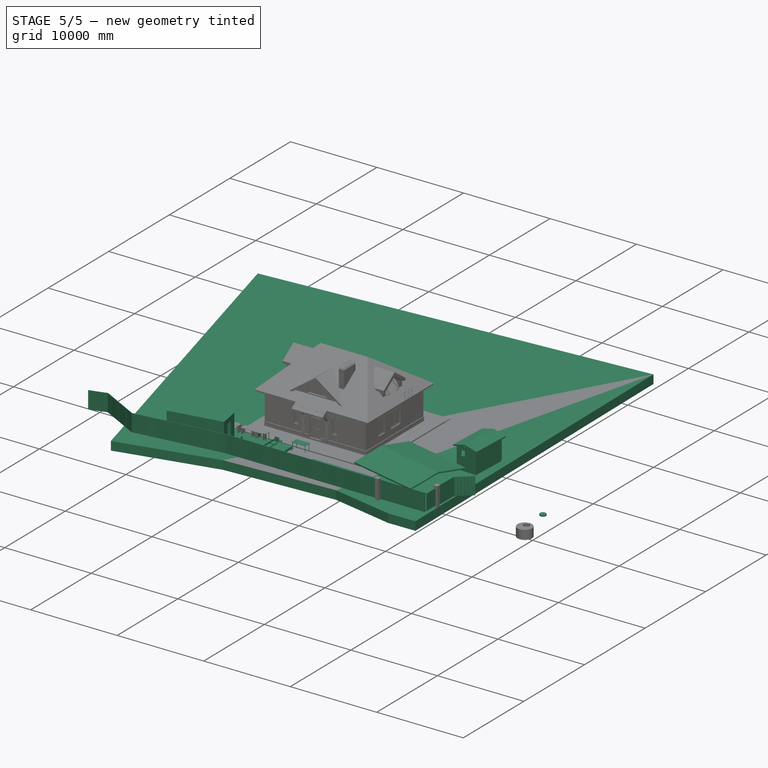
[diagram: stage 5 of 5 — iso view after this stage's code; geometry added in this stage tinted green]
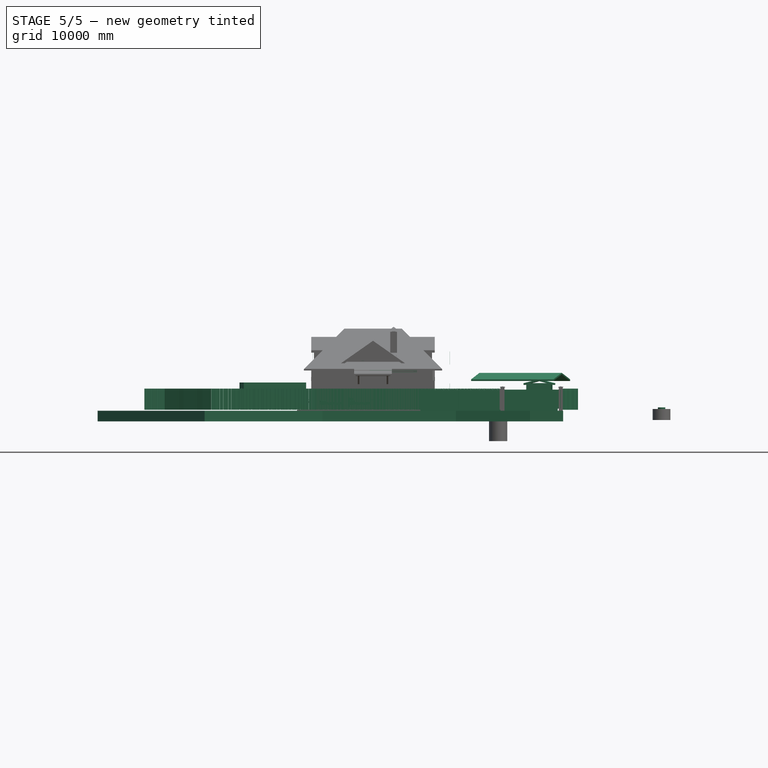
[diagram: stage 5 of 5 — front view after this stage's code; geometry added in this stage tinted green]
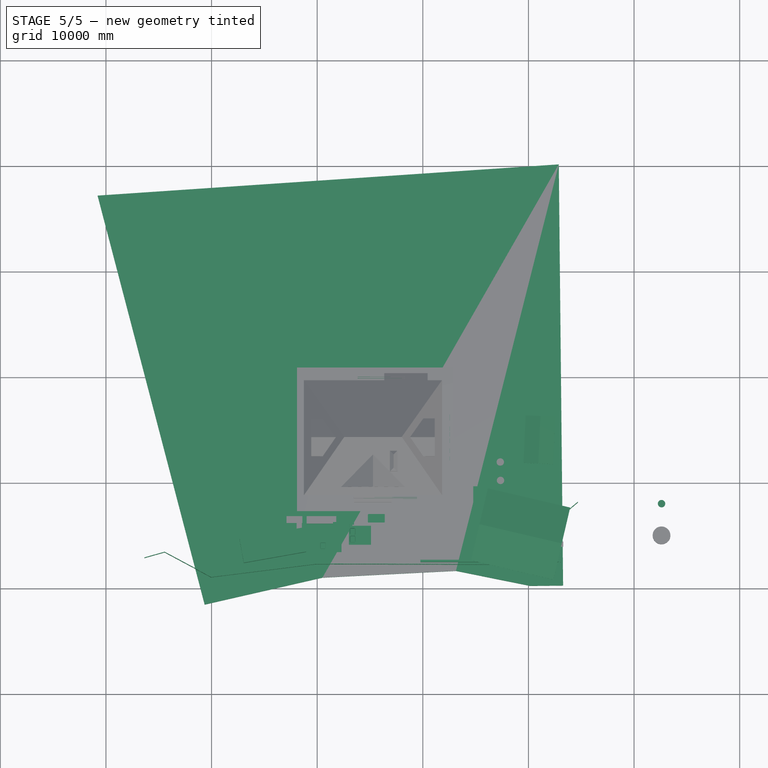
[diagram: stage 5 of 5 — top view after this stage's code; geometry added in this stage tinted green]
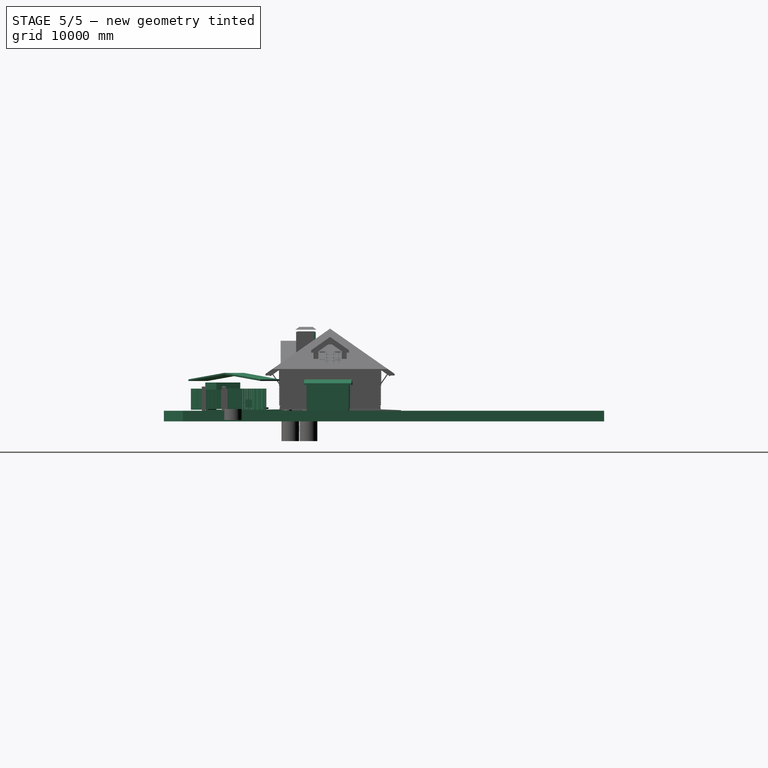
[diagram: stage 5 of 5 — right view after this stage's code; geometry added in this stage tinted green]
FEATURE [Part::Part2DObjectPython] Line1049  # Draft 2D object (typed FeaturePython)
  ChamferSize = 0
  Closed = true
  End = (3805,3080,0)
  FilletRadius = 0
  Length = 6815
  MakeFace = false
  Placement = pos=(4290,9800,0) rot=(0,0,1;1.5708rad)
  Points = (2) [(-6720,-6330,0),(-6720,485,0)]
  Start = (10620,3080,0)
  Subdivisions = 0
FEATURE [Sketcher::SketchObject] Sketch231  label="Профиль ПНО 120-8"
  FullyConstrained = false
  Placement = pos=(9420,5.68e-13,0) rot=(1,0,0;1.5708rad)
  sketch-geometry (19):
    g0: LineSegment StartX=0 StartY=0 StartZ=0 EndX=1190 EndY=0 EndZ=0
    g1: LineSegment StartX=1190 StartY=0 StartZ=0 EndX=1190 EndY=160 EndZ=0
    g2: LineSegment StartX=1190 StartY=160 StartZ=0 EndX=0 EndY=160 EndZ=0
    g3: LineSegment StartX=0 StartY=160 StartZ=0 EndX=0 EndY=0 EndZ=0
    g4: Circle CenterX=100 CenterY=80 CenterZ=0 NormalX=0 NormalY=0 NormalZ=1 AngleXU=0 Radius=50
    g5: Circle CenterX=240 CenterY=80 CenterZ=0 NormalX=0 NormalY=0 NormalZ=1 AngleXU=0 Radius=50
    g6: LineSegment StartX=100 StartY=80 StartZ=0 EndX=240 EndY=80 EndZ=0
    g7: Circle CenterX=380 CenterY=80 CenterZ=0 NormalX=0 NormalY=0 NormalZ=1 AngleXU=0 Radius=50
    g8: LineSegment StartX=240 StartY=80 StartZ=0 EndX=380 EndY=80 EndZ=0
    g9: Circle CenterX=520 CenterY=80 CenterZ=0 NormalX=0 NormalY=0 NormalZ=1 AngleXU=0 Radius=50
    g10: LineSegment StartX=380 StartY=80 StartZ=0 EndX=520 EndY=80 EndZ=0
    g11: Circle CenterX=660 CenterY=80 CenterZ=0 NormalX=0 NormalY=0 NormalZ=1 AngleXU=0 Radius=50
    g12: LineSegment StartX=520 StartY=80 StartZ=0 EndX=660 EndY=80 EndZ=0
    g13: Circle CenterX=800 CenterY=80 CenterZ=0 NormalX=0 NormalY=0 NormalZ=1 AngleXU=0 Radius=50
    g14: LineSegment StartX=660 StartY=80 StartZ=0 EndX=800 EndY=80 EndZ=0
    g15: Circle CenterX=940 CenterY=80 CenterZ=0 NormalX=0 NormalY=0 NormalZ=1 AngleXU=0 Radius=50
    g16: LineSegment StartX=800 StartY=80 StartZ=0 EndX=940 EndY=80 EndZ=0
    g17: Circle CenterX=1080 CenterY=80 CenterZ=0 NormalX=0 NormalY=0 NormalZ=1 AngleXU=0 Radius=50
    g18: LineSegment StartX=940 StartY=80 StartZ=0 EndX=1080 EndY=80 EndZ=0
  constraints (49):
    c: Coincident(g0,g1)
    c: Coincident(g1,g2)
    c: Coincident(g2,g3)
    c: Coincident(g3,g0)
    c: Horizontal(g0)
    c: Horizontal(g2)
    c: Vertical(g1)
    c: Vertical(g3)
    c: Coincident(g0,g-1)
    c: DistanceY(g3,g3) = 160
    c: DistanceX(g2,g2) = 1190
    c: Diameter(g4) = 100
    c: DistanceY(g4,g2) = 80
    c: Diameter(g5) = 100
    c: Coincident(g4,g6)
    c: Coincident(g5,g6)
    c: Distance(g6) = 140
    c: Angle(g6) = 0
    c: Diameter(g7) = 100
    c: Coincident(g5,g8)
    c: Coincident(g7,g8)
    c: Equal(g6,g8)
    c: Parallel(g8,g6)
    c: Diameter(g9) = 100
    c: Coincident(g7,g10)
    c: Coincident(g9,g10)
    c: Equal(g6,g10)
    c: Parallel(g10,g6)
    c: Diameter(g11) = 100
    c: Coincident(g9,g12)
    c: Coincident(g11,g12)
    c: Equal(g6,g12)
    c: Parallel(g12,g6)
    c: Diameter(g13) = 100
    c: Coincident(g11,g14)
    c: Coincident(g13,g14)
    c: Equal(g6,g14)
    c: Parallel(g14,g6)
    c: Diameter(g15) = 100
    c: Coincident(g13,g16)
    c: Coincident(g15,g16)
    c: Equal(g6,g16)
    c: Parallel(g16,g6)
    c: Diameter(g17) = 100
    c: Coincident(g15,g18)
    c: Coincident(g17,g18)
    c: Equal(g6,g18)
    c: Parallel(g18,g6)
    c: DistanceX(g2,g4) = 100
FEATURE [Part::Part2DObjectPython] Circle073  label="люк_контур 001"  # Draft 2D object (typed FeaturePython)
  FirstAngle = 0
  LastAngle = 0
  MakeFace = false
  Placement = pos=(32600,-2000,0) rot=(0,0,1;0rad)
  Radius = 350
FEATURE [Part::FeaturePython] Structure044  label="люк контур Д700"  # Arch/BIM 52 (typed FeaturePython)
  Base = -> Circle073
  FaceMaker = 0
  Height = 150
  HorizontalArea = 384845
  IfcData = complex_attributes={"OwnerHistory": {}, "IsNestedBy": {}, "IsDecomposedBy": {}, "IsDefinedBy": {}, "ObjectPlacement": {}, "Representation":... (+4 chars omitted)
  IfcType = 52
  Length = 0
  MoveBase = false
  MoveWithHost = false
  Nodes = (2) [(32600,-2000,0),(32600,-2000,-150)]
  NodesOffset = 0
  Normal = (0,0,-1)
  PerimeterLength = 2199.11
  VerticalArea = 329867
  Width = 100
FEATURE [Part::Part2DObjectPython] Line1077  # Draft 2D object (typed FeaturePython)
  ChamferSize = 0
  Closed = true
  End = (-50,-45,0)
  FilletRadius = 0
  Length = 10670
  MakeFace = false
  Placement = pos=(12060,265,0) rot=(0,0,1;0rad)
  Points = (2) [(-1440,-310,0),(-12110,-310,0)]
  Start = (10620,-45,0)
  Subdivisions = 0
FEATURE [App::FeaturePython] Dimension003  # Draft dimension (typed FeaturePython)
  Diameter = false
  Dimline = (12209.6,200,0)
  Direction = (0,0,0)
  Distance = 9480
  End = (11130,8925,0)
  Normal = (0,0,1)
  Start = (11130,-555,0)
FEATURE [Sketcher::SketchObject] Sketch248
  FullyConstrained = true
  Placement = pos=(2535,4425,0) rot=(1,0,0;1.5708rad)
  sketch-geometry (8):
    g0: LineSegment StartX=0 StartY=0 StartZ=0 EndX=900 EndY=0 EndZ=0
    g1: LineSegment StartX=900 StartY=0 StartZ=0 EndX=900 EndY=2350 EndZ=0
    g2: LineSegment StartX=900 StartY=2350 StartZ=0 EndX=0 EndY=2350 EndZ=0
    g3: LineSegment StartX=0 StartY=2350 StartZ=0 EndX=0 EndY=0 EndZ=0
    g4: LineSegment StartX=50 StartY=0 StartZ=0 EndX=850 EndY=0 EndZ=0
    g5: LineSegment StartX=850 StartY=0 StartZ=0 EndX=850 EndY=2300 EndZ=0
    g6: LineSegment StartX=850 StartY=2300 StartZ=0 EndX=50 EndY=2300 EndZ=0
    g7: LineSegment StartX=50 StartY=2300 StartZ=0 EndX=50 EndY=0 EndZ=0
  constraints (23):
    c: Coincident(g0,g1)
    c: Coincident(g1,g2)
    c: Coincident(g2,g3)
    c: Coincident(g3,g0)
    c: Horizontal(g0)
    c: Horizontal(g2)
    c: Vertical(g1)
    c: Vertical(g3)
    c: Coincident(g4,g5)
    c: Coincident(g5,g6)
    c: Coincident(g6,g7)
    c: Coincident(g7,g4)
    c: Horizontal(g4)
    c: Horizontal(g6)
    c: Vertical(g5)
    c: Vertical(g7)
    c: DistanceY(g1) = 2350  'Height'
    c: DistanceX(g0) = 900  'Width'
    c: DistanceY(g6,g2) = 50  'Frame1'
    c: DistanceX(g2,g6) = 50  'Frame2'
    c: DistanceX(g4,g0) = 50  'Frame3'
    c: DistanceY(g0,g4) = 0
    c: Coincident(g0,g-1)
FEATURE [Part::Part2DObjectPython] Wire460  label="границы участка"  # Draft 2D object (typed FeaturePython)
  ChamferSize = 0
  Closed = true
  End = (22874.1,30129.8,0)
  FilletRadius = 0
  Length = 158052
  MakeFace = false
  Placement = pos=(23176,-9373.41,0) rot=(0,0,1;0.07806rad)
  Points = (7) [(76.4563,-379.058,0),(-3044.49,-167.534,0),(-9930.36,1793.89,0),(-22577.8,2140.56,0),(-33896.2,466.825,0),(-40981.4,39865.2,0),(2779.54,39406.5,0)]
  Start = (23281.8,-9745.35,0)
  Subdivisions = 0
FEATURE [Part::FeaturePython] Structure133  label="грунт в границах участка"  # Arch/BIM 52 (typed FeaturePython)
  Base = -> Wire460
  FaceMaker = 0
  Height = 1000
  HorizontalArea = 1.49449e+09
  IfcData = complex_attributes={"OwnerHistory": {}, "IsNestedBy": {}, "IsDecomposedBy": {}, "IsDefinedBy": {}, "ObjectPlacement": {}, "Representation":... (+4 chars omitted)
  IfcType = 52
  Length = 0
  MoveBase = false
  MoveWithHost = false
  Nodes = (2) [(5892.5,11504.2,0),(5892.5,11504.2,-1000)]
  NodesOffset = 0
  Normal = (0,0,-1)
  PerimeterLength = 158052
  Placement = pos=(0,0,-320) rot=(0,0,1;0rad)
  VerticalArea = 1.58052e+08
  Width = 100
FEATURE [Part::Part2DObjectPython] Wire464  label="мауэрлат003"  # Draft 2D object (typed FeaturePython)
  ChamferSize = 0
  Closed = true
  End = (14568.5,-7412.72,0)
  FilletRadius = 0
  Length = 30000
  MakeFace = false
  Placement = pos=(20304,-1451.15,0) rot=(0,0,-1;0.229406rad)
  Points = (4) [(3770.46,-7109.62,0),(3770.46,-109.624,0),(-4229.54,-109.624,0),(-4229.54,-7109.62,0)]
  Start = (22359,-9231.91,0)
  Subdivisions = 0
FEATURE [Part::Part2DObjectPython] Rectangle2375  # Draft 2D object (typed FeaturePython)
  ChamferSize = 0
  Columns = 1
  FilletRadius = 0
  Height = 150
  Length = 800
  MakeFace = true
  Placement = pos=(-1461.06,-5083.09,0) rot=(0,0,-1;1.39508rad)
  Rows = 1
FEATURE [Part::Part2DObjectPython] Rectangle2376  # Draft 2D object (typed FeaturePython)
  ChamferSize = 0
  Columns = 1
  FilletRadius = 0
  Height = 150
  Length = 500
  MakeFace = true
  Placement = pos=(-6959.67,-6719.51,0) rot=(0,0,1;1.74651rad)
  Rows = 1
FEATURE [Part::Part2DObjectPython] Rectangle2377  # Draft 2D object (typed FeaturePython)
  ChamferSize = 0
  Columns = 1
  FilletRadius = 0
  Height = 2300
  Length = 6000
  MakeFace = false
  Placement = pos=(-1444.48,-4318.42,0) rot=(0,0,1;3.31731rad)
  Rows = 1
FEATURE [Part::FeaturePython] Roof011  label="Навес над парковкой"  # Arch/BIM 113 (typed FeaturePython)
  Angles = [90,10,90,10]
  Base = -> Wire464
  BorderLength = 0
  Face = 0
  Flip = false
  Heights = [0,617.144,0,617.144]
  HorizontalArea = 5.6e+07
  IdRel = [0,0,0,0]
  IfcType = 113
  MoveBase = false
  MoveWithHost = false
  Overhang = [0,0,0,0]
  PerimeterLength = 30000
  Placement = pos=(0,0,2500) rot=(0,0,1;0rad)
  PredefinedType = 0
  RidgeLength = 0
  Runs = [0,3500,0,3500]
  Thickness = [150,150,150,150]
  VerticalArea = 7.00644e+06
FEATURE [Part::FeaturePython] Structure135  label="Structure134"  # Arch/BIM 52 (typed FeaturePython)
  Base = -> Rectangle2375
  FaceMaker = 0
  Height = 1800
  HorizontalArea = 120000
  IfcData = complex_attributes={"OwnerHistory": {}, "IsNestedBy": {}, "IsDecomposedBy": {}, "IsDefinedBy": {}, "ObjectPlacement": {}, "Representation":... (+4 chars omitted)
  IfcType = 52
  Length = 0
  MoveBase = false
  MoveWithHost = false
  Nodes = (2) [(-35.6948,-25773.1,0),(-35.6948,-25773.1,1800)]
  NodesOffset = 0
  Normal = (0,0,0)
  PerimeterLength = 1900
  VerticalArea = 3.42e+06
  Width = 100
FEATURE [Part::FeaturePython] Structure136  label="Structure135"  # Arch/BIM 52 (typed FeaturePython)
  Base = -> Rectangle2376
  FaceMaker = 0
  Height = 600
  HorizontalArea = 75000
  IfcData = complex_attributes={"OwnerHistory": {}, "IsNestedBy": {}, "IsDecomposedBy": {}, "IsDefinedBy": {}, "ObjectPlacement": {}, "Representation":... (+4 chars omitted)
  IfcType = 52
  Length = 0
  MoveBase = false
  MoveWithHost = false
  Nodes = (2) [(1351.07,-25965.1,0),(1351.07,-25965.1,600)]
  NodesOffset = 0
  Normal = (0,0,0)
  PerimeterLength = 1300
  Placement = pos=(0,-4e-15,1240) rot=(0,0,1;0rad)
  VerticalArea = 780000
  Width = 100
FEATURE [Part::FeaturePython] Wall097  label="Wall007"  # Arch/BIM 166 (typed FeaturePython)
  Align = 1
  Area = 4.067e+07
  Base = -> Rectangle2377
  BlockHeight = 0
  BlockLength = 0
  CountBroken = 0
  CountEntire = 0
  Face = 0
  Height = 2450
  HorizontalArea = 2.595e+06
  IfcType = 166
  Joint = 0
  Length = 16600
  MakeBlocks = false
  MoveBase = false
  MoveWithHost = false
  Normal = (0,0,0)
  OffsetFirst = 0
  OffsetSecond = 0
  PerimeterLength = 12600
  Placement = pos=(0,0,-150) rot=(0,0,1;0rad)
  PredefinedType = 0
  Subtractions = -> [Structure136,Structure135]
  VerticalArea = 7.564e+07
  Width = 150
FEATURE [Sketcher::SketchObject] Sketch250  label="Габарит человека"
  FullyConstrained = false
  Placement = pos=(0,0,0) rot=(1,0,0;1.5708rad)
  sketch-geometry (21):
    g0: LineSegment StartX=-250 StartY=0 StartZ=0 EndX=250 EndY=0 EndZ=0
    g1: LineSegment StartX=250 StartY=0 StartZ=0 EndX=250 EndY=1750 EndZ=0
    g2: LineSegment StartX=250 StartY=1750 StartZ=0 EndX=-250 EndY=1750 EndZ=0
    g3: LineSegment StartX=-250 StartY=1750 StartZ=0 EndX=-250 EndY=0 EndZ=0
    g4: LineSegment StartX=85 StartY=1500 StartZ=0 EndX=85 EndY=1750 EndZ=0
    g5: LineSegment StartX=85 StartY=1750 StartZ=0 EndX=-85 EndY=1750 EndZ=0
    g6: LineSegment StartX=-85 StartY=1750 StartZ=0 EndX=-85 EndY=1500 EndZ=0
    g7: LineSegment StartX=250 StartY=750 StartZ=0 EndX=250 EndY=1500 EndZ=0
    g8: LineSegment StartX=-250 StartY=1500 StartZ=0 EndX=-250 EndY=750 EndZ=0
    g9: LineSegment StartX=-110 StartY=0 StartZ=0 EndX=110 EndY=0 EndZ=0
    g10: LineSegment StartX=110 StartY=0 StartZ=0 EndX=175 EndY=750 EndZ=0
    g11: LineSegment StartX=-175 StartY=750 StartZ=0 EndX=-110 EndY=0 EndZ=0
    g12: GeomPoint X=0 Y=750 Z=0
    g13: GeomPoint X=-110 Y=0 Z=0
    g14: GeomPoint X=110 Y=0 Z=0
    g15: GeomPoint X=175 Y=750 Z=0
    g16: GeomPoint X=-175 Y=750 Z=0
    g17: LineSegment StartX=-250 StartY=1500 StartZ=0 EndX=-85 EndY=1500 EndZ=0
    g18: LineSegment StartX=85 StartY=1500 StartZ=0 EndX=250 EndY=1500 EndZ=0
    g19: LineSegment StartX=-250 StartY=750 StartZ=0 EndX=-175 EndY=750 EndZ=0
    g20: LineSegment StartX=175 StartY=750 StartZ=0 EndX=250 EndY=750 EndZ=0
  constraints (50):
    c: Coincident(g0,g1)
    c: Coincident(g1,g2)
    c: Coincident(g2,g3)
    c: Coincident(g3,g0)
    c: Horizontal(g0)
    c: Horizontal(g2)
    c: Vertical(g1)
    c: Vertical(g3)
    c: Symmetric(g0,g0,g-1)
    c: DistanceX(g2,g2) = 500
    c: DistanceY(g1,g1) = 1750
    c: Coincident(g4,g5)
    c: Coincident(g5,g6)
    c: Horizontal(g5)
    c: Vertical(g4)
    c: Vertical(g6)
    c: Vertical(g7)
    c: Vertical(g8)
    c: Coincident(g9,g10)
    c: DistanceX(g5,g5) = 170
    c: DistanceY(g4,g4) = 250
    c: PointOnObject(g4,g2)
    c: Symmetric(g6,g4,g-2)
    c: PointOnObject(g8,g3)
    c: PointOnObject(g7,g1)
    c: Coincident(g9,g11)
    c: DistanceX(g9,g9) = 220
    c: DistanceY(g0,g7) = 750
    c: PointOnObject(g12,g-2)
    c: Coincident(g13,g9)
    c: Coincident(g14,g9)
    c: Symmetric(g13,g14,g-2)
    c: PointOnObject(g14,g0)
    c: Coincident(g15,g10)
    c: Symmetric(g15,g16,g-2)
    c: DistanceX(g16,g15) = 350
    c: Coincident(g17,g8)
    c: Coincident(g17,g6)
    c: Horizontal(g17)
    c: Coincident(g18,g4)
    c: Coincident(g18,g7)
    c: Horizontal(g18)
    c: Coincident(g19,g8)
    c: Coincident(g19,g11)
    c: Horizontal(g19)
    c: Coincident(g20,g10)
    c: Coincident(g20,g7)
    c: Horizontal(g20)
    c: Equal(g19,g20)
    c: Equal(g11,g10)
FEATURE [Part::Extrusion] Extrude007  label="Габарит человека 001"
  Base = -> Sketch250
  Dir = (0,-1,2e-16)
  DirMode = 2
  FaceMakerClass = Part::FaceMakerBullseye
  LengthFwd = 290
  LengthRev = 0
  Placement = pos=(5755,5100,0) rot=(0,0,1;1.5708rad)
  Solid = true
  Symmetric = false
FEATURE [Part::Extrusion] Extrude008  label="Габарит человека 002"
  Base = -> Sketch250
  Dir = (0,-1,2e-16)
  DirMode = 2
  FaceMakerClass = Part::FaceMakerBullseye
  LengthFwd = 290
  LengthRev = 0
  Placement = pos=(6196.11,7744.63,925) rot=(0,0,1;0rad)
  Solid = true
  Symmetric = false
FEATURE [Part::Part2DObjectPython] Rectangle2381  # Draft 2D object (typed FeaturePython)
  ChamferSize = 0
  Columns = 1
  FilletRadius = 0
  Height = 1045
  Length = 3080
  MakeFace = false
  Placement = pos=(3745,-1680,0) rot=(0,0,1;0rad)
  Rows = 1
FEATURE [Image::ImagePlane] ImagePlane  label="План участка"
  Placement = pos=(-1154.86,18598.9,-1100) rot=(0,0,1;3.21962rad)
  XSize = 103541
  YSize = 98696.8
FEATURE [Sketcher::SketchObject] Sketch251
  FullyConstrained = true
  Placement = pos=(6075,1465,0) rot=(0.57735,0.57735,0.57735;2.0944rad)
  sketch-geometry (8):
    g0: LineSegment StartX=0 StartY=0 StartZ=0 EndX=800 EndY=0 EndZ=0
    g1: LineSegment StartX=800 StartY=0 StartZ=0 EndX=800 EndY=2350 EndZ=0
    g2: LineSegment StartX=800 StartY=2350 StartZ=0 EndX=0 EndY=2350 EndZ=0
    g3: LineSegment StartX=0 StartY=2350 StartZ=0 EndX=0 EndY=0 EndZ=0
    g4: LineSegment StartX=50 StartY=0 StartZ=0 EndX=750 EndY=0 EndZ=0
    g5: LineSegment StartX=750 StartY=0 StartZ=0 EndX=750 EndY=2300 EndZ=0
    g6: LineSegment StartX=750 StartY=2300 StartZ=0 EndX=50 EndY=2300 EndZ=0
    g7: LineSegment StartX=50 StartY=2300 StartZ=0 EndX=50 EndY=0 EndZ=0
  constraints (23):
    c: Coincident(g0,g1)
    c: Coincident(g1,g2)
    c: Coincident(g2,g3)
    c: Coincident(g3,g0)
    c: Horizontal(g0)
    c: Horizontal(g2)
    c: Vertical(g1)
    c: Vertical(g3)
    c: Coincident(g4,g5)
    c: Coincident(g5,g6)
    c: Coincident(g6,g7)
    c: Coincident(g7,g4)
    c: Horizontal(g4)
    c: Horizontal(g6)
    c: Vertical(g5)
    c: Vertical(g7)
    c: DistanceY(g1) = 2350  'Height'
    c: DistanceX(g0) = 800  'Width'
    c: DistanceY(g6,g2) = 50  'Frame1'
    c: DistanceX(g2,g6) = 50  'Frame2'
    c: DistanceX(g4,g0) = 50  'Frame3'
    c: DistanceY(g0,g4) = 0
    c: Coincident(g0,g-1)
FEATURE [App::FeaturePython] Dimension004  # Draft dimension (typed FeaturePython)
  Diameter = false
  Dimline = (-1400,-400,0)
  Direction = (0,0,0)
  Distance = 3315
  End = (-1654.18,3080,0)
  Normal = (0,0,1)
  Start = (-1654.18,-235,0)
FEATURE [App::FeaturePython] Dimension006  # Draft dimension (typed FeaturePython)
  Diameter = false
  Dimline = (-1400,3680,0)
  Direction = (0,0,0)
  Distance = 5525
  End = (-1654.18,8605,0)
  Normal = (0,0,1)
  Start = (-1654.18,3080,0)
FEATURE [Part::Part2DObjectPython] Line1184  label="Line1179"  # Draft 2D object (typed FeaturePython)
  ChamferSize = 0
  Closed = true
  End = (7880,-565,0)
  FilletRadius = 0
  Length = 770
  MakeFace = true
  Placement = pos=(7760,-565,0) rot=(0,0,-1;0rad)
  Points = (2) [(-650,1.36424e-12,0),(120,1.36424e-12,0)]
  Start = (7110,-565,0)
  Subdivisions = 0
FEATURE [Part::Part2DObjectPython] Line1186  # Draft 2D object (typed FeaturePython)
  ChamferSize = 0
  Closed = true
  End = (4890,8935,0)
  FilletRadius = 0
  Length = 3760
  MakeFace = true
  Placement = pos=(1650,8935,0) rot=(0,0,1;0rad)
  Points = (2) [(-520,0,0),(3240,0,0)]
  Start = (1130,8935,0)
  Subdivisions = 0
FEATURE [Part::Part2DObjectPython] Line1191  label="Line1184"  # Draft 2D object (typed FeaturePython)
  ChamferSize = 0
  Closed = true
  End = (3460,-565,0)
  FilletRadius = 0
  Length = 770
  MakeFace = true
  Placement = pos=(4120,-595,0) rot=(0,0,-1;0rad)
  Points = (2) [(-1430,30,0),(-660,30,0)]
  Start = (2690,-565,0)
  Subdivisions = 0
FEATURE [Sketcher::SketchObject] Sketch260
  FullyConstrained = true
  Placement = pos=(4160,4425,-180) rot=(1,0,0;1.5708rad)
  sketch-geometry (8):
    g0: LineSegment StartX=0 StartY=0 StartZ=0 EndX=900 EndY=0 EndZ=0
    g1: LineSegment StartX=900 StartY=0 StartZ=0 EndX=900 EndY=2350 EndZ=0
    g2: LineSegment StartX=900 StartY=2350 StartZ=0 EndX=0 EndY=2350 EndZ=0
    g3: LineSegment StartX=0 StartY=2350 StartZ=0 EndX=0 EndY=0 EndZ=0
    g4: LineSegment StartX=50 StartY=0 StartZ=0 EndX=850 EndY=0 EndZ=0
    g5: LineSegment StartX=850 StartY=0 StartZ=0 EndX=850 EndY=2300 EndZ=0
    g6: LineSegment StartX=850 StartY=2300 StartZ=0 EndX=50 EndY=2300 EndZ=0
    g7: LineSegment StartX=50 StartY=2300 StartZ=0 EndX=50 EndY=0 EndZ=0
  constraints (23):
    c: Coincident(g0,g1)
    c: Coincident(g1,g2)
    c: Coincident(g2,g3)
    c: Coincident(g3,g0)
    c: Horizontal(g0)
    c: Horizontal(g2)
    c: Vertical(g1)
    c: Vertical(g3)
    c: Coincident(g4,g5)
    c: Coincident(g5,g6)
    c: Coincident(g6,g7)
    c: Coincident(g7,g4)
    c: Horizontal(g4)
    c: Horizontal(g6)
    c: Vertical(g5)
    c: Vertical(g7)
    c: DistanceY(g1) = 2350  'Height'
    c: DistanceX(g0) = 900  'Width'
    c: DistanceY(g6,g2) = 50  'Frame1'
    c: DistanceX(g2,g6) = 50  'Frame2'
    c: DistanceX(g4,g0) = 50  'Frame3'
    c: DistanceY(g0,g4) = 0
    c: Coincident(g0,g-1)
FEATURE [Part::Part2DObjectPython] Line1200  label="Line1202"  # Draft 2D object (typed FeaturePython)
  ChamferSize = 0
  Closed = true
  End = (6125,2955,0)
  FilletRadius = 0
  Length = 2070
  MakeFace = false
  Placement = pos=(3655,600,0) rot=(0,0,-1;1.5708rad)
  Points = (2) [(-285,2470,0),(-2355,2470,0)]
  Start = (6125,885,0)
  Subdivisions = 0
FEATURE [Part::Extrusion] Extrude012  label="Габарит человека 003"
  Base = -> Sketch250
  Dir = (0,-1,2e-16)
  DirMode = 2
  FaceMakerClass = Part::FaceMakerBullseye
  LengthFwd = 290
  LengthRev = 0
  Placement = pos=(9805.7,6221.35,3145) rot=(0,0,1;0rad)
  Solid = true
  Symmetric = false
FEATURE [Part::Extrusion] Extrude022  label="Габарит человека 004"
  Base = -> Sketch250
  Dir = (0,-1,2e-16)
  DirMode = 2
  FaceMakerClass = Part::FaceMakerBullseye
  LengthFwd = 290
  LengthRev = 0
  Placement = pos=(4150.07,577.153,3145) rot=(0,0,1;0rad)
  Solid = true
  Symmetric = false
FEATURE [Part::Part2DObjectPython] Line1391  # Draft 2D object (typed FeaturePython)
  ChamferSize = 0
  Closed = true
  End = (6795,5675,0)
  FilletRadius = 0
  Length = 1200
  MakeFace = false
  Placement = pos=(6800,9505,0) rot=(0,0,1;0rad)
  Points = (2) [(-5,-2630,0),(-5,-3830,0)]
  Start = (6795,6875,0)
  Subdivisions = 0
FEATURE [Sketcher::SketchObject] Sketch309
  FullyConstrained = true
  Placement = pos=(3535,7375,0) rot=(0.57735,0.57735,0.57735;2.0944rad)
  sketch-geometry (8):
    g0: LineSegment StartX=0 StartY=0 StartZ=0 EndX=900 EndY=0 EndZ=0
    g1: LineSegment StartX=900 StartY=0 StartZ=0 EndX=900 EndY=2350 EndZ=0
    g2: LineSegment StartX=900 StartY=2350 StartZ=0 EndX=0 EndY=2350 EndZ=0
    g3: LineSegment StartX=0 StartY=2350 StartZ=0 EndX=0 EndY=0 EndZ=0
    g4: LineSegment StartX=50 StartY=0 StartZ=0 EndX=850 EndY=0 EndZ=0
    g5: LineSegment StartX=850 StartY=0 StartZ=0 EndX=850 EndY=2300 EndZ=0
    g6: LineSegment StartX=850 StartY=2300 StartZ=0 EndX=50 EndY=2300 EndZ=0
    g7: LineSegment StartX=50 StartY=2300 StartZ=0 EndX=50 EndY=0 EndZ=0
  constraints (23):
    c: Coincident(g0,g1)
    c: Coincident(g1,g2)
    c: Coincident(g2,g3)
    c: Coincident(g3,g0)
    c: Horizontal(g0)
    c: Horizontal(g2)
    c: Vertical(g1)
    c: Vertical(g3)
    c: Coincident(g4,g5)
    c: Coincident(g5,g6)
    c: Coincident(g6,g7)
    c: Coincident(g7,g4)
    c: Horizontal(g4)
    c: Horizontal(g6)
    c: Vertical(g5)
    c: Vertical(g7)
    c: DistanceY(g1) = 2350  'Height'
    c: DistanceX(g0) = 900  'Width'
    c: DistanceY(g6,g2) = 50  'Frame1'
    c: DistanceX(g2,g6) = 50  'Frame2'
    c: DistanceX(g4,g0) = 50  'Frame3'
    c: DistanceY(g0,g4) = 0
    c: Coincident(g0,g-1)
FEATURE [Part::Part2DObjectPython] Wire812  # Draft 2D object (typed FeaturePython)
  Area = 0
  ChamferSize = 0
  Closed = true
  End = (6020,5565,0)
  FilletRadius = 0
  Length = 2372.43
  MakeFace = false
  Placement = pos=(6875,5565,0) rot=(0,0,-1;1.5708rad)
  Points = (10) [(6.36646e-12,-45,0),(360,-45,0),(360,-184.29,0),(393.033,-216.967,0),(410,-275,0),(410,-625,0),(393.033,-683.033,0),(360,-715.711,0),(360,-855,0),+1 more]
  Start = (6830,5565,0)
  Subdivisions = 0
FEATURE [Part::FeaturePython] Structure346  label="Структура007"  # Arch/BIM 52 (typed FeaturePython)
  FaceMaker = 0
  Height = 100
  HorizontalArea = 120171
  IfcData = attributes={"GlobalId": {"name": "GlobalId", "type": "IfcGloballyUniqueId", "is_enum": false, "enum_values": []}, "Description": {"... (+484 chars omitted),+1 more (map truncated)
  IfcType = 52
  Length = 0
  MoveBase = false
  MoveWithHost = false
  Nodes = (2) [(6380,5325,0),(6380,5325,100)]
  NodesOffset = 0
  Normal = (0,0,1)
  PerimeterLength = 1371.24
  Placement = pos=(0,0,900) rot=(0,0,1;0rad)
  VerticalArea = 137124
  Width = 100
FEATURE [Part::Part2DObjectPython] Wire817  label="кровля_контур_обрезки"  # Draft 2D object (typed FeaturePython)
  Area = 0
  ChamferSize = 0
  Closed = true
  End = (3495,-1255,0)
  FilletRadius = 0
  Length = 50640
  MakeFace = false
  Placement = pos=(-1210,-1210,0) rot=(0,0,1;0rad)
  Points = (12) [(-50,-45,0),(-50,10835,0),(7565,10835,0),(7565,11510,0),(11665,11510,0),(11665,10835,0),(13040,10835,0),(13040,-45,0),(8285,-45,0),(8285,-720,0),+2 more]
  Start = (-1260,-1255,0)
  Subdivisions = 0
FEATURE [Part::Part2DObjectPython] Rectangle3216  # Draft 2D object (typed FeaturePython)
  Area = 0
  ChamferSize = 0
  Columns = 1
  FilletRadius = 0
  Height = 5500
  Length = 13500
  MakeFace = false
  Placement = pos=(-1465,1435,0) rot=(0,0,-1;0rad)
  Rows = 1
FEATURE [Part::Part2DObjectPython] Line1465  # Draft 2D object (typed FeaturePython)
  Area = 0
  ChamferSize = 0
  Closed = true
  End = (8191.11,4054.69,3200)
  FilletRadius = 0
  Length = 3200
  MakeFace = true
  Placement = pos=(7846.11,4054.69,0) rot=(0,0,1;0rad)
  Points = (2) [(345,1.81899e-12,0),(345,1.81899e-12,3200)]
  Start = (8191.11,4054.69,0)
  Subdivisions = 0
FEATURE [Part::Part2DObjectPython] Rectangle3284  # Draft 2D object (typed FeaturePython)
  Area = 0
  ChamferSize = 0
  Columns = 1
  FilletRadius = 0
  Height = 11690
  Length = 3590
  MakeFace = false
  Placement = pos=(-560,5980,0) rot=(0,0,-1;1.5708rad)
  Rows = 1
FEATURE [Part::Part2DObjectPython] Line1478  # Draft 2D object (typed FeaturePython)
  Area = 0
  ChamferSize = 0
  Closed = true
  End = (8915,2029.8,6981)
  FilletRadius = 0
  Length = 0
  MakeFace = false
  Placement = pos=(8915,2029.8,6981) rot=(0,0,1;0rad)
  Points = (2) [(0,0,0),(0,0,0)]
  Start = (8915,2029.8,6981)
  Subdivisions = 0
FEATURE [Part::Part2DObjectPython] Line1479  # Draft 2D object (typed FeaturePython)
  Area = 0
  ChamferSize = 0
  Closed = true
  End = (10270,682.149,2381)
  FilletRadius = 0
  Length = 400
  MakeFace = false
  Placement = pos=(10270,682.149,6981) rot=(0,0,1;0rad)
  Points = (2) [(0,2.50111e-12,-5000),(0,2.27374e-12,-4600)]
  Start = (10270,682.149,1981)
  Subdivisions = 0
FEATURE [Part::Part2DObjectPython] Line1481  # Draft 2D object (typed FeaturePython)
  Area = 0
  ChamferSize = 0
  Closed = false
  End = (9448,-1570,3275.2)
  FilletRadius = 0
  Length = 6000
  MakeFace = false
  Placement = pos=(3448,-1570,3275.2) rot=(1,0,0;0.610865rad)
  Points = (2) [(0,0,0),(6000,0,1.36424e-12)]
  Start = (3448,-1570,3275.2)
  Subdivisions = 0
FEATURE [Part::Part2DObjectPython] Line1482  # Draft 2D object (typed FeaturePython)
  Area = 0
  ChamferSize = 0
  Closed = false
  End = (9448,-1447.13,3361.23)
  FilletRadius = 0
  Length = 6000
  MakeFace = false
  Placement = pos=(3448,-1447.13,3361.23) rot=(1,0,0;0.610865rad)
  Points = (2) [(0,0,0),(6000,2.27374e-13,-9.09495e-13)]
  Start = (3448,-1447.13,3361.23)
  Subdivisions = 0
FEATURE [Part::Part2DObjectPython] Line1483  # Draft 2D object (typed FeaturePython)
  Area = 0
  ChamferSize = 0
  Closed = false
  End = (9448,-1447.13,3461.23)
  FilletRadius = 0
  Length = 6000
  MakeFace = false
  Placement = pos=(3448,-1447.13,3461.23) rot=(1,0,0;0.610865rad)
  Points = (2) [(0,0,0),(6000,2.27374e-13,-9.09495e-13)]
  Start = (3448,-1447.13,3461.23)
  Subdivisions = 0
FEATURE [Part::Part2DObjectPython] Line1484  # Draft 2D object (typed FeaturePython)
  Area = 0
  ChamferSize = 0
  Closed = false
  End = (9448,-1570,3375.2)
  FilletRadius = 0
  Length = 6000
  MakeFace = false
  Placement = pos=(3448,-1570,3375.2) rot=(1,0,0;0.610865rad)
  Points = (2) [(0,0,0),(6000,0,0)]
  Start = (3448,-1570,3375.2)
  Subdivisions = 0
FEATURE [Part::FeaturePython] Pipe014  label="Снегозадержатели 010"  # Arch/BIM 98 (typed FeaturePython)
  Base = -> Line1481
  Diameter = 25
  GlobalId = 3FGB4W65b7$RelxxBEC_I3
  HorizontalArea = 0
  IfcData = IfcUID=3FGB4W65b7$RelxxBEC_I3,+2 more (map truncated)
  IfcType = 98
  Length = 6000
  MoveBase = false
  MoveWithHost = false
  OffsetEnd = 0
  OffsetStart = 0
  PerimeterLength = 0
  Placement = pos=(0,0,50) rot=(0,0,1;0rad)
  PredefinedType = 0
  VerticalArea = 0
  WallThickness = 0
FEATURE [Part::FeaturePython] Pipe015  label="Снегозадержатели 011"  # Arch/BIM 98 (typed FeaturePython)
  Base = -> Line1482
  Diameter = 25
  GlobalId = 0m162zSxL9MvR8JxGsHhMh
  HorizontalArea = 0
  IfcData = IfcUID=0m162zSxL9MvR8JxGsHhMh,+2 more (map truncated)
  IfcType = 98
  Length = 6000
  MoveBase = false
  MoveWithHost = false
  OffsetEnd = 0
  OffsetStart = 0
  PerimeterLength = 0
  Placement = pos=(0,0,50) rot=(0,0,1;0rad)
  PredefinedType = 0
  VerticalArea = 0
  WallThickness = 0
FEATURE [Part::FeaturePython] Pipe016  label="Снегозадержатели 012"  # Arch/BIM 98 (typed FeaturePython)
  Base = -> Line1483
  Diameter = 25
  GlobalId = 1BHvc1NuD0qQo1xGtb2qrX
  HorizontalArea = 0
  IfcData = IfcUID=1BHvc1NuD0qQo1xGtb2qrX,+2 more (map truncated)
  IfcType = 98
  Length = 6000
  MoveBase = false
  MoveWithHost = false
  OffsetEnd = 0
  OffsetStart = 0
  PerimeterLength = 0
  Placement = pos=(0,0,50) rot=(0,0,1;0rad)
  PredefinedType = 0
  VerticalArea = 0
  WallThickness = 0
FEATURE [Part::FeaturePython] Pipe017  label="Снегозадержатели 001"  # Arch/BIM 98 (typed FeaturePython)
  Base = -> Line1484
  Diameter = 25
  GlobalId = 3Gvi8SLif8WfTz7jjSrXL2
  HorizontalArea = 0
  IfcData = IfcUID=3Gvi8SLif8WfTz7jjSrXL2,+2 more (map truncated)
  IfcType = 98
  Length = 6000
  MoveBase = false
  MoveWithHost = false
  OffsetEnd = 0
  OffsetStart = 0
  PerimeterLength = 0
  Placement = pos=(0,0,50) rot=(0,0,1;0rad)
  PredefinedType = 0
  VerticalArea = 0
  WallThickness = 0
FEATURE [Part::Part2DObjectPython] Line1486  # Draft 2D object (typed FeaturePython)
  Area = 0
  ChamferSize = 0
  Closed = true
  End = (3835,9940,3275.2)
  FilletRadius = 0
  Length = 4460
  MakeFace = false
  Placement = pos=(8295,9940,3275.2) rot=(0,0.300706,0.953717;3.14159rad)
  Points = (2) [(0,0,0),(4460,-5.92209e-05,-8.45762e-05)]
  Start = (8295,9940,3275.2)
  Subdivisions = 0
FEATURE [Part::Part2DObjectPython] Line1487  # Draft 2D object (typed FeaturePython)
  Area = 0
  ChamferSize = 0
  Closed = false
  End = (3835,9817.13,3361.23)
  FilletRadius = 0
  Length = 4460
  MakeFace = false
  Placement = pos=(8295,9817.13,3361.23) rot=(0,0.300706,0.953717;3.14159rad)
  Points = (2) [(0,0,0),(4460,0,0)]
  Start = (8295,9817.13,3361.23)
  Subdivisions = 0
FEATURE [Part::Part2DObjectPython] Line1488  # Draft 2D object (typed FeaturePython)
  Area = 0
  ChamferSize = 0
  Closed = false
  End = (3835,9817.13,3461.23)
  FilletRadius = 0
  Length = 4460
  MakeFace = false
  Placement = pos=(8295,9817.13,3461.23) rot=(0,0.300706,0.953717;3.14159rad)
  Points = (2) [(0,0,0),(4460,1.81899e-12,-1.81899e-12)]
  Start = (8295,9817.13,3461.23)
  Subdivisions = 0
FEATURE [Part::Part2DObjectPython] Line1489  # Draft 2D object (typed FeaturePython)
  Area = 0
  ChamferSize = 0
  Closed = false
  End = (3835,9940,3375.2)
  FilletRadius = 0
  Length = 4460
  MakeFace = false
  Placement = pos=(8295,9940,3375.2) rot=(0,0.300706,0.953717;3.14159rad)
  Points = (2) [(0,0,0),(4460,0,0)]
  Start = (8295,9940,3375.2)
  Subdivisions = 0
FEATURE [Part::FeaturePython] Pipe018  label="Снегозадержатели 013"  # Arch/BIM 98 (typed FeaturePython)
  Base = -> Line1486
  Diameter = 25
  GlobalId = 0psA13S1r3kfjsLgw5ftBB
  HorizontalArea = 0
  IfcData = IfcUID=0psA13S1r3kfjsLgw5ftBB,+2 more (map truncated)
  IfcType = 98
  Length = 4460
  MoveBase = false
  MoveWithHost = false
  OffsetEnd = 0
  OffsetStart = 0
  PerimeterLength = 0
  Placement = pos=(0,0,50) rot=(0,0,1;0rad)
  PredefinedType = 0
  VerticalArea = 0
  WallThickness = 0
FEATURE [Part::FeaturePython] Pipe019  label="Снегозадержатели 014"  # Arch/BIM 98 (typed FeaturePython)
  Base = -> Line1487
  Diameter = 25
  GlobalId = 1ajV3GjIH90PewpSEaAIL9
  HorizontalArea = 0
  IfcData = IfcUID=1ajV3GjIH90PewpSEaAIL9,+2 more (map truncated)
  IfcType = 98
  Length = 4460
  MoveBase = false
  MoveWithHost = false
  OffsetEnd = 0
  OffsetStart = 0
  PerimeterLength = 0
  Placement = pos=(0,0,50) rot=(0,0,1;0rad)
  PredefinedType = 0
  VerticalArea = 0
  WallThickness = 0
FEATURE [Part::FeaturePython] Pipe020  label="Снегозадержатели 015"  # Arch/BIM 98 (typed FeaturePython)
  Base = -> Line1488
  Diameter = 25
  GlobalId = 3F76V0rxL2cvmgn6TVRcv1
  HorizontalArea = 0
  IfcData = IfcUID=3F76V0rxL2cvmgn6TVRcv1,+2 more (map truncated)
  IfcType = 98
  Length = 4460
  MoveBase = false
  MoveWithHost = false
  OffsetEnd = 0
  OffsetStart = 0
  PerimeterLength = 0
  Placement = pos=(0,0,50) rot=(0,0,1;0rad)
  PredefinedType = 0
  VerticalArea = 0
  WallThickness = 0
FEATURE [Part::FeaturePython] Pipe021  label="Снегозадержатели 016"  # Arch/BIM 98 (typed FeaturePython)
  Base = -> Line1489
  Diameter = 25
  GlobalId = 2T$R0KaZDBcBfa4GgFt7Wm
  HorizontalArea = 0
  IfcData = IfcUID=2T$R0KaZDBcBfa4GgFt7Wm,+2 more (map truncated)
  IfcType = 98
  Length = 4460
  MoveBase = false
  MoveWithHost = false
  OffsetEnd = 0
  OffsetStart = 0
  PerimeterLength = 0
  Placement = pos=(0,0,50) rot=(0,0,1;0rad)
  PredefinedType = 0
  VerticalArea = 0
  WallThickness = 0
FEATURE [TechDraw::DrawSVGTemplate] Template002
  EditableTexts = Лист=4; Номер=ИЖС-2022.0003
  Height = 297
  Orientation = 1
  Width = 420
FEATURE [App::FeaturePython] Dimension026  # Draft dimension (typed FeaturePython)
  Diameter = false
  Dimline = (4465.71,3338.72,0)
  Direction = (0,0,0)
  Distance = 1400
  End = (6005,3225,0)
  Normal = (0,0,1)
  Start = (4605,3225,0)
FEATURE [App::FeaturePython] Dimension027  # Draft dimension (typed FeaturePython)
  Diameter = false
  Dimline = (9700,3400,0)
  Direction = (0,0,0)
  Distance = 780
  End = (10600,3225,0)
  Normal = (0,0,1)
  Start = (9820,3225,0)
FEATURE [App::GeometryPython] BuildingPart096  label="IFC_export"  # Arch/BIM 111 (typed FeaturePython)
  Area = 0
  GlobalId = 0M_P_ho1jD6Ar$JhrFI58w
  Height = 0
  HeightPropagate = true
  IfcData = IfcUID=0M_P_ho1jD6Ar$JhrFI58w,+2 more (map truncated)
  IfcType = 111
  LevelOffset = 0
FEATURE [Part::Part2DObjectPython] Circle123  label="Circle124"  # Draft 2D object (typed FeaturePython)
  Area = 0
  FirstAngle = 0
  LastAngle = 0
  MakeFace = false
  Placement = pos=(-1854.18,8605,0) rot=(0,0,1;0rad)
  Radius = 200
FEATURE [Part::Part2DObjectPython] ShapeString193  # Draft 2D object (typed FeaturePython)
  FontFile = <path>
  Placement = pos=(-1950.61,8511.85,0) rot=(0,0,1;0rad)
  Size = 200
  String = C
  Tracking = 0
FEATURE [Part::Part2DObjectPython] Circle124  label="Circle125"  # Draft 2D object (typed FeaturePython)
  Area = 0
  FirstAngle = 0
  LastAngle = 0
  MakeFace = false
  Placement = pos=(-1854.18,3080,0) rot=(0,0,1;0rad)
  Radius = 200
FEATURE [Part::Part2DObjectPython] ShapeString194  # Draft 2D object (typed FeaturePython)
  FontFile = <path>
  Placement = pos=(-1933.86,2991.01,0) rot=(0,0,1;0rad)
  Size = 200
  String = B
  Tracking = 0
FEATURE [Part::Part2DObjectPython] Circle125  label="Circle126"  # Draft 2D object (typed FeaturePython)
  Area = 0
  FirstAngle = 0
  LastAngle = 0
  MakeFace = false
  Placement = pos=(-1854.18,-235,0) rot=(0,0,1;0rad)
  Radius = 200
FEATURE [Part::Part2DObjectPython] ShapeString195  # Draft 2D object (typed FeaturePython)
  FontFile = <path>
  Placement = pos=(-1941.5,-327.945,0) rot=(0,0,1;0rad)
  Size = 200
  String = A
  Tracking = 0
FEATURE [Part::Part2DObjectPython] Circle126  label="Circle127"  # Draft 2D object (typed FeaturePython)
  Area = 0
  FirstAngle = 0
  LastAngle = 0
  MakeFace = false
  Placement = pos=(-240,10797.3,0) rot=(0,0,1;0rad)
  Radius = 200
FEATURE [Part::Part2DObjectPython] ShapeString196  # Draft 2D object (typed FeaturePython)
  FontFile = <path>
  Placement = pos=(-319.076,10705,0) rot=(0,0,1;0rad)
  Size = 200
  String = 1
  Tracking = 0
FEATURE [Part::Part2DObjectPython] Circle127  label="Circle128"  # Draft 2D object (typed FeaturePython)
  Area = 0
  FirstAngle = 0
  LastAngle = 0
  MakeFace = false
  Placement = pos=(3680,10797.3,0) rot=(0,0,1;0rad)
  Radius = 200
FEATURE [Part::Part2DObjectPython] ShapeString197  # Draft 2D object (typed FeaturePython)
  FontFile = <path>
  Placement = pos=(3597.38,10713.8,0) rot=(0,0,1;0rad)
  Size = 200
  String = 2
  Tracking = 0
FEATURE [Part::Part2DObjectPython] Circle128  label="Circle129"  # Draft 2D object (typed FeaturePython)
  Area = 0
  FirstAngle = 0
  LastAngle = 0
  MakeFace = false
  Placement = pos=(6980,10797.3,0) rot=(0,0,1;0rad)
  Radius = 200
FEATURE [Part::Part2DObjectPython] ShapeString198  # Draft 2D object (typed FeaturePython)
  FontFile = <path>
  Placement = pos=(6908.07,10701.1,0) rot=(0,0,1;0rad)
  Size = 200
  String = 3
  Tracking = 0
FEATURE [Part::Part2DObjectPython] Circle129  label="Circle130"  # Draft 2D object (typed FeaturePython)
  Area = 0
  FirstAngle = 0
  LastAngle = 0
  MakeFace = false
  Placement = pos=(7230,10797.3,0) rot=(0,0,1;0rad)
  Radius = 200
FEATURE [Part::Part2DObjectPython] ShapeString199  # Draft 2D object (typed FeaturePython)
  FontFile = <path>
  Placement = pos=(7144.17,10703.7,0) rot=(0,0,1;0rad)
  Size = 200
  String = 4
  Tracking = 0
FEATURE [Part::Part2DObjectPython] Circle130  label="Circle131"  # Draft 2D object (typed FeaturePython)
  Area = 0
  FirstAngle = 0
  LastAngle = 0
  MakeFace = false
  Placement = pos=(10810,10797.3,0) rot=(0,0,1;0rad)
  Radius = 200
FEATURE [Part::Part2DObjectPython] ShapeString200  # Draft 2D object (typed FeaturePython)
  FontFile = <path>
  Placement = pos=(10740.3,10697.4,0) rot=(0,0,1;0rad)
  Size = 200
  String = 5
  Tracking = 0
FEATURE [TechDraw::DrawViewAnnotation] Annotation007
  Font = DejaVu Sans
  LineSpace = 80
  LockPosition = false
  MaxWidth = -1
  Rotation = 0
  ScaleType = 0
  Text = \u041f\u043b\u0430\u043d \u043f\u0435\u0440\u0432\u043e\u0433\u043e \u044d\u0442\u0430\u0436\u0430  \u043d\u0430 \u043e\u0442\u043c\u0435\u0442\u043a\u0435 +0.0
  TextSize = 6
  TextStyle = 0
  X = 335.399
  Y = 26.794
FEATURE [TechDraw::DrawViewAnnotation] Annotation008  label="Name001"
  Font = DejaVu Sans
  LineSpace = 80
  LockPosition = false
  MaxWidth = -1
  Rotation = 0
  ScaleType = 0
  Text = \u0420\u0430\u0437\u0440\u0435\u0437 \u043f\u043e \u0410-\u0410
  TextSize = 6
  TextStyle = 0
  X = 224.146
  Y = 272.252
FEATURE [App::FeaturePython] Dimension029  # Draft dimension (typed FeaturePython)
  Diameter = false
  Dimline = (0,5100,-400)
  Direction = (0,0,0)
  Distance = 200
  End = (0,8000,0)
  Normal = (1,0,0)
  Start = (0,8000,-200)
FEATURE [Part::Part2DObjectPython] Wire462  label="мауэрлат002"  # Draft 2D object (typed FeaturePython)
  ChamferSize = 0
  Closed = true
  End = (19975.3,6053.49,0)
  FilletRadius = 0
  Length = 12600
  MakeFace = false
  Placement = pos=(19796.7,2057.48,0) rot=(0,0,-1;1.61546rad)
  Points = (4) [(0,0,0),(0,2300,0),(-4000,2300,0),(-4000,-1.09139e-11,0)]
  Start = (19796.7,2057.48,0)
  Subdivisions = 0
FEATURE [Part::FeaturePython] Roof010  label="Крыша001"  # Arch/BIM 113 (typed FeaturePython)
  Angles = [90,14.6,90,14.6]
  Base = -> Wire462
  BorderLength = 15406.9
  Face = 0
  Flip = false
  Heights = [0,299.553,0,299.553]
  HorizontalArea = 1.26e+07
  IdRel = [0,0,0,0]
  IfcType = 113
  MoveBase = false
  MoveWithHost = false
  Overhang = [250,250,250,250]
  PerimeterLength = 14600
  Placement = pos=(0,0,2200) rot=(0,0,1;0rad)
  PredefinedType = 0
  RidgeLength = 10286.9
  Runs = [250,1150,250,1150]
  Thickness = [150,150,150,150]
  VerticalArea = 2.26308e+06
FEATURE [Part::Part2DObjectPython] Rectangle2373  # Draft 2D object (typed FeaturePython)
  ChamferSize = 0
  Columns = 1
  FilletRadius = 0
  Height = 150
  Length = 800
  MakeFace = true
  Placement = pos=(19854.7,3356.19,0) rot=(0,0,-1;1.61546rad)
  Rows = 1
FEATURE [Part::FeaturePython] Structure131  label="Structure130"  # Arch/BIM 52 (typed FeaturePython)
  Base = -> Rectangle2373
  FaceMaker = 0
  Height = 1800
  HorizontalArea = 120000
  IfcData = complex_attributes={"OwnerHistory": {}, "IsNestedBy": {}, "IsDecomposedBy": {}, "IsDefinedBy": {}, "ObjectPlacement": {}, "Representation":... (+4 chars omitted)
  IfcType = 52
  Length = 0
  MoveBase = false
  MoveWithHost = false
  Nodes = (2) [(-35.6948,-25773.1,0),(-35.6948,-25773.1,1800)]
  NodesOffset = 0
  Normal = (0,0,0)
  PerimeterLength = 1900
  VerticalArea = 3.42e+06
  Width = 100
FEATURE [Part::Part2DObjectPython] Rectangle2370  # Draft 2D object (typed FeaturePython)
  ChamferSize = 0
  Columns = 1
  FilletRadius = 0
  Height = 500
  Length = 150
  MakeFace = true
  Placement = pos=(20252.9,2187.24,0) rot=(0,0,-1;1.61546rad)
  Rows = 1
FEATURE [Part::FeaturePython] Structure130  label="Structure129"  # Arch/BIM 52 (typed FeaturePython)
  Base = -> Rectangle2370
  FaceMaker = 0
  Height = 600
  HorizontalArea = 75000
  IfcData = complex_attributes={"OwnerHistory": {}, "IsNestedBy": {}, "IsDecomposedBy": {}, "IsDefinedBy": {}, "ObjectPlacement": {}, "Representation":... (+4 chars omitted)
  IfcType = 52
  Length = 0
  MoveBase = false
  MoveWithHost = false
  Nodes = (2) [(-938.622,-26279,0),(-938.622,-26279,600)]
  NodesOffset = 0
  Normal = (0,0,0)
  PerimeterLength = 1300
  Placement = pos=(0,-4e-15,1240) rot=(0,0,1;0rad)
  VerticalArea = 780000
  Width = 100
FEATURE [Part::Part2DObjectPython] Rectangle2372  # Draft 2D object (typed FeaturePython)
  ChamferSize = 0
  Columns = 1
  FilletRadius = 0
  Height = 150
  Length = 500
  MakeFace = true
  Placement = pos=(19910.5,4604.94,0) rot=(0,0,-1;1.61546rad)
  Rows = 1
FEATURE [Part::FeaturePython] Structure128  label="Structure"  # Arch/BIM 52 (typed FeaturePython)
  Base = -> Rectangle2372
  FaceMaker = 0
  Height = 600
  HorizontalArea = 75000
  IfcData = complex_attributes={"OwnerHistory": {}, "IsNestedBy": {}, "IsDecomposedBy": {}, "IsDefinedBy": {}, "ObjectPlacement": {}, "Representation":... (+4 chars omitted)
  IfcType = 52
  Length = 0
  MoveBase = false
  MoveWithHost = false
  Nodes = (2) [(1351.07,-25965.1,0),(1351.07,-25965.1,600)]
  NodesOffset = 0
  Normal = (0,0,0)
  PerimeterLength = 1300
  Placement = pos=(0,-4e-15,1240) rot=(0,0,1;0rad)
  VerticalArea = 780000
  Width = 100
FEATURE [Part::Part2DObjectPython] Rectangle2368  # Draft 2D object (typed FeaturePython)
  ChamferSize = 0
  Columns = 1
  FilletRadius = 0
  Height = 2300
  Length = 4000
  MakeFace = false
  Placement = pos=(19975.3,6053.49,0) rot=(0,0,-1;1.61546rad)
  Rows = 1
FEATURE [Part::FeaturePython] Wall094  label="Wall005"  # Arch/BIM 166 (typed FeaturePython)
  Align = 1
  Area = 30870000
  Base = -> Rectangle2368
  BlockHeight = 0
  BlockLength = 0
  CountBroken = 0
  CountEntire = 0
  Face = 0
  Height = 2450
  HorizontalArea = 0
  IfcType = 166
  Joint = 0
  Length = 12600
  MakeBlocks = false
  MoveBase = false
  MoveWithHost = false
  Normal = (0,0,0)
  OffsetFirst = 0
  OffsetSecond = 0
  PerimeterLength = 0
  Placement = pos=(0,0,-150) rot=(0,0,1;0rad)
  PredefinedType = 0
  Subtractions = -> [Structure128,Structure130,Structure131]
  VerticalArea = 0
  Width = 150
FEATURE [Part::FeaturePython] Wall096  label="Wall006"  # Arch/BIM 166 (typed FeaturePython)
  Align = 0
  Area = 6300000
  Base = -> Rectangle2368
  BlockHeight = 0
  BlockLength = 0
  CountBroken = 0
  CountEntire = 0
  Face = 0
  Height = 500
  HorizontalArea = 1.18e+06
  IfcType = 166
  Joint = 0
  Length = 12600
  MakeBlocks = false
  MoveBase = false
  MoveWithHost = false
  Normal = (0,0,-1)
  Offset = 50
  OffsetFirst = 0
  OffsetSecond = 0
  PerimeterLength = 12200
  Placement = pos=(0,0,-150) rot=(0,0,1;0rad)
  PredefinedType = 0
  VerticalArea = 1.18e+07
  Width = 100
FEATURE [App::DocumentObjectGroup] Group128  label="NotSupportedForExport_to_IFC"
FEATURE [App::MaterialObjectPython] Material012  label="Wood_mebel"  # material (typed FeaturePython)
  Description = A standard construction wood
  Material = AuthorAndLicense=Wood-Generic,CardName=Wood-Generic,Color=(0.34509803921568627, 0.6627450980392157, 0.5058823529411764, 1.0),Density=700 kg/m^3,+10 more (map truncated)
  ProductURL = https://en.wikipedia.org/wiki/Wood
  Transparency = 0
FEATURE [App::MaterialObjectPython] Material013  label="ceramic other"  # material (typed FeaturePython)
  Description = ceramic other
  Material = AuthorAndLicense=Concrete-Generic,CardName=Concrete-Generic,Color=(0.8117647058823529, 0.8117647058823529, 0.8117647058823529, 1.0),+11 more (map truncated)
  Transparency = 0
FEATURE [Part::FeaturePython] Structure347  label="Раковина 81х45 Hatria Area"  # Arch/BIM 52 (typed FeaturePython)
  Base = -> Wire812
  FaceMaker = 0
  GlobalId = 2d5W_OQQf2Fxkoe6wMEOb9
  Height = 150
  HorizontalArea = 314998
  IfcData = IfcUID=2d5W_OQQf2Fxkoe6wMEOb9,+2 more (map truncated)
  IfcType = 52
  Length = 0
  Material = -> Material013
  MoveBase = false
  MoveWithHost = false
  Nodes = (2) [(-2856.79,7112.64,0),(-2856.79,7112.64,600)]
  NodesOffset = 0
  Normal = (0,0,1)
  PerimeterLength = 2372.43
  Placement = pos=(0,0,850) rot=(0,0,1;0rad)
  Subtractions = -> [Structure346]
  VerticalArea = 355865
  Width = 100
FEATURE [App::FeaturePython] Dimension032  # Draft dimension (typed FeaturePython)
  Diameter = false
  Dimline = (6200,3100,0)
  Direction = (0,0,0)
  Distance = 1200
  End = (2470,4425,0)
  Normal = (0,0,1)
  Start = (2470,3225,0)
FEATURE [App::FeaturePython] Dimension034  # Draft dimension (typed FeaturePython)
  Diameter = false
  Dimline = (5200,1000,0)
  Direction = (0,0,0)
  Distance = 1600
  End = (6075,2935,0)
  Normal = (0,0,1)
  Start = (4475,2935,0)
FEATURE [App::FeaturePython] Dimension035  # Draft dimension (typed FeaturePython)
  Diameter = false
  Dimline = (7645.91,7467.32,0)
  Direction = (0,0,0)
  Distance = 1000
  End = (7355,8395,0)
  Normal = (0,0,1)
  Start = (7355,7395,0)
FEATURE [App::FeaturePython] Dimension036  # Draft dimension (typed FeaturePython)
  Diameter = false
  Dimline = (5900,1900,0)
  Direction = (0,0,0)
  Distance = 800
  End = (6075,2265,0)
  Normal = (0,0,1)
  Start = (6075,1465,0)
FEATURE [App::FeaturePython] Dimension037  # Draft dimension (typed FeaturePython)
  Diameter = false
  Dimline = (6000,4700,0)
  Direction = (0,0,0)
  Distance = 1040
  End = (6690,5575,0)
  Normal = (0,0,1)
  Start = (6690,4535,0)
FEATURE [App::FeaturePython] Dimension038  # Draft dimension (typed FeaturePython)
  Diameter = false
  Dimline = (4700,1000,0)
  Direction = (0,0,0)
  Distance = 2960
  End = (3825,2935,0)
  Normal = (0,0,1)
  Start = (3825,-25,0)
FEATURE [App::FeaturePython] Dimension039  # Draft dimension (typed FeaturePython)
  Diameter = false
  Dimline = (6351.82,2299.08,0)
  Direction = (0,0,0)
  Distance = 1740
  End = (7035,2935,0)
  Normal = (0,0,1)
  Start = (7035,1195,0)
FEATURE [App::FeaturePython] Dimension047  # Draft dimension (typed FeaturePython)
  Diameter = false
  Dimline = (6800,100,0)
  Direction = (0,0,0)
  Distance = 1860
  End = (7935,-25,0)
  Normal = (0,0,1)
  Start = (6075,-25,0)
FEATURE [App::FeaturePython] Dimension048  # Draft dimension (typed FeaturePython)
  Diameter = false
  Dimline = (4500,4600,0)
  Direction = (0,0,0)
  Distance = 1900
  End = (5725,4535,0)
  Normal = (0,0,1)
  Start = (3825,4535,0)
FEATURE [App::FeaturePython] Dimension049  # Draft dimension (typed FeaturePython)
  Diameter = false
  Dimline = (2200,1800,0)
  Direction = (0,0,0)
  Distance = 3140
  End = (-30,3115,0)
  Normal = (0,0,1)
  Start = (-30,-25,0)
FEATURE [App::FeaturePython] Dimension050  # Draft dimension (typed FeaturePython)
  Diameter = false
  Dimline = (2900,600,0)
  Direction = (0,0,0)
  Distance = 3565
  End = (3535,-25,0)
  Normal = (0,0,1)
  Start = (-30,-25,0)
FEATURE [App::FeaturePython] Dimension053  # Draft dimension (typed FeaturePython)
  Diameter = false
  Dimline = (1770,9200,0)
  Direction = (0,0,0)
  Distance = 1830
  End = (3080,8925,0)
  Normal = (0,0,1)
  Start = (1250,8925,0)
FEATURE [App::FeaturePython] Dimension054  # Draft dimension (typed FeaturePython)
  Diameter = false
  Dimline = (2500,7900,0)
  Direction = (0,0,0)
  Distance = 3565
  End = (3535,8395,0)
  Normal = (0,0,1)
  Start = (-30,8395,0)
FEATURE [App::FeaturePython] Dimension055  # Draft dimension (typed FeaturePython)
  Diameter = false
  Dimline = (7370,5300,0)
  Direction = (0,0,0)
  Distance = 3475
  End = (10600,4395,0)
  Normal = (0,0,1)
  Start = (7125,4395,0)
FEATURE [App::FeaturePython] Dimension056  # Draft dimension (typed FeaturePython)
  Diameter = false
  Dimline = (4495,3400,0)
  Direction = (0,0,0)
  Distance = 1440
  End = (6025,3205,0)
  Normal = (0,0,1)
  Start = (4585,3205,0)
FEATURE [App::FeaturePython] Dimension057  # Draft dimension (typed FeaturePython)
  Diameter = false
  Dimline = (2200,4700,0)
  Direction = (0,0,0)
  Distance = 650
  End = (2370,4525,0)
  Normal = (0,0,1)
  Start = (2370,3875,0)
FEATURE [App::FeaturePython] Dimension058  # Draft dimension (typed FeaturePython)
  Diameter = false
  Dimline = (8400,900,0)
  Direction = (0,0,0)
  Distance = 2565
  End = (10600,1185,0)
  Normal = (0,0,1)
  Start = (8035,1185,0)
FEATURE [App::FeaturePython] Dimension060  # Draft dimension (typed FeaturePython)
  Diameter = false
  Dimline = (3100,5800,0)
  Direction = (0,0,0)
  Distance = 3870
  End = (3535,8395,0)
  Normal = (0,0,1)
  Start = (3535,4525,0)
FEATURE [App::FeaturePython] Dimension061  # Draft dimension (typed FeaturePython)
  Diameter = false
  Dimline = (8000,6000,0)
  Direction = (0,0,0)
  Distance = 5170
  End = (10600,8395,0)
  Normal = (0,0,1)
  Start = (10600,3225,0)
FEATURE [App::FeaturePython] Dimension062  # Draft dimension (typed FeaturePython)
  Diameter = false
  Dimline = (8300,2627.24,0)
  Direction = (0,0,0)
  Distance = 1420
  End = (8035,2605,0)
  Normal = (0,0,1)
  Start = (8035,1185,0)
FEATURE [App::FeaturePython] Dimension063  # Draft dimension (typed FeaturePython)
  Diameter = false
  Dimline = (9300,3400,0)
  Direction = (0,0,0)
  Distance = 2615
  End = (9820,3225,0)
  Normal = (0,0,1)
  Start = (7205,3225,0)
FEATURE [App::FeaturePython] Dimension064  # Draft dimension (typed FeaturePython)
  Diameter = false
  Dimline = (3500,4600,0)
  Direction = (0,0,0)
  Distance = 900
  End = (3435,4525,0)
  Normal = (0,0,1)
  Start = (2535,4525,0)
FEATURE [App::FeaturePython] Dimension065  # Draft dimension (typed FeaturePython)
  Diameter = false
  Dimline = (0,5100,1600)
  Direction = (0,0,0)
  Distance = 2800
  End = (0,3665,2800)
  Normal = (1,0,0)
  Start = (0,3665,0)
FEATURE [App::FeaturePython] Dimension066  # Draft dimension (typed FeaturePython)
  Diameter = false
  Dimline = (0,5100,2700)
  Direction = (0,0,0)
  Distance = 335
  End = (0,3665,3135)
  Normal = (1,0,0)
  Start = (0,3665,2800)
FEATURE [App::FeaturePython] Dimension067  # Draft dimension (typed FeaturePython)
  Diameter = false
  Dimline = (0,5100,4100)
  Direction = (0,0,0)
  Distance = 498
  End = (0,3665,3633)
  Normal = (1,0,0)
  Start = (0,3665,3135)
FEATURE [App::FeaturePython] Dimension071  # Draft dimension (typed FeaturePython)
  Diameter = false
  Dimline = (0,11400,-400)
  Direction = (0,0,0)
  Distance = 7180
  End = (0,3730,6980)
  Normal = (1,0,0)
  Start = (0,3730,-200)
FEATURE [App::GeometryPython] BuildingPart100  label="Размеры (side)"  # Arch/BIM 52 (typed FeaturePython)
  Area = 0
  GlobalId = 27k3ICoRP4zxJkZ2CvXEQH
  Group = -> [Dimension029,Dimension065,Dimension066,Dimension067,Dimension071]
  Height = 0
  HeightPropagate = true
  IfcData = IfcUID=27k3ICoRP4zxJkZ2CvXEQH,+2 more (map truncated)
  IfcType = 52
  LevelOffset = 0
  Placement = pos=(0,0,0) rot=(0.57735,0.57735,0.57735;2.0944rad)
FEATURE [App::MaterialObjectPython] Material019  label="Red brick (solid)"  # material (typed FeaturePython)
  Description = A standard red brick
  Material = AuthorAndLicense=Concrete-Generic,CardName=Concrete-Generic,Color=(0.6666666666666666, 0.0, 0.0, 1.0),CompressiveStrength=25 MPa,Density=2400 kg/m^3,+9 more (map truncated)
  Transparency = 0
FEATURE [Part::Part2DObjectPython] Wire890  # Draft 2D object (typed FeaturePython)
  Area = 0
  ChamferSize = 0
  Closed = true
  End = (11000,-425,0)
  FilletRadius = 0
  Length = 41300
  MakeFace = false
  Placement = pos=(-430,-410,0) rot=(0,0,1;0rad)
  Points = (4) [(0,-15,0),(0,9205,0),(11430,9205,0),(11430,-15,0)]
  Start = (-430,-425,0)
  Subdivisions = 0
FEATURE [Part::FeaturePython] Wall312  label="Отделка цоколя 15mm"  # Arch/BIM 166 (typed FeaturePython)
  Align = 0
  Area = 14455000
  Base = -> Wire890
  BlockHeight = 80
  BlockLength = 1000
  CountBroken = 4
  CountEntire = 39
  Face = 0
  Height = 350
  HorizontalArea = 642000
  IfcData = attributes={"GlobalId": {"name": "GlobalId", "type": "IfcGloballyUniqueId", "is_enum": false, "enum_values": []}, "Description": {"... (+533 chars omitted),+1 more (map truncated)
  IfcType = 166
  Joint = 0
  Length = 41300
  MakeBlocks = false
  Material = -> Material018
  MoveBase = false
  MoveWithHost = false
  Normal = (0,0,-1)
  Offset = 180
  OffsetFirst = 0
  OffsetSecond = 0
  PerimeterLength = 42860
  Placement = pos=(0,0,-120) rot=(0,0,1;0rad)
  PredefinedType = 0
  VerticalArea = 29960000
  Width = 15
FEATURE [TechDraw::DrawSVGTemplate] Template
  EditableTexts = Лист=3; Номер=ИЖС-2022.0003
  Height = 297
  Orientation = 1
  Width = 420
FEATURE [TechDraw::DrawViewSpreadsheet] Sheet
  CellEnd = E11
  CellStart = C1
  Font = osifont
  LineWidth = 0.35
  LockPosition = false
  Rotation = 0
  Scale = 1.2
  ScaleType = 2
  Source = -> Spreadsheet
  Symbol = <blob: 7399 chars omitted>
  TextSize = 14
  X = 163.883
  Y = 205.479
FEATURE [TechDraw::DrawViewAnnotation] Annotation030
  Font = osifont
  LineSpace = 80
  LockPosition = false
  MaxWidth = -1
  Rotation = 0
  ScaleType = 0
  Text = \u042d\u043a\u0441\u043f\u043b\u0438\u043a\u0430\u0446\u0438\u044f \u043f\u043e\u043c\u0435\u0449\u0435\u043d\u0438\u0439 1-\u0433\u043e \u044d\u0442\u0430\u0436\u0430:
  TextSize = 8
  TextStyle = 0
  X = 122.298
  Y = 263.723
FEATURE [Part::Part2DObjectPython] Line1604  label="Калитка 001"  # Draft 2D object (typed FeaturePython)
  Area = 0
  ChamferSize = 0
  Closed = true
  End = (22960.1,-7558.17,0)
  FilletRadius = 0
  Length = 1500
  MakeFace = true
  Placement = pos=(11169.6,-8168.18,0) rot=(0,0,1;0.25551rad)
  Points = (2) [(11942.9,-938.898,0),(11561.8,-2389.69,0)]
  Start = (22962.1,-6058.17,0)
  Subdivisions = 0
FEATURE [Part::FeaturePython] Wall319  label="Калитка 002"  # Arch/BIM 166 (typed FeaturePython)
  Align = 1
  Area = 2.7e+06
  Base = -> Line1604
  BlockHeight = 2000
  BlockLength = 150
  CountBroken = 10
  CountEntire = 0
  Face = 0
  Height = 1800
  HorizontalArea = 0
  IfcData = attributes={"GlobalId": {"name": "GlobalId", "type": "IfcGloballyUniqueId", "is_enum": false, "enum_values": []}, "Description": {"... (+533 chars omitted),+1 more (map truncated)
  IfcType = 166
  Joint = 10
  Length = 1500
  MakeBlocks = true
  Material = -> Material010
  MoveBase = false
  MoveWithHost = false
  Normal = (0,0,0)
  Offset = 50
  OffsetFirst = 90
  OffsetSecond = 0
  PerimeterLength = 0
  Placement = pos=(0,0,-120) rot=(0,0,1;0rad)
  PredefinedType = 0
  VerticalArea = 0
  Width = 50
FEATURE [Part::Part2DObjectPython] Line1626  # Draft 2D object (typed FeaturePython)
  Area = 0
  ChamferSize = 0
  Closed = false
  End = (3200,-1930,0)
  FilletRadius = 0
  Length = 2
  MakeFace = true
  Placement = pos=(3198,-1930,0) rot=(0,0,1;0rad)
  Points = (2) [(0,0,0),(2,0,0)]
  Start = (3198,-1930,0)
  Subdivisions = 0
FEATURE [TechDraw::DrawSVGTemplate] Template003
  EditableTexts = Лист=5; Номер=ИЖС-2022.0003
  Height = 297
  Orientation = 1
  Width = 420
FEATURE [TechDraw::DrawViewAnnotation] Annotation031
  Font = osifont
  LineSpace = 80
  LockPosition = false
  MaxWidth = -1
  Rotation = 0
  ScaleType = 0
  Text = \u041f\u043b\u0430\u043d \u043c\u0430\u043d\u0441\u0430\u0440\u0434\u043d\u043e\u0433\u043e \u044d\u0442\u0430\u0436\u0430 \u043d\u0430 \u043e\u0442\u043c\u0435\u0442\u043a\u0435 +3.145
  TextSize = 6
  TextStyle = 0
  X = 199.786
  Y = 278.442
FEATURE [Part::Part2DObjectPython] Rectangle3398  # Draft 2D object (typed FeaturePython)
  Area = 0
  ChamferSize = 0
  Columns = 1
  FilletRadius = 0
  Height = 8000
  Length = 7000
  MakeFace = false
  Placement = pos=(22770.3,-7357.91,0) rot=(0,0,1;1.56946rad)
  Rows = 1
FEATURE [Part::FeaturePython] Structure437  label="Парковка"  # Arch/BIM 118 (typed FeaturePython)
  Base = -> Rectangle3398
  FaceMaker = 0
  Height = 200
  HorizontalArea = 5.6e+07
  IfcData = attributes={"GlobalId": {"name": "GlobalId", "type": "IfcGloballyUniqueId", "is_enum": false, "enum_values": []}, "Description": {"... (+453 chars omitted),+1 more (map truncated)
  IfcType = 118
  Length = 7000
  MoveBase = false
  MoveWithHost = false
  Nodes = (4) [(19575,-8688.32,0),(20865.3,-2828.71,0),(14029.1,-1323.35,0),(12738.8,-7182.97,0)]
  NodesOffset = 0
  Normal = (0,0,-1)
  PerimeterLength = 30000
  Placement = pos=(0,0,-210) rot=(0,0,1;0rad)
  PredefinedType = 0
  VerticalArea = 6e+06
  Width = 6500
FEATURE [Part::Part2DObjectPython] Rectangle3402  # Draft 2D object (typed FeaturePython)
  Area = 1.38e+07
  ChamferSize = 0
  Columns = 1
  FilletRadius = 0
  Height = 2300
  Length = 6000
  MakeFace = true
  Placement = pos=(-6950.03,-7631.87,0) rot=(0,0,1;0.175714rad)
  Rows = 1
FEATURE [Part::Part2DObjectPython] Line1707  # Draft 2D object (typed FeaturePython)
  Area = 0
  ChamferSize = 0
  Closed = false
  End = (17669.9,-7651.06,0)
  FilletRadius = 0
  Length = 5200
  MakeFace = true
  Placement = pos=(22869.9,-7658.02,0) rot=(0,0,-1;0.001338rad)
  Points = (2) [(0,0,0),(-5200,-2.91038e-11,0)]
  Start = (22869.9,-7658.02,0)
  Subdivisions = 0
FEATURE [Part::FeaturePython] Wall315  label="Створка ворот 4.7м"  # Arch/BIM 166 (typed FeaturePython)
  Align = 0
  Area = 9.36e+06
  Base = -> Line1707
  BlockHeight = 2000
  BlockLength = 150
  CountBroken = 33
  CountEntire = 0
  Face = 0
  Height = 1800
  HorizontalArea = 0
  IfcData = attributes={"GlobalId": {"name": "GlobalId", "type": "IfcGloballyUniqueId", "is_enum": false, "enum_values": []}, "Description": {"... (+533 chars omitted),+1 more (map truncated)
  IfcType = 166
  Joint = 10
  Length = 5200
  MakeBlocks = true
  Material = -> Material010
  MoveBase = false
  MoveWithHost = false
  Normal = (0,0,0)
  Offset = 125
  OffsetFirst = 100
  OffsetSecond = 0
  PerimeterLength = 0
  Placement = pos=(0,1.3642e-12,-120) rot=(0,0,1;0rad)
  PredefinedType = 0
  VerticalArea = 0
  Width = 50
FEATURE [Part::Part2DObjectPython] Line1708  # Draft 2D object (typed FeaturePython)
  Area = 0
  ChamferSize = 0
  Closed = true
  End = (17770.1,-7551.22,0)
  FilletRadius = 0
  Length = 5000
  MakeFace = true
  Placement = pos=(22770.1,-7557.91,0) rot=(0,0,1;1.56946rad)
  Points = (2) [(0.000188671,0.000898576,0),(0.000129816,5000,0)]
  Start = (22770.1,-7557.91,0)
  Subdivisions = 0
FEATURE [Part::FeaturePython] Wall314  label="Проём ворот 5м"  # Arch/BIM 166 (typed FeaturePython)
  Align = 0
  Area = 1e+07
  Base = -> Line1708
  BlockHeight = 0
  BlockLength = 0
  CountBroken = 0
  CountEntire = 0
  Face = 0
  Height = 2000
  HorizontalArea = 1e+06
  IfcData = attributes={"GlobalId": {"name": "GlobalId", "type": "IfcGloballyUniqueId", "is_enum": false, "enum_values": []}, "Description": {"... (+533 chars omitted),+1 more (map truncated)
  IfcType = 166
  Joint = 0
  Length = 5000
  MakeBlocks = false
  MoveBase = false
  MoveWithHost = false
  Normal = (0,0,0)
  OffsetFirst = 0
  OffsetSecond = 0
  PerimeterLength = 10400
  Placement = pos=(0,0,-320) rot=(0,0,1;0rad)
  PredefinedType = 0
  VerticalArea = 2.08e+07
  Width = 200
FEATURE [Part::FeaturePython] Space  label="Проём ворот"  # Arch/BIM 122 (typed FeaturePython)
  Area = 1e+06
  AutoPower = false
  Base = -> Wall314
  CompositionType = 0
  Conditioning = 0
  ElevationWithFlooring = -320
  EquipmentPower = 0
  FloorThickness = 0
  HorizontalArea = 1e+06
  IfcData = attributes={"GlobalId": {"name": "GlobalId", "type": "IfcGloballyUniqueId", "is_enum": false, "enum_values": []}, "Description": {"... (+888 chars omitted),+1 more (map truncated)
  IfcType = 122
  Internal = true
  LightingPower = 0
  LongName = Space
  MoveBase = false
  MoveWithHost = false
  NumberOfPeople = 0
  PerimeterLength = 10400
  PredefinedType = 0
  SpaceType = 0
  VerticalArea = 2.08e+07
  expr: ElevationWithFlooring = .Shape.BoundBox.ZMin
FEATURE [Part::Part2DObjectPython] Line1709  # Draft 2D object (typed FeaturePython)
  Area = 0
  ChamferSize = 0
  Closed = false
  End = (9770.07,-7540.52,0)
  FilletRadius = 0
  Length = 8000
  MakeFace = true
  Placement = pos=(17770.1,-7551.22,0) rot=(0,0,1;1.56946rad)
  Points = (2) [(0,0,0),(3.90173e-10,8000,0)]
  Start = (17770.1,-7551.22,0)
  Subdivisions = 0
FEATURE [Part::FeaturePython] Wall313  label="Зона отката ворот 7.5м"  # Arch/BIM 166 (typed FeaturePython)
  Align = 0
  Area = 1.6e+07
  Base = -> Line1709
  BlockHeight = 0
  BlockLength = 0
  CountBroken = 0
  CountEntire = 0
  Face = 0
  Height = 2000
  HorizontalArea = 1.6e+06
  IfcData = attributes={"GlobalId": {"name": "GlobalId", "type": "IfcGloballyUniqueId", "is_enum": false, "enum_values": []}, "Description": {"... (+533 chars omitted),+1 more (map truncated)
  IfcType = 166
  Joint = 0
  Length = 8000
  MakeBlocks = false
  MoveBase = false
  MoveWithHost = false
  Normal = (0,0,0)
  OffsetFirst = 0
  OffsetSecond = 0
  PerimeterLength = 16400
  Placement = pos=(0,0,-320) rot=(0,0,1;0rad)
  PredefinedType = 0
  VerticalArea = 3.28e+07
  Width = 200
FEATURE [Part::FeaturePython] Space001  label="Зона отката ворот "  # Arch/BIM 122 (typed FeaturePython)
  Area = 1.6e+06
  AutoPower = false
  Base = -> Wall313
  CompositionType = 0
  Conditioning = 0
  ElevationWithFlooring = -320
  EquipmentPower = 0
  FloorThickness = 0
  HorizontalArea = 1.6e+06
  IfcData = attributes={"GlobalId": {"name": "GlobalId", "type": "IfcGloballyUniqueId", "is_enum": false, "enum_values": []}, "Description": {"... (+888 chars omitted),+1 more (map truncated)
  IfcType = 122
  Internal = true
  LightingPower = 0
  LongName = Space
  MoveBase = false
  MoveWithHost = false
  NumberOfPeople = 0
  PerimeterLength = 16400
  PredefinedType = 0
  SpaceType = 0
  VerticalArea = 3.28e+07
  expr: ElevationWithFlooring = .Shape.BoundBox.ZMin
FEATURE [Part::FeaturePython] Structure458  label="Крыша бытовки"  # Arch/BIM 118 (typed FeaturePython)
  Base = -> Rectangle3402
  FaceMaker = 0
  Height = 50
  HorizontalArea = 1.38e+07
  IfcData = attributes={"GlobalId": {"name": "GlobalId", "type": "IfcGloballyUniqueId", "is_enum": false, "enum_values": []}, "Description": {"... (+453 chars omitted),+1 more (map truncated)
  IfcType = 118
  Length = 2300
  MoveBase = false
  MoveWithHost = false
  Nodes = (4) [(-5840.87,-8273.6,0),(66.7383,-7224.73,0),(-335.328,-4960.14,0),(-6242.94,-6009.01,0)]
  NodesOffset = 0
  Normal = (0,0,0)
  PerimeterLength = 16600
  Placement = pos=(0,0,2300) rot=(0,0,1;0rad)
  PredefinedType = 0
  VerticalArea = 830000
  Width = 6000
FEATURE [App::FeaturePython] Dimension102  # Draft dimension (typed FeaturePython)
  Diameter = false
  Dimline = (2810,4600,0)
  Direction = (0,0,0)
  Distance = 2400
  End = (2370,4395,0)
  Normal = (0,0,1)
  Start = (-30,4395,0)
FEATURE [App::FeaturePython] Dimension103  # Draft dimension (typed FeaturePython)
  Diameter = false
  Dimline = (9700,2000,0)
  Direction = (0,0,0)
  Distance = 2960
  End = (10600,2935,0)
  Normal = (0,0,1)
  Start = (10600,-25,0)
FEATURE [App::FeaturePython] Dimension104  # Draft dimension (typed FeaturePython)
  Diameter = false
  Dimline = (4561.04,7137.93,0)
  Direction = (0,0,0)
  Distance = 1100
  End = (4925,8395,0)
  Normal = (0,0,1)
  Start = (3825,8395,0)
FEATURE [Part::FeaturePython] Structure471  label="Раковина 81х45 Hatria Area001"  # Arch/BIM 172 (typed FeaturePython)
  CloneOf = -> Structure347
  FaceMaker = 0
  Height = 150
  HorizontalArea = 314998
  IfcData = attributes={"GlobalId": {"name": "GlobalId", "type": "IfcGloballyUniqueId", "is_enum": false, "enum_values": []}, "Description": {"... (+484 chars omitted),+1 more (map truncated)
  IfcType = 172
  Length = 0
  Material = -> Material013
  MoveBase = false
  MoveWithHost = false
  Nodes = (2) [(6425,5369.88,0),(6425,5369.88,150)]
  NodesOffset = 0
  Normal = (0,0,0)
  PerimeterLength = 2372.43
  Placement = pos=(-880,2225,850) rot=(0,0,1;0rad)
  PredefinedType = 0
  VerticalArea = 355865
  Width = 100
FEATURE [Part::Cylinder] Cylinder006  label="стул полубарный"
  Angle = 360
  AttacherType = Attacher::AttachEngine3D
  Height = 100
  Placement = pos=(9300,5580,500) rot=(0,0,1;1.5708rad)
  Radius = 200
FEATURE [Part::Cylinder] Cylinder007  label="стул полубарный001"
  Angle = 360
  AttacherType = Attacher::AttachEngine3D
  Height = 30
  Placement = pos=(9300,5580,0) rot=(0,0,1;1.5708rad)
  Radius = 200
FEATURE [Part::Cylinder] Cylinder008  label="стул полубарный002"
  Angle = 360
  AttacherType = Attacher::AttachEngine3D
  Height = 500
  Placement = pos=(9300,5580,30) rot=(0,0,1;1.5708rad)
  Radius = 25
FEATURE [Part::Compound] Compound006  label="стул полубарный003"
  Links = -> [Cylinder006,Cylinder007,Cylinder008]
FEATURE [Part::Part2DObjectPython] Line1936  label="облицовка ВШ_линия_009"  # Draft 2D object (typed FeaturePython)
  ChamferSize = 0
  Closed = true
  End = (6915,970,0)
  FilletRadius = 0
  Length = 510
  MakeFace = false
  Placement = pos=(7125,970,0) rot=(0,0,1;0rad)
  Points = (2) [(300,-9.09495e-13,0),(-210,0,0)]
  Start = (7425,970,0)
  Subdivisions = 0
FEATURE [Part::FeaturePython] Wall431  label="облицовка ВШ  005"  # Arch/BIM 166 (typed FeaturePython)
  Align = 0
  Area = 2142000
  Base = -> Line1936
  BlockHeight = 65
  BlockLength = 250
  CountBroken = 112
  CountEntire = 28
  Face = 0
  GlobalId = 0NV5Z8QsLE8RP4h00TMdTp
  Height = 4200
  HorizontalArea = 61200
  IfcData = IfcUID=0NV5Z8QsLE8RP4h00TMdTp; attributes={"GlobalId": {"value": "0NV5Z8QsLE8RP4h00TMdTp"}}
  IfcType = 166
  Joint = 10
  Length = 510
  MakeBlocks = false
  Material = -> Material003
  MoveBase = false
  MoveWithHost = false
  Normal = (0,0,0)
  OffsetFirst = 0
  OffsetSecond = 120
  PerimeterLength = 1260
  Placement = pos=(0,0,2960) rot=(0,0,1;0rad)
  PredefinedType = 0
  VerticalArea = 5292000
  Width = 120
FEATURE [Part::Part2DObjectPython] Line1937  label="облицовка ВШ_линия_010"  # Draft 2D object (typed FeaturePython)
  ChamferSize = 0
  Closed = true
  End = (7555,2780,0)
  FilletRadius = 0
  Length = 510
  MakeFace = false
  Placement = pos=(7345,2780,0) rot=(0,0,1;3.14159rad)
  Points = (2) [(300,9.09495e-13,0),(-210,9.09495e-13,0)]
  Start = (7045,2780,0)
  Subdivisions = 0
FEATURE [Part::FeaturePython] Wall432  label="облицовка ВШ  006"  # Arch/BIM 166 (typed FeaturePython)
  Align = 0
  Area = 2142000
  Base = -> Line1937
  BlockHeight = 65
  BlockLength = 250
  CountBroken = 112
  CountEntire = 28
  Face = 0
  GlobalId = 2TkovYGMD8r9zraP45mHkR
  Height = 4200
  HorizontalArea = 61200
  IfcData = IfcUID=2TkovYGMD8r9zraP45mHkR; attributes={"GlobalId": {"value": "2TkovYGMD8r9zraP45mHkR"}}
  IfcType = 166
  Joint = 10
  Length = 510
  MakeBlocks = false
  Material = -> Material003
  MoveBase = false
  MoveWithHost = false
  Normal = (0,0,0)
  OffsetFirst = 0
  OffsetSecond = 120
  PerimeterLength = 1260
  Placement = pos=(0,0,2960) rot=(0,0,1;0rad)
  PredefinedType = 0
  VerticalArea = 5292000
  Width = 120
FEATURE [Part::Part2DObjectPython] Line1938  label="облицовка ВШ_линия_011"  # Draft 2D object (typed FeaturePython)
  ChamferSize = 0
  Closed = true
  End = (6915,2780,0)
  FilletRadius = 0
  Length = 1680
  MakeFace = false
  Placement = pos=(7215,2000,0) rot=(0,0,1;3.14159rad)
  Points = (2) [(300,900,0),(300,-780,0)]
  Start = (6915,1100,0)
  Subdivisions = 0
FEATURE [Part::FeaturePython] Wall433  label="облицовка ВШ  007"  # Arch/BIM 166 (typed FeaturePython)
  Align = 0
  Area = 7.056e+06
  Base = -> Line1938
  BlockHeight = 65
  BlockLength = 250
  CountBroken = 84
  CountEntire = 308
  Face = 0
  GlobalId = 0woF2TLZD1r929WxYa3eSK
  Height = 4200
  HorizontalArea = 201600
  IfcData = IfcUID=0woF2TLZD1r929WxYa3eSK; attributes={"GlobalId": {"value": "0woF2TLZD1r929WxYa3eSK"}}
  IfcType = 166
  Joint = 10
  Length = 1680
  MakeBlocks = false
  Material = -> Material003
  MoveBase = false
  MoveWithHost = false
  Normal = (0,0,0)
  OffsetFirst = 0
  OffsetSecond = 120
  PerimeterLength = 3600
  Placement = pos=(0,0,2960) rot=(0,0,1;0rad)
  PredefinedType = 0
  VerticalArea = 1.512e+07
  Width = 120
FEATURE [Part::Part2DObjectPython] Line1939  label="облицовка ВШ_линия_012"  # Draft 2D object (typed FeaturePython)
  ChamferSize = 0
  Closed = true
  End = (7555,970,0)
  FilletRadius = 0
  Length = 1680
  MakeFace = false
  Placement = pos=(7255,710,0) rot=(0,0,1;0rad)
  Points = (2) [(300,1940,0),(300,260,0)]
  Start = (7555,2650,0)
  Subdivisions = 0
FEATURE [Part::FeaturePython] Wall434  label="облицовка ВШ  008"  # Arch/BIM 166 (typed FeaturePython)
  Align = 0
  Area = 7.056e+06
  Base = -> Line1939
  BlockHeight = 65
  BlockLength = 250
  CountBroken = 84
  CountEntire = 308
  Face = 0
  GlobalId = 0uV1Y0I5TBPurrni9deYxv
  Height = 4200
  HorizontalArea = 201600
  IfcData = IfcUID=0uV1Y0I5TBPurrni9deYxv; attributes={"GlobalId": {"value": "0uV1Y0I5TBPurrni9deYxv"}}
  IfcType = 166
  Joint = 10
  Length = 1680
  MakeBlocks = false
  Material = -> Material003
  MoveBase = false
  MoveWithHost = false
  Normal = (0,0,0)
  OffsetFirst = 0
  OffsetSecond = 120
  PerimeterLength = 3600
  Placement = pos=(0,0,2960) rot=(0,0,1;0rad)
  PredefinedType = 0
  VerticalArea = 1.512e+07
  Width = 120
FEATURE [Part::Part2DObjectPython] Line1949  # Draft 2D object (typed FeaturePython)
  Area = 0
  ChamferSize = 0
  Closed = false
  End = (6108.5,8805,0)
  FilletRadius = 0
  Length = 819.5
  MakeFace = true
  Placement = pos=(6928,8805,0) rot=(0,0,1;0rad)
  Points = (2) [(0,0,0),(-819.5,0,0)]
  Start = (6928,8805,0)
  Subdivisions = 0
FEATURE [Part::FeaturePython] Wall444  label="раскладка вычет 002"  # Arch/BIM 166 (typed FeaturePython)
  Align = 2
  Area = 1.8365e+06
  Base = -> Line1949
  BlockHeight = 275
  BlockLength = 260
  CountBroken = 17
  CountEntire = 7
  Face = 0
  Height = 2241
  HorizontalArea = 0
  IfcData = attributes={"GlobalId": {"name": "GlobalId", "type": "IfcGloballyUniqueId", "is_enum": false, "enum_values": []}, "Description": {"... (+533 chars omitted),+1 more (map truncated)
  IfcType = 166
  Joint = 10
  Length = 819.5
  MakeBlocks = true
  MoveBase = false
  MoveWithHost = false
  Normal = (0,0,0)
  OffsetFirst = 0
  OffsetSecond = 0
  PerimeterLength = 0
  Placement = pos=(0,-20,47) rot=(0,0,1;0rad)
  PredefinedType = 0
  VerticalArea = 0
  Width = 10
FEATURE [Part::FeaturePython] Wall443  label="раскладка окна 003"  # Arch/BIM 166 (typed FeaturePython)
  Align = 2
  Area = 1.8365e+06
  Base = -> Line1949
  BlockHeight = 0
  BlockLength = 0
  CountBroken = 0
  CountEntire = 0
  Face = 0
  Height = 2241
  HorizontalArea = 0
  IfcData = attributes={"GlobalId": {"name": "GlobalId", "type": "IfcGloballyUniqueId", "is_enum": false, "enum_values": []}, "Description": {"... (+533 chars omitted),+1 more (map truncated)
  IfcType = 166
  Joint = 0
  Length = 819.5
  MakeBlocks = false
  Material = -> Material011
  MoveBase = false
  MoveWithHost = false
  Normal = (0,0,0)
  OffsetFirst = 0
  OffsetSecond = 0
  PerimeterLength = 0
  Placement = pos=(0,-20,47) rot=(0,0,1;0rad)
  PredefinedType = 0
  Subtractions = -> [Wall444]
  VerticalArea = 0
  Width = 10
FEATURE [Part::FeaturePython] Wall445  label="раскладка окна 004"  # Arch/BIM 166 (typed FeaturePython)
  Align = 2
  Area = 1.8365e+06
  BlockHeight = 0
  BlockLength = 0
  CloneOf = -> Wall443
  CountBroken = 0
  CountEntire = 0
  Face = 0
  Height = 2241
  HorizontalArea = 0
  IfcData = attributes={"GlobalId": {"name": "GlobalId", "type": "IfcGloballyUniqueId", "is_enum": false, "enum_values": []}, "Description": {"... (+533 chars omitted),+1 more (map truncated)
  IfcType = 166
  Joint = 0
  Length = 819.5
  MakeBlocks = false
  Material = -> Material011
  MoveBase = false
  MoveWithHost = false
  Normal = (0,0,0)
  OffsetFirst = 0
  OffsetSecond = 0
  PerimeterLength = 0
  Placement = pos=(-906.5,-70,47) rot=(0,0,1;0rad)
  PredefinedType = 0
  VerticalArea = 0
  Width = 10
FEATURE [Part::Part2DObjectPython] Line1950  # Draft 2D object (typed FeaturePython)
  Area = 0
  ChamferSize = 0
  Closed = false
  End = (9750.5,8805,0)
  FilletRadius = 0
  Length = 539.5
  MakeFace = true
  Placement = pos=(10290,8805,0) rot=(0,0,1;0rad)
  Points = (2) [(0,0,0),(-539.5,0,0)]
  Start = (10290,8805,0)
  Subdivisions = 0
FEATURE [Part::FeaturePython] Wall446  label="раскладка вычет 003"  # Arch/BIM 166 (typed FeaturePython)
  Align = 2
  Area = 1.20902e+06
  Base = -> Line1950
  BlockHeight = 275
  BlockLength = 265
  CountBroken = 16
  CountEntire = 0
  Face = 0
  Height = 2241
  HorizontalArea = 0
  IfcData = attributes={"GlobalId": {"name": "GlobalId", "type": "IfcGloballyUniqueId", "is_enum": false, "enum_values": []}, "Description": {"... (+533 chars omitted),+1 more (map truncated)
  IfcType = 166
  Joint = 10
  Length = 539.5
  MakeBlocks = true
  MoveBase = false
  MoveWithHost = false
  Normal = (0,0,0)
  OffsetFirst = 0
  OffsetSecond = 0
  PerimeterLength = 0
  Placement = pos=(0,-20,47) rot=(0,0,1;0rad)
  PredefinedType = 0
  VerticalArea = 0
  Width = 10
FEATURE [Part::FeaturePython] Wall447  label="раскладка окна 005"  # Arch/BIM 166 (typed FeaturePython)
  Align = 2
  Area = 1.20902e+06
  Base = -> Line1950
  BlockHeight = 0
  BlockLength = 0
  CountBroken = 0
  CountEntire = 0
  Face = 0
  Height = 2241
  HorizontalArea = 0
  IfcData = attributes={"GlobalId": {"name": "GlobalId", "type": "IfcGloballyUniqueId", "is_enum": false, "enum_values": []}, "Description": {"... (+533 chars omitted),+1 more (map truncated)
  IfcType = 166
  Joint = 0
  Length = 539.5
  MakeBlocks = false
  Material = -> Material011
  MoveBase = false
  MoveWithHost = false
  Normal = (0,0,0)
  OffsetFirst = 0
  OffsetSecond = 0
  PerimeterLength = 0
  Placement = pos=(0,-20,47) rot=(0,0,1;0rad)
  PredefinedType = 0
  Subtractions = -> [Wall446]
  VerticalArea = 0
  Width = 10
FEATURE [Part::FeaturePython] Wall448  label="раскладка окна 006"  # Arch/BIM 166 (typed FeaturePython)
  Align = 2
  Area = 1.20902e+06
  BlockHeight = 0
  BlockLength = 0
  CloneOf = -> Wall447
  CountBroken = 0
  CountEntire = 0
  Face = 0
  Height = 2241
  HorizontalArea = 0
  IfcData = attributes={"GlobalId": {"name": "GlobalId", "type": "IfcGloballyUniqueId", "is_enum": false, "enum_values": []}, "Description": {"... (+533 chars omitted),+1 more (map truncated)
  IfcType = 166
  Joint = 0
  Length = 539.5
  MakeBlocks = false
  Material = -> Material011
  MoveBase = false
  MoveWithHost = false
  Normal = (0,0,0)
  OffsetFirst = 0
  OffsetSecond = 0
  PerimeterLength = 0
  Placement = pos=(-624.758,-20,47) rot=(0,0,1;0rad)
  PredefinedType = 0
  VerticalArea = 0
  Width = 10
FEATURE [Part::FeaturePython] Wall449  label="раскладка окна 007"  # Arch/BIM 166 (typed FeaturePython)
  Align = 2
  Area = 1.20902e+06
  BlockHeight = 0
  BlockLength = 0
  CloneOf = -> Wall447
  CountBroken = 0
  CountEntire = 0
  Face = 0
  Height = 2241
  HorizontalArea = 0
  IfcData = attributes={"GlobalId": {"name": "GlobalId", "type": "IfcGloballyUniqueId", "is_enum": false, "enum_values": []}, "Description": {"... (+533 chars omitted),+1 more (map truncated)
  IfcType = 166
  Joint = 0
  Length = 539.5
  MakeBlocks = false
  Material = -> Material011
  MoveBase = false
  MoveWithHost = false
  Normal = (0,0,0)
  OffsetFirst = 0
  OffsetSecond = 0
  PerimeterLength = 0
  Placement = pos=(-7280,-20,47) rot=(0,0,1;0rad)
  PredefinedType = 0
  VerticalArea = 0
  Width = 10
FEATURE [Part::FeaturePython] Wall450  label="раскладка окна 008"  # Arch/BIM 166 (typed FeaturePython)
  Align = 2
  Area = 1.20902e+06
  BlockHeight = 0
  BlockLength = 0
  CloneOf = -> Wall447
  CountBroken = 0
  CountEntire = 0
  Face = 0
  Height = 2241
  HorizontalArea = 0
  IfcData = attributes={"GlobalId": {"name": "GlobalId", "type": "IfcGloballyUniqueId", "is_enum": false, "enum_values": []}, "Description": {"... (+533 chars omitted),+1 more (map truncated)
  IfcType = 166
  Joint = 0
  Length = 539.5
  MakeBlocks = false
  Material = -> Material011
  MoveBase = false
  MoveWithHost = false
  Normal = (0,0,0)
  OffsetFirst = 0
  OffsetSecond = 0
  PerimeterLength = 0
  Placement = pos=(-7904.76,-20,47) rot=(0,0,1;0rad)
  PredefinedType = 0
  VerticalArea = 0
  Width = 10
FEATURE [Part::Part2DObjectPython] Line1952  # Draft 2D object (typed FeaturePython)
  Area = 0
  ChamferSize = 0
  Closed = false
  End = (12570,2438,0)
  FilletRadius = 0
  Length = 351
  MakeFace = true
  Placement = pos=(12570,2087,0) rot=(0,0,1;0rad)
  Points = (2) [(0,0,0),(0,351,0)]
  Start = (12570,2087,0)
  Subdivisions = 0
FEATURE [Part::Part2DObjectPython] Line1953  # Draft 2D object (typed FeaturePython)
  Area = 0
  ChamferSize = 0
  Closed = false
  End = (12570,3564,0)
  FilletRadius = 0
  Length = 417
  MakeFace = true
  Placement = pos=(12570,3147,0) rot=(0,0,1;0rad)
  Points = (2) [(0,0,0),(0,417,0)]
  Start = (12570,3147,0)
  Subdivisions = 0
FEATURE [Part::Part2DObjectPython] Line1954  # Draft 2D object (typed FeaturePython)
  Area = 0
  ChamferSize = 0
  Closed = false
  End = (8618,-435,0)
  FilletRadius = 0
  Length = 686
  MakeFace = true
  Placement = pos=(7932,-435,0) rot=(0,0,1;0rad)
  Points = (2) [(0,0,0),(686,-2.27374e-13,0)]
  Start = (7932,-435,0)
  Subdivisions = 0
FEATURE [Part::Part2DObjectPython] Line1955  # Draft 2D object (typed FeaturePython)
  Area = 0
  ChamferSize = 0
  Closed = false
  End = (-440,2603.5,0)
  FilletRadius = 0
  Length = 559.5
  MakeFace = true
  Placement = pos=(-440,3163,0) rot=(0,0,1;0rad)
  Points = (2) [(0,0,0),(-2.27374e-13,-559.5,0)]
  Start = (-440,3163,0)
  Subdivisions = 0
FEATURE [Part::Part2DObjectPython] Line1961  # Draft 2D object (typed FeaturePython)
  Area = 0
  ChamferSize = 0
  Closed = false
  End = (12570,5786.5,0)
  FilletRadius = 0
  Length = 559.5
  MakeFace = true
  Placement = pos=(12570,5227,0) rot=(0,0,-1;1.5708rad)
  Points = (2) [(0,0,0),(-559.5,0,0)]
  Start = (12570,5227,0)
  Subdivisions = 0
FEATURE [Part::FeaturePython] Wall451  label="раскладка вычет 004"  # Arch/BIM 166 (typed FeaturePython)
  Align = 2
  Area = 711124
  Base = -> Line1961
  BlockHeight = 310
  BlockLength = 265
  CountBroken = 8
  CountEntire = 0
  Face = 0
  Height = 1271
  HorizontalArea = 0
  IfcData = attributes={"GlobalId": {"name": "GlobalId", "type": "IfcGloballyUniqueId", "is_enum": false, "enum_values": []}, "Description": {"... (+533 chars omitted),+1 more (map truncated)
  IfcType = 166
  Joint = 10
  Length = 559.5
  MakeBlocks = true
  MoveBase = false
  MoveWithHost = false
  Normal = (0,0,0)
  OffsetFirst = 0
  OffsetSecond = 0
  PerimeterLength = 0
  Placement = pos=(-35,0,1007) rot=(0,0,1;0rad)
  PredefinedType = 0
  VerticalArea = 0
  Width = 10
FEATURE [Part::FeaturePython] Wall452  label="раскладка окна 009"  # Arch/BIM 166 (typed FeaturePython)
  Align = 2
  Area = 711124
  Base = -> Line1961
  BlockHeight = 0
  BlockLength = 0
  CountBroken = 0
  CountEntire = 0
  Face = 0
  Height = 1271
  HorizontalArea = 0
  IfcData = attributes={"GlobalId": {"name": "GlobalId", "type": "IfcGloballyUniqueId", "is_enum": false, "enum_values": []}, "Description": {"... (+533 chars omitted),+1 more (map truncated)
  IfcType = 166
  Joint = 0
  Length = 559.5
  MakeBlocks = false
  Material = -> Material011
  MoveBase = false
  MoveWithHost = false
  Normal = (0,0,0)
  OffsetFirst = 0
  OffsetSecond = 0
  PerimeterLength = 0
  Placement = pos=(-35,0,1007) rot=(0,0,1;0rad)
  PredefinedType = 0
  Subtractions = -> [Wall451]
  VerticalArea = 0
  Width = 10
FEATURE [Part::FeaturePython] Wall453  label="раскладка окна 010"  # Arch/BIM 166 (typed FeaturePython)
  Align = 2
  Area = 711124
  BlockHeight = 0
  BlockLength = 0
  CloneOf = -> Wall452
  CountBroken = 0
  CountEntire = 0
  Face = 0
  Height = 1271
  HorizontalArea = 0
  IfcData = attributes={"GlobalId": {"name": "GlobalId", "type": "IfcGloballyUniqueId", "is_enum": false, "enum_values": []}, "Description": {"... (+533 chars omitted),+1 more (map truncated)
  IfcType = 166
  Joint = 0
  Length = 559.5
  MakeBlocks = false
  Material = -> Material011
  MoveBase = false
  MoveWithHost = false
  Normal = (0,0,0)
  OffsetFirst = 0
  OffsetSecond = 0
  PerimeterLength = 0
  Placement = pos=(-35,616.394,1007.28) rot=(0,0,1;0rad)
  PredefinedType = 0
  VerticalArea = 0
  Width = 10
FEATURE [Part::FeaturePython] Wall454  label="раскладка вычет 005"  # Arch/BIM 166 (typed FeaturePython)
  Align = 2
  Area = 507072
  Base = -> Line1953
  BlockHeight = 310
  BlockLength = 199
  CountBroken = 8
  CountEntire = 0
  Face = 0
  Height = 1216
  HorizontalArea = 0
  IfcData = attributes={"GlobalId": {"name": "GlobalId", "type": "IfcGloballyUniqueId", "is_enum": false, "enum_values": []}, "Description": {"... (+533 chars omitted),+1 more (map truncated)
  IfcType = 166
  Joint = 10
  Length = 417
  MakeBlocks = true
  MoveBase = false
  MoveWithHost = false
  Normal = (0,0,0)
  OffsetFirst = 0
  OffsetSecond = 0
  PerimeterLength = 0
  Placement = pos=(-35,0,4077) rot=(0,0,1;0rad)
  PredefinedType = 0
  VerticalArea = 0
  Width = 10
FEATURE [Part::FeaturePython] Wall455  label="раскладка окна 011"  # Arch/BIM 166 (typed FeaturePython)
  Align = 2
  Area = 507072
  Base = -> Line1953
  BlockHeight = 0
  BlockLength = 0
  CountBroken = 0
  CountEntire = 0
  Face = 0
  Height = 1216
  HorizontalArea = 0
  IfcData = attributes={"GlobalId": {"name": "GlobalId", "type": "IfcGloballyUniqueId", "is_enum": false, "enum_values": []}, "Description": {"... (+533 chars omitted),+1 more (map truncated)
  IfcType = 166
  Joint = 0
  Length = 417
  MakeBlocks = false
  Material = -> Material011
  MoveBase = false
  MoveWithHost = false
  Normal = (0,0,0)
  OffsetFirst = 0
  OffsetSecond = 0
  PerimeterLength = 0
  Placement = pos=(-35,0,4077) rot=(0,0,1;0rad)
  PredefinedType = 0
  Subtractions = -> [Wall454]
  VerticalArea = 0
  Width = 10
FEATURE [Part::FeaturePython] Wall456  label="раскладка окна 012"  # Arch/BIM 166 (typed FeaturePython)
  Align = 2
  Area = 507072
  BlockHeight = 0
  BlockLength = 0
  CloneOf = -> Wall455
  CountBroken = 0
  CountEntire = 0
  Face = 0
  Height = 1216
  HorizontalArea = 0
  IfcData = attributes={"GlobalId": {"name": "GlobalId", "type": "IfcGloballyUniqueId", "is_enum": false, "enum_values": []}, "Description": {"... (+533 chars omitted),+1 more (map truncated)
  IfcType = 166
  Joint = 0
  Length = 417
  MakeBlocks = false
  Material = -> Material011
  MoveBase = false
  MoveWithHost = false
  Normal = (0,0,0)
  OffsetFirst = 0
  OffsetSecond = 0
  PerimeterLength = 0
  Placement = pos=(-35,504,4077) rot=(0,0,1;0rad)
  PredefinedType = 0
  VerticalArea = 0
  Width = 10
FEATURE [Part::FeaturePython] Wall457  label="раскладка окна 013"  # Arch/BIM 166 (typed FeaturePython)
  Align = 2
  Area = 507072
  BlockHeight = 0
  BlockLength = 0
  CloneOf = -> Wall455
  CountBroken = 0
  CountEntire = 0
  Face = 0
  Height = 1216
  HorizontalArea = 0
  IfcData = attributes={"GlobalId": {"name": "GlobalId", "type": "IfcGloballyUniqueId", "is_enum": false, "enum_values": []}, "Description": {"... (+533 chars omitted),+1 more (map truncated)
  IfcType = 166
  Joint = 0
  Length = 417
  MakeBlocks = false
  Material = -> Material011
  MoveBase = false
  MoveWithHost = false
  Normal = (0,0,0)
  OffsetFirst = 0
  OffsetSecond = 0
  PerimeterLength = 0
  Placement = pos=(-35,1155,4077) rot=(0,0,1;0rad)
  PredefinedType = 0
  VerticalArea = 0
  Width = 10
FEATURE [Part::FeaturePython] Wall458  label="раскладка окна 014"  # Arch/BIM 166 (typed FeaturePython)
  Align = 2
  Area = 507072
  BlockHeight = 0
  BlockLength = 0
  CloneOf = -> Wall455
  CountBroken = 0
  CountEntire = 0
  Face = 0
  Height = 1216
  HorizontalArea = 0
  IfcData = attributes={"GlobalId": {"name": "GlobalId", "type": "IfcGloballyUniqueId", "is_enum": false, "enum_values": []}, "Description": {"... (+533 chars omitted),+1 more (map truncated)
  IfcType = 166
  Joint = 0
  Length = 417
  MakeBlocks = false
  Material = -> Material011
  MoveBase = false
  MoveWithHost = false
  Normal = (0,0,0)
  OffsetFirst = 0
  OffsetSecond = 0
  PerimeterLength = 0
  Placement = pos=(-35,1659,4077) rot=(0,0,1;0rad)
  PredefinedType = 0
  VerticalArea = 0
  Width = 10
FEATURE [Part::Part2DObjectPython] Line1963  # Draft 2D object (typed FeaturePython)
  Area = 0
  ChamferSize = 0
  Closed = false
  End = (-440,4806,0)
  FilletRadius = 0
  Length = 417
  MakeFace = true
  Placement = pos=(-440,5223,0) rot=(0,0,1;0rad)
  Points = (2) [(0,0,0),(-5.68434e-14,-417,0)]
  Start = (-440,5223,0)
  Subdivisions = 0
FEATURE [Part::FeaturePython] Wall460  label="раскладка вычет 006"  # Arch/BIM 166 (typed FeaturePython)
  Align = 2
  Area = 507072
  Base = -> Line1963
  BlockHeight = 310
  BlockLength = 199
  CountBroken = 8
  CountEntire = 0
  Face = 0
  Height = 1216
  HorizontalArea = 0
  IfcData = attributes={"GlobalId": {"name": "GlobalId", "type": "IfcGloballyUniqueId", "is_enum": false, "enum_values": []}, "Description": {"... (+533 chars omitted),+1 more (map truncated)
  IfcType = 166
  Joint = 10
  Length = 417
  MakeBlocks = true
  MoveBase = false
  MoveWithHost = false
  Normal = (0,0,0)
  OffsetFirst = 0
  OffsetSecond = 0
  PerimeterLength = 0
  Placement = pos=(35,0,4077) rot=(0,0,1;0rad)
  PredefinedType = 0
  VerticalArea = 0
  Width = 10
FEATURE [Part::FeaturePython] Wall459  label="раскладка окна 015"  # Arch/BIM 166 (typed FeaturePython)
  Align = 2
  Area = 507072
  Base = -> Line1963
  BlockHeight = 0
  BlockLength = 0
  CountBroken = 0
  CountEntire = 0
  Face = 0
  Height = 1216
  HorizontalArea = 0
  IfcData = attributes={"GlobalId": {"name": "GlobalId", "type": "IfcGloballyUniqueId", "is_enum": false, "enum_values": []}, "Description": {"... (+533 chars omitted),+1 more (map truncated)
  IfcType = 166
  Joint = 0
  Length = 417
  MakeBlocks = false
  Material = -> Material011
  MoveBase = false
  MoveWithHost = false
  Normal = (0,0,0)
  OffsetFirst = 0
  OffsetSecond = 0
  PerimeterLength = 0
  Placement = pos=(35,0,4077) rot=(0,0,1;0rad)
  PredefinedType = 0
  Subtractions = -> [Wall460]
  VerticalArea = 0
  Width = 10
FEATURE [Part::FeaturePython] Wall461  label="раскладка окна 016"  # Arch/BIM 166 (typed FeaturePython)
  Align = 2
  Area = 507072
  BlockHeight = 0
  BlockLength = 0
  CloneOf = -> Wall459
  CountBroken = 0
  CountEntire = 0
  Face = 0
  Height = 1216
  HorizontalArea = 0
  IfcData = attributes={"GlobalId": {"name": "GlobalId", "type": "IfcGloballyUniqueId", "is_enum": false, "enum_values": []}, "Description": {"... (+533 chars omitted),+1 more (map truncated)
  IfcType = 166
  Joint = 0
  Length = 417
  MakeBlocks = false
  Material = -> Material011
  MoveBase = false
  MoveWithHost = false
  Normal = (0,0,0)
  OffsetFirst = 0
  OffsetSecond = 0
  PerimeterLength = 0
  Placement = pos=(35,-504,4077) rot=(0,0,1;0rad)
  PredefinedType = 0
  VerticalArea = 0
  Width = 10
FEATURE [Part::FeaturePython] Wall462  label="раскладка окна 017"  # Arch/BIM 166 (typed FeaturePython)
  Align = 2
  Area = 507072
  BlockHeight = 0
  BlockLength = 0
  CloneOf = -> Wall459
  CountBroken = 0
  CountEntire = 0
  Face = 0
  Height = 1216
  HorizontalArea = 0
  IfcData = attributes={"GlobalId": {"name": "GlobalId", "type": "IfcGloballyUniqueId", "is_enum": false, "enum_values": []}, "Description": {"... (+533 chars omitted),+1 more (map truncated)
  IfcType = 166
  Joint = 0
  Length = 417
  MakeBlocks = false
  Material = -> Material011
  MoveBase = false
  MoveWithHost = false
  Normal = (0,0,0)
  OffsetFirst = 0
  OffsetSecond = 0
  PerimeterLength = 0
  Placement = pos=(35,-1155,4077) rot=(0,0,1;0rad)
  PredefinedType = 0
  VerticalArea = 0
  Width = 10
FEATURE [Part::FeaturePython] Wall463  label="раскладка окна 018"  # Arch/BIM 166 (typed FeaturePython)
  Align = 2
  Area = 507072
  BlockHeight = 0
  BlockLength = 0
  CloneOf = -> Wall459
  CountBroken = 0
  CountEntire = 0
  Face = 0
  Height = 1216
  HorizontalArea = 0
  IfcData = attributes={"GlobalId": {"name": "GlobalId", "type": "IfcGloballyUniqueId", "is_enum": false, "enum_values": []}, "Description": {"... (+533 chars omitted),+1 more (map truncated)
  IfcType = 166
  Joint = 0
  Length = 417
  MakeBlocks = false
  Material = -> Material011
  MoveBase = false
  MoveWithHost = false
  Normal = (0,0,0)
  OffsetFirst = 0
  OffsetSecond = 0
  PerimeterLength = 0
  Placement = pos=(35,-1659,4077) rot=(0,0,1;0rad)
  PredefinedType = 0
  VerticalArea = 0
  Width = 10
FEATURE [Part::FeaturePython] Wall464  label="раскладка вычет 007"  # Arch/BIM 166 (typed FeaturePython)
  Align = 2
  Area = 711124
  Base = -> Line1955
  BlockHeight = 310
  BlockLength = 265
  CountBroken = 8
  CountEntire = 0
  Face = 0
  Height = 1271
  HorizontalArea = 0
  IfcData = attributes={"GlobalId": {"name": "GlobalId", "type": "IfcGloballyUniqueId", "is_enum": false, "enum_values": []}, "Description": {"... (+533 chars omitted),+1 more (map truncated)
  IfcType = 166
  Joint = 10
  Length = 559.5
  MakeBlocks = true
  MoveBase = false
  MoveWithHost = false
  Normal = (0,0,0)
  OffsetFirst = 0
  OffsetSecond = 0
  PerimeterLength = 0
  Placement = pos=(35,-9.91129,1007) rot=(0,0,1;0rad)
  PredefinedType = 0
  VerticalArea = 0
  Width = 10
FEATURE [Part::FeaturePython] Wall465  label="раскладка окна 019"  # Arch/BIM 166 (typed FeaturePython)
  Align = 2
  Area = 711124
  Base = -> Line1955
  BlockHeight = 0
  BlockLength = 0
  CountBroken = 0
  CountEntire = 0
  Face = 0
  Height = 1271
  HorizontalArea = 0
  IfcData = attributes={"GlobalId": {"name": "GlobalId", "type": "IfcGloballyUniqueId", "is_enum": false, "enum_values": []}, "Description": {"... (+533 chars omitted),+1 more (map truncated)
  IfcType = 166
  Joint = 0
  Length = 559.5
  MakeBlocks = false
  Material = -> Material011
  MoveBase = false
  MoveWithHost = false
  Normal = (0,0,0)
  OffsetFirst = 0
  OffsetSecond = 0
  PerimeterLength = 0
  Placement = pos=(35,-9.91129,1007) rot=(0,0,1;0rad)
  PredefinedType = 0
  Subtractions = -> [Wall464]
  VerticalArea = 0
  Width = 10
FEATURE [Part::FeaturePython] Wall466  label="раскладка окна 020"  # Arch/BIM 166 (typed FeaturePython)
  Align = 2
  Area = 711124
  BlockHeight = 0
  BlockLength = 0
  CloneOf = -> Wall465
  CountBroken = 0
  CountEntire = 0
  Face = 0
  Height = 1271
  HorizontalArea = 0
  IfcData = attributes={"GlobalId": {"name": "GlobalId", "type": "IfcGloballyUniqueId", "is_enum": false, "enum_values": []}, "Description": {"... (+533 chars omitted),+1 more (map truncated)
  IfcType = 166
  Joint = 0
  Length = 559.5
  MakeBlocks = false
  Material = -> Material011
  MoveBase = false
  MoveWithHost = false
  Normal = (0,0,0)
  OffsetFirst = 0
  OffsetSecond = 0
  PerimeterLength = 0
  Placement = pos=(35,-646.5,1007) rot=(0,0,1;0rad)
  PredefinedType = 0
  VerticalArea = 0
  Width = 10
FEATURE [Part::FeaturePython] Wall467  label="раскладка вычет 008"  # Arch/BIM 166 (typed FeaturePython)
  Align = 2
  Area = 786591
  Base = -> Line1952
  BlockHeight = 310
  BlockLength = 0
  CountBroken = 0
  CountEntire = 0
  Face = 0
  Height = 2241
  HorizontalArea = 0
  IfcData = attributes={"GlobalId": {"name": "GlobalId", "type": "IfcGloballyUniqueId", "is_enum": false, "enum_values": []}, "Description": {"... (+533 chars omitted),+1 more (map truncated)
  IfcType = 166
  Joint = 10
  Length = 351
  MakeBlocks = true
  MoveBase = false
  MoveWithHost = false
  Normal = (0,0,0)
  OffsetFirst = 0
  OffsetSecond = 0
  PerimeterLength = 0
  Placement = pos=(-35,0,77) rot=(0,0,1;0rad)
  PredefinedType = 0
  VerticalArea = 0
  Width = 10
FEATURE [Part::FeaturePython] Wall468  label="раскладка окна 021"  # Arch/BIM 166 (typed FeaturePython)
  Align = 2
  Area = 786591
  Base = -> Line1952
  BlockHeight = 0
  BlockLength = 0
  CountBroken = 0
  CountEntire = 0
  Face = 0
  Height = 2241
  HorizontalArea = 0
  IfcData = attributes={"GlobalId": {"name": "GlobalId", "type": "IfcGloballyUniqueId", "is_enum": false, "enum_values": []}, "Description": {"... (+533 chars omitted),+1 more (map truncated)
  IfcType = 166
  Joint = 0
  Length = 351
  MakeBlocks = false
  Material = -> Material011
  MoveBase = false
  MoveWithHost = false
  Normal = (0,0,0)
  OffsetFirst = 0
  OffsetSecond = 0
  PerimeterLength = 0
  Placement = pos=(-35,0,77) rot=(0,0,1;0rad)
  PredefinedType = 0
  Subtractions = -> [Wall467]
  VerticalArea = 0
  Width = 10
FEATURE [Part::FeaturePython] Wall469  label="раскладка вычет 009"  # Arch/BIM 166 (typed FeaturePython)
  Align = 2
  Area = 943936
  Base = -> Line1954
  BlockHeight = 270
  BlockLength = 335
  CountBroken = 10
  CountEntire = 0
  Face = 0
  Height = 1376
  HorizontalArea = 0
  IfcData = attributes={"GlobalId": {"name": "GlobalId", "type": "IfcGloballyUniqueId", "is_enum": false, "enum_values": []}, "Description": {"... (+533 chars omitted),+1 more (map truncated)
  IfcType = 166
  Joint = 10
  Length = 686
  MakeBlocks = true
  MoveBase = false
  MoveWithHost = false
  Normal = (0,0,0)
  OffsetFirst = 0
  OffsetSecond = 0
  PerimeterLength = 0
  Placement = pos=(0,35,1077) rot=(0,0,1;0rad)
  PredefinedType = 0
  VerticalArea = 0
  Width = 10
FEATURE [Part::FeaturePython] Wall470  label="раскладка окна 022"  # Arch/BIM 166 (typed FeaturePython)
  Align = 2
  Area = 943936
  Base = -> Line1954
  BlockHeight = 0
  BlockLength = 0
  CountBroken = 0
  CountEntire = 0
  Face = 0
  Height = 1376
  HorizontalArea = 0
  IfcData = attributes={"GlobalId": {"name": "GlobalId", "type": "IfcGloballyUniqueId", "is_enum": false, "enum_values": []}, "Description": {"... (+533 chars omitted),+1 more (map truncated)
  IfcType = 166
  Joint = 0
  Length = 686
  MakeBlocks = false
  Material = -> Material011
  MoveBase = false
  MoveWithHost = false
  Normal = (0,0,0)
  OffsetFirst = 0
  OffsetSecond = 0
  PerimeterLength = 0
  Placement = pos=(0,35,1077) rot=(0,0,1;0rad)
  PredefinedType = 0
  Subtractions = -> [Wall469]
  VerticalArea = 0
  Width = 10
FEATURE [Part::FeaturePython] Wall471  label="раскладка окна 023"  # Arch/BIM 166 (typed FeaturePython)
  Align = 2
  Area = 943936
  BlockHeight = 0
  BlockLength = 0
  CloneOf = -> Wall470
  CountBroken = 0
  CountEntire = 0
  Face = 0
  Height = 1376
  HorizontalArea = 0
  IfcData = attributes={"GlobalId": {"name": "GlobalId", "type": "IfcGloballyUniqueId", "is_enum": false, "enum_values": []}, "Description": {"... (+533 chars omitted),+1 more (map truncated)
  IfcType = 166
  Joint = 0
  Length = 686
  MakeBlocks = false
  Material = -> Material011
  MoveBase = false
  MoveWithHost = false
  Normal = (0,0,0)
  OffsetFirst = 0
  OffsetSecond = 0
  PerimeterLength = 0
  Placement = pos=(-3642.29,35,1099.86) rot=(0,0,1;0rad)
  PredefinedType = 0
  VerticalArea = 0
  Width = 10
FEATURE [Part::Part2DObjectPython] Line1966  # Draft 2D object (typed FeaturePython)
  Area = 0
  ChamferSize = 0
  Closed = false
  End = (6736,-535,0)
  FilletRadius = 0
  Length = 562
  MakeFace = true
  Placement = pos=(6174,-535,0) rot=(0,0,1;0rad)
  Points = (2) [(0,0,0),(562,1.13687e-13,0)]
  Start = (6174,-535,0)
  Subdivisions = 0
FEATURE [Part::FeaturePython] Wall472  label="раскладка вычет 010"  # Arch/BIM 166 (typed FeaturePython)
  Align = 2
  Area = 450724
  Base = -> Line1966
  BlockHeight = 260
  BlockLength = 270
  CountBroken = 6
  CountEntire = 0
  Face = 0
  Height = 802
  HorizontalArea = 0
  IfcData = attributes={"GlobalId": {"name": "GlobalId", "type": "IfcGloballyUniqueId", "is_enum": false, "enum_values": []}, "Description": {"... (+533 chars omitted),+1 more (map truncated)
  IfcType = 166
  Joint = 10
  Length = 562
  MakeBlocks = true
  MoveBase = false
  MoveWithHost = false
  Normal = (0,0,0)
  OffsetFirst = 0
  OffsetSecond = 0
  PerimeterLength = 0
  Placement = pos=(0,27,1114) rot=(0,0,1;0rad)
  PredefinedType = 0
  VerticalArea = 0
  Width = 10
FEATURE [Part::FeaturePython] Wall473  label="раскладка окна 024"  # Arch/BIM 166 (typed FeaturePython)
  Align = 2
  Area = 450724
  Base = -> Line1966
  BlockHeight = 0
  BlockLength = 0
  CountBroken = 0
  CountEntire = 0
  Face = 0
  Height = 802
  HorizontalArea = 0
  IfcData = attributes={"GlobalId": {"name": "GlobalId", "type": "IfcGloballyUniqueId", "is_enum": false, "enum_values": []}, "Description": {"... (+533 chars omitted),+1 more (map truncated)
  IfcType = 166
  Joint = 0
  Length = 562
  MakeBlocks = false
  Material = -> Material011
  MoveBase = false
  MoveWithHost = false
  Normal = (0,0,0)
  OffsetFirst = 0
  OffsetSecond = 0
  PerimeterLength = 0
  Placement = pos=(0,27,1114) rot=(0,0,1;0rad)
  PredefinedType = 0
  Subtractions = -> [Wall472]
  VerticalArea = 0
  Width = 10
FEATURE [Part::Part2DObjectPython] Line1967  # Draft 2D object (typed FeaturePython)
  Area = 0
  ChamferSize = 0
  Closed = false
  End = (12570,3213,0)
  FilletRadius = 0
  Length = 431
  MakeFace = true
  Placement = pos=(12570,2782,0) rot=(0,0,1;0rad)
  Points = (2) [(0,0,0),(0,431,0)]
  Start = (12570,2782,0)
  Subdivisions = 0
FEATURE [Part::FeaturePython] Wall475  label="раскладка вычет 011"  # Arch/BIM 166 (typed FeaturePython)
  Align = 2
  Area = 441775
  Base = -> Line1967
  BlockHeight = 250
  BlockLength = 210
  CountBroken = 8
  CountEntire = 0
  Face = 0
  Height = 1025
  HorizontalArea = 0
  IfcData = attributes={"GlobalId": {"name": "GlobalId", "type": "IfcGloballyUniqueId", "is_enum": false, "enum_values": []}, "Description": {"... (+533 chars omitted),+1 more (map truncated)
  IfcType = 166
  Joint = 10
  Length = 431
  MakeBlocks = true
  MoveBase = false
  MoveWithHost = false
  Normal = (0,0,0)
  OffsetFirst = 0
  OffsetSecond = 0
  PerimeterLength = 0
  Placement = pos=(-35,0,1187) rot=(0,0,1;0rad)
  PredefinedType = 0
  VerticalArea = 0
  Width = 10
FEATURE [Part::FeaturePython] Wall474  label="раскладка окна 025"  # Arch/BIM 166 (typed FeaturePython)
  Align = 2
  Area = 441775
  Base = -> Line1967
  BlockHeight = 0
  BlockLength = 0
  CountBroken = 0
  CountEntire = 0
  Face = 0
  Height = 1025
  HorizontalArea = 0
  IfcData = attributes={"GlobalId": {"name": "GlobalId", "type": "IfcGloballyUniqueId", "is_enum": false, "enum_values": []}, "Description": {"... (+533 chars omitted),+1 more (map truncated)
  IfcType = 166
  Joint = 0
  Length = 431
  MakeBlocks = false
  Material = -> Material011
  MoveBase = false
  MoveWithHost = false
  Normal = (0,0,0)
  OffsetFirst = 0
  OffsetSecond = 0
  PerimeterLength = 0
  Placement = pos=(-35,0,1187) rot=(0,0,1;0rad)
  PredefinedType = 0
  Subtractions = -> [Wall475]
  VerticalArea = 0
  Width = 10
FEATURE [Part::FeaturePython] Component223  label="Снегозадержатели 017"  # Arch/BIM 0 (typed FeaturePython)
  Base = -> Pipe014
  HorizontalArea = 0
  IfcData = attributes={"GlobalId": {"name": "GlobalId", "type": "IfcGloballyUniqueId", "is_enum": false, "enum_values": []}, "Description": {"... (+538 chars omitted),+1 more (map truncated)
  IfcType = 0
  Material = -> Material007
  MoveBase = false
  MoveWithHost = false
  PerimeterLength = 0
  Placement = pos=(0,0,50) rot=(0,0,1;0rad)
  PredefinedType = 0
  VerticalArea = 0
FEATURE [Part::FeaturePython] Component224  label="Снегозадержатели 018"  # Arch/BIM 0 (typed FeaturePython)
  Base = -> Pipe015
  HorizontalArea = 0
  IfcData = attributes={"GlobalId": {"name": "GlobalId", "type": "IfcGloballyUniqueId", "is_enum": false, "enum_values": []}, "Description": {"... (+538 chars omitted),+1 more (map truncated)
  IfcType = 0
  Material = -> Material007
  MoveBase = false
  MoveWithHost = false
  PerimeterLength = 0
  Placement = pos=(0,0,50) rot=(0,0,1;0rad)
  PredefinedType = 0
  VerticalArea = 0
FEATURE [Part::FeaturePython] Component225  label="Снегозадержатели 019"  # Arch/BIM 0 (typed FeaturePython)
  Base = -> Pipe016
  HorizontalArea = 0
  IfcData = attributes={"GlobalId": {"name": "GlobalId", "type": "IfcGloballyUniqueId", "is_enum": false, "enum_values": []}, "Description": {"... (+538 chars omitted),+1 more (map truncated)
  IfcType = 0
  Material = -> Material007
  MoveBase = false
  MoveWithHost = false
  PerimeterLength = 0
  Placement = pos=(0,0,50) rot=(0,0,1;0rad)
  PredefinedType = 0
  VerticalArea = 0
FEATURE [Part::FeaturePython] Component226  label="Снегозадержатели 020"  # Arch/BIM 0 (typed FeaturePython)
  Base = -> Pipe017
  HorizontalArea = 0
  IfcData = attributes={"GlobalId": {"name": "GlobalId", "type": "IfcGloballyUniqueId", "is_enum": false, "enum_values": []}, "Description": {"... (+538 chars omitted),+1 more (map truncated)
  IfcType = 0
  Material = -> Material007
  MoveBase = false
  MoveWithHost = false
  PerimeterLength = 0
  Placement = pos=(0,0,50) rot=(0,0,1;0rad)
  PredefinedType = 0
  VerticalArea = 0
FEATURE [Part::FeaturePython] Component227  label="Снегозадержатели 021"  # Arch/BIM 0 (typed FeaturePython)
  Base = -> Pipe018
  HorizontalArea = 0
  IfcData = attributes={"GlobalId": {"name": "GlobalId", "type": "IfcGloballyUniqueId", "is_enum": false, "enum_values": []}, "Description": {"... (+538 chars omitted),+1 more (map truncated)
  IfcType = 0
  Material = -> Material007
  MoveBase = false
  MoveWithHost = false
  PerimeterLength = 0
  Placement = pos=(0,0,50) rot=(0,0,1;0rad)
  PredefinedType = 0
  VerticalArea = 0
FEATURE [Part::FeaturePython] Component228  label="Снегозадержатели 022"  # Arch/BIM 0 (typed FeaturePython)
  Base = -> Pipe019
  HorizontalArea = 0
  IfcData = attributes={"GlobalId": {"name": "GlobalId", "type": "IfcGloballyUniqueId", "is_enum": false, "enum_values": []}, "Description": {"... (+538 chars omitted),+1 more (map truncated)
  IfcType = 0
  Material = -> Material007
  MoveBase = false
  MoveWithHost = false
  PerimeterLength = 0
  Placement = pos=(0,0,50) rot=(0,0,1;0rad)
  PredefinedType = 0
  VerticalArea = 0
FEATURE [Part::FeaturePython] Component229  label="Снегозадержатели 023"  # Arch/BIM 0 (typed FeaturePython)
  Base = -> Pipe020
  HorizontalArea = 0
  IfcData = attributes={"GlobalId": {"name": "GlobalId", "type": "IfcGloballyUniqueId", "is_enum": false, "enum_values": []}, "Description": {"... (+538 chars omitted),+1 more (map truncated)
  IfcType = 0
  Material = -> Material007
  MoveBase = false
  MoveWithHost = false
  PerimeterLength = 0
  Placement = pos=(0,0,50) rot=(0,0,1;0rad)
  PredefinedType = 0
  VerticalArea = 0
FEATURE [Part::FeaturePython] Component230  label="Снегозадержатели 024"  # Arch/BIM 0 (typed FeaturePython)
  Base = -> Pipe021
  HorizontalArea = 0
  IfcData = attributes={"GlobalId": {"name": "GlobalId", "type": "IfcGloballyUniqueId", "is_enum": false, "enum_values": []}, "Description": {"... (+538 chars omitted),+1 more (map truncated)
  IfcType = 0
  Material = -> Material007
  MoveBase = false
  MoveWithHost = false
  PerimeterLength = 0
  Placement = pos=(0,0,50) rot=(0,0,1;0rad)
  PredefinedType = 0
  VerticalArea = 0
FEATURE [Part::Part2DObjectPython] Line1974  # Draft 2D object (typed FeaturePython)
  Area = 0
  ChamferSize = 0
  Closed = true
  End = (6893,-535,0)
  FilletRadius = 0
  Length = 876
  MakeFace = true
  Placement = pos=(6047,-535,0) rot=(0,0,1;0rad)
  Points = (2) [(-30,5.68434e-13,0),(846,5.68434e-13,0)]
  Start = (6017,-535,0)
  Subdivisions = 0
FEATURE [Part::FeaturePython] Wall483  label="раскладка вычет 012"  # Arch/BIM 166 (typed FeaturePython)
  Align = 2
  Area = 199728
  Base = -> Line1974
  BlockHeight = 260
  BlockLength = 285
  CountBroken = 3
  CountEntire = 0
  Face = 0
  Height = 228
  HorizontalArea = 8560
  IfcData = attributes={"GlobalId": {"name": "GlobalId", "type": "IfcGloballyUniqueId", "is_enum": false, "enum_values": []}, "Description": {"... (+533 chars omitted),+1 more (map truncated)
  IfcType = 166
  Joint = 10
  Length = 876
  MakeBlocks = true
  MoveBase = false
  MoveWithHost = false
  Normal = (0,0,0)
  OffsetFirst = 0
  OffsetSecond = 0
  PerimeterLength = 0
  Placement = pos=(0,35,2197) rot=(0,0,1;0rad)
  PredefinedType = 0
  VerticalArea = 404016
  Width = 10
FEATURE [Part::FeaturePython] Wall484  label="раскладка окна 026"  # Arch/BIM 166 (typed FeaturePython)
  Align = 2
  Area = 199728
  Base = -> Line1974
  BlockHeight = 0
  BlockLength = 0
  CountBroken = 0
  CountEntire = 0
  Face = 0
  Height = 228
  HorizontalArea = 200
  IfcData = attributes={"GlobalId": {"name": "GlobalId", "type": "IfcGloballyUniqueId", "is_enum": false, "enum_values": []}, "Description": {"... (+533 chars omitted),+1 more (map truncated)
  IfcType = 166
  Joint = 0
  Length = 876
  MakeBlocks = false
  Material = -> Material011
  MoveBase = false
  MoveWithHost = false
  Normal = (0,0,0)
  OffsetFirst = 0
  OffsetSecond = 0
  PerimeterLength = 1832
  Placement = pos=(0,35,2197) rot=(0,0,1;0rad)
  PredefinedType = 0
  Subtractions = -> [Wall483]
  VerticalArea = 18240
  Width = 10
FEATURE [Part::Part2DObjectPython] Line1976  # Draft 2D object (typed FeaturePython)
  Area = 0
  ChamferSize = 0
  Closed = false
  End = (5957.67,-165,0)
  FilletRadius = 0
  Length = 820.667
  MakeFace = true
  Placement = pos=(5137,-165,0) rot=(0,0,1;0rad)
  Points = (2) [(0,0,0),(820.667,2.84217e-14,0)]
  Start = (5137,-165,0)
  Subdivisions = 0
FEATURE [Part::FeaturePython] Wall486  label="раскладка вычет 013"  # Arch/BIM 166 (typed FeaturePython)
  Align = 2
  Area = 530151
  Base = -> Line1976
  BlockHeight = 210
  BlockLength = 265
  CountBroken = 7
  CountEntire = 2
  Face = 0
  Height = 646
  HorizontalArea = 0
  IfcData = attributes={"GlobalId": {"name": "GlobalId", "type": "IfcGloballyUniqueId", "is_enum": false, "enum_values": []}, "Description": {"... (+533 chars omitted),+1 more (map truncated)
  IfcType = 166
  Joint = 10
  Length = 820.667
  MakeBlocks = true
  MoveBase = false
  MoveWithHost = false
  Normal = (0,0,0)
  OffsetFirst = 0
  OffsetSecond = 0
  PerimeterLength = 0
  Placement = pos=(0,35,4287) rot=(0,0,1;0rad)
  PredefinedType = 0
  VerticalArea = 0
  Width = 10
FEATURE [Part::FeaturePython] Wall485  label="раскладка окна 027"  # Arch/BIM 166 (typed FeaturePython)
  Align = 2
  Area = 530151
  Base = -> Line1976
  BlockHeight = 0
  BlockLength = 0
  CountBroken = 0
  CountEntire = 0
  Face = 0
  Height = 646
  HorizontalArea = 0
  IfcData = attributes={"GlobalId": {"name": "GlobalId", "type": "IfcGloballyUniqueId", "is_enum": false, "enum_values": []}, "Description": {"... (+533 chars omitted),+1 more (map truncated)
  IfcType = 166
  Joint = 0
  Length = 820.667
  MakeBlocks = false
  Material = -> Material011
  MoveBase = false
  MoveWithHost = false
  Normal = (0,0,0)
  OffsetFirst = 0
  OffsetSecond = 0
  PerimeterLength = 0
  Placement = pos=(0,35,4287) rot=(0,0,1;0rad)
  PredefinedType = 0
  Subtractions = -> [Wall486]
  VerticalArea = 0
  Width = 10
FEATURE [Part::FeaturePython] Wall487  label="раскладка окна 028"  # Arch/BIM 166 (typed FeaturePython)
  Align = 2
  Area = 530151
  BlockHeight = 0
  BlockLength = 0
  CloneOf = -> Wall485
  CountBroken = 0
  CountEntire = 0
  Face = 0
  Height = 646
  HorizontalArea = 0
  IfcData = attributes={"GlobalId": {"name": "GlobalId", "type": "IfcGloballyUniqueId", "is_enum": false, "enum_values": []}, "Description": {"... (+533 chars omitted),+1 more (map truncated)
  IfcType = 166
  Joint = 0
  Length = 820.667
  MakeBlocks = false
  Material = -> Material011
  MoveBase = false
  MoveWithHost = false
  Normal = (0,0,0)
  OffsetFirst = 0
  OffsetSecond = 0
  PerimeterLength = 0
  Placement = pos=(907.667,35,4287) rot=(0,0,1;0rad)
  PredefinedType = 0
  VerticalArea = 0
  Width = 10
FEATURE [Part::FeaturePython] Wall488  label="раскладка окна 029"  # Arch/BIM 166 (typed FeaturePython)
  Align = 2
  Area = 530151
  BlockHeight = 0
  BlockLength = 0
  CloneOf = -> Wall485
  CountBroken = 0
  CountEntire = 0
  Face = 0
  Height = 646
  HorizontalArea = 0
  IfcData = attributes={"GlobalId": {"name": "GlobalId", "type": "IfcGloballyUniqueId", "is_enum": false, "enum_values": []}, "Description": {"... (+533 chars omitted),+1 more (map truncated)
  IfcType = 166
  Joint = 0
  Length = 820.667
  MakeBlocks = false
  Material = -> Material011
  MoveBase = false
  MoveWithHost = false
  Normal = (0,0,0)
  OffsetFirst = 0
  OffsetSecond = 0
  PerimeterLength = 0
  Placement = pos=(1815.33,35,4287) rot=(0,0,1;0rad)
  PredefinedType = 0
  VerticalArea = 0
  Width = 10
FEATURE [Part::Box] Box3075  label="спинка001"
  AttacherType = Attacher::AttachEngine3D
  Height = 510
  Length = 50
  Placement = pos=(3000,-3950,400) rot=(0,0,-1;1.5708rad)
  Width = 480
FEATURE [Part::Box] Box3074  label="ножка008"
  AttacherType = Attacher::AttachEngine3D
  Height = 400
  Length = 40
  Placement = pos=(3440,-3480,0) rot=(0,0,-1;1.5708rad)
  Width = 40
FEATURE [Part::Box] Box3072  label="ножка006"
  AttacherType = Attacher::AttachEngine3D
  Height = 400
  Length = 40
  Placement = pos=(3000,-3479.98,0) rot=(0,0,-1;1.5708rad)
  Width = 40
FEATURE [Part::Box] Box3070  label="сиденье001"
  AttacherType = Attacher::AttachEngine3D
  Height = 50
  Length = 520
  Placement = pos=(3000,-3480,400) rot=(0,0,-1;1.5708rad)
  Width = 480
FEATURE [Part::Box] Box3071  label="ножка005"
  AttacherType = Attacher::AttachEngine3D
  Height = 400
  Length = 40
  Placement = pos=(3440,-3960,0) rot=(0,0,-1;1.5708rad)
  Width = 40
FEATURE [Part::Box] Box3073  label="ножка007"
  AttacherType = Attacher::AttachEngine3D
  Height = 400
  Length = 40
  Placement = pos=(3000,-3960,0) rot=(0,0,-1;1.5708rad)
  Width = 40
FEATURE [Part::Part2DObjectPython] Rectangle007  label="кровать_2_сп_005"  # Draft 2D object (typed FeaturePython)
  ChamferSize = 0
  Columns = 1
  FilletRadius = 25
  Height = 1800
  Length = 2100
  MakeFace = false
  Placement = pos=(3000,-4100,0) rot=(1,0,0;3.14159rad)
  Rows = 1
FEATURE [Part::Extrusion] Extrude037  label="кровать_15_сп_002"
  Base = -> Rectangle007
  Dir = (0,0,1)
  DirMode = 0
  FaceMakerClass = Part::FaceMakerBullseye
  LengthFwd = 250
  LengthRev = 0
  Placement = pos=(0,0,250) rot=(0,0,1;0rad)
  Solid = true
  Symmetric = false
FEATURE [Part::Part2DObjectPython] Rectangle009  label="подушка_001"  # Draft 2D object (typed FeaturePython)
  ChamferSize = 0
  Columns = 1
  FilletRadius = 75
  Height = 600
  Length = 500
  MakeFace = false
  Placement = pos=(3100,-4335.52,0) rot=(1,0,0;3.14159rad)
  Rows = 1
FEATURE [Part::Extrusion] Extrude034  label="подушка_005"
  Base = -> Rectangle009
  Dir = (0,0,1)
  DirMode = 0
  FaceMakerClass = Part::FaceMakerBullseye
  LengthFwd = 150
  LengthRev = 0
  Placement = pos=(0,0,500) rot=(0,0,1;0rad)
  Solid = true
  Symmetric = false
FEATURE [Part::MultiFuse] Fusion003  label="стул001"
  Shapes = -> [Box3072,Box3073,Box3071,Box3070,Box3074,Box3075]
FEATURE [Part::Box] Box3148  label="ножка039"
  AttacherType = Attacher::AttachEngine3D
  Height = 720
  Length = 40
  Placement = pos=(4860,-3700,0) rot=(0,0,-1;1.5708rad)
  Width = 40
FEATURE [Part::Box] Box3147  label="ножка038"
  AttacherType = Attacher::AttachEngine3D
  Height = 720
  Length = 40
  Placement = pos=(6300,-3700,0) rot=(0,0,-1;1.5708rad)
  Width = 40
FEATURE [Part::Box] Box3149  label="ножка040"
  AttacherType = Attacher::AttachEngine3D
  Height = 720
  Length = 40
  Placement = pos=(4862.77,-3057.86,0) rot=(0,0,-1;1.5708rad)
  Width = 40
FEATURE [Part::Box] Box3146  label="ножка037"
  AttacherType = Attacher::AttachEngine3D
  Height = 720
  Length = 40
  Placement = pos=(6300,-3060,0) rot=(0,0,-1;1.5708rad)
  Width = 40
FEATURE [Part::Box] Box3150  label="столешница006"
  AttacherType = Attacher::AttachEngine3D
  Height = 30
  Length = 800
  Placement = pos=(4800,-3000,720) rot=(0,0,-1;1.5708rad)
  Width = 1600
FEATURE [Part::Fillet] Fillet002
  Base = -> Box3150
  Edges = 4 edges r=50: [Edge1,Edge3,Edge5,Edge7]
FEATURE [Part::MultiFuse] Fusion011  label="стол обед"
  Shapes = -> [Box3149,Box3146,Box3147,Box3148,Fillet002]
FEATURE [Part::Part2DObjectPython] Rectangle542  label="подушка_011"  # Draft 2D object (typed FeaturePython)
  ChamferSize = 0
  Columns = 1
  FilletRadius = 75
  Height = 600
  Length = 500
  MakeFace = false
  Placement = pos=(3100,-5064.48,0) rot=(1,0,0;3.14159rad)
  Rows = 1
FEATURE [Part::Extrusion] Extrude054  label="подушка_012"
  Base = -> Rectangle542
  Dir = (0,0,1)
  DirMode = 0
  FaceMakerClass = Part::FaceMakerBullseye
  LengthFwd = 150
  LengthRev = 0
  Placement = pos=(0,0,500) rot=(0,0,1;0rad)
  Solid = true
  Symmetric = false
FEATURE [Part::Feature] Fusion011001  label="стол обеденный 140х80 001"
  Placement = pos=(4350,7850,0) rot=(0,0,1;0rad)
  shape: bbox 1400 x 800 x 750 mm, 30 faces (baked)
FEATURE [Part::Box] Box3244  label="ножка041"
  AttacherType = Attacher::AttachEngine3D
  Height = 40
  Length = 650
  Placement = pos=(2038.54,-3659.82,0) rot=(0,0,-1;0.523599rad)
  Width = 40
FEATURE [Part::Box] Box3245  label="ножка042"
  AttacherType = Attacher::AttachEngine3D
  Height = 40
  Length = 650
  Placement = pos=(2601.46,-3625.18,0) rot=(0,0,1;3.66519rad)
  Width = 40
FEATURE [Part::Box] Box3246  label="спинка002"
  AttacherType = Attacher::AttachEngine3D
  Height = 700
  Length = 70
  Placement = pos=(2000,-4060.52,408.531) rot=(0.060935,0.060935,-0.99628;1.57452rad)
  Width = 660
FEATURE [Part::Box] Box3247  label="сиденье002"
  AttacherType = Attacher::AttachEngine3D
  Height = 70
  Length = 650
  Placement = pos=(2000,-3480,400) rot=(0,0,-1;1.5708rad)
  Width = 660
FEATURE [Part::Box] Box3249  label="ножка044"
  AttacherType = Attacher::AttachEngine3D
  Height = 40
  Length = 650
  Placement = pos=(2310,-3480,0) rot=(0,0,-1;1.5708rad)
  Width = 40
FEATURE [Part::Box] Box3250  label="ножка045"
  AttacherType = Attacher::AttachEngine3D
  Height = 30
  Length = 450
  Placement = pos=(2580,-3653.18,650) rot=(0,0,-1;1.5708rad)
  Width = 80
FEATURE [Part::Box] Box3251  label="ножка046"
  AttacherType = Attacher::AttachEngine3D
  Height = 30
  Length = 450
  Placement = pos=(2000,-3653.18,650) rot=(0,0,-1;1.5708rad)
  Width = 80
FEATURE [Part::Cylinder] Cylinder011  label="Пуфик001"
  Angle = 360
  AttacherType = Attacher::AttachEngine3D
  Height = 400
  Placement = pos=(2330,-3805,0) rot=(0,0,1;1.5708rad)
  Radius = 30
FEATURE [Part::MultiFuse] Fusion011003  label="кресло 001"
  Placement = pos=(-1318.79,6916.61,0) rot=(0,0,1;0rad)
  Shapes = -> [Box3244,Box3245,Box3246,Box3247,Box3249,Box3250,Box3251,Cylinder011]
FEATURE [Part::Feature] Fusion011003001  label="кресло 002"
  Placement = pos=(-1395,6951.91,0) rot=(0,0,1;0rad)
  shape: bbox 660 x 735.3 x 1103 mm, 80 faces (baked)
FEATURE [Part::Box] Box3252  label="ножка 001"
  AttacherType = Attacher::AttachEngine3D
  Height = 750
  Length = 50
  Placement = pos=(3007.32,-4107.32,0) rot=(0,0,-1;1.5708rad)
  Width = 50
FEATURE [Part::Box] Box3253  label="ножка 010"
  AttacherType = Attacher::AttachEngine3D
  Height = 300
  Length = 50
  Placement = pos=(5042.68,-4107.32,0) rot=(0,0,-1;1.5708rad)
  Width = 50
FEATURE [Part::Box] Box3254  label="ножка 011"
  AttacherType = Attacher::AttachEngine3D
  Height = 300
  Length = 50
  Placement = pos=(5042.68,-5842.68,0) rot=(0,0,-1;1.5708rad)
  Width = 50
FEATURE [Part::Box] Box3255  label="ножка 012"
  AttacherType = Attacher::AttachEngine3D
  Height = 750
  Length = 50
  Placement = pos=(3007.32,-5842.68,0) rot=(0,0,-1;1.5708rad)
  Width = 50
FEATURE [Part::Box] Box3256  label="стенка001"
  AttacherType = Attacher::AttachEngine3D
  Height = 250
  Length = 1685.36
  Placement = pos=(3007.32,-4157.32,500) rot=(0,0,-1;1.5708rad)
  Width = 40
FEATURE [Part::Fillet] Fillet
  Base = -> Extrude054
  Edges = 8 edges r=50: [Edge4,Edge7,Edge10,Edge13,Edge16,Edge19,Edge22,Edge24]
FEATURE [Part::Fillet] Fillet003
  Base = -> Extrude034
  Edges = 8 edges r=50: [Edge4,Edge7,Edge10,Edge13,Edge16,Edge19,Edge22,Edge24]
FEATURE [Part::MultiFuse] Fusion011003002  label="кровать 180х210 001"
  Shapes = -> [Fillet,Fillet003,Box3256,Box3255,Box3254,Box3253,Box3252,Extrude037]
FEATURE [Part::Feature] Fusion011003002001  label="кровать 180х210 002"
  Placement = pos=(-3015,11460,0) rot=(0,0,1;0rad)
  shape: bbox 2100 x 1800 x 750 mm, 84 faces (baked)
FEATURE [Part::Box] Box3257  label="ножка047"
  AttacherType = Attacher::AttachEngine3D
  Height = 720
  Length = 40
  Placement = pos=(-1000,-3200,0) rot=(0,0,-1;1.5708rad)
  Width = 40
FEATURE [Part::Box] Box3258  label="ножка048"
  AttacherType = Attacher::AttachEngine3D
  Height = 150
  Length = 40
  Placement = pos=(260,-3710,0) rot=(0,0,-1;1.5708rad)
  Width = 40
FEATURE [Part::Box] Box3259  label="ножка049"
  AttacherType = Attacher::AttachEngine3D
  Height = 150
  Length = 40
  Placement = pos=(260,-3200,0) rot=(0,0,-1;1.5708rad)
  Width = 40
FEATURE [Part::Box] Box3260  label="столешница007"
  AttacherType = Attacher::AttachEngine3D
  Height = 30
  Length = 550
  Placement = pos=(-1000,-3200,720) rot=(0,0,-1;1.5708rad)
  Width = 1300
FEATURE [Part::Box] Box3261  label="ножка050"
  AttacherType = Attacher::AttachEngine3D
  Height = 720
  Length = 40
  Placement = pos=(-1000,-3710,0) rot=(0,0,-1;1.5708rad)
  Width = 40
FEATURE [Part::Box] Box3262  label="тумбочка 003"
  AttacherType = Attacher::AttachEngine3D
  Height = 570
  Length = 400
  Placement = pos=(-100,-3750,150) rot=(0,0,1;0rad)
  Width = 550
FEATURE [Part::Box] Box3263  label="ножка051"
  AttacherType = Attacher::AttachEngine3D
  Height = 150
  Length = 40
  Placement = pos=(-100,-3200,0) rot=(0,0,-1;1.5708rad)
  Width = 40
FEATURE [Part::Box] Box3264  label="ножка052"
  AttacherType = Attacher::AttachEngine3D
  Height = 150
  Length = 40
  Placement = pos=(-100,-3710,0) rot=(0,0,-1;1.5708rad)
  Width = 40
FEATURE [Part::MultiFuse] Fusion011003002002  label="стол письменный 130х55х75 001"
  Shapes = -> [Box3257,Box3258,Box3259,Box3260,Box3261,Box3262,Box3263,Box3264]
FEATURE [Part::Mirroring] mirror016  label="стол письменный 130х55х75 001 (mirrored)"
  Base = (400,-3800,0)
  Normal = (1,0,0)
  Source = -> Fusion011003002002
FEATURE [Part::Feature] Fusion011003002002003  label="кресло 003"
  Placement = pos=(13649.2,6500,3145) rot=(0,0,-1;1.5708rad)
  shape: bbox 735.3 x 660 x 1103 mm, 80 faces (baked)
FEATURE [Part::Box] Box3267  label="стенка002"
  AttacherType = Attacher::AttachEngine3D
  Height = 250
  Length = 1085.36
  Placement = pos=(207.32,-5457.32,500) rot=(0,0,-1;1.5708rad)
  Width = 40
FEATURE [Part::Part2DObjectPython] Rectangle3798  label="кровать_2_сп_006"  # Draft 2D object (typed FeaturePython)
  ChamferSize = 0
  Columns = 1
  FilletRadius = 25
  Height = 1200
  Length = 2100
  MakeFace = false
  Placement = pos=(200,-5400,0) rot=(1,0,0;3.14159rad)
  Rows = 1
FEATURE [Part::Extrusion] Extrude099005007  label="кровать_15_сп_003"
  Base = -> Rectangle3798
  Dir = (0,0,1)
  DirMode = 0
  FaceMakerClass = Part::FaceMakerBullseye
  LengthFwd = 250
  LengthRev = 0
  Placement = pos=(0,0,250) rot=(0,0,1;0rad)
  Solid = true
  Symmetric = false
FEATURE [Part::Part2DObjectPython] Rectangle3799  label="подушка_014"  # Draft 2D object (typed FeaturePython)
  ChamferSize = 0
  Columns = 1
  FilletRadius = 75
  Height = 600
  Length = 500
  MakeFace = false
  Placement = pos=(300,-5700,0) rot=(1,0,0;3.14159rad)
  Rows = 1
FEATURE [Part::Extrusion] Extrude099005008  label="подушка_013"
  Base = -> Rectangle3799
  Dir = (0,0,1)
  DirMode = 0
  FaceMakerClass = Part::FaceMakerBullseye
  LengthFwd = 150
  LengthRev = 0
  Placement = pos=(0,0,500) rot=(0,0,1;0rad)
  Solid = true
  Symmetric = false
FEATURE [Part::Fillet] Fillet004
  Base = -> Extrude099005008
  Edges = 8 edges r=50: [Edge4,Edge7,Edge10,Edge13,Edge16,Edge19,Edge22,Edge24]
FEATURE [Part::Box] Box3268  label="ножка 013"
  AttacherType = Attacher::AttachEngine3D
  Height = 750
  Length = 50
  Placement = pos=(207.322,-6542.68,0) rot=(0,0,-1;1.5708rad)
  Width = 50
FEATURE [Part::Box] Box3269  label="ножка 014"
  AttacherType = Attacher::AttachEngine3D
  Height = 750
  Length = 50
  Placement = pos=(207.322,-5407.32,0) rot=(0,0,-1;1.5708rad)
  Width = 50
FEATURE [Part::Box] Box3270  label="ножка 015"
  AttacherType = Attacher::AttachEngine3D
  Height = 300
  Length = 50
  Placement = pos=(2242.68,-5407.32,0) rot=(0,0,-1;1.5708rad)
  Width = 50
FEATURE [Part::Box] Box3271  label="ножка 016"
  AttacherType = Attacher::AttachEngine3D
  Height = 300
  Length = 50
  Placement = pos=(2242.68,-6542.68,0) rot=(0,0,-1;1.5708rad)
  Width = 50
FEATURE [Part::MultiFuse] Fusion011003002002005  label="кровать 120х210 001"
  Shapes = -> [Extrude099005007,Fillet004,Box3267,Box3268,Box3269,Box3270,Box3271]
FEATURE [Part::FeaturePython] Structure605  label="Структура039"  # Arch/BIM 52 (typed FeaturePython)
  FaceMaker = 0
  Height = 100
  HorizontalArea = 100921
  IfcData = attributes={"GlobalId": {"name": "GlobalId", "type": "IfcGloballyUniqueId", "is_enum": false, "enum_values": []}, "Description": {"... (+484 chars omitted),+1 more (map truncated)
  IfcType = 52
  Length = 0
  MoveBase = false
  MoveWithHost = false
  Nodes = (2) [(6380,5325,0),(6380,5325,100)]
  NodesOffset = 0
  Normal = (0,0,1)
  PerimeterLength = 1241.24
  Placement = pos=(2210,200,3945) rot=(0,0,1;0rad)
  VerticalArea = 124124
  Width = 100
FEATURE [Part::Part2DObjectPython] Wire1019  # Draft 2D object (typed FeaturePython)
  Area = 0
  ChamferSize = 0
  Closed = true
  End = (4235,2785,0)
  FilletRadius = 0
  Length = 5220
  MakeFace = false
  Placement = pos=(4785,2725,0) rot=(0,0,1;3.14159rad)
  Points = (4) [(-250,-60,0),(-250,1750,0),(550,1750,0),(550,-60,0)]
  Start = (5035,2785,0)
  Subdivisions = 0
FEATURE [Part::FeaturePython] Structure609  label="Структура040"  # Arch/BIM 52 (typed FeaturePython)
  FaceMaker = 0
  Height = 100
  HorizontalArea = 100921
  IfcData = attributes={"GlobalId": {"name": "GlobalId", "type": "IfcGloballyUniqueId", "is_enum": false, "enum_values": []}, "Description": {"... (+484 chars omitted),+1 more (map truncated)
  IfcType = 52
  Length = 0
  MoveBase = false
  MoveWithHost = false
  Nodes = (2) [(6380,5325,0),(6380,5325,100)]
  NodesOffset = 0
  Normal = (0,0,1)
  PerimeterLength = 1241.24
  Placement = pos=(2210,200,3945) rot=(0,0,1;0rad)
  VerticalArea = 124124
  Width = 100
FEATURE [Part::FeaturePython] Structure608  label="Раковина 120x45 001"  # Arch/BIM 52 (typed FeaturePython)
  FaceMaker = 0
  GlobalId = 2d5W_OQQf2Fxkoe6wMEOb9
  Height = 55
  HorizontalArea = 0
  IfcData = IfcUID=2d5W_OQQf2Fxkoe6wMEOb9,+2 more (map truncated)
  IfcType = 52
  Length = 0
  Material = -> Material013
  MoveBase = false
  MoveWithHost = false
  Nodes = (2) [(-2856.79,7112.64,0),(-2856.79,7112.64,600)]
  NodesOffset = 0
  Normal = (0,0,1)
  PerimeterLength = 0
  Placement = pos=(2210,200,3990) rot=(0,0,1;0rad)
  Subtractions = -> [Structure609,Structure605]
  VerticalArea = 0
  Width = 100
FEATURE [App::GeometryPython] BuildingPart108  label="Откатные ворота 4.5 с калиткой 1м"  # Arch/BIM 172 (typed FeaturePython)
  Area = 1.7168e+07
  Group = -> [Wall315,Wall316,Wall319,Space,Space001,Roof018,Wall627,Wall626,Roof040,Roof]
  Height = 0
  HeightPropagate = true
  IfcData = attributes={"GlobalId": {"name": "GlobalId", "type": "IfcGloballyUniqueId", "is_enum": false, "enum_values": []}, "Description": {"... (+484 chars omitted),+1 more (map truncated)
  IfcType = 172
  LevelOffset = 0
  PredefinedType = 0
FEATURE [Part::Part2DObjectPython] Wire1085  label="Забор001"  # Draft 2D object (typed FeaturePython)
  Area = 0
  ChamferSize = 0
  Closed = false
  End = (17389.8,-7740.71,0)
  FilletRadius = 0
  Length = 34499.5
  MakeFace = false
  Placement = pos=(-17060.6,-7893.06,0) rot=(0,0,1;0.052302rad)
  Points = (5) [(733.856,737.64,0),(2685.34,1175.48,0),(6963.68,-1412.15,0),(16937.4,-693.169,0),(34411.2,-1648.85,0)]
  Start = (-16366.3,-7118.06,0)
  Subdivisions = 0
FEATURE [Part::FeaturePython] Wall320  label="Забор 002"  # Arch/BIM 166 (typed FeaturePython)
  Align = 0
  Area = 6.89991e+07
  Base = -> Wire1085
  BlockHeight = 2000
  BlockLength = 150
  CountBroken = 5
  CountEntire = 211
  Face = 0
  Height = 2000
  HorizontalArea = 0
  IfcData = attributes={"GlobalId": {"name": "GlobalId", "type": "IfcGloballyUniqueId", "is_enum": false, "enum_values": []}, "Description": {"... (+533 chars omitted),+1 more (map truncated)
  IfcType = 166
  Joint = 10
  Length = 34499.5
  MakeBlocks = true
  Material = -> Material010
  MoveBase = false
  MoveWithHost = false
  Normal = (0,0,0)
  OffsetFirst = 100
  OffsetSecond = 0
  PerimeterLength = 0
  Placement = pos=(0,0,-220) rot=(0,0,1;0rad)
  PredefinedType = 0
  VerticalArea = 0
  Width = 50
FEATURE [App::GeometryPython] BuildingPart133  label="облицовка дымохода шидель"  # Arch/BIM 172 (typed FeaturePython)
  Area = 0
  Group = -> [Roof029,Component241079004,Component241079003]
  Height = 0
  HeightPropagate = true
  IfcData = attributes={"GlobalId": {"name": "GlobalId", "type": "IfcGloballyUniqueId", "is_enum": false, "enum_values": []}, "Description": {"... (+484 chars omitted),+1 more (map truncated)
  IfcType = 172
  LevelOffset = 0
  Placement = pos=(0,0,5) rot=(0,0,1;0rad)
  PredefinedType = 0
FEATURE [Part::Part2DObjectPython] Line2289  # Draft 2D object (typed FeaturePython)
  Area = 0
  ChamferSize = 0
  Closed = true
  End = (8332.13,-500,0)
  FilletRadius = 0
  Length = 4309.29
  MakeFace = true
  Placement = pos=(6914.89,2782.06,0) rot=(0,0,1;0rad)
  Points = (2) [(-1629.89,-234.937,0),(1417.23,-3282.06,0)]
  Start = (5285,2547.13,0)
  Subdivisions = 0
FEATURE [Part::Part2DObjectPython] Line2288  # Draft 2D object (typed FeaturePython)
  Area = 0
  ChamferSize = 0
  Closed = true
  End = (2237.87,-500,0)
  FilletRadius = 0
  Length = 4309.29
  MakeFace = true
  Placement = pos=(3645.11,2782.06,0) rot=(0,0,1;0rad)
  Points = (2) [(1639.89,-234.937,0),(-1407.23,-3282.06,0)]
  Start = (5285,2547.13,0)
  Subdivisions = 0
FEATURE [Part::Part2DObjectPython] Line2297  # Draft 2D object (typed FeaturePython)
  Area = 0
  ChamferSize = 0
  Closed = true
  End = (8332.13,-500,0)
  FilletRadius = 0
  Length = 6094.26
  MakeFace = true
  Placement = pos=(6914.89,2782.06,0) rot=(0,0,1;0rad)
  Points = (2) [(-4677.02,-3282.06,0),(1417.23,-3282.06,0)]
  Start = (2237.87,-500,0)
  Subdivisions = 0
FEATURE [Part::Feature] Compound006042005006001  label="Раковина 120x45 004"
  shape: bbox 450 x 1200 x 625 mm, 28 faces, 2 solids (baked)
FEATURE [App::GeometryPython] BuildingPart124  label="Сантехника и мебель в ванной (мансарда)"  # Arch/BIM 172 (typed FeaturePython)
  Area = 3.132e+06
  Group = -> [Structure602,Component241012,Wall495,Box3284,Compound006042005006001]
  Height = 3130
  HeightPropagate = true
  IfcData = attributes={"GlobalId": {"name": "GlobalId", "type": "IfcGloballyUniqueId", "is_enum": false, "enum_values": []}, "Description": {"... (+484 chars omitted),+1 more (map truncated)
  IfcType = 172
  LevelOffset = 0
  Placement = pos=(0,0,3135) rot=(0,0,1;0rad)
  PredefinedType = 0
FEATURE [App::GeometryPython] BuildingPart125  label="Обстановка (мансарда)"  # Arch/BIM 172 (typed FeaturePython)
  Area = 3.132e+06
  Group = -> [BuildingPart124,BuildingPart126]
  Height = 0
  HeightPropagate = true
  IfcData = attributes={"GlobalId": {"name": "GlobalId", "type": "IfcGloballyUniqueId", "is_enum": false, "enum_values": []}, "Description": {"... (+484 chars omitted),+1 more (map truncated)
  IfcType = 172
  LevelOffset = 0
  Placement = pos=(0,0,3135) rot=(0,0,1;0rad)
  PredefinedType = 0
FEATURE [Part::Part2DObjectPython] ShapeString294  # Draft 2D object (typed FeaturePython)
  FontFile = <path>
  Placement = pos=(4072.3,585.023,0) rot=(0,0,1;0rad)
  Size = 130
  String = 88x110
  Tracking = 0
FEATURE [Part::Part2DObjectPython] Clone2D057  label="Line2283 (2D)"  # Draft 2D object (typed FeaturePython)
  Fuse = false
  Objects = -> [Line2283]
  Placement = pos=(4145,385,0) rot=(0,0,1;3.14159rad)
  Scale = (1,1,1)
FEATURE [Part::Part2DObjectPython] Clone2D058  label="Circle231 (2D)"  # Draft 2D object (typed FeaturePython)
  Fuse = false
  Objects = -> [Circle231]
  Placement = pos=(4145,415,0) rot=(0,0,1;0rad)
  Scale = (1,1,1)
FEATURE [Part::Part2DObjectPython] Clone2D059  label="Line2060 (2D)"  # Draft 2D object (typed FeaturePython)
  Fuse = false
  Objects = -> [Line2060]
  Placement = pos=(6505,5085,0) rot=(0,0,1;0rad)
  Scale = (1,1,1)
FEATURE [Part::Part2DObjectPython] Clone2D060  label="Circle197 (2D)"  # Draft 2D object (typed FeaturePython)
  Fuse = false
  Objects = -> [Circle197]
  Placement = pos=(6505,5055,0) rot=(0,0,1;0rad)
  Scale = (1,1,1)
FEATURE [Part::Part2DObjectPython] Circle232  label="Выпуск 50 мм 007"  # Draft 2D object (typed FeaturePython)
  Area = 0
  FirstAngle = 0
  LastAngle = 0
  MakeFace = false
  Placement = pos=(4980,415,0) rot=(0,0,1;0rad)
  Radius = 25
FEATURE [Part::Part2DObjectPython] Circle233  label="Выпуск 50 мм 008"  # Draft 2D object (typed FeaturePython)
  Area = 0
  FirstAngle = 0
  LastAngle = 0
  MakeFace = false
  Placement = pos=(4635,1200,0) rot=(0,0,1;0rad)
  Radius = 25
FEATURE [Part::Part2DObjectPython] Circle234  label="Выпуск 50 мм 009"  # Draft 2D object (typed FeaturePython)
  Area = 0
  FirstAngle = 0
  LastAngle = 0
  MakeFace = false
  Placement = pos=(6840,2185,0) rot=(0,0,1;0rad)
  Radius = 25
FEATURE [Part::Part2DObjectPython] Circle235  label="Выпуск 50 мм 010"  # Draft 2D object (typed FeaturePython)
  Area = 0
  FirstAngle = 0
  LastAngle = 0
  MakeFace = false
  Placement = pos=(5600,5665,0) rot=(0,0,1;0rad)
  Radius = 25
FEATURE [Part::Part2DObjectPython] Circle236  label="Выпуск 110 мм 001"  # Draft 2D object (typed FeaturePython)
  Area = 0
  FirstAngle = 0
  LastAngle = 0
  MakeFace = false
  Placement = pos=(7155,1920,0) rot=(0,0,1;0rad)
  Radius = 55
FEATURE [TechDraw::DrawRichAnno] RichTextAnnotation001
  AnnoText = <!DOCTYPE HTML PUBLIC "-//W3C//DTD HTML 4.0//EN" "http://www.w3.org/TR/REC-html40/strict.dtd">\n<html><head><meta name="qrichtext" content="1" /><style type="text/css">\np, li { white-space: pre-wrap; }\n</style></head><body style=" font-family:'Ubuntu'; font-size:11pt; font-weight:400; font-style:normal;">\n<ol style="margin-top: 0px; margin-bottom: 0px; margin-left: 0px; margin-right: 0px; -qt-list-indent: 1;"><li style=" font-family:'Ubuntu Condensed';" style=" margin-top:0px; margin-bottom:0px; margin-left:0px; margin-right:0px; -qt-block-indent:0; text-indent:0px;"><span style=" font-size:8pt;">Покрытие пола 20мм</span></li>\n<li style=" font-family:'Ubuntu Condensed'; font-size:8pt;" style=" margin-top:0px; margin-bottom:0px; margin-left:0px; margin-right:0px; -qt-block-indent:0; text-indent:0px;">Стяжка 45мм</li>\n<li style=" font-family:'Ubuntu Condensed'; font-size:8pt;" style=" margin-top:0px; margin-bottom:0px; margin-left:0px; margin-right:0px; -qt-block-indent:0; text-indent:0px;">Утепление XPS 100+20мм</li>\n<li style=" font-family:'Ubuntu Condensed'; font-size:8pt;" style=" margin-top:0px; margin-bottom:0px; margin-left:0px; margin-right:0px; -qt-block-indent:0; text-indent:0px;">Плиты перекрытия ПНО 160мм</li></ol></body></html>
  LockPosition = false
  MaxWidth = -1
  Rotation = 0
  Scale = 0.02
  ScaleType = 0
  ShowFrame = false
  X = 309.147
  Y = 213.579
FEATURE [TechDraw::DrawLeaderLine] LeaderLine017
  AutoHorizontal = true
  EndSymbol = 7
  LeaderParent = -> RichTextAnnotation001
  LockPosition = true
  Rotation = 0
  Scalable = false
  ScaleType = 0
  StartSymbol = 7
  WayPoints = (4) [(0,0,0),(1.26381,-203.473,0),(260.345,-572.505,0),(736.801,-572.505,0)]
  X = -2452.43
  Y = -3329.84
FEATURE [TechDraw::DrawRichAnno] RichTextAnnotation002
  AnnoText = <!DOCTYPE HTML PUBLIC "-//W3C//DTD HTML 4.0//EN" "http://www.w3.org/TR/REC-html40/strict.dtd">\n<html><head><meta name="qrichtext" content="1" /><style type="text/css">\np, li { white-space: pre-wrap; }\n</style></head><body style=" font-family:'Ubuntu'; font-size:11pt; font-weight:400; font-style:normal;">\n<ol style="margin-top: 0px; margin-bottom: 0px; margin-left: 0px; margin-right: 0px; -qt-list-indent: 1;"><li style=" font-family:'Ubuntu Condensed';" style=" margin-top:0px; margin-bottom:0px; margin-left:0px; margin-right:0px; -qt-block-indent:0; text-indent:0px;"><span style=" font-size:8pt;">Покрытие пола 20мм</span></li>\n<li style=" font-family:'Ubuntu Condensed'; font-size:8pt;" style=" margin-top:0px; margin-bottom:0px; margin-left:0px; margin-right:0px; -qt-block-indent:0; text-indent:0px;">Стяжка 60мм</li>\n<li style=" font-family:'Ubuntu Condensed'; font-size:8pt;" style=" margin-top:0px; margin-bottom:0px; margin-left:0px; margin-right:0px; -qt-block-indent:0; text-indent:0px;">Утепление XPS 100+20мм</li>\n<li style=" font-family:'Ubuntu Condensed'; font-size:8pt;" style=" margin-top:0px; margin-bottom:0px; margin-left:0px; margin-right:0px; -qt-block-indent:0; text-indent:0px;">Плита ростверка 150мм</li>\n<li style=" font-family:'Ubuntu Condensed'; font-size:8pt;" style=" margin-top:0px; margin-bottom:0px; margin-left:0px; margin-right:0px; -qt-block-indent:0; text-indent:0px;">Гидроизоляция (ПЭ плёнка)</li>\n<li style=" font-family:'Ubuntu Condensed'; font-size:8pt;" style=" margin-top:0px; margin-bottom:0px; margin-left:0px; margin-right:0px; -qt-block-indent:0; text-indent:0px;">Утепление PPS 50мм</li></ol></body></html>
  LockPosition = false
  MaxWidth = -1
  Rotation = 0
  Scale = 0.02
  ScaleType = 0
  ShowFrame = false
  X = 263.17
  Y = 59.4822
FEATURE [TechDraw::DrawLeaderLine] LeaderLine
  AutoHorizontal = true
  EndSymbol = 7
  LeaderParent = -> RichTextAnnotation002
  LockPosition = true
  Rotation = 0
  Scalable = false
  ScaleType = 0
  StartSymbol = 7
  WayPoints = (3) [(0,0,0),(0.966872,446.695,0),(516.31,446.695,0)]
  X = -1430.03
  Y = 1554.69
FEATURE [TechDraw::DrawRichAnno] RichTextAnnotation003
  AnnoText = <!DOCTYPE HTML PUBLIC "-//W3C//DTD HTML 4.0//EN" "http://www.w3.org/TR/REC-html40/strict.dtd">\n<html><head><meta name="qrichtext" content="1" /><style type="text/css">\np, li { white-space: pre-wrap; }\n</style></head><body style=" font-family:'Ubuntu'; font-size:11pt; font-weight:400; font-style:normal;">\n<ol style="margin-top: 0px; margin-bottom: 0px; margin-left: 0px; margin-right: 0px; -qt-list-indent: 1;"><li style=" font-family:'Ubuntu Condensed';" style=" margin-top:0px; margin-bottom:0px; margin-left:0px; margin-right:0px; -qt-block-indent:0; text-indent:0px;"><span style=" font-size:8pt;">Камень бетонный цокольный 100мм</span></li>\n<li style=" font-family:'Ubuntu Condensed'; font-size:8pt;" style=" margin-top:0px; margin-bottom:0px; margin-left:0px; margin-right:0px; -qt-block-indent:0; text-indent:0px;">Утепление XPS 50мм</li>\n<li style=" font-family:'Ubuntu Condensed'; font-size:8pt;" style=" margin-top:0px; margin-bottom:0px; margin-left:0px; margin-right:0px; -qt-block-indent:0; text-indent:0px;">Керамический камень Поротерм 38Т (или аналог)</li></ol></body></html>
  LockPosition = false
  MaxWidth = -1
  Rotation = 0
  Scale = 0.02
  ScaleType = 0
  ShowFrame = false
  X = 79.5609
  Y = 104.324
FEATURE [TechDraw::DrawLeaderLine] LeaderLine018
  AutoHorizontal = true
  EndSymbol = 7
  LeaderParent = -> RichTextAnnotation003
  LockPosition = true
  Rotation = 0
  Scalable = false
  ScaleType = 0
  StartSymbol = 7
  WayPoints = (4) [(0,0,0),(-117.939,0,0),(-219.596,-66.4508,0),(-983.396,-66.4508,0)]
  X = 3040.22
  Y = -680.591
FEATURE [TechDraw::DrawRichAnno] RichTextAnnotation004
  AnnoText = <!DOCTYPE HTML PUBLIC "-//W3C//DTD HTML 4.0//EN" "http://www.w3.org/TR/REC-html40/strict.dtd">\n<html><head><meta name="qrichtext" content="1" /><style type="text/css">\np, li { white-space: pre-wrap; }\n</style></head><body style=" font-family:'Ubuntu'; font-size:11pt; font-weight:400; font-style:normal;">\n<ol style="margin-top: 0px; margin-bottom: 0px; margin-left: 0px; margin-right: 0px; -qt-list-indent: 1;"><li style=" font-family:'Ubuntu Condensed';" style=" margin-top:0px; margin-bottom:0px; margin-left:0px; margin-right:0px; -qt-block-indent:0; text-indent:0px;"><span style=" font-size:8pt;">Облицовочный кирпич 1нф 120мм</span></li>\n<li style=" font-family:'Ubuntu Condensed'; font-size:8pt;" style=" margin-top:0px; margin-bottom:0px; margin-left:0px; margin-right:0px; -qt-block-indent:0; text-indent:0px;">Рихтовочный зазор 10мм</li>\n<li style=" font-family:'Ubuntu Condensed'; font-size:8pt;" style=" margin-top:0px; margin-bottom:0px; margin-left:0px; margin-right:0px; -qt-block-indent:0; text-indent:0px;">Керамический камень Поротерм 38Т (или аналог)</li></ol></body></html>
  LockPosition = false
  MaxWidth = -1
  Rotation = 0
  Scale = 0.02
  ScaleType = 0
  ShowFrame = false
  X = 79.8632
  Y = 133.459
FEATURE [TechDraw::DrawLeaderLine] LeaderLine019
  AutoHorizontal = true
  EndSymbol = 7
  LeaderParent = -> RichTextAnnotation004
  LockPosition = true
  Rotation = 0
  Scalable = false
  ScaleType = 0
  StartSymbol = 7
  WayPoints = (4) [(0,0,0),(-125.929,0,0),(-214.628,-55.847,0),(-982.25,-55.847,0)]
  X = 3022.35
  Y = -597.973
FEATURE [TechDraw::DrawRichAnno] RichTextAnnotation005
  AnnoText = <!DOCTYPE HTML PUBLIC "-//W3C//DTD HTML 4.0//EN" "http://www.w3.org/TR/REC-html40/strict.dtd">\n<html><head><meta name="qrichtext" content="1" /><style type="text/css">\np, li { white-space: pre-wrap; }\n</style></head><body style=" font-family:'Ubuntu'; font-size:11pt; font-weight:400; font-style:normal;">\n<ol style="margin-top: 0px; margin-bottom: 0px; margin-left: 0px; margin-right: 0px; -qt-list-indent: 1;"><li style=" font-family:'Ubuntu Condensed';" style=" margin-top:0px; margin-bottom:0px; margin-left:0px; margin-right:0px; -qt-block-indent:0; text-indent:0px;"><span style=" font-size:8pt;">Облицовочный кирпич 1нф 120мм</span></li>\n<li style=" font-family:'Ubuntu Condensed'; font-size:8pt;" style=" margin-top:0px; margin-bottom:0px; margin-left:0px; margin-right:0px; -qt-block-indent:0; text-indent:0px;">Утепление XPS 100мм</li>\n<li style=" font-family:'Ubuntu Condensed'; font-size:8pt;" style=" margin-top:0px; margin-bottom:0px; margin-left:0px; margin-right:0px; -qt-block-indent:0; text-indent:0px;">Армпояс  170мм (железобетон)</li>\n<li style=" font-family:'Ubuntu Condensed'; font-size:8pt;" style=" margin-top:0px; margin-bottom:0px; margin-left:0px; margin-right:0px; -qt-block-indent:0; text-indent:0px;">кирпич рядовой 1нф</li></ol></body></html>
  LockPosition = false
  MaxWidth = -1
  Rotation = 0
  Scale = 0.02
  ScaleType = 0
  ShowFrame = false
  X = 89.4652
  Y = 187.858
FEATURE [TechDraw::DrawLeaderLine] LeaderLine020
  AutoHorizontal = true
  EndSymbol = 7
  LeaderParent = -> RichTextAnnotation005
  LockPosition = true
  Rotation = 0
  Scalable = false
  ScaleType = 0
  StartSymbol = 7
  WayPoints = (4) [(0,0,0),(170.77,0,0),(-52.7582,-143.697,0),(-694.187,-143.697,0)]
  X = 2148.14
  Y = -1143.21
FEATURE [App::DocumentObjectGroup] Group127  label="Выноски"
  Group = -> [LeaderLine017,LeaderLine,LeaderLine018,LeaderLine019,LeaderLine020]
FEATURE [Part::Part2DObjectPython] Circle237  # Draft 2D object (typed FeaturePython)
  Area = 0
  FirstAngle = 0
  LastAngle = 0
  MakeFace = false
  Placement = pos=(4118.79,1483.85,0) rot=(0,0,1;0rad)
  Radius = 200
FEATURE [Part::Part2DObjectPython] ShapeString295  # Draft 2D object (typed FeaturePython)
  FontFile = <path>
  Placement = pos=(4025.44,1383.46,0) rot=(0,0,1;0rad)
  Size = 250
  String = 7
  Tracking = 0
FEATURE [Part::Part2DObjectPython] Rectangle4246  label="Встроенный шкаф"  # Draft 2D object (typed FeaturePython)
  Area = 1.776e+06
  ChamferSize = 0
  Columns = 1
  FilletRadius = 0
  Height = 2960
  Length = 600
  MakeFace = true
  Placement = pos=(3825,-25,0) rot=(0,0,1;0rad)
  Rows = 1
FEATURE [App::DocumentObjectGroup] Group134  label="Площади помещений"
  Group = -> [Wire985,Wire989,Wire990,Wire992,Rectangle3074,Wire1016,Wire1053,Wire1054,Wire1055,Wire1056,Wire1057,Wire1058,Rectangle4186,Rectangle4187,Wire1069,Wire1105,Wire1106,Rectangle4246]
FEATURE [Part::FeaturePython] Clone  label="шкаф 60х60 секция 028"  # Draft clone (typed FeaturePython)
  AttacherType = Attacher::AttachEngine3D
  Fuse = false
  Objects = -> [Compound006016]
  Placement = pos=(-21730,2855,0) rot=(0,0,1;0rad)
  Scale = (1,1,1)
FEATURE [Part::FeaturePython] Clone010  label="шкаф 60х60 секция 029"  # Draft clone (typed FeaturePython)
  AttacherType = Attacher::AttachEngine3D
  Fuse = false
  Objects = -> [Compound006015]
  Placement = pos=(-21130,2855,0) rot=(0,0,1;0rad)
  Scale = (1,1,1)
FEATURE [Part::FeaturePython] Clone011  label="шкаф 60х60 секция 030"  # Draft clone (typed FeaturePython)
  AttacherType = Attacher::AttachEngine3D
  Fuse = false
  Objects = -> [Compound006014]
  Placement = pos=(-20530,2855,0) rot=(0,0,1;0rad)
  Scale = (1,1,1)
FEATURE [Part::FeaturePython] Clone012  label="шкаф 60х60 секция 031"  # Draft clone (typed FeaturePython)
  AttacherType = Attacher::AttachEngine3D
  Fuse = false
  Objects = -> [Compound006013]
  Placement = pos=(-19930,2855,0) rot=(0,0,1;0rad)
  Scale = (1,1,1)
FEATURE [Part::FeaturePython] Clone013  label="шкаф 60х60 секция 032"  # Draft clone (typed FeaturePython)
  AttacherType = Attacher::AttachEngine3D
  Fuse = false
  Objects = -> [Compound006012]
  Placement = pos=(-19930,2155,0) rot=(0,0,1;0rad)
  Scale = (1,1,1)
FEATURE [Part::FeaturePython] Clone014  label="шкаф 60х60 секция 033"  # Draft clone (typed FeaturePython)
  AttacherType = Attacher::AttachEngine3D
  Fuse = false
  Objects = -> [Compound006006]
  Placement = pos=(-17875,1315,0) rot=(0,0,1;0rad)
  Scale = (1,1,1)
FEATURE [Part::FeaturePython] Clone015  label="шкаф 60х60 секция 034"  # Draft clone (typed FeaturePython)
  AttacherType = Attacher::AttachEngine3D
  Fuse = false
  Objects = -> [Compound006005]
  Placement = pos=(-17875,715,0) rot=(0,0,1;0rad)
  Scale = (1,1,1)
FEATURE [Part::FeaturePython] Clone016  label="шкаф 60х60 секция 035"  # Draft clone (typed FeaturePython)
  AttacherType = Attacher::AttachEngine3D
  Fuse = false
  Objects = -> [Compound006004]
  Placement = pos=(-17875,-445,0) rot=(0,0,1;0rad)
  Scale = (1,1,1)
FEATURE [Part::FeaturePython] Clone017  label="шкаф 60х60 секция 036"  # Draft clone (typed FeaturePython)
  AttacherType = Attacher::AttachEngine3D
  Fuse = false
  Objects = -> [Compound006003]
  Placement = pos=(-17875,-1045,0) rot=(0,0,1;0rad)
  Scale = (1,1,1)
FEATURE [Part::Part2DObjectPython] Clone2D064  label="ShapeString250 (2D)"  # Draft 2D object (typed FeaturePython)
  Fuse = false
  Objects = -> [ShapeString250]
  Placement = pos=(10388.1,1241.94,0) rot=(0,0,1;1.5708rad)
  Scale = (1,1,1)
FEATURE [Part::Part2DObjectPython] Clone2D065  label="Rectangle3912 (2D)"  # Draft 2D object (typed FeaturePython)
  Fuse = false
  Objects = -> [Rectangle3912]
  Placement = pos=(9607.87,542.868,0) rot=(0,0,-1;0.785398rad)
  Scale = (1,1,1)
FEATURE [App::FeaturePython] Dimension242  # Draft dimension (typed FeaturePython)
  Diameter = false
  Dimline = (6500,-1110.73,0)
  Direction = (0,0,0)
  Distance = 11690
  End = (11130,-555,0)
  Normal = (0,0,1)
  Start = (-560,-555,0)
FEATURE [App::FeaturePython] Dimension243  # Draft dimension (typed FeaturePython)
  Diameter = false
  Dimline = (12209.6,200,0)
  Direction = (0,0,0)
  Distance = 9480
  End = (11130,8925,0)
  Normal = (0,0,1)
  Start = (11130,-555,0)
FEATURE [App::FeaturePython] Dimension244  # Draft dimension (typed FeaturePython)
  Diameter = false
  Dimline = (9700,-700,0)
  Direction = (0,0,0)
  Distance = 15050.8
  End = (11130,-555,0)
  Normal = (0,0,1)
  Start = (-560,8925,0)
FEATURE [App::FeaturePython] Dimension245  # Draft dimension (typed FeaturePython)
  Diameter = false
  Dimline = (2647.94,1700.55,0)
  Direction = (0,0,0)
  Distance = 13616.9
  End = (10620,8415,0)
  Normal = (0,0,1)
  Start = (-50,-45,0)
FEATURE [App::FeaturePython] Dimension246  # Draft dimension (typed FeaturePython)
  Diameter = false
  Dimline = (800,7500,0)
  Direction = (0,0,0)
  Distance = 510
  End = (-50,8925,0)
  Normal = (0,0,1)
  Start = (-560,8925,0)
FEATURE [Part::FeaturePython] Clone018  label="шкаф 60х60 секция 037"  # Draft clone (typed FeaturePython)
  AttacherType = Attacher::AttachEngine3D
  Fuse = false
  Objects = -> [Compound006025]
  Placement = pos=(-18165,5765,0) rot=(0,0,1;0rad)
  Scale = (1,1,1)
FEATURE [Part::FeaturePython] Clone019  label="шкаф 60х60 секция 038"  # Draft clone (typed FeaturePython)
  AttacherType = Attacher::AttachEngine3D
  Fuse = false
  Objects = -> [Compound006026]
  Placement = pos=(-18165,5165,0) rot=(0,0,1;0rad)
  Scale = (1,1,1)
FEATURE [Part::FeaturePython] Clone020  label="шкаф 60х60 секция 039"  # Draft clone (typed FeaturePython)
  AttacherType = Attacher::AttachEngine3D
  Fuse = false
  Objects = -> [Compound006027]
  Placement = pos=(-18165,4565,0) rot=(0,0,1;0rad)
  Scale = (1,1,1)
FEATURE [Part::FeaturePython] Clone021  label="шкаф 60х60 секция 040"  # Draft clone (typed FeaturePython)
  AttacherType = Attacher::AttachEngine3D
  Fuse = false
  Objects = -> [Compound006042005005]
  Placement = pos=(-17465,5975,0) rot=(0,0,1;0rad)
  Scale = (1,1,1)
FEATURE [Part::FeaturePython] Clone022  label="шкаф 60х60 секция 041"  # Draft clone (typed FeaturePython)
  AttacherType = Attacher::AttachEngine3D
  Fuse = false
  Objects = -> [Compound006042005004]
  Placement = pos=(-16615,5765,0) rot=(0,0,1;0rad)
  Scale = (1,1,1)
FEATURE [Part::FeaturePython] Clone023  label="шкаф 60х60 секция 042"  # Draft clone (typed FeaturePython)
  AttacherType = Attacher::AttachEngine3D
  Fuse = false
  Objects = -> [Compound006042005003]
  Placement = pos=(-16615,5165,0) rot=(0,0,1;0rad)
  Scale = (1,1,1)
FEATURE [Part::FeaturePython] Clone024  label="шкаф 60х60 секция 043"  # Draft clone (typed FeaturePython)
  AttacherType = Attacher::AttachEngine3D
  Fuse = false
  Objects = -> [Compound006042005002]
  Placement = pos=(-16615,4565,0) rot=(0,0,1;0rad)
  Scale = (1,1,1)
FEATURE [Part::FeaturePython] Clone025  label="шкаф 60х60 секция 044"  # Draft clone (typed FeaturePython)
  AttacherType = Attacher::AttachEngine3D
  Fuse = false
  Objects = -> [Compound006040]
  Placement = pos=(-14145,355,0) rot=(0,0,1;0rad)
  Scale = (1,1,1)
FEATURE [Part::FeaturePython] Clone026  label="шкаф 60х60 секция 045"  # Draft clone (typed FeaturePython)
  AttacherType = Attacher::AttachEngine3D
  Fuse = false
  Objects = -> [Compound006034]
  Placement = pos=(-14145,-245,0) rot=(0,0,1;0rad)
  Scale = (1,1,1)
FEATURE [Part::FeaturePython] Clone027  label="шкаф 60х60 секция 046"  # Draft clone (typed FeaturePython)
  AttacherType = Attacher::AttachEngine3D
  Fuse = false
  Objects = -> [Compound006042002]
  Placement = pos=(-13545,-245,0) rot=(0,0,1;0rad)
  Scale = (1,1,1)
FEATURE [Part::FeaturePython] Clone028  label="шкаф 60х60 секция 047"  # Draft clone (typed FeaturePython)
  AttacherType = Attacher::AttachEngine3D
  Fuse = false
  Objects = -> [Compound006035]
  Placement = pos=(-12502.7,-245,0) rot=(0,0,1;0rad)
  Scale = (1,1,1)
FEATURE [Part::FeaturePython] Clone029  label="шкаф 60х60 секция 048"  # Draft clone (typed FeaturePython)
  AttacherType = Attacher::AttachEngine3D
  Fuse = false
  Objects = -> [Compound006039]
  Placement = pos=(-11902.7,355,0) rot=(0,0,1;0rad)
  Scale = (1,1,1)
FEATURE [Part::FeaturePython] Clone030  label="шкаф 60х60 секция 049"  # Draft clone (typed FeaturePython)
  AttacherType = Attacher::AttachEngine3D
  Fuse = false
  Objects = -> [Compound006036]
  Placement = pos=(-11902.7,-245,0) rot=(0,0,1;0rad)
  Scale = (1,1,1)
FEATURE [Part::FeaturePython] Clone031  label="шкаф 60х60 секция 050"  # Draft clone (typed FeaturePython)
  AttacherType = Attacher::AttachEngine3D
  Fuse = false
  Objects = -> [Compound006022]
  Placement = pos=(-18165,1165,0) rot=(0,0,1;0rad)
  Scale = (1,1,1)
FEATURE [Part::FeaturePython] Clone032  label="шкаф 60х60 секция 051"  # Draft clone (typed FeaturePython)
  AttacherType = Attacher::AttachEngine3D
  Fuse = false
  Objects = -> [Compound006023]
  Placement = pos=(-18165,565,0) rot=(0,0,1;0rad)
  Scale = (1,1,1)
FEATURE [Part::FeaturePython] Clone033  label="шкаф 60х60 секция 052"  # Draft clone (typed FeaturePython)
  AttacherType = Attacher::AttachEngine3D
  Fuse = false
  Objects = -> [Compound006024]
  Placement = pos=(-18165,-35,0) rot=(0,0,1;0rad)
  Scale = (1,1,1)
FEATURE [Part::Part2DObjectPython] Rectangle4247  # Draft 2D object (typed FeaturePython)
  ChamferSize = 0
  Columns = 1
  FilletRadius = 0
  Height = 880
  Length = 1100
  MakeFace = false
  Placement = pos=(4915,855,0) rot=(0,0,1;3.14159rad)
  Rows = 1
FEATURE [Part::Part2DObjectPython] Clone2D066  label="ShapeString254 (2D)"  # Draft 2D object (typed FeaturePython)
  Fuse = false
  Objects = -> [ShapeString254]
  Placement = pos=(6390.73,1181.32,0) rot=(0,0,1;0rad)
  Scale = (1,1,1)
FEATURE [Part::Part2DObjectPython] Clone2D067  label="ShapeString245 (2D)"  # Draft 2D object (typed FeaturePython)
  Fuse = false
  Objects = -> [ShapeString245]
  Placement = pos=(4667.45,1618.63,0) rot=(0,0,1;1.5708rad)
  Scale = (1,1,1)
FEATURE [App::GeometryPython] BuildingPart127  label="Размеры (Мансарда)"  # Arch/BIM 52 (typed FeaturePython)
  Area = 0
  GlobalId = 3_s$oy9jj54xonqTEdRA8q
  Group = -> [ShapeString209,Circle145,Circle146,Circle147,ShapeString211,Circle149,ShapeString213,Circle150,ShapeString214,Line1746,Line1747,Line1748,Line1749,Line1750,ShapeString218,ShapeString219,Dimension112,Dimension126,Dimension127,Dimension130,Dimension132,Dimension133,Dimension137,Dimension139,Dimension145,Dimension148,Dimension150,BuildingPart128,Dimension154,Dimension155,Dimension159,Dimension164,+42 more]
  Height = 0
  HeightPropagate = true
  IfcData = IfcUID=3_s$oy9jj54xonqTEdRA8q,+2 more (map truncated)
  IfcType = 52
  LevelOffset = 0
FEATURE [Part::Part2DObjectPython] Rectangle4248  # Draft 2D object (typed FeaturePython)
  Area = 0
  ChamferSize = 0
  Columns = 1
  FilletRadius = 0
  Height = 250
  Length = 3500
  MakeFace = false
  Placement = pos=(6762.5,2955,0) rot=(0,0,1;0rad)
  Rows = 1
FEATURE [Part::Part2DObjectPython] Line2298  # Draft 2D object (typed FeaturePython)
  Area = 0
  ChamferSize = 0
  Closed = false
  End = (10262.5,2955,0)
  FilletRadius = 0
  Length = 3508.92
  MakeFace = false
  Placement = pos=(6762.5,3205,0) rot=(0,0,1;0rad)
  Points = (2) [(0,0,0),(3500,-250,0)]
  Start = (6762.5,3205,0)
  Subdivisions = 0
FEATURE [Part::Part2DObjectPython] Rectangle4249  # Draft 2D object (typed FeaturePython)
  Area = 0
  ChamferSize = 0
  Columns = 1
  FilletRadius = 0
  Height = 250
  Length = 2070
  MakeFace = false
  Placement = pos=(4270,2955,0) rot=(0,0,1;0rad)
  Rows = 1
FEATURE [Part::Part2DObjectPython] Line2299  # Draft 2D object (typed FeaturePython)
  Area = 0
  ChamferSize = 0
  Closed = false
  End = (6340,3205,0)
  FilletRadius = 0
  Length = 2085.04
  MakeFace = false
  Placement = pos=(4270,2955,0) rot=(0,0,1;0rad)
  Points = (2) [(0,0,0),(2070,250,0)]
  Start = (4270,2955,0)
  Subdivisions = 0
FEATURE [Part::Part2DObjectPython] Rectangle4250  # Draft 2D object (typed FeaturePython)
  Area = 0
  ChamferSize = 0
  Columns = 1
  FilletRadius = 0
  Height = 1810
  Length = 250
  MakeFace = false
  Placement = pos=(3555,2955,0) rot=(0,0,1;0rad)
  Rows = 1
FEATURE [Part::Part2DObjectPython] Line2300  # Draft 2D object (typed FeaturePython)
  Area = 0
  ChamferSize = 0
  Closed = false
  End = (3555,4765,0)
  FilletRadius = 0
  Length = 1827.18
  MakeFace = false
  Placement = pos=(3805,2955,0) rot=(0,0,1;0rad)
  Points = (2) [(0,0,0),(-250,1810,0)]
  Start = (3805,2955,0)
  Subdivisions = 0
FEATURE [Part::Part2DObjectPython] Rectangle4251  # Draft 2D object (typed FeaturePython)
  Area = 0
  ChamferSize = 0
  Columns = 1
  FilletRadius = 0
  Height = 1290
  Length = 120
  MakeFace = false
  Placement = pos=(3685,4515,0) rot=(0,0,1;0rad)
  Rows = 1
FEATURE [Part::Part2DObjectPython] Line2301  # Draft 2D object (typed FeaturePython)
  Area = 0
  ChamferSize = 0
  Closed = false
  End = (3805,4515,0)
  FilletRadius = 0
  Length = 1295.57
  MakeFace = false
  Placement = pos=(3685,5805,0) rot=(0,0,1;0rad)
  Points = (2) [(0,0,0),(120,-1290,0)]
  Start = (3685,5805,0)
  Subdivisions = 0
FEATURE [Part::Part2DObjectPython] Rectangle4252  # Draft 2D object (typed FeaturePython)
  Area = 0
  ChamferSize = 0
  Columns = 1
  FilletRadius = 0
  Height = 1290
  Length = 250
  MakeFace = false
  Placement = pos=(3555,7180,0) rot=(0,0,1;0rad)
  Rows = 1
FEATURE [Part::Part2DObjectPython] Line2302  # Draft 2D object (typed FeaturePython)
  Area = 0
  ChamferSize = 0
  Closed = false
  End = (3805,7180,0)
  FilletRadius = 0
  Length = 1314
  MakeFace = false
  Placement = pos=(3555,8470,0) rot=(0,0,1;0rad)
  Points = (2) [(0,0,0),(250,-1290,0)]
  Start = (3555,8470,0)
  Subdivisions = 0
FEATURE [Part::Part2DObjectPython] Rectangle4253  # Draft 2D object (typed FeaturePython)
  Area = 0
  ChamferSize = 0
  Columns = 1
  FilletRadius = 0
  Height = 250
  Length = 2460
  MakeFace = false
  Placement = pos=(7175,8415,0) rot=(0,0,1;0rad)
  Rows = 1
FEATURE [Part::Part2DObjectPython] Line2303  # Draft 2D object (typed FeaturePython)
  Area = 0
  ChamferSize = 0
  Closed = false
  End = (9635,8665,0)
  FilletRadius = 0
  Length = 2472.67
  MakeFace = false
  Placement = pos=(7175,8415,0) rot=(0,0,1;0rad)
  Points = (2) [(0,0,0),(2460,250,0)]
  Start = (7175,8415,0)
  Subdivisions = 0
FEATURE [Part::Part2DObjectPython] Rectangle4254  # Draft 2D object (typed FeaturePython)
  Area = 0
  ChamferSize = 0
  Columns = 1
  FilletRadius = 0
  Height = 250
  Length = 1290
  MakeFace = false
  Placement = pos=(3730,8415,0) rot=(0,0,1;0rad)
  Rows = 1
FEATURE [Part::Part2DObjectPython] Line2304  # Draft 2D object (typed FeaturePython)
  Area = 0
  ChamferSize = 0
  Closed = false
  End = (5020,8665,0)
  FilletRadius = 0
  Length = 1314
  MakeFace = false
  Placement = pos=(3730,8415,0) rot=(0,0,1;0rad)
  Points = (2) [(0,0,0),(1290,250,0)]
  Start = (3730,8415,0)
  Subdivisions = 0
FEATURE [Part::Part2DObjectPython] Rectangle4255  # Draft 2D object (typed FeaturePython)
  Area = 0
  ChamferSize = 0
  Columns = 1
  FilletRadius = 0
  Height = 250
  Length = 2460
  MakeFace = false
  Placement = pos=(935,8415,0) rot=(0,0,1;0rad)
  Rows = 1
FEATURE [Part::Part2DObjectPython] Rectangle4256  # Draft 2D object (typed FeaturePython)
  Area = 0
  ChamferSize = 0
  Columns = 1
  FilletRadius = 0
  Height = 250
  Length = 2460
  MakeFace = false
  Placement = pos=(935,8415,0) rot=(0,0,1;0rad)
  Rows = 1
FEATURE [Part::Part2DObjectPython] Rectangle4257  # Draft 2D object (typed FeaturePython)
  Area = 0
  ChamferSize = 0
  Columns = 1
  FilletRadius = 0
  Height = 2070
  Length = 250
  MakeFace = false
  Placement = pos=(-300,1135,0) rot=(0,0,1;0rad)
  Rows = 1
FEATURE [Part::Part2DObjectPython] Line2305  # Draft 2D object (typed FeaturePython)
  Area = 0
  ChamferSize = 0
  Closed = false
  End = (-300,3205,0)
  FilletRadius = 0
  Length = 2085.04
  MakeFace = false
  Placement = pos=(-50,1135,0) rot=(0,0,1;0rad)
  Points = (2) [(0,0,0),(-250,2070,0)]
  Start = (-50,1135,0)
  Subdivisions = 0
FEATURE [Part::Part2DObjectPython] Line2306  # Draft 2D object (typed FeaturePython)
  Area = 0
  ChamferSize = 0
  Closed = false
  End = (3395,8665,0)
  FilletRadius = 0
  Length = 2472.67
  MakeFace = false
  Placement = pos=(935,8415,0) rot=(0,0,1;0rad)
  Points = (2) [(0,0,0),(2460,250,0)]
  Start = (935,8415,0)
  Subdivisions = 0
FEATURE [Part::Part2DObjectPython] Rectangle4258  # Draft 2D object (typed FeaturePython)
  Area = 0
  ChamferSize = 0
  Columns = 1
  FilletRadius = 0
  Height = 250
  Length = 1290
  MakeFace = false
  Placement = pos=(2430,-295,0) rot=(0,0,1;0rad)
  Rows = 1
FEATURE [Part::Part2DObjectPython] Rectangle4259  # Draft 2D object (typed FeaturePython)
  Area = 0
  ChamferSize = 0
  Columns = 1
  FilletRadius = 0
  Height = 250
  Length = 1810
  MakeFace = false
  Placement = pos=(4380,-295,0) rot=(0,0,1;0rad)
  Rows = 1
FEATURE [Part::Part2DObjectPython] Rectangle4260  # Draft 2D object (typed FeaturePython)
  Area = 0
  ChamferSize = 0
  Columns = 1
  FilletRadius = 0
  Height = 250
  Length = 1290
  MakeFace = false
  Placement = pos=(6850,-295,0) rot=(0,0,1;0rad)
  Rows = 1
FEATURE [Part::Part2DObjectPython] Rectangle4261  # Draft 2D object (typed FeaturePython)
  Area = 0
  ChamferSize = 0
  Columns = 1
  FilletRadius = 0
  Height = 1550
  Length = 250
  MakeFace = false
  Placement = pos=(10620,1275,0) rot=(0,0,1;0rad)
  Rows = 1
FEATURE [Part::Part2DObjectPython] Rectangle4262  # Draft 2D object (typed FeaturePython)
  Area = 0
  ChamferSize = 0
  Columns = 1
  FilletRadius = 0
  Height = 2070
  Length = 250
  MakeFace = false
  Placement = pos=(10620,3355,0) rot=(0,0,1;0rad)
  Rows = 1
FEATURE [Part::Part2DObjectPython] Line2307  # Draft 2D object (typed FeaturePython)
  Area = 0
  ChamferSize = 0
  Closed = false
  End = (3720,-45,0)
  FilletRadius = 0
  Length = 1314
  MakeFace = false
  Placement = pos=(2430,-295,0) rot=(0,0,1;0rad)
  Points = (2) [(0,0,0),(1290,250,0)]
  Start = (2430,-295,0)
  Subdivisions = 0
FEATURE [Part::Part2DObjectPython] Line2308  # Draft 2D object (typed FeaturePython)
  Area = 0
  ChamferSize = 0
  Closed = false
  End = (6190,-45,0)
  FilletRadius = 0
  Length = 1827.18
  MakeFace = false
  Placement = pos=(4380,-295,0) rot=(0,0,1;0rad)
  Points = (2) [(0,0,0),(1810,250,0)]
  Start = (4380,-295,0)
  Subdivisions = 0
FEATURE [Part::Part2DObjectPython] Line2309  # Draft 2D object (typed FeaturePython)
  Area = 0
  ChamferSize = 0
  Closed = false
  End = (8140,-45,0)
  FilletRadius = 0
  Length = 1314
  MakeFace = false
  Placement = pos=(6850,-295,0) rot=(0,0,1;0rad)
  Points = (2) [(0,0,0),(1290,250,0)]
  Start = (6850,-295,0)
  Subdivisions = 0
FEATURE [Part::Part2DObjectPython] Line2310  # Draft 2D object (typed FeaturePython)
  Area = 0
  ChamferSize = 0
  Closed = false
  End = (10870,2825,0)
  FilletRadius = 0
  Length = 1570.03
  MakeFace = false
  Placement = pos=(10620,1275,0) rot=(0,0,1;0rad)
  Points = (2) [(0,0,0),(250,1550,0)]
  Start = (10620,1275,0)
  Subdivisions = 0
FEATURE [Part::Part2DObjectPython] Line2311  # Draft 2D object (typed FeaturePython)
  Area = 0
  ChamferSize = 0
  Closed = false
  End = (10870,5425,0)
  FilletRadius = 0
  Length = 2085.04
  MakeFace = false
  Placement = pos=(10620,3355,0) rot=(0,0,1;0rad)
  Points = (2) [(0,0,0),(250,2070,0)]
  Start = (10620,3355,0)
  Subdivisions = 0
FEATURE [Part::Part2DObjectPython] ShapeString296  # Draft 2D object (typed FeaturePython)
  FontFile = <path>
  Placement = pos=(8211.55,3034.42,0) rot=(0,0,1;0rad)
  Size = 110
  String = 6ПБ 35-37
  Tracking = 0
FEATURE [Part::Part2DObjectPython] ShapeString297  # Draft 2D object (typed FeaturePython)
  FontFile = <path>
  Placement = pos=(4905.61,3042.04,0) rot=(0,0,1;0rad)
  Size = 110
  String = 5ПБ 21-27
  Tracking = 0
FEATURE [Part::Part2DObjectPython] ShapeString298  # Draft 2D object (typed FeaturePython)
  FontFile = <path>
  Placement = pos=(4897.99,-210.582,0) rot=(0,0,1;0rad)
  Size = 110
  String = 5ПБ 18-27
  Tracking = 0
FEATURE [Part::Part2DObjectPython] ShapeString299  # Draft 2D object (typed FeaturePython)
  FontFile = <path>
  Placement = pos=(7093.44,-214.876,0) rot=(0,0,1;0rad)
  Size = 100
  String = 2шт. 3ПБ 13-37
  Tracking = 0
FEATURE [Part::Part2DObjectPython] ShapeString300  # Draft 2D object (typed FeaturePython)
  FontFile = <path>
  Placement = pos=(2591.33,-216.531,0) rot=(0,0,1;0rad)
  Size = 100
  String = 2шт. 3ПБ 13-37
  Tracking = 0
FEATURE [Part::Part2DObjectPython] ShapeString301  # Draft 2D object (typed FeaturePython)
  FontFile = <path>
  Placement = pos=(1791.93,8487.14,0) rot=(0,0,1;0rad)
  Size = 110
  String = 5ПБ 25-27
  Tracking = 0
FEATURE [Part::Part2DObjectPython] ShapeString302  # Draft 2D object (typed FeaturePython)
  FontFile = <path>
  Placement = pos=(3925.61,8493.15,0) rot=(0,0,1;0rad)
  Size = 90
  String = 2шт. 3ПБ 13-37
  Tracking = 0
FEATURE [Part::Part2DObjectPython] ShapeString303  # Draft 2D object (typed FeaturePython)
  FontFile = <path>
  Placement = pos=(8114.72,8491.55,0) rot=(0,0,1;0rad)
  Size = 110
  String = 5ПБ 25-27
  Tracking = 0
FEATURE [Part::Part2DObjectPython] ShapeString304  # Draft 2D object (typed FeaturePython)
  FontFile = <path>
  Placement = pos=(-129.195,1896.99,0) rot=(0,0,1;1.5708rad)
  Size = 110
  String = 5ПБ 21-27
  Tracking = 0
FEATURE [Part::Part2DObjectPython] ShapeString305  # Draft 2D object (typed FeaturePython)
  FontFile = <path>
  Placement = pos=(10785.3,4111.3,0) rot=(0,0,1;1.5708rad)
  Size = 110
  String = 5ПБ 21-27
  Tracking = 0
FEATURE [Part::Part2DObjectPython] ShapeString306  # Draft 2D object (typed FeaturePython)
  FontFile = <path>
  Placement = pos=(10797.2,1635.47,0) rot=(0,0,1;1.5708rad)
  Size = 100
  String = 2шт. 3ПБ 16-37
  Tracking = 0
FEATURE [Part::Part2DObjectPython] ShapeString307  # Draft 2D object (typed FeaturePython)
  FontFile = <path>
  Placement = pos=(3735.13,3576.59,0) rot=(0,0,1;1.5708rad)
  Size = 110
  String = 5ПБ 18-27
  Tracking = 0
FEATURE [Part::Part2DObjectPython] ShapeString308  # Draft 2D object (typed FeaturePython)
  FontFile = <path>
  Placement = pos=(3788.84,4977.95,0) rot=(0,0,1;1.5708rad)
  Size = 90
  String = 3ПБ 13-37
  Tracking = 0
FEATURE [Part::Part2DObjectPython] ShapeString309  # Draft 2D object (typed FeaturePython)
  FontFile = <path>
  Placement = pos=(3726.85,7408.7,0) rot=(0,0,1;1.5708rad)
  Size = 90
  String = 2шт. 3ПБ 13-37
  Tracking = 0
FEATURE [App::FeaturePython] Dimension247  # Draft dimension (typed FeaturePython)
  Diameter = false
  Dimline = (4100,4765,0)
  Direction = (0,0,0)
  Distance = 250
  End = (3805,4765,0)
  Normal = (0,0,1)
  Start = (3805,4515,0)
FEATURE [App::FeaturePython] Dimension248  # Draft dimension (typed FeaturePython)
  Diameter = false
  Dimline = (5500,5400,0)
  Direction = (0,0,0)
  Distance = 3050
  End = (6855,5675,0)
  Normal = (0,0,1)
  Start = (3805,5675,0)
FEATURE [App::FeaturePython] Dimension249  # Draft dimension (typed FeaturePython)
  Diameter = false
  Dimline = (10000,6800,0)
  Direction = (0,0,0)
  Distance = 5210
  End = (10620,8415,0)
  Normal = (0,0,1)
  Start = (10620,3205,0)
FEATURE [App::FeaturePython] Dimension250  # Draft dimension (typed FeaturePython)
  Diameter = false
  Dimline = (10000,2955,0)
  Direction = (0,0,0)
  Distance = 3000
  End = (10620,2955,0)
  Normal = (0,0,1)
  Start = (10620,-45,0)
FEATURE [App::FeaturePython] Dimension251  # Draft dimension (typed FeaturePython)
  Diameter = false
  Dimline = (5500,5400,0)
  Direction = (0,0,0)
  Distance = 3515
  End = (10620,5675,0)
  Normal = (0,0,1)
  Start = (7105,5675,0)
FEATURE [App::GeometryPython] BuildingPart141  label="1й этаж кладочный план"  # Arch/BIM 172 (typed FeaturePython)
  Area = 0
  Group = -> [Dimension084,Dimension080,Dimension092,Dimension053,Dimension081,Dimension082,Dimension083,Dimension095,Dimension097,Dimension099,Dimension085,Dimension096,Dimension094,Dimension024,Dimension012,Dimension056,Dimension184,Component241069,Component241070,Dimension195,Dimension196,Dimension197,Dimension198,Dimension199,Dimension200,Dimension201,Dimension202,Dimension203,Dimension204,Dimension205,+92 more]
  Height = 0
  HeightPropagate = true
  IfcData = attributes={"GlobalId": {"name": "GlobalId", "type": "IfcGloballyUniqueId", "is_enum": false, "enum_values": []}, "Description": {"... (+484 chars omitted),+1 more (map truncated)
  IfcType = 172
  LevelOffset = 0
  PredefinedType = 0
FEATURE [App::FeaturePython] Section010  label="Section 1st floor plan (кладочный)"  # WARN: FeaturePython — macro-defined, semantics opaque (R4)
  Clip = true
  Objects = -> [Wall004,Wall579,Wall567,Wall562,BuildingPart141,BuildingPart088,Wall298,Wall299,Wall300,Wall305,Wall309,Wall308,Wall307,Wall306]
  OnlySolids = true
  Placement = pos=(6100,3700,1400) rot=(0,0,1;0rad)
  UseMaterialColorForFill = true
FEATURE [TechDraw::DrawViewArch] ArchView010  label="Кладочный план 001"
  AllOn = true
  CutLineWidth = 0.1
  FillSpaces = false
  FontSize = 7
  JoinArch = false
  LineWidth = 0.1
  LockPosition = true
  RenderMode = 0
  Rotation = 0
  Scale = 0.02
  ScaleType = 2
  ShowFill = true
  ShowHidden = true
  Source = -> Section010
  Symbol = <blob: 818114 chars omitted>
  X = 210
  Y = 150
FEATURE [TechDraw::DrawPage] Page008  label="8.Кладочный план"
  KeepUpdated = false
  NextBalloonIndex = 1
  ProjectionType = 0
  Template = -> Template008
  Views = -> [ArchView010,Annotation040]
FEATURE [App::FeaturePython] Dimension252  # Draft dimension (typed FeaturePython)
  Diameter = false
  Dimline = (100,-1100,0)
  Direction = (0,0,0)
  Distance = 11750
  End = (11160,8955,0)
  Normal = (0,0,1)
  Start = (-590,8955,0)
FEATURE [App::FeaturePython] Dimension253  # Draft dimension (typed FeaturePython)
  Diameter = false
  Dimline = (11700,-400,0)
  Direction = (0,0,0)
  Distance = 9540
  End = (11160,8955,0)
  Normal = (0,0,1)
  Start = (11160,-585,0)
FEATURE [App::FeaturePython] Dimension254  # Draft dimension (typed FeaturePython)
  Diameter = false
  Dimline = (-1100,-700,0)
  Direction = (0,0,0)
  Distance = 15135.2
  End = (11160,8955,0)
  Normal = (0,0,1)
  Start = (-590,-585,0)
FEATURE [App::FeaturePython] Dimension255  # Draft dimension (typed FeaturePython)
  Diameter = false
  Dimline = (200,9200,0)
  Direction = (0,0,0)
  Distance = 190
  End = (-50,8905,0)
  Normal = (0,0,1)
  Start = (-240,8905,0)
FEATURE [App::FeaturePython] Dimension256  # Draft dimension (typed FeaturePython)
  Diameter = false
  Dimline = (-1000,9200,0)
  Direction = (0,0,0)
  Distance = 350
  End = (-590,8955,0)
  Normal = (0,0,1)
  Start = (-590,8605,0)
FEATURE [App::GeometryPython] BuildingPart146  label="Ростверк (план)"  # Arch/BIM 172 (typed FeaturePython)
  Area = 0
  Group = -> [Clone2D,Clone2D042,Clone2D043,Clone2D044,Clone2D045,Clone2D046,Component241080,Clone2D047,Clone2D048,Component241081,Clone2D049,Clone2D050,Clone2D051,Clone2D052,Clone2D053,Clone2D054,Clone2D055,Clone2D056,Dimension228,Dimension229,Dimension230,Dimension231,Dimension232,Dimension233,Dimension234,Dimension235,Dimension236,Dimension237,Dimension238,Dimension239,Dimension241,Dimension253,Dimension254,+3 more]
  Height = 0
  HeightPropagate = true
  IfcData = attributes={"GlobalId": {"name": "GlobalId", "type": "IfcGloballyUniqueId", "is_enum": false, "enum_values": []}, "Description": {"... (+484 chars omitted),+1 more (map truncated)
  IfcType = 172
  LevelOffset = 0
  PredefinedType = 0
FEATURE [App::FeaturePython] Section018  label="Section_top_fundament_001"  # WARN: FeaturePython — macro-defined, semantics opaque (R4)
  Clip = false
  Objects = -> [Structure695003007029,AxisSystem002,BuildingPart146]
  OnlySolids = true
  Placement = pos=(5285,4185,-400) rot=(0,0,1;0rad)
  UseMaterialColorForFill = true
FEATURE [TechDraw::DrawViewArch] ArchView017  label="Section_top_fundament_003"
  AllOn = true
  CutLineWidth = 0.1
  FillSpaces = false
  FontSize = 7
  JoinArch = false
  LineWidth = 0.1
  LockPosition = true
  RenderMode = 0
  Rotation = 0
  Scale = 0.02
  ScaleType = 2
  ShowFill = false
  ShowHidden = true
  Source = -> Section018
  Symbol = <blob: 67648 chars omitted>
  X = 210
  Y = 150
FEATURE [TechDraw::DrawPage] Page010  label="10.План ростверка"
  KeepUpdated = false
  NextBalloonIndex = 1
  ProjectionType = 0
  Template = -> Template010
  Views = -> [ArchView017,Annotation041,RichTextAnnotation]
FEATURE [Part::Part2DObjectPython] Clone2D068  label="кровля_контур_обрезки (2D)001"  # Draft 2D object (typed FeaturePython)
  Fuse = false
  Objects = -> [Wire817]
  Placement = pos=(-1210,-1210,0) rot=(0,0,1;0rad)
  Scale = (1,1,1)
FEATURE [App::DocumentObjectGroup] App__DocumentObjectGroup  label="Разметка Строения"
  Group = -> [Rectangle3343,Text,AxisSystem002,Clone2D068]
FEATURE [Image::ImagePlane] ImagePlane001  label="План участка_2"
  Placement = pos=(7745.71,9909.53,-240) rot=(0,0,1;3.2276rad)
  XSize = 65891.9
  YSize = 73531.6
FEATURE [Part::Part2DObjectPython] Wire1123  label="Забор003"  # Draft 2D object (typed FeaturePython)
  Area = 0
  ChamferSize = 0
  Closed = false
  End = (24661.9,-1854.06,0)
  FilletRadius = 0
  Length = 4549.36
  MakeFace = false
  Placement = pos=(23060.9,-5680.87,0) rot=(0,0,1;0rad)
  Points = (3) [(0,0,0),(39.4454,2499.69,0),(1601.05,3826.81,0)]
  Start = (23060.9,-5680.87,0)
  Subdivisions = 0
FEATURE [Part::FeaturePython] Wall321  label="Забор 001"  # Arch/BIM 166 (typed FeaturePython)
  Align = 0
  Area = 9.09872e+06
  Base = -> Wire1123
  BlockHeight = 2000
  BlockLength = 150
  CountBroken = 3
  CountEntire = 26
  Face = 0
  Height = 2000
  HorizontalArea = 0
  IfcData = attributes={"GlobalId": {"name": "GlobalId", "type": "IfcGloballyUniqueId", "is_enum": false, "enum_values": []}, "Description": {"... (+533 chars omitted),+1 more (map truncated)
  IfcType = 166
  Joint = 10
  Length = 4549.36
  MakeBlocks = true
  Material = -> Material010
  MoveBase = false
  MoveWithHost = false
  Normal = (0,0,0)
  OffsetFirst = 0
  OffsetSecond = 0
  PerimeterLength = 0
  Placement = pos=(0,0,-220) rot=(0,0,1;0rad)
  PredefinedType = 0
  VerticalArea = 0
  Width = 50
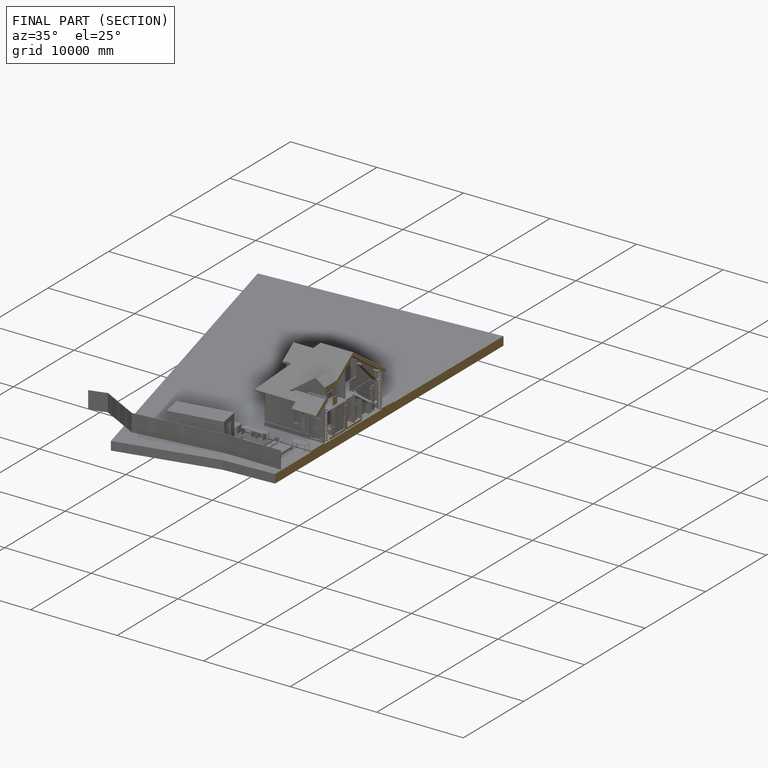
[diagram: finished part — half-section view (interior)]
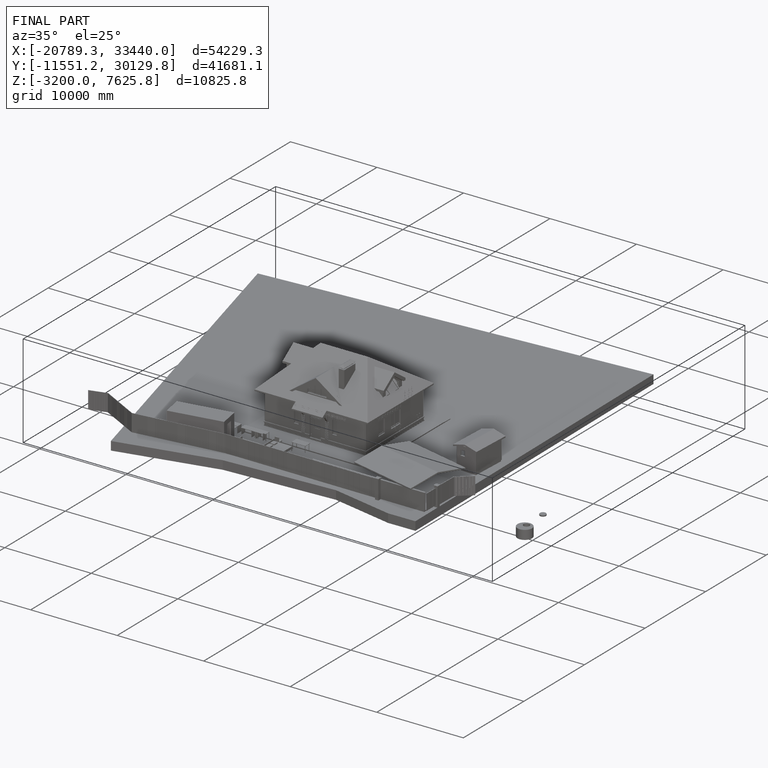
[diagram: finished part — iso view with bounding-box wireframe]
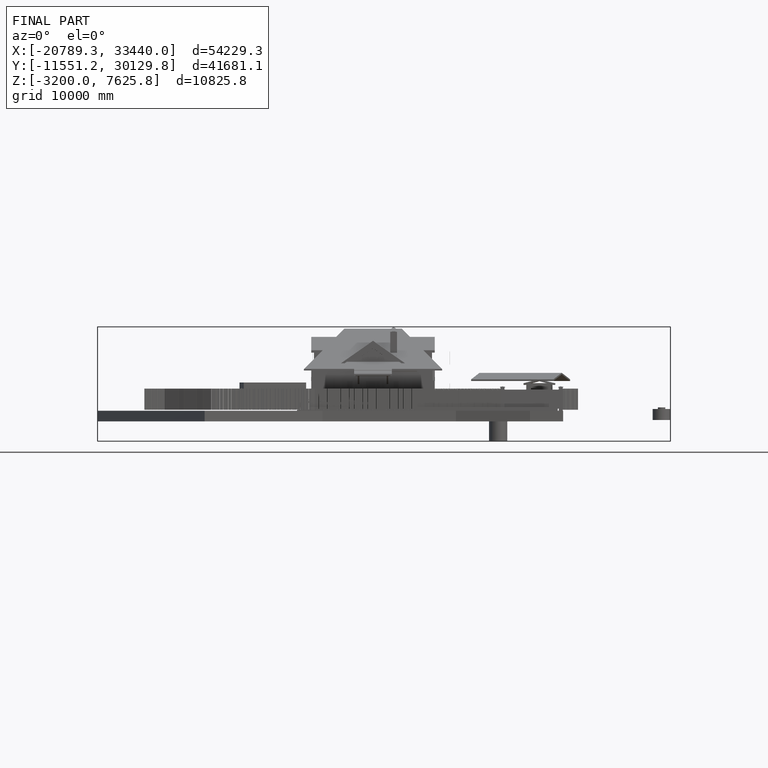
[diagram: finished part — front view with bounding-box wireframe]
